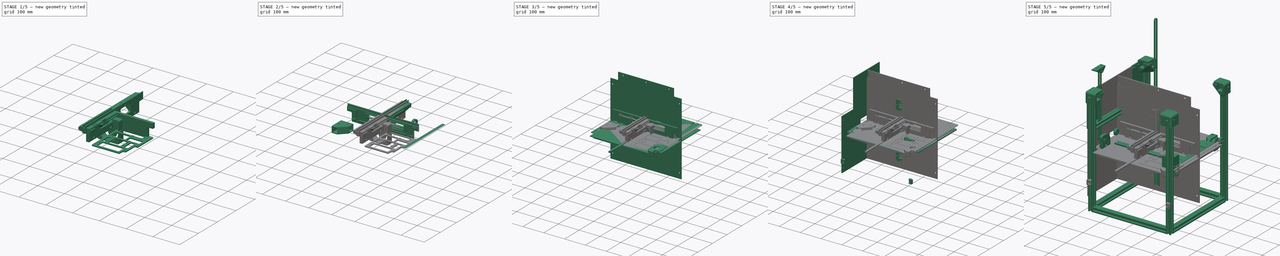
[diagram: build sequence overview — one tinted view per stage of 5, left to right]
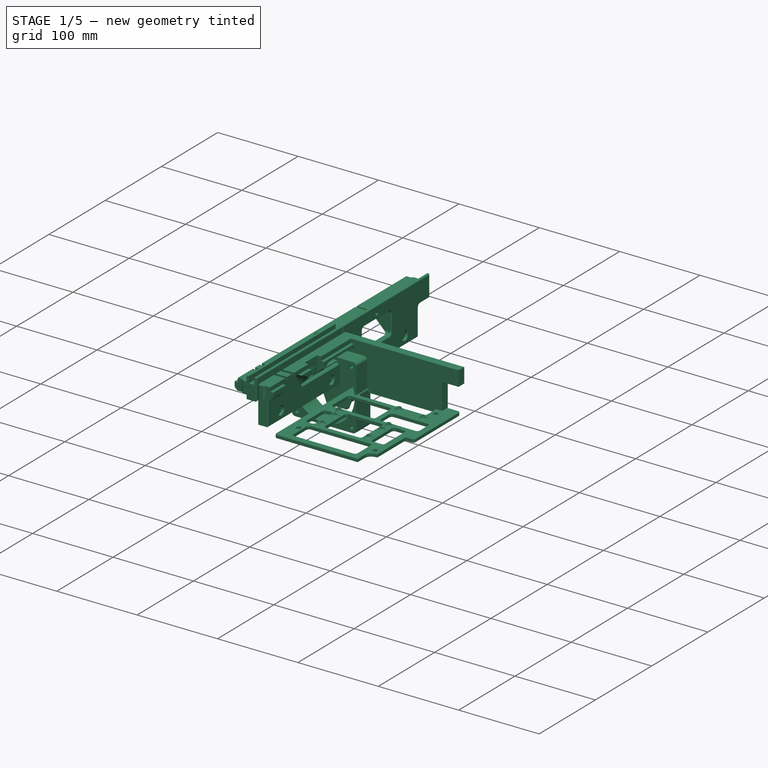
[diagram: stage 1 of 5 — iso view after this stage's code; geometry added in this stage tinted green]
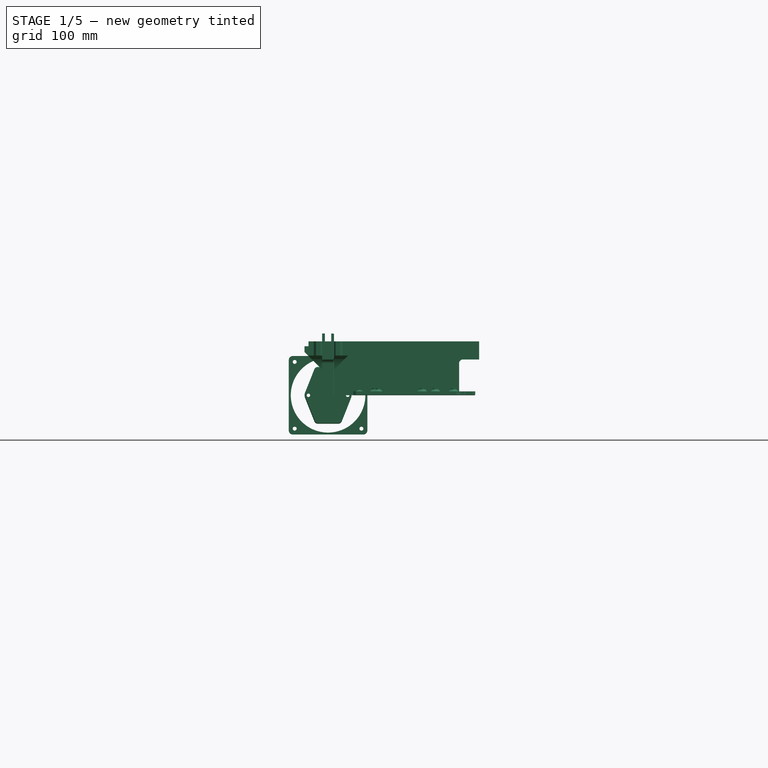
[diagram: stage 1 of 5 — front view after this stage's code; geometry added in this stage tinted green]
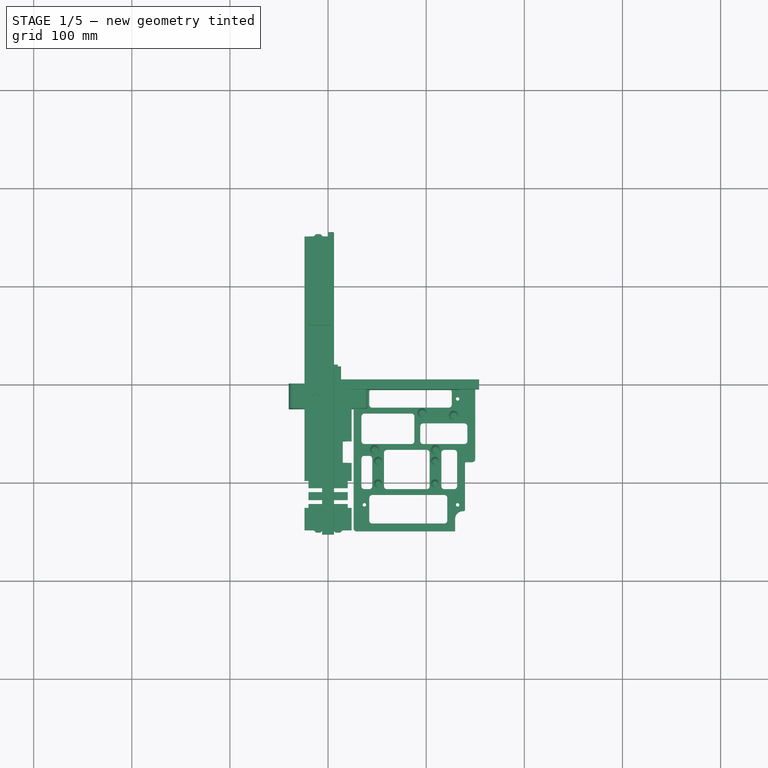
[diagram: stage 1 of 5 — top view after this stage's code; geometry added in this stage tinted green]
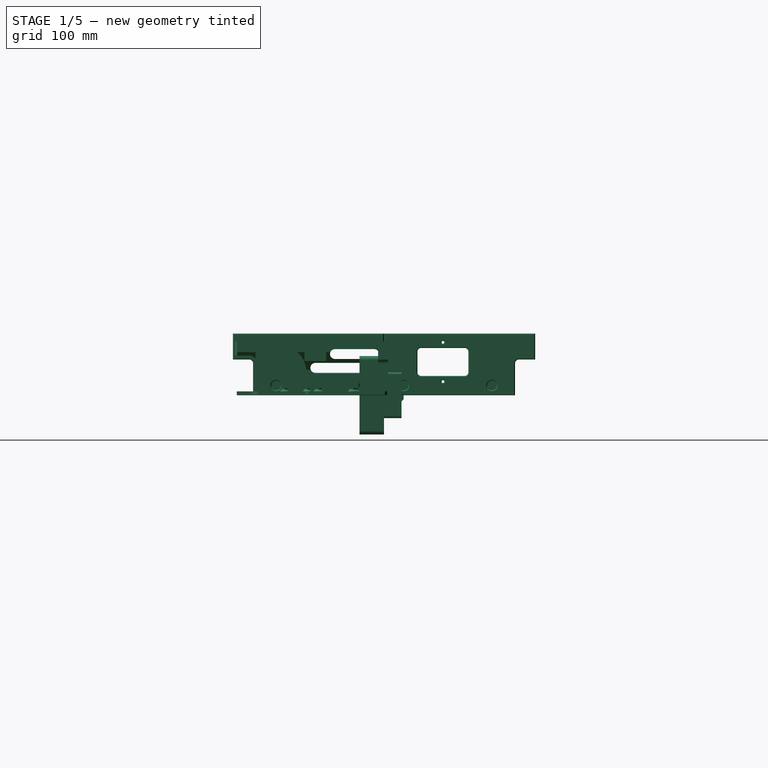
[diagram: stage 1 of 5 — right view after this stage's code; geometry added in this stage tinted green]
FCSTD DOCUMENT  (FreeCAD 1.0R39109 (Git))
Label: assembly
License: do the fuck you want with it, its information you couldn't steel it, even if you wanted to
LicenseURL: http://en.wikipedia.org/wiki/All_rights_reserved
objects: Sketcher::SketchObject×123, PartDesign::Pocket×77, PartDesign::Body×51, Part::Mirroring×46, PartDesign::Pad×45, App::Link×36, App::DocumentObjectGroup×32, PartDesign::Chamfer×20, PartDesign::FeatureBase×14, PartDesign::Mirrored×12, App::Part×11, PartDesign::Fillet×11, Part::FeaturePython×7, PartDesign::PolarPattern×7, PartDesign::MultiTransform×5, PartDesign::Groove×4, Part::Feature×4, PartDesign::ShapeBinder×2, App::LinkElement×2, Spreadsheet::Sheet×1
note: 899 computed .brp shape members not serialized (recipe doc carries the construction recipe); baked Part::Feature solids carry a one-line shape summary decoded from their .brp
EXTERNAL_REF file=toolhead-integrated.FCStd obj=Part002
EXTERNAL_REF file=frame/frame-corner.FCStd obj=Body123
EXTERNAL_REF file=frame/y-extrusion-support.FCStd obj=Body156
EXTERNAL_REF file=xy-gantry/y-carriages.FCStd obj=Part
EXTERNAL_REF file=xy-gantry/y-carriages.FCStd obj=Part001
EXTERNAL_REF file=standard-stuff.FCStd obj=Body033
EXTERNAL_REF file=standard-stuff.FCStd obj=Body084
EXTERNAL_REF file=xy-gantry/motor-mounts.FCStd obj=Body017
EXTERNAL_REF file=standard-stuff.FCStd obj=Body018
EXTERNAL_REF file=xy-gantry/x-carriage.FCStd obj=Part
EXTERNAL_REF file=z-motion/back-idler-mounts.FCStd obj=Part
EXTERNAL_REF file=z-motion/back-idler-mounts.FCStd obj=Part001
EXTERNAL_REF file=z-motion/back-bearing-block-right.FCStd obj=Part
EXTERNAL_REF file=z-motion/back-bearing-block-left.FCStd obj=Part
EXTERNAL_REF file=z-motion/mid-drivetrain.FCStd obj=Part
EXTERNAL_REF file=z-motion/front-bearing-block-right.FCStd obj=Part
EXTERNAL_REF file=z-motion/front-idler-mount-right.FCStd obj=Part
EXTERNAL_REF file=standard-stuff.FCStd obj=Group001
EXTERNAL_REF file=z-carriage/z-carriages.FCStd obj=Part
EXTERNAL_REF file=z-carriage/z-carriages.FCStd obj=Part001
EXTERNAL_REF file=standard-stuff.FCStd obj=Body
EXTERNAL_REF file=chamber-heater.FCStd obj=Part002
EXTERNAL_REF file=xy-gantry/y-carriages.FCStd obj=Part002
EXTERNAL_REF file=xy-gantry/y-carriages.FCStd obj=Part003
EXTERNAL_REF file=xy-gantry/motor-mounts.FCStd obj=Body018
EXTERNAL_REF file=xy-gantry/x-carriage.FCStd obj=Part002
EXTERNAL_REF file=standard-stuff.FCStd obj=Body119
EXTERNAL_REF file=electronics/pi-zero-2-w.FCStd obj=Part
EXTERNAL_REF file=electronics/bigtreetech-mini-e3-v2.0.FCStd obj=Body
EXTERNAL_REF file=electronics/PSU-12V-10A.FCStd obj=Part
EXTERNAL_REF file=frame/intake-vents.FCStd obj=Part
EXTERNAL_REF file=frame/air-exhaust.FCStd obj=Part

FEATURE [Sketcher::SketchObject] Sketch408
  ArcFitTolerance = 1e-06
  AttachmentSupport = -> [YZ_Plane268]
  FullyConstrained = true
  MakeInternals = false
  MapMode = 5
  Placement = pos=(0,0,0) rot=(0.57735,0.57735,0.57735;2.0944rad)
  expr: Constraints[20] = Spreadsheet.side_length / 2
  sketch-geometry (9):
    g0: LineSegment StartX=0 StartY=0 StartZ=0 EndX=133.5 EndY=0 EndZ=0
    g1: LineSegment StartX=133.5 StartY=0 StartZ=0 EndX=133.5 EndY=32.5 EndZ=0
    g2: LineSegment StartX=137.5 StartY=36.5 StartZ=0 EndX=154 EndY=36.5 EndZ=0
    g3: LineSegment StartX=154 StartY=36.5 StartZ=0 EndX=154 EndY=55 EndZ=0
    g4: LineSegment StartX=154 StartY=55 StartZ=0 EndX=0 EndY=55 EndZ=0
    g5: LineSegment StartX=0 StartY=55 StartZ=0 EndX=0 EndY=0 EndZ=0
    g6: ArcOfCircle CenterX=137.5 CenterY=32.5 CenterZ=0 NormalX=0 NormalY=0 NormalZ=1 AngleXU=0 Radius=4 StartAngle=1.5708 EndAngle=3.14159
    g7: GeomPoint [constr] X=133.5 Y=36.5 Z=0
    g8: GeomPoint X=170 Y=0 Z=0
  constraints (23):
    c: Coincident(g-1,g0)
    c: PointOnObject(g0,g-1)
    c: Coincident(g0,g1)
    c: Vertical(g1)
    c: Coincident(g2,g3)
    c: Vertical(g3)
    c: Coincident(g3,g4)
    c: PointOnObject(g4,g-2)
    c: Horizontal(g4)
    c: Coincident(g4,g5)
    c: Coincident(g5,g0)
    c: Horizontal(g2)
    c: PointOnObject(g7,g1)
    c: PointOnObject(g7,g2)
    c: Tangent(g1,g6) = 1.5708
    c: Tangent(g2,g6) = 1.5708
    c: Radius(g6) = 4
    c: DistanceY(g2) = 36.5
    c: DistanceY(g4) = 55
    c: PointOnObject(g8,g-1)
    c: DistanceX(g8) = 170
    c: DistanceX(g2,g8) = 16
    c: DistanceX(g0,g8) = 36.5
FEATURE [PartDesign::Pad] Pad089
  Direction = (1,0,0)
  Length = 6
  Length2 = 24
  Placement = pos=(0,0,0) rot=(1,1,1;2.0944rad)
  Profile = -> Sketch408
  ReferenceAxis = -> Sketch408 [N_Axis]
  Suppressed = false
  Type = 4
FEATURE [Sketcher::SketchObject] Sketch409
  ArcFitTolerance = 1e-06
  AttachmentSupport = -> [XZ_Plane268]
  FullyConstrained = true
  MakeInternals = false
  MapMode = 5
  Placement = pos=(0,0,0) rot=(1,0,0;1.5708rad)
  sketch-geometry (17):
    g0: LineSegment StartX=0 StartY=0 StartZ=0 EndX=0 EndY=5.72426 EndZ=0
    g1: LineSegment StartX=0 StartY=5.72426 StartZ=0 EndX=-2 EndY=7.72426 EndZ=0
    g2: LineSegment StartX=-2 StartY=7.72426 StartZ=0 EndX=-2 EndY=12.2757 EndZ=0
    g3: LineSegment StartX=-2 StartY=12.2757 StartZ=0 EndX=0 EndY=14.2757 EndZ=0
    g4: LineSegment StartX=0 StartY=14.2757 StartZ=0 EndX=0 EndY=20 EndZ=0
    g5: LineSegment [constr] StartX=0 StartY=20 StartZ=0 EndX=-24 EndY=20 EndZ=0
    g6: LineSegment StartX=-24 StartY=20 StartZ=0 EndX=-24 EndY=0 EndZ=0
    g7: LineSegment StartX=-24 StartY=0 StartZ=0 EndX=0 EndY=0 EndZ=0
    g8: GeomPoint X=0 Y=10 Z=0
    g9: GeomPoint X=-2 Y=10 Z=0
    g10: LineSegment [constr] StartX=-2 StartY=12.7 StartZ=0 EndX=-2 EndY=7.3 EndZ=0
    g11: LineSegment StartX=-24 StartY=55 StartZ=0 EndX=-24 EndY=50 EndZ=0
    g12: LineSegment StartX=-24 StartY=50 StartZ=0 EndX=-20 EndY=50 EndZ=0
    g13: LineSegment StartX=-20 StartY=50 StartZ=0 EndX=-20 EndY=55 EndZ=0
    g14: LineSegment StartX=-20 StartY=55 StartZ=0 EndX=-24 EndY=55 EndZ=0
    g15: LineSegment StartX=0 StartY=20 StartZ=0 EndX=-24 EndY=44 EndZ=0
    g16: LineSegment StartX=-24 StartY=44 StartZ=0 EndX=-24 EndY=20 EndZ=0
  constraints (45):
    c: Coincident(g-1,g0)
    c: PointOnObject(g0,g-2)
    c: Coincident(g0,g1)
    c: Coincident(g1,g2)
    c: Vertical(g2)
    c: Coincident(g2,g3)
    c: PointOnObject(g3,g-2)
    c: Coincident(g3,g4)
    c: PointOnObject(g4,g-2)
    c: Coincident(g4,g5)
    c: Horizontal(g5)
    c: Coincident(g5,g6)
    c: PointOnObject(g6,g-1)
    c: Vertical(g6)
    c: Coincident(g6,g7)
    c: Coincident(g7,g0)
    c: DistanceX(g7,g7) = 24
    c: DistanceY(g6,g6) = 20
    c: Symmetric(g4,g0,g8)
    c: Perpendicular(g1,g3)
    c: DistanceX(g1,g1) = 2
    c: Symmetric(g2,g2,g9)
    c: Horizontal(g9,g8)
    c: Angle(g1) = 2.35619
    c: Vertical(g10)
    c: Symmetric(g10,g10,g9)
    c: DistanceY(g10,g10) = 5.4
    c: Distance(g10,g3) = 0.3
    c: Coincident(g11,g12)
    c: Coincident(g12,g13)
    c: Coincident(g13,g14)
    c: Coincident(g14,g11)
    c: Vertical(g11)
    c: Vertical(g13)
    c: Horizontal(g12)
    c: Horizontal(g14)
    c: Vertical(g11,g5)
    c: DistanceX(g12) = -20
    c: DistanceY(g12) = 50
    c: DistanceY(g13) = 55
    c: Coincident(g15,g16)
    c: Coincident(g16,g5)
    c: Vertical(g16)
    c: Angle(g15) = 2.35619
    c: Coincident(g15,g4)
FEATURE [PartDesign::Pocket] Pocket283
  BaseFeature = -> Pad089
  Direction = (0,1,-2e-16)
  Length = 5
  Length2 = 5
  Midplane = true
  Placement = pos=(0,0,0) rot=(1,1,1;2.0944rad)
  Profile = -> Sketch409
  ReferenceAxis = -> Sketch409 [N_Axis]
  Suppressed = false
  Type = 1
FEATURE [Sketcher::SketchObject] Sketch410
  ArcFitTolerance = 1e-06
  AttachmentSupport = -> [XY_Plane268]
  FullyConstrained = true
  MakeInternals = false
  MapMode = 5
  expr: Constraints[10] = Spreadsheet.side_length / 2
  sketch-geometry (15):
    g0: LineSegment StartX=-24 StartY=170 StartZ=0 EndX=-24 EndY=149.7 EndZ=0
    g1: LineSegment StartX=-24 StartY=149.7 StartZ=0 EndX=-14.5757 EndY=149.7 EndZ=0
    g2: LineSegment StartX=0 StartY=149.7 StartZ=0 EndX=0 EndY=170 EndZ=0
    g3: LineSegment StartX=0 StartY=170 StartZ=0 EndX=-24 EndY=170 EndZ=0
    g4: LineSegment [constr] StartX=-20 StartY=170 StartZ=0 EndX=-20 EndY=150 EndZ=0
    g5: LineSegment [constr] StartX=-20 StartY=150 StartZ=0 EndX=0 EndY=150 EndZ=0
    g6: LineSegment [constr] StartX=0 StartY=150 StartZ=0 EndX=0 EndY=170 EndZ=0
    g7: LineSegment [constr] StartX=0 StartY=170 StartZ=0 EndX=-20 EndY=170 EndZ=0
    g8: GeomPoint [constr] X=-10 Y=150 Z=0
    g9: LineSegment StartX=-14.5757 StartY=149.7 StartZ=0 EndX=-12.2757 EndY=152 EndZ=0
    g10: LineSegment StartX=-12.2757 StartY=152 StartZ=0 EndX=-7.72426 EndY=152 EndZ=0
    g11: LineSegment StartX=-7.72426 StartY=152 StartZ=0 EndX=-5.42426 EndY=149.7 EndZ=0
    g12: GeomPoint X=-10 Y=152 Z=0
    g13: LineSegment [constr] StartX=-7.3 StartY=152 StartZ=0 EndX=-12.7 EndY=152 EndZ=0
    g14: LineSegment StartX=-5.42426 StartY=149.7 StartZ=0 EndX=0 EndY=149.7 EndZ=0
  constraints (42):
    c: Coincident(g0,g1)
    c: Coincident(g14,g2)
    c: Coincident(g2,g3)
    c: Coincident(g3,g0)
    c: Vertical(g0)
    c: Vertical(g2)
    c: Horizontal(g1)
    c: Horizontal(g3)
    c: PointOnObject(g14,g-2)
    c: DistanceX(g3,g3) = 24
    c: DistanceY(g2) = 170
    c: DistanceY(g2,g2) = 20.3
    c: Coincident(g4,g5)
    c: Coincident(g5,g6)
    c: Coincident(g6,g7)
    c: Coincident(g7,g4)
    c: Vertical(g4)
    c: Vertical(g6)
    c: Horizontal(g5)
    c: Horizontal(g7)
    c: PointOnObject(g4,g3)
    c: PointOnObject(g5,g2)
    c: Equal(g4,g5)
    c: DistanceY(g4,g4) = 20
    c: Symmetric(g5,g5,g8)
    c: Coincident(g9,g10)
    c: Horizontal(g10)
    c: Coincident(g10,g11)
    c: PointOnObject(g11,g14)
    c: Perpendicular(g11,g9)
    c: Angle(g11) = -0.785398
    c: Symmetric(g10,g10,g12)
    c: Vertical(g12,g8)
    c: DistanceY(g8,g10) = 2
    c: Horizontal(g13)
    c: Symmetric(g13,g13,g12)
    c: DistanceX(g13,g13) = 5.4
    c: Distance(g13,g9) = 0.3
    c: Coincident(g1,g9)
    c: PointOnObject(g14,g11)
    c: Horizontal(g14)
    c: Horizontal(g11,g1)
FEATURE [PartDesign::Pocket] Pocket284
  BaseFeature = -> Pocket283
  Direction = (0,0,-1)
  Length = 5
  Length2 = 5
  Midplane = true
  Placement = pos=(0,0,0) rot=(1,1,1;2.0944rad)
  Profile = -> Sketch410
  ReferenceAxis = -> Sketch410 [N_Axis]
  Suppressed = false
  Type = 1
FEATURE [Sketcher::SketchObject] Sketch411
  ArcFitTolerance = 1e-06
  AttachmentSupport = -> [XZ_Plane270]
  FullyConstrained = true
  MakeInternals = false
  MapMode = 5
  Placement = pos=(0,0,0) rot=(1,0,0;1.5708rad)
  expr: Constraints[20] = Spreadsheet.side_length / 2
  sketch-geometry (9):
    g0: LineSegment StartX=0 StartY=0 StartZ=0 EndX=0 EndY=55 EndZ=0
    g1: LineSegment StartX=0 StartY=55 StartZ=0 EndX=154 EndY=55 EndZ=0
    g2: LineSegment StartX=154 StartY=55 StartZ=0 EndX=154 EndY=36.5 EndZ=0
    g3: LineSegment StartX=154 StartY=36.5 StartZ=0 EndX=137.5 EndY=36.5 EndZ=0
    g4: LineSegment StartX=133.5 StartY=32.5 StartZ=0 EndX=133.5 EndY=0 EndZ=0
    g5: LineSegment StartX=133.5 StartY=0 StartZ=0 EndX=0 EndY=0 EndZ=0
    g6: ArcOfCircle CenterX=137.5 CenterY=32.5 CenterZ=0 NormalX=0 NormalY=0 NormalZ=1 AngleXU=0 Radius=4 StartAngle=1.5708 EndAngle=3.14159
    g7: GeomPoint [constr] X=133.5 Y=36.5 Z=0
    g8: GeomPoint [constr] X=170 Y=0 Z=0
  constraints (23):
    c: Coincident(g-1,g0)
    c: PointOnObject(g0,g-2)
    c: Coincident(g0,g1)
    c: Horizontal(g1)
    c: Coincident(g1,g2)
    c: Vertical(g2)
    c: Coincident(g2,g3)
    c: Horizontal(g3)
    c: Coincident(g4,g5)
    c: Coincident(g5,g0)
    c: Horizontal(g5)
    c: Vertical(g4)
    c: PointOnObject(g7,g3)
    c: PointOnObject(g7,g4)
    c: Tangent(g3,g6) = -1.5708
    c: Tangent(g4,g6) = -1.5708
    c: Radius(g6) = 4
    c: DistanceY(g2) = 36.5
    c: DistanceY(g1) = 55
    c: PointOnObject(g8,g-1)
    c: DistanceX(g8) = 170
    c: DistanceX(g4,g8) = 36.5
    c: DistanceX(g2,g8) = 16
FEATURE [PartDesign::Pad] Pad090
  Direction = (0,-1,2e-16)
  Length = 6
  Length2 = 4
  Placement = pos=(0,0,0) rot=(1,0,0;1.5708rad)
  Profile = -> Sketch411
  ReferenceAxis = -> Sketch411 [N_Axis]
  Suppressed = false
  Type = 4
FEATURE [Sketcher::SketchObject] Sketch414
  ArcFitTolerance = 1e-06
  AttachmentSupport = -> [YZ_Plane272]
  FullyConstrained = true
  MakeInternals = false
  MapMode = 5
  Placement = pos=(0,0,0) rot=(0.57735,0.57735,0.57735;2.0944rad)
  expr: Constraints[7] = -Spreadsheet.side_length / 2
  sketch-geometry (9):
    g0: LineSegment StartX=-131 StartY=43 StartZ=0 EndX=-131 EndY=0 EndZ=0
    g1: LineSegment StartX=-131 StartY=0 StartZ=0 EndX=-79 EndY=0 EndZ=0
    g2: LineSegment StartX=-79 StartY=0 StartZ=0 EndX=-79 EndY=23 EndZ=0
    g3: LineSegment StartX=-107 StartY=51 StartZ=0 EndX=-123 EndY=51 EndZ=0
    g4: GeomPoint X=-170 Y=0 Z=0
    g5: ArcOfCircle CenterX=-107 CenterY=23 CenterZ=0 NormalX=0 NormalY=0 NormalZ=1 AngleXU=0 Radius=28 StartAngle=-9e-16 EndAngle=1.5708
    g6: GeomPoint [constr] X=-79 Y=51 Z=0
    g7: ArcOfCircle CenterX=-123 CenterY=43 CenterZ=0 NormalX=0 NormalY=0 NormalZ=1 AngleXU=0 Radius=8 StartAngle=1.5708 EndAngle=3.14159
    g8: GeomPoint [constr] X=-131 Y=51 Z=0
  constraints (22):
    c: Coincident(g0,g1)
    c: Coincident(g1,g2)
    c: Vertical(g0)
    c: Vertical(g2)
    c: Horizontal(g1)
    c: Horizontal(g3)
    c: PointOnObject(g4,g-1)
    c: DistanceX(g4) = -170
    c: DistanceX(g4,g0) = 39
    c: DistanceX(g4,g1) = 91
    c: DistanceY(g8) = 51
    c: PointOnObject(g1,g-1)
    c: PointOnObject(g6,g2)
    c: PointOnObject(g6,g3)
    c: Tangent(g2,g5) = -1.5708
    c: Tangent(g3,g5) = -1.5708
    c: PointOnObject(g8,g0)
    c: PointOnObject(g8,g3)
    c: Tangent(g0,g7) = -1.5708
    c: Tangent(g3,g7) = -1.5708
    c: Radius(g5) = 28
    c: Radius(g7) = 8
FEATURE [Sketcher::SketchObject] Sketch415
  ArcFitTolerance = 1e-06
  AttachmentSupport = -> [XY_Plane272]
  FullyConstrained = true
  MakeInternals = false
  MapMode = 5
  expr: Constraints[1] = -Spreadsheet.side_length / 2
  sketch-geometry (13):
    g0: GeomPoint X=0 Y=-170 Z=0
    g1: LineSegment StartX=-20 StartY=-107 StartZ=0 EndX=-20 EndY=-111 EndZ=0
    g2: LineSegment StartX=-20 StartY=-111 StartZ=0 EndX=-5 EndY=-111 EndZ=0
    g3: LineSegment StartX=-5 StartY=-111 StartZ=0 EndX=-5 EndY=-107 EndZ=0
    g4: LineSegment StartX=-5 StartY=-107 StartZ=0 EndX=-20 EndY=-107 EndZ=0
    g5: LineSegment StartX=-20 StartY=-119 StartZ=0 EndX=-20 EndY=-123 EndZ=0
    g6: LineSegment StartX=-20 StartY=-123 StartZ=0 EndX=-5 EndY=-123 EndZ=0
    g7: LineSegment StartX=-5 StartY=-123 StartZ=0 EndX=-5 EndY=-119 EndZ=0
    g8: LineSegment StartX=-5 StartY=-119 StartZ=0 EndX=-20 EndY=-119 EndZ=0
    g9: GeomPoint X=-10 Y=-115 Z=0
    g10: GeomPoint X=-5 Y=-121 Z=0
    g11: GeomPoint X=-5 Y=-109 Z=0
    g12: GeomPoint X=-5 Y=-115 Z=0
  constraints (31):
    c: PointOnObject(g0,g-2)
    c: DistanceY(g0) = -170
    c: Coincident(g1,g2)
    c: Coincident(g2,g3)
    c: Coincident(g3,g4)
    c: Coincident(g4,g1)
    c: Vertical(g1)
    c: Vertical(g3)
    c: Horizontal(g2)
    c: Horizontal(g4)
    c: Coincident(g5,g6)
    c: Coincident(g6,g7)
    c: Coincident(g7,g8)
    c: Coincident(g8,g5)
    c: Vertical(g5)
    c: Vertical(g7)
    c: Horizontal(g6)
    c: Horizontal(g8)
    c: Vertical(g7,g2)
    c: Vertical(g5,g1)
    c: Equal(g7,g3)
    c: DistanceX(g9,g0) = 10
    c: DistanceY(g0,g9) = 55
    c: Symmetric(g7,g7,g10)
    c: Symmetric(g3,g3,g11)
    c: DistanceY(g10,g11) = 12
    c: DistanceY(g1,g1) = 4
    c: DistanceX(g9,g7) = 5
    c: Symmetric(g2,g7,g12)
    c: Horizontal(g12,g9)
    c: DistanceX(g5) = -20
FEATURE [Sketcher::SketchObject] Sketch416
  ArcFitTolerance = 1e-06
  AttachmentOffset = pos=(0,0,19) rot=(0,0,1;0rad)
  AttachmentSupport = -> [YZ_Plane274]
  FullyConstrained = true
  MakeInternals = false
  MapMode = 5
  Placement = pos=(19,0,0) rot=(0.57735,0.57735,0.57735;2.0944rad)
  expr: Constraints[9] = Spreadsheet.side_length / 2
  sketch-geometry (13):
    g0: LineSegment StartX=27 StartY=21 StartZ=0 EndX=27 EndY=0 EndZ=0
    g1: LineSegment StartX=27 StartY=0 StartZ=0 EndX=170 EndY=0 EndZ=0
    g2: LineSegment StartX=170 StartY=0 StartZ=0 EndX=170 EndY=21 EndZ=0
    g3: LineSegment [constr] StartX=170 StartY=21 StartZ=0 EndX=27 EndY=21 EndZ=0
    g4: GeomPoint X=170 Y=0 Z=0
    g5: LineSegment StartX=27 StartY=21 StartZ=0 EndX=43 EndY=21 EndZ=0
    g6: LineSegment [constr] StartX=43 StartY=21 StartZ=0 EndX=43 EndY=51 EndZ=0
    g7: LineSegment [constr] StartX=43 StartY=51 StartZ=0 EndX=170 EndY=51 EndZ=0
    g8: LineSegment StartX=170 StartY=51 StartZ=0 EndX=170 EndY=21 EndZ=0
    g9: LineSegment StartX=43 StartY=21 StartZ=0 EndX=43 EndY=45 EndZ=0
    g10: LineSegment StartX=43 StartY=45 StartZ=0 EndX=100 EndY=45 EndZ=0
    g11: LineSegment StartX=100 StartY=45 StartZ=0 EndX=100 EndY=51 EndZ=0
    g12: LineSegment StartX=100 StartY=51 StartZ=0 EndX=170 EndY=51 EndZ=0
  constraints (35):
    c: Coincident(g0,g1)
    c: Coincident(g1,g2)
    c: Coincident(g2,g3)
    c: Coincident(g3,g0)
    c: Vertical(g0)
    c: Vertical(g2)
    c: Horizontal(g1)
    c: Horizontal(g3)
    c: PointOnObject(g1,g-1)
    c: DistanceX(g4) = 170
    c: Coincident(g1,g4)
    c: DistanceY(g0,g0) = 21
    c: DistanceX(g0,g1) = 143
    c: Coincident(g0,g5)
    c: PointOnObject(g5,g3)
    c: Coincident(g5,g6)
    c: Vertical(g6)
    c: Coincident(g6,g7)
    c: Horizontal(g7)
    c: Coincident(g7,g8)
    c: Coincident(g8,g2)
    c: Vertical(g8)
    c: DistanceY(g7) = 51
    c: DistanceX(g5) = 43
    c: Coincident(g5,g9)
    c: PointOnObject(g9,g6)
    c: Coincident(g9,g10)
    c: Coincident(g10,g11)
    c: PointOnObject(g11,g7)
    c: Vertical(g11)
    c: Coincident(g11,g12)
    c: Coincident(g12,g7)
    c: Horizontal(g10)
    c: DistanceY(g9) = 45
    c: DistanceX(g10,g1) = 70
FEATURE [Sketcher::SketchObject] Sketch417
  ArcFitTolerance = 1e-06
  AttachmentOffset = pos=(0,0,3) rot=(0,0,1;0rad)
  AttachmentSupport = -> [YZ_Plane268]
  FullyConstrained = true
  MakeInternals = false
  MapMode = 5
  Placement = pos=(3,0,0) rot=(0.57735,0.57735,0.57735;2.0944rad)
  expr: Constraints[4] = Spreadsheet.side_length / 2
  sketch-geometry (4):
    g0: Circle CenterX=20 CenterY=10 CenterZ=0 NormalX=0 NormalY=0 NormalZ=1 AngleXU=0 Radius=5
    g1: Circle CenterX=110 CenterY=10 CenterZ=0 NormalX=0 NormalY=0 NormalZ=1 AngleXU=0 Radius=5
    g2: GeomPoint X=170 Y=0 Z=0
    g3: GeomPoint X=130 Y=0 Z=0
  constraints (10):
    c: Horizontal(g0,g1)
    c: DistanceY(g0) = 10
    c: DistanceX(g0) = 20
    c: PointOnObject(g2,g-1)
    c: DistanceX(g2) = 170
    c: PointOnObject(g3,g-1)
    c: DistanceX(g3,g2) = 40
    c: DistanceX(g1,g3) = 20
    c: Equal(g0,g1)
    c: Diameter(g1) = 10
FEATURE [PartDesign::Pocket] Pocket290
  BaseFeature = -> Pocket284
  Direction = (-1,0,0)
  Length = 5
  Length2 = 5
  Placement = pos=(0,0,0) rot=(1,1,1;2.0944rad)
  Profile = -> Sketch417
  ReferenceAxis = -> Sketch417 [N_Axis]
  Reversed = true
  Suppressed = false
  Type = 1
FEATURE [Sketcher::SketchObject] Sketch418
  ArcFitTolerance = 1e-06
  AttachmentOffset = pos=(0,0,2.7) rot=(0,0,1;0rad)
  AttachmentSupport = -> [YZ_Plane268]
  FullyConstrained = true
  MakeInternals = false
  MapMode = 5
  Placement = pos=(2.7,0,0) rot=(0.57735,0.57735,0.57735;2.0944rad)
  expr: Constraints[4] = Spreadsheet.side_length / 2
  sketch-geometry (4):
    g0: Circle CenterX=20 CenterY=10 CenterZ=0 NormalX=0 NormalY=0 NormalZ=1 AngleXU=0 Radius=2.75
    g1: Circle CenterX=110 CenterY=10 CenterZ=0 NormalX=0 NormalY=0 NormalZ=1 AngleXU=0 Radius=2.75
    g2: GeomPoint X=170 Y=0 Z=0
    g3: GeomPoint X=130 Y=0 Z=0
  constraints (10):
    c: Horizontal(g0,g1)
    c: DistanceY(g0) = 10
    c: DistanceX(g0) = 20
    c: PointOnObject(g2,g-1)
    c: DistanceX(g2) = 170
    c: PointOnObject(g3,g-1)
    c: DistanceX(g3,g2) = 40
    c: DistanceX(g1,g3) = 20
    c: Equal(g0,g1)
    c: Diameter(g1) = 5.5
FEATURE [PartDesign::Pocket] Pocket291
  BaseFeature = -> Pocket290
  Direction = (-1,0,0)
  Length = 5
  Length2 = 5
  Placement = pos=(0,0,0) rot=(1,1,1;2.0944rad)
  Profile = -> Sketch418
  ReferenceAxis = -> Sketch418 [N_Axis]
  Suppressed = false
  Type = 1
FEATURE [Sketcher::SketchObject] Sketch419
  ArcFitTolerance = 1e-06
  AttachmentSupport = -> [YZ_Plane268]
  FullyConstrained = true
  MakeInternals = false
  MapMode = 5
  Placement = pos=(0,0,0) rot=(0.57735,0.57735,0.57735;2.0944rad)
  expr: Constraints[4] = Spreadsheet.side_length / 2
  sketch-geometry (12):
    g0: Circle [constr] CenterX=20 CenterY=10 CenterZ=0 NormalX=0 NormalY=0 NormalZ=1 AngleXU=0 Radius=5
    g1: Circle [constr] CenterX=110 CenterY=10 CenterZ=0 NormalX=0 NormalY=0 NormalZ=1 AngleXU=0 Radius=5
    g2: GeomPoint X=170 Y=0 Z=0
    g3: GeomPoint X=130 Y=0 Z=0
    g4: LineSegment StartX=12 StartY=18 StartZ=0 EndX=12 EndY=2 EndZ=0
    g5: LineSegment StartX=12 StartY=2 StartZ=0 EndX=28 EndY=2 EndZ=0
    g6: LineSegment StartX=28 StartY=2 StartZ=0 EndX=28 EndY=18 EndZ=0
    g7: LineSegment StartX=28 StartY=18 StartZ=0 EndX=12 EndY=18 EndZ=0
    g8: LineSegment StartX=102 StartY=18 StartZ=0 EndX=102 EndY=2 EndZ=0
    g9: LineSegment StartX=102 StartY=2 StartZ=0 EndX=118 EndY=2 EndZ=0
    g10: LineSegment StartX=118 StartY=2 StartZ=0 EndX=118 EndY=18 EndZ=0
    g11: LineSegment StartX=118 StartY=18 StartZ=0 EndX=102 EndY=18 EndZ=0
  constraints (32):
    c: Horizontal(g0,g1)
    c: DistanceY(g0) = 10
    c: DistanceX(g0) = 20
    c: PointOnObject(g2,g-1)
    c: DistanceX(g2) = 170
    c: PointOnObject(g3,g-1)
    c: DistanceX(g3,g2) = 40
    c: DistanceX(g1,g3) = 20
    c: Equal(g0,g1)
    c: Diameter(g1) = 10
    c: Coincident(g4,g5)
    c: Coincident(g5,g6)
    c: Coincident(g6,g7)
    c: Coincident(g7,g4)
    c: Vertical(g4)
    c: Vertical(g6)
    c: Horizontal(g5)
    c: Horizontal(g7)
    c: Coincident(g8,g9)
    c: Coincident(g9,g10)
    c: Coincident(g10,g11)
    c: Coincident(g11,g8)
    c: Vertical(g8)
    c: Vertical(g10)
    c: Horizontal(g9)
    c: Horizontal(g11)
    c: Equal(g10,g11)
    c: Equal(g11,g6)
    c: Equal(g6,g7)
    c: DistanceY(g6,g6) = 16
    c: Symmetric(g5,g4,g0)
    c: Symmetric(g10,g8,g1)
FEATURE [PartDesign::Pocket] Pocket292
  BaseFeature = -> Pocket291
  Direction = (-1,0,0)
  Length = 5
  Length2 = 5
  Placement = pos=(0,0,0) rot=(1,1,1;2.0944rad)
  Profile = -> Sketch419
  ReferenceAxis = -> Sketch419 [N_Axis]
  Refine = true
  Suppressed = false
  Type = 1
FEATURE [PartDesign::Body] Body150  label="door-plate-left"
  AllowCompound = false
  Group = -> [Sketch443,Pad098]
  Origin = -> Origin289
  Placement = pos=(-3,1,0) rot=(0,0,1;0rad)
  Tip = -> Pad098
FEATURE [App::Part] Part008  label="door-left"
  Group = -> [Body150,Body149,Part__Mirroring080]
  Origin = -> Origin287
  Placement = pos=(-167,-174,0) rot=(-1,0,0;0rad)
  expr: .Placement.Base.x = -Spreadsheet.side_length / 2 + 3
  expr: .Placement.Base.y = -Spreadsheet.side_length / 2 - 4
  expr: .Placement.Rotation.Angle = -Spreadsheet.door_angle
FEATURE [Sketcher::SketchObject] Sketch444
  ArcFitTolerance = 1e-06
  AttachmentSupport = -> [XZ_Plane276]
  FullyConstrained = true
  MakeInternals = false
  MapMode = 5
  Placement = pos=(0,0,0) rot=(1,0,0;1.5708rad)
  sketch-geometry (4):
    g0: LineSegment StartX=-10.5 StartY=55 StartZ=0 EndX=-10.5 EndY=34.5 EndZ=0
    g1: LineSegment StartX=-10.5 StartY=34.5 StartZ=0 EndX=10.5 EndY=34.5 EndZ=0
    g2: LineSegment StartX=10.5 StartY=34.5 StartZ=0 EndX=10.5 EndY=55 EndZ=0
    g3: LineSegment StartX=10.5 StartY=55 StartZ=0 EndX=-10.5 EndY=55 EndZ=0
  constraints (11):
    c: Coincident(g0,g1)
    c: Coincident(g1,g2)
    c: Coincident(g2,g3)
    c: Coincident(g3,g0)
    c: Vertical(g0)
    c: Vertical(g2)
    c: Horizontal(g1)
    c: Symmetric(g2,g0,g-2)
    c: DistanceX(g3,g3) = 21
    c: DistanceY(g2) = 55
    c: DistanceY(g2,g2) = 20.5
FEATURE [Sketcher::SketchObject] Sketch445
  ArcFitTolerance = 1e-06
  AttachmentSupport = -> [XZ_Plane275]
  FullyConstrained = true
  MakeInternals = false
  MapMode = 5
  Placement = pos=(0,0,0) rot=(1,0,0;1.5708rad)
  sketch-geometry (4):
    g0: LineSegment StartX=-10.5 StartY=55 StartZ=0 EndX=-10.5 EndY=34.5 EndZ=0
    g1: LineSegment StartX=-10.5 StartY=34.5 StartZ=0 EndX=10.5 EndY=34.5 EndZ=0
    g2: LineSegment StartX=10.5 StartY=34.5 StartZ=0 EndX=10.5 EndY=55 EndZ=0
    g3: LineSegment StartX=10.5 StartY=55 StartZ=0 EndX=-10.5 EndY=55 EndZ=0
  constraints (11):
    c: Coincident(g0,g1)
    c: Coincident(g1,g2)
    c: Coincident(g2,g3)
    c: Coincident(g3,g0)
    c: Vertical(g0)
    c: Vertical(g2)
    c: Horizontal(g1)
    c: Symmetric(g2,g0,g-2)
    c: DistanceX(g3,g3) = 21
    c: DistanceY(g2) = 55
    c: DistanceY(g2,g2) = 20.5
FEATURE [Sketcher::SketchObject] Sketch446
  ArcFitTolerance = 1e-06
  AttachmentOffset = pos=(0,0,1.7) rot=(0,0,1;0rad)
  AttachmentSupport = -> [XZ_Plane276]
  FullyConstrained = true
  MakeInternals = false
  MapMode = 5
  Placement = pos=(0,-1.7,4e-16) rot=(1,0,0;1.5708rad)
  sketch-geometry (2):
    g0: Circle CenterX=-5 CenterY=42 CenterZ=0 NormalX=0 NormalY=0 NormalZ=1 AngleXU=0 Radius=1.75
    g1: Circle CenterX=5 CenterY=42 CenterZ=0 NormalX=0 NormalY=0 NormalZ=1 AngleXU=0 Radius=1.75
  constraints (5):
    c: Symmetric(g1,g0,g-2)
    c: Equal(g1,g0)
    c: Diameter(g0) = 3.5
    c: DistanceX(g0,g1) = 10
    c: DistanceY(g1) = 42
FEATURE [Sketcher::SketchObject] Sketch447
  ArcFitTolerance = 1e-06
  AttachmentOffset = pos=(0,0,2) rot=(0,0,1;0rad)
  AttachmentSupport = -> [XZ_Plane276]
  FullyConstrained = true
  MakeInternals = false
  MapMode = 5
  Placement = pos=(0,-2,4e-16) rot=(1,0,0;1.5708rad)
  sketch-geometry (2):
    g0: Circle CenterX=5 CenterY=42 CenterZ=0 NormalX=0 NormalY=0 NormalZ=1 AngleXU=0 Radius=3
    g1: Circle CenterX=-5 CenterY=42 CenterZ=0 NormalX=0 NormalY=0 NormalZ=1 AngleXU=0 Radius=3
  constraints (5):
    c: Equal(g0,g1)
    c: Symmetric(g1,g0,g-2)
    c: DistanceX(g1,g0) = 10
    c: DistanceY(g0) = 42
    c: Diameter(g0) = 6
FEATURE [Sketcher::SketchObject] Sketch448
  ArcFitTolerance = 1e-06
  AttachmentOffset = pos=(0,0,1.7) rot=(0,0,1;0rad)
  AttachmentSupport = -> [XZ_Plane275]
  FullyConstrained = true
  MakeInternals = false
  MapMode = 5
  Placement = pos=(0,-1.7,4e-16) rot=(1,0,0;1.5708rad)
  sketch-geometry (2):
    g0: Circle CenterX=-5 CenterY=42 CenterZ=0 NormalX=0 NormalY=0 NormalZ=1 AngleXU=0 Radius=1.75
    g1: Circle CenterX=5 CenterY=42 CenterZ=0 NormalX=0 NormalY=0 NormalZ=1 AngleXU=0 Radius=1.75
  constraints (5):
    c: Symmetric(g1,g0,g-2)
    c: Equal(g1,g0)
    c: Diameter(g0) = 3.5
    c: DistanceX(g0,g1) = 10
    c: DistanceY(g1) = 42
FEATURE [Sketcher::SketchObject] Sketch449
  ArcFitTolerance = 1e-06
  AttachmentOffset = pos=(0,0,2) rot=(0,0,1;0rad)
  AttachmentSupport = -> [XZ_Plane275]
  FullyConstrained = true
  MakeInternals = false
  MapMode = 5
  Placement = pos=(0,-2,4e-16) rot=(1,0,0;1.5708rad)
  sketch-geometry (2):
    g0: Circle CenterX=5 CenterY=42 CenterZ=0 NormalX=0 NormalY=0 NormalZ=1 AngleXU=0 Radius=3
    g1: Circle CenterX=-5 CenterY=42 CenterZ=0 NormalX=0 NormalY=0 NormalZ=1 AngleXU=0 Radius=3
  constraints (5):
    c: Equal(g0,g1)
    c: Symmetric(g1,g0,g-2)
    c: DistanceX(g1,g0) = 10
    c: DistanceY(g0) = 42
    c: Diameter(g0) = 6
FEATURE [Sketcher::SketchObject] Sketch450
  ArcFitTolerance = 1e-06
  AttachmentSupport = -> [XZ_Plane289]
  FullyConstrained = true
  MakeInternals = false
  MapMode = 5
  Placement = pos=(0,0,0) rot=(1,0,0;1.5708rad)
  sketch-geometry (12):
    g0: LineSegment StartX=-10 StartY=8 StartZ=0 EndX=-10 EndY=-18 EndZ=0
    g1: LineSegment StartX=-8 StartY=-20 StartZ=0 EndX=8 EndY=-20 EndZ=0
    g2: LineSegment StartX=10 StartY=-18 StartZ=0 EndX=10 EndY=8 EndZ=0
    g3: LineSegment StartX=8 StartY=10 StartZ=0 EndX=-8 EndY=10 EndZ=0
    g4: ArcOfCircle CenterX=-8 CenterY=8 CenterZ=0 NormalX=0 NormalY=0 NormalZ=1 AngleXU=0 Radius=2 StartAngle=1.5708 EndAngle=3.14159
    g5: GeomPoint [constr] X=-10 Y=10 Z=0
    g6: ArcOfCircle CenterX=8 CenterY=8 CenterZ=0 NormalX=0 NormalY=0 NormalZ=1 AngleXU=0 Radius=2 StartAngle=1e-16 EndAngle=1.5708
    g7: GeomPoint [constr] X=10 Y=10 Z=0
    g8: ArcOfCircle CenterX=8 CenterY=-18 CenterZ=0 NormalX=0 NormalY=0 NormalZ=1 AngleXU=0 Radius=2 StartAngle=4.71239 EndAngle=6.28319
    g9: GeomPoint [constr] X=10 Y=-20 Z=0
    g10: ArcOfCircle CenterX=-8 CenterY=-18 CenterZ=0 NormalX=0 NormalY=0 NormalZ=1 AngleXU=0 Radius=2 StartAngle=3.14159 EndAngle=4.71239
    g11: GeomPoint [constr] X=-10 Y=-20 Z=0
  constraints (27):
    c: Vertical(g0)
    c: Vertical(g2)
    c: Horizontal(g1)
    c: DistanceY(g7) = 10
    c: Symmetric(g7,g5,g-2)
    c: DistanceX(g5,g7) = 20
    c: DistanceY(g9) = -20
    c: PointOnObject(g5,g0)
    c: PointOnObject(g5,g3)
    c: Tangent(g0,g4) = -1.5708
    c: Tangent(g3,g4) = -1.5708
    c: PointOnObject(g7,g2)
    c: PointOnObject(g7,g3)
    c: Tangent(g2,g6) = -1.5708
    c: Tangent(g3,g6) = -1.5708
    c: PointOnObject(g9,g1)
    c: PointOnObject(g9,g2)
    c: Tangent(g1,g8) = -1.5708
    c: Tangent(g2,g8) = -1.5708
    c: PointOnObject(g11,g0)
    c: PointOnObject(g11,g1)
    c: Tangent(g0,g10) = -1.5708
    c: Tangent(g1,g10) = -1.5708
    c: Equal(g10,g8)
    c: Equal(g10,g6)
    c: Equal(g10,g4)
    c: Radius(g10) = 2
FEATURE [PartDesign::Pad] Pad099
  Direction = (0,-1,2e-16)
  Length = 4
  Length2 = 10
  Placement = pos=(0,0,0) rot=(1,0,0;1.5708rad)
  Profile = -> Sketch450
  ReferenceAxis = -> Sketch450 [N_Axis]
  Reversed = true
  Suppressed = false
  Type = 0
FEATURE [Sketcher::SketchObject] Sketch451
  ArcFitTolerance = 1e-06
  AttachmentOffset = pos=(0,0,-1) rot=(0,0,1;0rad)
  AttachmentSupport = -> [XZ_Plane289]
  FullyConstrained = true
  MakeInternals = false
  MapMode = 5
  Placement = pos=(0,1,-2e-16) rot=(1,0,0;1.5708rad)
  sketch-geometry (14):
    g0: LineSegment StartX=-2.25 StartY=-14.5877 StartZ=0 EndX=-2.25 EndY=-11.4123 EndZ=0
    g1: LineSegment StartX=-2.25 StartY=-11.4123 StartZ=0 EndX=-5 EndY=-9.82457 EndZ=0
    g2: LineSegment StartX=-5 StartY=-9.82457 StartZ=0 EndX=-7.75 EndY=-11.4123 EndZ=0
    g3: LineSegment StartX=-7.75 StartY=-11.4123 StartZ=0 EndX=-7.75 EndY=-14.5877 EndZ=0
    g4: LineSegment StartX=-7.75 StartY=-14.5877 StartZ=0 EndX=-5 EndY=-16.1754 EndZ=0
    g5: LineSegment StartX=-5 StartY=-16.1754 StartZ=0 EndX=-2.25 EndY=-14.5877 EndZ=0
    g6: Circle [constr] CenterX=-5 CenterY=-13 CenterZ=0 NormalX=0 NormalY=0 NormalZ=1 AngleXU=0 Radius=3.17543
    g7: LineSegment StartX=7.75 StartY=-14.5877 StartZ=0 EndX=7.75 EndY=-11.4123 EndZ=0
    g8: LineSegment StartX=7.75 StartY=-11.4123 StartZ=0 EndX=5 EndY=-9.82457 EndZ=0
    g9: LineSegment StartX=5 StartY=-9.82457 StartZ=0 EndX=2.25 EndY=-11.4123 EndZ=0
    g10: LineSegment StartX=2.25 StartY=-11.4123 StartZ=0 EndX=2.25 EndY=-14.5877 EndZ=0
    g11: LineSegment StartX=2.25 StartY=-14.5877 StartZ=0 EndX=5 EndY=-16.1754 EndZ=0
    g12: LineSegment StartX=5 StartY=-16.1754 StartZ=0 EndX=7.75 EndY=-14.5877 EndZ=0
    g13: Circle [constr] CenterX=5 CenterY=-13 CenterZ=0 NormalX=0 NormalY=0 NormalZ=1 AngleXU=0 Radius=3.17543
  constraints (33):
    c: Coincident(g0,g1)
    c: Coincident(g1,g2)
    c: Coincident(g2,g3)
    c: Coincident(g3,g4)
    c: Coincident(g4,g5)
    c: Coincident(g5,g0)
    c: Equal(g0, g1-g5) x5
    c: PointOnObject(g0,g6)
    c: PointOnObject(g1,g6)
    c: PointOnObject(g2,g6)
    c: PointOnObject(g3,g6)
    c: PointOnObject(g4,g6)
    c: PointOnObject(g5,g6)
    c: Coincident(g7,g8)
    c: Coincident(g8,g9)
    c: Coincident(g9,g10)
    c: Coincident(g10,g11)
    c: Coincident(g11,g12)
    c: Coincident(g12,g7)
    c: Equal(g7, g8-g12) x5
    c: PointOnObject(g7,g13)
    c: PointOnObject(g8,g13)
    c: PointOnObject(g9,g13)
    c: PointOnObject(g10,g13)
    c: PointOnObject(g11,g13)
    c: PointOnObject(g12,g13)
    c: Vertical(g7)
    c: Vertical(g0)
    c: Symmetric(g13,g6,g-2)
    c: Equal(g13,g6)
    c: DistanceX(g6,g13) = 10
    c: DistanceX(g9,g7) = 5.5
    c: DistanceY(g13) = -13
FEATURE [PartDesign::Pocket] Pocket317
  BaseFeature = -> Pad099
  Direction = (0,1,-2e-16)
  Length = 5
  Length2 = 5
  Placement = pos=(0,0,0) rot=(1,0,0;1.5708rad)
  Profile = -> Sketch451
  ReferenceAxis = -> Sketch451 [N_Axis]
  Suppressed = false
  Type = 1
FEATURE [Sketcher::SketchObject] Sketch452
  ArcFitTolerance = 1e-06
  AttachmentSupport = -> [XZ_Plane289]
  FullyConstrained = true
  MakeInternals = false
  MapMode = 5
  Placement = pos=(0,0,0) rot=(1,0,0;1.5708rad)
  sketch-geometry (2):
    g0: Circle CenterX=-5 CenterY=-13 CenterZ=0 NormalX=0 NormalY=0 NormalZ=1 AngleXU=0 Radius=1.75
    g1: Circle CenterX=5 CenterY=-13 CenterZ=0 NormalX=0 NormalY=0 NormalZ=1 AngleXU=0 Radius=1.75
  constraints (5):
    c: Symmetric(g1,g0,g-2)
    c: Equal(g0,g1)
    c: Diameter(g1) = 3.5
    c: DistanceY(g1) = -13
    c: DistanceX(g0,g1) = 10
FEATURE [PartDesign::Pocket] Pocket318
  BaseFeature = -> Pocket317
  Direction = (0,1,-2e-16)
  Length = 5
  Length2 = 5
  Midplane = true
  Placement = pos=(0,0,0) rot=(1,0,0;1.5708rad)
  Profile = -> Sketch452
  ReferenceAxis = -> Sketch452 [N_Axis]
  Suppressed = false
  Type = 1
FEATURE [Sketcher::SketchObject] Sketch454
  ArcFitTolerance = 1e-06
  AttachmentSupport = -> [YZ_Plane290]
  FullyConstrained = true
  MakeInternals = false
  MapMode = 5
  Placement = pos=(0,0,0) rot=(0.57735,0.57735,0.57735;2.0944rad)
  sketch-geometry (12):
    g0: LineSegment StartX=0 StartY=0 StartZ=0 EndX=5.72426 EndY=0 EndZ=0
    g1: LineSegment StartX=20 StartY=0 StartZ=0 EndX=20 EndY=-4 EndZ=0
    g2: LineSegment StartX=20 StartY=-4 StartZ=0 EndX=14 EndY=-10 EndZ=0
    g3: LineSegment StartX=14 StartY=-10 StartZ=0 EndX=0 EndY=-10 EndZ=0
    g4: LineSegment StartX=0 StartY=-10 StartZ=0 EndX=0 EndY=0 EndZ=0
    g5: LineSegment StartX=5.72426 StartY=0 StartZ=0 EndX=7.72426 EndY=2 EndZ=0
    g6: LineSegment StartX=7.72426 StartY=2 StartZ=0 EndX=12.2757 EndY=2 EndZ=0
    g7: LineSegment StartX=12.2757 StartY=2 StartZ=0 EndX=14.2757 EndY=0 EndZ=0
    g8: LineSegment StartX=14.2757 StartY=0 StartZ=0 EndX=20 EndY=0 EndZ=0
    g9: GeomPoint X=10 Y=2 Z=0
    g10: GeomPoint X=10 Y=0 Z=0
    g11: LineSegment [constr] StartX=7.3 StartY=2 StartZ=0 EndX=12.7 EndY=2 EndZ=0
  constraints (33):
    c: Coincident(g-1,g0)
    c: PointOnObject(g8,g-1)
    c: Coincident(g8,g1)
    c: Vertical(g1)
    c: Coincident(g1,g2)
    c: Coincident(g2,g3)
    c: PointOnObject(g3,g-2)
    c: Horizontal(g3)
    c: Coincident(g3,g4)
    c: Coincident(g4,g0)
    c: Angle(g2) = -2.35619
    c: DistanceX(g0,g8) = 20
    c: DistanceY(g1,g1) = 4
    c: DistanceY(g4,g4) = 10
    c: Coincident(g5,g6)
    c: Horizontal(g6)
    c: Coincident(g6,g7)
    c: PointOnObject(g7,g8)
    c: Coincident(g0,g5)
    c: PointOnObject(g8,g7)
    c: Horizontal(g8)
    c: Symmetric(g6,g6,g9)
    c: PointOnObject(g10,g-1)
    c: DistanceX(g10) = 10
    c: Vertical(g10,g9)
    c: Perpendicular(g5,g7)
    c: Angle(g5) = 0.785398
    c: DistanceY(g7,g7) = 2
    c: Horizontal(g11)
    c: Symmetric(g11,g11,g9)
    c: Distance(g11,g7) = 0.3
    c: DistanceX(g11,g11) = 5.4
    c: Horizontal(g0)
FEATURE [PartDesign::Pad] Pad100
  Direction = (1,0,0)
  Length = 20
  Length2 = 10
  Midplane = true
  Placement = pos=(0,0,0) rot=(1,1,1;2.0944rad)
  Profile = -> Sketch454
  ReferenceAxis = -> Sketch454 [N_Axis]
  Suppressed = false
  Type = 0
FEATURE [Sketcher::SketchObject] Sketch455
  ArcFitTolerance = 1e-06
  AttachmentSupport = -> [XZ_Plane290]
  FullyConstrained = true
  MakeInternals = false
  MapMode = 5
  Placement = pos=(0,0,0) rot=(1,0,0;1.5708rad)
  sketch-geometry (4):
    g0: LineSegment StartX=-6 StartY=2 StartZ=0 EndX=-6 EndY=0 EndZ=0
    g1: LineSegment StartX=-6 StartY=0 StartZ=0 EndX=6 EndY=0 EndZ=0
    g2: LineSegment StartX=6 StartY=0 StartZ=0 EndX=6 EndY=2 EndZ=0
    g3: LineSegment StartX=6 StartY=2 StartZ=0 EndX=-6 EndY=2 EndZ=0
  constraints (11):
    c: Coincident(g0,g1)
    c: Coincident(g1,g2)
    c: Coincident(g2,g3)
    c: Coincident(g3,g0)
    c: Vertical(g0)
    c: Vertical(g2)
    c: Horizontal(g3)
    c: Symmetric(g1,g0,g-2)
    c: PointOnObject(g1,g-1)
    c: DistanceY(g2,g2) = 2
    c: DistanceX(g3,g3) = 12
FEATURE [PartDesign::Pocket] Pocket320
  BaseFeature = -> Pad100
  Direction = (0,1,-2e-16)
  Length = 5
  Length2 = 5
  Midplane = true
  Placement = pos=(0,0,0) rot=(1,1,1;2.0944rad)
  Profile = -> Sketch455
  ReferenceAxis = -> Sketch455 [N_Axis]
  Refine = true
  Suppressed = false
  Type = 1
FEATURE [Sketcher::SketchObject] Sketch456
  ArcFitTolerance = 1e-06
  AttachmentOffset = pos=(0,0,-10) rot=(0,0,1;0rad)
  AttachmentSupport = -> [XZ_Plane290]
  FullyConstrained = true
  MakeInternals = false
  MapMode = 5
  Placement = pos=(0,10,-2.2e-15) rot=(1,0,0;1.5708rad)
  sketch-geometry (6):
    g0: LineSegment StartX=0 StartY=0 StartZ=0 EndX=2.75 EndY=0 EndZ=0
    g1: LineSegment StartX=2.75 StartY=0 StartZ=0 EndX=2.75 EndY=-4 EndZ=0
    g2: LineSegment StartX=2.75 StartY=-4 StartZ=0 EndX=5 EndY=-4 EndZ=0
    g3: LineSegment StartX=5 StartY=-4 StartZ=0 EndX=5 EndY=-10 EndZ=0
    g4: LineSegment StartX=5 StartY=-10 StartZ=0 EndX=0 EndY=-10 EndZ=0
    g5: LineSegment StartX=0 StartY=-10 StartZ=0 EndX=0 EndY=0 EndZ=0
  constraints (17):
    c: Coincident(g-1,g0)
    c: Horizontal(g0)
    c: Coincident(g0,g1)
    c: Vertical(g1)
    c: Coincident(g1,g2)
    c: Horizontal(g2)
    c: Coincident(g2,g3)
    c: Vertical(g3)
    c: Coincident(g3,g4)
    c: PointOnObject(g4,g-2)
    c: Horizontal(g4)
    c: Coincident(g4,g5)
    c: Coincident(g5,g0)
    c: DistanceY(g5,g5) = 10
    c: DistanceX(g4,g4) = 5
    c: DistanceX(g0,g0) = 2.75
    c: DistanceY(g1,g1) = 4
FEATURE [PartDesign::Groove] Groove017
  Angle = 360
  Angle2 = 60
  Axis = (0,2e-16,1)
  Base = (0,10,-2.2e-15)
  BaseFeature = -> Pocket320
  Placement = pos=(0,0,0) rot=(1,1,1;2.0944rad)
  Profile = -> Sketch456
  ReferenceAxis = -> Sketch456 [V_Axis]
  Suppressed = false
  Type = 0
FEATURE [App::Part] Part009  label="door-right"
  Group = -> [Part__Mirroring081,Clone011,Part__Mirroring082,Clone012,Part__Mirroring083,Clone013]
  Origin = -> Origin292
  Placement = pos=(167,-174,0) rot=(-1,0,0;0rad)
  expr: .Placement.Base.x = Spreadsheet.side_length / 2 - 3
  expr: .Placement.Base.y = -Spreadsheet.side_length / 2 - 4
  expr: .Placement.Rotation.Angle = Spreadsheet.door_angle
FEATURE [Sketcher::SketchObject] Sketch457
  ArcFitTolerance = 1e-06
  AttachmentSupport = -> [YZ_Plane272]
  FullyConstrained = true
  MakeInternals = false
  MapMode = 5
  Placement = pos=(0,0,0) rot=(0.57735,0.57735,0.57735;2.0944rad)
  expr: Constraints[25] = Spreadsheet.side_length
  sketch-geometry (12):
    g0: ArcOfCircle CenterX=-76 CenterY=42 CenterZ=0 NormalX=0 NormalY=0 NormalZ=1 AngleXU=0 Radius=5 StartAngle=1.5708 EndAngle=4.71239
    g1: ArcOfCircle CenterX=-10 CenterY=42 CenterZ=0 NormalX=0 NormalY=0 NormalZ=1 AngleXU=0 Radius=5 StartAngle=4.71239 EndAngle=7.85398
    g2: LineSegment StartX=-76 StartY=47 StartZ=0 EndX=-10 EndY=47 EndZ=0
    g3: LineSegment StartX=-76 StartY=37 StartZ=0 EndX=-10 EndY=37 EndZ=0
    g4: ArcOfCircle CenterX=-70 CenterY=28 CenterZ=0 NormalX=0 NormalY=0 NormalZ=1 AngleXU=0 Radius=5 StartAngle=1.5708 EndAngle=4.71239
    g5: ArcOfCircle CenterX=-10 CenterY=28 CenterZ=0 NormalX=0 NormalY=0 NormalZ=1 AngleXU=0 Radius=5 StartAngle=4.71239 EndAngle=7.85398
    g6: LineSegment StartX=-70 StartY=33 StartZ=0 EndX=-10 EndY=33 EndZ=0
    g7: LineSegment StartX=-70 StartY=23 StartZ=0 EndX=-10 EndY=23 EndZ=0
    g8: GeomPoint X=0 Y=50 Z=0
    g9: GeomPoint X=0 Y=20 Z=0
    g10: GeomPoint X=-170 Y=0 Z=0
    g11: GeomPoint X=170 Y=0 Z=0
  constraints (27):
    c: Tangent(g0,g2) = 1.5708
    c: Tangent(g0,g3) = -1.5708
    c: Tangent(g1,g2) = 1.5708
    c: Tangent(g1,g3) = -1.5708
    c: Equal(g0,g1)
    c: Horizontal(g3)
    c: Tangent(g4,g6) = 1.5708
    c: Tangent(g4,g7) = -1.5708
    c: Tangent(g5,g6) = 1.5708
    c: Tangent(g5,g7) = -1.5708
    c: Equal(g4,g5)
    c: Horizontal(g7)
    c: Equal(g5,g1)
    c: Vertical(g1,g5)
    c: PointOnObject(g8,g-2)
    c: PointOnObject(g9,g-2)
    c: DistanceY(g9) = 20
    c: DistanceY(g8) = 50
    c: Diameter(g5) = 10
    c: DistanceY(g9,g5) = 8
    c: DistanceY(g1,g8) = 8
    c: DistanceX(g10,g4) = 100
    c: PointOnObject(g10,g-1)
    c: DistanceX(g0,g4) = 6
    c: Symmetric(g11,g10,g-2)
    c: DistanceX(g10,g11) = 340
    c: DistanceX(g1) = -10
FEATURE [Sketcher::SketchObject] Sketch459
  ArcFitTolerance = 1e-06
  AttachmentSupport = -> [YZ_Plane274]
  FullyConstrained = true
  MakeInternals = false
  MapMode = 5
  Placement = pos=(0,0,0) rot=(0.57735,0.57735,0.57735;2.0944rad)
  expr: Constraints[17] = Spreadsheet.side_length / 2
  sketch-geometry (11):
    g0: ArcOfCircle CenterX=10 CenterY=42 CenterZ=0 NormalX=0 NormalY=0 NormalZ=1 AngleXU=0 Radius=5 StartAngle=1.5708 EndAngle=4.71239
    g1: ArcOfCircle CenterX=34 CenterY=42 CenterZ=0 NormalX=0 NormalY=0 NormalZ=1 AngleXU=0 Radius=5 StartAngle=4.71239 EndAngle=7.85398
    g2: LineSegment StartX=10 StartY=47 StartZ=0 EndX=34 EndY=47 EndZ=0
    g3: LineSegment StartX=10 StartY=37 StartZ=0 EndX=34 EndY=37 EndZ=0
    g4: ArcOfCircle CenterX=10 CenterY=28 CenterZ=0 NormalX=0 NormalY=0 NormalZ=1 AngleXU=0 Radius=5 StartAngle=1.5708 EndAngle=4.71239
    g5: ArcOfCircle CenterX=34 CenterY=28 CenterZ=0 NormalX=0 NormalY=0 NormalZ=1 AngleXU=0 Radius=5 StartAngle=4.71239 EndAngle=7.85398
    g6: LineSegment StartX=10 StartY=33 StartZ=0 EndX=34 EndY=33 EndZ=0
    g7: LineSegment StartX=10 StartY=23 StartZ=0 EndX=34 EndY=23 EndZ=0
    g8: GeomPoint X=170 Y=0 Z=0
    g9: GeomPoint X=0 Y=20 Z=0
    g10: GeomPoint X=0 Y=50 Z=0
  constraints (26):
    c: Tangent(g0,g2) = 1.5708
    c: Tangent(g0,g3) = -1.5708
    c: Tangent(g1,g2) = 1.5708
    c: Tangent(g1,g3) = -1.5708
    c: Equal(g0,g1)
    c: Horizontal(g2)
    c: Tangent(g4,g6) = 1.5708
    c: Tangent(g4,g7) = -1.5708
    c: Tangent(g5,g6) = 1.5708
    c: Tangent(g5,g7) = -1.5708
    c: Equal(g4,g5)
    c: Horizontal(g6)
    c: Vertical(g0,g4)
    c: Vertical(g1,g5)
    c: Equal(g1,g5)
    c: DistanceX(g4) = 10
    c: PointOnObject(g8,g-1)
    c: DistanceX(g8) = 170
    c: DistanceX(g5,g8) = 136
    c: PointOnObject(g9,g-2)
    c: DistanceY(g9) = 20
    c: PointOnObject(g10,g-2)
    c: DistanceY(g10) = 50
    c: DistanceY(g0,g10) = 8
    c: DistanceY(g9,g4) = 8
    c: Diameter(g4) = 10
FEATURE [Sketcher::SketchObject] Sketch460
  ArcFitTolerance = 1e-06
  AttachmentSupport = -> [XZ_Plane275]
  FullyConstrained = true
  MakeInternals = false
  MapMode = 5
  Placement = pos=(0,0,0) rot=(1,0,0;1.5708rad)
  expr: Constraints[23] = Spreadsheet.side_length / 2
  sketch-geometry (11):
    g0: ArcOfCircle CenterX=20 CenterY=42 CenterZ=0 NormalX=0 NormalY=0 NormalZ=1 AngleXU=0 Radius=5 StartAngle=1.5708 EndAngle=4.71239
    g1: ArcOfCircle CenterX=90 CenterY=42 CenterZ=0 NormalX=0 NormalY=0 NormalZ=1 AngleXU=0 Radius=5 StartAngle=4.71239 EndAngle=7.85398
    g2: LineSegment StartX=20 StartY=47 StartZ=0 EndX=90 EndY=47 EndZ=0
    g3: LineSegment StartX=20 StartY=37 StartZ=0 EndX=90 EndY=37 EndZ=0
    g4: ArcOfCircle CenterX=10 CenterY=28 CenterZ=0 NormalX=0 NormalY=0 NormalZ=1 AngleXU=0 Radius=5 StartAngle=1.5708 EndAngle=4.71239
    g5: ArcOfCircle CenterX=90 CenterY=28 CenterZ=0 NormalX=0 NormalY=0 NormalZ=1 AngleXU=0 Radius=5 StartAngle=4.71239 EndAngle=7.85398
    g6: LineSegment StartX=10 StartY=33 StartZ=0 EndX=90 EndY=33 EndZ=0
    g7: LineSegment StartX=10 StartY=23 StartZ=0 EndX=90 EndY=23 EndZ=0
    g8: GeomPoint X=0 Y=50 Z=0
    g9: GeomPoint X=0 Y=20 Z=0
    g10: GeomPoint X=170 Y=0 Z=0
  constraints (26):
    c: Tangent(g0,g2) = 1.5708
    c: Tangent(g0,g3) = -1.5708
    c: Tangent(g1,g2) = 1.5708
    c: Tangent(g1,g3) = -1.5708
    c: Equal(g0,g1)
    c: Horizontal(g2)
    c: Tangent(g4,g6) = 1.5708
    c: Tangent(g4,g7) = -1.5708
    c: Tangent(g5,g6) = 1.5708
    c: Tangent(g5,g7) = -1.5708
    c: Equal(g4,g5)
    c: Horizontal(g6)
    c: PointOnObject(g8,g-2)
    c: PointOnObject(g9,g-2)
    c: DistanceY(g9) = 20
    c: DistanceY(g8) = 50
    c: DistanceY(g0,g8) = 8
    c: DistanceY(g9,g4) = 8
    c: Equal(g4,g0)
    c: Diameter(g0) = 10
    c: Vertical(g1,g5)
    c: PointOnObject(g10,g-1)
    c: DistanceX(g5,g10) = 80
    c: DistanceX(g10) = 170
    c: DistanceX(g0) = 20
    c: DistanceX(g4) = 10
FEATURE [Sketcher::SketchObject] Sketch461
  ArcFitTolerance = 1e-06
  AttachmentSupport = -> [XZ_Plane276]
  FullyConstrained = true
  MakeInternals = false
  MapMode = 5
  Placement = pos=(0,0,0) rot=(1,0,0;1.5708rad)
  expr: Constraints[19] = -Spreadsheet.side_length / 2
  sketch-geometry (9):
    g0: ArcOfCircle CenterX=-120 CenterY=42 CenterZ=0 NormalX=0 NormalY=0 NormalZ=1 AngleXU=0 Radius=5 StartAngle=1.5708 EndAngle=4.71239
    g1: ArcOfCircle CenterX=-20 CenterY=42 CenterZ=0 NormalX=0 NormalY=0 NormalZ=1 AngleXU=0 Radius=5 StartAngle=4.71239 EndAngle=7.85398
    g2: LineSegment StartX=-120 StartY=47 StartZ=0 EndX=-20 EndY=47 EndZ=0
    g3: LineSegment StartX=-120 StartY=37 StartZ=0 EndX=-20 EndY=37 EndZ=0
    g4: ArcOfCircle CenterX=-56 CenterY=28 CenterZ=0 NormalX=0 NormalY=0 NormalZ=1 AngleXU=0 Radius=5 StartAngle=1.5708 EndAngle=4.71239
    g5: ArcOfCircle CenterX=-10 CenterY=28 CenterZ=0 NormalX=0 NormalY=0 NormalZ=1 AngleXU=0 Radius=5 StartAngle=4.71239 EndAngle=7.85398
    g6: LineSegment StartX=-56 StartY=33 StartZ=0 EndX=-10 EndY=33 EndZ=0
    g7: LineSegment StartX=-56 StartY=23 StartZ=0 EndX=-10 EndY=23 EndZ=0
    g8: GeomPoint X=-170 Y=0 Z=0
  constraints (22):
    c: Tangent(g0,g2) = 1.5708
    c: Tangent(g0,g3) = -1.5708
    c: Tangent(g1,g2) = 1.5708
    c: Tangent(g1,g3) = -1.5708
    c: Equal(g0,g1)
    c: Tangent(g4,g6) = 1.5708
    c: Tangent(g4,g7) = -1.5708
    c: Tangent(g5,g6) = 1.5708
    c: Tangent(g5,g7) = -1.5708
    c: Equal(g4,g5)
    c: Horizontal(g7)
    c: Horizontal(g3)
    c: Equal(g1,g5)
    c: Diameter(g5) = 10
    c: DistanceX(g5) = -10
    c: DistanceY(g5) = 28
    c: DistanceY(g1) = 42
    c: DistanceX(g1) = -20
    c: PointOnObject(g8,g-1)
    c: DistanceX(g8) = -170
    c: DistanceX(g8,g4) = 114
    c: DistanceX(g8,g0) = 50
FEATURE [Sketcher::SketchObject] Sketch462
  ArcFitTolerance = 1e-06
  AttachmentSupport = -> [XZ_Plane278]
  FullyConstrained = true
  MakeInternals = false
  MapMode = 5
  Placement = pos=(0,0,0) rot=(1,0,0;1.5708rad)
  expr: Constraints[20] = -Spreadsheet.side_length / 2
  sketch-geometry (9):
    g0: ArcOfCircle CenterX=-56 CenterY=42 CenterZ=0 NormalX=0 NormalY=0 NormalZ=1 AngleXU=0 Radius=5 StartAngle=1.5708 EndAngle=4.71239
    g1: ArcOfCircle CenterX=-10 CenterY=42 CenterZ=0 NormalX=0 NormalY=0 NormalZ=1 AngleXU=0 Radius=5 StartAngle=4.71239 EndAngle=7.85398
    g2: LineSegment StartX=-56 StartY=47 StartZ=0 EndX=-10 EndY=47 EndZ=0
    g3: LineSegment StartX=-56 StartY=37 StartZ=0 EndX=-10 EndY=37 EndZ=0
    g4: ArcOfCircle CenterX=-56 CenterY=28 CenterZ=0 NormalX=0 NormalY=0 NormalZ=1 AngleXU=0 Radius=5 StartAngle=1.5708 EndAngle=4.71239
    g5: ArcOfCircle CenterX=-10 CenterY=28 CenterZ=0 NormalX=0 NormalY=0 NormalZ=1 AngleXU=0 Radius=5 StartAngle=4.71239 EndAngle=7.85398
    g6: LineSegment StartX=-56 StartY=33 StartZ=0 EndX=-10 EndY=33 EndZ=0
    g7: LineSegment StartX=-56 StartY=23 StartZ=0 EndX=-10 EndY=23 EndZ=0
    g8: GeomPoint X=-170 Y=0 Z=0
  constraints (22):
    c: Tangent(g0,g2) = 1.5708
    c: Tangent(g0,g3) = -1.5708
    c: Tangent(g1,g2) = 1.5708
    c: Tangent(g1,g3) = -1.5708
    c: Equal(g0,g1)
    c: Horizontal(g2)
    c: Tangent(g4,g6) = 1.5708
    c: Tangent(g4,g7) = -1.5708
    c: Tangent(g5,g6) = 1.5708
    c: Tangent(g5,g7) = -1.5708
    c: Equal(g4,g5)
    c: Horizontal(g7)
    c: DistanceX(g5) = -10
    c: Vertical(g4,g0)
    c: Equal(g4,g0)
    c: Diameter(g5) = 10
    c: DistanceY(g5) = 28
    c: DistanceY(g1) = 42
    c: Vertical(g1,g5)
    c: PointOnObject(g8,g-1)
    c: DistanceX(g8) = -170
    c: DistanceX(g8,g4) = 114
FEATURE [Sketcher::SketchObject] Sketch463
  ArcFitTolerance = 1e-06
  AttachmentSupport = -> [XZ_Plane277]
  FullyConstrained = true
  MakeInternals = false
  MapMode = 5
  Placement = pos=(0,0,0) rot=(1,0,0;1.5708rad)
  expr: Constraints[20] = Spreadsheet.side_length / 2
  sketch-geometry (9):
    g0: ArcOfCircle CenterX=10 CenterY=42 CenterZ=0 NormalX=0 NormalY=0 NormalZ=1 AngleXU=0 Radius=5 StartAngle=1.5708 EndAngle=4.71239
    g1: ArcOfCircle CenterX=90 CenterY=42 CenterZ=0 NormalX=0 NormalY=0 NormalZ=1 AngleXU=0 Radius=5 StartAngle=4.71239 EndAngle=7.85398
    g2: LineSegment StartX=10 StartY=47 StartZ=0 EndX=90 EndY=47 EndZ=0
    g3: LineSegment StartX=10 StartY=37 StartZ=0 EndX=90 EndY=37 EndZ=0
    g4: ArcOfCircle CenterX=10 CenterY=28 CenterZ=0 NormalX=0 NormalY=0 NormalZ=1 AngleXU=0 Radius=5 StartAngle=1.5708 EndAngle=4.71239
    g5: ArcOfCircle CenterX=90 CenterY=28 CenterZ=0 NormalX=0 NormalY=0 NormalZ=1 AngleXU=0 Radius=5 StartAngle=4.71239 EndAngle=7.85398
    g6: LineSegment StartX=10 StartY=33 StartZ=0 EndX=90 EndY=33 EndZ=0
    g7: LineSegment StartX=10 StartY=23 StartZ=0 EndX=90 EndY=23 EndZ=0
    g8: GeomPoint X=170 Y=0 Z=0
  constraints (22):
    c: Tangent(g0,g2) = 1.5708
    c: Tangent(g0,g3) = -1.5708
    c: Tangent(g1,g2) = 1.5708
    c: Tangent(g1,g3) = -1.5708
    c: Equal(g0,g1)
    c: Horizontal(g2)
    c: Tangent(g4,g6) = 1.5708
    c: Tangent(g4,g7) = -1.5708
    c: Tangent(g5,g6) = 1.5708
    c: Tangent(g5,g7) = -1.5708
    c: Equal(g4,g5)
    c: Horizontal(g6)
    c: Equal(g4,g0)
    c: Diameter(g4) = 10
    c: DistanceX(g4) = 10
    c: Vertical(g4,g0)
    c: DistanceY(g4) = 28
    c: DistanceY(g0) = 42
    c: Vertical(g1,g5)
    c: PointOnObject(g8,g-1)
    c: DistanceX(g8) = 170
    c: DistanceX(g5,g8) = 80
FEATURE [Sketcher::SketchObject] Sketch464
  ArcFitTolerance = 1e-06
  AttachmentSupport = -> [YZ_Plane268]
  FullyConstrained = true
  MakeInternals = false
  MapMode = 5
  Placement = pos=(0,0,0) rot=(0.57735,0.57735,0.57735;2.0944rad)
  expr: Constraints[1] = Spreadsheet.side_length / 2
  sketch-geometry (8):
    g0: GeomPoint X=170 Y=0 Z=0
    g1: LineSegment StartX=170 StartY=0 StartZ=0 EndX=170 EndY=40.5 EndZ=0
    g2: LineSegment [constr] StartX=170 StartY=40.5 StartZ=0 EndX=129.5 EndY=40.5 EndZ=0
    g3: LineSegment [constr] StartX=129.5 StartY=40.5 StartZ=0 EndX=129.5 EndY=0 EndZ=0
    g4: LineSegment StartX=129.5 StartY=0 StartZ=0 EndX=170 EndY=0 EndZ=0
    g5: LineSegment StartX=170 StartY=40.5 StartZ=0 EndX=137.5 EndY=40.5 EndZ=0
    g6: LineSegment StartX=129.5 StartY=0 StartZ=0 EndX=129.5 EndY=32.5 EndZ=0
    g7: ArcOfCircle CenterX=137.5 CenterY=32.5 CenterZ=0 NormalX=0 NormalY=0 NormalZ=1 AngleXU=0 Radius=8 StartAngle=1.5708 EndAngle=3.14159
  constraints (20):
    c: PointOnObject(g0,g-1)
    c: DistanceX(g0) = 170
    c: Coincident(g1,g2)
    c: Coincident(g2,g3)
    c: Coincident(g3,g4)
    c: Coincident(g4,g1)
    c: Vertical(g1)
    c: Vertical(g3)
    c: Horizontal(g2)
    c: Horizontal(g4)
    c: Coincident(g1,g0)
    c: Equal(g2,g3)
    c: DistanceX(g2,g2) = 40.5
    c: Coincident(g1,g5)
    c: PointOnObject(g5,g2)
    c: Coincident(g3,g6)
    c: PointOnObject(g6,g3)
    c: Tangent(g7,g5) = -1.5708
    c: Tangent(g7,g6) = 1.5708
    c: Radius(g7) = 8
FEATURE [PartDesign::Pocket] Pocket328
  BaseFeature = -> Pocket292
  Direction = (-1,0,0)
  Length = 5
  Length2 = 5
  Placement = pos=(0,0,0) rot=(1,1,1;2.0944rad)
  Profile = -> Sketch464
  ReferenceAxis = -> Sketch464 [N_Axis]
  Refine = true
  Suppressed = false
  Type = 1
FEATURE [App::DocumentObjectGroup] Group017  label="bed-extrusion-connections"
  Group = -> [Body128,Part__Mirroring062,Body129,Part__Mirroring063]
FEATURE [App::Part] Part001  label="z-carriage"
  Group = -> [Part005,Body126,Part__Mirroring058,Link022,Part__Mirroring060,Link023,Part__Mirroring061,Group017,Body128,Part__Mirroring062,Body129,Part__Mirroring063]
  Origin = -> Origin001
  Placement = pos=(0,0,258) rot=(0,0,1;0rad)
  expr: .Placement.Base.z = Spreadsheet.z_position + 75
FEATURE [Sketcher::SketchObject] Sketch479
  ArcFitTolerance = 1e-06
  AttachmentSupport = -> [YZ_Plane268]
  FullyConstrained = true
  MakeInternals = false
  MapMode = 5
  Placement = pos=(0,0,0) rot=(0.57735,0.57735,0.57735;2.0944rad)
  sketch-geometry (4):
    g0: LineSegment StartX=0 StartY=55 StartZ=0 EndX=154 EndY=55 EndZ=0
    g1: LineSegment StartX=154 StartY=55 StartZ=0 EndX=154 EndY=63 EndZ=0
    g2: LineSegment StartX=154 StartY=63 StartZ=0 EndX=0 EndY=63 EndZ=0
    g3: LineSegment StartX=0 StartY=63 StartZ=0 EndX=0 EndY=55 EndZ=0
  constraints (12):
    c: Coincident(g0,g1)
    c: Coincident(g1,g2)
    c: Coincident(g2,g3)
    c: Coincident(g3,g0)
    c: Horizontal(g0)
    c: Horizontal(g2)
    c: Vertical(g1)
    c: Vertical(g3)
    c: PointOnObject(g0,g-2)
    c: DistanceX(g0) = 154
    c: DistanceY(g0) = 55
    c: DistanceY(g1,g1) = 8
FEATURE [PartDesign::Pad] Pad106
  BaseFeature = -> Pocket328
  Direction = (1,0,0)
  Length = 6
  Length2 = -3.2
  Placement = pos=(0,0,0) rot=(1,1,1;2.0944rad)
  Profile = -> Sketch479
  ReferenceAxis = -> Sketch479 [N_Axis]
  Refine = true
  Suppressed = false
  Type = 4
FEATURE [PartDesign::Body] Body133  label="skirt-right-back-drv"
  AllowCompound = false
  Group = -> [Sketch408,Pad089,Sketch409,Pocket283,Sketch410,Pocket284,Sketch417,Pocket290,Sketch418,Pocket291,Sketch419,Pocket292,Sketch464,Pocket328,Sketch479,Pad106]
  Origin = -> Origin269
  Tip = -> Pad106
FEATURE [Part::Mirroring] Part__Mirroring069  label="skirt-right-front-drv"
  Base = (0,0,0)
  Normal = (0,1,0)
  Source = -> Body133
FEATURE [PartDesign::FeatureBase] Clone002
  BaseFeature = -> Part__Mirroring069
  Suppressed = false
FEATURE [PartDesign::FeatureBase] Clone003
  BaseFeature = -> Body133
  Suppressed = false
FEATURE [PartDesign::Pocket] Pocket287
  BaseFeature = -> Clone002
  Direction = (-1,0,0)
  Length = 24
  Length2 = -2
  Profile = -> Sketch414
  ReferenceAxis = -> Sketch414 [N_Axis]
  Suppressed = false
  Type = 4
FEATURE [PartDesign::Pocket] Pocket288
  BaseFeature = -> Pocket287
  Direction = (0,0,-1)
  Length = 5
  Length2 = 5
  Midplane = true
  Profile = -> Sketch415
  ReferenceAxis = -> Sketch415 [N_Axis]
  Suppressed = false
  Type = 1
FEATURE [Part::Mirroring] Part__Mirroring072  label="skirt-left-front-drv"
  Base = (0,0,0)
  Normal = (1,0,0)
  Source = -> Part__Mirroring069
FEATURE [PartDesign::Pocket] Pocket321
  BaseFeature = -> Pocket288
  Direction = (-1,0,0)
  Length = 5
  Length2 = 5
  Midplane = true
  Profile = -> Sketch457
  ReferenceAxis = -> Sketch457 [N_Axis]
  Suppressed = false
  Type = 1
FEATURE [PartDesign::FeatureBase] Clone020
  BaseFeature = -> Part__Mirroring072
  Suppressed = false
FEATURE [PartDesign::Pocket] Pocket332
  BaseFeature = -> Clone020
  Direction = (-1,0,0)
  Length = 5
  Length2 = 5
  Profile = -> Sketch470
  ReferenceAxis = -> Sketch470 [N_Axis]
  Reversed = true
  Suppressed = false
  Type = 1
FEATURE [PartDesign::Pocket] Pocket333
  BaseFeature = -> Pocket332
  Direction = (0,0,-1)
  Length = 5
  Length2 = 5
  Profile = -> Sketch471
  ReferenceAxis = -> Sketch471 [N_Axis]
  Refine = true
  Reversed = true
  Suppressed = false
  Type = 1
FEATURE [PartDesign::Pocket] Pocket334
  BaseFeature = -> Pocket333
  Direction = (-1,0,0)
  Length = 8
  Length2 = 5
  Profile = -> Sketch472
  ReferenceAxis = -> Sketch472 [N_Axis]
  Suppressed = false
  Type = 0
FEATURE [PartDesign::Pocket] Pocket336
  BaseFeature = -> Pocket334
  Direction = (-1,0,0)
  Length = 5
  Length2 = 5
  Midplane = true
  Profile = -> Sketch474
  ReferenceAxis = -> Sketch474 [N_Axis]
  Suppressed = false
  Type = 1
FEATURE [PartDesign::Body] Body138  label="skirt-left-back"
  AllowCompound = false
  Group = -> [Clone004,Sketch416,Pocket289,Sketch459,Pocket323,Chamfer011]
  Origin = -> Origin275
  Placement = pos=(-170,0,0) rot=(0,0,1;0rad)
  Tip = -> Chamfer011
  expr: .Placement.Base.x = -Spreadsheet.side_length / 2
FEATURE [PartDesign::Chamfer] Chamfer009
  Angle = 45
  Base = -> Pocket321 [Face42]
  BaseFeature = -> Pocket321
  ChamferType = 0
  FlipDirection = false
  Size = 0.75
  Size2 = 1
  SupportTransform = false
  Suppressed = false
  UseAllEdges = false
FEATURE [PartDesign::Body] Body142  label="skirt-back-left"
  AllowCompound = false
  Group = -> [Clone008,Sketch425,Pocket298,Sketch462,Pocket326,Sketch481,Pad108,Chamfer020]
  Origin = -> Origin279
  Placement = pos=(0,170,0) rot=(0,0,1;0rad)
  Tip = -> Chamfer020
  expr: .Placement.Base.y = Spreadsheet.side_length / 2
FEATURE [Sketcher::SketchObject] Sketch482
  ArcFitTolerance = 1e-06
  AttachmentOffset = pos=(0,0,11) rot=(0,0,1;0rad)
  AttachmentSupport = -> [YZ_Plane312]
  FullyConstrained = true
  MakeInternals = false
  MapMode = 5
  Placement = pos=(11,0,0) rot=(0.57735,0.57735,0.57735;2.0944rad)
  sketch-geometry (8):
    g0: LineSegment StartX=-74.5 StartY=47 StartZ=0 EndX=-74.5 EndY=35 EndZ=0
    g1: LineSegment StartX=-74.5 StartY=35 StartZ=0 EndX=-65.5 EndY=35 EndZ=0
    g2: LineSegment StartX=-65.5 StartY=35 StartZ=0 EndX=-65.5 EndY=47 EndZ=0
    g3: LineSegment StartX=-65.5 StartY=47 StartZ=0 EndX=-74.5 EndY=47 EndZ=0
    g4: GeomPoint X=-70 Y=43 Z=0
    g5: Circle [constr] CenterX=-62.5 CenterY=43 CenterZ=0 NormalX=0 NormalY=0 NormalZ=1 AngleXU=0 Radius=1
    g6: Circle [constr] CenterX=-77.5 CenterY=43 CenterZ=0 NormalX=0 NormalY=0 NormalZ=1 AngleXU=0 Radius=1
    g7: GeomPoint X=-70 Y=47 Z=0
  constraints (20):
    c: Coincident(g0,g1)
    c: Coincident(g1,g2)
    c: Coincident(g2,g3)
    c: Coincident(g3,g0)
    c: Vertical(g0)
    c: Vertical(g2)
    c: Horizontal(g1)
    c: Horizontal(g3)
    c: Diameter(g5) = 2
    c: Equal(g6,g5)
    c: Symmetric(g5,g6,g4)
    c: Horizontal(g5,g6)
    c: DistanceY(g4) = 43
    c: DistanceX(g4) = -70
    c: DistanceX(g6,g5) = 15
    c: Symmetric(g3,g3,g7)
    c: Vertical(g7,g4)
    c: DistanceX(g3,g3) = 9
    c: DistanceY(g5,g2) = 4
    c: DistanceY(g1,g5) = 8
FEATURE [PartDesign::Pocket] Pocket338
  BaseFeature = -> Pocket336
  Direction = (-1,0,0)
  Length = 5
  Length2 = 5
  Profile = -> Sketch482
  ReferenceAxis = -> Sketch482 [N_Axis]
  Reversed = true
  Suppressed = false
  Type = 1
FEATURE [PartDesign::Body] Body161  label="skirt-left-front"
  AllowCompound = false
  Group = -> [Clone020,Sketch470,Pocket332,Sketch471,Pocket333,Sketch472,Pocket334,Sketch474,Pocket336,Sketch482,Pocket338]
  Origin = -> Origin313
  Placement = pos=(-170,0,0) rot=(0,0,1;0rad)
  Tip = -> Pocket338
  expr: .Placement.Base.x = -Spreadsheet.side_length / 2
FEATURE [Sketcher::SketchObject] Sketch483
  ArcFitTolerance = 1e-06
  AttachmentSupport = -> [XZ_Plane289]
  FullyConstrained = true
  MakeInternals = false
  MapMode = 5
  Placement = pos=(0,0,0) rot=(1,0,0;1.5708rad)
  sketch-geometry (2):
    g0: Circle CenterX=5 CenterY=5 CenterZ=0 NormalX=0 NormalY=0 NormalZ=1 AngleXU=0 Radius=3
    g1: Circle CenterX=-5 CenterY=5 CenterZ=0 NormalX=0 NormalY=0 NormalZ=1 AngleXU=0 Radius=3
  constraints (5):
    c: Equal(g0,g1)
    c: Symmetric(g1,g0,g-2)
    c: DistanceX(g1,g0) = 10
    c: DistanceY(g0) = 5
    c: Diameter(g0) = 6
FEATURE [PartDesign::Pocket] Pocket339
  BaseFeature = -> Pocket318
  Direction = (0,1,-2e-16)
  Length = 4
  Length2 = 5
  Placement = pos=(0,0,0) rot=(1,0,0;1.5708rad)
  Profile = -> Sketch483
  ReferenceAxis = -> Sketch483 [N_Axis]
  Suppressed = false
  Type = 0
FEATURE [PartDesign::Body] Body151  label="lower-door-stopper"
  AllowCompound = false
  Group = -> [Sketch450,Pad099,Sketch451,Pocket317,Sketch452,Pocket318,Sketch483,Pocket339]
  Origin = -> Origin290
  Placement = pos=(0,-170,-165) rot=(0,0,1;0rad)
  Tip = -> Pocket339
  expr: .Placement.Base.y = -Spreadsheet.side_length / 2
  expr: .Placement.Base.z = -Spreadsheet.height / 2 + 55
FEATURE [Sketcher::SketchObject] Sketch484
  ArcFitTolerance = 1e-06
  AttachmentSupport = -> [XZ_Plane290]
  FullyConstrained = true
  MakeInternals = false
  MapMode = 5
  Placement = pos=(0,0,0) rot=(1,0,0;1.5708rad)
  sketch-geometry (2):
    g0: Circle CenterX=-5 CenterY=-5 CenterZ=0 NormalX=0 NormalY=0 NormalZ=1 AngleXU=0 Radius=3
    g1: Circle CenterX=5 CenterY=-5 CenterZ=0 NormalX=0 NormalY=0 NormalZ=1 AngleXU=0 Radius=3
  constraints (5):
    c: Symmetric(g1,g0,g-2)
    c: Equal(g1,g0)
    c: DistanceX(g1) = 5
    c: DistanceY(g1) = -5
    c: Diameter(g1) = 6
FEATURE [PartDesign::Pocket] Pocket340
  BaseFeature = -> Groove017
  Direction = (0,1,-2e-16)
  Length = 4
  Length2 = 5
  Placement = pos=(0,0,0) rot=(1,1,1;2.0944rad)
  Profile = -> Sketch484
  ReferenceAxis = -> Sketch484 [N_Axis]
  Suppressed = false
  Type = 0
FEATURE [PartDesign::Body] Body152  label="upper-door-stopper"
  AllowCompound = false
  Group = -> [Sketch454,Pad100,Sketch455,Pocket320,Sketch456,Groove017,Sketch484,Pocket340]
  Origin = -> Origin291
  Placement = pos=(0,-170,200) rot=(0,0,1;0rad)
  Tip = -> Pocket340
  expr: .Placement.Base.y = -Spreadsheet.side_length / 2
  expr: .Placement.Base.z = Spreadsheet.height / 2 - 20
FEATURE [App::DocumentObjectGroup] Group027  label="doors"
  Group = -> [Group028,Part008,Body151,Body152,Part009]
FEATURE [App::DocumentObjectGroup] Group020  label="panels"
  Group = -> [Body132,Body143,Body144,Part__Mirroring076,Body145,Group027,Body162]
FEATURE [App::Link] Link032  label="pi"
  LinkPlacement = pos=(80,-90,7) rot=(0,0,1;0rad)
  LinkedObject = -> <external electronics/pi-zero-2-w.FCStd>#Part
  Placement = pos=(80,-90,7) rot=(0,0,1;0rad)
FEATURE [App::Link] Link033  label="mainboard"
  LinkPlacement = pos=(80,-35,7) rot=(0,0,1;3.14159rad)
  LinkedObject = -> <external electronics/bigtreetech-mini-e3-v2.0.FCStd>#Body
  Placement = pos=(80,-35,7) rot=(0,0,1;3.14159rad)
FEATURE [App::Link] Link034  label="PSU"
  LinkPlacement = pos=(35,74,0) rot=(0,0,1;0rad)
  LinkedObject = -> <external electronics/PSU-12V-10A.FCStd>#Part
  Placement = pos=(35,74,0) rot=(0,0,1;0rad)
FEATURE [Sketcher::SketchObject] Sketch485
  ArcFitTolerance = 1e-06
  AttachmentSupport = -> [XY_Plane316]
  FullyConstrained = true
  MakeInternals = false
  MapMode = 5
  expr: Constraints[10] = Spreadsheet.side_length / 2 - 20
  expr: Constraints[9] = -Spreadsheet.side_length / 2 + 20
  sketch-geometry (108):
    g0: LineSegment StartX=29 StartY=3 StartZ=0 EndX=147 EndY=3 EndZ=0
    g1: LineSegment StartX=150 StartY=-1e-16 StartZ=0 EndX=150 EndY=-76.5 EndZ=0
    g2: LineSegment StartX=147 StartY=-79.5 StartZ=0 EndX=140.5 EndY=-79.5 EndZ=0
    g3: LineSegment StartX=139.5 StartY=-80.5 StartZ=0 EndX=139.5 EndY=-128 EndZ=0
    g4: LineSegment StartX=138 StartY=-129.5 StartZ=0 EndX=137.5 EndY=-129.5 EndZ=0
    g5: LineSegment StartX=129.5 StartY=-137.5 StartZ=0 EndX=129.5 EndY=-150 EndZ=0
    g6: LineSegment StartX=129.5 StartY=-150 StartZ=0 EndX=29 EndY=-150 EndZ=0
    g7: LineSegment StartX=26 StartY=-147 StartZ=0 EndX=26 EndY=0 EndZ=0
    g8: ArcOfCircle CenterX=29 CenterY=1e-16 CenterZ=0 NormalX=0 NormalY=0 NormalZ=1 AngleXU=0 Radius=3 StartAngle=1.5708 EndAngle=3.14159
    g9: GeomPoint [constr] X=26 Y=3 Z=0
    g10: ArcOfCircle CenterX=147 CenterY=-1e-16 CenterZ=0 NormalX=0 NormalY=0 NormalZ=1 AngleXU=0 Radius=3 StartAngle=0 EndAngle=1.5708
    g11: GeomPoint [constr] X=150 Y=3 Z=0
    g12: ArcOfCircle CenterX=29 CenterY=-147 CenterZ=0 NormalX=0 NormalY=0 NormalZ=1 AngleXU=0 Radius=3 StartAngle=3.14159 EndAngle=4.71239
    g13: GeomPoint [constr] X=26 Y=-150 Z=0
    g14: ArcOfCircle CenterX=137.5 CenterY=-137.5 CenterZ=0 NormalX=0 NormalY=0 NormalZ=1 AngleXU=0 Radius=8 StartAngle=1.5708 EndAngle=3.14159
    g15: GeomPoint [constr] X=129.5 Y=-129.5 Z=0
    g16: ArcOfCircle CenterX=138 CenterY=-128 CenterZ=0 NormalX=0 NormalY=0 NormalZ=1 AngleXU=0 Radius=1.5 StartAngle=4.71239 EndAngle=6.28319
    g17: GeomPoint [constr] X=139.5 Y=-129.5 Z=0
    g18: ArcOfCircle CenterX=147 CenterY=-76.5 CenterZ=0 NormalX=0 NormalY=0 NormalZ=1 AngleXU=0 Radius=3 StartAngle=4.71239 EndAngle=6.28319
    g19: GeomPoint [constr] X=150 Y=-79.5 Z=0
    g20: ArcOfCircle CenterX=140.5 CenterY=-80.5 CenterZ=0 NormalX=0 NormalY=0 NormalZ=1 AngleXU=0 Radius=1 StartAngle=1.5708 EndAngle=3.14159
    g21: GeomPoint [constr] X=139.5 Y=-79.5 Z=0
    g22: LineSegment StartX=42 StartY=-116 StartZ=0 EndX=42 EndY=-139 EndZ=0
    g23: LineSegment StartX=45 StartY=-142 StartZ=0 EndX=118.5 EndY=-142 EndZ=0
    g24: LineSegment StartX=121.5 StartY=-139 StartZ=0 EndX=121.5 EndY=-116 EndZ=0
    g25: LineSegment StartX=118.5 StartY=-113 StartZ=0 EndX=45 EndY=-113 EndZ=0
    g26: LineSegment StartX=34 StartY=-33 StartZ=0 EndX=34 EndY=-58 EndZ=0
    g27: LineSegment StartX=37 StartY=-61 StartZ=0 EndX=85 EndY=-61 EndZ=0
    g28: LineSegment StartX=88 StartY=-58 StartZ=0 EndX=88 EndY=-33 EndZ=0
    g29: LineSegment StartX=85 StartY=-30 StartZ=0 EndX=37 EndY=-30 EndZ=0
    g30: LineSegment StartX=42 StartY=-8 StartZ=0 EndX=42 EndY=-21 EndZ=0
    g31: LineSegment StartX=45 StartY=-24 StartZ=0 EndX=123 EndY=-24 EndZ=0
    g32: LineSegment StartX=126 StartY=-21 StartZ=0 EndX=126 EndY=-8 EndZ=0
    g33: LineSegment StartX=123 StartY=-5 StartZ=0 EndX=45 EndY=-5 EndZ=0
    g34: LineSegment StartX=57 StartY=-70 StartZ=0 EndX=57 EndY=-104 EndZ=0
    g35: LineSegment StartX=60 StartY=-107 StartZ=0 EndX=100.5 EndY=-107 EndZ=0
    g36: LineSegment StartX=103.5 StartY=-104 StartZ=0 EndX=103.5 EndY=-70 EndZ=0
    g37: LineSegment StartX=100.5 StartY=-67 StartZ=0 EndX=60 EndY=-67 EndZ=0
    g38: LineSegment StartX=34 StartY=-76 StartZ=0 EndX=34 EndY=-104 EndZ=0
    g39: LineSegment StartX=37 StartY=-107 StartZ=0 EndX=42 EndY=-107 EndZ=0
    g40: LineSegment StartX=45 StartY=-104 StartZ=0 EndX=45 EndY=-76 EndZ=0
    g41: LineSegment StartX=42 StartY=-73 StartZ=0 EndX=37 EndY=-73 EndZ=0
    g42: LineSegment StartX=115.5 StartY=-70 StartZ=0 EndX=115.5 EndY=-104 EndZ=0
    g43: LineSegment StartX=118.5 StartY=-107 StartZ=0 EndX=128.5 EndY=-107 EndZ=0
    g44: LineSegment StartX=131.5 StartY=-104 StartZ=0 EndX=131.5 EndY=-70 EndZ=0
    g45: LineSegment StartX=128.5 StartY=-67 StartZ=0 EndX=118.5 EndY=-67 EndZ=0
    g46: LineSegment StartX=94 StartY=-43 StartZ=0 EndX=94 EndY=-58 EndZ=0
    g47: LineSegment StartX=97 StartY=-61 StartZ=0 EndX=139 EndY=-61 EndZ=0
    g48: LineSegment StartX=142 StartY=-58 StartZ=0 EndX=142 EndY=-43 EndZ=0
    g49: LineSegment StartX=139 StartY=-40 StartZ=0 EndX=97 EndY=-40 EndZ=0
    g50: GeomPoint X=109.5 Y=-67 Z=0
    g51: GeomPoint X=51 Y=-107 Z=0
    g52: ArcOfCircle CenterX=45 CenterY=-8 CenterZ=0 NormalX=0 NormalY=0 NormalZ=1 AngleXU=0 Radius=3 StartAngle=1.5708 EndAngle=3.14159
    g53: GeomPoint [constr] X=42 Y=-5 Z=0
    g54: ArcOfCircle CenterX=45 CenterY=-21 CenterZ=0 NormalX=0 NormalY=0 NormalZ=1 AngleXU=0 Radius=3 StartAngle=3.14159 EndAngle=4.71239
    g55: GeomPoint [constr] X=42 Y=-24 Z=0
    g56: ArcOfCircle CenterX=123 CenterY=-21 CenterZ=0 NormalX=0 NormalY=0 NormalZ=1 AngleXU=0 Radius=3 StartAngle=4.71239 EndAngle=6.28319
    g57: GeomPoint [constr] X=126 Y=-24 Z=0
    g58: ArcOfCircle CenterX=123 CenterY=-8 CenterZ=0 NormalX=0 NormalY=0 NormalZ=1 AngleXU=0 Radius=3 StartAngle=0 EndAngle=1.5708
    g59: GeomPoint [constr] X=126 Y=-5 Z=0
    g60: ArcOfCircle CenterX=37 CenterY=-33 CenterZ=0 NormalX=0 NormalY=0 NormalZ=1 AngleXU=0 Radius=3 StartAngle=1.5708 EndAngle=3.14159
    g61: GeomPoint [constr] X=34 Y=-30 Z=0
    g62: ArcOfCircle CenterX=85 CenterY=-33 CenterZ=0 NormalX=0 NormalY=0 NormalZ=1 AngleXU=0 Radius=3 StartAngle=2e-16 EndAngle=1.5708
    g63: GeomPoint [constr] X=88 Y=-30 Z=0
    g64: ArcOfCircle CenterX=85 CenterY=-58 CenterZ=0 NormalX=0 NormalY=0 NormalZ=1 AngleXU=0 Radius=3 StartAngle=4.71239 EndAngle=6.28319
    g65: GeomPoint [constr] X=88 Y=-61 Z=0
    g66: ArcOfCircle CenterX=37 CenterY=-58 CenterZ=0 NormalX=0 NormalY=0 NormalZ=1 AngleXU=0 Radius=3 StartAngle=3.14159 EndAngle=4.71239
    g67: GeomPoint [constr] X=34 Y=-61 Z=0
    g68: ArcOfCircle CenterX=97 CenterY=-58 CenterZ=0 NormalX=0 NormalY=0 NormalZ=1 AngleXU=0 Radius=3 StartAngle=3.14159 EndAngle=4.71239
    g69: GeomPoint [constr] X=94 Y=-61 Z=0
    g70: ArcOfCircle CenterX=97 CenterY=-43 CenterZ=0 NormalX=0 NormalY=0 NormalZ=1 AngleXU=0 Radius=3 StartAngle=1.5708 EndAngle=3.14159
    g71: GeomPoint [constr] X=94 Y=-40 Z=0
    g72: ArcOfCircle CenterX=139 CenterY=-43 CenterZ=0 NormalX=0 NormalY=0 NormalZ=1 AngleXU=0 Radius=3 StartAngle=0 EndAngle=1.5708
    g73: GeomPoint [constr] X=142 Y=-40 Z=0
    g74: ArcOfCircle CenterX=139 CenterY=-58 CenterZ=0 NormalX=0 NormalY=0 NormalZ=1 AngleXU=0 Radius=3 StartAngle=4.71239 EndAngle=6.28319
    g75: GeomPoint [constr] X=142 Y=-61 Z=0
    g76: ArcOfCircle CenterX=42 CenterY=-104 CenterZ=0 NormalX=0 NormalY=0 NormalZ=1 AngleXU=0 Radius=3 StartAngle=4.71239 EndAngle=6.28319
    g77: GeomPoint [constr] X=45 Y=-107 Z=0
    g78: ArcOfCircle CenterX=37 CenterY=-104 CenterZ=0 NormalX=0 NormalY=0 NormalZ=1 AngleXU=0 Radius=3 StartAngle=3.14159 EndAngle=4.71239
    g79: GeomPoint [constr] X=34 Y=-107 Z=0
    g80: ArcOfCircle CenterX=37 CenterY=-76 CenterZ=0 NormalX=0 NormalY=0 NormalZ=1 AngleXU=0 Radius=3 StartAngle=1.5708 EndAngle=3.14159
    g81: GeomPoint [constr] X=34 Y=-73 Z=0
    g82: ArcOfCircle CenterX=42 CenterY=-76 CenterZ=0 NormalX=0 NormalY=0 NormalZ=1 AngleXU=0 Radius=3 StartAngle=1.6e-15 EndAngle=1.5708
    g83: GeomPoint [constr] X=45 Y=-73 Z=0
    g84: ArcOfCircle CenterX=60 CenterY=-70 CenterZ=0 NormalX=0 NormalY=0 NormalZ=1 AngleXU=0 Radius=3 StartAngle=1.5708 EndAngle=3.14159
    g85: GeomPoint [constr] X=57 Y=-67 Z=0
    g86: ArcOfCircle CenterX=100.5 CenterY=-70 CenterZ=0 NormalX=0 NormalY=0 NormalZ=1 AngleXU=0 Radius=3 StartAngle=1.6e-15 EndAngle=1.5708
    g87: GeomPoint [constr] X=103.5 Y=-67 Z=0
    g88: ArcOfCircle CenterX=100.5 CenterY=-104 CenterZ=0 NormalX=0 NormalY=0 NormalZ=1 AngleXU=0 Radius=3 StartAngle=4.71239 EndAngle=6.28319
    g89: GeomPoint [constr] X=103.5 Y=-107 Z=0
    g90: ArcOfCircle CenterX=60 CenterY=-104 CenterZ=0 NormalX=0 NormalY=0 NormalZ=1 AngleXU=0 Radius=3 StartAngle=3.14159 EndAngle=4.71239
    g91: GeomPoint [constr] X=57 Y=-107 Z=0
    g92: ArcOfCircle CenterX=118.5 CenterY=-70 CenterZ=0 NormalX=0 NormalY=0 NormalZ=1 AngleXU=0 Radius=3 StartAngle=1.5708 EndAngle=3.14159
    g93: GeomPoint [constr] X=115.5 Y=-67 Z=0
    g94: ArcOfCircle CenterX=128.5 CenterY=-70 CenterZ=0 NormalX=0 NormalY=0 NormalZ=1 AngleXU=0 Radius=3 StartAngle=4e-16 EndAngle=1.5708
    g95: GeomPoint [constr] X=131.5 Y=-67 Z=0
    g96: ArcOfCircle CenterX=128.5 CenterY=-104 CenterZ=0 NormalX=0 NormalY=0 NormalZ=1 AngleXU=0 Radius=3 StartAngle=4.71239 EndAngle=6.28319
    g97: GeomPoint [constr] X=131.5 Y=-107 Z=0
    g98: ArcOfCircle CenterX=118.5 CenterY=-104 CenterZ=0 NormalX=0 NormalY=0 NormalZ=1 AngleXU=0 Radius=3 StartAngle=3.14159 EndAngle=4.71239
    g99: GeomPoint [constr] X=115.5 Y=-107 Z=0
    g100: ArcOfCircle CenterX=45 CenterY=-116 CenterZ=0 NormalX=0 NormalY=0 NormalZ=1 AngleXU=0 Radius=3 StartAngle=1.5708 EndAngle=3.14159
    g101: GeomPoint [constr] X=42 Y=-113 Z=0
    g102: ArcOfCircle CenterX=45 CenterY=-139 CenterZ=0 NormalX=0 NormalY=0 NormalZ=1 AngleXU=0 Radius=3 StartAngle=3.14159 EndAngle=4.71239
    g103: GeomPoint [constr] X=42 Y=-142 Z=0
    g104: ArcOfCircle CenterX=118.5 CenterY=-139 CenterZ=0 NormalX=0 NormalY=0 NormalZ=1 AngleXU=0 Radius=3 StartAngle=4.71239 EndAngle=6.28319
    g105: GeomPoint [constr] X=121.5 Y=-142 Z=0
    g106: ArcOfCircle CenterX=118.5 CenterY=-116 CenterZ=0 NormalX=0 NormalY=0 NormalZ=1 AngleXU=0 Radius=3 StartAngle=1.7e-15 EndAngle=1.5708
    g107: GeomPoint [constr] X=121.5 Y=-113 Z=0
  constraints (250):
    c: Horizontal(g0)
    c: Vertical(g1)
    c: Horizontal(g2)
    c: Vertical(g3)
    c: Horizontal(g4)
    c: Vertical(g5)
    c: Coincident(g5,g6)
    c: Horizontal(g6)
    c: Vertical(g7)
    c: DistanceY(g13) = -150
    c: DistanceX(g11) = 150
    c: DistanceX(g9) = 26
    c: DistanceY(g9) = 3
    c: PointOnObject(g9,g0)
    c: PointOnObject(g9,g7)
    c: Tangent(g0,g8) = 1.5708
    c: Tangent(g7,g8) = 1.5708
    c: Radius(g8) = 3
    c: PointOnObject(g11,g0)
    c: PointOnObject(g11,g1)
    c: Tangent(g0,g10) = 1.5708
    c: Tangent(g1,g10) = 1.5708
    c: PointOnObject(g13,g6)
    c: PointOnObject(g13,g7)
    c: Tangent(g6,g12) = 1.5708
    c: Tangent(g7,g12) = 1.5708
    c: Equal(g12,g10)
    c: Equal(g10,g8)
    c: DistanceX(g21,g19) = 10.5
    c: DistanceY(g5,g19) = 70.5
    c: PointOnObject(g15,g4)
    c: PointOnObject(g15,g5)
    c: Tangent(g4,g14) = -1.5708
    c: Tangent(g5,g14) = -1.5708
    c: Radius(g14) = 8
    c: DistanceX(g5,g19) = 20.5
    c: DistanceY(g5,g17) = 20.5
    c: PointOnObject(g17,g3)
    c: PointOnObject(g17,g4)
    c: Tangent(g3,g16) = 1.5708
    c: Tangent(g4,g16) = 1.5708
    c: PointOnObject(g19,g2)
    c: Tangent(g1,g18) = 1.5708
    c: Tangent(g2,g18) = 1.5708
    c: Equal(g18,g10)
    c: Radius(g16) = 1.5
    c: PointOnObject(g19,g1)
    c: PointOnObject(g21,g2)
    c: PointOnObject(g21,g3)
    c: Tangent(g2,g20) = -1.5708
    c: Tangent(g3,g20) = -1.5708
    c: Radius(g20) = 1
    c: Vertical(g22)
    c: Vertical(g24)
    c: Horizontal(g23)
    c: Horizontal(g25)
    c: Vertical(g26)
    c: Vertical(g28)
    c: Horizontal(g27)
    c: Horizontal(g29)
    c: Vertical(g30)
    c: Vertical(g32)
    c: Horizontal(g31)
    c: Horizontal(g33)
    c: Vertical(g34)
    c: Vertical(g36)
    c: Horizontal(g35)
    c: Horizontal(g37)
    c: Vertical(g38)
    c: Vertical(g40)
    c: Horizontal(g39)
    c: Horizontal(g41)
    c: Vertical(g42)
    c: Vertical(g44)
    c: Horizontal(g43)
    c: Horizontal(g45)
    c: Vertical(g46)
    c: Vertical(g48)
    c: Horizontal(g47)
    c: Horizontal(g49)
    c: Horizontal(g65,g69)
    c: DistanceY(g53,g0) = 8
    c: DistanceY(g61,g55) = 6
    c: DistanceX(g65,g69) = 6
    c: DistanceY(g87,g69) = 6
    c: Horizontal(g93,g87)
    c: Horizontal(g91,g77)
    c: DistanceY(g101,g91) = 6
    c: DistanceX(g87,g93) = 12
    c: DistanceX(g77,g91) = 12
    c: Horizontal(g89,g99)
    c: DistanceX(g105,g5) = 8
    c: DistanceY(g6,g103) = 8
    c: DistanceX(g13,g103) = 16
    c: DistanceY(g83,g67) = 12
    c: DistanceX(g9,g53) = 16
    c: DistanceX(g9,g61) = 8
    c: Vertical(g81,g67)
    c: DistanceX(g59,g11) = 24
    c: DistanceY(g71,g57) = 16
    c: DistanceX(g97,g17) = 8
    c: Symmetric(g93,g87,g50)
    c: DistanceX(g50) = 109.5
    c: DistanceY(g67) = -61
    c: Symmetric(g91,g77,g51)
    c: DistanceX(g51) = 51
    c: DistanceX(g73,g19) = 8
    c: DistanceY(g63) = -30
    c: DistanceY(g77) = -107
    c: DistanceX(g63) = 88
    c: PointOnObject(g53,g30)
    c: PointOnObject(g53,g33)
    c: Tangent(g30,g52) = -1.5708
    c: Tangent(g33,g52) = -1.5708
    c: PointOnObject(g55,g30)
    c: PointOnObject(g55,g31)
    c: Tangent(g30,g54) = -1.5708
    c: Tangent(g31,g54) = -1.5708
    c: PointOnObject(g57,g31)
    c: PointOnObject(g57,g32)
    c: Tangent(g31,g56) = -1.5708
    c: Tangent(g32,g56) = -1.5708
    c: PointOnObject(g59,g32)
    c: PointOnObject(g59,g33)
    c: Tangent(g32,g58) = -1.5708
    c: Tangent(g33,g58) = -1.5708
    c: Equal(g52,g54)
    c: Equal(g54,g56)
    c: Equal(g56,g58)
    c: Radius(g58) = 3
    c: PointOnObject(g61,g26)
    c: PointOnObject(g61,g29)
    c: Tangent(g26,g60) = -1.5708
    c: Tangent(g29,g60) = -1.5708
    c: PointOnObject(g63,g28)
    c: PointOnObject(g63,g29)
    c: Tangent(g28,g62) = -1.5708
    c: Tangent(g29,g62) = -1.5708
    c: PointOnObject(g65,g27)
    c: PointOnObject(g65,g28)
    c: Tangent(g27,g64) = -1.5708
    c: Tangent(g28,g64) = -1.5708
    c: PointOnObject(g67,g26)
    c: PointOnObject(g67,g27)
    c: Tangent(g26,g66) = -1.5708
    c: Tangent(g27,g66) = -1.5708
    c: Equal(g66,g60)
    c: Equal(g60,g62)
    c: Equal(g62,g64)
    c: Equal(g64,g54)
    c: PointOnObject(g69,g46)
    c: PointOnObject(g69,g47)
    c: Tangent(g46,g68) = -1.5708
    c: Tangent(g47,g68) = -1.5708
    c: PointOnObject(g71,g46)
    c: PointOnObject(g71,g49)
    c: Tangent(g46,g70) = -1.5708
    c: Tangent(g49,g70) = -1.5708
    c: PointOnObject(g73,g48)
    c: PointOnObject(g73,g49)
    c: Tangent(g48,g72) = -1.5708
    c: Tangent(g49,g72) = -1.5708
    c: PointOnObject(g75,g47)
    c: PointOnObject(g75,g48)
    c: Tangent(g47,g74) = -1.5708
    c: Tangent(g48,g74) = -1.5708
    c: Equal(g74,g72)
    c: Equal(g72,g70)
    c: Equal(g70,g68)
    c: Equal(g68,g64)
    c: PointOnObject(g77,g39)
    c: PointOnObject(g77,g40)
    c: Tangent(g39,g76) = -1.5708
    c: Tangent(g40,g76) = -1.5708
    c: PointOnObject(g79,g38)
    c: PointOnObject(g79,g39)
    c: Tangent(g38,g78) = -1.5708
    c: Tangent(g39,g78) = -1.5708
    c: PointOnObject(g81,g38)
    c: PointOnObject(g81,g41)
    c: Tangent(g38,g80) = -1.5708
    c: Tangent(g41,g80) = -1.5708
    c: PointOnObject(g83,g40)
    c: PointOnObject(g83,g41)
    c: Tangent(g40,g82) = -1.5708
    c: Tangent(g41,g82) = -1.5708
    c: Equal(g80,g82)
    c: Equal(g82,g76)
    c: Equal(g76,g78)
    c: Equal(g78,g66)
    c: PointOnObject(g85,g34)
    c: PointOnObject(g85,g37)
    c: Tangent(g34,g84) = -1.5708
    c: Tangent(g37,g84) = -1.5708
    c: PointOnObject(g87,g36)
    c: PointOnObject(g87,g37)
    c: Tangent(g36,g86) = -1.5708
    c: Tangent(g37,g86) = -1.5708
    c: PointOnObject(g89,g35)
    c: PointOnObject(g89,g36)
    c: Tangent(g35,g88) = -1.5708
    c: Tangent(g36,g88) = -1.5708
    c: PointOnObject(g91,g34)
    c: PointOnObject(g91,g35)
    c: Tangent(g34,g90) = -1.5708
    c: Tangent(g35,g90) = -1.5708
    c: Equal(g90,g84)
    c: Equal(g84,g86)
    c: Equal(g86,g88)
    c: Equal(g88,g82)
    c: PointOnObject(g93,g42)
    c: PointOnObject(g93,g45)
    c: Tangent(g42,g92) = -1.5708
    c: Tangent(g45,g92) = -1.5708
    c: PointOnObject(g95,g44)
    c: PointOnObject(g95,g45)
    c: Tangent(g44,g94) = -1.5708
    c: Tangent(g45,g94) = -1.5708
    c: PointOnObject(g97,g43)
    c: PointOnObject(g97,g44)
    c: Tangent(g43,g96) = -1.5708
    c: Tangent(g44,g96) = -1.5708
    c: PointOnObject(g99,g42)
    c: PointOnObject(g99,g43)
    c: Tangent(g42,g98) = -1.5708
    c: Tangent(g43,g98) = -1.5708
    c: Equal(g98,g96)
    c: Equal(g96,g94)
    c: Equal(g94,g92)
    c: Equal(g92,g86)
    c: PointOnObject(g101,g22)
    c: PointOnObject(g101,g25)
    c: Tangent(g22,g100) = -1.5708
    c: Tangent(g25,g100) = -1.5708
    c: PointOnObject(g103,g22)
    c: PointOnObject(g103,g23)
    c: Tangent(g22,g102) = -1.5708
    c: Tangent(g23,g102) = -1.5708
    c: PointOnObject(g105,g23)
    c: PointOnObject(g105,g24)
    c: Tangent(g23,g104) = -1.5708
    c: Tangent(g24,g104) = -1.5708
    c: PointOnObject(g107,g24)
    c: PointOnObject(g107,g25)
    c: Tangent(g24,g106) = -1.5708
    c: Tangent(g25,g106) = -1.5708
    c: Equal(g106,g104)
    c: Equal(g104,g100)
    c: Equal(g100,g102)
    c: Equal(g100,g78)
FEATURE [PartDesign::Pad] Pad109
  Direction = (0,0,1)
  Length = 4
  Length2 = 10
  Profile = -> Sketch485
  ReferenceAxis = -> Sketch485 [N_Axis]
  Suppressed = false
  Type = 0
FEATURE [Sketcher::SketchObject] Sketch486
  ArcFitTolerance = 1e-06
  AttachmentOffset = pos=(0,0,4) rot=(0,0,1;0rad)
  AttachmentSupport = -> [XY_Plane316]
  FullyConstrained = true
  MakeInternals = false
  MapMode = 5
  Placement = pos=(0,0,4) rot=(0,0,1;0rad)
  sketch-geometry (10):
    g0: Circle CenterX=32 CenterY=-2.5 CenterZ=0 NormalX=0 NormalY=0 NormalZ=1 AngleXU=0 Radius=3
    g1: Circle CenterX=96 CenterY=-29.5 CenterZ=0 NormalX=0 NormalY=0 NormalZ=1 AngleXU=0 Radius=3
    g2: Circle CenterX=128 CenterY=-32 CenterZ=0 NormalX=0 NormalY=0 NormalZ=1 AngleXU=0 Radius=3
    g3: Circle CenterX=47.5 CenterY=-67 CenterZ=0 NormalX=0 NormalY=0 NormalZ=1 AngleXU=0 Radius=3
    g4: Circle CenterX=109.5 CenterY=-67 CenterZ=0 NormalX=0 NormalY=0 NormalZ=1 AngleXU=0 Radius=3
    g5: Circle CenterX=51 CenterY=-78.5 CenterZ=0 NormalX=0 NormalY=0 NormalZ=1 AngleXU=0 Radius=2.5
    g6: Circle CenterX=109 CenterY=-78.5 CenterZ=0 NormalX=0 NormalY=0 NormalZ=1 AngleXU=0 Radius=2.5
    g7: Circle CenterX=109 CenterY=-101.5 CenterZ=0 NormalX=0 NormalY=0 NormalZ=1 AngleXU=0 Radius=2.5
    g8: Circle CenterX=51 CenterY=-101.5 CenterZ=0 NormalX=0 NormalY=0 NormalZ=1 AngleXU=0 Radius=2.5
    g9: GeomPoint X=80 Y=-90 Z=0
  constraints (28):
    c: Equal(g0,g3)
    c: Equal(g3,g1)
    c: Equal(g1,g4)
    c: Equal(g4,g2)
    c: Diameter(g0) = 6
    c: DistanceX(g0) = 32
    c: DistanceY(g0) = -2.5
    c: Horizontal(g3,g4)
    c: DistanceY(g3) = -67
    c: DistanceX(g3) = 47.5
    c: DistanceX(g4) = 109.5
    c: DistanceX(g1) = 96
    c: DistanceY(g2,g1) = 2.5
    c: DistanceY(g1) = -29.5
    c: DistanceX(g2) = 128
    c: Equal(g5,g6)
    c: Equal(g6,g7)
    c: Equal(g7,g8)
    c: Diameter(g8) = 5
    c: Vertical(g8,g5)
    c: Vertical(g6,g7)
    c: Horizontal(g6,g5)
    c: Horizontal(g8,g7)
    c: Symmetric(g6,g8,g9)
    c: DistanceX(g9) = 80
    c: DistanceY(g9) = -90
    c: DistanceY(g8,g5) = 23
    c: DistanceX(g5,g6) = 58
FEATURE [PartDesign::Pad] Pad110
  BaseFeature = -> Pad109
  Direction = (0,0,1)
  Length = 3
  Length2 = 10
  Profile = -> Sketch486
  ReferenceAxis = -> Sketch486 [N_Axis]
  Suppressed = false
  Type = 0
FEATURE [Sketcher::SketchObject] Sketch487
  ArcFitTolerance = 1e-06
  AttachmentOffset = pos=(0,0,4.3) rot=(0,0,1;0rad)
  AttachmentSupport = -> [XY_Plane316]
  FullyConstrained = true
  MakeInternals = false
  MapMode = 5
  Placement = pos=(0,0,4.3) rot=(0,0,1;0rad)
  sketch-geometry (10):
    g0: Circle CenterX=32 CenterY=-2.5 CenterZ=0 NormalX=0 NormalY=0 NormalZ=1 AngleXU=0 Radius=1.75
    g1: Circle CenterX=96 CenterY=-29.5 CenterZ=0 NormalX=0 NormalY=0 NormalZ=1 AngleXU=0 Radius=1.75
    g2: Circle CenterX=128 CenterY=-32 CenterZ=0 NormalX=0 NormalY=0 NormalZ=1 AngleXU=0 Radius=1.75
    g3: Circle CenterX=47.5 CenterY=-67 CenterZ=0 NormalX=0 NormalY=0 NormalZ=1 AngleXU=0 Radius=1.75
    g4: Circle CenterX=109.5 CenterY=-67 CenterZ=0 NormalX=0 NormalY=0 NormalZ=1 AngleXU=0 Radius=1.75
    g5: Circle CenterX=51 CenterY=-78.5 CenterZ=0 NormalX=0 NormalY=0 NormalZ=1 AngleXU=0 Radius=1.5
    g6: Circle CenterX=109 CenterY=-78.5 CenterZ=0 NormalX=0 NormalY=0 NormalZ=1 AngleXU=0 Radius=1.5
    g7: Circle CenterX=109 CenterY=-101.5 CenterZ=0 NormalX=0 NormalY=0 NormalZ=1 AngleXU=0 Radius=1.5
    g8: Circle CenterX=51 CenterY=-101.5 CenterZ=0 NormalX=0 NormalY=0 NormalZ=1 AngleXU=0 Radius=1.5
    g9: GeomPoint X=80 Y=-90 Z=0
  constraints (28):
    c: Equal(g0,g3)
    c: Equal(g3,g1)
    c: Equal(g1,g4)
    c: Equal(g4,g2)
    c: Diameter(g0) = 3.5
    c: DistanceX(g0) = 32
    c: DistanceY(g0) = -2.5
    c: Horizontal(g3,g4)
    c: DistanceY(g3) = -67
    c: DistanceX(g3) = 47.5
    c: DistanceX(g4) = 109.5
    c: DistanceX(g1) = 96
    c: DistanceY(g2,g1) = 2.5
    c: DistanceY(g1) = -29.5
    c: DistanceX(g2) = 128
    c: Equal(g5,g6)
    c: Equal(g6,g7)
    c: Equal(g7,g8)
    c: Diameter(g8) = 3
    c: Vertical(g8,g5)
    c: Vertical(g6,g7)
    c: Horizontal(g6,g5)
    c: Horizontal(g8,g7)
    c: Symmetric(g6,g8,g9)
    c: DistanceX(g9) = 80
    c: DistanceY(g9) = -90
    c: DistanceY(g8,g5) = 23
    c: DistanceX(g5,g6) = 58
FEATURE [Sketcher::SketchObject] Sketch488
  ArcFitTolerance = 1e-06
  AttachmentOffset = pos=(0,0,4) rot=(0,0,1;0rad)
  AttachmentSupport = -> [XY_Plane316]
  FullyConstrained = true
  MakeInternals = false
  MapMode = 5
  Placement = pos=(0,0,4) rot=(0,0,1;0rad)
  sketch-geometry (73):
    g0: Circle [constr] CenterX=32 CenterY=-2.5 CenterZ=0 NormalX=0 NormalY=0 NormalZ=1 AngleXU=0 Radius=3.17543
    g1: Circle [constr] CenterX=96 CenterY=-29.5 CenterZ=0 NormalX=0 NormalY=0 NormalZ=1 AngleXU=0 Radius=3.17543
    g2: Circle [constr] CenterX=128 CenterY=-32 CenterZ=0 NormalX=0 NormalY=0 NormalZ=1 AngleXU=0 Radius=3.17543
    g3: Circle [constr] CenterX=47.5 CenterY=-67 CenterZ=0 NormalX=0 NormalY=0 NormalZ=1 AngleXU=0 Radius=3.17543
    g4: Circle [constr] CenterX=109.5 CenterY=-67 CenterZ=0 NormalX=0 NormalY=0 NormalZ=1 AngleXU=0 Radius=3.17543
    g5: Circle [constr] CenterX=51 CenterY=-78.5 CenterZ=0 NormalX=0 NormalY=0 NormalZ=1 AngleXU=0 Radius=2.82902
    g6: Circle [constr] CenterX=109 CenterY=-78.5 CenterZ=0 NormalX=0 NormalY=0 NormalZ=1 AngleXU=0 Radius=2.82902
    g7: Circle [constr] CenterX=109 CenterY=-101.5 CenterZ=0 NormalX=0 NormalY=0 NormalZ=1 AngleXU=0 Radius=2.82902
    g8: Circle [constr] CenterX=51 CenterY=-101.5 CenterZ=0 NormalX=0 NormalY=0 NormalZ=1 AngleXU=0 Radius=2.82902
    g9: GeomPoint X=80 Y=-90 Z=0
    g10: LineSegment StartX=35.1754 StartY=-2.5 StartZ=0 EndX=33.5877 EndY=0.25 EndZ=0
    g11: LineSegment StartX=33.5877 StartY=0.25 StartZ=0 EndX=30.4123 EndY=0.25 EndZ=0
    g12: LineSegment StartX=30.4123 StartY=0.25 StartZ=0 EndX=28.8246 EndY=-2.5 EndZ=0
    g13: LineSegment StartX=28.8246 StartY=-2.5 StartZ=0 EndX=30.4123 EndY=-5.25 EndZ=0
    g14: LineSegment StartX=30.4123 StartY=-5.25 StartZ=0 EndX=33.5877 EndY=-5.25 EndZ=0
    g15: LineSegment StartX=33.5877 StartY=-5.25 StartZ=0 EndX=35.1754 EndY=-2.5 EndZ=0
    g16: Circle [constr] CenterX=32 CenterY=-2.5 CenterZ=0 NormalX=0 NormalY=0 NormalZ=1 AngleXU=0 Radius=3.17543
    g17: LineSegment StartX=99.1754 StartY=-29.5 StartZ=0 EndX=97.5877 EndY=-26.75 EndZ=0
    g18: LineSegment StartX=97.5877 StartY=-26.75 StartZ=0 EndX=94.4123 EndY=-26.75 EndZ=0
    g19: LineSegment StartX=94.4123 StartY=-26.75 StartZ=0 EndX=92.8246 EndY=-29.5 EndZ=0
    g20: LineSegment StartX=92.8246 StartY=-29.5 StartZ=0 EndX=94.4123 EndY=-32.25 EndZ=0
    g21: LineSegment StartX=94.4123 StartY=-32.25 StartZ=0 EndX=97.5877 EndY=-32.25 EndZ=0
    g22: LineSegment StartX=97.5877 StartY=-32.25 StartZ=0 EndX=99.1754 EndY=-29.5 EndZ=0
    g23: Circle [constr] CenterX=96 CenterY=-29.5 CenterZ=0 NormalX=0 NormalY=0 NormalZ=1 AngleXU=0 Radius=3.17543
    g24: LineSegment StartX=131.175 StartY=-32 StartZ=0 EndX=129.588 EndY=-29.25 EndZ=0
    g25: LineSegment StartX=129.588 StartY=-29.25 StartZ=0 EndX=126.412 EndY=-29.25 EndZ=0
    g26: LineSegment StartX=126.412 StartY=-29.25 StartZ=0 EndX=124.825 EndY=-32 EndZ=0
    g27: LineSegment StartX=124.825 StartY=-32 StartZ=0 EndX=126.412 EndY=-34.75 EndZ=0
    g28: LineSegment StartX=126.412 StartY=-34.75 StartZ=0 EndX=129.588 EndY=-34.75 EndZ=0
    g29: LineSegment StartX=129.588 StartY=-34.75 StartZ=0 EndX=131.175 EndY=-32 EndZ=0
    g30: Circle [constr] CenterX=128 CenterY=-32 CenterZ=0 NormalX=0 NormalY=0 NormalZ=1 AngleXU=0 Radius=3.17543
    g31: LineSegment StartX=50.6754 StartY=-67 StartZ=0 EndX=49.0877 EndY=-64.25 EndZ=0
    g32: LineSegment StartX=49.0877 StartY=-64.25 StartZ=0 EndX=45.9123 EndY=-64.25 EndZ=0
    g33: LineSegment StartX=45.9123 StartY=-64.25 StartZ=0 EndX=44.3246 EndY=-67 EndZ=0
    g34: LineSegment StartX=44.3246 StartY=-67 StartZ=0 EndX=45.9123 EndY=-69.75 EndZ=0
    g35: LineSegment StartX=45.9123 StartY=-69.75 StartZ=0 EndX=49.0877 EndY=-69.75 EndZ=0
    g36: LineSegment StartX=49.0877 StartY=-69.75 StartZ=0 EndX=50.6754 EndY=-67 EndZ=0
    g37: Circle [constr] CenterX=47.5 CenterY=-67 CenterZ=0 NormalX=0 NormalY=0 NormalZ=1 AngleXU=0 Radius=3.17543
    g38: LineSegment StartX=112.675 StartY=-67 StartZ=0 EndX=111.088 EndY=-64.25 EndZ=0
    g39: LineSegment StartX=111.088 StartY=-64.25 StartZ=0 EndX=107.912 EndY=-64.25 EndZ=0
    g40: LineSegment StartX=107.912 StartY=-64.25 StartZ=0 EndX=106.325 EndY=-67 EndZ=0
    g41: LineSegment StartX=106.325 StartY=-67 StartZ=0 EndX=107.912 EndY=-69.75 EndZ=0
    g42: LineSegment StartX=107.912 StartY=-69.75 StartZ=0 EndX=111.088 EndY=-69.75 EndZ=0
    g43: LineSegment StartX=111.088 StartY=-69.75 StartZ=0 EndX=112.675 EndY=-67 EndZ=0
    g44: Circle [constr] CenterX=109.5 CenterY=-67 CenterZ=0 NormalX=0 NormalY=0 NormalZ=1 AngleXU=0 Radius=3.17543
    g45: LineSegment StartX=53.829 StartY=-78.5 StartZ=0 EndX=52.4145 EndY=-76.05 EndZ=0
    g46: LineSegment StartX=52.4145 StartY=-76.05 StartZ=0 EndX=49.5855 EndY=-76.05 EndZ=0
    g47: LineSegment StartX=49.5855 StartY=-76.05 StartZ=0 EndX=48.171 EndY=-78.5 EndZ=0
    g48: LineSegment StartX=48.171 StartY=-78.5 StartZ=0 EndX=49.5855 EndY=-80.95 EndZ=0
    g49: LineSegment StartX=49.5855 StartY=-80.95 StartZ=0 EndX=52.4145 EndY=-80.95 EndZ=0
    g50: LineSegment StartX=52.4145 StartY=-80.95 StartZ=0 EndX=53.829 EndY=-78.5 EndZ=0
    g51: Circle [constr] CenterX=51 CenterY=-78.5 CenterZ=0 NormalX=0 NormalY=0 NormalZ=1 AngleXU=0 Radius=2.82902
    g52: LineSegment StartX=111.829 StartY=-78.5 StartZ=0 EndX=110.415 EndY=-76.05 EndZ=0
    g53: LineSegment StartX=110.415 StartY=-76.05 StartZ=0 EndX=107.585 EndY=-76.05 EndZ=0
    g54: LineSegment StartX=107.585 StartY=-76.05 StartZ=0 EndX=106.171 EndY=-78.5 EndZ=0
    g55: LineSegment StartX=106.171 StartY=-78.5 StartZ=0 EndX=107.585 EndY=-80.95 EndZ=0
    g56: LineSegment StartX=107.585 StartY=-80.95 StartZ=0 EndX=110.415 EndY=-80.95 EndZ=0
    g57: LineSegment StartX=110.415 StartY=-80.95 StartZ=0 EndX=111.829 EndY=-78.5 EndZ=0
    g58: Circle [constr] CenterX=109 CenterY=-78.5 CenterZ=0 NormalX=0 NormalY=0 NormalZ=1 AngleXU=0 Radius=2.82902
    g59: LineSegment StartX=111.829 StartY=-101.5 StartZ=0 EndX=110.415 EndY=-99.05 EndZ=0
    g60: LineSegment StartX=110.415 StartY=-99.05 StartZ=0 EndX=107.585 EndY=-99.05 EndZ=0
    g61: LineSegment StartX=107.585 StartY=-99.05 StartZ=0 EndX=106.171 EndY=-101.5 EndZ=0
    g62: LineSegment StartX=106.171 StartY=-101.5 StartZ=0 EndX=107.585 EndY=-103.95 EndZ=0
    g63: LineSegment StartX=107.585 StartY=-103.95 StartZ=0 EndX=110.415 EndY=-103.95 EndZ=0
    g64: LineSegment StartX=110.415 StartY=-103.95 StartZ=0 EndX=111.829 EndY=-101.5 EndZ=0
    g65: Circle [constr] CenterX=109 CenterY=-101.5 CenterZ=0 NormalX=0 NormalY=0 NormalZ=1 AngleXU=0 Radius=2.82902
    g66: LineSegment StartX=53.829 StartY=-101.5 StartZ=0 EndX=52.4145 EndY=-99.05 EndZ=0
    g67: LineSegment StartX=52.4145 StartY=-99.05 StartZ=0 EndX=49.5855 EndY=-99.05 EndZ=0
    g68: LineSegment StartX=49.5855 StartY=-99.05 StartZ=0 EndX=48.171 EndY=-101.5 EndZ=0
    g69: LineSegment StartX=48.171 StartY=-101.5 StartZ=0 EndX=49.5855 EndY=-103.95 EndZ=0
    g70: LineSegment StartX=49.5855 StartY=-103.95 StartZ=0 EndX=52.4145 EndY=-103.95 EndZ=0
    g71: LineSegment StartX=52.4145 StartY=-103.95 StartZ=0 EndX=53.829 EndY=-101.5 EndZ=0
    g72: Circle [constr] CenterX=51 CenterY=-101.5 CenterZ=0 NormalX=0 NormalY=0 NormalZ=1 AngleXU=0 Radius=2.82902
  constraints (172):
    c: Equal(g0,g3)
    c: Equal(g3,g1)
    c: Equal(g1,g4)
    c: Equal(g4,g2)
    c: DistanceX(g0) = 32
    c: DistanceY(g0) = -2.5
    c: Horizontal(g3,g4)
    c: DistanceY(g3) = -67
    c: DistanceX(g3) = 47.5
    c: DistanceX(g4) = 109.5
    c: DistanceX(g1) = 96
    c: DistanceY(g2,g1) = 2.5
    c: DistanceY(g1) = -29.5
    c: DistanceX(g2) = 128
    c: Equal(g5,g6)
    c: Equal(g6,g7)
    c: Equal(g7,g8)
    c: Vertical(g8,g5)
    c: Vertical(g6,g7)
    c: Horizontal(g6,g5)
    c: Horizontal(g8,g7)
    c: Symmetric(g6,g8,g9)
    c: DistanceX(g9) = 80
    c: DistanceY(g9) = -90
    c: DistanceY(g8,g5) = 23
    c: DistanceX(g5,g6) = 58
    c: Coincident(g10,g11)
    c: Coincident(g11,g12)
    c: Coincident(g12,g13)
    c: Coincident(g13,g14)
    c: Coincident(g14,g15)
    c: Coincident(g15,g10)
    c: Equal(g10, g11-g15) x5
    c: PointOnObject(g10,g16)
    c: PointOnObject(g11,g16)
    c: PointOnObject(g12,g16)
    c: PointOnObject(g13,g16)
    c: PointOnObject(g14,g16)
    c: PointOnObject(g15,g16)
    c: Coincident(g16,g0)
    c: PointOnObject(g15,g0)
    c: Horizontal(g11)
    c: DistanceY(g14,g10) = 5.5
    c: Coincident(g17,g18)
    c: Coincident(g18,g19)
    c: Coincident(g19,g20)
    c: Coincident(g20,g21)
    c: Coincident(g21,g22)
    c: Coincident(g22,g17)
    c: Equal(g17, g18-g22) x5
    c: PointOnObject(g17,g23)
    c: PointOnObject(g18,g23)
    c: PointOnObject(g19,g23)
    c: PointOnObject(g20,g23)
    c: PointOnObject(g21,g23)
    c: PointOnObject(g22,g23)
    c: Coincident(g23,g1)
    c: PointOnObject(g22,g1)
    c: Horizontal(g18)
    c: Coincident(g24,g25)
    c: Coincident(g25,g26)
    c: Coincident(g26,g27)
    c: Coincident(g27,g28)
    c: Coincident(g28,g29)
    c: Coincident(g29,g24)
    c: Equal(g24, g25-g29) x5
    c: PointOnObject(g24,g30)
    c: PointOnObject(g25,g30)
    c: PointOnObject(g26,g30)
    c: PointOnObject(g27,g30)
    c: PointOnObject(g28,g30)
    c: PointOnObject(g29,g30)
    c: Coincident(g30,g2)
    c: PointOnObject(g29,g2)
    c: Horizontal(g25)
    c: Coincident(g31,g32)
    c: Coincident(g32,g33)
    c: Coincident(g33,g34)
    c: Coincident(g34,g35)
    c: Coincident(g35,g36)
    c: Coincident(g36,g31)
    c: Equal(g31, g32-g36) x5
    c: PointOnObject(g31,g37)
    c: PointOnObject(g32,g37)
    c: PointOnObject(g33,g37)
    c: PointOnObject(g34,g37)
    c: PointOnObject(g35,g37)
    c: PointOnObject(g36,g37)
    c: Coincident(g37,g3)
    c: PointOnObject(g36,g3)
    c: Horizontal(g32)
    c: Coincident(g38,g39)
    c: Coincident(g39,g40)
    c: Coincident(g40,g41)
    c: Coincident(g41,g42)
    c: Coincident(g42,g43)
    c: Coincident(g43,g38)
    c: Equal(g38, g39-g43) x5
    c: PointOnObject(g38,g44)
    c: PointOnObject(g39,g44)
    c: PointOnObject(g40,g44)
    c: PointOnObject(g41,g44)
    c: PointOnObject(g42,g44)
    c: PointOnObject(g43,g44)
    c: Coincident(g44,g4)
    c: PointOnObject(g43,g4)
    c: Horizontal(g39)
    c: Coincident(g45,g46)
    c: Coincident(g46,g47)
    c: Coincident(g47,g48)
    c: Coincident(g48,g49)
    c: Coincident(g49,g50)
    c: Coincident(g50,g45)
    c: Equal(g45, g46-g50) x5
    c: PointOnObject(g45,g51)
    c: PointOnObject(g46,g51)
    c: PointOnObject(g47,g51)
    c: PointOnObject(g48,g51)
    c: PointOnObject(g49,g51)
    c: PointOnObject(g50,g51)
    c: Coincident(g51,g5)
    c: PointOnObject(g50,g5)
    c: Horizontal(g46)
    c: Coincident(g52,g53)
    c: Coincident(g53,g54)
    c: Coincident(g54,g55)
    c: Coincident(g55,g56)
    c: Coincident(g56,g57)
    c: Coincident(g57,g52)
    c: Equal(g52, g53-g57) x5
    c: PointOnObject(g52,g58)
    c: PointOnObject(g53,g58)
    c: PointOnObject(g54,g58)
    c: PointOnObject(g55,g58)
    c: PointOnObject(g56,g58)
    c: PointOnObject(g57,g58)
    c: Coincident(g58,g6)
    c: PointOnObject(g57,g6)
    c: Coincident(g59,g60)
    c: Coincident(g60,g61)
    c: Coincident(g61,g62)
    c: Coincident(g62,g63)
    c: Coincident(g63,g64)
    c: Coincident(g64,g59)
    c: Equal(g59, g60-g64) x5
    c: PointOnObject(g59,g65)
    c: PointOnObject(g60,g65)
    c: PointOnObject(g61,g65)
    c: PointOnObject(g62,g65)
    c: PointOnObject(g63,g65)
    c: PointOnObject(g64,g65)
    c: Coincident(g65,g7)
    c: PointOnObject(g64,g7)
    c: Coincident(g66,g67)
    c: Coincident(g67,g68)
    c: Coincident(g68,g69)
    c: Coincident(g69,g70)
    c: Coincident(g70,g71)
    c: Coincident(g71,g66)
    c: Equal(g66, g67-g71) x5
    c: PointOnObject(g66,g72)
    c: PointOnObject(g67,g72)
    c: PointOnObject(g68,g72)
    c: PointOnObject(g69,g72)
    c: PointOnObject(g70,g72)
    c: PointOnObject(g71,g72)
    c: Coincident(g72,g8)
    c: PointOnObject(g71,g8)
    c: Horizontal(g67)
    c: Horizontal(g60)
    c: Horizontal(g53)
    c: DistanceY(g70,g66) = 4.9
FEATURE [PartDesign::Chamfer] Chamfer021
  Angle = 45
  Base = -> Pad110 [Edge136,Edge127,Edge145,Edge154,Edge155,Edge108,Edge107,Edge118,Edge117]
  BaseFeature = -> Pad110
  ChamferType = 0
  FlipDirection = false
  Size = 2
  Size2 = 1
  SupportTransform = false
  Suppressed = false
  UseAllEdges = false
FEATURE [PartDesign::Pocket] Pocket341
  BaseFeature = -> Chamfer021
  Direction = (0,0,-1)
  Length = 5
  Length2 = 5
  Profile = -> Sketch487
  ReferenceAxis = -> Sketch487 [N_Axis]
  Reversed = true
  Suppressed = false
  Type = 1
FEATURE [PartDesign::Pocket] Pocket342
  BaseFeature = -> Pocket341
  Direction = (0,0,-1)
  Length = 5
  Length2 = 5
  Profile = -> Sketch488
  ReferenceAxis = -> Sketch488 [N_Axis]
  Suppressed = false
  Type = 1
FEATURE [Sketcher::SketchObject] Sketch489
  ArcFitTolerance = 1e-06
  AttachmentOffset = pos=(0,0,0.7) rot=(0,0,1;0rad)
  AttachmentSupport = -> [XY_Plane316]
  FullyConstrained = true
  MakeInternals = false
  MapMode = 5
  Placement = pos=(0,0,0.7) rot=(0,0,1;0rad)
  sketch-geometry (4):
    g0: Circle CenterX=37 CenterY=-15 CenterZ=0 NormalX=0 NormalY=0 NormalZ=1 AngleXU=0 Radius=1.75
    g1: Circle CenterX=132 CenterY=-15 CenterZ=0 NormalX=0 NormalY=0 NormalZ=1 AngleXU=0 Radius=1.75
    g2: Circle CenterX=37 CenterY=-123 CenterZ=0 NormalX=0 NormalY=0 NormalZ=1 AngleXU=0 Radius=1.75
    g3: Circle CenterX=132 CenterY=-123 CenterZ=0 NormalX=0 NormalY=0 NormalZ=1 AngleXU=0 Radius=1.75
  constraints (12):
    c: Horizontal(g2,g3)
    c: Equal(g2,g3)
    c: Diameter(g2) = 3.5
    c: Equal(g0,g1)
    c: Equal(g1,g3)
    c: Horizontal(g0,g1)
    c: Vertical(g1,g3)
    c: Vertical(g0,g2)
    c: DistanceX(g0) = 37
    c: DistanceY(g0) = -15
    c: DistanceX(g1) = 132
    c: DistanceY(g2) = -123
FEATURE [PartDesign::Pocket] Pocket343
  BaseFeature = -> Pocket342
  Direction = (0,0,-1)
  Length = 5
  Length2 = 5
  Midplane = true
  Profile = -> Sketch489
  ReferenceAxis = -> Sketch489 [N_Axis]
  Suppressed = false
  Type = 1
FEATURE [Sketcher::SketchObject] Sketch490
  ArcFitTolerance = 1e-06
  AttachmentOffset = pos=(0,0,1) rot=(0,0,1;0rad)
  AttachmentSupport = -> [XY_Plane316]
  FullyConstrained = true
  MakeInternals = false
  MapMode = 5
  Placement = pos=(0,0,1) rot=(0,0,1;0rad)
  sketch-geometry (28):
    g0: LineSegment StartX=38.5877 StartY=-17.75 StartZ=0 EndX=40.1754 EndY=-15 EndZ=0
    g1: LineSegment StartX=40.1754 StartY=-15 StartZ=0 EndX=38.5877 EndY=-12.25 EndZ=0
    g2: LineSegment StartX=38.5877 StartY=-12.25 StartZ=0 EndX=35.4123 EndY=-12.25 EndZ=0
    g3: LineSegment StartX=35.4123 StartY=-12.25 StartZ=0 EndX=33.8246 EndY=-15 EndZ=0
    g4: LineSegment StartX=33.8246 StartY=-15 StartZ=0 EndX=35.4123 EndY=-17.75 EndZ=0
    g5: LineSegment StartX=35.4123 StartY=-17.75 StartZ=0 EndX=38.5877 EndY=-17.75 EndZ=0
    g6: Circle [constr] CenterX=37 CenterY=-15 CenterZ=0 NormalX=0 NormalY=0 NormalZ=1 AngleXU=0 Radius=3.17543
    g7: LineSegment StartX=133.588 StartY=-17.75 StartZ=0 EndX=135.175 EndY=-15 EndZ=0
    g8: LineSegment StartX=135.175 StartY=-15 StartZ=0 EndX=133.588 EndY=-12.25 EndZ=0
    g9: LineSegment StartX=133.588 StartY=-12.25 StartZ=0 EndX=130.412 EndY=-12.25 EndZ=0
    g10: LineSegment StartX=130.412 StartY=-12.25 StartZ=0 EndX=128.825 EndY=-15 EndZ=0
    g11: LineSegment StartX=128.825 StartY=-15 StartZ=0 EndX=130.412 EndY=-17.75 EndZ=0
    g12: LineSegment StartX=130.412 StartY=-17.75 StartZ=0 EndX=133.588 EndY=-17.75 EndZ=0
    g13: Circle [constr] CenterX=132 CenterY=-15 CenterZ=0 NormalX=0 NormalY=0 NormalZ=1 AngleXU=0 Radius=3.17543
    g14: LineSegment StartX=133.588 StartY=-125.75 StartZ=0 EndX=135.175 EndY=-123 EndZ=0
    g15: LineSegment StartX=135.175 StartY=-123 StartZ=0 EndX=133.588 EndY=-120.25 EndZ=0
    g16: LineSegment StartX=133.588 StartY=-120.25 StartZ=0 EndX=130.412 EndY=-120.25 EndZ=0
    g17: LineSegment StartX=130.412 StartY=-120.25 StartZ=0 EndX=128.825 EndY=-123 EndZ=0
    g18: LineSegment StartX=128.825 StartY=-123 StartZ=0 EndX=130.412 EndY=-125.75 EndZ=0
    g19: LineSegment StartX=130.412 StartY=-125.75 StartZ=0 EndX=133.588 EndY=-125.75 EndZ=0
    g20: Circle [constr] CenterX=132 CenterY=-123 CenterZ=0 NormalX=0 NormalY=0 NormalZ=1 AngleXU=0 Radius=3.17543
    g21: LineSegment StartX=40.1754 StartY=-123 StartZ=0 EndX=38.5877 EndY=-120.25 EndZ=0
    g22: LineSegment StartX=38.5877 StartY=-120.25 StartZ=0 EndX=35.4123 EndY=-120.25 EndZ=0
    g23: LineSegment StartX=35.4123 StartY=-120.25 StartZ=0 EndX=33.8246 EndY=-123 EndZ=0
    g24: LineSegment StartX=33.8246 StartY=-123 StartZ=0 EndX=35.4123 EndY=-125.75 EndZ=0
    g25: LineSegment StartX=35.4123 StartY=-125.75 StartZ=0 EndX=38.5877 EndY=-125.75 EndZ=0
    g26: LineSegment StartX=38.5877 StartY=-125.75 StartZ=0 EndX=40.1754 EndY=-123 EndZ=0
    g27: Circle [constr] CenterX=37 CenterY=-123 CenterZ=0 NormalX=0 NormalY=0 NormalZ=1 AngleXU=0 Radius=3.17543
  constraints (68):
    c: Coincident(g0,g1)
    c: Coincident(g1,g2)
    c: Coincident(g2,g3)
    c: Coincident(g3,g4)
    c: Coincident(g4,g5)
    c: Coincident(g5,g0)
    c: Equal(g0, g1-g5) x5
    c: PointOnObject(g0,g6)
    c: PointOnObject(g1,g6)
    c: PointOnObject(g2,g6)
    c: PointOnObject(g3,g6)
    c: PointOnObject(g4,g6)
    c: PointOnObject(g5,g6)
    c: Coincident(g7,g8)
    c: Coincident(g8,g9)
    c: Coincident(g9,g10)
    c: Coincident(g10,g11)
    c: Coincident(g11,g12)
    c: Coincident(g12,g7)
    c: Equal(g7, g8-g12) x5
    c: PointOnObject(g7,g13)
    c: PointOnObject(g8,g13)
    c: PointOnObject(g9,g13)
    c: PointOnObject(g10,g13)
    c: PointOnObject(g11,g13)
    c: PointOnObject(g12,g13)
    c: Coincident(g14,g15)
    c: Coincident(g15,g16)
    c: Coincident(g16,g17)
    c: Coincident(g17,g18)
    c: Coincident(g18,g19)
    c: Coincident(g19,g14)
    c: Equal(g14, g15-g19) x5
    c: PointOnObject(g14,g20)
    c: PointOnObject(g15,g20)
    c: PointOnObject(g16,g20)
    c: PointOnObject(g17,g20)
    c: PointOnObject(g18,g20)
    c: PointOnObject(g19,g20)
    c: Coincident(g21,g22)
    c: Coincident(g22,g23)
    c: Coincident(g23,g24)
    c: Coincident(g24,g25)
    c: Coincident(g25,g26)
    c: Coincident(g26,g21)
    c: Equal(g21, g22-g26) x5
    c: PointOnObject(g21,g27)
    c: PointOnObject(g22,g27)
    c: PointOnObject(g23,g27)
    c: PointOnObject(g24,g27)
    c: PointOnObject(g25,g27)
    c: PointOnObject(g26,g27)
    c: Horizontal(g9)
    c: Horizontal(g16)
    c: Horizontal(g22)
    c: Horizontal(g2)
    c: Horizontal(g6,g13)
    c: Equal(g13,g6)
    c: Vertical(g6,g27)
    c: Equal(g27,g6)
    c: Horizontal(g27,g20)
    c: Equal(g20,g27)
    c: Vertical(g20,g13)
    c: DistanceY(g0,g1) = 5.5
    c: DistanceX(g6) = 37
    c: DistanceY(g6) = -15
    c: DistanceX(g13) = 132
    c: DistanceY(g27) = -123
FEATURE [PartDesign::Pocket] Pocket344
  BaseFeature = -> Pocket343
  Direction = (0,0,-1)
  Length = 5
  Length2 = 5
  Profile = -> Sketch490
  ReferenceAxis = -> Sketch490 [N_Axis]
  Reversed = true
  Suppressed = false
  Type = 1
FEATURE [PartDesign::Chamfer] Chamfer022
  Angle = 45
  Base = -> Pocket344 [Face106]
  BaseFeature = -> Pocket344
  ChamferType = 0
  FlipDirection = false
  Size = 0.5
  Size2 = 1
  SupportTransform = false
  Suppressed = false
  UseAllEdges = false
FEATURE [PartDesign::Body] Body165  label="electronics-mounting-plate"
  AllowCompound = false
  Group = -> [Sketch485,Pad109,Sketch486,Pad110,Sketch487,Sketch488,Chamfer021,Pocket341,Pocket342,Sketch489,Pocket343,Sketch490,Pocket344,Chamfer022]
  Origin = -> Origin317
  Tip = -> Chamfer022
FEATURE [Sketcher::SketchObject] Sketch495
  ArcFitTolerance = 1e-06
  AttachmentSupport = -> [YZ_Plane273]
  FullyConstrained = true
  MakeInternals = false
  MapMode = 5
  Placement = pos=(0,0,0) rot=(0.57735,0.57735,0.57735;2.0944rad)
  sketch-geometry (15):
    g0: LineSegment StartX=34 StartY=44.25 StartZ=0 EndX=34 EndY=23.75 EndZ=0
    g1: LineSegment StartX=38 StartY=19.75 StartZ=0 EndX=82 EndY=19.75 EndZ=0
    g2: LineSegment StartX=86 StartY=23.75 StartZ=0 EndX=86 EndY=44.25 EndZ=0
    g3: LineSegment StartX=82 StartY=48.25 StartZ=0 EndX=38 EndY=48.25 EndZ=0
    g4: GeomPoint X=60 Y=34 Z=0
    g5: ArcOfCircle CenterX=82 CenterY=44.25 CenterZ=0 NormalX=0 NormalY=0 NormalZ=1 AngleXU=0 Radius=4 StartAngle=5e-16 EndAngle=1.5708
    g6: GeomPoint [constr] X=86 Y=48.25 Z=0
    g7: ArcOfCircle CenterX=82 CenterY=23.75 CenterZ=0 NormalX=0 NormalY=0 NormalZ=1 AngleXU=0 Radius=4 StartAngle=4.71239 EndAngle=6.28319
    g8: GeomPoint [constr] X=86 Y=19.75 Z=0
    g9: ArcOfCircle CenterX=38 CenterY=23.75 CenterZ=0 NormalX=0 NormalY=0 NormalZ=1 AngleXU=0 Radius=4 StartAngle=3.14159 EndAngle=4.71239
    g10: GeomPoint [constr] X=34 Y=19.75 Z=0
    g11: ArcOfCircle CenterX=38 CenterY=44.25 CenterZ=0 NormalX=0 NormalY=0 NormalZ=1 AngleXU=0 Radius=4 StartAngle=1.5708 EndAngle=3.14159
    g12: GeomPoint [constr] X=34 Y=48.25 Z=0
    g13: Circle CenterX=60 CenterY=54 CenterZ=0 NormalX=0 NormalY=0 NormalZ=1 AngleXU=0 Radius=1.4
    g14: Circle CenterX=60 CenterY=14 CenterZ=0 NormalX=0 NormalY=0 NormalZ=1 AngleXU=0 Radius=1.4
  constraints (34):
    c: Vertical(g0)
    c: Vertical(g2)
    c: Horizontal(g1)
    c: Horizontal(g3)
    c: DistanceY(g8,g6) = 28.5
    c: DistanceX(g12,g6) = 52
    c: Symmetric(g10,g6,g4)
    c: DistanceX(g4) = 60
    c: DistanceY(g4) = 34
    c: PointOnObject(g6,g2)
    c: PointOnObject(g6,g3)
    c: Tangent(g2,g5) = -1.5708
    c: Tangent(g3,g5) = -1.5708
    c: PointOnObject(g8,g1)
    c: PointOnObject(g8,g2)
    c: Tangent(g1,g7) = -1.5708
    c: Tangent(g2,g7) = -1.5708
    c: PointOnObject(g10,g0)
    c: PointOnObject(g10,g1)
    c: Tangent(g0,g9) = -1.5708
    c: Tangent(g1,g9) = -1.5708
    c: PointOnObject(g12,g0)
    c: PointOnObject(g12,g3)
    c: Tangent(g0,g11) = -1.5708
    c: Tangent(g3,g11) = -1.5708
    c: Equal(g11,g5)
    c: Equal(g11,g7)
    c: Equal(g11,g9)
    c: Radius(g11) = 4
    c: Symmetric(g14,g13,g4)
    c: Equal(g13,g14)
    c: Vertical(g14,g13)
    c: Diameter(g13) = 2.8
    c: DistanceY(g14,g13) = 40
FEATURE [PartDesign::Pocket] Pocket347
  BaseFeature = -> Clone003
  Direction = (-1,0,0)
  Length = 5
  Length2 = 5
  Midplane = true
  Profile = -> Sketch495
  ReferenceAxis = -> Sketch495 [N_Axis]
  Suppressed = false
  Type = 1
FEATURE [PartDesign::Chamfer] Chamfer023
  Angle = 45
  Base = -> Pocket347 [Face44]
  BaseFeature = -> Pocket347
  ChamferType = 0
  FlipDirection = false
  Size = 0.75
  Size2 = 1
  SupportTransform = false
  Suppressed = false
  UseAllEdges = false
FEATURE [PartDesign::Body] Body137  label="skirt-right-back"
  AllowCompound = false
  Group = -> [Clone003,Sketch495,Pocket347,Chamfer023]
  Origin = -> Origin274
  Placement = pos=(170,0,0) rot=(0,0,1;0rad)
  Tip = -> Chamfer023
  expr: .Placement.Base.x = Spreadsheet.side_length / 2
FEATURE [Sketcher::SketchObject] Sketch062
  ArcFitTolerance = 1e-06
  AttachmentSupport = -> [XZ_Plane023]
  FullyConstrained = true
  MakeInternals = false
  MapMode = 5
  Placement = pos=(0,0,0) rot=(1,0,0;1.5708rad)
  sketch-geometry (12):
    g0: LineSegment StartX=-13.225 StartY=21.3 StartZ=0 EndX=-13.225 EndY=-21.3 EndZ=0
    g1: LineSegment StartX=-11.225 StartY=-23.3 StartZ=0 EndX=11.225 EndY=-23.3 EndZ=0
    g2: LineSegment StartX=13.225 StartY=-21.3 StartZ=0 EndX=13.225 EndY=21.3 EndZ=0
    g3: LineSegment StartX=11.225 StartY=23.3 StartZ=0 EndX=-11.225 EndY=23.3 EndZ=0
    g4: ArcOfCircle CenterX=11.225 CenterY=21.3 CenterZ=0 NormalX=0 NormalY=0 NormalZ=1 AngleXU=0 Radius=2 StartAngle=1.41e-14 EndAngle=1.5708
    g5: GeomPoint [constr] X=13.225 Y=23.3 Z=0
    g6: ArcOfCircle CenterX=-11.225 CenterY=21.3 CenterZ=0 NormalX=0 NormalY=0 NormalZ=1 AngleXU=0 Radius=2 StartAngle=1.5708 EndAngle=3.14159
    g7: GeomPoint [constr] X=-13.225 Y=23.3 Z=0
    g8: ArcOfCircle CenterX=-11.225 CenterY=-21.3 CenterZ=0 NormalX=0 NormalY=0 NormalZ=1 AngleXU=0 Radius=2 StartAngle=3.14159 EndAngle=4.71239
    g9: GeomPoint [constr] X=-13.225 Y=-23.3 Z=0
    g10: ArcOfCircle CenterX=11.225 CenterY=-21.3 CenterZ=0 NormalX=0 NormalY=0 NormalZ=1 AngleXU=0 Radius=2 StartAngle=4.71239 EndAngle=6.28319
    g11: GeomPoint [constr] X=13.225 Y=-23.3 Z=0
  constraints (27):
    c: Vertical(g0)
    c: Vertical(g2)
    c: Horizontal(g1)
    c: Horizontal(g3)
    c: Symmetric(g11,g7,g-1)
    c: DistanceX(g7,g5) = 26.45
    c: DistanceY(g11,g5) = 46.6
    c: PointOnObject(g5,g2)
    c: PointOnObject(g5,g3)
    c: Tangent(g2,g4) = -1.5708
    c: Tangent(g3,g4) = -1.5708
    c: PointOnObject(g7,g0)
    c: PointOnObject(g7,g3)
    c: Tangent(g0,g6) = -1.5708
    c: Tangent(g3,g6) = -1.5708
    c: PointOnObject(g9,g0)
    c: PointOnObject(g9,g1)
    c: Tangent(g0,g8) = -1.5708
    c: Tangent(g1,g8) = -1.5708
    c: PointOnObject(g11,g1)
    c: PointOnObject(g11,g2)
    c: Tangent(g1,g10) = -1.5708
    c: Tangent(g2,g10) = -1.5708
    c: Equal(g10,g8)
    c: Equal(g8,g6)
    c: Equal(g6,g4)
    c: Radius(g4) = 2
FEATURE [PartDesign::Pad] Pad027
  Direction = (0,-1,2e-16)
  Length = 17.8
  Length2 = 10
  Placement = pos=(0,0,0) rot=(1,0,0;1.5708rad)
  Profile = -> Sketch062
  ReferenceAxis = -> Sketch062 [N_Axis]
  Reversed = true
  Suppressed = false
  Type = 0
FEATURE [Sketcher::SketchObject] Sketch063
  ArcFitTolerance = 1e-06
  AttachmentSupport = -> [XZ_Plane023]
  FullyConstrained = true
  MakeInternals = false
  MapMode = 5
  Placement = pos=(0,0,0) rot=(1,0,0;1.5708rad)
  sketch-geometry (20):
    g0: LineSegment StartX=-10.2832 StartY=29 StartZ=0 EndX=10.2832 EndY=29 EndZ=0
    g1: LineSegment StartX=14.0015 StartY=26.4745 StartZ=0 EndX=23.3306 EndY=2.94901 EndZ=0
    g2: LineSegment StartX=23.3306 StartY=-2.94901 StartZ=0 EndX=14.0015 EndY=-26.4745 EndZ=0
    g3: LineSegment StartX=10.2832 StartY=-29 StartZ=0 EndX=-10.2832 EndY=-29 EndZ=0
    g4: LineSegment StartX=-14.0015 StartY=-26.4745 StartZ=0 EndX=-23.3306 EndY=-2.94901 EndZ=0
    g5: LineSegment StartX=-23.3306 StartY=2.94901 StartZ=0 EndX=-14.0015 EndY=26.4745 EndZ=0
    g6: ArcOfCircle CenterX=-15.8939 CenterY=-3.7e-15 CenterZ=0 NormalX=0 NormalY=0 NormalZ=1 AngleXU=0 Radius=8 StartAngle=2.76406 EndAngle=3.51912
    g7: GeomPoint [constr] X=-24.5 Y=0 Z=0
    g8: ArcOfCircle CenterX=-10.2832 CenterY=25 CenterZ=0 NormalX=0 NormalY=0 NormalZ=1 AngleXU=0 Radius=4 StartAngle=1.5708 EndAngle=2.76406
    g9: GeomPoint [constr] X=-13 Y=29 Z=0
    g10: ArcOfCircle CenterX=10.2832 CenterY=25 CenterZ=0 NormalX=0 NormalY=0 NormalZ=1 AngleXU=0 Radius=4 StartAngle=0.37753 EndAngle=1.5708
    g11: GeomPoint [constr] X=13 Y=29 Z=0
    g12: ArcOfCircle CenterX=15.8939 CenterY=-2.2e-15 CenterZ=0 NormalX=0 NormalY=0 NormalZ=1 AngleXU=0 Radius=8 StartAngle=5.90566 EndAngle=6.66072
    g13: GeomPoint [constr] X=24.5 Y=0 Z=0
    g14: ArcOfCircle CenterX=10.2832 CenterY=-25 CenterZ=0 NormalX=0 NormalY=0 NormalZ=1 AngleXU=0 Radius=4 StartAngle=4.71239 EndAngle=5.90566
    g15: GeomPoint [constr] X=13 Y=-29 Z=0
    g16: ArcOfCircle CenterX=-10.2832 CenterY=-25 CenterZ=0 NormalX=0 NormalY=0 NormalZ=1 AngleXU=0 Radius=4 StartAngle=3.51912 EndAngle=4.71239
    g17: GeomPoint [constr] X=-13 Y=-29 Z=0
    g18: Circle CenterX=20 CenterY=0 CenterZ=0 NormalX=0 NormalY=0 NormalZ=1 AngleXU=0 Radius=1.75
    g19: Circle CenterX=-20 CenterY=0 CenterZ=0 NormalX=0 NormalY=0 NormalZ=1 AngleXU=0 Radius=1.75
  constraints (44):
    c: PointOnObject(g13,g-1)
    c: Horizontal(g3)
    c: Symmetric(g9,g11,g-2)
    c: Symmetric(g7,g13,g-2)
    c: Vertical(g11,g15)
    c: Symmetric(g17,g9,g-1)
    c: PointOnObject(g7,g4)
    c: PointOnObject(g7,g5)
    c: Tangent(g4,g6) = 1.5708
    c: Tangent(g5,g6) = 1.5708
    c: PointOnObject(g9,g0)
    c: PointOnObject(g9,g5)
    c: Tangent(g0,g8) = 1.5708
    c: Tangent(g5,g8) = 1.5708
    c: PointOnObject(g11,g0)
    c: PointOnObject(g11,g1)
    c: Tangent(g0,g10) = 1.5708
    c: Tangent(g1,g10) = 1.5708
    c: PointOnObject(g13,g1)
    c: PointOnObject(g13,g2)
    c: Tangent(g1,g12) = 1.5708
    c: Tangent(g2,g12) = 1.5708
    c: PointOnObject(g15,g2)
    c: PointOnObject(g15,g3)
    c: Tangent(g2,g14) = 1.5708
    c: Tangent(g3,g14) = 1.5708
    c: PointOnObject(g17,g3)
    c: PointOnObject(g17,g4)
    c: Tangent(g3,g16) = 1.5708
    c: Tangent(g4,g16) = 1.5708
    c: Equal(g16,g14)
    c: Equal(g14,g10)
    c: Equal(g10,g8)
    c: Radius(g8) = 4
    c: Equal(g6,g12)
    c: Radius(g12) = 8
    c: DistanceY(g15,g11) = 58
    c: DistanceX(g9,g11) = 26
    c: PointOnObject(g18,g-1)
    c: Symmetric(g19,g18,g-2)
    c: Equal(g18,g19)
    c: Diameter(g18) = 3.5
    c: DistanceX(g7,g13) = 49
    c: DistanceX(g19,g18) = 40
FEATURE [PartDesign::Pad] Pad112
  BaseFeature = -> Pad027
  Direction = (0,-1,2e-16)
  Length = 2
  Length2 = 10
  Placement = pos=(0,0,0) rot=(1,0,0;1.5708rad)
  Profile = -> Sketch063
  ReferenceAxis = -> Sketch063 [N_Axis]
  Suppressed = false
  Type = 0
FEATURE [PartDesign::Fillet] Fillet010
  Base = -> Pad112 [Edge60]
  BaseFeature = -> Pad112
  Placement = pos=(0,0,0) rot=(1,0,0;1.5708rad)
  Radius = 1
  SupportTransform = false
  Suppressed = false
  UseAllEdges = false
FEATURE [PartDesign::Body] Body019  label="power-connector"
  AllowCompound = false
  Group = -> [Sketch062,Pad027,Sketch063,Pad112,Fillet010]
  Origin = -> Origin023
  Placement = pos=(176,60,34) rot=(-0.58,0.58,0.58;2.0944rad)
  Tip = -> Fillet010
  expr: .Placement.Base.x = Spreadsheet.side_length / 2 + 6
FEATURE [App::DocumentObjectGroup] Group032  label="electronics"
  Group = -> [Link032,Link033,Link034,Body165,Body019]
FEATURE [Sketcher::SketchObject] Sketch498
  ArcFitTolerance = 1e-06
  AttachmentSupport = -> [XZ_Plane318]
  FullyConstrained = true
  MakeInternals = false
  MapMode = 5
  Placement = pos=(0,0,0) rot=(1,0,0;1.5708rad)
  sketch-geometry (17):
    g0: LineSegment StartX=-40 StartY=36 StartZ=0 EndX=-40 EndY=-36 EndZ=0
    g1: LineSegment StartX=-36 StartY=-40 StartZ=0 EndX=36 EndY=-40 EndZ=0
    g2: LineSegment StartX=40 StartY=-36 StartZ=0 EndX=40 EndY=36 EndZ=0
    g3: LineSegment StartX=36 StartY=40 StartZ=0 EndX=-36 EndY=40 EndZ=0
    g4: ArcOfCircle CenterX=36 CenterY=36 CenterZ=0 NormalX=0 NormalY=0 NormalZ=1 AngleXU=0 Radius=4 StartAngle=0 EndAngle=1.5708
    g5: GeomPoint [constr] X=40 Y=40 Z=0
    g6: ArcOfCircle CenterX=-36 CenterY=36 CenterZ=0 NormalX=0 NormalY=0 NormalZ=1 AngleXU=0 Radius=4 StartAngle=1.5708 EndAngle=3.14159
    g7: GeomPoint [constr] X=-40 Y=40 Z=0
    g8: ArcOfCircle CenterX=-36 CenterY=-36 CenterZ=0 NormalX=0 NormalY=0 NormalZ=1 AngleXU=0 Radius=4 StartAngle=3.14159 EndAngle=4.71239
    g9: GeomPoint [constr] X=-40 Y=-40 Z=0
    g10: ArcOfCircle CenterX=36 CenterY=-36 CenterZ=0 NormalX=0 NormalY=0 NormalZ=1 AngleXU=0 Radius=4 StartAngle=4.71239 EndAngle=6.28319
    g11: GeomPoint [constr] X=40 Y=-40 Z=0
    g12: Circle CenterX=-34 CenterY=34 CenterZ=0 NormalX=0 NormalY=0 NormalZ=1 AngleXU=0 Radius=2
    g13: Circle CenterX=34 CenterY=34 CenterZ=0 NormalX=0 NormalY=0 NormalZ=1 AngleXU=0 Radius=2
    g14: Circle CenterX=34 CenterY=-34 CenterZ=0 NormalX=0 NormalY=0 NormalZ=1 AngleXU=0 Radius=2
    g15: Circle CenterX=-34 CenterY=-34 CenterZ=0 NormalX=0 NormalY=0 NormalZ=1 AngleXU=0 Radius=2
    g16: Circle CenterX=0 CenterY=0 CenterZ=0 NormalX=0 NormalY=0 NormalZ=1 AngleXU=0 Radius=38
  constraints (40):
    c: Vertical(g0)
    c: Vertical(g2)
    c: Horizontal(g1)
    c: Horizontal(g3)
    c: Symmetric(g5,g9,g-1)
    c: PointOnObject(g5,g2)
    c: PointOnObject(g5,g3)
    c: Tangent(g2,g4) = -1.5708
    c: Tangent(g3,g4) = -1.5708
    c: PointOnObject(g7,g0)
    c: PointOnObject(g7,g3)
    c: Tangent(g0,g6) = -1.5708
    c: Tangent(g3,g6) = -1.5708
    c: PointOnObject(g9,g0)
    c: PointOnObject(g9,g1)
    c: Tangent(g0,g8) = -1.5708
    c: Tangent(g1,g8) = -1.5708
    c: PointOnObject(g11,g1)
    c: PointOnObject(g11,g2)
    c: Tangent(g1,g10) = -1.5708
    c: Tangent(g2,g10) = -1.5708
    c: Equal(g10,g4)
    c: Equal(g4,g6)
    c: Equal(g6,g8)
    c: Equal(g2,g3)
    c: DistanceX(g5) = 40
    c: Diameter(g4) = 8
    c: Equal(g14,g13)
    c: Equal(g14,g12)
    c: Equal(g14,g15)
    c: Diameter(g14) = 4
    c: Horizontal(g15,g14)
    c: Horizontal(g13,g12)
    c: Vertical(g12,g15)
    c: Vertical(g14,g13)
    c: Symmetric(g13,g15,g-1)
    c: DistanceX(g13,g5) = 6
    c: DistanceY(g13,g5) = 6
    c: Coincident(g16,g-1)
    c: Diameter(g16) = 76
FEATURE [PartDesign::Pad] Pad113
  Direction = (0,-1,2e-16)
  Length = 25
  Length2 = 10
  Placement = pos=(0,0,0) rot=(1,0,0;1.5708rad)
  Profile = -> Sketch498
  ReferenceAxis = -> Sketch498 [N_Axis]
  Suppressed = false
  Type = 0
FEATURE [PartDesign::Body] Body167  label="exhaust-fan"
  AllowCompound = false
  Group = -> [Sketch498,Pad113]
  Origin = -> Origin319
  Placement = pos=(60,166,0) rot=(0,0,1;0rad)
  Tip = -> Pad113
  expr: .Placement.Base.y = Spreadsheet.side_length / 2 - 4
FEATURE [Sketcher::SketchObject] Sketch501
  ArcFitTolerance = 1e-06
  AttachmentSupport = -> [XY_Plane272]
  FullyConstrained = true
  MakeInternals = false
  MapMode = 5
  sketch-geometry (4):
    g0: ArcOfCircle CenterX=-12 CenterY=-16 CenterZ=0 NormalX=0 NormalY=0 NormalZ=1 AngleXU=0 Radius=5 StartAngle=4.71239 EndAngle=7.85398
    g1: LineSegment StartX=-12 StartY=-21 StartZ=0 EndX=-17 EndY=-21 EndZ=0
    g2: LineSegment StartX=-17 StartY=-21 StartZ=0 EndX=-17 EndY=-11 EndZ=0
    g3: LineSegment StartX=-17 StartY=-11 StartZ=0 EndX=-12 EndY=-11 EndZ=0
  constraints (11):
    c: Tangent(g0,g1) = 1.5708
    c: Coincident(g1,g2)
    c: Coincident(g2,g3)
    c: Tangent(g3,g0) = 1.5708
    c: Tangent(g0,g2)
    c: DistanceX(g0) = -12
    c: DistanceY(g0) = -16
    c: Diameter(g0) = 10
    c: Parallel(g3,g1)
    c: Perpendicular(g2,g1)
    c: Horizontal(g3)
FEATURE [PartDesign::Pocket] Pocket351
  BaseFeature = -> Chamfer009
  Direction = (0,0,-1)
  Length = 5
  Length2 = 5
  Profile = -> Sketch501
  ReferenceAxis = -> Sketch501 [N_Axis]
  Reversed = true
  Suppressed = false
  Type = 1
FEATURE [PartDesign::Chamfer] Chamfer024
  Angle = 45
  Base = -> Pocket351 [Edge179,Edge181]
  BaseFeature = -> Pocket351
  ChamferType = 0
  FlipDirection = false
  Size = 3
  Size2 = 1
  SupportTransform = false
  Suppressed = false
  UseAllEdges = false
FEATURE [PartDesign::Body] Body136  label="skirt-right-front"
  AllowCompound = false
  Group = -> [Clone002,Sketch414,Pocket287,Sketch415,Pocket288,Sketch457,Pocket321,Chamfer009,Sketch501,Pocket351,Chamfer024]
  Origin = -> Origin273
  Placement = pos=(170,0,0) rot=(0,0,1;0rad)
  Tip = -> Chamfer024
  expr: .Placement.Base.x = Spreadsheet.side_length / 2
FEATURE [App::Part] Part007  label="skirts"
  Group = -> [Body136,Body137,Body138,Body139,Body140,Body141,Body142,Body161]
  Origin = -> Origin280
  Placement = pos=(0,0,-220) rot=(0,0,1;0rad)
  expr: .Placement.Base.z = -Spreadsheet.height / 2
FEATURE [App::LinkElement] Link036_i0
  LinkedObject = -> <external frame/intake-vents.FCStd>#Part
  _LinkOwner = 2540
FEATURE [App::LinkElement] Link036_i1
  LinkPlacement = pos=(0,-340,0) rot=(0,0,1;3.14159rad)
  LinkedObject = -> <external frame/intake-vents.FCStd>#Part
  Placement = pos=(0,-340,0) rot=(0,0,1;3.14159rad)
  _LinkOwner = 2540
  expr: .Placement.Base.y = -Spreadsheet.side_length
FEATURE [App::Link] Link036  label="intake-vents"
  ElementCount = 2
  ElementList = -> [Link036_i0,Link036_i1]
  LinkPlacement = pos=(-170,0,0) rot=(0,0,1;1.5708rad)
  LinkedObject = -> <external frame/intake-vents.FCStd>#Part
  Placement = pos=(-170,0,0) rot=(0,0,1;1.5708rad)
  expr: .Placement.Base.x = -Spreadsheet.side_length / 2
FEATURE [App::Link] Link037  label="air-exhaust"
  LinkPlacement = pos=(60,170,0) rot=(0,0,1;3.14159rad)
  LinkedObject = -> <external frame/air-exhaust.FCStd>#Part
  Placement = pos=(60,170,0) rot=(0,0,1;3.14159rad)
  expr: .Placement.Base.y = Spreadsheet.side_length / 2
FEATURE [App::DocumentObjectGroup] Group033  label="air-stuff"
  Group = -> [Body167,Link036,Link037]
FEATURE [App::Part] Part004  label="frame"
  Group = -> [Body001,Array001,Link002,Part__Mirroring003,Part__Mirroring002,Part__Mirroring004,Group001,Group002,Array002,Body,Part__Mirroring001,Group003,Array,Link001,Part__Mirroring,Group004,Link003,Part__Mirroring005,Group020,Body132,Part007,Body143,Body144,Part__Mirroring076,Body145,Body148,Part__Mirroring077,Group027,Part__Mirroring079,Part__Mirroring078,Group028,Part008,Body151,Body152,Part009,Link025,+5 more]
  Origin = -> Origin004
  Placement = pos=(0,0,220) rot=(0,0,1;0rad)
  expr: .Placement.Base.z = Spreadsheet.height / 2
FEATURE [App::DocumentObjectGroup] Group026  label="main"
  Group = -> [Group,Part,Part001,Part004,Group032]

RESOLVED EXTERNAL PARTS (link-assembly join: the EXTERNAL_REF files above that resolve inside this repo's crawl, each included once):
---- part electronics/PSU-12V-10A.FCStd = doc fcstd_a4f324e32b62 ----
FCSTD DOCUMENT  (FreeCAD 1.0R39109 (Git))
Label: PSU-12V-10A
License: All rights reserved
LicenseURL: http://en.wikipedia.org/wiki/All_rights_reserved
objects: Sketcher::SketchObject×7, PartDesign::Pocket×5, PartDesign::Pad×2, PartDesign::Body×2, App::Part×1
note: 37 computed .brp shape members not serialized (recipe doc carries the construction recipe); baked Part::Feature solids carry a one-line shape summary decoded from their .brp

FEATURE [Sketcher::SketchObject] Sketch
  ArcFitTolerance = 1e-06
  AttachmentSupport = -> [XY_Plane001]
  FullyConstrained = true
  MakeInternals = false
  MapMode = 5
  sketch-geometry (5):
    g0: LineSegment StartX=-100 StartY=55 StartZ=0 EndX=-100 EndY=-55 EndZ=0
    g1: LineSegment StartX=-100 StartY=-55 StartZ=0 EndX=100 EndY=-55 EndZ=0
    g2: LineSegment StartX=100 StartY=-55 StartZ=0 EndX=100 EndY=55 EndZ=0
    g3: LineSegment StartX=100 StartY=55 StartZ=0 EndX=-100 EndY=55 EndZ=0
    g4: Circle CenterX=95 CenterY=50 CenterZ=0 NormalX=0 NormalY=0 NormalZ=1 AngleXU=0 Radius=2
  constraints (14):
    c: Coincident(g0,g1)
    c: Coincident(g1,g2)
    c: Coincident(g2,g3)
    c: Coincident(g3,g0)
    c: Vertical(g0)
    c: Vertical(g2)
    c: Horizontal(g1)
    c: Horizontal(g3)
    c: Symmetric(g0,g1,g-1)
    c: DistanceX(g3,g3) = 200
    c: DistanceY(g2,g2) = 110
    c: DistanceX(g4,g2) = 5
    c: DistanceY(g4,g2) = 5
    c: Diameter(g4) = 4
FEATURE [PartDesign::Pad] Pad
  Direction = (0,0,1)
  Length = 50
  Length2 = 10
  Profile = -> Sketch
  ReferenceAxis = -> Sketch [N_Axis]
  Suppressed = false
  Type = 0
FEATURE [Sketcher::SketchObject] Sketch001
  ArcFitTolerance = 1e-06
  AttachmentOffset = pos=(0,0,1) rot=(0,0,1;0rad)
  AttachmentSupport = -> [XY_Plane001]
  FullyConstrained = true
  MakeInternals = false
  MapMode = 5
  Placement = pos=(0,0,1) rot=(0,0,1;0rad)
  sketch-geometry (4):
    g0: LineSegment StartX=-100 StartY=-42 StartZ=0 EndX=-100 EndY=-55 EndZ=0
    g1: LineSegment StartX=-100 StartY=-55 StartZ=0 EndX=-92 EndY=-55 EndZ=0
    g2: LineSegment StartX=-92 StartY=-55 StartZ=0 EndX=-92 EndY=-42 EndZ=0
    g3: LineSegment StartX=-92 StartY=-42 StartZ=0 EndX=-100 EndY=-42 EndZ=0
  constraints (12):
    c: Coincident(g0,g1)
    c: Coincident(g1,g2)
    c: Coincident(g2,g3)
    c: Coincident(g3,g0)
    c: Vertical(g0)
    c: Vertical(g2)
    c: Horizontal(g1)
    c: Horizontal(g3)
    c: DistanceX(g0) = -100
    c: DistanceY(g0) = -55
    c: DistanceX(g1,g1) = 8
    c: DistanceY(g2,g2) = 13
FEATURE [PartDesign::Pocket] Pocket
  BaseFeature = -> Pad
  Direction = (0,0,-1)
  Length = 8
  Length2 = 5
  Profile = -> Sketch001
  ReferenceAxis = -> Sketch001 [N_Axis]
  Reversed = true
  Suppressed = false
  Type = 0
FEATURE [Sketcher::SketchObject] Sketch002
  ArcFitTolerance = 1e-06
  AttachmentOffset = pos=(0,0,-54) rot=(0,0,1;0rad)
  AttachmentSupport = -> [XZ_Plane001]
  FullyConstrained = true
  MakeInternals = false
  MapMode = 5
  Placement = pos=(0,54,-1.2e-14) rot=(1,0,0;1.5708rad)
  sketch-geometry (5):
    g0: GeomPoint X=-100 Y=0 Z=0
    g1: LineSegment StartX=-100 StartY=6 StartZ=0 EndX=-94 EndY=12 EndZ=0
    g2: LineSegment StartX=-94 StartY=12 StartZ=0 EndX=-94 EndY=50 EndZ=0
    g3: LineSegment StartX=-94 StartY=50 StartZ=0 EndX=-100 EndY=50 EndZ=0
    g4: LineSegment StartX=-100 StartY=50 StartZ=0 EndX=-100 EndY=6 EndZ=0
  constraints (14):
    c: PointOnObject(g0,g-1)
    c: DistanceX(g0) = -100
    c: Coincident(g1,g2)
    c: Vertical(g2)
    c: Coincident(g2,g3)
    c: Coincident(g3,g4)
    c: Coincident(g4,g1)
    c: Vertical(g4)
    c: Horizontal(g3)
    c: DistanceY(g3) = 50
    c: Vertical(g1,g0)
    c: Angle(g1) = 0.785398
    c: DistanceX(g1,g1) = 6
    c: DistanceY(g1) = 6
FEATURE [PartDesign::Pocket] Pocket001
  BaseFeature = -> Pocket
  Direction = (0,1,-2e-16)
  Length = 5
  Length2 = 5
  Profile = -> Sketch002
  ReferenceAxis = -> Sketch002 [N_Axis]
  Reversed = true
  Suppressed = false
  Type = 1
FEATURE [Sketcher::SketchObject] Sketch003
  ArcFitTolerance = 1e-06
  AttachmentOffset = pos=(0,0,1) rot=(0,0,1;0rad)
  AttachmentSupport = -> [XY_Plane001]
  FullyConstrained = true
  MakeInternals = false
  MapMode = 5
  Placement = pos=(0,0,1) rot=(0,0,1;0rad)
  sketch-geometry (4):
    g0: LineSegment StartX=-100 StartY=-42 StartZ=0 EndX=-100 EndY=-55 EndZ=0
    g1: LineSegment StartX=-100 StartY=-55 StartZ=0 EndX=-94 EndY=-55 EndZ=0
    g2: LineSegment StartX=-94 StartY=-55 StartZ=0 EndX=-94 EndY=-42 EndZ=0
    g3: LineSegment StartX=-94 StartY=-42 StartZ=0 EndX=-100 EndY=-42 EndZ=0
  constraints (12):
    c: Coincident(g0,g1)
    c: Coincident(g1,g2)
    c: Coincident(g2,g3)
    c: Coincident(g3,g0)
    c: Vertical(g0)
    c: Vertical(g2)
    c: Horizontal(g1)
    c: Horizontal(g3)
    c: DistanceX(g0) = -100
    c: DistanceY(g0) = -55
    c: DistanceY(g2,g2) = 13
    c: DistanceX(g3,g3) = 6
FEATURE [PartDesign::Pocket] Pocket002
  BaseFeature = -> Pocket001
  Direction = (0,0,-1)
  Length = 5
  Length2 = 5
  Profile = -> Sketch003
  ReferenceAxis = -> Sketch003 [N_Axis]
  Refine = true
  Reversed = true
  Suppressed = false
  Type = 1
FEATURE [Sketcher::SketchObject] Sketch004
  ArcFitTolerance = 1e-06
  AttachmentOffset = pos=(0,0,1) rot=(0,0,1;0rad)
  AttachmentSupport = -> [XY_Plane001]
  FullyConstrained = true
  MakeInternals = false
  MapMode = 5
  Placement = pos=(0,0,1) rot=(0,0,1;0rad)
  sketch-geometry (5):
    g0: LineSegment StartX=88 StartY=54 StartZ=0 EndX=88 EndY=-55 EndZ=0
    g1: LineSegment StartX=88 StartY=-55 StartZ=0 EndX=100 EndY=-55 EndZ=0
    g2: LineSegment StartX=100 StartY=-55 StartZ=0 EndX=100 EndY=54 EndZ=0
    g3: LineSegment StartX=100 StartY=54 StartZ=0 EndX=88 EndY=54 EndZ=0
    g4: GeomPoint X=100 Y=55 Z=0
  constraints (13):
    c: Coincident(g0,g1)
    c: Coincident(g1,g2)
    c: Coincident(g2,g3)
    c: Coincident(g3,g0)
    c: Vertical(g0)
    c: Vertical(g2)
    c: Horizontal(g1)
    c: Horizontal(g3)
    c: DistanceY(g1) = -55
    c: DistanceX(g1) = 100
    c: DistanceX(g1,g1) = 12
    c: Symmetric(g4,g1,g-1)
    c: DistanceY(g2,g4) = 1
FEATURE [PartDesign::Pocket] Pocket003
  BaseFeature = -> Pocket002
  Direction = (0,0,-1)
  Length = 5
  Length2 = 5
  Profile = -> Sketch004
  ReferenceAxis = -> Sketch004 [N_Axis]
  Reversed = true
  Suppressed = false
  Type = 1
FEATURE [Sketcher::SketchObject] Sketch005
  ArcFitTolerance = 1e-06
  AttachmentSupport = -> [XY_Plane001]
  FullyConstrained = true
  MakeInternals = false
  MapMode = 5
  sketch-geometry (5):
    g0: GeomPoint X=-100 Y=-55 Z=0
    g1: ArcOfCircle CenterX=-97 CenterY=-48.5 CenterZ=0 NormalX=0 NormalY=0 NormalZ=1 AngleXU=0 Radius=1.75 StartAngle=4.71239 EndAngle=7.85398
    g2: LineSegment StartX=-97 StartY=-50.25 StartZ=0 EndX=-100 EndY=-50.25 EndZ=0
    g3: LineSegment StartX=-100 StartY=-50.25 StartZ=0 EndX=-100 EndY=-46.75 EndZ=0
    g4: LineSegment StartX=-100 StartY=-46.75 StartZ=0 EndX=-97 EndY=-46.75 EndZ=0
  constraints (13):
    c: DistanceX(g0) = -100
    c: DistanceY(g0) = -55
    c: Tangent(g1,g2) = 1.5708
    c: Coincident(g2,g3)
    c: Vertical(g3)
    c: Coincident(g3,g4)
    c: Tangent(g4,g1) = 1.5708
    c: Horizontal(g4)
    c: Horizontal(g2)
    c: DistanceY(g0,g1) = 6.5
    c: DistanceX(g2,g2) = 3
    c: Vertical(g2,g0)
    c: Diameter(g1) = 3.5
FEATURE [PartDesign::Pocket] Pocket004
  BaseFeature = -> Pocket003
  Direction = (0,0,-1)
  Length = 1
  Length2 = 5
  Profile = -> Sketch005
  ReferenceAxis = -> Sketch005 [N_Axis]
  Reversed = true
  Suppressed = false
  Type = 0
FEATURE [PartDesign::Body] Body  label="body"
  AllowCompound = false
  Group = -> [Sketch,Pad,Sketch001,Pocket,Sketch002,Pocket001,Sketch003,Pocket002,Sketch004,Pocket003,Sketch005,Pocket004]
  Origin = -> Origin001
  Tip = -> Pocket004
FEATURE [Sketcher::SketchObject] Sketch006
  ArcFitTolerance = 1e-06
  AttachmentOffset = pos=(0,0,7) rot=(0,0,1;0rad)
  AttachmentSupport = -> [XY_Plane002]
  FullyConstrained = true
  MakeInternals = false
  MapMode = 5
  Placement = pos=(0,0,7) rot=(0,0,1;0rad)
  sketch-geometry (5):
    g0: LineSegment StartX=84 StartY=43.5 StartZ=0 EndX=84 EndY=-43.5 EndZ=0
    g1: LineSegment StartX=84 StartY=-43.5 StartZ=0 EndX=99 EndY=-43.5 EndZ=0
    g2: LineSegment StartX=99 StartY=-43.5 StartZ=0 EndX=99 EndY=43.5 EndZ=0
    g3: LineSegment StartX=99 StartY=43.5 StartZ=0 EndX=84 EndY=43.5 EndZ=0
    g4: GeomPoint X=100 Y=-55 Z=0
  constraints (13):
    c: Coincident(g0,g1)
    c: Coincident(g1,g2)
    c: Coincident(g2,g3)
    c: Coincident(g3,g0)
    c: Vertical(g0)
    c: Horizontal(g1)
    c: Horizontal(g3)
    c: DistanceX(g4) = 100
    c: DistanceY(g4) = -55
    c: DistanceX(g1,g4) = 1
    c: DistanceY(g2,g2) = 87
    c: DistanceX(g3,g3) = 15
    c: Symmetric(g2,g1,g-1)
FEATURE [PartDesign::Pad] Pad001
  Direction = (0,0,1)
  Length = 15
  Length2 = 10
  Profile = -> Sketch006
  ReferenceAxis = -> Sketch006 [N_Axis]
  Suppressed = false
  Type = 0
FEATURE [PartDesign::Body] Body001  label="terminal-block"
  AllowCompound = false
  Group = -> [Sketch006,Pad001]
  Origin = -> Origin002
  Tip = -> Pad001
FEATURE [App::Part] Part  label="main"
  Group = -> [Body,Body001]
  Origin = -> Origin
---- part electronics/bigtreetech-mini-e3-v2.0.FCStd = doc fcstd_5ccf4781a8c1 ----
FCSTD DOCUMENT  (FreeCAD 1.0R39109 (Git))
Label: bigtreetech-mini-e3-v2.0
License: All rights reserved
LicenseURL: http://en.wikipedia.org/wiki/All_rights_reserved
objects: Sketcher::SketchObject×1, PartDesign::Pad×1, PartDesign::Body×1
note: 6 computed .brp shape members not serialized (recipe doc carries the construction recipe); baked Part::Feature solids carry a one-line shape summary decoded from their .brp

FEATURE [Sketcher::SketchObject] Sketch
  ArcFitTolerance = 1e-06
  AttachmentSupport = -> [XY_Plane572]
  FullyConstrained = true
  MakeInternals = false
  MapMode = 5
  sketch-geometry (9):
    g0: LineSegment StartX=-50.5 StartY=35 StartZ=0 EndX=-50.5 EndY=-35 EndZ=0
    g1: LineSegment StartX=-50.5 StartY=-35 StartZ=0 EndX=50.5 EndY=-35 EndZ=0
    g2: LineSegment StartX=50.5 StartY=-35 StartZ=0 EndX=50.5 EndY=35 EndZ=0
    g3: LineSegment StartX=50.5 StartY=35 StartZ=0 EndX=-50.5 EndY=35 EndZ=0
    g4: Circle CenterX=-48 CenterY=-3 CenterZ=0 NormalX=0 NormalY=0 NormalZ=1 AngleXU=0 Radius=1.6
    g5: Circle CenterX=-16 CenterY=-5.5 CenterZ=0 NormalX=0 NormalY=0 NormalZ=1 AngleXU=0 Radius=1.6
    g6: Circle CenterX=48 CenterY=-32.5 CenterZ=0 NormalX=0 NormalY=0 NormalZ=1 AngleXU=0 Radius=1.6
    g7: Circle CenterX=32.5 CenterY=32 CenterZ=0 NormalX=0 NormalY=0 NormalZ=1 AngleXU=0 Radius=1.6
    g8: Circle CenterX=-29.5 CenterY=32 CenterZ=0 NormalX=0 NormalY=0 NormalZ=1 AngleXU=0 Radius=1.6
  constraints (28):
    c: Coincident(g0,g1)
    c: Coincident(g1,g2)
    c: Coincident(g2,g3)
    c: Coincident(g3,g0)
    c: Vertical(g0)
    c: Vertical(g2)
    c: Horizontal(g1)
    c: Horizontal(g3)
    c: Symmetric(g1,g0,g-1)
    c: DistanceX(g3,g3) = 101
    c: DistanceY(g0,g0) = 70
    c: Equal(g8,g4)
    c: Equal(g4,g5)
    c: Equal(g5,g6)
    c: Equal(g6,g7)
    c: Diameter(g8) = 3.2
    c: DistanceY(g7,g2) = 3
    c: Horizontal(g7,g8)
    c: DistanceX(g8,g7) = 62
    c: DistanceX(g7,g2) = 18
    c: DistanceX(g0,g8) = 21
    c: DistanceY(g4,g8) = 35
    c: DistanceY(g5,g4) = 2.5
    c: DistanceX(g4,g5) = 32
    c: DistanceX(g0,g4) = 2.5
    c: DistanceX(g6,g1) = 2.5
    c: DistanceY(g1,g6) = 2.5
    c: DistanceY(g0,g4) = 32
FEATURE [PartDesign::Pad] Pad
  Direction = (0,0,1)
  Length = 1.4
  Length2 = 10
  Profile = -> Sketch
  ReferenceAxis = -> Sketch [N_Axis]
  Suppressed = false
  Type = 0
FEATURE [PartDesign::Body] Body  label="PCB-simple"
  AllowCompound = false
  Group = -> [Sketch,Pad]
  Origin = -> Origin572
  Tip = -> Pad
---- part electronics/pi-zero-2-w.FCStd = doc fcstd_17525fe52fb4 ----
FCSTD DOCUMENT  (FreeCAD 1.0R39109 (Git))
Label: pi-zero-2-w
License: All rights reserved
LicenseURL: http://en.wikipedia.org/wiki/All_rights_reserved
objects: Sketcher::SketchObject×7, PartDesign::Pad×6, PartDesign::Body×6, App::Part×2, PartDesign::Pocket×1, PartDesign::LinearPattern×1
note: 43 computed .brp shape members not serialized (recipe doc carries the construction recipe); baked Part::Feature solids carry a one-line shape summary decoded from their .brp

FEATURE [Sketcher::SketchObject] Sketch
  ArcFitTolerance = 1e-06
  AttachmentSupport = -> [XY_Plane]
  FullyConstrained = true
  MakeInternals = false
  MapMode = 5
  sketch-geometry (16):
    g0: LineSegment StartX=-32.5 StartY=12 StartZ=0 EndX=-32.5 EndY=-12 EndZ=0
    g1: LineSegment StartX=-29.5 StartY=-15 StartZ=0 EndX=29.5 EndY=-15 EndZ=0
    g2: LineSegment StartX=32.5 StartY=-12 StartZ=0 EndX=32.5 EndY=12 EndZ=0
    g3: LineSegment StartX=29.5 StartY=15 StartZ=0 EndX=-29.5 EndY=15 EndZ=0
    g4: Circle CenterX=29 CenterY=11.5 CenterZ=0 NormalX=0 NormalY=0 NormalZ=1 AngleXU=0 Radius=1.35
    g5: Circle CenterX=-29 CenterY=11.5 CenterZ=0 NormalX=0 NormalY=0 NormalZ=1 AngleXU=0 Radius=1.35
    g6: Circle CenterX=-29 CenterY=-11.5 CenterZ=0 NormalX=0 NormalY=0 NormalZ=1 AngleXU=0 Radius=1.35
    g7: Circle CenterX=29 CenterY=-11.5 CenterZ=0 NormalX=0 NormalY=0 NormalZ=1 AngleXU=0 Radius=1.35
    g8: ArcOfCircle CenterX=29.5 CenterY=12 CenterZ=0 NormalX=0 NormalY=0 NormalZ=1 AngleXU=0 Radius=3 StartAngle=1e-16 EndAngle=1.5708
    g9: GeomPoint [constr] X=32.5 Y=15 Z=0
    g10: ArcOfCircle CenterX=29.5 CenterY=-12 CenterZ=0 NormalX=0 NormalY=0 NormalZ=1 AngleXU=0 Radius=3 StartAngle=4.71239 EndAngle=6.28319
    g11: GeomPoint [constr] X=32.5 Y=-15 Z=0
    g12: ArcOfCircle CenterX=-29.5 CenterY=-12 CenterZ=0 NormalX=0 NormalY=0 NormalZ=1 AngleXU=0 Radius=3 StartAngle=3.14159 EndAngle=4.71239
    g13: GeomPoint [constr] X=-32.5 Y=-15 Z=0
    g14: ArcOfCircle CenterX=-29.5 CenterY=12 CenterZ=0 NormalX=0 NormalY=0 NormalZ=1 AngleXU=0 Radius=3 StartAngle=1.5708 EndAngle=3.14159
    g15: GeomPoint [constr] X=-32.5 Y=15 Z=0
  constraints (38):
    c: Vertical(g0)
    c: Vertical(g2)
    c: Horizontal(g1)
    c: Horizontal(g3)
    c: Symmetric(g9,g13,g-1)
    c: Equal(g7,g4)
    c: Equal(g4,g5)
    c: Equal(g5,g6)
    c: Diameter(g6) = 2.7
    c: Symmetric(g4,g6,g-1)
    c: Vertical(g4,g7)
    c: Horizontal(g4,g5)
    c: Vertical(g5,g6)
    c: Horizontal(g6,g7)
    c: DistanceX(g5,g4) = 58
    c: DistanceY(g7,g4) = 23
    c: PointOnObject(g9,g2)
    c: PointOnObject(g9,g3)
    c: Tangent(g2,g8) = -1.5708
    c: Tangent(g3,g8) = -1.5708
    c: PointOnObject(g11,g1)
    c: PointOnObject(g11,g2)
    c: Tangent(g1,g10) = -1.5708
    c: Tangent(g2,g10) = -1.5708
    c: PointOnObject(g13,g0)
    c: PointOnObject(g13,g1)
    c: Tangent(g0,g12) = -1.5708
    c: Tangent(g1,g12) = -1.5708
    c: PointOnObject(g15,g0)
    c: PointOnObject(g15,g3)
    c: Tangent(g0,g14) = -1.5708
    c: Tangent(g3,g14) = -1.5708
    c: Equal(g14,g8)
    c: Equal(g8,g10)
    c: Equal(g10,g12)
    c: Radius(g12) = 3
    c: DistanceX(g13,g6) = 3.5
    c: DistanceY(g13,g6) = 3.5
FEATURE [PartDesign::Pad] Pad
  Direction = (0,0,1)
  Length = 1.2
  Length2 = 10
  Profile = -> Sketch
  ReferenceAxis = -> Sketch [N_Axis]
  Suppressed = false
  Type = 0
FEATURE [Sketcher::SketchObject] Sketch001
  ArcFitTolerance = 1e-06
  AttachmentSupport = -> [XY_Plane]
  FullyConstrained = true
  MakeInternals = false
  MapMode = 5
  sketch-geometry (4):
    g0: Circle CenterX=-22.5 CenterY=12.75 CenterZ=0 NormalX=0 NormalY=0 NormalZ=1 AngleXU=0 Radius=0.4
    g1: GeomPoint X=-29 Y=11.5 Z=0
    g2: GeomPoint X=-22.5 Y=11.5 Z=0
    g3: Circle CenterX=-22.5 CenterY=10.25 CenterZ=0 NormalX=0 NormalY=0 NormalZ=1 AngleXU=0 Radius=0.4
  constraints (9):
    c: DistanceX(g1) = -29
    c: DistanceY(g1) = 11.5
    c: Symmetric(g3,g0,g2)
    c: Horizontal(g2,g1)
    c: Equal(g3,g0)
    c: DistanceY(g3,g0) = 2.5
    c: Diameter(g0) = 0.8
    c: Vertical(g3,g0)
    c: DistanceX(g2) = -22.5
FEATURE [PartDesign::Pocket] Pocket
  BaseFeature = -> Pad
  Direction = (0,0,-1)
  Length = 5
  Length2 = 5
  Profile = -> Sketch001
  ReferenceAxis = -> Sketch001 [N_Axis]
  Suppressed = false
  Type = 1
FEATURE [PartDesign::LinearPattern] LinearPattern
  BaseFeature = -> Pocket
  Direction = -> Sketch001 [H_Axis]
  Length = 45
  Mode = 0
  Occurrences = 20
  Offset = 2.36842
  Originals = -> [Pocket]
  Suppressed = false
  TransformMode = 0
FEATURE [PartDesign::Body] Body  label="PCB"
  AllowCompound = false
  Group = -> [Sketch,Pad,Sketch001,Pocket,LinearPattern]
  Origin = -> Origin
  Tip = -> LinearPattern
FEATURE [Sketcher::SketchObject] Sketch002
  ArcFitTolerance = 1e-06
  AttachmentSupport = -> [XY_Plane002]
  FullyConstrained = true
  MakeInternals = false
  MapMode = 5
  sketch-geometry (6):
    g0: LineSegment StartX=-23.5 StartY=-8 StartZ=0 EndX=-23.5 EndY=-16 EndZ=0
    g1: LineSegment StartX=-23.5 StartY=-16 StartZ=0 EndX=-12.5 EndY=-16 EndZ=0
    g2: LineSegment StartX=-12.5 StartY=-16 StartZ=0 EndX=-12.5 EndY=-8 EndZ=0
    g3: LineSegment StartX=-12.5 StartY=-8 StartZ=0 EndX=-23.5 EndY=-8 EndZ=0
    g4: GeomPoint X=0 Y=-15 Z=0
    g5: GeomPoint X=-18 Y=-16 Z=0
  constraints (15):
    c: Coincident(g0,g1)
    c: Coincident(g1,g2)
    c: Coincident(g2,g3)
    c: Coincident(g3,g0)
    c: Vertical(g0)
    c: Vertical(g2)
    c: Horizontal(g1)
    c: Horizontal(g3)
    c: DistanceY(g0,g0) = 8
    c: DistanceX(g3,g3) = 11
    c: PointOnObject(g4,g-2)
    c: DistanceY(g4) = -15
    c: DistanceY(g1,g4) = 1
    c: Symmetric(g1,g1,g5)
    c: DistanceX(g5) = -18
FEATURE [PartDesign::Pad] Pad001
  Direction = (0,0,1)
  Length = 4
  Length2 = 10
  Profile = -> Sketch002
  ReferenceAxis = -> Sketch002 [N_Axis]
  Suppressed = false
  Type = 0
FEATURE [PartDesign::Body] Body001  label="mini-hdmi"
  AllowCompound = false
  Group = -> [Sketch002,Pad001]
  Origin = -> Origin002
  Tip = -> Pad001
FEATURE [Sketcher::SketchObject] Sketch003
  ArcFitTolerance = 1e-06
  AttachmentSupport = -> [XY_Plane003]
  FullyConstrained = true
  MakeInternals = false
  MapMode = 5
  sketch-geometry (6):
    g0: LineSegment StartX=6.25 StartY=-10.5 StartZ=0 EndX=6.25 EndY=-16 EndZ=0
    g1: LineSegment StartX=6.25 StartY=-16 StartZ=0 EndX=13.75 EndY=-16 EndZ=0
    g2: LineSegment StartX=13.75 StartY=-16 StartZ=0 EndX=13.75 EndY=-10.5 EndZ=0
    g3: LineSegment StartX=13.75 StartY=-10.5 StartZ=0 EndX=6.25 EndY=-10.5 EndZ=0
    g4: GeomPoint X=0 Y=-15 Z=0
    g5: GeomPoint X=10 Y=-16 Z=0
  constraints (15):
    c: Coincident(g0,g1)
    c: Coincident(g1,g2)
    c: Coincident(g2,g3)
    c: Coincident(g3,g0)
    c: Vertical(g0)
    c: Vertical(g2)
    c: Horizontal(g1)
    c: Horizontal(g3)
    c: PointOnObject(g4,g-2)
    c: DistanceY(g4) = -15
    c: DistanceY(g0,g4) = 1
    c: Symmetric(g1,g1,g5)
    c: DistanceX(g5) = 10
    c: DistanceX(g1,g1) = 7.5
    c: DistanceY(g2,g2) = 5.5
FEATURE [PartDesign::Pad] Pad002
  Direction = (0,0,1)
  Length = 3
  Length2 = 10
  Profile = -> Sketch003
  ReferenceAxis = -> Sketch003 [N_Axis]
  Suppressed = false
  Type = 0
FEATURE [PartDesign::Body] Body002  label="usb-power"
  AllowCompound = false
  Group = -> [Sketch003,Pad002]
  Origin = -> Origin003
  Tip = -> Pad002
FEATURE [Sketcher::SketchObject] Sketch004
  ArcFitTolerance = 1e-06
  AttachmentSupport = -> [XY_Plane004]
  FullyConstrained = true
  MakeInternals = false
  MapMode = 5
  sketch-geometry (6):
    g0: LineSegment StartX=17.75 StartY=-10.5 StartZ=0 EndX=17.75 EndY=-16 EndZ=0
    g1: LineSegment StartX=17.75 StartY=-16 StartZ=0 EndX=25.25 EndY=-16 EndZ=0
    g2: LineSegment StartX=25.25 StartY=-16 StartZ=0 EndX=25.25 EndY=-10.5 EndZ=0
    g3: LineSegment StartX=25.25 StartY=-10.5 StartZ=0 EndX=17.75 EndY=-10.5 EndZ=0
    g4: GeomPoint X=21.5 Y=-16 Z=0
    g5: GeomPoint X=0 Y=-15 Z=0
  constraints (15):
    c: Coincident(g0,g1)
    c: Coincident(g1,g2)
    c: Coincident(g2,g3)
    c: Coincident(g3,g0)
    c: Vertical(g0)
    c: Vertical(g2)
    c: Horizontal(g1)
    c: Horizontal(g3)
    c: Symmetric(g1,g1,g4)
    c: DistanceX(g4) = 21.5
    c: DistanceX(g1,g1) = 7.5
    c: DistanceY(g0,g0) = 5.5
    c: PointOnObject(g5,g-2)
    c: DistanceY(g5) = -15
    c: DistanceY(g0,g5) = 1
FEATURE [PartDesign::Pad] Pad003
  Direction = (0,0,1)
  Length = 3
  Length2 = 10
  Profile = -> Sketch004
  ReferenceAxis = -> Sketch004 [N_Axis]
  Suppressed = false
  Type = 0
FEATURE [PartDesign::Body] Body003  label="usb-data"
  AllowCompound = false
  Group = -> [Sketch004,Pad003]
  Origin = -> Origin004
  Tip = -> Pad003
FEATURE [Sketcher::SketchObject] Sketch005
  ArcFitTolerance = 1e-06
  AttachmentSupport = -> [XY_Plane005]
  FullyConstrained = true
  MakeInternals = false
  MapMode = 5
  sketch-geometry (6):
    g0: LineSegment StartX=-35 StartY=8 StartZ=0 EndX=-35 EndY=-4 EndZ=0
    g1: LineSegment StartX=-35 StartY=-4 StartZ=0 EndX=-20 EndY=-4 EndZ=0
    g2: LineSegment StartX=-20 StartY=-4 StartZ=0 EndX=-20 EndY=8 EndZ=0
    g3: LineSegment StartX=-20 StartY=8 StartZ=0 EndX=-35 EndY=8 EndZ=0
    g4: GeomPoint X=-20 Y=2 Z=0
    g5: GeomPoint X=-32.5 Y=0 Z=0
  constraints (15):
    c: Coincident(g0,g1)
    c: Coincident(g1,g2)
    c: Coincident(g2,g3)
    c: Coincident(g3,g0)
    c: Vertical(g0)
    c: Vertical(g2)
    c: Horizontal(g1)
    c: Horizontal(g3)
    c: Symmetric(g2,g2,g4)
    c: DistanceY(g4) = 2
    c: DistanceY(g2,g2) = 12
    c: DistanceX(g1,g1) = 15
    c: PointOnObject(g5,g-1)
    c: DistanceX(g5) = -32.5
    c: DistanceX(g0,g5) = 2.5
FEATURE [PartDesign::Pad] Pad004
  Direction = (0,0,1)
  Length = 1
  Length2 = 10
  Profile = -> Sketch005
  ReferenceAxis = -> Sketch005 [N_Axis]
  Suppressed = false
  Type = 0
FEATURE [PartDesign::Body] Body004  label="sd-card-slot"
  AllowCompound = false
  Group = -> [Sketch005,Pad004]
  Origin = -> Origin005
  Tip = -> Pad004
FEATURE [Sketcher::SketchObject] Sketch006
  ArcFitTolerance = 1e-06
  AttachmentSupport = -> [XY_Plane006]
  FullyConstrained = true
  MakeInternals = false
  MapMode = 5
  sketch-geometry (6):
    g0: LineSegment StartX=-10.7 StartY=5.8 StartZ=0 EndX=-10.7 EndY=-9.2 EndZ=0
    g1: LineSegment StartX=-10.7 StartY=-9.2 StartZ=0 EndX=4.3 EndY=-9.2 EndZ=0
    g2: LineSegment StartX=4.3 StartY=-9.2 StartZ=0 EndX=4.3 EndY=5.8 EndZ=0
    g3: LineSegment StartX=4.3 StartY=5.8 StartZ=0 EndX=-10.7 EndY=5.8 EndZ=0
    g4: GeomPoint X=4.3 Y=-1.7 Z=0
    g5: GeomPoint X=-3.2 Y=-9.2 Z=0
  constraints (14):
    c: Coincident(g0,g1)
    c: Coincident(g1,g2)
    c: Coincident(g2,g3)
    c: Coincident(g3,g0)
    c: Vertical(g0)
    c: Vertical(g2)
    c: Horizontal(g1)
    c: Horizontal(g3)
    c: Equal(g3,g2)
    c: DistanceX(g3,g3) = 15
    c: Symmetric(g2,g2,g4)
    c: Symmetric(g1,g1,g5)
    c: DistanceX(g5) = -3.2
    c: DistanceY(g4) = -1.7
FEATURE [PartDesign::Pad] Pad005
  Direction = (0,0,1)
  Length = 1
  Length2 = 10
  Profile = -> Sketch006
  ReferenceAxis = -> Sketch006 [N_Axis]
  Suppressed = false
  Type = 0
FEATURE [PartDesign::Body] Body005  label="cpu"
  AllowCompound = false
  Group = -> [Sketch006,Pad005]
  Origin = -> Origin006
  Tip = -> Pad005
FEATURE [App::Part] Part001  label="components"
  Group = -> [Body001,Body002,Body003,Body004,Body005]
  Origin = -> Origin007
  Placement = pos=(0,0,1.2) rot=(0,0,1;0rad)
FEATURE [App::Part] Part  label="main"
  Group = -> [Body,Part001]
  Origin = -> Origin001
---- part frame/air-exhaust.FCStd = doc fcstd_23557f91d8db ----
FCSTD DOCUMENT  (FreeCAD 1.0R39109 (Git))
Label: air-exhaust
License: All rights reserved
LicenseURL: http://en.wikipedia.org/wiki/All_rights_reserved
objects: Sketcher::SketchObject×10, PartDesign::Pocket×6, PartDesign::Body×3, PartDesign::Revolution×2, PartDesign::PolarPattern×2, PartDesign::Chamfer×2, PartDesign::Pad×2, App::Part×1
note: 63 computed .brp shape members not serialized (recipe doc carries the construction recipe); baked Part::Feature solids carry a one-line shape summary decoded from their .brp

FEATURE [Sketcher::SketchObject] Sketch
  ArcFitTolerance = 1e-06
  AttachmentSupport = -> [XZ_Plane]
  FullyConstrained = true
  MakeInternals = false
  MapMode = 5
  Placement = pos=(0,0,0) rot=(1,0,0;1.5708rad)
  sketch-geometry (9):
    g0: LineSegment StartX=56 StartY=0 StartZ=0 EndX=56 EndY=6 EndZ=0
    g1: LineSegment StartX=56 StartY=6 StartZ=0 EndX=50 EndY=6 EndZ=0
    g2: LineSegment StartX=50 StartY=6 StartZ=0 EndX=50 EndY=20 EndZ=0
    g3: LineSegment StartX=48 StartY=22 StartZ=0 EndX=43 EndY=22 EndZ=0
    g4: LineSegment StartX=46 StartY=0 StartZ=0 EndX=56 EndY=0 EndZ=0
    g5: ArcOfCircle CenterX=48 CenterY=20 CenterZ=0 NormalX=0 NormalY=0 NormalZ=1 AngleXU=0 Radius=2 StartAngle=4e-16 EndAngle=1.5708
    g6: GeomPoint [constr] X=50 Y=22 Z=0
    g7: LineSegment StartX=46 StartY=0 StartZ=0 EndX=43 EndY=6 EndZ=0
    g8: LineSegment StartX=43 StartY=6 StartZ=0 EndX=43 EndY=22 EndZ=0
  constraints (25):
    c: PointOnObject(g0,g-1)
    c: Vertical(g0)
    c: Coincident(g0,g1)
    c: Horizontal(g1)
    c: Coincident(g1,g2)
    c: Vertical(g2)
    c: Horizontal(g3)
    c: PointOnObject(g4,g-1)
    c: Coincident(g4,g0)
    c: DistanceX(g0) = 56
    c: DistanceX(g6) = 50
    c: PointOnObject(g6,g2)
    c: PointOnObject(g6,g3)
    c: Tangent(g2,g5) = -1.5708
    c: Tangent(g3,g5) = -1.5708
    c: Radius(g5) = 2
    c: DistanceY(g0,g0) = 6
    c: DistanceY(g1,g6) = 16
    c: Coincident(g4,g7)
    c: Coincident(g7,g8)
    c: Coincident(g8,g3)
    c: Vertical(g8)
    c: DistanceX(g7) = 43
    c: DistanceY(g7,g7) = 6
    c: DistanceX(g7,g7) = 3
FEATURE [PartDesign::Revolution] Revolution
  Angle = 360
  Angle2 = 60
  Axis = (0,2e-16,1)
  Base = (0,0,0)
  Placement = pos=(0,0,0) rot=(1,0,0;1.5708rad)
  Profile = -> Sketch
  ReferenceAxis = -> Sketch [V_Axis]
  Reversed = true
  Suppressed = false
  Type = 0
FEATURE [Sketcher::SketchObject] Sketch001
  ArcFitTolerance = 1e-06
  AttachmentSupport = -> [XY_Plane]
  FullyConstrained = true
  MakeInternals = false
  MapMode = 5
  sketch-geometry (3):
    g0: GeomPoint X=46 Y=0 Z=0
    g1: GeomPoint X=56 Y=0 Z=0
    g2: Circle CenterX=51 CenterY=0 CenterZ=0 NormalX=0 NormalY=0 NormalZ=1 AngleXU=0 Radius=3
  constraints (6):
    c: PointOnObject(g0,g-1)
    c: DistanceX(g0) = 46
    c: PointOnObject(g1,g-1)
    c: DistanceX(g1) = 56
    c: Symmetric(g1,g0,g2)
    c: Diameter(g2) = 6
FEATURE [PartDesign::Pocket] Pocket
  BaseFeature = -> Revolution
  Direction = (0,0,-1)
  Length = 4
  Length2 = 5
  Placement = pos=(0,0,0) rot=(1,0,0;1.5708rad)
  Profile = -> Sketch001
  ReferenceAxis = -> Sketch001 [N_Axis]
  Reversed = true
  Suppressed = false
  Type = 0
FEATURE [PartDesign::PolarPattern] PolarPattern
  Angle = 360
  Axis = -> Z_Axis
  BaseFeature = -> Pocket
  Mode = 0
  Occurrences = 6
  Offset = 120
  Originals = -> [Pocket]
  Placement = pos=(0,0,0) rot=(1,0,0;1.5708rad)
  Suppressed = false
  TransformMode = 0
FEATURE [PartDesign::Chamfer] Chamfer
  Angle = 45
  Base = -> PolarPattern [Face1]
  BaseFeature = -> PolarPattern
  ChamferType = 0
  FlipDirection = false
  Placement = pos=(0,0,0) rot=(1,0,0;1.5708rad)
  Size = 0.75
  Size2 = 1
  SupportTransform = false
  Suppressed = false
  UseAllEdges = false
FEATURE [PartDesign::Body] Body  label="air-connector-hose"
  AllowCompound = false
  Group = -> [Sketch,Revolution,Sketch001,Pocket,PolarPattern,Chamfer]
  Origin = -> Origin
  Placement = pos=(0,0,0) rot=(1,0,0;1.5708rad)
  Tip = -> Chamfer
FEATURE [Sketcher::SketchObject] Sketch492
  ArcFitTolerance = 1e-06
  AttachmentSupport = -> [XZ_Plane317]
  FullyConstrained = true
  MakeInternals = false
  MapMode = 5
  Placement = pos=(0,0,0) rot=(1,0,0;1.5708rad)
  sketch-geometry (13):
    g0: LineSegment StartX=-60 StartY=48 StartZ=0 EndX=-60 EndY=-48 EndZ=0
    g1: LineSegment StartX=-48 StartY=-60 StartZ=0 EndX=48 EndY=-60 EndZ=0
    g2: LineSegment StartX=60 StartY=-48 StartZ=0 EndX=60 EndY=48 EndZ=0
    g3: LineSegment StartX=48 StartY=60 StartZ=0 EndX=-48 EndY=60 EndZ=0
    g4: ArcOfCircle CenterX=-48 CenterY=48 CenterZ=0 NormalX=0 NormalY=0 NormalZ=1 AngleXU=0 Radius=12 StartAngle=1.5708 EndAngle=3.14159
    g5: GeomPoint [constr] X=-60 Y=60 Z=0
    g6: ArcOfCircle CenterX=48 CenterY=48 CenterZ=0 NormalX=0 NormalY=0 NormalZ=1 AngleXU=0 Radius=12 StartAngle=0 EndAngle=1.5708
    g7: GeomPoint [constr] X=60 Y=60 Z=0
    g8: ArcOfCircle CenterX=48 CenterY=-48 CenterZ=0 NormalX=0 NormalY=0 NormalZ=1 AngleXU=0 Radius=12 StartAngle=4.71239 EndAngle=6.28319
    g9: GeomPoint [constr] X=60 Y=-60 Z=0
    g10: ArcOfCircle CenterX=-48 CenterY=-48 CenterZ=0 NormalX=0 NormalY=0 NormalZ=1 AngleXU=0 Radius=12 StartAngle=3.14159 EndAngle=4.71239
    g11: GeomPoint [constr] X=-60 Y=-60 Z=0
    g12: Circle CenterX=0 CenterY=0 CenterZ=0 NormalX=0 NormalY=0 NormalZ=1 AngleXU=0 Radius=40
  constraints (29):
    c: Vertical(g0)
    c: Vertical(g2)
    c: Horizontal(g1)
    c: Horizontal(g3)
    c: PointOnObject(g5,g0)
    c: PointOnObject(g5,g3)
    c: Tangent(g0,g4) = -1.5708
    c: Tangent(g3,g4) = -1.5708
    c: PointOnObject(g7,g2)
    c: PointOnObject(g7,g3)
    c: Tangent(g2,g6) = -1.5708
    c: Tangent(g3,g6) = -1.5708
    c: PointOnObject(g9,g1)
    c: PointOnObject(g9,g2)
    c: Tangent(g1,g8) = -1.5708
    c: Tangent(g2,g8) = -1.5708
    c: PointOnObject(g11,g0)
    c: PointOnObject(g11,g1)
    c: Tangent(g0,g10) = -1.5708
    c: Tangent(g1,g10) = -1.5708
    c: Symmetric(g4,g8,g-1)
    c: Equal(g2,g3)
    c: Equal(g4,g6)
    c: Equal(g6,g8)
    c: Equal(g8,g10)
    c: DistanceX(g6) = 48
    c: Coincident(g12,g-1)
    c: Diameter(g12) = 80
    c: Radius(g6) = 12
FEATURE [PartDesign::Pad] Pad111
  Direction = (0,-1,2e-16)
  Length = 5
  Length2 = 0
  Placement = pos=(0,0,0) rot=(1,0,0;1.5708rad)
  Profile = -> Sketch492
  ReferenceAxis = -> Sketch492 [N_Axis]
  Suppressed = false
  Type = 0
FEATURE [Sketcher::SketchObject] Sketch498
  ArcFitTolerance = 1e-06
  AttachmentSupport = -> [XZ_Plane318]
  FullyConstrained = true
  MakeInternals = false
  MapMode = 5
  Placement = pos=(0,0,0) rot=(1,0,0;1.5708rad)
  sketch-geometry (17):
    g0: LineSegment StartX=-40 StartY=38 StartZ=0 EndX=-40 EndY=-38 EndZ=0
    g1: LineSegment StartX=-38 StartY=-40 StartZ=0 EndX=38 EndY=-40 EndZ=0
    g2: LineSegment StartX=40 StartY=-38 StartZ=0 EndX=40 EndY=38 EndZ=0
    g3: LineSegment StartX=38 StartY=40 StartZ=0 EndX=-38 EndY=40 EndZ=0
    g4: ArcOfCircle CenterX=38 CenterY=38 CenterZ=0 NormalX=0 NormalY=0 NormalZ=1 AngleXU=0 Radius=2 StartAngle=3e-16 EndAngle=1.5708
    g5: GeomPoint [constr] X=40 Y=40 Z=0
    g6: ArcOfCircle CenterX=-38 CenterY=38 CenterZ=0 NormalX=0 NormalY=0 NormalZ=1 AngleXU=0 Radius=2 StartAngle=1.5708 EndAngle=3.14159
    g7: GeomPoint [constr] X=-40 Y=40 Z=0
    g8: ArcOfCircle CenterX=-38 CenterY=-38 CenterZ=0 NormalX=0 NormalY=0 NormalZ=1 AngleXU=0 Radius=2 StartAngle=3.14159 EndAngle=4.71239
    g9: GeomPoint [constr] X=-40 Y=-40 Z=0
    g10: ArcOfCircle CenterX=38 CenterY=-38 CenterZ=0 NormalX=0 NormalY=0 NormalZ=1 AngleXU=0 Radius=2 StartAngle=4.71239 EndAngle=6.28319
    g11: GeomPoint [constr] X=40 Y=-40 Z=0
    g12: Circle CenterX=-36 CenterY=36 CenterZ=0 NormalX=0 NormalY=0 NormalZ=1 AngleXU=0 Radius=2
    g13: Circle CenterX=36 CenterY=36 CenterZ=0 NormalX=0 NormalY=0 NormalZ=1 AngleXU=0 Radius=2
    g14: Circle CenterX=36 CenterY=-36 CenterZ=0 NormalX=0 NormalY=0 NormalZ=1 AngleXU=0 Radius=2
    g15: Circle CenterX=-36 CenterY=-36 CenterZ=0 NormalX=0 NormalY=0 NormalZ=1 AngleXU=0 Radius=2
    g16: Circle CenterX=0 CenterY=0 CenterZ=0 NormalX=0 NormalY=0 NormalZ=1 AngleXU=0 Radius=38
  constraints (40):
    c: Vertical(g0)
    c: Vertical(g2)
    c: Horizontal(g1)
    c: Horizontal(g3)
    c: Symmetric(g5,g9,g-1)
    c: PointOnObject(g5,g2)
    c: PointOnObject(g5,g3)
    c: Tangent(g2,g4) = -1.5708
    c: Tangent(g3,g4) = -1.5708
    c: PointOnObject(g7,g0)
    c: PointOnObject(g7,g3)
    c: Tangent(g0,g6) = -1.5708
    c: Tangent(g3,g6) = -1.5708
    c: PointOnObject(g9,g0)
    c: PointOnObject(g9,g1)
    c: Tangent(g0,g8) = -1.5708
    c: Tangent(g1,g8) = -1.5708
    c: PointOnObject(g11,g1)
    c: PointOnObject(g11,g2)
    c: Tangent(g1,g10) = -1.5708
    c: Tangent(g2,g10) = -1.5708
    c: Equal(g10,g4)
    c: Equal(g4,g6)
    c: Equal(g6,g8)
    c: Equal(g2,g3)
    c: DistanceX(g5) = 40
    c: Equal(g14,g13)
    c: Equal(g14,g12)
    c: Equal(g14,g15)
    c: Diameter(g14) = 4
    c: Horizontal(g15,g14)
    c: Horizontal(g13,g12)
    c: Vertical(g12,g15)
    c: Vertical(g14,g13)
    c: Symmetric(g13,g15,g-1)
    c: DistanceX(g13,g5) = 4
    c: DistanceY(g13,g5) = 4
    c: Coincident(g16,g-1)
    c: Diameter(g16) = 76
    c: Radius(g4) = 2
FEATURE [PartDesign::Pad] Pad113
  Direction = (0,-1,2e-16)
  Length = 25
  Length2 = 10
  Placement = pos=(0,0,0) rot=(1,0,0;1.5708rad)
  Profile = -> Sketch498
  ReferenceAxis = -> Sketch498 [N_Axis]
  Suppressed = false
  Type = 0
FEATURE [Sketcher::SketchObject] Sketch358
  ArcFitTolerance = 0
  AttachmentSupport = -> [XY_Plane018]
  FullyConstrained = true
  MakeInternals = false
  MapMode = 5
  sketch-geometry (10):
    g0: LineSegment [constr] StartX=0 StartY=-5.3 StartZ=0 EndX=0 EndY=-14.7 EndZ=0
    g1: LineSegment [constr] StartX=0 StartY=-14.7 StartZ=0 EndX=-2 EndY=-12.7 EndZ=0
    g2: LineSegment [constr] StartX=-2 StartY=-12.7 StartZ=0 EndX=-2 EndY=-7.3 EndZ=0
    g3: LineSegment [constr] StartX=-2 StartY=-7.3 StartZ=0 EndX=0 EndY=-5.3 EndZ=0
    g4: LineSegment StartX=1.13e-14 StartY=-5.72426 StartZ=0 EndX=-2 EndY=-7.72426 EndZ=0
    g5: LineSegment StartX=-2 StartY=-7.72426 StartZ=0 EndX=-2 EndY=-12.2757 EndZ=0
    g6: LineSegment StartX=-2 StartY=-12.2757 StartZ=0 EndX=-1.15e-14 EndY=-14.2757 EndZ=0
    g7: LineSegment StartX=-1.15e-14 StartY=-14.2757 StartZ=0 EndX=1.13e-14 EndY=-5.72426 EndZ=0
    g8: GeomPoint [constr] X=0 Y=-10 Z=0
    g9: LineSegment [constr] StartX=-1 StartY=-6.3 StartZ=0 EndX=-0.787868 EndY=-6.51213 EndZ=0
  constraints (27):
    c: PointOnObject(g0,g-2)
    c: PointOnObject(g0,g-2)
    c: Coincident(g0,g1)
    c: Coincident(g1,g2)
    c: Vertical(g2)
    c: Coincident(g2,g3)
    c: Coincident(g3,g0)
    c: PointOnObject(g4,g0)
    c: Coincident(g4,g5)
    c: PointOnObject(g5,g2)
    c: Coincident(g5,g6)
    c: Coincident(g6,g7)
    c: Coincident(g7,g4)
    c: Symmetric(g0,g0,g8)
    c: Perpendicular(g3,g1)
    c: Vertical(g5)
    c: Parallel(g4,g3)
    c: Parallel(g1,g6)
    c: Symmetric(g6,g4,g8)
    c: Angle(g3) = 0.785398
    c: DistanceX(g3,g3) = 2
    c: DistanceY(g2,g2) = 5.4
    c: DistanceY(g8) = -10
    c: PointOnObject(g9,g4)
    c: Symmetric(g0,g2,g9)
    c: Distance(g9) = 0.3
    c: Perpendicular(g3,g9)
FEATURE [PartDesign::Pad] Pad089
  BaseFeature = -> Pad088
  Direction = (0,0,1)
  Length = 8
  Length2 = 10
  Midplane = true
  Profile = -> Sketch358
  ReferenceAxis = -> Sketch358 [N_Axis]
  Suppressed = false
  Type = 0
FEATURE [PartDesign::Body] Body075  label="z-motion-front-bearing-block-right"
  AllowCompound = false
  Group = -> [Sketch101,Pad031,Sketch102,Pocket048,Sketch103,Pocket049,Sketch112,Pocket056,Sketch365,Pad091,Sketch366,Pocket231,Fillet013,Chamfer016]
  Origin = -> Origin209
  Tip = -> Chamfer016
FEATURE [App::Link] Link  label="bearing"
  LinkPlacement = pos=(-5,0,35) rot=(0,1,0;1.5708rad)
  LinkedObject = -> <external ../standard-stuff.FCStd>#Body
  Placement = pos=(-5,0,35) rot=(0,1,0;1.5708rad)
FEATURE [App::Link] Link001  label="pulley"
  LinkPlacement = pos=(10,0,35) rot=(0,-1,0;1.5708rad)
  LinkTransform = true
  LinkedObject = -> <external ../standard-stuff.FCStd>#Group001 [Body071.]
  Placement = pos=(10,0,35) rot=(0,-1,0;1.5708rad)
FEATURE [App::Part] Part  label="main"
  Group = -> [Body075,Link,Link001]
  Origin = -> Origin
---- part z-motion/front-idler-mount-right.FCStd = doc fcstd_cbfed98b241f ----
FCSTD DOCUMENT  (FreeCAD 1.0R39109 (Git))
Label: front-idler-mount-right
License: All rights reserved
LicenseURL: http://en.wikipedia.org/wiki/All_rights_reserved
objects: Sketcher::SketchObject×11, PartDesign::Pocket×7, PartDesign::Pad×2, App::Link×1, PartDesign::Groove×1, PartDesign::Revolution×1, PartDesign::Mirrored×1, PartDesign::Fillet×1, PartDesign::Body×1, App::Part×1
note: 61 computed .brp shape members not serialized (recipe doc carries the construction recipe); baked Part::Feature solids carry a one-line shape summary decoded from their .brp
EXTERNAL_REF file=../standard-stuff.FCStd obj=Body084

FEATURE [Sketcher::SketchObject] Sketch104
  ArcFitTolerance = 0
  AttachmentSupport = -> [YZ_Plane210]
  FullyConstrained = true
  MakeInternals = false
  MapMode = 5
  Placement = pos=(0,0,0) rot=(0.57735,0.57735,0.57735;2.0944rad)
  sketch-geometry (9):
    g0: LineSegment StartX=-35 StartY=0 StartZ=0 EndX=17.8756 EndY=0 EndZ=0
    g1: LineSegment StartX=19.872 StartY=-1.87945 StartZ=0 EndX=20 EndY=-4 EndZ=0
    g2: LineSegment StartX=20 StartY=-4 StartZ=0 EndX=4.2636 EndY=-21.7589 EndZ=0
    g3: LineSegment StartX=-4.3415 StartY=-20.8836 StartZ=0 EndX=-35 EndY=-4 EndZ=0
    g4: LineSegment StartX=-35 StartY=-4 StartZ=0 EndX=-35 EndY=0 EndZ=0
    g5: ArcOfCircle CenterX=0 CenterY=-13 CenterZ=0 NormalX=0 NormalY=0 NormalZ=1 AngleXU=0 Radius=9 StartAngle=4.20901 EndAngle=4.7727
    g6: ArcOfCircle CenterX=17.8756 CenterY=-2 CenterZ=0 NormalX=0 NormalY=0 NormalZ=1 AngleXU=0 Radius=2 StartAngle=0.0603097 EndAngle=1.5708
    g7: GeomPoint [constr] X=19.7585 Y=0 Z=0
    g8: LineSegment StartX=0.542458 StartY=-21.9836 StartZ=0 EndX=4.2636 EndY=-21.7589 EndZ=0
  constraints (24):
    c: PointOnObject(g0,g-1)
    c: PointOnObject(g7,g-1)
    c: Coincident(g1,g2)
    c: Coincident(g4,g0)
    c: Vertical(g4)
    c: PointOnObject(g5,g-2)
    c: Tangent(g5,g3) = 1.5708
    c: DistanceY(g5) = -13
    c: DistanceY(g1,g7) = 4
    c: DistanceX(g0,g-1) = 35
    c: Radius(g5) = 9
    c: Angle(g1,g2) = 2.35619
    c: DistanceX(g1) = 20
    c: PointOnObject(g7,g0)
    c: PointOnObject(g7,g1)
    c: Tangent(g0,g6) = 1.5708
    c: Tangent(g1,g6) = 1.5708
    c: Radius(g6) = 2
    c: Coincident(g8,g2)
    c: Angle(g2,g8) = 2.35619
    c: Tangent(g5,g2)
    c: Tangent(g8,g5) = -1.5708
    c: Coincident(g3,g4)
    c: Horizontal(g3,g1)
FEATURE [PartDesign::Pad] Pad100
  Direction = (1,0,0)
  Length = 20
  Length2 = 10
  Midplane = true
  Placement = pos=(0,0,0) rot=(1,1,1;2.0944rad)
  Profile = -> Sketch104
  ReferenceAxis = -> Sketch104 [N_Axis]
  Suppressed = false
  Type = 0
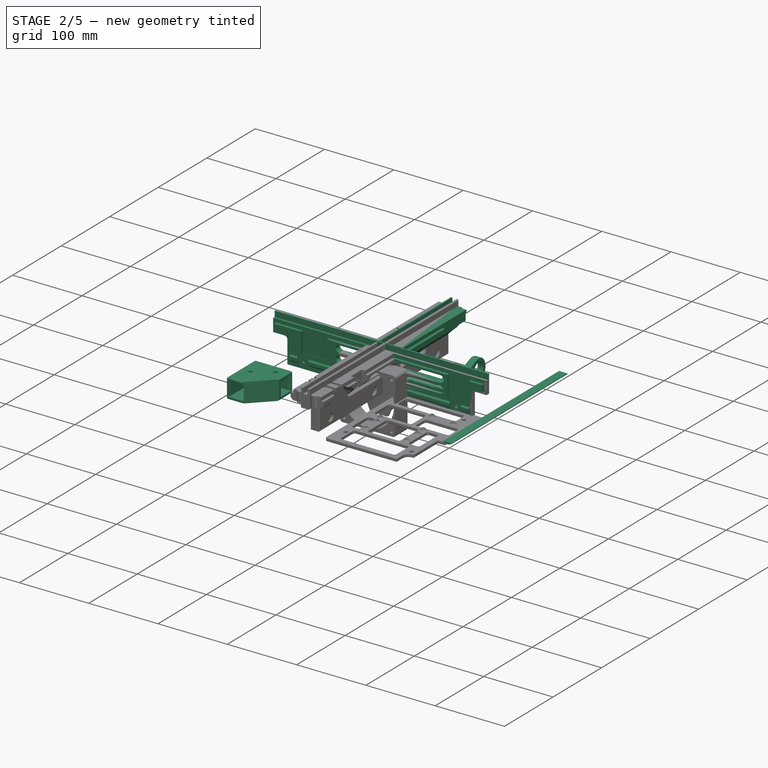
[diagram: stage 2 of 5 — iso view after this stage's code; geometry added in this stage tinted green]
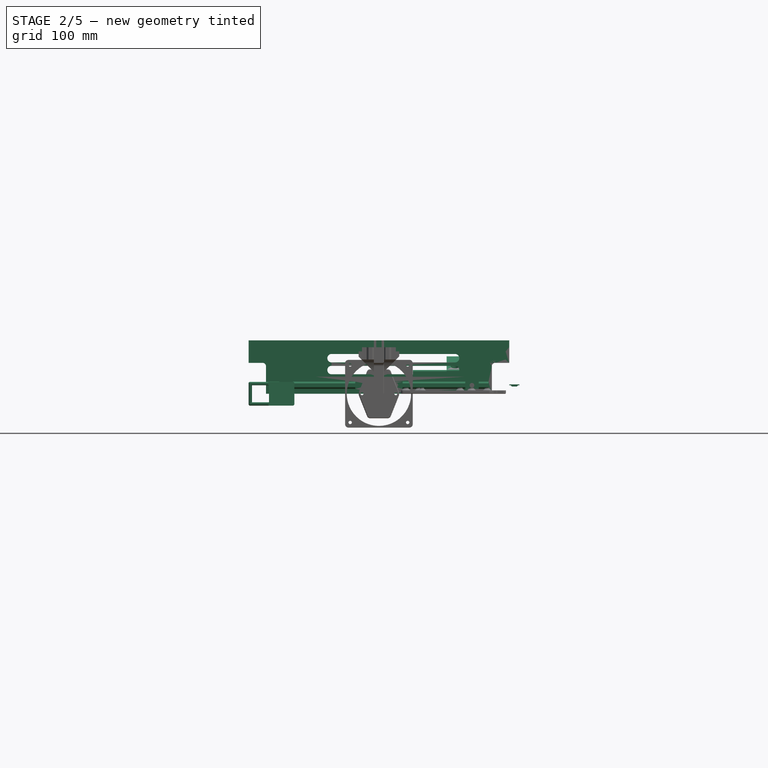
[diagram: stage 2 of 5 — front view after this stage's code; geometry added in this stage tinted green]
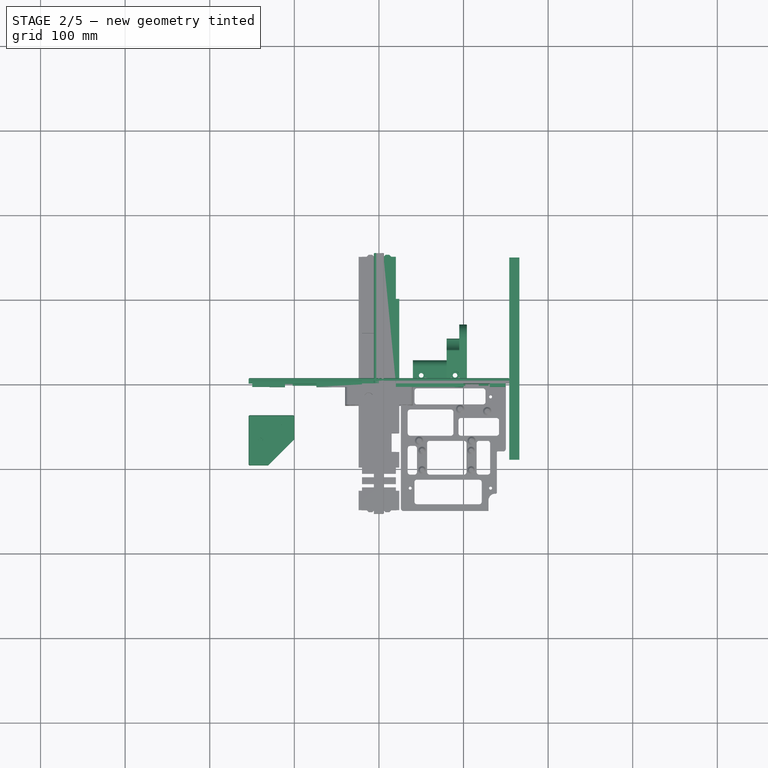
[diagram: stage 2 of 5 — top view after this stage's code; geometry added in this stage tinted green]
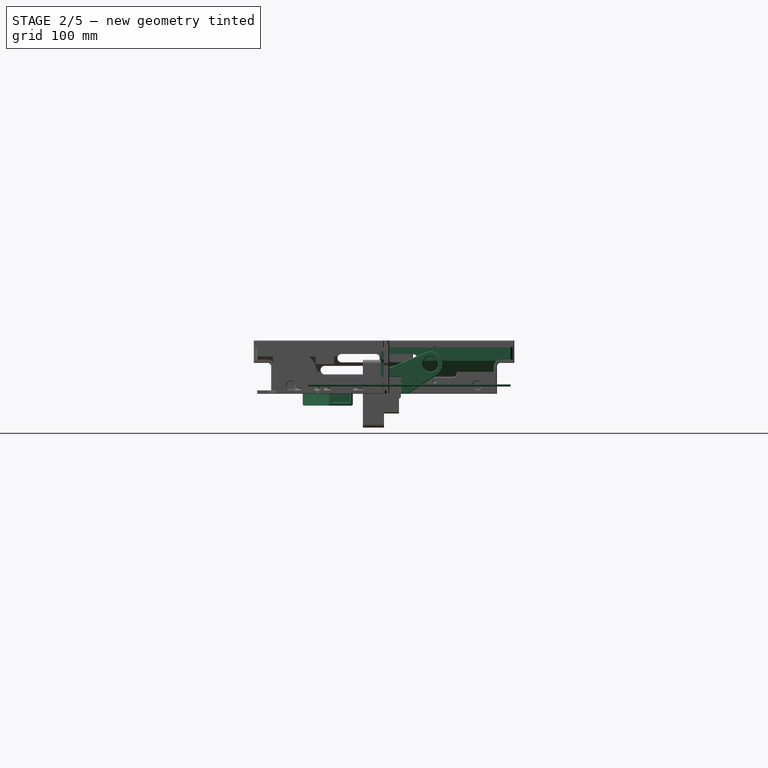
[diagram: stage 2 of 5 — right view after this stage's code; geometry added in this stage tinted green]
FEATURE [Sketcher::SketchObject] Sketch259
  ArcFitTolerance = 1e-06
  AttachmentSupport = -> [XY_Plane263]
  FullyConstrained = true
  MakeInternals = false
  MapMode = 5
  expr: Constraints[11] = -Spreadsheet.side_length / 2 + 74
  expr: Constraints[6] = -Spreadsheet.side_length / 2 + 30
  expr: Constraints[9] = -Spreadsheet.bed_hole_distance / 2 + 14
  sketch-geometry (15):
    g0: LineSegment StartX=-152.5 StartY=-37 StartZ=0 EndX=-101.5 EndY=-37 EndZ=0
    g1: LineSegment StartX=-100 StartY=-38.5 StartZ=0 EndX=-100 EndY=-65 EndZ=0
    g2: LineSegment StartX=-100 StartY=-65 StartZ=0 EndX=-131 EndY=-96 EndZ=0
    g3: LineSegment StartX=-131 StartY=-96 StartZ=0 EndX=-152.5 EndY=-96 EndZ=0
    g4: LineSegment StartX=-154 StartY=-94.5 StartZ=0 EndX=-154 EndY=-38.5 EndZ=0
    g5: GeomPoint X=-140 Y=-51 Z=0
    g6: GeomPoint X=-140 Y=-96 Z=0
    g7: GeomPoint X=-100 Y=-51 Z=0
    g8: GeomPoint X=-130 Y=-51 Z=0
    g9: ArcOfCircle CenterX=-152.5 CenterY=-38.5 CenterZ=0 NormalX=0 NormalY=0 NormalZ=1 AngleXU=0 Radius=1.5 StartAngle=1.5708 EndAngle=3.14159
    g10: GeomPoint [constr] X=-154 Y=-37 Z=0
    g11: ArcOfCircle CenterX=-101.5 CenterY=-38.5 CenterZ=0 NormalX=0 NormalY=0 NormalZ=1 AngleXU=0 Radius=1.5 StartAngle=1.5e-15 EndAngle=1.5708
    g12: GeomPoint [constr] X=-100 Y=-37 Z=0
    g13: ArcOfCircle CenterX=-152.5 CenterY=-94.5 CenterZ=0 NormalX=0 NormalY=0 NormalZ=1 AngleXU=0 Radius=1.5 StartAngle=3.14159 EndAngle=4.71239
    g14: GeomPoint [constr] X=-154 Y=-96 Z=0
  constraints (34):
    c: Horizontal(g0)
    c: Vertical(g1)
    c: Coincident(g1,g2)
    c: Coincident(g2,g3)
    c: Horizontal(g3)
    c: Vertical(g4)
    c: DistanceX(g5) = -140
    c: Vertical(g6,g5)
    c: Symmetric(g12,g1,g7)
    c: DistanceY(g5) = -51
    c: Horizontal(g7,g5)
    c: DistanceY(g2) = -96
    c: DistanceX(g14,g6) = 14
    c: Angle(g2) = -2.35619
    c: DistanceY(g1,g12) = 28
    c: Horizontal(g8,g5)
    c: DistanceX(g5,g8) = 10
    c: DistanceX(g8,g7) = 30
    c: PointOnObject(g6,g3)
    c: PointOnObject(g10,g0)
    c: PointOnObject(g10,g4)
    c: Tangent(g0,g9) = 1.5708
    c: Tangent(g4,g9) = 1.5708
    c: PointOnObject(g12,g1)
    c: PointOnObject(g12,g0)
    c: Tangent(g1,g11) = 1.5708
    c: Tangent(g0,g11) = 1.5708
    c: PointOnObject(g14,g3)
    c: PointOnObject(g14,g4)
    c: Tangent(g3,g13) = 1.5708
    c: Tangent(g4,g13) = 1.5708
    c: Equal(g13,g9)
    c: Equal(g9,g11)
    c: Radius(g11) = 1.5
FEATURE [PartDesign::Pad] Pad063
  Direction = (0,0,1)
  Length = 28
  Length2 = 10
  Midplane = true
  Profile = -> Sketch259
  ReferenceAxis = -> Sketch259 [N_Axis]
  Suppressed = false
  Type = 0
FEATURE [Sketcher::SketchObject] Sketch260
  ArcFitTolerance = 1e-06
  AttachmentSupport = -> [XY_Plane263]
  FullyConstrained = true
  MakeInternals = false
  MapMode = 5
  expr: Constraints[0] = -Spreadsheet.side_length / 2 + 30
  expr: Constraints[1] = -Spreadsheet.bed_hole_distance / 2 + 14
  expr: Constraints[26] = -Spreadsheet.side_length / 2 + 74
  sketch-geometry (11):
    g0: GeomPoint X=-140 Y=-51 Z=0
    g1: LineSegment StartX=-150.05 StartY=-37 StartZ=0 EndX=-129.95 EndY=-37 EndZ=0
    g2: LineSegment StartX=-129.95 StartY=-37 StartZ=0 EndX=-129.95 EndY=-40.95 EndZ=0
    g3: LineSegment StartX=-129.95 StartY=-40.95 StartZ=0 EndX=-100 EndY=-40.95 EndZ=0
    g4: LineSegment StartX=-100 StartY=-40.95 StartZ=0 EndX=-100 EndY=-61.05 EndZ=0
    g5: LineSegment StartX=-100 StartY=-61.05 StartZ=0 EndX=-129.95 EndY=-61.05 EndZ=0
    g6: LineSegment StartX=-129.95 StartY=-61.05 StartZ=0 EndX=-129.95 EndY=-96 EndZ=0
    g7: LineSegment StartX=-129.95 StartY=-96 StartZ=0 EndX=-150.05 EndY=-96 EndZ=0
    g8: LineSegment StartX=-150.05 StartY=-96 StartZ=0 EndX=-150.05 EndY=-37 EndZ=0
    g9: GeomPoint X=-140 Y=-37 Z=0
    g10: GeomPoint X=-100 Y=-51 Z=0
  constraints (28):
    c: DistanceX(g0) = -140
    c: DistanceY(g0) = -51
    c: Horizontal(g1)
    c: Coincident(g1,g2)
    c: Vertical(g2)
    c: Coincident(g2,g3)
    c: Horizontal(g3)
    c: Coincident(g3,g4)
    c: Vertical(g4)
    c: Coincident(g4,g5)
    c: Horizontal(g5)
    c: Coincident(g5,g6)
    c: Vertical(g6)
    c: Coincident(g6,g7)
    c: Horizontal(g7)
    c: Coincident(g7,g8)
    c: Coincident(g8,g1)
    c: Vertical(g8)
    c: Symmetric(g1,g1,g9)
    c: Vertical(g9,g0)
    c: DistanceX(g1,g1) = 20.1
    c: Equal(g1,g4)
    c: Vertical(g5,g2)
    c: Symmetric(g4,g4,g10)
    c: Horizontal(g10,g0)
    c: DistanceX(g0,g3) = 40
    c: DistanceY(g6) = -96
    c: DistanceY(g0,g1) = 14
FEATURE [PartDesign::Pocket] Pocket
  BaseFeature = -> Pad063
  Direction = (0,0,-1)
  Length = 20.1
  Length2 = 5
  Midplane = true
  Profile = -> Sketch260
  ReferenceAxis = -> Sketch260 [N_Axis]
  Suppressed = false
  Type = 0
FEATURE [Sketcher::SketchObject] Sketch261
  ArcFitTolerance = 1e-06
  AttachmentSupport = -> [XY_Plane263]
  FullyConstrained = true
  MakeInternals = false
  MapMode = 5
  expr: Constraints[0] = -Spreadsheet.bed_hole_distance / 2 + 14
  expr: Constraints[1] = -Spreadsheet.side_length / 2 + 30
  expr: Constraints[9] = -Spreadsheet.side_length / 2 + 74
  sketch-geometry (5):
    g0: GeomPoint X=-140 Y=-51 Z=0
    g1: Circle CenterX=-115 CenterY=-51 CenterZ=0 NormalX=0 NormalY=0 NormalZ=1 AngleXU=0 Radius=2.75
    g2: Circle CenterX=-140 CenterY=-66.5 CenterZ=0 NormalX=0 NormalY=0 NormalZ=1 AngleXU=0 Radius=2.75
    g3: GeomPoint X=-140 Y=-37 Z=0
    g4: GeomPoint X=-140 Y=-96 Z=0
  constraints (11):
    c: DistanceY(g0) = -51
    c: DistanceX(g0) = -140
    c: Horizontal(g1,g0)
    c: Vertical(g0,g2)
    c: Equal(g1,g2)
    c: Diameter(g1) = 5.5
    c: DistanceX(g0,g1) = 25
    c: Vertical(g3,g0)
    c: DistanceY(g0,g3) = 14
    c: DistanceY(g4) = -96
    c: Symmetric(g3,g4,g2)
FEATURE [PartDesign::Pocket] Pocket001
  BaseFeature = -> Pocket
  Direction = (0,0,-1)
  Length = 5
  Length2 = 5
  Profile = -> Sketch261
  ReferenceAxis = -> Sketch261 [N_Axis]
  Reversed = true
  Suppressed = false
  Type = 1
FEATURE [PartDesign::Chamfer] Chamfer
  Angle = 45
  Base = -> Pocket001 [Edge25]
  BaseFeature = -> Pocket001
  ChamferType = 1
  FlipDirection = true
  Size = 4
  Size2 = 1
  SupportTransform = false
  Suppressed = false
  UseAllEdges = false
FEATURE [PartDesign::Chamfer] Chamfer001
  Angle = 45
  Base = -> Chamfer [Edge51]
  BaseFeature = -> Chamfer
  ChamferType = 1
  FlipDirection = false
  Size = 4
  Size2 = 1
  SupportTransform = false
  Suppressed = false
  UseAllEdges = false
FEATURE [PartDesign::Chamfer] Chamfer002
  Angle = 45
  Base = -> Chamfer001 [Edge44]
  BaseFeature = -> Chamfer001
  ChamferType = 1
  FlipDirection = false
  Size = 4
  Size2 = 1
  SupportTransform = false
  Suppressed = false
  UseAllEdges = false
FEATURE [App::DocumentObjectGroup] Group019  label="bed-standoffs"
  Group = -> [Body094,Part__Mirroring066,Part__Mirroring067,Part__Mirroring068]
FEATURE [Sketcher::SketchObject] Sketch395
  ArcFitTolerance = 1e-06
  AttachmentOffset = pos=(0,0,80) rot=(0,0,1;0rad)
  AttachmentSupport = -> [YZ_Plane266]
  FullyConstrained = true
  MakeInternals = false
  MapMode = 5
  Placement = pos=(80,0,0) rot=(0.57735,0.57735,0.57735;2.0944rad)
  sketch-geometry (17):
    g0: LineSegment StartX=20 StartY=2 StartZ=0 EndX=20 EndY=20 EndZ=0
    g1: LineSegment StartX=20 StartY=20 StartZ=0 EndX=2 EndY=20 EndZ=0
    g2: LineSegment StartX=0 StartY=22 StartZ=0 EndX=0 EndY=26.675 EndZ=0
    g3: LineSegment StartX=1.22015 StartY=28.5167 StartZ=0 EndX=49.1511 EndY=48.8127 EndZ=0
    g4: ArcOfCircle CenterX=55 CenterY=35 CenterZ=0 NormalX=0 NormalY=0 NormalZ=1 AngleXU=0 Radius=15 StartAngle=5.2799 EndAngle=8.25453
    g5: LineSegment StartX=63.063 StartY=22.3514 StartZ=0 EndX=28.4918 EndY=0.313517 EndZ=0
    g6: LineSegment StartX=22 StartY=4e-16 StartZ=0 EndX=27.4168 EndY=0 EndZ=0
    g7: Circle CenterX=55 CenterY=35 CenterZ=0 NormalX=0 NormalY=0 NormalZ=1 AngleXU=0 Radius=9
    g8: ArcOfCircle CenterX=2 CenterY=26.675 CenterZ=0 NormalX=0 NormalY=0 NormalZ=1 AngleXU=0 Radius=2 StartAngle=1.97135 EndAngle=3.14159
    g9: GeomPoint [constr] X=0 Y=28 Z=0
    g10: ArcOfCircle CenterX=2 CenterY=22 CenterZ=0 NormalX=0 NormalY=0 NormalZ=1 AngleXU=0 Radius=2 StartAngle=3.14159 EndAngle=4.71239
    g11: GeomPoint [constr] X=0 Y=20 Z=0
    g12: ArcOfCircle CenterX=22 CenterY=2 CenterZ=0 NormalX=0 NormalY=0 NormalZ=1 AngleXU=0 Radius=2 StartAngle=3.14159 EndAngle=4.71239
    g13: GeomPoint [constr] X=20 Y=0 Z=0
    g14: ArcOfCircle CenterX=27.4168 CenterY=2 CenterZ=0 NormalX=0 NormalY=0 NormalZ=1 AngleXU=0 Radius=2 StartAngle=4.71239 EndAngle=5.2799
    g15: GeomPoint [constr] X=28 Y=0 Z=0
    g16: GeomPoint X=55 Y=50 Z=0
  constraints (40):
    c: PointOnObject(g13,g-1)
    c: Vertical(g0)
    c: Coincident(g0,g1)
    c: PointOnObject(g11,g-2)
    c: Horizontal(g1)
    c: PointOnObject(g9,g-2)
    c: PointOnObject(g15,g-1)
    c: DistanceY(g13,g0) = 20
    c: Tangent(g4,g3) = 1.5708
    c: Tangent(g5,g4) = 1.5708
    c: DistanceX(g4) = 55
    c: DistanceY(g4) = 35
    c: DistanceY(g9) = 28
    c: DistanceX(g15) = 28
    c: Coincident(g7,g4)
    c: Diameter(g7) = 18
    c: PointOnObject(g9,g2)
    c: PointOnObject(g9,g3)
    c: Tangent(g2,g8) = 1.5708
    c: Tangent(g3,g8) = 1.5708
    c: PointOnObject(g11,g1)
    c: PointOnObject(g11,g2)
    c: Tangent(g1,g10) = 1.5708
    c: Tangent(g2,g10) = 1.5708
    c: PointOnObject(g13,g0)
    c: PointOnObject(g13,g6)
    c: Tangent(g0,g12) = 1.5708
    c: Tangent(g6,g12) = -1.5708
    c: PointOnObject(g15,g5)
    c: PointOnObject(g15,g6)
    c: Tangent(g5,g14) = 1.5708
    c: Tangent(g6,g14) = -1.5708
    c: Equal(g14,g12)
    c: Equal(g14,g10)
    c: Equal(g14,g8)
    c: Radius(g14) = 2
    c: DistanceX(g0) = 20
    c: PointOnObject(g16,g4)
    c: Vertical(g16,g4)
    c: DistanceY(g16) = 50
FEATURE [PartDesign::Pad] Pad084
  Direction = (1,0,0)
  Length = 24
  Length2 = 10
  Placement = pos=(0,0,0) rot=(1,1,1;2.0944rad)
  Profile = -> Sketch395
  ReferenceAxis = -> Sketch395 [N_Axis]
  Suppressed = false
  Type = 0
FEATURE [Sketcher::SketchObject] Sketch396
  ArcFitTolerance = 1e-06
  AttachmentOffset = pos=(0,0,95) rot=(0,0,1;0rad)
  AttachmentSupport = -> [YZ_Plane266]
  FullyConstrained = true
  MakeInternals = false
  MapMode = 5
  Placement = pos=(95,0,0) rot=(0.57735,0.57735,0.57735;2.0944rad)
  sketch-geometry (1):
    g0: Circle CenterX=55 CenterY=35 CenterZ=0 NormalX=0 NormalY=0 NormalZ=1 AngleXU=0 Radius=16
  constraints (3):
    c: DistanceX(g0) = 55
    c: DistanceY(g0) = 35
    c: Diameter(g0) = 32
FEATURE [PartDesign::Pocket] Pocket275
  BaseFeature = -> Pad084
  Direction = (-1,0,0)
  Length = 5
  Length2 = 5
  Placement = pos=(0,0,0) rot=(1,1,1;2.0944rad)
  Profile = -> Sketch396
  ReferenceAxis = -> Sketch396 [N_Axis]
  Suppressed = false
  Type = 1
FEATURE [Sketcher::SketchObject] Sketch397
  ArcFitTolerance = 1e-06
  AttachmentSupport = -> [YZ_Plane266]
  FullyConstrained = true
  MakeInternals = false
  MapMode = 5
  Placement = pos=(0,0,0) rot=(0.57735,0.57735,0.57735;2.0944rad)
  sketch-geometry (15):
    g0: LineSegment StartX=2 StartY=20 StartZ=0 EndX=20 EndY=20 EndZ=0
    g1: LineSegment StartX=20 StartY=20 StartZ=0 EndX=20 EndY=2 EndZ=0
    g2: LineSegment StartX=22 StartY=0 StartZ=0 EndX=26 EndY=0 EndZ=0
    g3: LineSegment StartX=28 StartY=2 StartZ=0 EndX=28 EndY=20 EndZ=0
    g4: ArcOfCircle CenterX=20 CenterY=20 CenterZ=0 NormalX=0 NormalY=0 NormalZ=1 AngleXU=0 Radius=8 StartAngle=2e-16 EndAngle=1.5708
    g5: LineSegment StartX=20 StartY=28 StartZ=0 EndX=2 EndY=28 EndZ=0
    g6: LineSegment StartX=0 StartY=26 StartZ=0 EndX=0 EndY=22 EndZ=0
    g7: ArcOfCircle CenterX=2 CenterY=22 CenterZ=0 NormalX=0 NormalY=0 NormalZ=1 AngleXU=0 Radius=2 StartAngle=3.14159 EndAngle=4.71239
    g8: GeomPoint [constr] X=0 Y=20 Z=0
    g9: ArcOfCircle CenterX=2 CenterY=26 CenterZ=0 NormalX=0 NormalY=0 NormalZ=1 AngleXU=0 Radius=2 StartAngle=1.5708 EndAngle=3.14159
    g10: GeomPoint [constr] X=0 Y=28 Z=0
    g11: ArcOfCircle CenterX=26 CenterY=2 CenterZ=0 NormalX=0 NormalY=0 NormalZ=1 AngleXU=0 Radius=2 StartAngle=4.71239 EndAngle=6.28319
    g12: GeomPoint [constr] X=28 Y=0 Z=0
    g13: ArcOfCircle CenterX=22 CenterY=2 CenterZ=0 NormalX=0 NormalY=0 NormalZ=1 AngleXU=0 Radius=2 StartAngle=3.14159 EndAngle=4.71239
    g14: GeomPoint [constr] X=20 Y=0 Z=0
  constraints (35):
    c: PointOnObject(g8,g-2)
    c: Horizontal(g0)
    c: Coincident(g0,g1)
    c: PointOnObject(g14,g-1)
    c: Vertical(g1)
    c: PointOnObject(g12,g-1)
    c: Vertical(g3)
    c: Coincident(g4,g0)
    c: Tangent(g4,g5) = -1.5708
    c: Vertical(g6)
    c: Horizontal(g5)
    c: Tangent(g4,g3) = -1.5708
    c: DistanceX(g8,g0) = 20
    c: DistanceY(g10) = 28
    c: PointOnObject(g8,g6)
    c: PointOnObject(g8,g0)
    c: Tangent(g6,g7) = -1.5708
    c: Tangent(g0,g7) = -1.5708
    c: PointOnObject(g10,g6)
    c: PointOnObject(g10,g5)
    c: Tangent(g6,g9) = -1.5708
    c: Tangent(g5,g9) = -1.5708
    c: PointOnObject(g12,g3)
    c: PointOnObject(g12,g2)
    c: Tangent(g3,g11) = -1.5708
    c: Tangent(g2,g11) = -1.5708
    c: PointOnObject(g14,g2)
    c: PointOnObject(g14,g1)
    c: Tangent(g2,g13) = -1.5708
    c: Tangent(g1,g13) = -1.5708
    c: Equal(g7,g9)
    c: Equal(g7,g11)
    c: Equal(g7,g13)
    c: Radius(g7) = 2
    c: DistanceY(g0) = 20
FEATURE [PartDesign::Pad] Pad085
  BaseFeature = -> Pocket275
  Direction = (1,0,0)
  Length = 80
  Length2 = -40.2
  Placement = pos=(0,0,0) rot=(1,1,1;2.0944rad)
  Profile = -> Sketch397
  ReferenceAxis = -> Sketch397 [N_Axis]
  Refine = true
  Suppressed = false
  Type = 4
FEATURE [Sketcher::SketchObject] Sketch398
  ArcFitTolerance = 1e-06
  AttachmentOffset = pos=(0,0,103) rot=(0,0,1;0rad)
  AttachmentSupport = -> [YZ_Plane266]
  FullyConstrained = true
  MakeInternals = false
  MapMode = 5
  Placement = pos=(103,0,0) rot=(0.57735,0.57735,0.57735;2.0944rad)
  sketch-geometry (1):
    g0: Circle CenterX=55 CenterY=35 CenterZ=0 NormalX=0 NormalY=0 NormalZ=1 AngleXU=0 Radius=11
  constraints (3):
    c: DistanceX(g0) = 55
    c: DistanceY(g0) = 35
    c: Diameter(g0) = 22
FEATURE [PartDesign::Pocket] Pocket276
  BaseFeature = -> Pad085
  Direction = (-1,0,0)
  Length = 5
  Length2 = 5
  Placement = pos=(0,0,0) rot=(1,1,1;2.0944rad)
  Profile = -> Sketch398
  ReferenceAxis = -> Sketch398 [N_Axis]
  Suppressed = false
  Type = 1
FEATURE [Sketcher::SketchObject] Sketch401
  ArcFitTolerance = 1e-06
  AttachmentOffset = pos=(0,0,24) rot=(0,0,1;0rad)
  AttachmentSupport = -> [XY_Plane266]
  FullyConstrained = true
  MakeInternals = false
  MapMode = 5
  Placement = pos=(0,0,24) rot=(0,0,1;0rad)
  sketch-geometry (2):
    g0: Circle CenterX=90 CenterY=10 CenterZ=0 NormalX=0 NormalY=0 NormalZ=1 AngleXU=0 Radius=5
    g1: Circle CenterX=50 CenterY=10 CenterZ=0 NormalX=0 NormalY=0 NormalZ=1 AngleXU=0 Radius=5
  constraints (6):
    c: DistanceX(g0) = 90
    c: DistanceY(g0) = 10
    c: Diameter(g0) = 10
    c: Horizontal(g1,g0)
    c: DistanceX(g1) = 50
    c: Equal(g1,g0)
FEATURE [PartDesign::Pocket] Pocket277
  BaseFeature = -> Pocket276
  Direction = (0,0,-1)
  Length = 5
  Length2 = 5
  Placement = pos=(0,0,0) rot=(1,1,1;2.0944rad)
  Profile = -> Sketch401
  ReferenceAxis = -> Sketch401 [N_Axis]
  Reversed = true
  Suppressed = false
  Type = 1
FEATURE [Sketcher::SketchObject] Sketch402
  ArcFitTolerance = 1e-06
  AttachmentSupport = -> [XY_Plane266]
  FullyConstrained = true
  MakeInternals = false
  MapMode = 5
  sketch-geometry (2):
    g0: Circle CenterX=90 CenterY=10 CenterZ=0 NormalX=0 NormalY=0 NormalZ=1 AngleXU=0 Radius=2.75
    g1: Circle CenterX=50 CenterY=10 CenterZ=0 NormalX=0 NormalY=0 NormalZ=1 AngleXU=0 Radius=2.75
  constraints (6):
    c: DistanceY(g0) = 10
    c: DistanceX(g0) = 90
    c: Diameter(g0) = 5.5
    c: Horizontal(g1,g0)
    c: Equal(g1,g0)
    c: DistanceX(g1) = 50
FEATURE [PartDesign::Pocket] Pocket278
  BaseFeature = -> Pocket277
  Direction = (0,0,-1)
  Length = 5
  Length2 = 5
  Midplane = true
  Placement = pos=(0,0,0) rot=(1,1,1;2.0944rad)
  Profile = -> Sketch402
  ReferenceAxis = -> Sketch402 [N_Axis]
  Suppressed = false
  Type = 1
FEATURE [Sketcher::SketchObject] Sketch403
  ArcFitTolerance = 1e-06
  AttachmentOffset = pos=(0,0,-24) rot=(0,0,1;0rad)
  AttachmentSupport = -> [XZ_Plane266]
  FullyConstrained = true
  MakeInternals = false
  MapMode = 5
  Placement = pos=(0,24,-5.3e-15) rot=(1,0,0;1.5708rad)
  sketch-geometry (1):
    g0: Circle CenterX=70 CenterY=10 CenterZ=0 NormalX=0 NormalY=0 NormalZ=1 AngleXU=0 Radius=5
  constraints (3):
    c: DistanceX(g0) = 70
    c: DistanceY(g0) = 10
    c: Diameter(g0) = 10
FEATURE [PartDesign::Pocket] Pocket279
  BaseFeature = -> Pocket278
  Direction = (0,1,-2e-16)
  Length = 5
  Length2 = 5
  Placement = pos=(0,0,0) rot=(1,1,1;2.0944rad)
  Profile = -> Sketch403
  ReferenceAxis = -> Sketch403 [N_Axis]
  Suppressed = false
  Type = 1
FEATURE [Sketcher::SketchObject] Sketch404
  ArcFitTolerance = 1e-06
  AttachmentSupport = -> [XZ_Plane266]
  FullyConstrained = true
  MakeInternals = false
  MapMode = 5
  Placement = pos=(0,0,0) rot=(1,0,0;1.5708rad)
  sketch-geometry (1):
    g0: Circle CenterX=70 CenterY=10 CenterZ=0 NormalX=0 NormalY=0 NormalZ=1 AngleXU=0 Radius=2.75
  constraints (3):
    c: DistanceY(g0) = 10
    c: DistanceX(g0) = 70
    c: Diameter(g0) = 5.5
FEATURE [PartDesign::Pocket] Pocket280
  BaseFeature = -> Pocket279
  Direction = (0,1,-2e-16)
  Length = 5
  Length2 = 5
  Midplane = true
  Placement = pos=(0,0,0) rot=(1,1,1;2.0944rad)
  Profile = -> Sketch404
  ReferenceAxis = -> Sketch404 [N_Axis]
  Suppressed = false
  Type = 1
FEATURE [Sketcher::SketchObject] Sketch412
  ArcFitTolerance = 1e-06
  AttachmentSupport = -> [YZ_Plane270]
  FullyConstrained = true
  MakeInternals = false
  MapMode = 5
  Placement = pos=(0,0,0) rot=(0.57735,0.57735,0.57735;2.0944rad)
  sketch-geometry (16):
    g0: LineSegment [constr] StartX=0 StartY=20 StartZ=0 EndX=0 EndY=0 EndZ=0
    g1: LineSegment StartX=0 StartY=0 StartZ=0 EndX=20 EndY=0 EndZ=0
    g2: LineSegment StartX=20 StartY=0 StartZ=0 EndX=20 EndY=20 EndZ=0
    g3: LineSegment StartX=20 StartY=20 StartZ=0 EndX=0 EndY=20 EndZ=0
    g4: LineSegment StartX=0 StartY=20 StartZ=0 EndX=0 EndY=14.2757 EndZ=0
    g5: LineSegment StartX=0 StartY=14.2757 StartZ=0 EndX=2 EndY=12.2757 EndZ=0
    g6: LineSegment StartX=2 StartY=12.2757 StartZ=0 EndX=2 EndY=7.72426 EndZ=0
    g7: LineSegment StartX=2 StartY=7.72426 StartZ=0 EndX=0 EndY=5.72426 EndZ=0
    g8: LineSegment StartX=0 StartY=5.72426 StartZ=0 EndX=0 EndY=0 EndZ=0
    g9: GeomPoint X=0 Y=10 Z=0
    g10: GeomPoint X=2 Y=10 Z=0
    g11: LineSegment [constr] StartX=2 StartY=12.7 StartZ=0 EndX=2 EndY=7.3 EndZ=0
    g12: LineSegment StartX=0 StartY=55 StartZ=0 EndX=0 EndY=50 EndZ=0
    g13: LineSegment StartX=0 StartY=50 StartZ=0 EndX=4 EndY=50 EndZ=0
    g14: LineSegment StartX=4 StartY=50 StartZ=0 EndX=4 EndY=55 EndZ=0
    g15: LineSegment StartX=4 StartY=55 StartZ=0 EndX=0 EndY=55 EndZ=0
  constraints (43):
    c: Coincident(g0,g1)
    c: Coincident(g1,g2)
    c: Coincident(g2,g3)
    c: Coincident(g3,g0)
    c: Vertical(g0)
    c: Vertical(g2)
    c: Horizontal(g1)
    c: Horizontal(g3)
    c: PointOnObject(g0,g-2)
    c: PointOnObject(g1,g-1)
    c: Equal(g2,g3)
    c: DistanceX(g3,g3) = 20
    c: Coincident(g0,g4)
    c: PointOnObject(g4,g0)
    c: Coincident(g4,g5)
    c: Coincident(g5,g6)
    c: Vertical(g6)
    c: Coincident(g6,g7)
    c: PointOnObject(g7,g0)
    c: Coincident(g7,g8)
    c: Coincident(g8,g0)
    c: Perpendicular(g5,g7)
    c: Symmetric(g0,g0,g9)
    c: Symmetric(g6,g6,g10)
    c: Horizontal(g10,g9)
    c: Angle(g5) = -0.785398
    c: DistanceX(g5,g5) = 2
    c: Vertical(g11)
    c: Symmetric(g11,g11,g10)
    c: DistanceY(g11,g11) = 5.4
    c: Distance(g11,g7) = 0.3
    c: Coincident(g12,g13)
    c: Coincident(g13,g14)
    c: Coincident(g14,g15)
    c: Coincident(g15,g12)
    c: Vertical(g12)
    c: Vertical(g14)
    c: Horizontal(g13)
    c: Horizontal(g15)
    c: PointOnObject(g12,g-2)
    c: DistanceY(g12) = 55
    c: DistanceY(g12) = 50
    c: DistanceX(g13,g13) = 4
FEATURE [PartDesign::Pocket] Pocket285
  BaseFeature = -> Pad090
  Direction = (-1,0,0)
  Length = 5
  Length2 = 5
  Midplane = true
  Placement = pos=(0,0,0) rot=(1,0,0;1.5708rad)
  Profile = -> Sketch412
  ReferenceAxis = -> Sketch412 [N_Axis]
  Suppressed = false
  Type = 1
FEATURE [Sketcher::SketchObject] Sketch413
  ArcFitTolerance = 1e-06
  AttachmentSupport = -> [XY_Plane270]
  FullyConstrained = true
  MakeInternals = false
  MapMode = 5
  expr: Constraints[9] = Spreadsheet.side_length / 2
  sketch-geometry (4):
    g0: LineSegment StartX=149.7 StartY=20 StartZ=0 EndX=149.7 EndY=0 EndZ=0
    g1: LineSegment StartX=149.7 StartY=0 StartZ=0 EndX=170 EndY=0 EndZ=0
    g2: LineSegment StartX=170 StartY=0 StartZ=0 EndX=170 EndY=20 EndZ=0
    g3: LineSegment StartX=170 StartY=20 StartZ=0 EndX=149.7 EndY=20 EndZ=0
  constraints (12):
    c: Coincident(g0,g1)
    c: Coincident(g1,g2)
    c: Coincident(g2,g3)
    c: Coincident(g3,g0)
    c: Vertical(g0)
    c: Vertical(g2)
    c: Horizontal(g1)
    c: Horizontal(g3)
    c: PointOnObject(g1,g-1)
    c: DistanceX(g1) = 170
    c: DistanceX(g3,g3) = 20.3
    c: DistanceY(g2,g2) = 20
FEATURE [PartDesign::Pocket] Pocket286
  BaseFeature = -> Pocket285
  Direction = (0,0,-1)
  Length = 5
  Length2 = 5
  Midplane = true
  Placement = pos=(0,0,0) rot=(1,0,0;1.5708rad)
  Profile = -> Sketch413
  ReferenceAxis = -> Sketch413 [N_Axis]
  Suppressed = false
  Type = 1
FEATURE [Sketcher::SketchObject] Sketch420
  ArcFitTolerance = 1e-06
  AttachmentSupport = -> [XZ_Plane276]
  FullyConstrained = true
  MakeInternals = false
  MapMode = 5
  Placement = pos=(0,0,0) rot=(1,0,0;1.5708rad)
  expr: Constraints[11] = -Spreadsheet.side_length / 2
  sketch-geometry (5):
    g0: LineSegment StartX=-131 StartY=34 StartZ=0 EndX=-131 EndY=20 EndZ=0
    g1: LineSegment StartX=-131 StartY=20 StartZ=0 EndX=-65 EndY=20 EndZ=0
    g2: LineSegment StartX=-65 StartY=20 StartZ=0 EndX=-65 EndY=34 EndZ=0
    g3: LineSegment StartX=-65 StartY=34 StartZ=0 EndX=-131 EndY=34 EndZ=0
    g4: GeomPoint X=-170 Y=0 Z=0
  constraints (14):
    c: Coincident(g0,g1)
    c: Coincident(g1,g2)
    c: Coincident(g2,g3)
    c: Coincident(g3,g0)
    c: Vertical(g0)
    c: Vertical(g2)
    c: Horizontal(g1)
    c: Horizontal(g3)
    c: DistanceY(g1) = 20
    c: DistanceY(g2,g2) = 14
    c: PointOnObject(g4,g-1)
    c: DistanceX(g4) = -170
    c: DistanceX(g4,g2) = 105
    c: DistanceX(g4,g0) = 39
FEATURE [Sketcher::SketchObject] Sketch421
  ArcFitTolerance = 1e-06
  AttachmentOffset = pos=(0,0,2.7) rot=(0,0,1;0rad)
  AttachmentSupport = -> [XZ_Plane270]
  FullyConstrained = true
  MakeInternals = false
  MapMode = 5
  Placement = pos=(0,-2.7,6e-16) rot=(1,0,0;1.5708rad)
  expr: Constraints[1] = Spreadsheet.side_length / 2
  sketch-geometry (3):
    g0: Circle CenterX=20 CenterY=10 CenterZ=0 NormalX=0 NormalY=0 NormalZ=1 AngleXU=0 Radius=2.75
    g1: Circle CenterX=110 CenterY=10 CenterZ=0 NormalX=0 NormalY=0 NormalZ=1 AngleXU=0 Radius=2.75
    g2: GeomPoint X=170 Y=0 Z=0
  constraints (8):
    c: PointOnObject(g2,g-1)
    c: DistanceX(g2) = 170
    c: DistanceX(g1,g2) = 60
    c: DistanceX(g0) = 20
    c: Equal(g0,g1)
    c: Horizontal(g1,g0)
    c: Diameter(g0) = 5.5
    c: DistanceY(g0) = 10
FEATURE [PartDesign::Pocket] Pocket294
  BaseFeature = -> Pocket286
  Direction = (0,1,-2e-16)
  Length = 5
  Length2 = 5
  Placement = pos=(0,0,0) rot=(1,0,0;1.5708rad)
  Profile = -> Sketch421
  ReferenceAxis = -> Sketch421 [N_Axis]
  Suppressed = false
  Type = 1
FEATURE [Sketcher::SketchObject] Sketch422
  ArcFitTolerance = 1e-06
  AttachmentOffset = pos=(0,0,3) rot=(0,0,1;0rad)
  AttachmentSupport = -> [XZ_Plane270]
  FullyConstrained = true
  MakeInternals = false
  MapMode = 5
  Placement = pos=(0,-3,7e-16) rot=(1,0,0;1.5708rad)
  expr: Constraints[1] = Spreadsheet.side_length / 2
  sketch-geometry (3):
    g0: Circle CenterX=20 CenterY=10 CenterZ=0 NormalX=0 NormalY=0 NormalZ=1 AngleXU=0 Radius=5
    g1: Circle CenterX=110 CenterY=10 CenterZ=0 NormalX=0 NormalY=0 NormalZ=1 AngleXU=0 Radius=5
    g2: GeomPoint X=170 Y=0 Z=0
  constraints (8):
    c: PointOnObject(g2,g-1)
    c: DistanceX(g2) = 170
    c: DistanceX(g1,g2) = 60
    c: DistanceX(g0) = 20
    c: Equal(g0,g1)
    c: Horizontal(g1,g0)
    c: Diameter(g0) = 10
    c: DistanceY(g0) = 10
FEATURE [PartDesign::Pocket] Pocket295
  BaseFeature = -> Pocket294
  Direction = (0,1,-2e-16)
  Length = 5
  Length2 = 5
  Placement = pos=(0,0,0) rot=(1,0,0;1.5708rad)
  Profile = -> Sketch422
  ReferenceAxis = -> Sketch422 [N_Axis]
  Reversed = true
  Suppressed = false
  Type = 1
FEATURE [Sketcher::SketchObject] Sketch423
  ArcFitTolerance = 1e-06
  AttachmentSupport = -> [XZ_Plane270]
  FullyConstrained = true
  MakeInternals = false
  MapMode = 5
  Placement = pos=(0,0,0) rot=(1,0,0;1.5708rad)
  expr: Constraints[1] = Spreadsheet.side_length / 2
  sketch-geometry (11):
    g0: Circle [constr] CenterX=20 CenterY=10 CenterZ=0 NormalX=0 NormalY=0 NormalZ=1 AngleXU=0 Radius=2.75
    g1: Circle [constr] CenterX=110 CenterY=10 CenterZ=0 NormalX=0 NormalY=0 NormalZ=1 AngleXU=0 Radius=2.75
    g2: GeomPoint X=170 Y=0 Z=0
    g3: LineSegment StartX=12 StartY=18 StartZ=0 EndX=12 EndY=2 EndZ=0
    g4: LineSegment StartX=12 StartY=2 StartZ=0 EndX=28 EndY=2 EndZ=0
    g5: LineSegment StartX=28 StartY=2 StartZ=0 EndX=28 EndY=18 EndZ=0
    g6: LineSegment StartX=28 StartY=18 StartZ=0 EndX=12 EndY=18 EndZ=0
    g7: LineSegment StartX=102 StartY=18 StartZ=0 EndX=102 EndY=2 EndZ=0
    g8: LineSegment StartX=102 StartY=2 StartZ=0 EndX=118 EndY=2 EndZ=0
    g9: LineSegment StartX=118 StartY=2 StartZ=0 EndX=118 EndY=18 EndZ=0
    g10: LineSegment StartX=118 StartY=18 StartZ=0 EndX=102 EndY=18 EndZ=0
  constraints (30):
    c: PointOnObject(g2,g-1)
    c: DistanceX(g2) = 170
    c: DistanceX(g1,g2) = 60
    c: DistanceX(g0) = 20
    c: Equal(g0,g1)
    c: Horizontal(g1,g0)
    c: Diameter(g0) = 5.5
    c: DistanceY(g0) = 10
    c: Coincident(g3,g4)
    c: Coincident(g4,g5)
    c: Coincident(g5,g6)
    c: Coincident(g6,g3)
    c: Vertical(g3)
    c: Vertical(g5)
    c: Horizontal(g4)
    c: Horizontal(g6)
    c: Coincident(g7,g8)
    c: Coincident(g8,g9)
    c: Coincident(g9,g10)
    c: Coincident(g10,g7)
    c: Vertical(g7)
    c: Vertical(g9)
    c: Horizontal(g8)
    c: Horizontal(g10)
    c: Equal(g9,g10)
    c: Equal(g10,g6)
    c: Equal(g6,g3)
    c: DistanceX(g6,g6) = 16
    c: Symmetric(g5,g3,g0)
    c: Symmetric(g9,g7,g1)
FEATURE [PartDesign::Pocket] Pocket296
  BaseFeature = -> Pocket295
  Direction = (0,1,-2e-16)
  Length = 5
  Length2 = 5
  Placement = pos=(0,0,0) rot=(1,0,0;1.5708rad)
  Profile = -> Sketch423
  ReferenceAxis = -> Sketch423 [N_Axis]
  Refine = true
  Suppressed = false
  Type = 1
FEATURE [Sketcher::SketchObject] Sketch465
  ArcFitTolerance = 1e-06
  AttachmentSupport = -> [XZ_Plane270]
  FullyConstrained = true
  MakeInternals = false
  MapMode = 5
  Placement = pos=(0,0,0) rot=(1,0,0;1.5708rad)
  expr: Constraints[1] = Spreadsheet.side_length / 2
  sketch-geometry (6):
    g0: GeomPoint X=170 Y=0 Z=0
    g1: LineSegment StartX=170 StartY=0 StartZ=0 EndX=170 EndY=40.5 EndZ=0
    g2: LineSegment StartX=129.5 StartY=0 StartZ=0 EndX=170 EndY=0 EndZ=0
    g3: LineSegment StartX=170 StartY=40.5 StartZ=0 EndX=137.5 EndY=40.5 EndZ=0
    g4: LineSegment StartX=129.5 StartY=0 StartZ=0 EndX=129.5 EndY=32.5 EndZ=0
    g5: ArcOfCircle CenterX=137.5 CenterY=32.5 CenterZ=0 NormalX=0 NormalY=0 NormalZ=1 AngleXU=0 Radius=8 StartAngle=1.5708 EndAngle=3.14159
  constraints (15):
    c: PointOnObject(g0,g-1)
    c: DistanceX(g0) = 170
    c: Coincident(g2,g1)
    c: Vertical(g1)
    c: Horizontal(g2)
    c: Coincident(g1,g0)
    c: DistanceY(g1,g1) = 40.5
    c: Coincident(g1,g3)
    c: Radius(g5) = 8
    c: Tangent(g5,g4) = 1.5708
    c: Tangent(g5,g3) = -1.5708
    c: Horizontal(g3)
    c: Vertical(g4)
    c: Equal(g2,g1)
    c: Coincident(g2,g4)
FEATURE [PartDesign::Pocket] Pocket329
  BaseFeature = -> Pocket296
  Direction = (0,1,-2e-16)
  Length = 5
  Length2 = 5
  Placement = pos=(0,0,0) rot=(1,0,0;1.5708rad)
  Profile = -> Sketch465
  ReferenceAxis = -> Sketch465 [N_Axis]
  Refine = true
  Suppressed = false
  Type = 1
FEATURE [PartDesign::Body] Body134  label="skirt-front-right-drv"
  AllowCompound = false
  Group = -> [Sketch411,Pad090,Sketch412,Pocket285,Sketch413,Pocket286,Sketch421,Pocket294,Sketch422,Pocket295,Sketch423,Pocket296,Sketch465,Pocket329]
  Origin = -> Origin271
  Tip = -> Pocket329
FEATURE [Part::Mirroring] Part__Mirroring070  label="skirt-front-left-drv"
  Base = (0,0,0)
  Normal = (1,0,0)
  Source = -> Body134
FEATURE [Part::Mirroring] Part__Mirroring074  label="skirt-back-right-drv"
  Base = (0,0,0)
  Normal = (0,1,0)
  Source = -> Body134
FEATURE [Part::Mirroring] Part__Mirroring075  label="skirt-back-left-drv"
  Base = (0,0,0)
  Normal = (0,1,0)
  Source = -> Part__Mirroring070
FEATURE [App::DocumentObjectGroup] Group025  label="skirts-front-back-drv"
  Group = -> [Part__Mirroring070,Part__Mirroring074,Part__Mirroring075]
FEATURE [PartDesign::FeatureBase] Clone007
  BaseFeature = -> Part__Mirroring074
  Suppressed = false
FEATURE [PartDesign::FeatureBase] Clone008
  BaseFeature = -> Part__Mirroring075
  Suppressed = false
FEATURE [PartDesign::Pocket] Pocket297
  BaseFeature = -> Clone007
  Direction = (0,1,-2e-16)
  Length = 5
  Length2 = 5
  Profile = -> Sketch424
  ReferenceAxis = -> Sketch424 [N_Axis]
  Reversed = true
  Suppressed = false
  Type = 1
FEATURE [PartDesign::Pocket] Pocket298
  BaseFeature = -> Clone008
  Direction = (0,1,-2e-16)
  Length = 5
  Length2 = 5
  Profile = -> Sketch425
  ReferenceAxis = -> Sketch425 [N_Axis]
  Reversed = true
  Suppressed = false
  Type = 1
FEATURE [PartDesign::Chamfer] Chamfer013
  Angle = 45
  Base = -> Pocket325 [Face10]
  BaseFeature = -> Pocket325
  ChamferType = 0
  FlipDirection = false
  Size = 0.75
  Size2 = 1
  SupportTransform = false
  Suppressed = false
  UseAllEdges = false
FEATURE [PartDesign::Body] Body140  label="skirt-front-left"
  AllowCompound = false
  Group = -> [Clone006,Sketch420,Pocket293,Sketch444,Pocket311,Sketch446,Pocket313,Sketch447,Pocket314,Sketch461,Pocket325,Chamfer013]
  Origin = -> Origin277
  Placement = pos=(0,-170,0) rot=(0,0,1;0rad)
  Tip = -> Chamfer013
  expr: .Placement.Base.y = -Spreadsheet.side_length / 2
FEATURE [PartDesign::Pocket] Pocket326
  BaseFeature = -> Pocket298
  Direction = (0,1,-2e-16)
  Length = 5
  Length2 = 5
  Midplane = true
  Profile = -> Sketch462
  ReferenceAxis = -> Sketch462 [N_Axis]
  Suppressed = false
  Type = 1
FEATURE [PartDesign::Pocket] Pocket327
  BaseFeature = -> Pocket297
  Direction = (0,1,-2e-16)
  Length = 5
  Length2 = 5
  Midplane = true
  Profile = -> Sketch463
  ReferenceAxis = -> Sketch463 [N_Axis]
  Suppressed = false
  Type = 1
FEATURE [App::Link] Link029  label="x-carriage-rail"
  LinkedObject = -> <external xy-gantry/x-carriage.FCStd>#Part002
FEATURE [App::Part] Part003  label="x-assembly"
  Group = -> [Link,Link012,Link029]
  Origin = -> Origin003
  expr: .Placement.Base.x = Spreadsheet.x_position
FEATURE [App::Part] Part002  label="y-assembly"
  Group = -> [Part003,Body002,Group006,Link004,Link005,Group005,Link006,Part__Mirroring006,Link007,Array003,Part__Mirroring007,Group029,Link026,Link027,Body157]
  Origin = -> Origin002
  Placement = pos=(0,30,0) rot=(0,0,1;0rad)
  expr: .Placement.Base.y = Spreadsheet.y_position + 30
FEATURE [Sketcher::SketchObject] Sketch477
  ArcFitTolerance = 1e-06
  AttachmentSupport = -> [XZ_Plane314]
  FullyConstrained = true
  MakeInternals = false
  MapMode = 5
  Placement = pos=(0,0,0) rot=(1,0,0;1.5708rad)
  sketch-geometry (9):
    g0: LineSegment StartX=-6 StartY=1 StartZ=0 EndX=-6 EndY=0 EndZ=0
    g1: LineSegment StartX=-6 StartY=0 StartZ=0 EndX=-4.41716 EndY=0 EndZ=0
    g2: LineSegment StartX=-4.41716 StartY=0 StartZ=0 EndX=-2.91716 EndY=-1.5 EndZ=0
    g3: LineSegment StartX=-2.91716 StartY=-1.5 StartZ=0 EndX=2.91716 EndY=-1.5 EndZ=0
    g4: LineSegment StartX=2.91716 StartY=-1.5 StartZ=0 EndX=4.41716 EndY=0 EndZ=0
    g5: LineSegment StartX=4.41716 StartY=0 StartZ=0 EndX=6 EndY=0 EndZ=0
    g6: LineSegment StartX=6 StartY=0 StartZ=0 EndX=6 EndY=1 EndZ=0
    g7: LineSegment StartX=6 StartY=1 StartZ=0 EndX=-6 EndY=1 EndZ=0
    g8: LineSegment [constr] StartX=-4.7 StartY=0 StartZ=0 EndX=-2.7 EndY=-2 EndZ=0
  constraints (26):
    c: Vertical(g0)
    c: Coincident(g0,g1)
    c: Horizontal(g1)
    c: Coincident(g1,g2)
    c: Coincident(g2,g3)
    c: Horizontal(g3)
    c: Coincident(g3,g4)
    c: PointOnObject(g4,g-1)
    c: Coincident(g4,g5)
    c: PointOnObject(g5,g-1)
    c: Coincident(g5,g6)
    c: Vertical(g6)
    c: Coincident(g6,g7)
    c: Coincident(g7,g0)
    c: Perpendicular(g2,g4)
    c: Angle(g4) = 0.785398
    c: Symmetric(g4,g1,g-1)
    c: Symmetric(g0,g6,g-2)
    c: DistanceY(g6,g6) = 1
    c: DistanceY(g2,g2) = 1.5
    c: PointOnObject(g8,g1)
    c: Parallel(g8,g2)
    c: DistanceY(g8,g8) = 2
    c: DistanceX(g8) = -2.7
    c: Distance(g1,g8) = 0.2
    c: DistanceX(g7,g7) = 12
FEATURE [PartDesign::Pad] Pad104
  Direction = (0,-1,2e-16)
  Length = 89.5
  Length2 = 30
  Placement = pos=(0,0,0) rot=(1,0,0;1.5708rad)
  Profile = -> Sketch477
  ReferenceAxis = -> Sketch477 [N_Axis]
  Suppressed = false
  Type = 4
FEATURE [PartDesign::Body] Body163  label="rail-spacer-y-left-front"
  AllowCompound = false
  Group = -> [Sketch477,Pad104]
  Origin = -> Origin315
  Placement = pos=(-160,0,10) rot=(0,0,1;0rad)
  Tip = -> Pad104
  expr: .Placement.Base.x = -Spreadsheet.side_length / 2 + 10
FEATURE [Sketcher::SketchObject] Sketch478
  ArcFitTolerance = 1e-06
  AttachmentSupport = -> [XZ_Plane315]
  FullyConstrained = true
  MakeInternals = false
  MapMode = 5
  Placement = pos=(0,0,0) rot=(1,0,0;1.5708rad)
  sketch-geometry (9):
    g0: LineSegment StartX=-6 StartY=1 StartZ=0 EndX=-6 EndY=0 EndZ=0
    g1: LineSegment StartX=-6 StartY=0 StartZ=0 EndX=-4.41716 EndY=0 EndZ=0
    g2: LineSegment StartX=-4.41716 StartY=0 StartZ=0 EndX=-2.91716 EndY=-1.5 EndZ=0
    g3: LineSegment StartX=-2.91716 StartY=-1.5 StartZ=0 EndX=2.91716 EndY=-1.5 EndZ=0
    g4: LineSegment StartX=2.91716 StartY=-1.5 StartZ=0 EndX=4.41716 EndY=0 EndZ=0
    g5: LineSegment StartX=4.41716 StartY=0 StartZ=0 EndX=6 EndY=0 EndZ=0
    g6: LineSegment StartX=6 StartY=0 StartZ=0 EndX=6 EndY=1 EndZ=0
    g7: LineSegment StartX=6 StartY=1 StartZ=0 EndX=-6 EndY=1 EndZ=0
    g8: LineSegment [constr] StartX=-4.7 StartY=0 StartZ=0 EndX=-2.7 EndY=-2 EndZ=0
  constraints (26):
    c: Vertical(g0)
    c: Coincident(g0,g1)
    c: Horizontal(g1)
    c: Coincident(g1,g2)
    c: Coincident(g2,g3)
    c: Horizontal(g3)
    c: Coincident(g3,g4)
    c: PointOnObject(g4,g-1)
    c: Coincident(g4,g5)
    c: PointOnObject(g5,g-1)
    c: Coincident(g5,g6)
    c: Vertical(g6)
    c: Coincident(g6,g7)
    c: Coincident(g7,g0)
    c: Perpendicular(g2,g4)
    c: Angle(g4) = 0.785398
    c: Symmetric(g4,g1,g-1)
    c: Symmetric(g0,g6,g-2)
    c: DistanceY(g6,g6) = 1
    c: DistanceY(g2,g2) = 1.5
    c: PointOnObject(g8,g1)
    c: Parallel(g8,g2)
    c: DistanceY(g8,g8) = 2
    c: DistanceX(g8) = -2.7
    c: Distance(g1,g8) = 0.2
    c: DistanceX(g7,g7) = 12
FEATURE [PartDesign::Pad] Pad105
  Direction = (0,-1,2e-16)
  Length = 149.5
  Length2 = -30
  Placement = pos=(0,0,0) rot=(1,0,0;1.5708rad)
  Profile = -> Sketch478
  ReferenceAxis = -> Sketch478 [N_Axis]
  Reversed = true
  Suppressed = false
  Type = 4
FEATURE [PartDesign::Body] Body164  label="rail-spacer-y-left-back"
  AllowCompound = false
  Group = -> [Sketch478,Pad105]
  Origin = -> Origin316
  Placement = pos=(-160,0,10) rot=(0,0,1;0rad)
  Tip = -> Pad105
  expr: .Placement.Base.x = -Spreadsheet.side_length / 2 + 10
FEATURE [Part::Mirroring] Part__Mirroring085  label="rail-spacer-y-left-front (Mirror #45)"
  Base = (0,0,0)
  Normal = (1,0,0)
  Source = -> Body163
FEATURE [Part::Mirroring] Part__Mirroring086  label="rail-spacer-y-left-back (Mirror #46)"
  Base = (0,0,0)
  Normal = (1,0,0)
  Source = -> Body164
FEATURE [App::DocumentObjectGroup] Group030  label="rail-stuff"
  Group = -> [Body155,Body156,Link028,Part__Mirroring084,Body163,Body164,Part__Mirroring085,Part__Mirroring086]
FEATURE [App::Link] Link030  label="xy-pulley-left"
  LinkPlacement = pos=(-141,-128,5) rot=(1,0,0;3.14159rad)
  LinkedObject = -> <external standard-stuff.FCStd>#Body119
  Placement = pos=(-141,-128,5) rot=(1,0,0;3.14159rad)
  expr: .Placement.Base.x = -Spreadsheet.side_length / 2 + 29
  expr: .Placement.Base.y = -Spreadsheet.side_length / 2 + 42
FEATURE [App::Link] Link031  label="xy-pulley-right"
  LinkPlacement = pos=(141,-128,-5) rot=(0,0,1;0rad)
  LinkedObject = -> <external standard-stuff.FCStd>#Body119
  Placement = pos=(141,-128,-5) rot=(0,0,1;0rad)
  expr: .Placement.Base.x = Spreadsheet.side_length / 2 - 29
  expr: .Placement.Base.y = -Spreadsheet.side_length / 2 + 42
FEATURE [App::DocumentObjectGroup] Group009  label="xy-motors"
  Group = -> [Link011,Part__Mirroring012,Link030,Link031]
FEATURE [App::DocumentObjectGroup] Group007  label="xy-idlers"
  Group = -> [Part__Mirroring008,Link008,Part__Mirroring009,Part__Mirroring010,Group009]
FEATURE [App::Part] Part  label="xy-gantry"
  Group = -> [Part002,Group007,Link008,Part__Mirroring008,Part__Mirroring010,Part__Mirroring009,Link010,Part__Mirroring011,Body021,Body122,Part__Mirroring057,Group030,Body155,Body156,Group031,Link028,Part__Mirroring084,Body163,Body164,Part__Mirroring085,Part__Mirroring086,Link011,Part__Mirroring012,Link030,Link031,Group009]
  Origin = -> Origin
  Placement = pos=(0,0,310) rot=(0,0,1;0rad)
  expr: .Placement.Base.z = Spreadsheet.xy_gantry_height
FEATURE [PartDesign::Fillet] Fillet008
  Base = -> Pocket280 [Edge66,Edge73]
  BaseFeature = -> Pocket280
  Placement = pos=(0,0,0) rot=(1,1,1;2.0944rad)
  Radius = 2
  SupportTransform = false
  Suppressed = false
  UseAllEdges = false
FEATURE [PartDesign::Chamfer] Chamfer018
  Angle = 45
  Base = -> Fillet008 [Face17]
  BaseFeature = -> Fillet008
  ChamferType = 0
  FlipDirection = false
  Placement = pos=(0,0,0) rot=(1,1,1;2.0944rad)
  Size = 0.75
  Size2 = 1
  SupportTransform = false
  Suppressed = false
  UseAllEdges = false
FEATURE [Part::Mirroring] Part__Mirroring071  label="skirt-left-back-drv"
  Base = (0,0,0)
  Normal = (1,0,0)
  Source = -> Body133
FEATURE [App::DocumentObjectGroup] Group024  label="skirts-right-left-drv"
  Group = -> [Part__Mirroring069,Part__Mirroring071,Part__Mirroring072]
FEATURE [App::DocumentObjectGroup] Group023  label="skirts-drv"
  Group = -> [Group024,Group025]
FEATURE [App::DocumentObjectGroup] Group022  label="drv"
  Group = -> [Group023,Body146,Body147,Body153,Body154]
FEATURE [PartDesign::FeatureBase] Clone004
  BaseFeature = -> Part__Mirroring071
  Suppressed = false
FEATURE [PartDesign::Pocket] Pocket289
  BaseFeature = -> Clone004
  Direction = (-1,0,0)
  Length = 5
  Length2 = 5
  Profile = -> Sketch416
  ReferenceAxis = -> Sketch416 [N_Axis]
  Reversed = true
  Suppressed = false
  Type = 1
FEATURE [PartDesign::Pocket] Pocket323
  BaseFeature = -> Pocket289
  Direction = (-1,0,0)
  Length = 5
  Length2 = 5
  Midplane = true
  Profile = -> Sketch459
  ReferenceAxis = -> Sketch459 [N_Axis]
  Suppressed = false
  Type = 1
FEATURE [PartDesign::Chamfer] Chamfer011
  Angle = 45
  Base = -> Pocket323 [Face41]
  BaseFeature = -> Pocket323
  ChamferType = 0
  FlipDirection = false
  Size = 0.75
  Size2 = 1
  SupportTransform = false
  Suppressed = false
  UseAllEdges = false
FEATURE [Sketcher::SketchObject] Sketch480
  ArcFitTolerance = 1e-06
  AttachmentSupport = -> [XZ_Plane277]
  FullyConstrained = true
  MakeInternals = false
  MapMode = 5
  Placement = pos=(0,0,0) rot=(1,0,0;1.5708rad)
  expr: Constraints[11] = Spreadsheet.side_length / 2 - 16
  sketch-geometry (4):
    g0: LineSegment StartX=0 StartY=63 StartZ=0 EndX=0 EndY=55 EndZ=0
    g1: LineSegment StartX=0 StartY=55 StartZ=0 EndX=154 EndY=55 EndZ=0
    g2: LineSegment StartX=154 StartY=55 StartZ=0 EndX=154 EndY=63 EndZ=0
    g3: LineSegment StartX=154 StartY=63 StartZ=0 EndX=0 EndY=63 EndZ=0
  constraints (12):
    c: Coincident(g0,g1)
    c: Coincident(g1,g2)
    c: Coincident(g2,g3)
    c: Coincident(g3,g0)
    c: Vertical(g0)
    c: Vertical(g2)
    c: Horizontal(g1)
    c: Horizontal(g3)
    c: PointOnObject(g0,g-2)
    c: DistanceY(g0) = 55
    c: DistanceY(g0,g0) = 8
    c: DistanceX(g1) = 154
FEATURE [PartDesign::Pad] Pad107
  BaseFeature = -> Pocket327
  Direction = (0,-1,2e-16)
  Length = 6
  Length2 = -3.2
  Profile = -> Sketch480
  ReferenceAxis = -> Sketch480 [N_Axis]
  Refine = true
  Reversed = true
  Suppressed = false
  Type = 4
FEATURE [PartDesign::Chamfer] Chamfer019
  Angle = 45
  Base = -> Pad107 [Face46]
  BaseFeature = -> Pad107
  ChamferType = 0
  FlipDirection = false
  Size = 0.75
  Size2 = 1
  SupportTransform = false
  Suppressed = false
  UseAllEdges = false
FEATURE [PartDesign::Body] Body141  label="skirt-back-right"
  AllowCompound = false
  Group = -> [Clone007,Sketch424,Pocket297,Sketch463,Pocket327,Sketch480,Pad107,Chamfer019]
  Origin = -> Origin278
  Placement = pos=(0,170,0) rot=(0,0,1;0rad)
  Tip = -> Chamfer019
  expr: .Placement.Base.y = Spreadsheet.side_length / 2
FEATURE [Sketcher::SketchObject] Sketch481
  ArcFitTolerance = 1e-06
  AttachmentSupport = -> [XZ_Plane278]
  FullyConstrained = true
  MakeInternals = false
  MapMode = 5
  Placement = pos=(0,0,0) rot=(1,0,0;1.5708rad)
  expr: Constraints[11] = -Spreadsheet.side_length / 2 + 16
  sketch-geometry (4):
    g0: LineSegment StartX=-154 StartY=63 StartZ=0 EndX=-154 EndY=55 EndZ=0
    g1: LineSegment StartX=-154 StartY=55 StartZ=0 EndX=0 EndY=55 EndZ=0
    g2: LineSegment StartX=0 StartY=55 StartZ=0 EndX=0 EndY=63 EndZ=0
    g3: LineSegment StartX=0 StartY=63 StartZ=0 EndX=-154 EndY=63 EndZ=0
  constraints (12):
    c: Coincident(g0,g1)
    c: Coincident(g1,g2)
    c: Coincident(g2,g3)
    c: Coincident(g3,g0)
    c: Vertical(g0)
    c: Vertical(g2)
    c: Horizontal(g1)
    c: Horizontal(g3)
    c: PointOnObject(g1,g-2)
    c: DistanceY(g1) = 55
    c: DistanceY(g2,g2) = 8
    c: DistanceX(g0) = -154
FEATURE [PartDesign::Pad] Pad108
  BaseFeature = -> Pocket326
  Direction = (0,-1,2e-16)
  Length = 6
  Length2 = -3.2
  Profile = -> Sketch481
  ReferenceAxis = -> Sketch481 [N_Axis]
  Refine = true
  Reversed = true
  Suppressed = false
  Type = 4
FEATURE [PartDesign::Chamfer] Chamfer020
  Angle = 45
  Base = -> Pad108 [Face51]
  BaseFeature = -> Pad108
  ChamferType = 0
  FlipDirection = false
  Size = 0.75
  Size2 = 1
  SupportTransform = false
  Suppressed = false
  UseAllEdges = false
FEATURE [App::LinkElement] Link_i0
  LinkPlacement = pos=(0,0,-1.5) rot=(-1,0,0;0.785398rad)
  LinkedObject = -> Body001
  Placement = pos=(0,0,-1.5) rot=(-1,0,0;0.785398rad)
  _LinkOwner = 2589
  expr: .Placement.Rotation.Roll = -Spreadsheet.opening_angle
FEATURE [App::LinkElement] Link_i1
  LinkPlacement = pos=(0,0,18.5) rot=(-1,0,0;0.785398rad)
  LinkedObject = -> Body001
  Placement = pos=(0,0,18.5) rot=(-1,0,0;0.785398rad)
  _LinkOwner = 2589
  expr: .Placement.Rotation.Roll = -Spreadsheet.opening_angle
FEATURE [App::Link] Link  label="lamella"
  ElementCount = 2
  ElementList = -> [Link_i0,Link_i1]
  LinkPlacement = pos=(0,-2.5,0) rot=(0,0,1;0rad)
  LinkedObject = -> Body001
  Placement = pos=(0,-2.5,0) rot=(0,0,1;0rad)
FEATURE [Sketcher::SketchObject] Sketch004
  ArcFitTolerance = 1e-06
  AttachmentSupport = -> [YZ_Plane001]
  FullyConstrained = true
  MakeInternals = false
  MapMode = 5
  Placement = pos=(0,0,0) rot=(0.57735,0.57735,0.57735;2.0944rad)
  sketch-geometry (15):
    g0: LineSegment StartX=-3 StartY=2.8 StartZ=0 EndX=3 EndY=2.8 EndZ=0
    g1: LineSegment StartX=3 StartY=2.8 StartZ=0 EndX=3 EndY=0 EndZ=0
    g2: ArcOfCircle CenterX=-2.5 CenterY=-1.5 CenterZ=0 NormalX=0 NormalY=0 NormalZ=1 AngleXU=0 Radius=1.75 StartAngle=1.0297 EndAngle=2.35619
    g3: LineSegment StartX=-4 StartY=1.8 StartZ=0 EndX=-4 EndY=-0.262563 EndZ=0
    g4: LineSegment StartX=-4 StartY=-0.262563 StartZ=0 EndX=-3.73744 EndY=-0.262563 EndZ=0
    g5: LineSegment [constr] StartX=-3.73744 StartY=-0.262563 StartZ=0 EndX=-4 EndY=-0.525126 EndZ=0
    g6: GeomPoint [constr] X=-2.5 Y=0 Z=0
    g7: GeomPoint [constr] X=-2.5 Y=0.25 Z=0
    g8: LineSegment StartX=-1.59861 StartY=0 StartZ=0 EndX=3 EndY=0 EndZ=0
    g9: LineSegment StartX=-3 StartY=-17.2 StartZ=0 EndX=3 EndY=-17.2 EndZ=0
    g10: LineSegment StartX=3 StartY=-17.2 StartZ=0 EndX=3 EndY=-20 EndZ=0
    g11: LineSegment StartX=3 StartY=-20 StartZ=0 EndX=-4 EndY=-20 EndZ=0
    g12: LineSegment StartX=-4 StartY=1.8 StartZ=0 EndX=-3 EndY=2.8 EndZ=0
    g13: LineSegment StartX=-3 StartY=-17.2 StartZ=0 EndX=-4 EndY=-18.2 EndZ=0
    g14: LineSegment StartX=-4 StartY=-18.2 StartZ=0 EndX=-4 EndY=-20 EndZ=0
  constraints (43):
    c: Horizontal(g0)
    c: Coincident(g0,g1)
    c: PointOnObject(g1,g-1)
    c: Vertical(g1)
    c: DistanceX(g1) = 3
    c: DistanceX(g3) = -4
    c: PointOnObject(g2,g-1)
    c: Vertical(g3)
    c: Coincident(g3,g4)
    c: Horizontal(g4)
    c: Coincident(g2,g4)
    c: Tangent(g5,g2) = -1.5708
    c: Vertical(g5,g3)
    c: DistanceX(g2) = -2.5
    c: DistanceY(g2) = -1.5
    c: PointOnObject(g6,g-1)
    c: PointOnObject(g7,g2)
    c: Vertical(g7,g6)
    c: Vertical(g6,g2)
    c: DistanceY(g6,g7) = 0.25
    c: Coincident(g8,g2)
    c: Coincident(g8,g1)
    c: Horizontal(g9)
    c: Coincident(g9,g10)
    c: Vertical(g10)
    c: Coincident(g10,g11)
    c: Horizontal(g11)
    c: DistanceY(g11) = -20
    c: DistanceX(g11) = -4
    c: DistanceY(g11,g9) = 2.8
    c: DistanceX(g10) = 3
    c: Coincident(g12,g0)
    c: Angle(g12) = 0.785398
    c: Parallel(g5,g12)
    c: Coincident(g9,g13)
    c: Coincident(g14,g11)
    c: Vertical(g14)
    c: DistanceX(g13,g13) = 1
    c: Angle(g13) = -2.35619
    c: Coincident(g12,g3)
    c: DistanceY(g3) = 1.8
    c: DistanceX(g12,g12) = 1
    c: Coincident(g13,g14)
FEATURE [PartDesign::Pad] Pad003
  BaseFeature = -> Pocket
  Direction = (1,0,0)
  Length = 80
  Length2 = 10
  Midplane = true
  Placement = pos=(0,0,0) rot=(1,0,0;1.5708rad)
  Profile = -> Sketch004
  ReferenceAxis = -> Sketch004 [N_Axis]
  Refine = true
  Suppressed = false
  Type = 0
FEATURE [Sketcher::SketchObject] Sketch005
  ArcFitTolerance = 1e-06
  AttachmentSupport = -> [YZ_Plane001]
  FullyConstrained = true
  MakeInternals = false
  MapMode = 5
  Placement = pos=(0,0,0) rot=(0.57735,0.57735,0.57735;2.0944rad)
  sketch-geometry (1):
    g0: Circle CenterX=-2.5 CenterY=18.5 CenterZ=0 NormalX=0 NormalY=0 NormalZ=1 AngleXU=0 Radius=1.75
  constraints (3):
    c: DistanceY(g0) = 18.5
    c: DistanceX(g0) = -2.5
    c: Diameter(g0) = 3.5
FEATURE [PartDesign::Pocket] Pocket001
  BaseFeature = -> Pad003
  Direction = (-1,0,0)
  Length = 80
  Length2 = 5
  Midplane = true
  Placement = pos=(0,0,0) rot=(1,0,0;1.5708rad)
  Profile = -> Sketch005
  ReferenceAxis = -> Sketch005 [N_Axis]
  Refine = true
  Suppressed = false
  Type = 0
  expr: Length = 80
FEATURE [Spreadsheet::Sheet] Spreadsheet
  cells = A1='opening_angle; B1(opening_angle)=45
FEATURE [Sketcher::SketchObject] Sketch006
  ArcFitTolerance = 1e-06
  AttachmentOffset = pos=(0,3,1) rot=(0,0,1;0rad)
  AttachmentSupport = -> [XZ_Plane001]
  FullyConstrained = true
  MakeInternals = false
  MapMode = 5
  Placement = pos=(0,-1,3) rot=(1,0,0;1.5708rad)
  sketch-geometry (16):
    g0: LineSegment StartX=-44 StartY=-3.17543 StartZ=0 EndX=-41.25 EndY=-1.58771 EndZ=0
    g1: LineSegment StartX=-41.25 StartY=-1.58771 StartZ=0 EndX=-41.25 EndY=1.58771 EndZ=0
    g2: LineSegment StartX=-41.25 StartY=1.58771 StartZ=0 EndX=-44 EndY=3.17543 EndZ=0
    g3: LineSegment StartX=-44 StartY=3.17543 StartZ=0 EndX=-46.75 EndY=1.58771 EndZ=0
    g4: LineSegment StartX=-46.75 StartY=1.58771 StartZ=0 EndX=-46.75 EndY=-1.58771 EndZ=0
    g5: LineSegment StartX=-46.75 StartY=-1.58771 StartZ=0 EndX=-44 EndY=-3.17543 EndZ=0
    g6: Circle [constr] CenterX=-44 CenterY=0 CenterZ=0 NormalX=0 NormalY=0 NormalZ=1 AngleXU=0 Radius=3.17543
    g7: LineSegment StartX=46.75 StartY=-1.58771 StartZ=0 EndX=46.75 EndY=1.58771 EndZ=0
    g8: LineSegment StartX=46.75 StartY=1.58771 StartZ=0 EndX=44 EndY=3.17543 EndZ=0
    g9: LineSegment StartX=44 StartY=3.17543 StartZ=0 EndX=41.25 EndY=1.58771 EndZ=0
    g10: LineSegment StartX=41.25 StartY=1.58771 StartZ=0 EndX=41.25 EndY=-1.58771 EndZ=0
    g11: LineSegment StartX=41.25 StartY=-1.58771 StartZ=0 EndX=44 EndY=-3.17543 EndZ=0
    g12: LineSegment StartX=44 StartY=-3.17543 StartZ=0 EndX=46.75 EndY=-1.58771 EndZ=0
    g13: Circle [constr] CenterX=44 CenterY=0 CenterZ=0 NormalX=0 NormalY=0 NormalZ=1 AngleXU=0 Radius=3.17543
    g14: GeomPoint X=-48 Y=0 Z=0
    g15: GeomPoint X=-40 Y=0 Z=0
  constraints (36):
    c: Coincident(g0,g1)
    c: Coincident(g1,g2)
    c: Coincident(g2,g3)
    c: Coincident(g3,g4)
    c: Coincident(g4,g5)
    c: Coincident(g5,g0)
    c: Equal(g0, g1-g5) x5
    c: PointOnObject(g0,g6)
    c: PointOnObject(g1,g6)
    c: PointOnObject(g2,g6)
    c: PointOnObject(g3,g6)
    c: PointOnObject(g4,g6)
    c: PointOnObject(g5,g6)
    c: PointOnObject(g6,g-1)
    c: Coincident(g7,g8)
    c: Coincident(g8,g9)
    c: Coincident(g9,g10)
    c: Coincident(g10,g11)
    c: Coincident(g11,g12)
    c: Coincident(g12,g7)
    c: Equal(g7, g8-g12) x5
    c: PointOnObject(g7,g13)
    c: PointOnObject(g8,g13)
    c: PointOnObject(g9,g13)
    c: PointOnObject(g10,g13)
    c: PointOnObject(g11,g13)
    c: PointOnObject(g12,g13)
    c: Symmetric(g13,g6,g-2)
    c: Equal(g13,g6)
    c: PointOnObject(g14,g-1)
    c: DistanceX(g15) = -40
    c: DistanceX(g14) = -48
    c: Symmetric(g15,g14,g6)
    c: Vertical(g1)
    c: DistanceX(g3,g1) = 5.5
    c: Vertical(g10)
FEATURE [PartDesign::Pocket] Pocket002
  BaseFeature = -> Pocket001
  Direction = (0,1,-2e-16)
  Length = 5
  Length2 = 5
  Placement = pos=(0,0,0) rot=(1,0,0;1.5708rad)
  Profile = -> Sketch006
  ReferenceAxis = -> Sketch006 [N_Axis]
  Reversed = true
  Suppressed = false
  Type = 1
FEATURE [Sketcher::SketchObject] Sketch007
  ArcFitTolerance = 1e-06
  AttachmentOffset = pos=(0,3,0) rot=(0,0,1;0rad)
  AttachmentSupport = -> [XZ_Plane001]
  FullyConstrained = true
  MakeInternals = false
  MapMode = 5
  Placement = pos=(0,7e-16,3) rot=(1,0,0;1.5708rad)
  sketch-geometry (2):
    g0: Circle CenterX=-44 CenterY=0 CenterZ=0 NormalX=0 NormalY=0 NormalZ=1 AngleXU=0 Radius=1.75
    g1: Circle CenterX=44 CenterY=0 CenterZ=0 NormalX=0 NormalY=0 NormalZ=1 AngleXU=0 Radius=1.75
  constraints (5):
    c: PointOnObject(g1,g-1)
    c: Symmetric(g1,g0,g-2)
    c: Equal(g1,g0)
    c: DistanceX(g0) = -44
    c: Diameter(g0) = 3.5
FEATURE [PartDesign::Pocket] Pocket003
  BaseFeature = -> Pocket002
  Direction = (0,1,-2e-16)
  Length = 0.7
  Length2 = 5
  Placement = pos=(0,0,0) rot=(1,0,0;1.5708rad)
  Profile = -> Sketch007
  ReferenceAxis = -> Sketch007 [N_Axis]
  Reversed = true
  Suppressed = false
  Type = 0
FEATURE [PartDesign::Chamfer] Chamfer
  Angle = 45
  Base = -> Pocket003 [Edge45,Edge46,Edge47,Edge48,Edge50,Edge35,Edge36,Edge31,Edge32,Edge33,Edge34,Edge49]
  BaseFeature = -> Pocket003
  ChamferType = 0
  FlipDirection = false
  Placement = pos=(0,0,0) rot=(1,0,0;1.5708rad)
  Size = 0.5
  Size2 = 1
  SupportTransform = false
  Suppressed = false
  UseAllEdges = false
FEATURE [Sketcher::SketchObject] Sketch008
  ArcFitTolerance = 1e-06
  AttachmentSupport = -> [YZ_Plane002]
  FullyConstrained = true
  MakeInternals = false
  MapMode = 5
  Placement = pos=(0,0,0) rot=(0.57735,0.57735,0.57735;2.0944rad)
  sketch-geometry (1):
    g0: Circle CenterX=0 CenterY=0 CenterZ=0 NormalX=0 NormalY=0 NormalZ=1 AngleXU=0 Radius=0.8
  constraints (2):
    c: Coincident(g0,g-1)
    c: Diameter(g0) = 1.6
FEATURE [PartDesign::Pad] Pad004
  BaseFeature = -> Pad002
  Direction = (1,0,0)
  Length = 83.5
  Length2 = 10
  Midplane = true
  Placement = pos=(0,0,0) rot=(1,1,1;2.0944rad)
  Profile = -> Sketch008
  ReferenceAxis = -> Sketch008 [N_Axis]
  Suppressed = false
  Type = 0
FEATURE [PartDesign::Fillet] Fillet
  Base = -> Pad004 [Edge21,Edge16,Edge13,Edge18]
  BaseFeature = -> Pad004
  Placement = pos=(0,0,0) rot=(1,1,1;2.0944rad)
  Radius = 0.3
  SupportTransform = false
  Suppressed = false
  UseAllEdges = false
FEATURE [PartDesign::Body] Body001  label="lamella-drv"
  AllowCompound = false
  Group = -> [Sketch003,Pad002,Sketch008,Pad004,Fillet]
  Origin = -> Origin002
  Tip = -> Fillet
FEATURE [App::DocumentObjectGroup] Group  label="drv"
  Group = -> [Body001]
FEATURE [Sketcher::SketchObject] Sketch009
  ArcFitTolerance = 1e-06
  AttachmentSupport = -> [YZ_Plane001]
  FullyConstrained = true
  MakeInternals = false
  MapMode = 5
  Placement = pos=(0,0,0) rot=(0.57735,0.57735,0.57735;2.0944rad)
  sketch-geometry (2):
    g0: Circle CenterX=-2.5 CenterY=18.5 CenterZ=0 NormalX=0 NormalY=0 NormalZ=1 AngleXU=0 Radius=1
    g1: Circle CenterX=-2.5 CenterY=-1.5 CenterZ=0 NormalX=0 NormalY=0 NormalZ=1 AngleXU=0 Radius=1
  constraints (6):
    c: Equal(g1,g0)
    c: Vertical(g0,g1)
    c: DistanceX(g1) = -2.5
    c: DistanceY(g1) = -1.5
    c: DistanceY(g0) = 18.5
    c: Diameter(g0) = 2
FEATURE [PartDesign::Pocket] Pocket004
  BaseFeature = -> Chamfer
  Direction = (-1,0,0)
  Length = 84
  Length2 = 5
  Midplane = true
  Placement = pos=(0,0,0) rot=(1,0,0;1.5708rad)
  Profile = -> Sketch009
  ReferenceAxis = -> Sketch009 [N_Axis]
  Suppressed = false
  Type = 0
FEATURE [PartDesign::Fillet] Fillet001
  Base = -> Pocket004 [Edge79,Edge142,Edge137,Edge63,Edge143,Edge88,Edge138,Edge72]
  BaseFeature = -> Pocket004
  Placement = pos=(0,0,0) rot=(1,0,0;1.5708rad)
  Radius = 0.3
  SupportTransform = false
  Suppressed = false
  UseAllEdges = false
FEATURE [PartDesign::Body] Body  label="frame"
  AllowCompound = false
  Group = -> [Sketch,Pad,Sketch001,Pad001,Sketch002,Pocket,Sketch004,Pad003,Sketch005,Pocket001,Sketch006,Pocket002,Sketch007,Pocket003,Chamfer,Sketch009,Pocket004,Fillet001]
  Origin = -> Origin001
  Tip = -> Fillet001
FEATURE [App::Part] Part  label="main"
  Group = -> [Body,Link]
  Origin = -> Origin
---- part frame/y-extrusion-support.FCStd = doc fcstd_ec33c1cf741c ----
FCSTD DOCUMENT  (FreeCAD 1.0R39109 (Git))
Label: y-extrusion-support
License: All rights reserved
LicenseURL: http://en.wikipedia.org/wiki/All_rights_reserved
objects: Sketcher::SketchObject×8, PartDesign::Pad×4, PartDesign::Pocket×4, PartDesign::Chamfer×1, PartDesign::LinearPattern×1, PartDesign::Body×1
note: 46 computed .brp shape members not serialized (recipe doc carries the construction recipe); baked Part::Feature solids carry a one-line shape summary decoded from their .brp

FEATURE [Sketcher::SketchObject] Sketch334
  ArcFitTolerance = 0
  AttachmentSupport = -> [YZ_Plane300]
  FullyConstrained = true
  MakeInternals = false
  MapMode = 5
  Placement = pos=(0,0,0) rot=(0.57735,0.57735,0.57735;2.0944rad)
  sketch-geometry (21):
    g0: LineSegment StartX=-76 StartY=0 StartZ=0 EndX=-40.5 EndY=0 EndZ=0
    g1: LineSegment StartX=-36.5 StartY=-4 StartZ=0 EndX=-36.5 EndY=-32 EndZ=0
    g2: LineSegment StartX=-32 StartY=-36.5 StartZ=0 EndX=-4 EndY=-36.5 EndZ=0
    g3: LineSegment StartX=0 StartY=-40.5 StartZ=0 EndX=0 EndY=-133 EndZ=0
    g4: LineSegment StartX=-4 StartY=-137 StartZ=0 EndX=-76 EndY=-137 EndZ=0
    g5: LineSegment StartX=-80 StartY=-133 StartZ=0 EndX=-80 EndY=-4 EndZ=0
    g6: LineSegment [constr] StartX=0 StartY=-36 StartZ=0 EndX=-32 EndY=-36 EndZ=0
    g7: LineSegment [constr] StartX=-36 StartY=-32 StartZ=0 EndX=-36 EndY=0 EndZ=0
    g8: LineSegment [constr] StartX=-16 StartY=-36 StartZ=0 EndX=-16 EndY=-36.5 EndZ=0
    g9: ArcOfCircle CenterX=-32 CenterY=-32 CenterZ=0 NormalX=0 NormalY=0 NormalZ=1 AngleXU=0 Radius=4.5 StartAngle=3.14159 EndAngle=4.71239
    g10: ArcOfCircle [constr] CenterX=-32 CenterY=-32 CenterZ=0 NormalX=0 NormalY=0 NormalZ=1 AngleXU=0 Radius=4 StartAngle=3.14159 EndAngle=4.71239
    g11: ArcOfCircle CenterX=-76 CenterY=-4 CenterZ=0 NormalX=0 NormalY=0 NormalZ=1 AngleXU=0 Radius=4 StartAngle=1.5708 EndAngle=3.14159
    g12: GeomPoint [constr] X=-80 Y=0 Z=0
    g13: ArcOfCircle CenterX=-40.5 CenterY=-4 CenterZ=0 NormalX=0 NormalY=0 NormalZ=1 AngleXU=0 Radius=4 StartAngle=0 EndAngle=1.5708
    g14: GeomPoint [constr] X=-36.5 Y=0 Z=0
    g15: ArcOfCircle CenterX=-4 CenterY=-40.5 CenterZ=0 NormalX=0 NormalY=0 NormalZ=1 AngleXU=0 Radius=4 StartAngle=-9e-16 EndAngle=1.5708
    g16: GeomPoint [constr] X=0 Y=-36.5 Z=0
    g17: ArcOfCircle CenterX=-4 CenterY=-133 CenterZ=0 NormalX=0 NormalY=0 NormalZ=1 AngleXU=0 Radius=4 StartAngle=4.71239 EndAngle=6.28319
    g18: GeomPoint [constr] X=0 Y=-137 Z=0
    g19: ArcOfCircle CenterX=-76 CenterY=-133 CenterZ=0 NormalX=0 NormalY=0 NormalZ=1 AngleXU=0 Radius=4 StartAngle=3.14159 EndAngle=4.71239
    g20: GeomPoint [constr] X=-80 Y=-137 Z=0
  constraints (51):
    c: PointOnObject(g12,g-1)
    c: PointOnObject(g14,g-1)
    c: Vertical(g1)
    c: PointOnObject(g16,g-2)
    c: Horizontal(g2)
    c: PointOnObject(g18,g-2)
    c: Horizontal(g4)
    c: Vertical(g5)
    c: PointOnObject(g6,g-2)
    c: Horizontal(g6)
    c: PointOnObject(g7,g-1)
    c: Vertical(g7)
    c: Equal(g7,g6)
    c: DistanceY(g6) = -36
    c: DistanceY(g16,g6) = 0.5
    c: PointOnObject(g8,g2)
    c: Vertical(g8)
    c: Symmetric(g6,g6,g8)
    c: DistanceY(g18) = -137
    c: DistanceX(g12) = -80
    c: Coincident(g10,g9)
    c: Tangent(g10,g7) = 1.5708
    c: Tangent(g10,g6) = 1.5708
    c: Tangent(g9,g2) = -1.5708
    c: Radius(g10) = 4
    c: PointOnObject(g12,g0)
    c: PointOnObject(g12,g5)
    c: Tangent(g0,g11) = 1.5708
    c: Tangent(g5,g11) = 1.5708
    c: PointOnObject(g14,g0)
    c: PointOnObject(g14,g1)
    c: Tangent(g0,g13) = 1.5708
    c: Tangent(g1,g13) = 1.5708
    c: PointOnObject(g16,g2)
    c: PointOnObject(g16,g3)
    c: Tangent(g2,g15) = 1.5708
    c: Tangent(g3,g15) = 1.5708
    c: PointOnObject(g18,g3)
    c: PointOnObject(g18,g4)
    c: Tangent(g3,g17) = 1.5708
    c: Tangent(g4,g17) = 1.5708
    c: PointOnObject(g20,g4)
    c: PointOnObject(g20,g5)
    c: Tangent(g4,g19) = 1.5708
    c: Tangent(g5,g19) = 1.5708
    c: Equal(g11,g13)
    c: Equal(g13,g15)
    c: Equal(g15,g17)
    c: Equal(g17,g19)
    c: Radius(g19) = 4
    c: Tangent(g9,g1) = -1.5708
FEATURE [PartDesign::Pad] Pad078
  Direction = (1,0,0)
  Length = 6
  Length2 = 10
  Placement = pos=(0,0,0) rot=(1,1,1;2.0944rad)
  Profile = -> Sketch334
  ReferenceAxis = -> Sketch334 [N_Axis]
  Suppressed = false
  Type = 0
FEATURE [Sketcher::SketchObject] Sketch335
  ArcFitTolerance = 0
  AttachmentSupport = -> [XY_Plane300]
  FullyConstrained = true
  MakeInternals = false
  MapMode = 5
  sketch-geometry (10):
    g0: LineSegment [constr] StartX=0 StartY=-5.3 StartZ=0 EndX=-2 EndY=-7.3 EndZ=0
    g1: LineSegment [constr] StartX=-2 StartY=-7.3 StartZ=0 EndX=-2 EndY=-12.7 EndZ=0
    g2: LineSegment [constr] StartX=-2 StartY=-12.7 StartZ=0 EndX=0 EndY=-14.7 EndZ=0
    g3: LineSegment [constr] StartX=0 StartY=-14.7 StartZ=0 EndX=0 EndY=-5.3 EndZ=0
    g4: GeomPoint [constr] X=0 Y=-10 Z=0
    g5: LineSegment StartX=0 StartY=-5.72426 StartZ=0 EndX=-2 EndY=-7.72426 EndZ=0
    g6: LineSegment StartX=-2 StartY=-7.72426 StartZ=0 EndX=-2 EndY=-12.2757 EndZ=0
    g7: LineSegment StartX=-2 StartY=-12.2757 StartZ=0 EndX=0 EndY=-14.2757 EndZ=0
    g8: LineSegment StartX=0 StartY=-14.2757 StartZ=0 EndX=0 EndY=-5.72426 EndZ=0
    g9: LineSegment [constr] StartX=-1 StartY=-6.3 StartZ=0 EndX=-0.787868 EndY=-6.51213 EndZ=0
  constraints (27):
    c: PointOnObject(g0,g-2)
    c: Coincident(g0,g1)
    c: Vertical(g1)
    c: Coincident(g1,g2)
    c: PointOnObject(g2,g-2)
    c: Coincident(g2,g3)
    c: Coincident(g3,g0)
    c: Perpendicular(g2,g0)
    c: DistanceX(g0,g0) = 2
    c: DistanceY(g1,g1) = 5.4
    c: Symmetric(g2,g0,g4)
    c: DistanceY(g4) = -10
    c: Angle(g0) = -2.35619
    c: PointOnObject(g5,g3)
    c: PointOnObject(g5,g1)
    c: Coincident(g5,g6)
    c: PointOnObject(g6,g1)
    c: Coincident(g6,g7)
    c: Coincident(g7,g8)
    c: Coincident(g8,g5)
    c: Parallel(g7,g2)
    c: Parallel(g5,g0)
    c: Symmetric(g5,g7,g4)
    c: PointOnObject(g9,g5)
    c: Perpendicular(g5,g9)
    c: Symmetric(g0,g0,g9)
    c: Distance(g9) = 0.3
FEATURE [PartDesign::Pad] Pad079
  BaseFeature = -> Pad078
  Direction = (0,0,1)
  Length = 137
  Length2 = -36.5
  Placement = pos=(0,0,0) rot=(1,1,1;2.0944rad)
  Profile = -> Sketch335
  ReferenceAxis = -> Sketch335 [N_Axis]
  Reversed = true
  Suppressed = false
  Type = 4
FEATURE [Sketcher::SketchObject] Sketch337
  ArcFitTolerance = 0
  AttachmentSupport = -> [YZ_Plane300]
  FullyConstrained = true
  MakeInternals = false
  MapMode = 5
  Placement = pos=(0,0,0) rot=(0.57735,0.57735,0.57735;2.0944rad)
  sketch-geometry (20):
    g0: LineSegment StartX=-20 StartY=-47 StartZ=0 EndX=0 EndY=-47 EndZ=0
    g1: LineSegment StartX=0 StartY=-47 StartZ=0 EndX=0 EndY=-63 EndZ=0
    g2: LineSegment StartX=0 StartY=-63 StartZ=0 EndX=-20 EndY=-63 EndZ=0
    g3: LineSegment StartX=-20 StartY=-63 StartZ=0 EndX=-20 EndY=-47 EndZ=0
    g4: GeomPoint [constr] X=-10 Y=-55 Z=0
    g5: LineSegment StartX=-68 StartY=0 StartZ=0 EndX=-52 EndY=0 EndZ=0
    g6: LineSegment StartX=-52 StartY=0 StartZ=0 EndX=-52 EndY=-20 EndZ=0
    g7: LineSegment StartX=-52 StartY=-20 StartZ=0 EndX=-68 EndY=-20 EndZ=0
    g8: LineSegment StartX=-68 StartY=-20 StartZ=0 EndX=-68 EndY=0 EndZ=0
    g9: LineSegment StartX=-58 StartY=-120 StartZ=0 EndX=-42 EndY=-120 EndZ=0
    g10: LineSegment StartX=-42 StartY=-120 StartZ=0 EndX=-42 EndY=-140 EndZ=0
    g11: LineSegment StartX=-42 StartY=-140 StartZ=0 EndX=-58 EndY=-140 EndZ=0
    g12: LineSegment StartX=-58 StartY=-140 StartZ=0 EndX=-58 EndY=-120 EndZ=0
    g13: GeomPoint [constr] X=-60 Y=-10 Z=0
    g14: GeomPoint [constr] X=-50 Y=-130 Z=0
    g15: LineSegment StartX=-20 StartY=-117 StartZ=0 EndX=0 EndY=-117 EndZ=0
    g16: LineSegment StartX=0 StartY=-117 StartZ=0 EndX=0 EndY=-133 EndZ=0
    g17: LineSegment StartX=0 StartY=-133 StartZ=0 EndX=-20 EndY=-133 EndZ=0
    g18: LineSegment StartX=-20 StartY=-133 StartZ=0 EndX=-20 EndY=-117 EndZ=0
    g19: GeomPoint [constr] X=-10 Y=-125 Z=0
  constraints (52):
    c: Coincident(g0,g1)
    c: Coincident(g1,g2)
    c: Coincident(g2,g3)
    c: Coincident(g3,g0)
    c: Horizontal(g0)
    c: Horizontal(g2)
    c: Vertical(g1)
    c: Vertical(g3)
    c: PointOnObject(g1,g-2)
    c: DistanceX(g2,g2) = 20
    c: Symmetric(g2,g0,g4)
    c: DistanceY(g4) = -55
    c: Coincident(g5,g6)
    c: Coincident(g6,g7)
    c: Coincident(g7,g8)
    c: Coincident(g8,g5)
    c: Horizontal(g5)
    c: Horizontal(g7)
    c: Vertical(g6)
    c: Vertical(g8)
    c: PointOnObject(g5,g-1)
    c: Coincident(g9,g10)
    c: Coincident(g10,g11)
    c: Coincident(g11,g12)
    c: Coincident(g12,g9)
    c: Horizontal(g9)
    c: Horizontal(g11)
    c: Vertical(g10)
    c: Vertical(g12)
    c: Symmetric(g7,g5,g13)
    c: DistanceX(g13) = -60
    c: Symmetric(g11,g9,g14)
    c: DistanceX(g14) = -50
    c: DistanceY(g14) = -130
    c: Coincident(g15,g16)
    c: Coincident(g16,g17)
    c: Coincident(g17,g18)
    c: Coincident(g18,g15)
    c: Horizontal(g15)
    c: Horizontal(g17)
    c: Vertical(g16)
    c: Vertical(g18)
    c: PointOnObject(g16,g-2)
    c: Symmetric(g15,g17,g19)
    c: DistanceY(g19) = -125
    c: DistanceY(g3,g3) = 16
    c: Equal(g18,g3)
    c: Equal(g15,g2)
    c: Equal(g7,g3)
    c: Equal(g9,g5)
    c: Equal(g6,g10)
    c: Equal(g10,g17)
FEATURE [Sketcher::SketchObject] Sketch338
  ArcFitTolerance = 0
  AttachmentSupport = -> [XZ_Plane300]
  FullyConstrained = true
  MakeInternals = false
  MapMode = 5
  Placement = pos=(0,0,0) rot=(1,0,0;1.5708rad)
  sketch-geometry (10):
    g0: GeomPoint [constr] X=0 Y=-10 Z=0
    g1: LineSegment [constr] StartX=0 StartY=-5.3 StartZ=0 EndX=0 EndY=-14.7 EndZ=0
    g2: LineSegment [constr] StartX=0 StartY=-14.7 StartZ=0 EndX=-2 EndY=-12.7 EndZ=0
    g3: LineSegment [constr] StartX=-2 StartY=-12.7 StartZ=0 EndX=-2 EndY=-7.3 EndZ=0
    g4: LineSegment [constr] StartX=-2 StartY=-7.3 StartZ=0 EndX=0 EndY=-5.3 EndZ=0
    g5: LineSegment StartX=-2 StartY=-7.58284 StartZ=0 EndX=0 EndY=-5.58284 EndZ=0
    g6: LineSegment StartX=0 StartY=-5.58284 StartZ=0 EndX=0 EndY=-14.4172 EndZ=0
    g7: LineSegment StartX=0 StartY=-14.4172 StartZ=0 EndX=-2 EndY=-12.4172 EndZ=0
    g8: LineSegment StartX=-2 StartY=-12.4172 StartZ=0 EndX=-2 EndY=-7.58284 EndZ=0
    g9: LineSegment [constr] StartX=-0.858579 StartY=-6.44142 StartZ=0 EndX=-1 EndY=-6.3 EndZ=0
  constraints (27):
    c: PointOnObject(g0,g-2)
    c: PointOnObject(g1,g-2)
    c: Coincident(g1,g2)
    c: Coincident(g2,g3)
    c: Vertical(g3)
    c: Coincident(g3,g4)
    c: Coincident(g4,g1)
    c: Symmetric(g1,g1,g0)
    c: Angle(g4) = 0.785398
    c: Perpendicular(g2,g4)
    c: DistanceX(g4,g4) = 2
    c: DistanceY(g3,g3) = 5.4
    c: PointOnObject(g5,g3)
    c: PointOnObject(g5,g1)
    c: Coincident(g5,g6)
    c: Coincident(g6,g7)
    c: PointOnObject(g7,g3)
    c: Coincident(g7,g8)
    c: Coincident(g8,g5)
    c: Parallel(g5,g4)
    c: Parallel(g7,g2)
    c: Symmetric(g6,g5,g0)
    c: PointOnObject(g9,g5)
    c: Symmetric(g3,g1,g9)
    c: Perpendicular(g4,g9)
    c: Distance(g9) = 0.2
    c: DistanceY(g0) = -10
FEATURE [PartDesign::Pad] Pad080
  BaseFeature = -> Pad079
  Direction = (0,-1,2e-16)
  Length = 80
  Length2 = -36.5
  Placement = pos=(0,0,0) rot=(1,1,1;2.0944rad)
  Profile = -> Sketch338
  ReferenceAxis = -> Sketch338 [N_Axis]
  Suppressed = false
  Type = 4
FEATURE [Sketcher::SketchObject] Sketch339
  ArcFitTolerance = 0
  AttachmentSupport = -> [XZ_Plane300]
  FullyConstrained = true
  MakeInternals = false
  MapMode = 5
  Placement = pos=(0,0,0) rot=(1,0,0;1.5708rad)
  sketch-geometry (10):
    g0: LineSegment [constr] StartX=0 StartY=-134.7 StartZ=0 EndX=0 EndY=-125.3 EndZ=0
    g1: LineSegment [constr] StartX=0 StartY=-125.3 StartZ=0 EndX=-2 EndY=-127.3 EndZ=0
    g2: LineSegment [constr] StartX=-2 StartY=-127.3 StartZ=0 EndX=-2 EndY=-132.7 EndZ=0
    g3: LineSegment [constr] StartX=-2 StartY=-132.7 StartZ=0 EndX=0 EndY=-134.7 EndZ=0
    g4: GeomPoint [constr] X=0 Y=-130 Z=0
    g5: LineSegment StartX=0 StartY=-125.583 StartZ=0 EndX=-2 EndY=-127.583 EndZ=0
    g6: LineSegment StartX=-2 StartY=-127.583 StartZ=0 EndX=-2 EndY=-132.417 EndZ=0
    g7: LineSegment StartX=-2 StartY=-132.417 StartZ=0 EndX=-2e-16 EndY=-134.417 EndZ=0
    g8: LineSegment StartX=-2e-16 StartY=-134.417 StartZ=0 EndX=0 EndY=-125.583 EndZ=0
    g9: LineSegment [constr] StartX=-1 StartY=-126.3 StartZ=0 EndX=-0.858579 EndY=-126.441 EndZ=0
  constraints (27):
    c: PointOnObject(g0,g-2)
    c: PointOnObject(g0,g-2)
    c: Coincident(g0,g1)
    c: Coincident(g1,g2)
    c: Vertical(g2)
    c: Coincident(g2,g3)
    c: Coincident(g3,g0)
    c: Symmetric(g0,g0,g4)
    c: Perpendicular(g1,g3)
    c: Angle(g1) = -2.35619
    c: DistanceX(g1,g1) = 2
    c: DistanceY(g2,g2) = 5.4
    c: DistanceY(g4) = -130
    c: PointOnObject(g5,g0)
    c: PointOnObject(g5,g2)
    c: Coincident(g5,g6)
    c: PointOnObject(g6,g2)
    c: Coincident(g6,g7)
    c: Coincident(g7,g8)
    c: Coincident(g8,g5)
    c: Parallel(g5,g1)
    c: Parallel(g3,g7)
    c: Symmetric(g7,g5,g4)
    c: PointOnObject(g9,g5)
    c: Symmetric(g0,g1,g9)
    c: Perpendicular(g1,g9)
    c: Distance(g9) = 0.2
FEATURE [PartDesign::Pad] Pad081
  BaseFeature = -> Pad080
  Direction = (0,-1,2e-16)
  Length = 79
  Length2 = -20.3
  Placement = pos=(0,0,0) rot=(1,1,1;2.0944rad)
  Profile = -> Sketch339
  ReferenceAxis = -> Sketch339 [N_Axis]
  Suppressed = false
  Type = 4
FEATURE [PartDesign::Pocket] Pocket214
  BaseFeature = -> Pad081
  Direction = (-1,0,0)
  Length = 5
  Length2 = 5
  Placement = pos=(0,0,0) rot=(1,1,1;2.0944rad)
  Profile = -> Sketch337
  ReferenceAxis = -> Sketch337 [N_Axis]
  Refine = true
  Suppressed = false
  Type = 1
FEATURE [Sketcher::SketchObject] Sketch396
  ArcFitTolerance = 0
  AttachmentOffset = pos=(0,0,3) rot=(0,0,1;0rad)
  AttachmentSupport = -> [YZ_Plane300]
  FullyConstrained = true
  MakeInternals = false
  MapMode = 5
  Placement = pos=(3,0,0) rot=(0.57735,0.57735,0.57735;2.0944rad)
  sketch-geometry (4):
    g0: Circle CenterX=-60 CenterY=-10 CenterZ=0 NormalX=0 NormalY=0 NormalZ=1 AngleXU=0 Radius=5
    g1: Circle CenterX=-10 CenterY=-55 CenterZ=0 NormalX=0 NormalY=0 NormalZ=1 AngleXU=0 Radius=5
    g2: Circle CenterX=-10 CenterY=-125 CenterZ=0 NormalX=0 NormalY=0 NormalZ=1 AngleXU=0 Radius=5
    g3: Circle CenterX=-50 CenterY=-130 CenterZ=0 NormalX=0 NormalY=0 NormalZ=1 AngleXU=0 Radius=5
  constraints (12):
    c: DistanceY(g3) = -130
    c: Equal(g3,g2)
    c: Equal(g2,g1)
    c: Equal(g1,g0)
    c: Diameter(g0) = 10
    c: DistanceX(g3) = -50
    c: DistanceX(g0) = -60
    c: DistanceY(g0) = -10
    c: DistanceX(g1) = -10
    c: Vertical(g2,g1)
    c: DistanceY(g1) = -55
    c: DistanceY(g2) = -125
FEATURE [PartDesign::Pocket] Pocket278
  BaseFeature = -> Pocket214
  Direction = (-1,0,0)
  Length = 5
  Length2 = 5
  Placement = pos=(0,0,0) rot=(1,1,1;2.0944rad)
  Profile = -> Sketch396
  ReferenceAxis = -> Sketch396 [N_Axis]
  Reversed = true
  Suppressed = false
  Type = 1
FEATURE [Sketcher::SketchObject] Sketch397
  ArcFitTolerance = 0
  AttachmentOffset = pos=(0,0,2.7) rot=(0,0,1;0rad)
  AttachmentSupport = -> [YZ_Plane300]
  FullyConstrained = true
  MakeInternals = false
  MapMode = 5
  Placement = pos=(2.7,0,0) rot=(0.57735,0.57735,0.57735;2.0944rad)
  sketch-geometry (4):
    g0: Circle CenterX=-60 CenterY=-10 CenterZ=0 NormalX=0 NormalY=0 NormalZ=1 AngleXU=0 Radius=2.75
    g1: Circle CenterX=-10 CenterY=-55 CenterZ=0 NormalX=0 NormalY=0 NormalZ=1 AngleXU=0 Radius=2.75
    g2: Circle CenterX=-10 CenterY=-125 CenterZ=0 NormalX=0 NormalY=0 NormalZ=1 AngleXU=0 Radius=2.75
    g3: Circle CenterX=-50 CenterY=-130 CenterZ=0 NormalX=0 NormalY=0 NormalZ=1 AngleXU=0 Radius=2.75
  constraints (12):
    c: DistanceY(g3) = -130
    c: Equal(g3,g2)
    c: Equal(g2,g1)
    c: Equal(g1,g0)
    c: Diameter(g0) = 5.5
    c: DistanceX(g3) = -50
    c: DistanceX(g0) = -60
    c: DistanceY(g0) = -10
    c: DistanceX(g1) = -10
    c: Vertical(g2,g1)
    c: DistanceY(g1) = -55
    c: DistanceY(g2) = -125
FEATURE [PartDesign::Pocket] Pocket279
  BaseFeature = -> Pocket278
  Direction = (-1,0,0)
  Length = 5
  Length2 = 5
  Placement = pos=(0,0,0) rot=(1,1,1;2.0944rad)
  Profile = -> Sketch397
  ReferenceAxis = -> Sketch397 [N_Axis]
  Suppressed = false
  Type = 1
FEATURE [PartDesign::Chamfer] Chamfer
  Angle = 45
  Base = -> Pocket279 [Face5]
  BaseFeature = -> Pocket279
  ChamferType = 0
  FlipDirection = false
  Placement = pos=(0,0,0) rot=(1,1,1;2.0944rad)
  Size = 0.75
  Size2 = 1
  SupportTransform = false
  Suppressed = false
  UseAllEdges = false
FEATURE [Sketcher::SketchObject] Sketch
  ArcFitTolerance = 1e-06
  AttachmentSupport = -> [XZ_Plane300]
  FullyConstrained = true
  MakeInternals = false
  MapMode = 5
  Placement = pos=(0,0,0) rot=(1,0,0;1.5708rad)
  sketch-geometry (8):
    g0: LineSegment StartX=1 StartY=-30 StartZ=0 EndX=1 EndY=-30.2 EndZ=0
    g1: LineSegment StartX=1 StartY=-30.2 StartZ=0 EndX=3 EndY=-30.2 EndZ=0
    g2: LineSegment StartX=3 StartY=-30.2 StartZ=0 EndX=3 EndY=-30 EndZ=0
    g3: LineSegment StartX=3 StartY=-30 StartZ=0 EndX=1 EndY=-30 EndZ=0
    g4: LineSegment StartX=3 StartY=-38.2 StartZ=0 EndX=3 EndY=-38.4 EndZ=0
    g5: LineSegment StartX=3 StartY=-38.4 StartZ=0 EndX=5 EndY=-38.4 EndZ=0
    g6: LineSegment StartX=5 StartY=-38.4 StartZ=0 EndX=5 EndY=-38.2 EndZ=0
    g7: LineSegment StartX=5 StartY=-38.2 StartZ=0 EndX=3 EndY=-38.2 EndZ=0
  constraints (24):
    c: Coincident(g0,g1)
    c: Coincident(g1,g2)
    c: Coincident(g2,g3)
    c: Coincident(g3,g0)
    c: Vertical(g0)
    c: Vertical(g2)
    c: Horizontal(g1)
    c: Horizontal(g3)
    c: DistanceY(g2,g2) = 0.2
    c: DistanceX(g3,g3) = 2
    c: DistanceX(g0) = 1
    c: Coincident(g4,g5)
    c: Coincident(g5,g6)
    c: Coincident(g6,g7)
    c: Coincident(g7,g4)
    c: Vertical(g4)
    c: Vertical(g6)
    c: Horizontal(g5)
    c: Horizontal(g7)
    c: Equal(g7,g3)
    c: Equal(g2,g4)
    c: DistanceY(g4,g1) = 8
    c: DistanceY(g2) = -30
    c: Vertical(g4,g1)
FEATURE [PartDesign::Pocket] Pocket
  BaseFeature = -> Chamfer
  Direction = (0,1,-2e-16)
  Length = 5
  Length2 = 5
  Midplane = true
  Placement = pos=(0,0,0) rot=(1,1,1;2.0944rad)
  Profile = -> Sketch
  ReferenceAxis = -> Sketch [N_Axis]
  Suppressed = false
  Type = 1
FEATURE [PartDesign::LinearPattern] LinearPattern
  BaseFeature = -> Pocket
  Direction = -> Z_Axis300
  Length = 75
  Mode = 0
  Occurrences = 3
  Offset = 37.5
  Originals = -> [Pocket]
  Placement = pos=(0,0,0) rot=(1,1,1;2.0944rad)
  Reversed = true
  Suppressed = false
  TransformMode = 0
FEATURE [PartDesign::Body] Body156  label="support-plate"
  AllowCompound = false
  Group = -> [Sketch334,Pad078,Sketch335,Pad079,Sketch337,Sketch338,Pad080,Sketch339,Pad081,Pocket214,Sketch396,Pocket278,Sketch397,Pocket279,Chamfer,Sketch,Pocket,LinearPattern]
  Origin = -> Origin301
  Tip = -> LinearPattern
---- part xy-gantry/motor-mounts.FCStd = doc fcstd_3afefe1886f0 ----
FCSTD DOCUMENT  (FreeCAD 1.0R39109 (Git))
Label: motor-mounts
License: All rights reserved
LicenseURL: http://en.wikipedia.org/wiki/All_rights_reserved
objects: Sketcher::SketchObject×18, PartDesign::Pocket×9, PartDesign::Pad×8, PartDesign::LinearPattern×4, PartDesign::Groove×2, PartDesign::MultiTransform×2, PartDesign::Chamfer×2, PartDesign::Body×2, PartDesign::SubShapeBinder×1
note: 114 computed .brp shape members not serialized (recipe doc carries the construction recipe); baked Part::Feature solids carry a one-line shape summary decoded from their .brp

FEATURE [Sketcher::SketchObject] Sketch001
  ArcFitTolerance = 0
  AttachmentSupport = -> [XY_Plane017]
  FullyConstrained = true
  MakeInternals = false
  MapMode = 5
  sketch-geometry (32):
    g0: LineSegment StartX=0 StartY=-16 StartZ=0 EndX=0 EndY=0 EndZ=0
    g1: LineSegment StartX=-16 StartY=0 StartZ=0 EndX=0 EndY=0 EndZ=0
    g2: LineSegment StartX=-20 StartY=4 StartZ=0 EndX=-20 EndY=56 EndZ=0
    g3: LineSegment StartX=30 StartY=41.9631 StartZ=0 EndX=30 EndY=-6 EndZ=0
    g4: LineSegment StartX=16 StartY=-20 StartZ=0 EndX=4 EndY=-20 EndZ=0
    g5: GeomPoint [constr] X=9 Y=22 Z=0
    g6: Circle CenterX=9 CenterY=22 CenterZ=0 NormalX=0 NormalY=0 NormalZ=1 AngleXU=0 Radius=12
    g7: LineSegment StartX=28.3527 StartY=45.198 StartZ=0 EndX=9.05195 EndY=59.2349 EndZ=0
    g8: LineSegment StartX=-16 StartY=60 StartZ=0 EndX=6.69926 EndY=60 EndZ=0
    g9: LineSegment StartX=18.8284 StartY=-18.8284 StartZ=0 EndX=28.8284 EndY=-8.82843 EndZ=0
    g10: ArcOfCircle CenterX=-16 CenterY=56 CenterZ=0 NormalX=0 NormalY=0 NormalZ=1 AngleXU=0 Radius=4 StartAngle=1.5708 EndAngle=3.14159
    g11: GeomPoint [constr] X=-20 Y=60 Z=0
    g12: ArcOfCircle CenterX=6.69926 CenterY=56 CenterZ=0 NormalX=0 NormalY=0 NormalZ=1 AngleXU=0 Radius=4 StartAngle=0.942 EndAngle=1.5708
    g13: GeomPoint [constr] X=8 Y=60 Z=0
    g14: GeomPoint [constr] X=8 Y=44 Z=0
    g15: ArcOfCircle CenterX=26 CenterY=41.9631 CenterZ=0 NormalX=0 NormalY=0 NormalZ=1 AngleXU=0 Radius=4 StartAngle=5e-16 EndAngle=0.942
    g16: GeomPoint [constr] X=30 Y=44 Z=0
    g17: ArcOfCircle CenterX=26 CenterY=-6 CenterZ=0 NormalX=0 NormalY=0 NormalZ=1 AngleXU=0 Radius=4 StartAngle=5.49779 EndAngle=6.28319
    g18: GeomPoint [constr] X=30 Y=-7.65685 Z=0
    g19: ArcOfCircle CenterX=16 CenterY=-16 CenterZ=0 NormalX=0 NormalY=0 NormalZ=1 AngleXU=0 Radius=4 StartAngle=4.71239 EndAngle=5.49779
    g20: GeomPoint [constr] X=17.6569 Y=-20 Z=0
    g21: ArcOfCircle CenterX=4 CenterY=-16 CenterZ=0 NormalX=0 NormalY=0 NormalZ=1 AngleXU=0 Radius=4 StartAngle=3.14159 EndAngle=4.71239
    g22: GeomPoint [constr] X=0 Y=-20 Z=0
    g23: ArcOfCircle CenterX=-16 CenterY=4 CenterZ=0 NormalX=0 NormalY=0 NormalZ=1 AngleXU=0 Radius=4 StartAngle=3.14159 EndAngle=4.71239
    g24: GeomPoint [constr] X=-20 Y=0 Z=0
    g25: Circle CenterX=-6 CenterY=52 CenterZ=0 NormalX=0 NormalY=0 NormalZ=1 AngleXU=0 Radius=2.75
    g26: Circle [constr] CenterX=24.5 CenterY=37.5 CenterZ=0 NormalX=0 NormalY=0 NormalZ=1 AngleXU=0 Radius=1.75
    g27: Circle [constr] CenterX=24.5 CenterY=6.5 CenterZ=0 NormalX=0 NormalY=0 NormalZ=1 AngleXU=0 Radius=1.75
    g28: Circle [constr] CenterX=-6.5 CenterY=6.5 CenterZ=0 NormalX=0 NormalY=0 NormalZ=1 AngleXU=0 Radius=1.75
    g29: Circle [constr] CenterX=-6.5 CenterY=37.5 CenterZ=0 NormalX=0 NormalY=0 NormalZ=1 AngleXU=0 Radius=1.75
    g30: LineSegment [constr] StartX=24.5 StartY=37.5 StartZ=0 EndX=24.5 EndY=6.5 EndZ=0
    g31: LineSegment [constr] StartX=24.5 StartY=37.5 StartZ=0 EndX=-6.5 EndY=37.5 EndZ=0
  constraints (75):
    c: Vertical(g0)
    c: Horizontal(g1)
    c: Vertical(g2)
    c: Vertical(g3)
    c: Horizontal(g4)
    c: Coincident(g0,g1)
    c: Coincident(g0,g-1)
    c: DistanceX(g24,g0) = 20
    c: DistanceY(g22,g0) = 20
    c: DistanceY(g0,g5) = 22
    c: DistanceX(g0,g5) = 9
    c: Coincident(g6,g5)
    c: Diameter(g6) = 24
    c: DistanceY(g6,g16) = 22
    c: Horizontal(g8)
    c: DistanceY(g14,g13) = 16
    c: Angle(g9) = 0.785398
    c: PointOnObject(g11,g2)
    c: PointOnObject(g11,g8)
    c: Tangent(g2,g10) = 1.5708
    c: Tangent(g8,g10) = 1.5708
    c: Tangent(g7,g12) = -1.5708
    c: Tangent(g8,g12) = 1.5708
    c: PointOnObject(g16,g3)
    c: Tangent(g3,g15) = 1.5708
    c: PointOnObject(g18,g3)
    c: PointOnObject(g18,g9)
    c: Tangent(g3,g17) = 1.5708
    c: Tangent(g9,g17) = -1.5708
    c: PointOnObject(g20,g4)
    c: PointOnObject(g20,g9)
    c: Tangent(g4,g19) = 1.5708
    c: Tangent(g9,g19) = -1.5708
    c: PointOnObject(g22,g0)
    c: PointOnObject(g22,g4)
    c: Tangent(g0,g21) = 1.5708
    c: Tangent(g4,g21) = 1.5708
    c: PointOnObject(g24,g1)
    c: PointOnObject(g24,g2)
    c: Tangent(g1,g23) = -1.5708
    c: Tangent(g2,g23) = 1.5708
    c: Equal(g10,g12)
    c: Equal(g15,g17)
    c: Equal(g17,g19)
    c: Equal(g19,g21)
    c: Equal(g21,g23)
    c: Radius(g23) = 4
    c: Symmetric(g14,g11,g25)
    c: Diameter(g25) = 5.5
    c: Horizontal(g14,g16)
    c: Vertical(g14,g13)
    c: Tangent(g7,g15) = -1.5708
    c: PointOnObject(g16,g7)
    c: Equal(g10,g15)
    c: DistanceX(g4) = 16
    c: DistanceY(g0,g11) = 60
    c: Vertical(g29,g28)
    c: Vertical(g27,g26)
    c: Horizontal(g26,g29)
    c: Horizontal(g28,g27)
    c: Symmetric(g27,g29,g6)
    c: Equal(g26,g29)
    c: Equal(g29,g28)
    c: Equal(g28,g27)
    c: Diameter(g27) = 3.5
    c: Coincident(g30,g26)
    c: Coincident(g30,g27)
    c: Coincident(g31,g26)
    c: Coincident(g31,g29)
    c: Equal(g31,g30)
    c: DistanceX(g31,g31) = 31
    c: DistanceX(g16) = 30
    c: PointOnObject(g13,g7)
    c: PointOnObject(g13,g8)
    c: DistanceX(g13) = 8
FEATURE [PartDesign::Pad] Pad003
  Direction = (0,0,1)
  Length = 8
  Length2 = 10
  Midplane = true
  Profile = -> Sketch001
  ReferenceAxis = -> Sketch001 [N_Axis]
  Suppressed = false
  Type = 0
FEATURE [Sketcher::SketchObject] Sketch002
  ArcFitTolerance = 0
  AttachmentSupport = -> [XY_Plane017]
  FullyConstrained = true
  MakeInternals = false
  MapMode = 5
  sketch-geometry (8):
    g0: LineSegment StartX=0 StartY=0 StartZ=0 EndX=0 EndY=22 EndZ=0
    g1: LineSegment StartX=18 StartY=22 StartZ=0 EndX=18 EndY=64 EndZ=0
    g2: LineSegment StartX=18 StartY=64 StartZ=0 EndX=-20 EndY=64 EndZ=0
    g3: LineSegment StartX=-20 StartY=64 StartZ=0 EndX=-20 EndY=0 EndZ=0
    g4: LineSegment StartX=-20 StartY=0 StartZ=0 EndX=0 EndY=0 EndZ=0
    g5: LineSegment StartX=0 StartY=22 StartZ=0 EndX=18 EndY=22 EndZ=0
    g6: GeomPoint [constr] X=9 Y=22 Z=0
    g7: GeomPoint [constr] X=24.5 Y=22 Z=0
  constraints (20):
    c: Coincident(g0,g-1)
    c: PointOnObject(g0,g-2)
    c: Vertical(g1)
    c: Coincident(g2,g1)
    c: Horizontal(g2)
    c: Coincident(g3,g2)
    c: PointOnObject(g3,g-1)
    c: Vertical(g3)
    c: Coincident(g4,g3)
    c: Coincident(g4,g0)
    c: DistanceX(g4,g4) = 20
    c: Coincident(g5,g0)
    c: Coincident(g5,g1)
    c: Horizontal(g5)
    c: DistanceY(g0) = 22
    c: DistanceY(g3,g3) = 64
    c: Symmetric(g1,g0,g6)
    c: Horizontal(g7,g1)
    c: DistanceX(g6,g7) = 15.5
    c: DistanceX(g0,g6) = 9
FEATURE [PartDesign::Pocket] Pocket
  BaseFeature = -> Pad003
  Direction = (0,0,-1)
  Length = 5
  Length2 = 5
  Profile = -> Sketch002
  ReferenceAxis = -> Sketch002 [N_Axis]
  Suppressed = false
  Type = 1
FEATURE [Sketcher::SketchObject] Sketch003
  ArcFitTolerance = 0
  AttachmentOffset = pos=(0,0,-4) rot=(0,0,1;0rad)
  AttachmentSupport = -> [XY_Plane017]
  FullyConstrained = true
  MakeInternals = false
  MapMode = 5
  Placement = pos=(0,0,-4) rot=(0,0,1;0rad)
  sketch-geometry (12):
    g0: LineSegment StartX=4 StartY=0 StartZ=0 EndX=16 EndY=0 EndZ=0
    g1: LineSegment StartX=20 StartY=-4 StartZ=0 EndX=20 EndY=-16 EndZ=0
    g2: LineSegment StartX=16 StartY=-20 StartZ=0 EndX=4 EndY=-20 EndZ=0
    g3: LineSegment StartX=0 StartY=-16 StartZ=0 EndX=0 EndY=-4 EndZ=0
    g4: ArcOfCircle CenterX=16 CenterY=-16 CenterZ=0 NormalX=0 NormalY=0 NormalZ=1 AngleXU=0 Radius=4 StartAngle=4.71239 EndAngle=6.28319
    g5: GeomPoint [constr] X=20 Y=-20 Z=0
    g6: ArcOfCircle CenterX=16 CenterY=-4 CenterZ=0 NormalX=0 NormalY=0 NormalZ=1 AngleXU=0 Radius=4 StartAngle=0 EndAngle=1.5708
    g7: GeomPoint [constr] X=20 Y=0 Z=0
    g8: ArcOfCircle CenterX=4 CenterY=-4 CenterZ=0 NormalX=0 NormalY=0 NormalZ=1 AngleXU=0 Radius=4 StartAngle=1.5708 EndAngle=3.14159
    g9: GeomPoint [constr] X=0 Y=0 Z=0
    g10: ArcOfCircle CenterX=4 CenterY=-16 CenterZ=0 NormalX=0 NormalY=0 NormalZ=1 AngleXU=0 Radius=4 StartAngle=3.14159 EndAngle=4.71239
    g11: GeomPoint [constr] X=0 Y=-20 Z=0
  constraints (27):
    c: Horizontal(g0)
    c: Horizontal(g2)
    c: Vertical(g1)
    c: Vertical(g3)
    c: Coincident(g9,g-1)
    c: DistanceY(g11,g9) = 20
    c: PointOnObject(g5,g1)
    c: PointOnObject(g5,g2)
    c: Tangent(g1,g4) = 1.5708
    c: Tangent(g2,g4) = 1.5708
    c: PointOnObject(g7,g0)
    c: PointOnObject(g7,g1)
    c: Tangent(g0,g6) = 1.5708
    c: Tangent(g1,g6) = 1.5708
    c: PointOnObject(g9,g0)
    c: PointOnObject(g9,g3)
    c: Tangent(g0,g8) = 1.5708
    c: Tangent(g3,g8) = 1.5708
    c: PointOnObject(g11,g2)
    c: PointOnObject(g11,g3)
    c: Tangent(g2,g10) = 1.5708
    c: Tangent(g3,g10) = 1.5708
    c: Equal(g10,g8)
    c: Equal(g8,g6)
    c: Equal(g6,g4)
    c: Radius(g10) = 4
    c: DistanceX(g2) = 16
FEATURE [PartDesign::Pad] Pad004
  BaseFeature = -> Pocket
  Direction = (0,0,1)
  Length = 16
  Length2 = 10
  Profile = -> Sketch003
  ReferenceAxis = -> Sketch003 [N_Axis]
  Reversed = true
  Suppressed = false
  Type = 0
FEATURE [Sketcher::SketchObject] Sketch004
  ArcFitTolerance = 0
  AttachmentSupport = -> [XZ_Plane017]
  FullyConstrained = true
  MakeInternals = false
  MapMode = 5
  Placement = pos=(0,0,0) rot=(1,0,0;1.5708rad)
  sketch-geometry (6):
    g0: ArcOfCircle CenterX=4 CenterY=-16 CenterZ=0 NormalX=0 NormalY=0 NormalZ=1 AngleXU=0 Radius=4 StartAngle=3.1416 EndAngle=4.71239
    g1: ArcOfCircle CenterX=8 CenterY=-8 CenterZ=0 NormalX=0 NormalY=0 NormalZ=1 AngleXU=0 Radius=12 StartAngle=4.71239 EndAngle=6.28319
    g2: LineSegment StartX=8 StartY=-20 StartZ=0 EndX=20 EndY=-20 EndZ=0
    g3: LineSegment StartX=20 StartY=-8 StartZ=0 EndX=20 EndY=-20 EndZ=0
    g4: LineSegment StartX=4 StartY=-20 StartZ=0 EndX=2.68137e-11 EndY=-20 EndZ=0
    g5: LineSegment StartX=2.68137e-11 StartY=-20 StartZ=0 EndX=2.68137e-11 EndY=-16 EndZ=0
  constraints (18):
    c: PointOnObject(g0,g-2)
    c: Coincident(g3,g2)
    c: Vertical(g3)
    c: Coincident(g4,g0)
    c: Horizontal(g4)
    c: Tangent(g4,g0)
    c: Coincident(g5,g4)
    c: Coincident(g5,g0)
    c: Vertical(g5)
    c: Tangent(g5,g0)
    c: Tangent(g2,g1) = -1.5708
    c: Horizontal(g2)
    c: Horizontal(g2,g4)
    c: Radius(g0) = 4
    c: Radius(g1) = 12
    c: DistanceX(g4,g2) = 20
    c: DistanceY(g4) = -20
    c: Tangent(g3,g1) = 1.5708
FEATURE [PartDesign::Pocket] Pocket001
  BaseFeature = -> Pad004
  Direction = (0,1,-2e-16)
  Length = 5
  Length2 = 5
  Midplane = true
  Profile = -> Sketch004
  ReferenceAxis = -> Sketch004 [N_Axis]
  Suppressed = false
  Type = 1
FEATURE [Sketcher::SketchObject] Sketch348
  ArcFitTolerance = 0
  AttachmentSupport = -> [XZ_Plane017]
  FullyConstrained = true
  MakeInternals = false
  MapMode = 5
  Placement = pos=(0,0,0) rot=(1,0,0;1.5708rad)
  sketch-geometry (10):
    g0: LineSegment [constr] StartX=-14.7 StartY=0 StartZ=0 EndX=-5.3 EndY=0 EndZ=0
    g1: LineSegment [constr] StartX=-5.3 StartY=0 StartZ=0 EndX=-7.3 EndY=-2 EndZ=0
    g2: LineSegment [constr] StartX=-7.3 StartY=-2 StartZ=0 EndX=-12.7 EndY=-2 EndZ=0
    g3: LineSegment [constr] StartX=-12.7 StartY=-2 StartZ=0 EndX=-14.7 EndY=0 EndZ=0
    g4: GeomPoint [constr] X=-10 Y=-2 Z=0
    g5: LineSegment StartX=-5.72426 StartY=0 StartZ=0 EndX=-7.72426 EndY=-2 EndZ=0
    g6: LineSegment StartX=-7.72426 StartY=-2 StartZ=0 EndX=-12.2757 EndY=-2 EndZ=0
    g7: LineSegment StartX=-12.2757 StartY=-2 StartZ=0 EndX=-14.2757 EndY=0 EndZ=0
    g8: LineSegment StartX=-14.2757 StartY=0 StartZ=0 EndX=-5.72426 EndY=0 EndZ=0
    g9: LineSegment [constr] StartX=-6.3 StartY=-1 StartZ=0 EndX=-6.51213 EndY=-0.787868 EndZ=0
  constraints (27):
    c: PointOnObject(g0,g-1)
    c: PointOnObject(g0,g-1)
    c: Coincident(g0,g1)
    c: Coincident(g1,g2)
    c: Horizontal(g2)
    c: Coincident(g2,g3)
    c: Coincident(g3,g0)
    c: Perpendicular(g1,g3)
    c: Angle(g1) = -2.35619
    c: DistanceY(g1,g1) = 2
    c: Symmetric(g2,g1,g4)
    c: DistanceX(g4) = -10
    c: DistanceX(g2,g2) = 5.4
    c: PointOnObject(g5,g0)
    c: PointOnObject(g5,g2)
    c: Coincident(g5,g6)
    c: Coincident(g6,g7)
    c: PointOnObject(g7,g0)
    c: Coincident(g7,g8)
    c: Coincident(g8,g5)
    c: Symmetric(g5,g6,g4)
    c: Parallel(g5,g1)
    c: Parallel(g7,g3)
    c: PointOnObject(g9,g5)
    c: Perpendicular(g1,g9)
    c: Symmetric(g1,g0,g9)
    c: Distance(g9) = 0.3
FEATURE [PartDesign::Pad] Pad084
  BaseFeature = -> Pocket003
  Direction = (0,-1,2e-16)
  Length = 42
  Length2 = 10
  Profile = -> Sketch348
  ReferenceAxis = -> Sketch348 [N_Axis]
  Reversed = true
  Suppressed = false
  Type = 0
FEATURE [Sketcher::SketchObject] Sketch349
  ArcFitTolerance = 0
  AttachmentSupport = -> [XY_Plane017]
  FullyConstrained = true
  MakeInternals = false
  MapMode = 5
  sketch-geometry (10):
    g0: LineSegment [constr] StartX=0 StartY=-5.3 StartZ=0 EndX=0 EndY=-14.7 EndZ=0
    g1: LineSegment [constr] StartX=0 StartY=-14.7 StartZ=0 EndX=-2 EndY=-12.7 EndZ=0
    g2: LineSegment [constr] StartX=-2 StartY=-12.7 StartZ=0 EndX=-2 EndY=-7.3 EndZ=0
    g3: LineSegment [constr] StartX=-2 StartY=-7.3 StartZ=0 EndX=0 EndY=-5.3 EndZ=0
    g4: LineSegment StartX=1.13e-14 StartY=-5.72426 StartZ=0 EndX=-2 EndY=-7.72426 EndZ=0
    g5: LineSegment StartX=-2 StartY=-7.72426 StartZ=0 EndX=-2 EndY=-12.2757 EndZ=0
    g6: LineSegment StartX=-2 StartY=-12.2757 StartZ=0 EndX=-1.15e-14 EndY=-14.2757 EndZ=0
    g7: LineSegment StartX=-1.15e-14 StartY=-14.2757 StartZ=0 EndX=1.13e-14 EndY=-5.72426 EndZ=0
    g8: GeomPoint [constr] X=0 Y=-10 Z=0
    g9: LineSegment [constr] StartX=-1 StartY=-6.3 StartZ=0 EndX=-0.787868 EndY=-6.51213 EndZ=0
  constraints (27):
    c: PointOnObject(g0,g-2)
    c: PointOnObject(g0,g-2)
    c: Coincident(g0,g1)
    c: Coincident(g1,g2)
    c: Vertical(g2)
    c: Coincident(g2,g3)
    c: Coincident(g3,g0)
    c: PointOnObject(g4,g0)
    c: Coincident(g4,g5)
    c: PointOnObject(g5,g2)
    c: Coincident(g5,g6)
    c: Coincident(g6,g7)
    c: Coincident(g7,g4)
    c: Symmetric(g0,g0,g8)
    c: Perpendicular(g3,g1)
    c: Vertical(g5)
    c: Parallel(g4,g3)
    c: Parallel(g1,g6)
    c: Symmetric(g6,g4,g8)
    c: Angle(g3) = 0.785398
    c: DistanceX(g3,g3) = 2
    c: DistanceY(g2,g2) = 5.4
    c: DistanceY(g8) = -10
    c: PointOnObject(g9,g4)
    c: Symmetric(g0,g2,g9)
    c: Distance(g9) = 0.3
    c: Perpendicular(g3,g9)
FEATURE [PartDesign::Pad] Pad085
  BaseFeature = -> Pad084
  Direction = (0,0,1)
  Length = 8
  Length2 = 10
  Midplane = true
  Profile = -> Sketch349
  ReferenceAxis = -> Sketch349 [N_Axis]
  Suppressed = false
  Type = 0
FEATURE [PartDesign::Chamfer] Chamfer001
  Angle = 45
  Base = -> MultiTransform001 [Face6]
  BaseFeature = -> MultiTransform001
  ChamferType = 0
  FlipDirection = false
  Size = 0.75
  Size2 = 1
  SupportTransform = false
  Suppressed = false
  UseAllEdges = false
FEATURE [Sketcher::SketchObject] Sketch373
  ArcFitTolerance = 0
  AttachmentOffset = pos=(0,0,10) rot=(0,0,1;0rad)
  AttachmentSupport = -> [XY_Plane216]
  FullyConstrained = true
  MakeInternals = false
  MapMode = 5
  Placement = pos=(0,0,10) rot=(0,0,1;0rad)
  sketch-geometry (5):
    g0: LineSegment StartX=-22 StartY=-18 StartZ=0 EndX=-6 EndY=-18 EndZ=0
    g1: LineSegment StartX=-6 StartY=-18 StartZ=0 EndX=-6 EndY=-20 EndZ=0
    g2: LineSegment StartX=-6 StartY=-20 StartZ=0 EndX=-22 EndY=-20 EndZ=0
    g3: LineSegment StartX=-22 StartY=-20 StartZ=0 EndX=-22 EndY=-18 EndZ=0
    g4: GeomPoint [constr] X=-14 Y=-20 Z=0
  constraints (13):
    c: Coincident(g0,g1)
    c: Coincident(g1,g2)
    c: Coincident(g2,g3)
    c: Coincident(g3,g0)
    c: Horizontal(g0)
    c: Horizontal(g2)
    c: Vertical(g1)
    c: Vertical(g3)
    c: DistanceY(g4) = -20
    c: DistanceX(g4) = -14
    c: DistanceY(g1,g1) = 2
    c: Symmetric(g2,g1,g4)
    c: DistanceX(g0,g0) = 16
FEATURE [PartDesign::Pocket] Pocket234
  BaseFeature = -> Pad095
  Direction = (0,0,-1)
  Length = 20
  Length2 = 5
  Midplane = true
  Placement = pos=(0,0,0) rot=(1,1,1;2.0944rad)
  Profile = -> Sketch373
  ReferenceAxis = -> Sketch373 [N_Axis]
  Refine = true
  Suppressed = false
  Type = 0
FEATURE [PartDesign::Chamfer] Chamfer
  Angle = 45
  Base = -> Pocket234 [Face33]
  BaseFeature = -> Pocket234
  ChamferType = 0
  FlipDirection = false
  Placement = pos=(0,0,0) rot=(1,1,1;2.0944rad)
  Size = 0.75
  Size2 = 1
  SupportTransform = false
  Suppressed = false
  UseAllEdges = false
FEATURE [PartDesign::Body] Body082  label="z-motion-back-bearing-block-right"
  AllowCompound = false
  Group = -> [Sketch114,Pad034,Sketch115,Pocket057,Sketch315,Pocket199,Sketch316,Pocket200,Sketch317,Pocket201,Sketch318,Pocket202,Sketch319,Pocket203,Sketch372,Pad095,Sketch373,Pocket234,Chamfer]
  Origin = -> Origin216
  Tip = -> Chamfer
FEATURE [App::Link] Link  label="bearing"
  LinkPlacement = pos=(-25,-13,35) rot=(0,1,0;1.5708rad)
  LinkedObject = -> <external ../standard-stuff.FCStd>#Body
  Placement = pos=(-25,-13,35) rot=(0,1,0;1.5708rad)
FEATURE [App::Link] Link001  label="pulley"
  LinkPlacement = pos=(-10,-13,35) rot=(0,-1,0;1.5708rad)
  LinkedObject = -> <external ../standard-stuff.FCStd>#Group001 [Body119.]
  Placement = pos=(-10,-13,35) rot=(0,-1,0;1.5708rad)
FEATURE [App::Part] Part  label="main"
  Group = -> [Body082,Link,Link001]
  Origin = -> Origin
---- part z-motion/back-idler-mounts.FCStd = doc fcstd_f009a657f7d8 ----
FCSTD DOCUMENT  (FreeCAD 1.0R39109 (Git))
Label: back-idler-mounts
License: All rights reserved
LicenseURL: http://en.wikipedia.org/wiki/All_rights_reserved
objects: Sketcher::SketchObject×15, PartDesign::Pocket×8, PartDesign::Pad×3, PartDesign::Revolution×2, PartDesign::Groove×2, PartDesign::Body×2, App::Link×2, App::Part×2, PartDesign::Fillet×1, PartDesign::Chamfer×1, PartDesign::FeatureBase×1, Part::Mirroring×1
note: 86 computed .brp shape members not serialized (recipe doc carries the construction recipe); baked Part::Feature solids carry a one-line shape summary decoded from their .brp
EXTERNAL_REF file=../standard-stuff.FCStd obj=Body084

FEATURE [Sketcher::SketchObject] Sketch307
  ArcFitTolerance = 0
  AttachmentSupport = -> [XZ_Plane295]
  FullyConstrained = true
  MakeInternals = false
  MapMode = 5
  Placement = pos=(0,0,0) rot=(1,0,0;1.5708rad)
  sketch-geometry (47):
    g0: LineSegment [constr] StartX=-20 StartY=0 StartZ=0 EndX=-20 EndY=-12 EndZ=0
    g1: LineSegment [constr] StartX=-12 StartY=-20 StartZ=0 EndX=0 EndY=-20 EndZ=0
    g2: LineSegment StartX=-20.5 StartY=0 StartZ=0 EndX=-20.5 EndY=-12 EndZ=0
    g3: LineSegment StartX=-12 StartY=-20.5 StartZ=0 EndX=0 EndY=-20.5 EndZ=0
    g4: LineSegment [constr] StartX=0 StartY=-20.5 StartZ=0 EndX=0 EndY=-20 EndZ=0
    g5: LineSegment StartX=-20.5 StartY=0 StartZ=0 EndX=-52 EndY=0 EndZ=0
    g6: LineSegment StartX=-54 StartY=-2 StartZ=0 EndX=-54 EndY=-3.17157 EndZ=0
    g7: LineSegment StartX=-53.4142 StartY=-4.58579 StartZ=0 EndX=-42.5858 EndY=-15.4142 EndZ=0
    g8: LineSegment StartX=-42 StartY=-16.8284 StartZ=0 EndX=-42 EndY=-48 EndZ=0
    g9: LineSegment StartX=-40 StartY=-50 StartZ=0 EndX=-37.25 EndY=-50 EndZ=0
    g10: LineSegment StartX=-35.25 StartY=-48 StartZ=0 EndX=-35.25 EndY=-31 EndZ=0
    g11: LineSegment StartX=-33.25 StartY=-29 StartZ=0 EndX=-26.75 EndY=-29 EndZ=0
    g12: LineSegment StartX=-24.75 StartY=-31 StartZ=0 EndX=-24.75 EndY=-49.1716 EndZ=0
    g13: LineSegment StartX=-24.1642 StartY=-50.5858 StartZ=0 EndX=-20.5858 EndY=-54.1642 EndZ=0
    g14: LineSegment StartX=-20 StartY=-55.5784 StartZ=0 EndX=-20 EndY=-127.172 EndZ=0
    g15: LineSegment StartX=-19.4142 StartY=-128.586 StartZ=0 EndX=-4.58579 EndY=-143.414 EndZ=0
    g16: LineSegment StartX=-3.17157 StartY=-144 StartZ=0 EndX=-2 EndY=-144 EndZ=0
    g17: LineSegment StartX=0 StartY=-142 StartZ=0 EndX=0 EndY=-20.5 EndZ=0
    g18: GeomPoint [constr] X=-30 Y=-50 Z=0
    g19: ArcOfCircle CenterX=-33.25 CenterY=-31 CenterZ=0 NormalX=0 NormalY=0 NormalZ=1 AngleXU=0 Radius=2 StartAngle=1.5708 EndAngle=3.14159
    g20: GeomPoint [constr] X=-35.25 Y=-29 Z=0
    g21: ArcOfCircle CenterX=-26.75 CenterY=-31 CenterZ=0 NormalX=0 NormalY=0 NormalZ=1 AngleXU=0 Radius=2 StartAngle=0 EndAngle=1.5708
    g22: GeomPoint [constr] X=-24.75 Y=-29 Z=0
    g23: ArcOfCircle CenterX=-12 CenterY=-12 CenterZ=0 NormalX=0 NormalY=0 NormalZ=1 AngleXU=0 Radius=8.5 StartAngle=3.14159 EndAngle=4.71239
    g24: ArcOfCircle [constr] CenterX=-12 CenterY=-12 CenterZ=0 NormalX=0 NormalY=0 NormalZ=1 AngleXU=0 Radius=8 StartAngle=3.14159 EndAngle=4.71239
    g25: GeomPoint [constr] X=-20.5 Y=0 Z=0
    g26: ArcOfCircle CenterX=-52 CenterY=-2 CenterZ=0 NormalX=0 NormalY=0 NormalZ=1 AngleXU=0 Radius=2 StartAngle=1.5708 EndAngle=3.14159
    g27: GeomPoint [constr] X=-54 Y=0 Z=0
    g28: ArcOfCircle CenterX=-52 CenterY=-3.17157 CenterZ=0 NormalX=0 NormalY=0 NormalZ=1 AngleXU=0 Radius=2 StartAngle=3.14159 EndAngle=3.92699
    g29: GeomPoint [constr] X=-54 Y=-4 Z=0
    g30: ArcOfCircle CenterX=-44 CenterY=-16.8284 CenterZ=0 NormalX=0 NormalY=0 NormalZ=1 AngleXU=0 Radius=2 StartAngle=7e-16 EndAngle=0.785398
    g31: GeomPoint [constr] X=-42 Y=-16 Z=0
    g32: ArcOfCircle CenterX=-40 CenterY=-48 CenterZ=0 NormalX=0 NormalY=0 NormalZ=1 AngleXU=0 Radius=2 StartAngle=3.14159 EndAngle=4.71239
    g33: GeomPoint [constr] X=-42 Y=-50 Z=0
    g34: ArcOfCircle CenterX=-37.25 CenterY=-48 CenterZ=0 NormalX=0 NormalY=0 NormalZ=1 AngleXU=0 Radius=2 StartAngle=4.71239 EndAngle=6.28319
    g35: GeomPoint [constr] X=-35.25 Y=-50 Z=0
    g36: ArcOfCircle CenterX=-22.75 CenterY=-49.1716 CenterZ=0 NormalX=0 NormalY=0 NormalZ=1 AngleXU=0 Radius=2 StartAngle=3.14159 EndAngle=3.92699
    g37: GeomPoint [constr] X=-24.75 Y=-50 Z=0
    g38: ArcOfCircle CenterX=-22 CenterY=-55.5784 CenterZ=0 NormalX=0 NormalY=0 NormalZ=1 AngleXU=0 Radius=2 StartAngle=0 EndAngle=0.785398
    g39: GeomPoint [constr] X=-20 Y=-54.75 Z=0
    g40: ArcOfCircle CenterX=-18 CenterY=-127.172 CenterZ=0 NormalX=0 NormalY=0 NormalZ=1 AngleXU=0 Radius=2 StartAngle=3.14159 EndAngle=3.92699
    g41: GeomPoint [constr] X=-20 Y=-128 Z=0
    g42: ArcOfCircle CenterX=-3.17157 CenterY=-142 CenterZ=0 NormalX=0 NormalY=0 NormalZ=1 AngleXU=0 Radius=2 StartAngle=3.92699 EndAngle=4.71239
    g43: GeomPoint [constr] X=-4 Y=-144 Z=0
    g44: ArcOfCircle CenterX=-2 CenterY=-142 CenterZ=0 NormalX=0 NormalY=0 NormalZ=1 AngleXU=0 Radius=2 StartAngle=4.71239 EndAngle=6.28319
    g45: GeomPoint [constr] X=0 Y=-144 Z=0
    g46: GeomPoint [constr] X=0 Y=-20.5 Z=0
  constraints (108):
    c: PointOnObject(g0,g-1)
    c: Vertical(g0)
    c: Horizontal(g1)
    c: Equal(g1,g0)
    c: PointOnObject(g1,g-2)
    c: DistanceY(g1) = -20
    c: PointOnObject(g25,g-1)
    c: Vertical(g2)
    c: PointOnObject(g46,g-2)
    c: Horizontal(g3)
    c: Coincident(g4,g46)
    c: Coincident(g4,g1)
    c: PointOnObject(g27,g-1)
    c: Vertical(g6)
    c: Vertical(g8)
    c: Horizontal(g9)
    c: Vertical(g10)
    c: Horizontal(g11)
    c: Vertical(g12)
    c: Vertical(g14)
    c: Horizontal(g16)
    c: Vertical(g17)
    c: DistanceX(g43,g45) = 4
    c: DistanceY(g29,g27) = 4
    c: Angle(g7) = -0.785398
    c: DistanceX(g29,g31) = 12
    c: Horizontal(g35,g37)
    c: DistanceY(g33) = -50
    c: Angle(g15) = -0.785398
    c: DistanceX(g41,g45) = 20
    c: DistanceY(g45) = -144
    c: Symmetric(g35,g37,g18)
    c: DistanceX(g18) = -30
    c: DistanceX(g20,g22) = 10.5
    c: DistanceY(g37,g22) = 21
    c: PointOnObject(g20,g10)
    c: PointOnObject(g20,g11)
    c: Tangent(g10,g19) = 1.5708
    c: Tangent(g11,g19) = 1.5708
    c: PointOnObject(g22,g11)
    c: PointOnObject(g22,g12)
    c: Tangent(g11,g21) = 1.5708
    c: Tangent(g12,g21) = 1.5708
    c: Equal(g21,g19)
    c: Radius(g19) = 2
    c: Angle(g13) = -0.785398
    c: DistanceX(g31) = -42
    c: Tangent(g23,g2) = -1.5708
    c: Tangent(g23,g3) = -1.5708
    c: Coincident(g24,g23)
    c: Tangent(g24,g1) = -1.5708
    c: Tangent(g0,g24) = -1.5708
    c: DistanceY(g0,g0) = 12
    c: DistanceX(g2,g0) = 0.5
    c: PointOnObject(g27,g6)
    c: PointOnObject(g27,g5)
    c: Tangent(g6,g26) = -1.5708
    c: Tangent(g5,g26) = -1.5708
    c: PointOnObject(g29,g6)
    c: PointOnObject(g29,g7)
    c: Tangent(g6,g28) = -1.5708
    c: Tangent(g7,g28) = -1.5708
    c: PointOnObject(g31,g7)
    c: PointOnObject(g31,g8)
    c: Tangent(g7,g30) = 1.5708
    c: Tangent(g8,g30) = 1.5708
    c: PointOnObject(g33,g8)
    c: PointOnObject(g33,g9)
    c: Tangent(g8,g32) = -1.5708
    c: Tangent(g9,g32) = -1.5708
    c: PointOnObject(g35,g9)
    c: PointOnObject(g35,g10)
    c: Tangent(g9,g34) = -1.5708
    c: Tangent(g10,g34) = -1.5708
    c: PointOnObject(g37,g12)
    c: PointOnObject(g37,g13)
    c: Tangent(g12,g36) = -1.5708
    c: Tangent(g13,g36) = -1.5708
    c: PointOnObject(g39,g13)
    c: PointOnObject(g39,g14)
    c: Tangent(g13,g38) = 1.5708
    c: Tangent(g14,g38) = 1.5708
    c: PointOnObject(g41,g14)
    c: PointOnObject(g41,g15)
    c: Tangent(g14,g40) = -1.5708
    c: Tangent(g15,g40) = -1.5708
    c: PointOnObject(g43,g15)
    c: PointOnObject(g43,g16)
    c: Tangent(g15,g42) = -1.5708
    c: Tangent(g16,g42) = -1.5708
    c: PointOnObject(g45,g16)
    c: PointOnObject(g45,g17)
    c: Tangent(g16,g44) = -1.5708
    c: Tangent(g17,g44) = -1.5708
    c: Equal(g26,g28)
    c: Equal(g28,g30)
    c: Equal(g32,g34)
    c: Equal(g34,g36)
    c: Equal(g36,g38)
    c: Equal(g32,g30)
    c: Equal(g44,g42)
    c: Equal(g42,g40)
    c: Equal(g40,g38)
    c: Coincident(g3,g17)
    c: Coincident(g3,g4)
    c: Coincident(g5,g2)
    c: Coincident(g5,g25)
    c: Radius(g26) = 2
FEATURE [PartDesign::Pad] Pad075
  Direction = (0,-1,2e-16)
  Length = 20
  Length2 = 10
  Midplane = true
  Placement = pos=(0,0,0) rot=(1,0,0;1.5708rad)
  Profile = -> Sketch307
  ReferenceAxis = -> Sketch307 [N_Axis]
  Suppressed = false
  Type = 0
FEATURE [Sketcher::SketchObject] Sketch308
  ArcFitTolerance = 0
  AttachmentSupport = -> [XY_Plane295]
  FullyConstrained = true
  MakeInternals = false
  MapMode = 5
  sketch-geometry (9):
    g0: LineSegment [constr] StartX=0 StartY=4.7 StartZ=0 EndX=2 EndY=2.7 EndZ=0
    g1: LineSegment [constr] StartX=2 StartY=2.7 StartZ=0 EndX=2 EndY=-2.7 EndZ=0
    g2: LineSegment [constr] StartX=2 StartY=-2.7 StartZ=0 EndX=0 EndY=-4.7 EndZ=0
    g3: LineSegment [constr] StartX=0 StartY=-4.7 StartZ=0 EndX=0 EndY=4.7 EndZ=0
    g4: LineSegment StartX=0 StartY=4.27574 StartZ=0 EndX=0 EndY=-4.27574 EndZ=0
    g5: LineSegment StartX=0 StartY=-4.27574 StartZ=0 EndX=2 EndY=-2.27574 EndZ=0
    g6: LineSegment StartX=2 StartY=-2.27574 StartZ=0 EndX=2 EndY=2.27574 EndZ=0
    g7: LineSegment StartX=2 StartY=2.27574 StartZ=0 EndX=0 EndY=4.27574 EndZ=0
    g8: LineSegment [constr] StartX=0.787868 StartY=3.48787 StartZ=0 EndX=1 EndY=3.7 EndZ=0
  constraints (23):
    c: PointOnObject(g0,g-2)
    c: Coincident(g0,g1)
    c: Coincident(g1,g2)
    c: Coincident(g2,g3)
    c: Coincident(g3,g0)
    c: Symmetric(g0,g2,g-1)
    c: Symmetric(g0,g1,g-1)
    c: Angle(g2) = -2.35619
    c: DistanceX(g2,g2) = 2
    c: DistanceY(g1,g1) = 5.4
    c: PointOnObject(g4,g3)
    c: Coincident(g4,g5)
    c: PointOnObject(g5,g1)
    c: Coincident(g5,g6)
    c: Coincident(g6,g7)
    c: Coincident(g7,g4)
    c: Symmetric(g6,g5,g-1)
    c: Symmetric(g4,g4,g-1)
    c: Parallel(g5,g2)
    c: PointOnObject(g8,g7)
    c: Symmetric(g0,g0,g8)
    c: Perpendicular(g0,g8)
    c: Distance(g8) = 0.3
FEATURE [PartDesign::Pad] Pad076
  BaseFeature = -> Pad075
  Direction = (0,0,1)
  Length = 127
  Length2 = -20.5
  Placement = pos=(0,0,0) rot=(1,0,0;1.5708rad)
  Profile = -> Sketch308
  ReferenceAxis = -> Sketch308 [N_Axis]
  Refine = true
  Reversed = true
  Suppressed = false
  Type = 4
FEATURE [Sketcher::SketchObject] Sketch309
  ArcFitTolerance = 0
  AttachmentSupport = -> [YZ_Plane295]
  FullyConstrained = true
  MakeInternals = false
  MapMode = 5
  Placement = pos=(0,0,0) rot=(0.57735,0.57735,0.57735;2.0944rad)
  sketch-geometry (9):
    g0: LineSegment [constr] StartX=-4.7 StartY=0 StartZ=0 EndX=-2.7 EndY=2 EndZ=0
    g1: LineSegment [constr] StartX=-2.7 StartY=2 StartZ=0 EndX=2.7 EndY=2 EndZ=0
    g2: LineSegment [constr] StartX=2.7 StartY=2 StartZ=0 EndX=4.7 EndY=0 EndZ=0
    g3: LineSegment [constr] StartX=4.7 StartY=0 StartZ=0 EndX=-4.7 EndY=0 EndZ=0
    g4: LineSegment StartX=-4.27574 StartY=0 StartZ=0 EndX=-2.27574 EndY=2 EndZ=0
    g5: LineSegment StartX=-2.27574 StartY=2 StartZ=0 EndX=2.27574 EndY=2 EndZ=0
    g6: LineSegment StartX=2.27574 StartY=2 StartZ=0 EndX=4.27574 EndY=0 EndZ=0
    g7: LineSegment StartX=4.27574 StartY=0 StartZ=0 EndX=-4.27574 EndY=0 EndZ=0
    g8: LineSegment [constr] StartX=3.7 StartY=1 StartZ=0 EndX=3.48787 EndY=0.787868 EndZ=0
  constraints (23):
    c: PointOnObject(g0,g-1)
    c: Coincident(g0,g1)
    c: Coincident(g1,g2)
    c: Coincident(g2,g3)
    c: Coincident(g3,g0)
    c: Symmetric(g0,g2,g-2)
    c: Symmetric(g1,g0,g-2)
    c: Angle(g2) = -0.785398
    c: DistanceX(g1,g1) = 5.4
    c: DistanceY(g2,g2) = 2
    c: PointOnObject(g4,g3)
    c: PointOnObject(g4,g1)
    c: Coincident(g4,g5)
    c: Coincident(g5,g6)
    c: Coincident(g6,g7)
    c: Coincident(g7,g4)
    c: Symmetric(g4,g6,g-2)
    c: Symmetric(g5,g4,g-2)
    c: Parallel(g6,g2)
    c: PointOnObject(g8,g6)
    c: Symmetric(g2,g1,g8)
    c: Perpendicular(g2,g8)
    c: Distance(g8) = 0.3
FEATURE [PartDesign::Pad] Pad077
  BaseFeature = -> Pad076
  Direction = (1,0,0)
  Length = 41
  Length2 = -20.5
  Placement = pos=(0,0,0) rot=(1,0,0;1.5708rad)
  Profile = -> Sketch309
  ReferenceAxis = -> Sketch309 [N_Axis]
  Refine = true
  Reversed = true
  Suppressed = false
  Type = 4
FEATURE [Sketcher::SketchObject] Sketch310
  ArcFitTolerance = 0
  AttachmentSupport = -> [XZ_Plane295]
  FullyConstrained = true
  MakeInternals = false
  MapMode = 5
  Placement = pos=(0,0,0) rot=(1,0,0;1.5708rad)
  sketch-geometry (4):
    g0: LineSegment StartX=0 StartY=-56 StartZ=0 EndX=2 EndY=-56 EndZ=0
    g1: LineSegment StartX=2 StartY=-56 StartZ=0 EndX=2 EndY=-72 EndZ=0
    g2: LineSegment StartX=2 StartY=-72 StartZ=0 EndX=0 EndY=-72 EndZ=0
    g3: LineSegment StartX=0 StartY=-72 StartZ=0 EndX=0 EndY=-56 EndZ=0
  constraints (12):
    c: PointOnObject(g0,g-2)
    c: Horizontal(g0)
    c: Coincident(g0,g1)
    c: Vertical(g1)
    c: Coincident(g1,g2)
    c: Horizontal(g2)
    c: Coincident(g2,g3)
    c: Coincident(g3,g0)
    c: Vertical(g3)
    c: DistanceX(g2,g2) = 2
    c: DistanceY(g1,g1) = 16
    c: DistanceY(g0) = -56
FEATURE [PartDesign::Pocket] Pocket194
  BaseFeature = -> Pad077
  Direction = (0,1,-2e-16)
  Length = 5
  Length2 = 5
  Midplane = true
  Placement = pos=(0,0,0) rot=(1,0,0;1.5708rad)
  Profile = -> Sketch310
  ReferenceAxis = -> Sketch310 [N_Axis]
  Refine = true
  Suppressed = false
  Type = 1
FEATURE [Sketcher::SketchObject] Sketch311
  ArcFitTolerance = 0
  AttachmentSupport = -> [YZ_Plane295]
  FullyConstrained = true
  MakeInternals = false
  MapMode = 5
  Placement = pos=(0,0,0) rot=(0.57735,0.57735,0.57735;2.0944rad)
  sketch-geometry (2):
    g0: Circle CenterX=0 CenterY=-64 CenterZ=0 NormalX=0 NormalY=0 NormalZ=1 AngleXU=0 Radius=2.75
    g1: Circle CenterX=0 CenterY=-136 CenterZ=0 NormalX=0 NormalY=0 NormalZ=1 AngleXU=0 Radius=2.75
  constraints (6):
    c: PointOnObject(g0,g-2)
    c: PointOnObject(g1,g-2)
    c: DistanceY(g0) = -64
    c: DistanceY(g1) = -136
    c: Equal(g1,g0)
    c: Diameter(g0) = 5.5
FEATURE [PartDesign::Pocket] Pocket195
  BaseFeature = -> Pocket194
  Direction = (-1,0,0)
  Length = 5
  Length2 = 5
  Midplane = true
  Placement = pos=(0,0,0) rot=(1,0,0;1.5708rad)
  Profile = -> Sketch311
  ReferenceAxis = -> Sketch311 [N_Axis]
  Suppressed = false
  Type = 1
FEATURE [Sketcher::SketchObject] Sketch312
  ArcFitTolerance = 0
  AttachmentSupport = -> [XY_Plane295]
  FullyConstrained = true
  MakeInternals = false
  MapMode = 5
  sketch-geometry (1):
    g0: Circle CenterX=-48 CenterY=0 CenterZ=0 NormalX=0 NormalY=0 NormalZ=1 AngleXU=0 Radius=2.75
  constraints (3):
    c: PointOnObject(g0,g-1)
    c: Diameter(g0) = 5.5
    c: DistanceX(g0) = -48
FEATURE [PartDesign::Pocket] Pocket196
  BaseFeature = -> Pocket195
  Direction = (0,0,-1)
  Length = 5
  Length2 = 5
  Midplane = true
  Placement = pos=(0,0,0) rot=(1,0,0;1.5708rad)
  Profile = -> Sketch312
  ReferenceAxis = -> Sketch312 [N_Axis]
  Suppressed = false
  Type = 1
FEATURE [Sketcher::SketchObject] Sketch313
  ArcFitTolerance = 0
  AttachmentOffset = pos=(0,0,-4) rot=(0,0,1;0rad)
  AttachmentSupport = -> [YZ_Plane295]
  FullyConstrained = true
  MakeInternals = false
  MapMode = 5
  Placement = pos=(-4,0,0) rot=(0.57735,0.57735,0.57735;2.0944rad)
  sketch-geometry (2):
    g0: Circle CenterX=0 CenterY=-136 CenterZ=0 NormalX=0 NormalY=0 NormalZ=1 AngleXU=0 Radius=5
    g1: Circle CenterX=0 CenterY=-64 CenterZ=0 NormalX=0 NormalY=0 NormalZ=1 AngleXU=0 Radius=5
  constraints (6):
    c: PointOnObject(g0,g-2)
    c: PointOnObject(g1,g-2)
    c: Equal(g1,g0)
    c: DistanceY(g0) = -136
    c: DistanceY(g1) = -64
    c: Diameter(g0) = 10
FEATURE [PartDesign::Pocket] Pocket197
  BaseFeature = -> Pocket196
  Direction = (-1,0,0)
  Length = 5
  Length2 = 5
  Placement = pos=(0,0,0) rot=(1,0,0;1.5708rad)
  Profile = -> Sketch313
  ReferenceAxis = -> Sketch313 [N_Axis]
  Suppressed = false
  Type = 1
FEATURE [Sketcher::SketchObject] Sketch314
  ArcFitTolerance = 0
  AttachmentOffset = pos=(0,0,-4) rot=(0,0,1;0rad)
  AttachmentSupport = -> [XY_Plane295]
  FullyConstrained = true
  MakeInternals = false
  MapMode = 5
  Placement = pos=(0,0,-4) rot=(0,0,1;0rad)
  sketch-geometry (1):
    g0: Circle CenterX=-48 CenterY=0 CenterZ=0 NormalX=0 NormalY=0 NormalZ=1 AngleXU=0 Radius=5
  constraints (3):
    c: PointOnObject(g0,g-1)
    c: Diameter(g0) = 10
    c: DistanceX(g0) = -48
FEATURE [PartDesign::Pocket] Pocket198
  BaseFeature = -> Pocket197
  Direction = (0,0,-1)
  Length = 5
  Length2 = 5
  Placement = pos=(0,0,0) rot=(1,0,0;1.5708rad)
  Profile = -> Sketch314
  ReferenceAxis = -> Sketch314 [N_Axis]
  Suppressed = false
  Type = 1
FEATURE [Sketcher::SketchObject] Sketch327
  ArcFitTolerance = 0
  AttachmentOffset = pos=(0,0,3) rot=(0,0,1;0rad)
  AttachmentSupport = -> [XZ_Plane295]
  FullyConstrained = true
  MakeInternals = false
  MapMode = 5
  Placement = pos=(0,-3,7e-16) rot=(1,0,0;1.5708rad)
  sketch-geometry (10):
    g0: GeomPoint [constr] X=-24.75 Y=-40 Z=0
    g1: LineSegment StartX=-24.75 StartY=-40 StartZ=0 EndX=-24.75 EndY=-35 EndZ=0
    g2: LineSegment StartX=-24.75 StartY=-35 StartZ=0 EndX=-25.75 EndY=-36 EndZ=0
    g3: LineSegment StartX=-25.75 StartY=-36 StartZ=0 EndX=-25.75 EndY=-40 EndZ=0
    g4: LineSegment StartX=-25.75 StartY=-40 StartZ=0 EndX=-24.75 EndY=-40 EndZ=0
    g5: GeomPoint [constr] X=-30 Y=-40 Z=0
    g6: LineSegment StartX=-34.25 StartY=-40 StartZ=0 EndX=-34.25 EndY=-36 EndZ=0
    g7: LineSegment StartX=-34.25 StartY=-36 StartZ=0 EndX=-35.25 EndY=-35 EndZ=0
    g8: LineSegment StartX=-35.25 StartY=-35 StartZ=0 EndX=-35.25 EndY=-40 EndZ=0
    g9: LineSegment StartX=-35.25 StartY=-40 StartZ=0 EndX=-34.25 EndY=-40 EndZ=0
  constraints (26):
    c: Coincident(g1,g0)
    c: Vertical(g1)
    c: Coincident(g1,g2)
    c: Coincident(g2,g3)
    c: Vertical(g3)
    c: Coincident(g3,g4)
    c: Coincident(g4,g1)
    c: Horizontal(g4)
    c: DistanceX(g4,g4) = 1
    c: DistanceY(g3,g3) = 4
    c: Angle(g2) = -2.35619
    c: DistanceY(g5) = -40
    c: DistanceX(g5) = -30
    c: Vertical(g6)
    c: Coincident(g6,g7)
    c: Coincident(g7,g8)
    c: Vertical(g8)
    c: Coincident(g8,g9)
    c: Coincident(g9,g6)
    c: Horizontal(g9)
    c: Symmetric(g6,g3,g5)
    c: Horizontal(g3,g5)
    c: Equal(g9,g4)
    c: Perpendicular(g2,g7)
    c: DistanceX(g6,g3) = 8.5
    c: Horizontal(g6,g2)
FEATURE [PartDesign::Revolution] Revolution021
  Angle = 360
  Angle2 = 60
  Axis = (1,0,0)
  Base = (-25.75,-3,-40)
  BaseFeature = -> Pocket198
  Placement = pos=(0,0,0) rot=(1,0,0;1.5708rad)
  Profile = -> Sketch327
  ReferenceAxis = -> Sketch327 [Edge4]
  Suppressed = false
  Type = 0
FEATURE [Sketcher::SketchObject] Sketch328
  ArcFitTolerance = 0
  AttachmentOffset = pos=(0,0,3) rot=(0,0,1;0rad)
  AttachmentSupport = -> [XZ_Plane295]
  FullyConstrained = true
  MakeInternals = false
  MapMode = 5
  Placement = pos=(0,-3,7e-16) rot=(1,0,0;1.5708rad)
  sketch-geometry (7):
    g0: GeomPoint [constr] X=-42 Y=-40 Z=0
    g1: LineSegment StartX=-42 StartY=-40 StartZ=0 EndX=-17 EndY=-40 EndZ=0
    g2: LineSegment StartX=-17 StartY=-40 StartZ=0 EndX=-17 EndY=-37.55 EndZ=0
    g3: LineSegment StartX=-17 StartY=-37.55 StartZ=0 EndX=-39 EndY=-37.55 EndZ=0
    g4: LineSegment StartX=-39 StartY=-37.55 StartZ=0 EndX=-39 EndY=-35 EndZ=0
    g5: LineSegment StartX=-39 StartY=-35 StartZ=0 EndX=-42 EndY=-35 EndZ=0
    g6: LineSegment StartX=-42 StartY=-35 StartZ=0 EndX=-42 EndY=-40 EndZ=0
  constraints (19):
    c: DistanceX(g0) = -42
    c: DistanceY(g0) = -40
    c: Coincident(g1,g0)
    c: Horizontal(g1)
    c: Coincident(g1,g2)
    c: Vertical(g2)
    c: Coincident(g2,g3)
    c: Horizontal(g3)
    c: Coincident(g3,g4)
    c: Vertical(g4)
    c: Coincident(g4,g5)
    c: Horizontal(g5)
    c: Coincident(g5,g6)
    c: Coincident(g6,g1)
    c: Vertical(g6)
    c: DistanceX(g3,g3) = 22
    c: DistanceY(g2,g2) = 2.45
    c: DistanceY(g6,g6) = 5
    c: DistanceX(g5,g5) = 3
FEATURE [PartDesign::Groove] Groove013
  Angle = 360
  Angle2 = 60
  Axis = (1,0,0)
  Base = (-42,-3,-40)
  BaseFeature = -> Revolution021
  Placement = pos=(0,0,0) rot=(1,0,0;1.5708rad)
  Profile = -> Sketch328
  ReferenceAxis = -> Sketch328 [Edge1]
  Reversed = true
  Suppressed = false
  Type = 0
FEATURE [Sketcher::SketchObject] Sketch329
  ArcFitTolerance = 0
  AttachmentOffset = pos=(0,0,-110) rot=(0,0,1;0rad)
  AttachmentSupport = -> [XY_Plane295]
  FullyConstrained = true
  MakeInternals = false
  MapMode = 5
  Placement = pos=(0,0,-110) rot=(0,0,1;0rad)
  sketch-geometry (6):
    g0: GeomPoint [constr] X=-9 Y=0 Z=0
    g1: Circle [constr] CenterX=-9 CenterY=0 CenterZ=0 NormalX=0 NormalY=0 NormalZ=1 AngleXU=0 Radius=8
    g2: LineSegment StartX=-18 StartY=3.3e-15 StartZ=0 EndX=-18 EndY=-10 EndZ=0
    g3: LineSegment StartX=-18 StartY=-10 StartZ=0 EndX=-1 EndY=-10 EndZ=0
    g4: ArcOfCircle CenterX=-9 CenterY=0 CenterZ=0 NormalX=0 NormalY=0 NormalZ=1 AngleXU=0 Radius=9 StartAngle=5.8073 EndAngle=9.42478
    g5: LineSegment StartX=-1 StartY=-4.12311 StartZ=0 EndX=-1 EndY=-10 EndZ=0
  constraints (16):
    c: PointOnObject(g0,g-1)
    c: DistanceX(g0) = -9
    c: Coincident(g1,g0)
    c: Diameter(g1) = 16
    c: PointOnObject(g2,g-1)
    c: Vertical(g2)
    c: Coincident(g3,g2)
    c: Horizontal(g3)
    c: DistanceY(g3,g-1) = 10
    c: Coincident(g4,g0)
    c: Coincident(g4,g2)
    c: Coincident(g5,g4)
    c: Coincident(g5,g3)
    c: Vertical(g5)
    c: DistanceX(g3) = -1
    c: PointOnObject(g-1,g4)
FEATURE [PartDesign::Pocket] Pocket211
  BaseFeature = -> Groove013
  Direction = (0,0,-1)
  Length = 20.5
  Length2 = 5
  Midplane = true
  Placement = pos=(0,0,0) rot=(1,0,0;1.5708rad)
  Profile = -> Sketch329
  ReferenceAxis = -> Sketch329 [N_Axis]
  Suppressed = false
  Type = 0
FEATURE [Sketcher::SketchObject] Sketch330
  ArcFitTolerance = 0
  AttachmentSupport = -> [XZ_Plane295]
  FullyConstrained = true
  MakeInternals = false
  MapMode = 5
  Placement = pos=(0,0,0) rot=(1,0,0;1.5708rad)
  sketch-geometry (10):
    g0: GeomPoint [constr] X=-9 Y=-110 Z=0
    g1: GeomPoint [constr] X=-9 Y=-99.75 Z=0
    g2: LineSegment StartX=-9 StartY=-99.75 StartZ=0 EndX=-9 EndY=-100.75 EndZ=0
    g3: LineSegment StartX=-9 StartY=-100.75 StartZ=0 EndX=-5.5 EndY=-100.75 EndZ=0
    g4: LineSegment StartX=-5.5 StartY=-100.75 StartZ=0 EndX=-4.5 EndY=-99.75 EndZ=0
    g5: LineSegment StartX=-4.5 StartY=-99.75 StartZ=0 EndX=-9 EndY=-99.75 EndZ=0
    g6: LineSegment StartX=-9 StartY=-120.25 StartZ=0 EndX=-9 EndY=-119.25 EndZ=0
    g7: LineSegment StartX=-9 StartY=-119.25 StartZ=0 EndX=-5.5 EndY=-119.25 EndZ=0
    g8: LineSegment StartX=-5.5 StartY=-119.25 StartZ=0 EndX=-4.5 EndY=-120.25 EndZ=0
    g9: LineSegment StartX=-4.5 StartY=-120.25 StartZ=0 EndX=-9 EndY=-120.25 EndZ=0
  constraints (25):
    c: DistanceY(g0) = -110
    c: DistanceX(g0) = -9
    c: Vertical(g1,g0)
    c: DistanceY(g0,g1) = 10.25
    c: Coincident(g2,g1)
    c: Vertical(g2)
    c: Coincident(g2,g3)
    c: Horizontal(g3)
    c: Coincident(g3,g4)
    c: Coincident(g4,g5)
    c: Coincident(g5,g2)
    c: Horizontal(g5)
    c: DistanceX(g3,g3) = 3.5
    c: Angle(g4) = 0.785398
    c: DistanceY(g2,g2) = 1
    c: Coincident(g6,g7)
    c: Horizontal(g7)
    c: Coincident(g7,g8)
    c: Coincident(g8,g9)
    c: Coincident(g9,g6)
    c: Horizontal(g9)
    c: Symmetric(g6,g2,g0)
    c: Perpendicular(g4,g8)
    c: Vertical(g7,g3)
    c: Symmetric(g6,g2,g0)
FEATURE [PartDesign::Revolution] Revolution022
  Angle = 360
  Angle2 = 60
  Axis = (0,-2e-16,-1)
  Base = (-9,-2.21e-14,-99.75)
  BaseFeature = -> Pocket211
  Placement = pos=(0,0,0) rot=(1,0,0;1.5708rad)
  Profile = -> Sketch330
  ReferenceAxis = -> Sketch330 [Edge1]
  Suppressed = false
  Type = 0
FEATURE [Sketcher::SketchObject] Sketch331
  ArcFitTolerance = 0
  AttachmentOffset = pos=(0,0,-9) rot=(0,0,1;0rad)
  AttachmentSupport = -> [YZ_Plane295]
  FullyConstrained = true
  MakeInternals = false
  MapMode = 5
  Placement = pos=(-9,0,0) rot=(0.57735,0.57735,0.57735;2.0944rad)
  sketch-geometry (11):
    g0: LineSegment StartX=3.7 StartY=-101 StartZ=0 EndX=8.5 EndY=-101 EndZ=0
    g1: LineSegment StartX=8.5 StartY=-101 StartZ=0 EndX=8.5 EndY=-109 EndZ=0
    g2: LineSegment StartX=8.5 StartY=-109 StartZ=0 EndX=3.7 EndY=-109 EndZ=0
    g3: LineSegment StartX=3.7 StartY=-109 StartZ=0 EndX=3.7 EndY=-101 EndZ=0
    g4: LineSegment StartX=3.7 StartY=-111 StartZ=0 EndX=8.5 EndY=-111 EndZ=0
    g5: LineSegment StartX=8.5 StartY=-111 StartZ=0 EndX=8.5 EndY=-119 EndZ=0
    g6: LineSegment StartX=8.5 StartY=-119 StartZ=0 EndX=3.7 EndY=-119 EndZ=0
    g7: LineSegment StartX=3.7 StartY=-119 StartZ=0 EndX=3.7 EndY=-111 EndZ=0
    g8: GeomPoint [constr] X=6.1 Y=-105 Z=0
    g9: GeomPoint [constr] X=6.1 Y=-115 Z=0
    g10: GeomPoint [constr] X=6.1 Y=-110 Z=0
  constraints (27):
    c: Coincident(g0,g1)
    c: Coincident(g1,g2)
    c: Coincident(g2,g3)
    c: Coincident(g3,g0)
    c: Horizontal(g0)
    c: Horizontal(g2)
    c: Vertical(g1)
    c: Vertical(g3)
    c: Coincident(g4,g5)
    c: Coincident(g5,g6)
    c: Coincident(g6,g7)
    c: Coincident(g7,g4)
    c: Horizontal(g4)
    c: Horizontal(g6)
    c: Vertical(g5)
    c: Vertical(g7)
    c: Vertical(g4,g2)
    c: Vertical(g1,g4)
    c: Symmetric(g9,g8,g10)
    c: Symmetric(g0,g2,g8)
    c: Symmetric(g4,g6,g9)
    c: Equal(g5,g1)
    c: DistanceY(g9,g8) = 10
    c: DistanceY(g10) = -110
    c: DistanceY(g1,g1) = 8
    c: DistanceX(g0) = 8.5
    c: DistanceX(g10) = 6.1
FEATURE [PartDesign::Pocket] Pocket212
  BaseFeature = -> Revolution022
  Direction = (-1,0,0)
  Length = 5
  Length2 = 5
  Placement = pos=(0,0,0) rot=(1,0,0;1.5708rad)
  Profile = -> Sketch331
  ReferenceAxis = -> Sketch331 [N_Axis]
  Suppressed = false
  Type = 1
FEATURE [Sketcher::SketchObject] Sketch332
  ArcFitTolerance = 0
  AttachmentSupport = -> [XZ_Plane295]
  FullyConstrained = true
  MakeInternals = false
  MapMode = 5
  Placement = pos=(0,0,0) rot=(1,0,0;1.5708rad)
  sketch-geometry (7):
    g0: LineSegment StartX=-9 StartY=-144 StartZ=0 EndX=-9 EndY=-96 EndZ=0
    g1: LineSegment StartX=-9 StartY=-96 StartZ=0 EndX=-6.55 EndY=-96 EndZ=0
    g2: LineSegment StartX=-6.55 StartY=-96 StartZ=0 EndX=-6.55 EndY=-123 EndZ=0
    g3: LineSegment StartX=-6.55 StartY=-123 StartZ=0 EndX=-4 EndY=-123 EndZ=0
    g4: LineSegment StartX=-4 StartY=-123 StartZ=0 EndX=-4 EndY=-144 EndZ=0
    g5: LineSegment StartX=-4 StartY=-144 StartZ=0 EndX=-9 EndY=-144 EndZ=0
    g6: GeomPoint [constr] X=-9 Y=-110 Z=0
  constraints (20):
    c: Vertical(g0)
    c: Coincident(g0,g1)
    c: Horizontal(g1)
    c: Coincident(g1,g2)
    c: Vertical(g2)
    c: Coincident(g2,g3)
    c: Horizontal(g3)
    c: Coincident(g3,g4)
    c: Vertical(g4)
    c: Coincident(g4,g5)
    c: Coincident(g5,g0)
    c: Horizontal(g5)
    c: DistanceX(g0) = -9
    c: DistanceX(g1,g1) = 2.45
    c: DistanceY(g2,g2) = 27
    c: DistanceX(g5,g5) = 5
    c: DistanceY(g4) = -144
    c: PointOnObject(g6,g0)
    c: DistanceY(g6) = -110
    c: DistanceY(g2,g6) = 13
FEATURE [PartDesign::Groove] Groove014
  Angle = 360
  Angle2 = 60
  Axis = (0,2e-16,1)
  Base = (-9,-3.2e-14,-144)
  BaseFeature = -> Pocket212
  Placement = pos=(0,0,0) rot=(1,0,0;1.5708rad)
  Profile = -> Sketch332
  ReferenceAxis = -> Sketch332 [Edge1]
  Reversed = true
  Suppressed = false
  Type = 0
FEATURE [Sketcher::SketchObject] Sketch333
  ArcFitTolerance = 0
  AttachmentSupport = -> [XZ_Plane295]
  FullyConstrained = true
  MakeInternals = false
  MapMode = 5
  Placement = pos=(0,0,0) rot=(1,0,0;1.5708rad)
  sketch-geometry (4):
    g0: LineSegment StartX=-20 StartY=-131 StartZ=0 EndX=-5 EndY=-131 EndZ=0
    g1: LineSegment StartX=-5 StartY=-131 StartZ=0 EndX=-5 EndY=-144 EndZ=0
    g2: LineSegment StartX=-5 StartY=-144 StartZ=0 EndX=-20 EndY=-144 EndZ=0
    g3: LineSegment StartX=-20 StartY=-144 StartZ=0 EndX=-20 EndY=-131 EndZ=0
  constraints (12):
    c: Coincident(g0,g1)
    c: Coincident(g1,g2)
    c: Coincident(g2,g3)
    c: Coincident(g3,g0)
    c: Horizontal(g0)
    c: Horizontal(g2)
    c: Vertical(g1)
    c: Vertical(g3)
    c: DistanceY(g1,g1) = 13
    c: DistanceX(g1) = -5
    c: DistanceY(g1) = -144
    c: DistanceX(g2) = -20
FEATURE [PartDesign::Pocket] Pocket213
  BaseFeature = -> Groove014
  Direction = (0,1,-2e-16)
  Length = 0
  Length2 = 5
  Placement = pos=(0,0,0) rot=(1,0,0;1.5708rad)
  Profile = -> Sketch333
  ReferenceAxis = -> Sketch333 [N_Axis]
  Refine = true
  Reversed = true
  Suppressed = false
  Type = 1
FEATURE [PartDesign::Fillet] Fillet009
  Base = -> Pocket213 [Edge2,Edge37,Edge38,Edge39,Edge7,Edge88,Edge87,Edge86,Edge85,Edge84,Edge6,Edge91,Edge96,Edge95]
  BaseFeature = -> Pocket213
  Placement = pos=(0,0,0) rot=(1,0,0;1.5708rad)
  Radius = 1
  SupportTransform = false
  Suppressed = false
  UseAllEdges = false
FEATURE [PartDesign::Pocket] Pocket
  BaseFeature = -> Groove
  Direction = (0,0,-1)
  Length = 5
  Length2 = 5
  Placement = pos=(0,0,0) rot=(1,1,1;2.0944rad)
  Profile = -> Sketch107
  ReferenceAxis = -> Sketch107 [N_Axis]
  Suppressed = false
  Type = 0
FEATURE [PartDesign::Pocket] Pocket269
  BaseFeature = -> Pad
  Direction = (-1,0,0)
  Length = 5
  Length2 = 5
  Midplane = true
  Placement = pos=(0,0,0) rot=(1,1,1;2.0944rad)
  Profile = -> Sketch371
  ReferenceAxis = -> Sketch371 [N_Axis]
  Refine = true
  Suppressed = false
  Type = 1
FEATURE [PartDesign::Pocket] Pocket270
  BaseFeature = -> Pocket269
  Direction = (-1,0,0)
  Length = 5
  Length2 = 5
  Placement = pos=(0,0,0) rot=(1,1,1;2.0944rad)
  Profile = -> Sketch111
  ReferenceAxis = -> Sketch111 [N_Axis]
  Suppressed = false
  Type = 0
FEATURE [PartDesign::Pocket] Pocket271
  BaseFeature = -> Pocket270
  Direction = (-1,0,0)
  Length = 5
  Length2 = 5
  Placement = pos=(0,0,0) rot=(1,1,1;2.0944rad)
  Profile = -> Sketch109
  ReferenceAxis = -> Sketch109 [N_Axis]
  Suppressed = false
  Type = 1
FEATURE [PartDesign::Pocket] Pocket272
  BaseFeature = -> Pocket271
  Direction = (-1,0,0)
  Length = 5
  Length2 = 5
  Placement = pos=(0,0,0) rot=(1,1,1;2.0944rad)
  Profile = -> Sketch110
  ReferenceAxis = -> Sketch110 [N_Axis]
  Reversed = true
  Suppressed = false
  Type = 1
FEATURE [PartDesign::Fillet] Fillet
  Base = -> Pocket272 [Edge85,Edge5,Edge87,Edge17,Edge73,Edge42]
  BaseFeature = -> Pocket272
  Placement = pos=(0,0,0) rot=(1,1,1;2.0944rad)
  Radius = 1.5
  SupportTransform = false
  Suppressed = false
  UseAllEdges = false
FEATURE [PartDesign::Body] Body076  label="z-motion-front-idler-mount-right"
  AllowCompound = false
  Group = -> [Sketch104,Sketch105,Sketch106,Sketch107,Sketch108,Sketch109,Sketch110,Sketch111,Sketch370,Sketch371,Pad100,Pocket267,Sketch,Groove,Pocket,Pocket268,Revolution,Mirrored,Pad,Pocket269,Pocket270,Pocket271,Pocket272,Fillet]
  Origin = -> Origin210
  Tip = -> Fillet
FEATURE [App::Part] Part  label="main"
  Group = -> [Body076,Link]
  Origin = -> Origin
---- part z-motion/mid-drivetrain.FCStd = doc fcstd_47da5e46f163 (63799 chars; too large to inline — full recipe in that document) ----
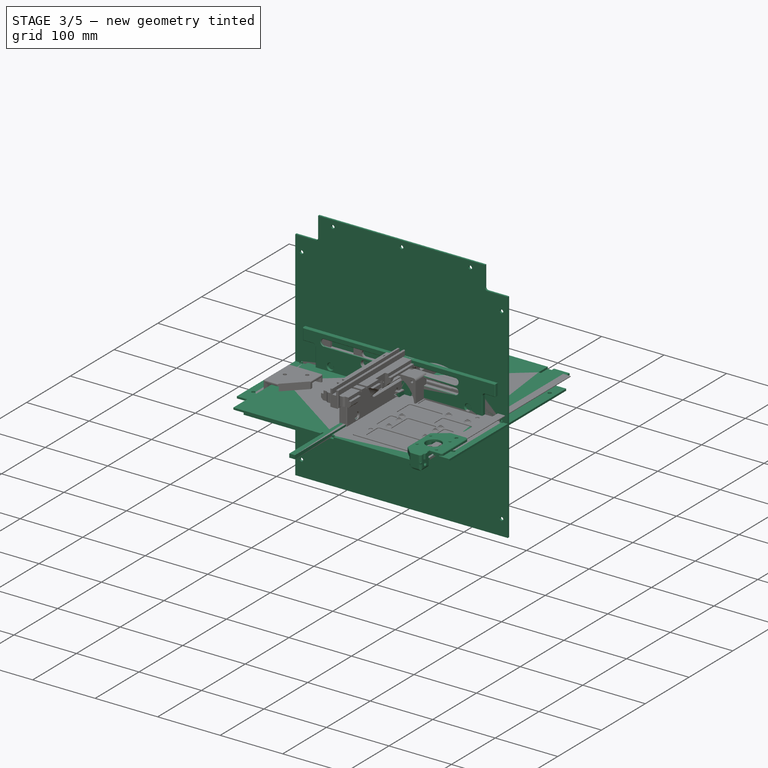
[diagram: stage 3 of 5 — iso view after this stage's code; geometry added in this stage tinted green]
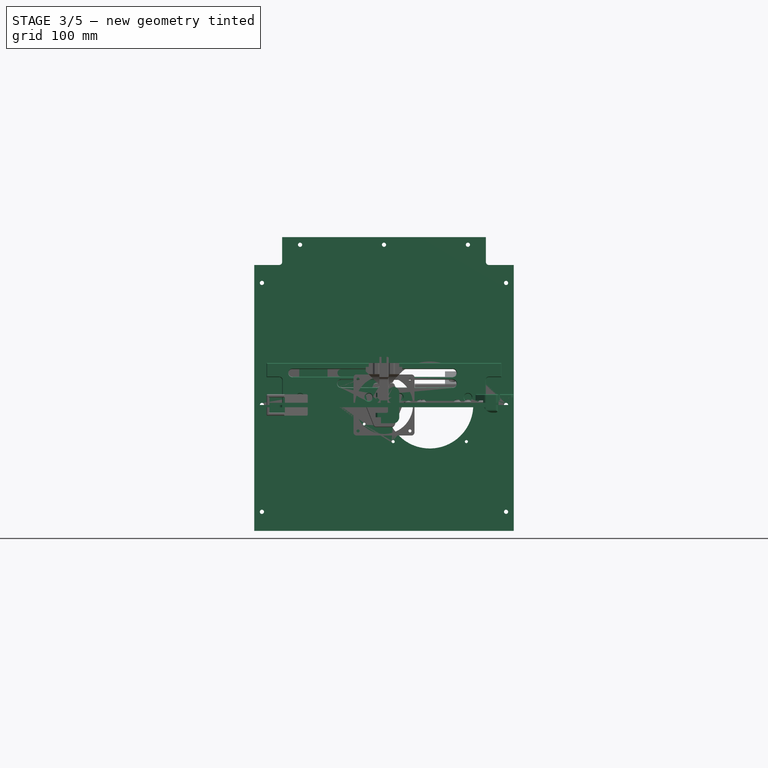
[diagram: stage 3 of 5 — front view after this stage's code; geometry added in this stage tinted green]
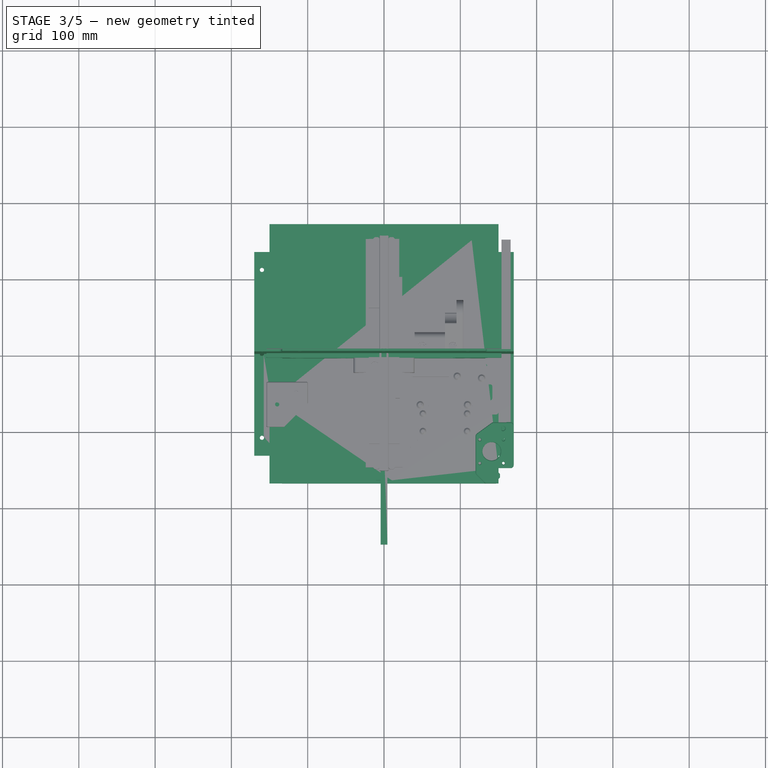
[diagram: stage 3 of 5 — top view after this stage's code; geometry added in this stage tinted green]
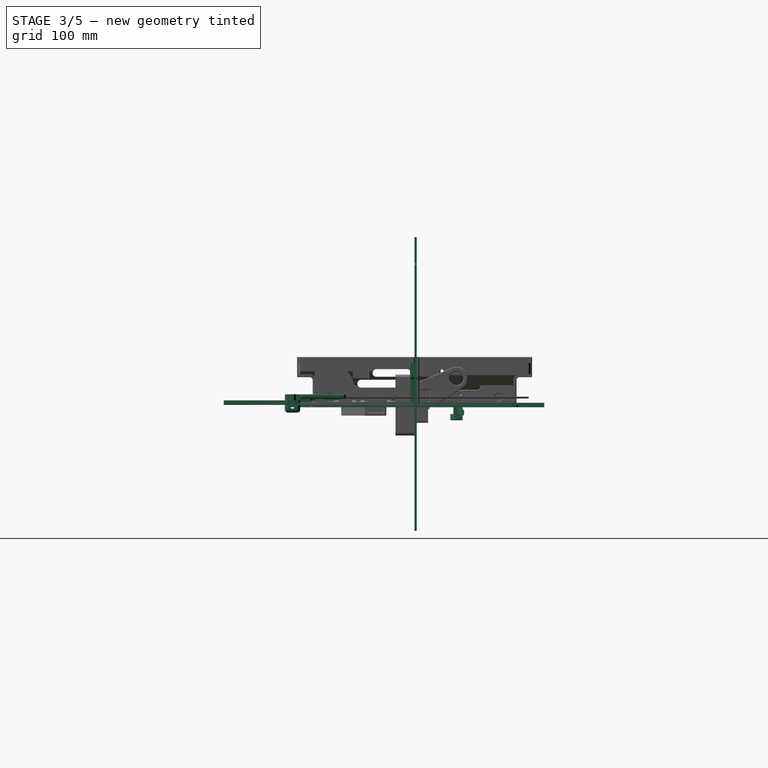
[diagram: stage 3 of 5 — right view after this stage's code; geometry added in this stage tinted green]
FEATURE [App::Link] Link010  label="xy-motor-mount-vslot-left"
  LinkPlacement = pos=(-150,-150,10) rot=(0,0,1;0rad)
  LinkedObject = -> <external xy-gantry/motor-mounts.FCStd>#Body017
  Placement = pos=(-150,-150,10) rot=(0,0,1;0rad)
  expr: .Placement.Base.x = -(Spreadsheet.side_length / 2 - 20)
  expr: .Placement.Base.y = -(Spreadsheet.side_length / 2 - 20)
FEATURE [Part::Mirroring] Part__Mirroring011  label="xy-motor-mount-vslot-right"
  Base = (0,0,0)
  Normal = (1,0,0)
  Source = -> Link010
FEATURE [Sketcher::SketchObject] Sketch343
  ArcFitTolerance = 0
  AttachmentSupport = -> [YZ_Plane225]
  FullyConstrained = true
  MakeInternals = false
  MapMode = 5
  Placement = pos=(0,0,0) rot=(0.57735,0.57735,0.57735;2.0944rad)
  expr: Constraints[37] = Spreadsheet.bed_hole_distance / 2 - 2
  sketch-geometry (14):
    g0: LineSegment StartX=63 StartY=0 StartZ=0 EndX=63 EndY=-5.58284 EndZ=0
    g1: LineSegment StartX=63 StartY=-20 StartZ=0 EndX=47 EndY=-20 EndZ=0
    g2: LineSegment StartX=47 StartY=-20 StartZ=0 EndX=47 EndY=0 EndZ=0
    g3: LineSegment [constr] StartX=63 StartY=-5.3 StartZ=0 EndX=65 EndY=-7.3 EndZ=0
    g4: LineSegment [constr] StartX=65 StartY=-7.3 StartZ=0 EndX=65 EndY=-12.7 EndZ=0
    g5: LineSegment [constr] StartX=65 StartY=-12.7 StartZ=0 EndX=63 EndY=-14.7 EndZ=0
    g6: GeomPoint [constr] X=65 Y=-10 Z=0
    g7: LineSegment StartX=63 StartY=-5.58284 StartZ=0 EndX=65 EndY=-7.58284 EndZ=0
    g8: LineSegment StartX=65 StartY=-7.58284 StartZ=0 EndX=65 EndY=-12.4172 EndZ=0
    g9: LineSegment StartX=65 StartY=-12.4172 StartZ=0 EndX=63 EndY=-14.4172 EndZ=0
    g10: LineSegment [constr] StartX=64 StartY=-6.3 StartZ=0 EndX=63.8586 EndY=-6.44142 EndZ=0
    g11: LineSegment StartX=63 StartY=-14.4172 StartZ=0 EndX=63 EndY=-20 EndZ=0
    g12: LineSegment StartX=63 StartY=0 StartZ=0 EndX=47 EndY=0 EndZ=0
    g13: GeomPoint [constr] X=55 Y=0 Z=0
  constraints (39):
    c: PointOnObject(g0,g-1)
    c: Vertical(g0)
    c: Coincident(g11,g1)
    c: Horizontal(g1)
    c: Vertical(g2)
    c: DistanceY(g11,g0) = 20
    c: PointOnObject(g3,g0)
    c: Coincident(g3,g4)
    c: Vertical(g4)
    c: Coincident(g4,g5)
    c: PointOnObject(g5,g0)
    c: DistanceY(g4,g4) = 5.4
    c: DistanceY(g6) = -10
    c: Symmetric(g4,g3,g6)
    c: DistanceX(g5,g5) = 2
    c: Angle(g5) = -2.35619
    c: Perpendicular(g3,g5)
    c: Coincident(g7,g8)
    c: PointOnObject(g8,g4)
    c: Coincident(g8,g9)
    c: Parallel(g7,g3)
    c: Parallel(g5,g9)
    c: Symmetric(g7,g8,g6)
    c: PointOnObject(g10,g7)
    c: Perpendicular(g3,g10)
    c: Symmetric(g3,g3,g10)
    c: Distance(g10) = 0.2
    c: Coincident(g0,g7)
    c: Coincident(g11,g9)
    c: Vertical(g9,g0)
    c: Vertical(g11)
    c: Horizontal(g12)
    c: Coincident(g2,g12)
    c: Coincident(g12,g0)
    c: PointOnObject(g13,g12)
    c: DistanceX(g2,g13) = 8
    c: DistanceX(g13,g0) = 8
    c: DistanceX(g0) = 63
    c: Coincident(g1,g2)
FEATURE [PartDesign::Pad] Pad083
  Direction = (1,0,0)
  Length = 100
  Length2 = -57
  Placement = pos=(0,0,0) rot=(1,1,1;2.0944rad)
  Profile = -> Sketch343
  ReferenceAxis = -> Sketch343 [N_Axis]
  Reversed = true
  Suppressed = false
  Type = 4
  expr: Length = Spreadsheet.side_length / 2 - 70
  expr: Length2 = -Spreadsheet.bed_hole_distance / 2 + 8
FEATURE [Sketcher::SketchObject] Sketch344
  ArcFitTolerance = 0
  AttachmentSupport = -> [XY_Plane225]
  FullyConstrained = true
  MakeInternals = false
  MapMode = 5
  expr: Constraints[11] = Spreadsheet.bed_hole_distance / 2 + 14
  expr: Constraints[8] = Spreadsheet.bed_hole_distance / 2 - 2
  sketch-geometry (5):
    g0: LineSegment StartX=-72 StartY=63 StartZ=0 EndX=-86 EndY=63 EndZ=0
    g1: LineSegment StartX=-86 StartY=63 StartZ=0 EndX=-86 EndY=65 EndZ=0
    g2: LineSegment StartX=-86 StartY=65 StartZ=0 EndX=-72 EndY=65 EndZ=0
    g3: LineSegment StartX=-72 StartY=65 StartZ=0 EndX=-72 EndY=63 EndZ=0
    g4: GeomPoint [constr] X=-79 Y=63 Z=0
  constraints (13):
    c: Coincident(g0,g1)
    c: Coincident(g1,g2)
    c: Coincident(g2,g3)
    c: Coincident(g3,g0)
    c: Horizontal(g0)
    c: Horizontal(g2)
    c: Vertical(g1)
    c: Vertical(g3)
    c: DistanceY(g0) = 63
    c: DistanceY(g3,g3) = 2
    c: DistanceX(g2,g2) = 14
    c: DistanceX(g4,g-1) = 79
    c: Symmetric(g0,g0,g4)
FEATURE [PartDesign::Pocket] Pocket218
  BaseFeature = -> Pad083
  Direction = (0,0,-1)
  Length = 20
  Length2 = 5
  Placement = pos=(0,0,0) rot=(1,1,1;2.0944rad)
  Profile = -> Sketch344
  ReferenceAxis = -> Sketch344 [N_Axis]
  Refine = true
  Suppressed = false
  Type = 0
FEATURE [Sketcher::SketchObject] Sketch345
  ArcFitTolerance = 0
  AttachmentOffset = pos=(0,0,-10) rot=(0,0,1;0rad)
  AttachmentSupport = -> [XY_Plane225]
  FullyConstrained = true
  MakeInternals = false
  MapMode = 5
  Placement = pos=(0,0,-10) rot=(0,0,1;0rad)
  expr: Constraints[0] = -Spreadsheet.bed_hole_distance / 2 - 14
  expr: Constraints[18] = Spreadsheet.bed_hole_distance / 2 - 2
  sketch-geometry (8):
    g0: GeomPoint [constr] X=-79 Y=63 Z=0
    g1: LineSegment StartX=-79 StartY=63 StartZ=0 EndX=-79 EndY=0 EndZ=0
    g2: LineSegment StartX=-79 StartY=0 StartZ=0 EndX=-74 EndY=0 EndZ=0
    g3: LineSegment StartX=-74 StartY=0 StartZ=0 EndX=-74 EndY=59 EndZ=0
    g4: LineSegment StartX=-74 StartY=59 StartZ=0 EndX=-76.25 EndY=59 EndZ=0
    g5: LineSegment StartX=-76.25 StartY=59 StartZ=0 EndX=-76.25 EndY=63 EndZ=0
    g6: LineSegment StartX=-76.25 StartY=63 StartZ=0 EndX=-79 EndY=63 EndZ=0
    g7: GeomPoint [constr] X=0 Y=63 Z=0
  constraints (21):
    c: DistanceX(g0) = -79
    c: Coincident(g1,g0)
    c: Vertical(g1)
    c: Coincident(g1,g2)
    c: Horizontal(g2)
    c: Coincident(g2,g3)
    c: Vertical(g3)
    c: Coincident(g3,g4)
    c: Horizontal(g4)
    c: Coincident(g4,g5)
    c: Vertical(g5)
    c: Coincident(g5,g6)
    c: Coincident(g6,g1)
    c: Horizontal(g6)
    c: DistanceX(g2,g2) = 5
    c: DistanceX(g6,g6) = 2.75
    c: DistanceY(g5,g5) = 4
    c: PointOnObject(g7,g-2)
    c: DistanceY(g7) = 63
    c: Horizontal(g5,g7)
    c: PointOnObject(g2,g-1)
FEATURE [PartDesign::Groove] Groove015
  Angle = 360
  Angle2 = 60
  Axis = (0,-1,0)
  Base = (-79,63,-10)
  BaseFeature = -> Pocket218
  Placement = pos=(0,0,0) rot=(1,1,1;2.0944rad)
  Profile = -> Sketch345
  ReferenceAxis = -> Sketch345 [Edge1]
  Reversed = true
  Suppressed = false
  Type = 0
FEATURE [Sketcher::SketchObject] Sketch346
  ArcFitTolerance = 0
  AttachmentOffset = pos=(0,0,-17) rot=(0,0,1;0rad)
  AttachmentSupport = -> [XY_Plane225]
  FullyConstrained = true
  MakeInternals = false
  MapMode = 5
  Placement = pos=(0,0,-17) rot=(0,0,1;0rad)
  expr: Constraints[18] = Spreadsheet.bed_hole_distance / 2 - 10
  expr: Constraints[19] = Spreadsheet.bed_hole_distance / 2
  sketch-geometry (7):
    g0: LineSegment StartX=-62.25 StartY=53.4123 StartZ=0 EndX=-62.25 EndY=56.5877 EndZ=0
    g1: LineSegment StartX=-62.25 StartY=56.5877 StartZ=0 EndX=-65 EndY=58.1754 EndZ=0
    g2: LineSegment StartX=-65 StartY=58.1754 StartZ=0 EndX=-67.75 EndY=56.5877 EndZ=0
    g3: LineSegment StartX=-67.75 StartY=56.5877 StartZ=0 EndX=-67.75 EndY=53.4123 EndZ=0
    g4: LineSegment StartX=-67.75 StartY=53.4123 StartZ=0 EndX=-65 EndY=51.8246 EndZ=0
    g5: LineSegment StartX=-65 StartY=51.8246 StartZ=0 EndX=-62.25 EndY=53.4123 EndZ=0
    g6: Circle [constr] CenterX=-65 CenterY=55 CenterZ=0 NormalX=0 NormalY=0 NormalZ=1 AngleXU=0 Radius=3.17543
  constraints (17):
    c: Coincident(g0,g1)
    c: Coincident(g1,g2)
    c: Coincident(g2,g3)
    c: Coincident(g3,g4)
    c: Coincident(g4,g5)
    c: Coincident(g5,g0)
    c: Equal(g0, g1-g5) x5
    c: PointOnObject(g0,g6)
    c: PointOnObject(g1,g6)
    c: PointOnObject(g2,g6)
    c: PointOnObject(g3,g6)
    c: PointOnObject(g4,g6)
    c: PointOnObject(g5,g6)
    c: Vertical(g0)
    c: DistanceY(g6) = 55
    c: DistanceX(g6,g-1) = 65
    c: DistanceX(g2,g0) = 5.5
FEATURE [PartDesign::Pocket] Pocket219
  BaseFeature = -> Groove015
  Direction = (0,0,-1)
  Length = 5
  Length2 = -2
  Placement = pos=(0,0,0) rot=(1,1,1;2.0944rad)
  Profile = -> Sketch346
  ReferenceAxis = -> Sketch346 [N_Axis]
  Suppressed = false
  Type = 1
FEATURE [Sketcher::SketchObject] Sketch347
  ArcFitTolerance = 0
  AttachmentSupport = -> [XY_Plane225]
  FullyConstrained = true
  MakeInternals = false
  MapMode = 5
  expr: Constraints[0] = Spreadsheet.bed_hole_distance / 2 - 10
  expr: Constraints[2] = -Spreadsheet.bed_hole_distance / 2
  sketch-geometry (1):
    g0: Circle CenterX=-65 CenterY=55 CenterZ=0 NormalX=0 NormalY=0 NormalZ=1 AngleXU=0 Radius=1.75
  constraints (3):
    c: DistanceY(g0) = 55
    c: Diameter(g0) = 3.5
    c: DistanceX(g0) = -65
FEATURE [PartDesign::Pocket] Pocket220
  BaseFeature = -> Pocket219
  Direction = (0,0,-1)
  Length = 16.7
  Length2 = 5
  Placement = pos=(0,0,0) rot=(1,1,1;2.0944rad)
  Profile = -> Sketch347
  ReferenceAxis = -> Sketch347 [N_Axis]
  Suppressed = false
  Type = 0
FEATURE [Sketcher::SketchObject] Sketch394
  ArcFitTolerance = 0
  AttachmentSupport = -> [XY_Plane225]
  FullyConstrained = true
  MakeInternals = false
  MapMode = 5
  expr: Constraints[11] = Spreadsheet.bed_hole_distance / 2 - 10
  expr: Constraints[7] = -(Spreadsheet.side_length / 2 - 70)
  expr: Constraints[8] = -Spreadsheet.bed_hole_distance / 2
  sketch-geometry (6):
    g0: LineSegment StartX=-100 StartY=59 StartZ=0 EndX=-100 EndY=47 EndZ=0
    g1: LineSegment StartX=-100 StartY=47 StartZ=0 EndX=-73 EndY=47 EndZ=0
    g2: LineSegment StartX=-73 StartY=47 StartZ=0 EndX=-100 EndY=59 EndZ=0
    g3: GeomPoint [constr] X=-65 Y=55 Z=0
    g4: GeomPoint [constr] X=-100 Y=63 Z=0
    g5: GeomPoint [constr] X=-65 Y=63 Z=0
  constraints (15):
    c: Vertical(g0)
    c: Coincident(g0,g1)
    c: Horizontal(g1)
    c: Coincident(g1,g2)
    c: Coincident(g2,g0)
    c: Vertical(g4,g0)
    c: DistanceY(g0,g4) = 4
    c: DistanceX(g4) = -100
    c: DistanceX(g3) = -65
    c: DistanceY(g1,g3) = 8
    c: DistanceX(g1,g5) = 8
    c: DistanceY(g3) = 55
    c: Vertical(g3,g5)
    c: DistanceY(g3,g4) = 8
    c: Horizontal(g5,g4)
FEATURE [PartDesign::Pocket] Pocket274
  BaseFeature = -> Pocket220
  Direction = (0,0,-1)
  Length = 5
  Length2 = 5
  Midplane = true
  Placement = pos=(0,0,0) rot=(1,1,1;2.0944rad)
  Profile = -> Sketch394
  ReferenceAxis = -> Sketch394 [N_Axis]
  Suppressed = false
  Type = 1
FEATURE [App::Link] Link024  label="z-motion-front-bearing-mid"
  LinkPlacement = pos=(-71,-115,35) rot=(0,1,0;1.5708rad)
  LinkedObject = -> <external standard-stuff.FCStd>#Body
  Placement = pos=(-71,-115,35) rot=(0,1,0;1.5708rad)
  expr: .Placement.Base.x = -Spreadsheet.side_length / 2 + 99
  expr: .Placement.Base.y = -Spreadsheet.side_length / 2 + 55
FEATURE [Sketcher::SketchObject] Sketch405
  ArcFitTolerance = 1e-06
  AttachmentSupport = -> [XY_Plane267]
  FullyConstrained = true
  MakeInternals = false
  MapMode = 5
  expr: Constraints[18] = Spreadsheet.side_length
  expr: Constraints[9] = Spreadsheet.side_length - 40
  sketch-geometry (8):
    g0: LineSegment [constr] StartX=-150 StartY=170 StartZ=0 EndX=-150 EndY=-170 EndZ=0
    g1: LineSegment [constr] StartX=-150 StartY=-170 StartZ=0 EndX=150 EndY=-170 EndZ=0
    g2: LineSegment [constr] StartX=150 StartY=-170 StartZ=0 EndX=150 EndY=170 EndZ=0
    g3: LineSegment [constr] StartX=150 StartY=170 StartZ=0 EndX=-150 EndY=170 EndZ=0
    g4: LineSegment StartX=-150 StartY=170 StartZ=0 EndX=150 EndY=170 EndZ=0
    g5: LineSegment StartX=150 StartY=170 StartZ=0 EndX=150 EndY=-170 EndZ=0
    g6: LineSegment StartX=150 StartY=-170 StartZ=0 EndX=-150 EndY=-170 EndZ=0
    g7: LineSegment StartX=-150 StartY=-170 StartZ=0 EndX=-150 EndY=170 EndZ=0
  constraints (19):
    c: Coincident(g0,g1)
    c: Coincident(g1,g2)
    c: Coincident(g2,g3)
    c: Coincident(g3,g0)
    c: Vertical(g0)
    c: Vertical(g2)
    c: Horizontal(g1)
    c: Horizontal(g3)
    c: Symmetric(g1,g0,g-1)
    c: DistanceX(g3,g3) = 300
    c: Coincident(g7,g0)
    c: Coincident(g7,g4)
    c: Coincident(g5,g2)
    c: Coincident(g5,g4)
    c: Coincident(g7,g0)
    c: Coincident(g7,g6)
    c: Coincident(g6,g1)
    c: Coincident(g6,g5)
    c: DistanceY(g5,g5) = 340
FEATURE [PartDesign::Pad] Pad088
  Direction = (0,0,1)
  Length = 3
  Length2 = 10
  Profile = -> Sketch405
  ReferenceAxis = -> Sketch405 [N_Axis]
  Suppressed = false
  Type = 0
FEATURE [Sketcher::SketchObject] Sketch406
  ArcFitTolerance = 1e-06
  AttachmentSupport = -> [XY_Plane267]
  FullyConstrained = true
  MakeInternals = false
  MapMode = 5
  expr: Constraints[0] = Spreadsheet.side_length / 2
  sketch-geometry (7):
    g0: GeomPoint X=170 Y=170 Z=0
    g1: LineSegment [constr] StartX=170 StartY=0 StartZ=0 EndX=170 EndY=170 EndZ=0
    g2: LineSegment [constr] StartX=170 StartY=170 StartZ=0 EndX=0 EndY=170 EndZ=0
    g3: LineSegment StartX=170 StartY=170 StartZ=0 EndX=150 EndY=170 EndZ=0
    g4: LineSegment StartX=150 StartY=170 StartZ=0 EndX=150 EndY=150 EndZ=0
    g5: LineSegment StartX=150 StartY=150 StartZ=0 EndX=170 EndY=150 EndZ=0
    g6: LineSegment StartX=170 StartY=150 StartZ=0 EndX=170 EndY=170 EndZ=0
  constraints (19):
    c: DistanceX(g0) = 170
    c: PointOnObject(g1,g-1)
    c: Coincident(g1,g0)
    c: Vertical(g1)
    c: Coincident(g1,g2)
    c: PointOnObject(g2,g-2)
    c: Horizontal(g2)
    c: Equal(g2,g1)
    c: Coincident(g3,g0)
    c: PointOnObject(g3,g2)
    c: Coincident(g3,g4)
    c: Vertical(g4)
    c: PointOnObject(g5,g1)
    c: Horizontal(g5)
    c: Coincident(g5,g6)
    c: Coincident(g6,g3)
    c: Equal(g5,g4)
    c: DistanceY(g4,g4) = 20
    c: Coincident(g5,g4)
FEATURE [PartDesign::Pocket] Pocket281
  BaseFeature = -> Pad088
  Direction = (0,0,-1)
  Length = 5
  Length2 = 5
  Midplane = true
  Profile = -> Sketch406
  ReferenceAxis = -> Sketch406 [N_Axis]
  Suppressed = false
  Type = 1
FEATURE [PartDesign::PolarPattern] PolarPattern004
  Angle = 360
  Axis = -> Z_Axis267
  BaseFeature = -> Pocket281
  Mode = 0
  Occurrences = 4
  Offset = 120
  Originals = -> [Pocket281]
  Suppressed = false
  TransformMode = 0
FEATURE [Sketcher::SketchObject] Sketch407
  ArcFitTolerance = 1e-06
  AttachmentSupport = -> [XY_Plane267]
  FullyConstrained = true
  MakeInternals = false
  MapMode = 5
  expr: Constraints[22] = Spreadsheet.side_length / 2
  sketch-geometry (14):
    g0: LineSegment StartX=115 StartY=170 StartZ=0 EndX=115 EndY=149 EndZ=0
    g1: LineSegment StartX=115 StartY=149 StartZ=0 EndX=125 EndY=149 EndZ=0
    g2: LineSegment StartX=125 StartY=149 StartZ=0 EndX=125 EndY=170 EndZ=0
    g3: LineSegment StartX=125 StartY=170 StartZ=0 EndX=115 EndY=170 EndZ=0
    g4: LineSegment StartX=154 StartY=-105 StartZ=0 EndX=154 EndY=-125 EndZ=0
    g5: LineSegment StartX=154 StartY=-125 StartZ=0 EndX=170 EndY=-125 EndZ=0
    g6: LineSegment StartX=170 StartY=-125 StartZ=0 EndX=170 EndY=-105 EndZ=0
    g7: LineSegment StartX=170 StartY=-105 StartZ=0 EndX=154 EndY=-105 EndZ=0
    g8: GeomPoint X=170 Y=-170 Z=0
    g9: GeomPoint X=170 Y=170 Z=0
    g10: LineSegment [constr] StartX=0 StartY=-170 StartZ=0 EndX=170 EndY=-170 EndZ=0
    g11: LineSegment [constr] StartX=170 StartY=-170 StartZ=0 EndX=170 EndY=0 EndZ=0
    g12: GeomPoint [constr] X=120 Y=170 Z=0
    g13: GeomPoint [constr] X=170 Y=-115 Z=0
  constraints (35):
    c: Coincident(g0,g1)
    c: Coincident(g1,g2)
    c: Coincident(g2,g3)
    c: Coincident(g3,g0)
    c: Vertical(g0)
    c: Vertical(g2)
    c: Horizontal(g1)
    c: Horizontal(g3)
    c: Coincident(g4,g5)
    c: Coincident(g5,g6)
    c: Coincident(g6,g7)
    c: Coincident(g7,g4)
    c: Vertical(g4)
    c: Vertical(g6)
    c: Horizontal(g5)
    c: Horizontal(g7)
    c: PointOnObject(g10,g-2)
    c: Coincident(g10,g8)
    c: Coincident(g10,g11)
    c: PointOnObject(g11,g-1)
    c: Vertical(g11)
    c: Horizontal(g10)
    c: DistanceX(g8) = 170
    c: Equal(g11,g10)
    c: Symmetric(g9,g8,g-1)
    c: PointOnObject(g5,g11)
    c: DistanceX(g5,g5) = 16
    c: DistanceX(g3,g3) = 10
    c: Horizontal(g2,g9)
    c: Symmetric(g3,g3,g12)
    c: DistanceX(g12,g9) = 50
    c: DistanceY(g2,g2) = 21
    c: Symmetric(g6,g6,g13)
    c: DistanceY(g8,g13) = 55
    c: DistanceY(g4,g4) = 20
FEATURE [PartDesign::Pocket] Pocket282
  BaseFeature = -> PolarPattern004
  Direction = (0,0,-1)
  Length = 5
  Length2 = 5
  Midplane = true
  Profile = -> Sketch407
  ReferenceAxis = -> Sketch407 [N_Axis]
  Suppressed = false
  Type = 1
FEATURE [PartDesign::Mirrored] Mirrored009
  BaseFeature = -> Pocket282
  MirrorPlane = -> YZ_Plane267
  Originals = -> [Pocket282]
  Suppressed = false
  TransformMode = 0
FEATURE [Sketcher::SketchObject] Sketch424
  ArcFitTolerance = 1e-06
  AttachmentSupport = -> [XZ_Plane277]
  FullyConstrained = true
  MakeInternals = false
  MapMode = 5
  Placement = pos=(0,0,0) rot=(1,0,0;1.5708rad)
  expr: Constraints[11] = Spreadsheet.side_length / 2
  sketch-geometry (5):
    g0: LineSegment StartX=100 StartY=51 StartZ=0 EndX=100 EndY=20 EndZ=0
    g1: LineSegment StartX=100 StartY=20 StartZ=0 EndX=131 EndY=20 EndZ=0
    g2: LineSegment StartX=131 StartY=20 StartZ=0 EndX=131 EndY=51 EndZ=0
    g3: LineSegment StartX=131 StartY=51 StartZ=0 EndX=100 EndY=51 EndZ=0
    g4: GeomPoint X=170 Y=0 Z=0
  constraints (14):
    c: Coincident(g0,g1)
    c: Coincident(g1,g2)
    c: Coincident(g2,g3)
    c: Coincident(g3,g0)
    c: Vertical(g0)
    c: Vertical(g2)
    c: Horizontal(g1)
    c: Horizontal(g3)
    c: DistanceY(g0) = 20
    c: DistanceY(g0) = 51
    c: PointOnObject(g4,g-1)
    c: DistanceX(g4) = 170
    c: DistanceX(g1,g4) = 39
    c: DistanceX(g0,g4) = 70
FEATURE [Sketcher::SketchObject] Sketch425
  ArcFitTolerance = 1e-06
  AttachmentOffset = pos=(0,0,-0.5) rot=(0,0,1;0rad)
  AttachmentSupport = -> [XZ_Plane278]
  FullyConstrained = true
  MakeInternals = false
  MapMode = 5
  Placement = pos=(0,0.5,-1e-16) rot=(1,0,0;1.5708rad)
  expr: Constraints[9] = -Spreadsheet.side_length / 2
  sketch-geometry (5):
    g0: LineSegment StartX=-111 StartY=51 StartZ=0 EndX=-111 EndY=20 EndZ=0
    g1: LineSegment StartX=-111 StartY=20 StartZ=0 EndX=-74 EndY=20 EndZ=0
    g2: LineSegment StartX=-74 StartY=20 StartZ=0 EndX=-74 EndY=51 EndZ=0
    g3: LineSegment StartX=-74 StartY=51 StartZ=0 EndX=-111 EndY=51 EndZ=0
    g4: GeomPoint X=-170 Y=0 Z=0
  constraints (14):
    c: Coincident(g0,g1)
    c: Coincident(g1,g2)
    c: Coincident(g2,g3)
    c: Coincident(g3,g0)
    c: Vertical(g0)
    c: Vertical(g2)
    c: Horizontal(g1)
    c: Horizontal(g3)
    c: PointOnObject(g4,g-1)
    c: DistanceX(g4) = -170
    c: DistanceX(g4,g0) = 59
    c: DistanceX(g4,g1) = 96
    c: DistanceY(g1) = 20
    c: DistanceY(g2) = 51
FEATURE [Sketcher::SketchObject] Sketch426
  ArcFitTolerance = 1e-06
  AttachmentSupport = -> [XZ_Plane280]
  FullyConstrained = true
  MakeInternals = false
  MapMode = 5
  Placement = pos=(0,0,0) rot=(1,0,0;1.5708rad)
  expr: Constraints[10] = Spreadsheet.height
  expr: Constraints[7] = Spreadsheet.side_length
  sketch-geometry (5):
    g0: LineSegment StartX=-170 StartY=220 StartZ=0 EndX=-170 EndY=-165 EndZ=0
    g1: LineSegment StartX=-170 StartY=-165 StartZ=0 EndX=170 EndY=-165 EndZ=0
    g2: LineSegment StartX=170 StartY=-165 StartZ=0 EndX=170 EndY=220 EndZ=0
    g3: LineSegment StartX=170 StartY=220 StartZ=0 EndX=-170 EndY=220 EndZ=0
    g4: GeomPoint X=170 Y=-220 Z=0
  constraints (12):
    c: Coincident(g0,g1)
    c: Coincident(g1,g2)
    c: Coincident(g2,g3)
    c: Coincident(g3,g0)
    c: Vertical(g0)
    c: Vertical(g2)
    c: Horizontal(g1)
    c: DistanceX(g3,g3) = 340
    c: Symmetric(g2,g0,g-2)
    c: Symmetric(g4,g2,g-1)
    c: DistanceY(g4,g2) = 440
    c: DistanceY(g4,g1) = 55
FEATURE [PartDesign::Pad] Pad091
  Direction = (0,-1,2e-16)
  Length = 3
  Length2 = 10
  Placement = pos=(0,0,0) rot=(1,0,0;1.5708rad)
  Profile = -> Sketch426
  ReferenceAxis = -> Sketch426 [N_Axis]
  Reversed = true
  Suppressed = false
  Type = 0
FEATURE [Sketcher::SketchObject] Sketch427
  ArcFitTolerance = 1e-06
  AttachmentSupport = -> [XZ_Plane280]
  FullyConstrained = true
  MakeInternals = false
  MapMode = 5
  Placement = pos=(0,0,0) rot=(1,0,0;1.5708rad)
  expr: Constraints[0] = Spreadsheet.height / 2
  expr: Constraints[1] = Spreadsheet.side_length / 2
  sketch-geometry (11):
    g0: GeomPoint X=170 Y=220 Z=0
    g1: LineSegment StartX=133.5 StartY=187.5 StartZ=0 EndX=133.5 EndY=220 EndZ=0
    g2: LineSegment StartX=133.5 StartY=220 StartZ=0 EndX=170 EndY=220 EndZ=0
    g3: LineSegment StartX=170 StartY=220 StartZ=0 EndX=170 EndY=183.5 EndZ=0
    g4: LineSegment StartX=170 StartY=183.5 StartZ=0 EndX=137.5 EndY=183.5 EndZ=0
    g5: ArcOfCircle CenterX=137.5 CenterY=187.5 CenterZ=0 NormalX=0 NormalY=0 NormalZ=1 AngleXU=0 Radius=4 StartAngle=3.14159 EndAngle=4.71239
    g6: Circle CenterX=0 CenterY=210 CenterZ=0 NormalX=0 NormalY=0 NormalZ=1 AngleXU=0 Radius=2.75
    g7: Circle CenterX=110 CenterY=210 CenterZ=0 NormalX=0 NormalY=0 NormalZ=1 AngleXU=0 Radius=2.75
    g8: Circle CenterX=160 CenterY=160 CenterZ=0 NormalX=0 NormalY=0 NormalZ=1 AngleXU=0 Radius=2.75
    g9: Circle CenterX=160 CenterY=0 CenterZ=0 NormalX=0 NormalY=0 NormalZ=1 AngleXU=0 Radius=2.75
    g10: Circle CenterX=160 CenterY=-140 CenterZ=0 NormalX=0 NormalY=0 NormalZ=1 AngleXU=0 Radius=2.75
  constraints (30):
    c: DistanceY(g0) = 220
    c: DistanceX(g0) = 170
    c: Vertical(g1)
    c: Coincident(g1,g2)
    c: Coincident(g2,g0)
    c: Horizontal(g2)
    c: Coincident(g2,g3)
    c: Vertical(g3)
    c: Coincident(g3,g4)
    c: Tangent(g5,g1) = 1.5708
    c: Tangent(g5,g4) = 1.5708
    c: Horizontal(g4)
    c: DistanceY(g3,g3) = 36.5
    c: Equal(g2,g3)
    c: Radius(g5) = 4
    c: PointOnObject(g6,g-2)
    c: PointOnObject(g9,g-1)
    c: Equal(g7,g8)
    c: Equal(g8,g9)
    c: Equal(g9,g6)
    c: Diameter(g6) = 5.5
    c: Horizontal(g6,g7)
    c: DistanceY(g7,g0) = 10
    c: DistanceX(g7,g0) = 60
    c: DistanceX(g8,g0) = 10
    c: DistanceY(g8,g0) = 60
    c: DistanceY(g10) = -140
    c: Vertical(g10,g9)
    c: Equal(g9,g10)
    c: Vertical(g9,g8)
FEATURE [PartDesign::Pocket] Pocket299
  BaseFeature = -> Pad091
  Direction = (0,1,-2e-16)
  Length = 5
  Length2 = 5
  Placement = pos=(0,0,0) rot=(1,0,0;1.5708rad)
  Profile = -> Sketch427
  ReferenceAxis = -> Sketch427 [N_Axis]
  Suppressed = false
  Type = 1
FEATURE [PartDesign::Mirrored] Mirrored010
  BaseFeature = -> Pocket299
  MirrorPlane = -> YZ_Plane280
  Originals = -> [Pocket299]
  Placement = pos=(0,0,0) rot=(1,0,0;1.5708rad)
  Suppressed = false
  TransformMode = 0
FEATURE [PartDesign::Pad] Pad096
  Direction = (0,-1,2e-16)
  Length = 8
  Length2 = 10
  Placement = pos=(0,0,0) rot=(1,0,0;1.5708rad)
  Profile = -> Sketch438
  ReferenceAxis = -> Sketch438 [N_Axis]
  Suppressed = false
  Type = 0
FEATURE [Sketcher::SketchObject] Sketch439
  ArcFitTolerance = 1e-06
  AttachmentOffset = pos=(0,0,8) rot=(0,0,1;0rad)
  AttachmentSupport = -> [XZ_Plane284]
  FullyConstrained = true
  MakeInternals = false
  MapMode = 5
  Placement = pos=(0,-8,1.8e-15) rot=(1,0,0;1.5708rad)
  sketch-geometry (12):
    g0: LineSegment StartX=-4 StartY=16 StartZ=0 EndX=-4 EndY=24 EndZ=0
    g1: LineSegment StartX=-4 StartY=24 StartZ=0 EndX=12 EndY=24 EndZ=0
    g2: LineSegment StartX=20 StartY=16 StartZ=0 EndX=20 EndY=-16 EndZ=0
    g3: LineSegment StartX=12 StartY=-24 StartZ=0 EndX=-4 EndY=-24 EndZ=0
    g4: LineSegment StartX=-4 StartY=-24 StartZ=0 EndX=-4 EndY=-16 EndZ=0
    g5: LineSegment StartX=-4 StartY=-16 StartZ=0 EndX=10 EndY=-16 EndZ=0
    g6: LineSegment StartX=10 StartY=-16 StartZ=0 EndX=10 EndY=16 EndZ=0
    g7: LineSegment StartX=10 StartY=16 StartZ=0 EndX=-4 EndY=16 EndZ=0
    g8: ArcOfCircle CenterX=12 CenterY=16 CenterZ=0 NormalX=0 NormalY=0 NormalZ=1 AngleXU=0 Radius=8 StartAngle=0 EndAngle=1.5708
    g9: GeomPoint [constr] X=20 Y=24 Z=0
    g10: ArcOfCircle CenterX=12 CenterY=-16 CenterZ=0 NormalX=0 NormalY=0 NormalZ=1 AngleXU=0 Radius=8 StartAngle=4.71239 EndAngle=6.28319
    g11: GeomPoint [constr] X=20 Y=-24 Z=0
  constraints (30):
    c: Vertical(g0)
    c: Coincident(g0,g1)
    c: Horizontal(g1)
    c: Vertical(g2)
    c: Horizontal(g3)
    c: Coincident(g3,g4)
    c: Coincident(g4,g5)
    c: Horizontal(g5)
    c: Coincident(g5,g6)
    c: Vertical(g6)
    c: Coincident(g6,g7)
    c: Coincident(g7,g0)
    c: Symmetric(g4,g0,g-1)
    c: Symmetric(g0,g3,g-1)
    c: DistanceY(g6,g9) = 8
    c: DistanceY(g6,g6) = 32
    c: PointOnObject(g9,g1)
    c: PointOnObject(g9,g2)
    c: Tangent(g1,g8) = 1.5708
    c: Tangent(g2,g8) = 1.5708
    c: PointOnObject(g11,g2)
    c: PointOnObject(g11,g3)
    c: Tangent(g2,g10) = 1.5708
    c: Tangent(g3,g10) = 1.5708
    c: Radius(g8) = 8
    c: Equal(g10,g8)
    c: DistanceX(g0) = -4
    c: DistanceX(g8) = 12
    c: Horizontal(g7)
    c: DistanceX(g6) = 10
FEATURE [PartDesign::Pad] Pad097
  BaseFeature = -> Pad096
  Direction = (0,-1,2e-16)
  Length = 5
  Length2 = 10
  Placement = pos=(0,0,0) rot=(1,0,0;1.5708rad)
  Profile = -> Sketch439
  ReferenceAxis = -> Sketch439 [N_Axis]
  Refine = true
  Reversed = true
  Suppressed = false
  Type = 0
FEATURE [Sketcher::SketchObject] Sketch440
  ArcFitTolerance = 1e-06
  AttachmentSupport = -> [XY_Plane284]
  FullyConstrained = true
  MakeInternals = false
  MapMode = 5
  sketch-geometry (6):
    g0: ArcOfCircle CenterX=-7 CenterY=-4 CenterZ=0 NormalX=0 NormalY=0 NormalZ=1 AngleXU=0 Radius=4 StartAngle=1.57079 EndAngle=3.92699
    g1: LineSegment StartX=-8.65685 StartY=-8 StartZ=0 EndX=-12 EndY=-8 EndZ=0
    g2: LineSegment StartX=-12 StartY=-8 StartZ=0 EndX=-12 EndY=0 EndZ=0
    g3: LineSegment StartX=-12 StartY=0 StartZ=0 EndX=-6.99998 EndY=-3.95386e-11 EndZ=0
    g4: LineSegment StartX=-9.82843 StartY=-6.82843 StartZ=0 EndX=-8.65685 EndY=-8 EndZ=0
    g5: Circle CenterX=-7 CenterY=-4 CenterZ=0 NormalX=0 NormalY=0 NormalZ=1 AngleXU=0 Radius=1.6
  constraints (17):
    c: PointOnObject(g0,g-1)
    c: Coincident(g1,g2)
    c: PointOnObject(g2,g-1)
    c: Vertical(g2)
    c: Coincident(g2,g3)
    c: Coincident(g3,g0)
    c: Tangent(g3,g0)
    c: Diameter(g0) = 8
    c: Horizontal(g1)
    c: DistanceX(g0) = -7
    c: DistanceX(g3,g3) = 5
    c: Coincident(g4,g1)
    c: Tangent(g4,g0) = -1.5708
    c: Tangent(g1,g0)
    c: Angle(g4) = -0.785398
    c: Coincident(g5,g0)
    c: Diameter(g5) = 3.2
FEATURE [PartDesign::Pocket] Pocket308
  BaseFeature = -> Pad097
  Direction = (0,0,-1)
  Length = 5
  Length2 = 5
  Midplane = true
  Placement = pos=(0,0,0) rot=(1,0,0;1.5708rad)
  Profile = -> Sketch440
  ReferenceAxis = -> Sketch440 [N_Axis]
  Suppressed = false
  Type = 1
FEATURE [Sketcher::SketchObject] Sketch453
  ArcFitTolerance = 1e-06
  AttachmentSupport = -> [XY_Plane267]
  FullyConstrained = true
  MakeInternals = false
  MapMode = 5
  expr: Constraints[9] = -Spreadsheet.side_length / 2
  sketch-geometry (4):
    g0: LineSegment StartX=-10.2 StartY=-165.8 StartZ=0 EndX=-10.2 EndY=-170 EndZ=0
    g1: LineSegment StartX=-10.2 StartY=-170 StartZ=0 EndX=10.2 EndY=-170 EndZ=0
    g2: LineSegment StartX=10.2 StartY=-170 StartZ=0 EndX=10.2 EndY=-165.8 EndZ=0
    g3: LineSegment StartX=10.2 StartY=-165.8 StartZ=0 EndX=-10.2 EndY=-165.8 EndZ=0
  constraints (11):
    c: Coincident(g0,g1)
    c: Coincident(g1,g2)
    c: Coincident(g2,g3)
    c: Coincident(g3,g0)
    c: Vertical(g0)
    c: Vertical(g2)
    c: Horizontal(g1)
    c: Symmetric(g2,g0,g-2)
    c: DistanceX(g3,g3) = 20.4
    c: DistanceY(g1) = -170
    c: DistanceY(g2,g2) = 4.2
FEATURE [PartDesign::Pocket] Pocket319
  BaseFeature = -> Mirrored009
  Direction = (0,0,-1)
  Length = 5
  Length2 = 5
  Midplane = true
  Profile = -> Sketch453
  ReferenceAxis = -> Sketch453 [N_Axis]
  Suppressed = false
  Type = 1
FEATURE [PartDesign::FeatureBase] Clone005
  BaseFeature = -> Body134
  Suppressed = false
FEATURE [PartDesign::FeatureBase] Clone006
  BaseFeature = -> Part__Mirroring070
  Suppressed = false
FEATURE [PartDesign::Pocket] Pocket293
  BaseFeature = -> Clone006
  Direction = (0,1,-2e-16)
  Length = 5
  Length2 = 5
  Profile = -> Sketch420
  ReferenceAxis = -> Sketch420 [N_Axis]
  Suppressed = false
  Type = 1
FEATURE [PartDesign::Pocket] Pocket311
  BaseFeature = -> Pocket293
  Direction = (0,1,-2e-16)
  Length = 5
  Length2 = 5
  Profile = -> Sketch444
  ReferenceAxis = -> Sketch444 [N_Axis]
  Refine = true
  Suppressed = false
  Type = 1
FEATURE [PartDesign::Pocket] Pocket312
  BaseFeature = -> Clone005
  Direction = (0,1,-2e-16)
  Length = 5
  Length2 = 5
  Profile = -> Sketch445
  ReferenceAxis = -> Sketch445 [N_Axis]
  Refine = true
  Suppressed = false
  Type = 1
FEATURE [PartDesign::Pocket] Pocket313
  BaseFeature = -> Pocket311
  Direction = (0,1,-2e-16)
  Length = 5
  Length2 = 5
  Profile = -> Sketch446
  ReferenceAxis = -> Sketch446 [N_Axis]
  Suppressed = false
  Type = 1
FEATURE [PartDesign::Pocket] Pocket314
  BaseFeature = -> Pocket313
  Direction = (0,1,-2e-16)
  Length = 5
  Length2 = 5
  Profile = -> Sketch447
  ReferenceAxis = -> Sketch447 [N_Axis]
  Reversed = true
  Suppressed = false
  Type = 1
FEATURE [PartDesign::Pocket] Pocket315
  BaseFeature = -> Pocket312
  Direction = (0,1,-2e-16)
  Length = 5
  Length2 = 5
  Profile = -> Sketch448
  ReferenceAxis = -> Sketch448 [N_Axis]
  Suppressed = false
  Type = 1
FEATURE [PartDesign::Pocket] Pocket316
  BaseFeature = -> Pocket315
  Direction = (0,1,-2e-16)
  Length = 5
  Length2 = 5
  Profile = -> Sketch449
  ReferenceAxis = -> Sketch449 [N_Axis]
  Reversed = true
  Suppressed = false
  Type = 1
FEATURE [PartDesign::Pocket] Pocket324
  BaseFeature = -> Pocket316
  Direction = (0,1,-2e-16)
  Length = 5
  Length2 = 5
  Midplane = true
  Profile = -> Sketch460
  ReferenceAxis = -> Sketch460 [N_Axis]
  Suppressed = false
  Type = 1
FEATURE [PartDesign::Chamfer] Chamfer012
  Angle = 45
  Base = -> Pocket324 [Face10]
  BaseFeature = -> Pocket324
  ChamferType = 0
  FlipDirection = false
  Size = 0.75
  Size2 = 1
  SupportTransform = false
  Suppressed = false
  UseAllEdges = false
FEATURE [PartDesign::Body] Body139  label="skirt-front-right"
  AllowCompound = false
  Group = -> [Clone005,Sketch445,Pocket312,Sketch448,Sketch449,Pocket315,Pocket316,Sketch460,Pocket324,Chamfer012]
  Origin = -> Origin276
  Placement = pos=(0,-170,0) rot=(0,0,1;0rad)
  Tip = -> Chamfer012
  expr: .Placement.Base.y = -Spreadsheet.side_length / 2
FEATURE [PartDesign::Pocket] Pocket325
  BaseFeature = -> Pocket314
  Direction = (0,1,-2e-16)
  Length = 5
  Length2 = 5
  Midplane = true
  Profile = -> Sketch461
  ReferenceAxis = -> Sketch461 [N_Axis]
  Suppressed = false
  Type = 1
FEATURE [App::Link] Link025  label="chamber-heater"
  LinkPlacement = pos=(-50,170,0) rot=(0,-0.707107,0.707107;3.14159rad)
  LinkedObject = -> <external chamber-heater.FCStd>#Part002
  Placement = pos=(-50,170,0) rot=(0,-0.707107,0.707107;3.14159rad)
  expr: .Placement.Base.y = Spreadsheet.side_length / 2
FEATURE [Sketcher::SketchObject] Sketch466
  ArcFitTolerance = 1e-06
  AttachmentSupport = -> [XZ_Plane280]
  FullyConstrained = true
  MakeInternals = false
  MapMode = 5
  Placement = pos=(0,0,0) rot=(1,0,0;1.5708rad)
  sketch-geometry (10):
    g0: GeomPoint X=-50 Y=0 Z=0
    g1: Circle CenterX=-26 CenterY=-25 CenterZ=0 NormalX=0 NormalY=0 NormalZ=1 AngleXU=0 Radius=1.75
    g2: Circle CenterX=-80 CenterY=15 CenterZ=0 NormalX=0 NormalY=0 NormalZ=1 AngleXU=0 Radius=1.75
    g3: Circle CenterX=60 CenterY=0 CenterZ=0 NormalX=0 NormalY=0 NormalZ=1 AngleXU=0 Radius=57
    g4: Circle CenterX=12 CenterY=48 CenterZ=0 NormalX=0 NormalY=0 NormalZ=1 AngleXU=0 Radius=2
    g5: Circle CenterX=108 CenterY=48 CenterZ=0 NormalX=0 NormalY=0 NormalZ=1 AngleXU=0 Radius=2
    g6: Circle CenterX=108 CenterY=-48 CenterZ=0 NormalX=0 NormalY=0 NormalZ=1 AngleXU=0 Radius=2
    g7: Circle CenterX=12 CenterY=-48 CenterZ=0 NormalX=0 NormalY=0 NormalZ=1 AngleXU=0 Radius=2
    g8: LineSegment [constr] StartX=12 StartY=48 StartZ=0 EndX=12 EndY=-48 EndZ=0
    g9: LineSegment [constr] StartX=12 StartY=48 StartZ=0 EndX=108 EndY=48 EndZ=0
  constraints (25):
    c: PointOnObject(g0,g-1)
    c: DistanceX(g0) = -50
    c: Equal(g1,g2)
    c: DistanceX(g0,g1) = 24
    c: Diameter(g2) = 3.5
    c: DistanceY(g1) = -25
    c: DistanceY(g2) = 15
    c: DistanceX(g2) = -80
    c: Symmetric(g7,g5,g3)
    c: Symmetric(g4,g6,g3)
    c: Horizontal(g4,g5)
    c: Vertical(g7,g4)
    c: Coincident(g8,g4)
    c: Coincident(g8,g7)
    c: Coincident(g9,g4)
    c: Coincident(g9,g5)
    c: Equal(g9,g8)
    c: Equal(g4,g5)
    c: Equal(g4,g6)
    c: Equal(g4,g7)
    c: Diameter(g4) = 4
    c: Diameter(g3) = 114
    c: DistanceX(g9,g9) = 96
    c: PointOnObject(g3,g-1)
    c: DistanceX(g3) = 60
FEATURE [PartDesign::Pocket] Pocket330
  BaseFeature = -> Mirrored010
  Direction = (0,1,-2e-16)
  Length = 5
  Length2 = 5
  Midplane = true
  Placement = pos=(0,0,0) rot=(1,0,0;1.5708rad)
  Profile = -> Sketch466
  ReferenceAxis = -> Sketch466 [N_Axis]
  Suppressed = false
  Type = 1
FEATURE [PartDesign::Body] Body143  label="panel-back"
  AllowCompound = false
  Group = -> [Sketch426,Pad091,Sketch427,Pocket299,Mirrored010,Sketch466,Pocket330]
  Origin = -> Origin281
  Placement = pos=(0,170,0) rot=(0,0,1;0rad)
  Tip = -> Pocket330
  expr: .Placement.Base.y = Spreadsheet.side_length / 2
FEATURE [Sketcher::SketchObject] Sketch467
  ArcFitTolerance = 1e-06
  AttachmentSupport = -> [XZ_Plane292]
  FullyConstrained = true
  MakeInternals = false
  MapMode = 5
  Placement = pos=(0,0,0) rot=(1,0,0;1.5708rad)
  sketch-geometry (4):
    g0: LineSegment StartX=-4.5 StartY=0 StartZ=0 EndX=4.5 EndY=0 EndZ=0
    g1: LineSegment StartX=4.5 StartY=0 StartZ=0 EndX=4.5 EndY=6 EndZ=0
    g2: LineSegment StartX=4.5 StartY=6 StartZ=0 EndX=-4.5 EndY=6 EndZ=0
    g3: LineSegment StartX=-4.5 StartY=6 StartZ=0 EndX=-4.5 EndY=0 EndZ=0
  constraints (11):
    c: Coincident(g0,g1)
    c: Coincident(g1,g2)
    c: Coincident(g2,g3)
    c: Coincident(g3,g0)
    c: Horizontal(g0)
    c: Vertical(g1)
    c: Vertical(g3)
    c: PointOnObject(g0,g-1)
    c: DistanceY(g1,g1) = 6
    c: Symmetric(g1,g2,g-2)
    c: DistanceX(g2,g2) = 9
FEATURE [PartDesign::Pad] Pad101
  Direction = (0,-1,2e-16)
  Length = 250
  Length2 = 10
  Placement = pos=(0,0,0) rot=(1,0,0;1.5708rad)
  Profile = -> Sketch467
  ReferenceAxis = -> Sketch467 [N_Axis]
  Suppressed = false
  Type = 0
FEATURE [PartDesign::Body] Body153  label="rail-mgn9-250-drv"
  AllowCompound = false
  Group = -> [Sketch467,Pad101]
  Origin = -> Origin293
  Tip = -> Pad101
FEATURE [Sketcher::SketchObject] Sketch468
  ArcFitTolerance = 1e-06
  AttachmentSupport = -> [XZ_Plane293]
  FullyConstrained = true
  MakeInternals = false
  MapMode = 5
  Placement = pos=(0,0,0) rot=(1,0,0;1.5708rad)
  sketch-geometry (8):
    g0: LineSegment StartX=-10 StartY=10 StartZ=0 EndX=-10 EndY=2 EndZ=0
    g1: LineSegment StartX=-10 StartY=2 StartZ=0 EndX=-5 EndY=2 EndZ=0
    g2: LineSegment StartX=10 StartY=2 StartZ=0 EndX=10 EndY=10 EndZ=0
    g3: LineSegment StartX=10 StartY=10 StartZ=0 EndX=-10 EndY=10 EndZ=0
    g4: LineSegment StartX=-5 StartY=2 StartZ=0 EndX=-5 EndY=6.5 EndZ=0
    g5: LineSegment StartX=-5 StartY=6.5 StartZ=0 EndX=5 EndY=6.5 EndZ=0
    g6: LineSegment StartX=5 StartY=6.5 StartZ=0 EndX=5 EndY=2 EndZ=0
    g7: LineSegment StartX=5 StartY=2 StartZ=0 EndX=10 EndY=2 EndZ=0
  constraints (23):
    c: Coincident(g0,g1)
    c: Coincident(g7,g2)
    c: Coincident(g2,g3)
    c: Coincident(g3,g0)
    c: Vertical(g0)
    c: Vertical(g2)
    c: Horizontal(g1)
    c: Symmetric(g2,g0,g-2)
    c: DistanceX(g3,g3) = 20
    c: DistanceY(g2) = 10
    c: DistanceY(g7) = 2
    c: Vertical(g4)
    c: Coincident(g4,g5)
    c: Coincident(g5,g6)
    c: PointOnObject(g6,g7)
    c: Vertical(g6)
    c: Coincident(g1,g4)
    c: PointOnObject(g7,g6)
    c: Symmetric(g5,g4,g-2)
    c: DistanceX(g5,g5) = 10
    c: DistanceY(g5) = 6.5
    c: Horizontal(g7)
    c: Horizontal(g1,g6)
FEATURE [PartDesign::Pad] Pad102
  Direction = (0,-1,2e-16)
  Length = 39
  Length2 = 10
  Midplane = true
  Placement = pos=(0,0,0) rot=(1,0,0;1.5708rad)
  Profile = -> Sketch468
  ReferenceAxis = -> Sketch468 [N_Axis]
  Suppressed = false
  Type = 0
FEATURE [PartDesign::Body] Body154  label="carriage-mgn9h-drv"
  AllowCompound = false
  Group = -> [Sketch468,Pad102]
  Origin = -> Origin294
  Tip = -> Pad102
FEATURE [PartDesign::FeatureBase] Clone014
  BaseFeature = -> Body153
  Suppressed = false
FEATURE [PartDesign::Body] Body155  label="rail-y-left"
  AllowCompound = false
  Group = -> [Clone014]
  Origin = -> Origin295
  Placement = pos=(-159.5,150,11) rot=(0,0,1;0rad)
  Tip = -> Clone014
  expr: .Placement.Base.x = -Spreadsheet.side_length / 2 + 10.5
  expr: .Placement.Base.y = Spreadsheet.side_length / 2 - 20
FEATURE [PartDesign::FeatureBase] Clone015
  BaseFeature = -> Body153
  Suppressed = false
FEATURE [PartDesign::Body] Body156  label="rail-y-right"
  AllowCompound = false
  Group = -> [Clone015]
  Origin = -> Origin296
  Placement = pos=(159.5,150,11) rot=(0,0,1;0rad)
  Tip = -> Clone015
  expr: .Placement.Base.x = Spreadsheet.side_length / 2 - 10.5
  expr: .Placement.Base.y = Spreadsheet.side_length / 2 - 20
FEATURE [PartDesign::FeatureBase] Clone016
  BaseFeature = -> Body153
  Suppressed = false
FEATURE [PartDesign::Body] Body157  label="rail-x"
  AllowCompound = false
  Group = -> [Clone016]
  Origin = -> Origin297
  Placement = pos=(-125,0,11) rot=(0,0,1;1.5708rad)
  Tip = -> Clone016
FEATURE [Sketcher::SketchObject] Sketch469
  ArcFitTolerance = 1e-06
  AttachmentOffset = pos=(0,0,-12) rot=(0,0,1;0rad)
  AttachmentSupport = -> [XY_Plane225]
  FullyConstrained = true
  MakeInternals = false
  MapMode = 5
  Placement = pos=(0,0,-12) rot=(0,0,1;0rad)
  expr: Constraints[11] = -Spreadsheet.bed_hole_distance / 2
  expr: Constraints[12] = Spreadsheet.bed_hole_distance / 2 - 10
  sketch-geometry (11):
    g0: ArcOfCircle [constr] CenterX=-65 CenterY=55 CenterZ=0 NormalX=0 NormalY=0 NormalZ=1 AngleXU=0 Radius=8.5 StartAngle=1.5708 EndAngle=3.14159
    g1: LineSegment [constr] StartX=-65 StartY=63.5 StartZ=0 EndX=-57 EndY=63.5 EndZ=0
    g2: LineSegment StartX=-57 StartY=63.5 StartZ=0 EndX=-57 EndY=47 EndZ=0
    g3: LineSegment StartX=-57 StartY=47 StartZ=0 EndX=-95 EndY=47 EndZ=0
    g4: LineSegment StartX=-95 StartY=47 StartZ=0 EndX=-95 EndY=51 EndZ=0
    g5: LineSegment StartX=-95 StartY=51 StartZ=0 EndX=-73.5 EndY=51 EndZ=0
    g6: LineSegment StartX=-73.5 StartY=51 StartZ=0 EndX=-73.5 EndY=55 EndZ=0
    g7: LineSegment StartX=-69 StartY=65.5 StartZ=0 EndX=-57 EndY=65.5 EndZ=0
    g8: LineSegment StartX=-57 StartY=65.5 StartZ=0 EndX=-57 EndY=63.5 EndZ=0
    g9: ArcOfCircle CenterX=-65 CenterY=55 CenterZ=0 NormalX=0 NormalY=0 NormalZ=1 AngleXU=0 Radius=8.5 StartAngle=2.06075 EndAngle=3.14159
    g10: LineSegment StartX=-69 StartY=62.5 StartZ=0 EndX=-69 EndY=65.5 EndZ=0
  constraints (31):
    c: Tangent(g0,g1) = 1.5708
    c: Coincident(g1,g2)
    c: Vertical(g2)
    c: Coincident(g2,g3)
    c: Horizontal(g3)
    c: Coincident(g3,g4)
    c: Vertical(g4)
    c: Coincident(g4,g5)
    c: Horizontal(g5)
    c: Coincident(g5,g6)
    c: Vertical(g6)
    c: DistanceX(g0) = -65
    c: DistanceY(g0) = 55
    c: Tangent(g6,g0) = 1.5708
    c: Horizontal(g1)
    c: DistanceY(g0,g0) = 8.5
    c: DistanceX(g4,g0) = 30
    c: DistanceY(g4,g4) = 4
    c: DistanceX(g0,g1) = 8
    c: DistanceY(g2,g0) = 8
    c: Horizontal(g7)
    c: Coincident(g7,g8)
    c: Coincident(g8,g1)
    c: Vertical(g8)
    c: DistanceY(g0,g7) = 2
    c: Coincident(g9,g0)
    c: Coincident(g9,g0)
    c: Coincident(g10,g9)
    c: Coincident(g10,g7)
    c: Vertical(g10)
    c: DistanceX(g9,g0) = 4
FEATURE [PartDesign::Pocket] Pocket331
  BaseFeature = -> Pocket274
  Direction = (0,0,-1)
  Length = 5
  Length2 = 5
  Placement = pos=(0,0,0) rot=(1,1,1;2.0944rad)
  Profile = -> Sketch469
  ReferenceAxis = -> Sketch469 [N_Axis]
  Reversed = true
  Suppressed = false
  Type = 1
FEATURE [PartDesign::Fillet] Fillet007
  Base = -> Pocket331 [Edge49,Edge64]
  BaseFeature = -> Pocket331
  Placement = pos=(0,0,0) rot=(1,1,1;2.0944rad)
  Radius = 8
  SupportTransform = false
  Suppressed = false
  UseAllEdges = false
FEATURE [App::DocumentObjectGroup] Group018  label="bed-mounts"
  Group = -> [Body130,Part__Mirroring064,Part__Mirroring065]
FEATURE [App::Part] Part005  label="bed-assembly"
  Group = -> [Part006,Body127,Group019,Body094,Part__Mirroring066,Part__Mirroring068,Part__Mirroring067,Body091,Part__Mirroring064,Body130,Part__Mirroring065,Group018]
  Origin = -> Origin260
  Placement = pos=(0,-4,0) rot=(0,0,1;0rad)
FEATURE [Part::Feature] Part__Feature553  label="endstop-pcb002"
  shape: bbox 20 x 20 x 2 mm, 12 faces (baked)
FEATURE [Part::Feature] Part__Feature554  label="endstop-switch-body002"
  Placement = pos=(0,0,2) rot=(0,0,1;0rad)
  shape: bbox 14 x 6 x 6 mm, 6 faces (baked)
FEATURE [Part::Feature] Part__Feature555  label="endstop-connector002"
  Placement = pos=(0,0,2) rot=(0,0,1;0rad)
  shape: bbox 10 x 5 x 4 mm, 14 faces (baked)
FEATURE [Part::Feature] Part__Feature556  label="switch-arm002"
  Placement = pos=(0,0,2) rot=(0,0,1;0rad)
  shape: bbox 12 x 3.727 x 3 mm, 6 faces (baked)
FEATURE [App::Part] endstop002  label="endstop-z"
  Group = -> [Part__Feature553,Part__Feature554,Part__Feature555,Part__Feature556]
  Origin = -> Origin312
  Placement = pos=(-155,-70,43) rot=(0.57735,0.57735,0.57735;2.0944rad)
  expr: .Placement.Base.x = -(Spreadsheet.side_length / 2 - 15)
  expr: .Placement.Base.y = -70
FEATURE [Sketcher::SketchObject] Sketch470
  ArcFitTolerance = 1e-06
  AttachmentOffset = pos=(0,0,2) rot=(0,0,1;0rad)
  AttachmentSupport = -> [YZ_Plane312]
  FullyConstrained = true
  MakeInternals = false
  MapMode = 5
  Placement = pos=(2,0,0) rot=(0.57735,0.57735,0.57735;2.0944rad)
  expr: Constraints[7] = -Spreadsheet.side_length / 2
  sketch-geometry (9):
    g0: LineSegment StartX=-131 StartY=43 StartZ=0 EndX=-131 EndY=0 EndZ=0
    g1: LineSegment StartX=-131 StartY=0 StartZ=0 EndX=-79 EndY=0 EndZ=0
    g2: LineSegment StartX=-79 StartY=0 StartZ=0 EndX=-79 EndY=23 EndZ=0
    g3: LineSegment StartX=-107 StartY=51 StartZ=0 EndX=-123 EndY=51 EndZ=0
    g4: GeomPoint X=-170 Y=0 Z=0
    g5: ArcOfCircle CenterX=-107 CenterY=23 CenterZ=0 NormalX=0 NormalY=0 NormalZ=1 AngleXU=0 Radius=28 StartAngle=-9e-16 EndAngle=1.5708
    g6: GeomPoint [constr] X=-79 Y=51 Z=0
    g7: ArcOfCircle CenterX=-123 CenterY=43 CenterZ=0 NormalX=0 NormalY=0 NormalZ=1 AngleXU=0 Radius=8 StartAngle=1.5708 EndAngle=3.14159
    g8: GeomPoint [constr] X=-131 Y=51 Z=0
  constraints (22):
    c: Coincident(g0,g1)
    c: Coincident(g1,g2)
    c: Vertical(g0)
    c: Vertical(g2)
    c: Horizontal(g1)
    c: Horizontal(g3)
    c: PointOnObject(g4,g-1)
    c: DistanceX(g4) = -170
    c: DistanceX(g4,g0) = 39
    c: DistanceX(g4,g1) = 91
    c: DistanceY(g8) = 51
    c: PointOnObject(g1,g-1)
    c: PointOnObject(g6,g2)
    c: PointOnObject(g6,g3)
    c: Tangent(g2,g5) = -1.5708
    c: Tangent(g3,g5) = -1.5708
    c: PointOnObject(g8,g0)
    c: PointOnObject(g8,g3)
    c: Tangent(g0,g7) = -1.5708
    c: Tangent(g3,g7) = -1.5708
    c: Radius(g5) = 28
    c: Radius(g7) = 8
FEATURE [Sketcher::SketchObject] Sketch471
  ArcFitTolerance = 1e-06
  AttachmentSupport = -> [XY_Plane312]
  FullyConstrained = true
  MakeInternals = false
  MapMode = 5
  expr: Constraints[1] = -Spreadsheet.side_length / 2
  sketch-geometry (18):
    g0: GeomPoint X=0 Y=-170 Z=0
    g1: LineSegment StartX=5 StartY=-107 StartZ=0 EndX=5 EndY=-111 EndZ=0
    g2: LineSegment StartX=5 StartY=-111 StartZ=0 EndX=20 EndY=-111 EndZ=0
    g3: LineSegment StartX=20 StartY=-111 StartZ=0 EndX=20 EndY=-107 EndZ=0
    g4: LineSegment StartX=20 StartY=-107 StartZ=0 EndX=5 EndY=-107 EndZ=0
    g5: LineSegment StartX=5 StartY=-119 StartZ=0 EndX=5 EndY=-123 EndZ=0
    g6: LineSegment StartX=5 StartY=-123 StartZ=0 EndX=20 EndY=-123 EndZ=0
    g7: LineSegment StartX=20 StartY=-123 StartZ=0 EndX=20 EndY=-119 EndZ=0
    g8: LineSegment StartX=20 StartY=-119 StartZ=0 EndX=5 EndY=-119 EndZ=0
    g9: GeomPoint X=10 Y=-115 Z=0
    g10: GeomPoint X=20 Y=-121 Z=0
    g11: GeomPoint X=20 Y=-109 Z=0
    g12: GeomPoint X=20 Y=-115 Z=0
    g13: LineSegment StartX=15 StartY=-59 StartZ=0 EndX=15 EndY=-81 EndZ=0
    g14: LineSegment StartX=15 StartY=-81 StartZ=0 EndX=27 EndY=-81 EndZ=0
    g15: LineSegment StartX=27 StartY=-81 StartZ=0 EndX=27 EndY=-59 EndZ=0
    g16: LineSegment StartX=27 StartY=-59 StartZ=0 EndX=15 EndY=-59 EndZ=0
    g17: GeomPoint X=15 Y=-70 Z=0
  constraints (44):
    c: PointOnObject(g0,g-2)
    c: DistanceY(g0) = -170
    c: Coincident(g1,g2)
    c: Coincident(g2,g3)
    c: Coincident(g3,g4)
    c: Coincident(g4,g1)
    c: Vertical(g1)
    c: Vertical(g3)
    c: Horizontal(g2)
    c: Horizontal(g4)
    c: Coincident(g5,g6)
    c: Coincident(g6,g7)
    c: Coincident(g7,g8)
    c: Coincident(g8,g5)
    c: Vertical(g5)
    c: Vertical(g7)
    c: Horizontal(g6)
    c: Horizontal(g8)
    c: Vertical(g7,g2)
    c: Vertical(g5,g1)
    c: Equal(g7,g3)
    c: DistanceX(g9,g0) = -10
    c: DistanceY(g0,g9) = 55
    c: Symmetric(g7,g7,g10)
    c: Symmetric(g3,g3,g11)
    c: DistanceY(g10,g11) = 12
    c: DistanceY(g1,g1) = 4
    c: Symmetric(g2,g7,g12)
    c: Horizontal(g12,g9)
    c: DistanceX(g6) = 20
    c: DistanceX(g5,g9) = 5
    c: Coincident(g13,g14)
    c: Coincident(g14,g15)
    c: Coincident(g15,g16)
    c: Coincident(g16,g13)
    c: Vertical(g13)
    c: Vertical(g15)
    c: Horizontal(g14)
    c: Horizontal(g16)
    c: Symmetric(g13,g13,g17)
    c: DistanceX(g17) = 15
    c: DistanceY(g17) = -70
    c: DistanceY(g13,g13) = 22
    c: DistanceX(g16,g16) = 12
FEATURE [Sketcher::SketchObject] Sketch472
  ArcFitTolerance = 1e-06
  AttachmentOffset = pos=(0,0,15) rot=(0,0,1;0rad)
  AttachmentSupport = -> [YZ_Plane312]
  FullyConstrained = true
  MakeInternals = false
  MapMode = 5
  Placement = pos=(15,0,0) rot=(0.57735,0.57735,0.57735;2.0944rad)
  sketch-geometry (11):
    g0: Circle CenterX=-77.5 CenterY=43 CenterZ=0 NormalX=0 NormalY=0 NormalZ=1 AngleXU=0 Radius=1
    g1: Circle CenterX=-62.5 CenterY=43 CenterZ=0 NormalX=0 NormalY=0 NormalZ=1 AngleXU=0 Radius=1
    g2: GeomPoint X=-70 Y=43 Z=0
    g3: ArcOfCircle [constr] CenterX=-77.5 CenterY=44 CenterZ=0 NormalX=0 NormalY=0 NormalZ=1 AngleXU=0 Radius=1 StartAngle=-3.6e-15 EndAngle=3.14159
    g4: ArcOfCircle [constr] CenterX=-77.5 CenterY=42 CenterZ=0 NormalX=0 NormalY=0 NormalZ=1 AngleXU=0 Radius=1 StartAngle=3.14159 EndAngle=6.28319
    g5: LineSegment [constr] StartX=-76.5 StartY=44 StartZ=0 EndX=-76.5 EndY=42 EndZ=0
    g6: LineSegment [constr] StartX=-78.5 StartY=44 StartZ=0 EndX=-78.5 EndY=42 EndZ=0
    g7: ArcOfCircle [constr] CenterX=-62.5 CenterY=44 CenterZ=0 NormalX=0 NormalY=0 NormalZ=1 AngleXU=0 Radius=1 StartAngle=-9e-16 EndAngle=3.14159
    g8: ArcOfCircle [constr] CenterX=-62.5 CenterY=42 CenterZ=0 NormalX=0 NormalY=0 NormalZ=1 AngleXU=0 Radius=1 StartAngle=3.14159 EndAngle=6.28319
    g9: LineSegment [constr] StartX=-61.5 StartY=44 StartZ=0 EndX=-61.5 EndY=42 EndZ=0
    g10: LineSegment [constr] StartX=-63.5 StartY=44 StartZ=0 EndX=-63.5 EndY=42 EndZ=0
  constraints (25):
    c: Symmetric(g1,g0,g2)
    c: Equal(g0,g1)
    c: Diameter(g0) = 2
    c: Horizontal(g0,g1)
    c: DistanceY(g2) = 43
    c: DistanceX(g2) = -70
    c: DistanceX(g0,g1) = 15
    c: Tangent(g3,g5) = 1.5708
    c: Tangent(g3,g6) = -1.5708
    c: Tangent(g4,g5) = 1.5708
    c: Tangent(g4,g6) = -1.5708
    c: Equal(g3,g4)
    c: Tangent(g7,g9) = 1.5708
    c: Tangent(g7,g10) = -1.5708
    c: Tangent(g8,g9) = 1.5708
    c: Tangent(g8,g10) = -1.5708
    c: Equal(g7,g8)
    c: Vertical(g9)
    c: Vertical(g5)
    c: Equal(g3,g7)
    c: Equal(g7,g1)
    c: Symmetric(g7,g8,g1)
    c: Symmetric(g3,g4,g0)
    c: Equal(g5,g10)
    c: DistanceY(g10,g10) = 2
FEATURE [Sketcher::SketchObject] Sketch473
  ArcFitTolerance = 1e-06
  AttachmentSupport = -> [XY_Plane267]
  FullyConstrained = true
  MakeInternals = false
  MapMode = 5
  expr: Constraints[12] = -Spreadsheet.side_length / 2
  sketch-geometry (6):
    g0: LineSegment StartX=-150 StartY=-60 StartZ=0 EndX=-150 EndY=-80 EndZ=0
    g1: LineSegment StartX=-150 StartY=-80 StartZ=0 EndX=-145 EndY=-80 EndZ=0
    g2: LineSegment StartX=-145 StartY=-80 StartZ=0 EndX=-145 EndY=-60 EndZ=0
    g3: LineSegment StartX=-145 StartY=-60 StartZ=0 EndX=-150 EndY=-60 EndZ=0
    g4: GeomPoint X=-150 Y=-70 Z=0
    g5: GeomPoint X=-170 Y=0 Z=0
  constraints (15):
    c: Coincident(g0,g1)
    c: Coincident(g1,g2)
    c: Coincident(g2,g3)
    c: Coincident(g3,g0)
    c: Vertical(g0)
    c: Vertical(g2)
    c: Horizontal(g1)
    c: Horizontal(g3)
    c: Symmetric(g0,g0,g4)
    c: DistanceY(g4) = -70
    c: DistanceY(g2,g2) = 20
    c: PointOnObject(g5,g-1)
    c: DistanceX(g5) = -170
    c: DistanceX(g5,g0) = 20
    c: DistanceX(g3,g3) = 5
FEATURE [PartDesign::Pocket] Pocket335
  BaseFeature = -> Pocket319
  Direction = (0,0,-1)
  Length = 5
  Length2 = 5
  Midplane = true
  Profile = -> Sketch473
  ReferenceAxis = -> Sketch473 [N_Axis]
  Suppressed = false
  Type = 1
FEATURE [PartDesign::Body] Body132  label="panel-bottom-lid"
  AllowCompound = false
  Group = -> [Sketch405,Pad088,Sketch406,Pocket281,PolarPattern004,Sketch407,Pocket282,Mirrored009,Sketch453,Pocket319,Sketch473,Pocket335]
  Origin = -> Origin268
  Placement = pos=(0,0,-170) rot=(0,0,1;0rad)
  Tip = -> Pocket335
  expr: .Placement.Base.z = -Spreadsheet.height / 2 + 50
FEATURE [Sketcher::SketchObject] Sketch474
  ArcFitTolerance = 1e-06
  AttachmentSupport = -> [YZ_Plane312]
  FullyConstrained = true
  MakeInternals = false
  MapMode = 5
  Placement = pos=(0,0,0) rot=(0.57735,0.57735,0.57735;2.0944rad)
  sketch-geometry (8):
    g0: ArcOfCircle CenterX=-50 CenterY=42 CenterZ=0 NormalX=0 NormalY=0 NormalZ=1 AngleXU=0 Radius=5 StartAngle=1.5708 EndAngle=4.71239
    g1: ArcOfCircle CenterX=-10 CenterY=42 CenterZ=0 NormalX=0 NormalY=0 NormalZ=1 AngleXU=0 Radius=5 StartAngle=4.71239 EndAngle=7.85398
    g2: LineSegment StartX=-50 StartY=47 StartZ=0 EndX=-10 EndY=47 EndZ=0
    g3: LineSegment StartX=-50 StartY=37 StartZ=0 EndX=-10 EndY=37 EndZ=0
    g4: ArcOfCircle CenterX=-70 CenterY=28 CenterZ=0 NormalX=0 NormalY=0 NormalZ=1 AngleXU=0 Radius=5 StartAngle=1.5708 EndAngle=4.71239
    g5: ArcOfCircle CenterX=-10 CenterY=28 CenterZ=0 NormalX=0 NormalY=0 NormalZ=1 AngleXU=0 Radius=5 StartAngle=4.71239 EndAngle=7.85398
    g6: LineSegment StartX=-70 StartY=33 StartZ=0 EndX=-10 EndY=33 EndZ=0
    g7: LineSegment StartX=-70 StartY=23 StartZ=0 EndX=-10 EndY=23 EndZ=0
  constraints (20):
    c: Tangent(g0,g2) = 1.5708
    c: Tangent(g0,g3) = -1.5708
    c: Tangent(g1,g2) = 1.5708
    c: Tangent(g1,g3) = -1.5708
    c: Equal(g0,g1)
    c: Tangent(g4,g6) = 1.5708
    c: Tangent(g4,g7) = -1.5708
    c: Tangent(g5,g6) = 1.5708
    c: Tangent(g5,g7) = -1.5708
    c: Equal(g4,g5)
    c: Horizontal(g6)
    c: Horizontal(g3)
    c: Equal(g5,g1)
    c: Vertical(g1,g5)
    c: DistanceX(g5) = -10
    c: Diameter(g5) = 10
    c: DistanceY(g5) = 28
    c: DistanceY(g1) = 42
    c: DistanceX(g0) = -50
    c: DistanceX(g4) = -70
FEATURE [Sketcher::SketchObject] Sketch475
  ArcFitTolerance = 1e-06
  AttachmentSupport = -> [XY_Plane313]
  FullyConstrained = true
  MakeInternals = false
  MapMode = 5
  expr: Constraints[10] = Spreadsheet.side_length
  sketch-geometry (8):
    g0: LineSegment StartX=-170 StartY=170 StartZ=0 EndX=-170 EndY=-170 EndZ=0
    g1: LineSegment StartX=-170 StartY=-170 StartZ=0 EndX=170 EndY=-170 EndZ=0
    g2: LineSegment StartX=170 StartY=-170 StartZ=0 EndX=170 EndY=170 EndZ=0
    g3: LineSegment StartX=170 StartY=170 StartZ=0 EndX=-170 EndY=170 EndZ=0
    g4: Circle CenterX=37 CenterY=-15 CenterZ=0 NormalX=0 NormalY=0 NormalZ=1 AngleXU=0 Radius=1.6
    g5: Circle CenterX=132 CenterY=-15 CenterZ=0 NormalX=0 NormalY=0 NormalZ=1 AngleXU=0 Radius=1.6
    g6: Circle CenterX=132 CenterY=-123 CenterZ=0 NormalX=0 NormalY=0 NormalZ=1 AngleXU=0 Radius=1.6
    g7: Circle CenterX=37 CenterY=-123 CenterZ=0 NormalX=0 NormalY=0 NormalZ=1 AngleXU=0 Radius=1.6
  constraints (23):
    c: Coincident(g0,g1)
    c: Coincident(g1,g2)
    c: Coincident(g2,g3)
    c: Coincident(g3,g0)
    c: Vertical(g0)
    c: Vertical(g2)
    c: Horizontal(g1)
    c: Horizontal(g3)
    c: Symmetric(g1,g0,g-1)
    c: Equal(g3,g0)
    c: DistanceX(g3,g3) = 340
    c: Vertical(g7,g4)
    c: Horizontal(g4,g5)
    c: Vertical(g5,g6)
    c: Horizontal(g6,g7)
    c: DistanceX(g4) = 37
    c: DistanceY(g7) = -123
    c: DistanceX(g6) = 132
    c: DistanceY(g4) = -15
    c: Equal(g4,g5)
    c: Equal(g5,g6)
    c: Equal(g6,g7)
    c: Diameter(g4) = 3.2
FEATURE [PartDesign::Pad] Pad103
  Direction = (0,0,1)
  Length = 3
  Length2 = 10
  Profile = -> Sketch475
  ReferenceAxis = -> Sketch475 [N_Axis]
  Reversed = true
  Suppressed = false
  Type = 0
FEATURE [Sketcher::SketchObject] Sketch476
  ArcFitTolerance = 1e-06
  AttachmentSupport = -> [XY_Plane313]
  FullyConstrained = true
  MakeInternals = false
  MapMode = 5
  expr: Constraints[8] = Spreadsheet.side_length / 2
  expr: Constraints[9] = Spreadsheet.side_length / 2
  sketch-geometry (9):
    g0: LineSegment StartX=170 StartY=170 StartZ=0 EndX=133.5 EndY=170 EndZ=0
    g1: LineSegment StartX=133.5 StartY=170 StartZ=0 EndX=133.5 EndY=137.5 EndZ=0
    g2: LineSegment StartX=137.5 StartY=133.5 StartZ=0 EndX=170 EndY=133.5 EndZ=0
    g3: LineSegment StartX=170 StartY=133.5 StartZ=0 EndX=170 EndY=170 EndZ=0
    g4: ArcOfCircle CenterX=137.5 CenterY=137.5 CenterZ=0 NormalX=0 NormalY=0 NormalZ=1 AngleXU=0 Radius=4 StartAngle=3.14159 EndAngle=4.71239
    g5: GeomPoint [constr] X=133.5 Y=133.5 Z=0
    g6: Circle CenterX=160 CenterY=110 CenterZ=0 NormalX=0 NormalY=0 NormalZ=1 AngleXU=0 Radius=2.75
    g7: Circle CenterX=110 CenterY=160 CenterZ=0 NormalX=0 NormalY=0 NormalZ=1 AngleXU=0 Radius=2.75
    g8: Circle CenterX=160 CenterY=0 CenterZ=0 NormalX=0 NormalY=0 NormalZ=1 AngleXU=0 Radius=2.75
  constraints (25):
    c: Coincident(g0,g1)
    c: Coincident(g2,g3)
    c: Coincident(g3,g0)
    c: Horizontal(g0)
    c: Horizontal(g2)
    c: Vertical(g1)
    c: Vertical(g3)
    c: Equal(g0,g3)
    c: DistanceX(g0) = 170
    c: DistanceY(g0) = 170
    c: PointOnObject(g5,g1)
    c: PointOnObject(g5,g2)
    c: Tangent(g1,g4) = -1.5708
    c: Tangent(g2,g4) = -1.5708
    c: Diameter(g4) = 8
    c: DistanceY(g2,g0) = 36.5
    c: Equal(g7,g6)
    c: DistanceY(g7,g0) = 10
    c: DistanceX(g6,g0) = 10
    c: Diameter(g6) = 5.5
    c: DistanceY(g6,g0) = 60
    c: DistanceX(g7,g0) = 60
    c: PointOnObject(g8,g-1)
    c: Equal(g8,g6)
    c: Vertical(g8,g6)
FEATURE [PartDesign::Pocket] Pocket337
  BaseFeature = -> Pad103
  Direction = (0,0,-1)
  Length = 5
  Length2 = 5
  Profile = -> Sketch476
  ReferenceAxis = -> Sketch476 [N_Axis]
  Suppressed = false
  Type = 1
FEATURE [PartDesign::PolarPattern] PolarPattern006
  Angle = 360
  Axis = -> Z_Axis313
  BaseFeature = -> Pocket337
  Mode = 0
  Occurrences = 4
  Offset = 120
  Originals = -> [Pocket337]
  Suppressed = false
  TransformMode = 0
FEATURE [PartDesign::Body] Body162  label="panel-bottom-floor"
  AllowCompound = false
  Group = -> [Sketch475,Pad103,Sketch476,Pocket337,PolarPattern006]
  Origin = -> Origin314
  Placement = pos=(0,0,-220) rot=(0,0,1;0rad)
  Tip = -> PolarPattern006
  expr: .Placement.Base.z = -Spreadsheet.height / 2
FEATURE [App::Link] Link026  label="y-carriage-rail-left"
  LinkPlacement = pos=(-160,0,0) rot=(0,0,1;0rad)
  LinkedObject = -> <external xy-gantry/y-carriages.FCStd>#Part002
  Placement = pos=(-160,0,0) rot=(0,0,1;0rad)
  expr: .Placement.Base.x = -Spreadsheet.side_length / 2 + 10
FEATURE [App::Link] Link027  label="y-carriage-rail-right"
  LinkPlacement = pos=(160,0,0) rot=(0,0,1;0rad)
  LinkedObject = -> <external xy-gantry/y-carriages.FCStd>#Part003
  Placement = pos=(160,0,0) rot=(0,0,1;0rad)
  expr: .Placement.Base.x = Spreadsheet.side_length / 2 - 10
FEATURE [App::DocumentObjectGroup] Group029  label="y-stuff-rail"
  Group = -> [Link026,Link027,Body157]
FEATURE [App::DocumentObjectGroup] Group031  label="vslot-stuff"
  Group = -> [Part__Mirroring011]
FEATURE [App::Link] Link028  label="xy-motor-mount-rail-left"
  LinkPlacement = pos=(-150,-150,10) rot=(0,0,1;0rad)
  LinkedObject = -> <external xy-gantry/motor-mounts.FCStd>#Body018
  Placement = pos=(-150,-150,10) rot=(0,0,1;0rad)
  expr: .Placement.Base.x = -Spreadsheet.side_length / 2 + 20
  expr: .Placement.Base.y = -Spreadsheet.side_length / 2 + 20
FEATURE [Part::Mirroring] Part__Mirroring084  label="xy-motor-mount-rail-right"
  Base = (0,0,0)
  Normal = (1,0,0)
  Source = -> Link028
FEATURE [Sketcher::SketchObject] Sketch256
  ArcFitTolerance = 0
  AttachmentOffset = pos=(0,0,14) rot=(0,0,1;0rad)
  AttachmentSupport = -> [XY_Plane256]
  FullyConstrained = true
  MakeInternals = false
  MapMode = 5
  Placement = pos=(0,0,14) rot=(0,0,1;0rad)
  sketch-geometry (3):
    g0: ArcOfCircle CenterX=22 CenterY=-22 CenterZ=0 NormalX=0 NormalY=0 NormalZ=1 AngleXU=0 Radius=8 StartAngle=4.71239 EndAngle=6.28319
    g1: LineSegment StartX=22 StartY=-30 StartZ=0 EndX=30 EndY=-30 EndZ=0
    g2: LineSegment StartX=30 StartY=-30 StartZ=0 EndX=30 EndY=-22 EndZ=0
  constraints (8):
    c: Coincident(g1,g2)
    c: Vertical(g2)
    c: Horizontal(g1)
    c: Tangent(g2,g0) = -1.5708
    c: Tangent(g0,g1) = -1.5708
    c: DistanceX(g1) = 30
    c: DistanceY(g1) = -30
    c: Radius(g0) = 8
FEATURE [PartDesign::Pocket] Pocket152
  BaseFeature = -> Pad060
  Direction = (0,0,-1)
  Length = 5
  Length2 = 5
  Midplane = true
  Profile = -> Sketch256
  ReferenceAxis = -> Sketch256 [N_Axis]
  Suppressed = false
  Type = 1
FEATURE [Sketcher::SketchObject] Sketch257
  ArcFitTolerance = 0
  AttachmentOffset = pos=(0,0,0) rot=(0,-1,0;0.785398rad)
  AttachmentSupport = -> [XZ_Plane256]
  FullyConstrained = true
  MakeInternals = false
  MapMode = 5
  Placement = pos=(0,0,0) rot=(0.862856,-0.357407,-0.357407;1.71777rad)
  sketch-geometry (7):
    g0: LineSegment [constr] StartX=-7.07107 StartY=5 StartZ=0 EndX=7.07107 EndY=5 EndZ=0
    g1: LineSegment [constr] StartX=7.07107 StartY=5 StartZ=0 EndX=7.07107 EndY=-5 EndZ=0
    g2: LineSegment [constr] StartX=7.07107 StartY=-5 StartZ=0 EndX=-7.07107 EndY=-5 EndZ=0
    g3: LineSegment [constr] StartX=-7.07107 StartY=-5 StartZ=0 EndX=-7.07107 EndY=5 EndZ=0
    g4: LineSegment [constr] StartX=-7.07107 StartY=5 StartZ=0 EndX=0 EndY=12.0711 EndZ=0
    g5: LineSegment [constr] StartX=0 StartY=12.0711 StartZ=0 EndX=7.07107 EndY=5 EndZ=0
    g6: LineSegment StartX=-7.07107 StartY=-5 StartZ=0 EndX=7.07107 EndY=5 EndZ=0
  constraints (18):
    c: Coincident(g0,g1)
    c: Coincident(g1,g2)
    c: Coincident(g2,g3)
    c: Coincident(g3,g0)
    c: Horizontal(g0)
    c: Horizontal(g2)
    c: Vertical(g1)
    c: Vertical(g3)
    c: Symmetric(g1,g0,g-1)
    c: Coincident(g4,g0)
    c: PointOnObject(g4,g-2)
    c: Coincident(g5,g4)
    c: Coincident(g5,g0)
    c: Perpendicular(g5,g4)
    c: Distance(g4) = 10
    c: DistanceY(g1,g1) = 10
    c: Coincident(g6,g2)
    c: Coincident(g6,g0)
FEATURE [PartDesign::Line] DatumLine
  AttacherType = Attacher::AttachEngineLine
  AttachmentSupport = -> [Sketch257]
  Length = 20
  MapMode = 29
  Placement = pos=(0,0,0) rot=(-0.345235,0.833472,0.431437;3.49527rad)
  ResizeMode = 0
FEATURE [PartDesign::PolarPattern] PolarPattern006
  Angle = 360
  Axis = -> DatumLine
  BaseFeature = -> Pocket152
  Mode = 0
  Occurrences = 3
  Offset = 120
  Originals = -> [Pocket152]
  Suppressed = false
  TransformMode = 0
FEATURE [Sketcher::SketchObject] Sketch351
  ArcFitTolerance = 0
  AttachmentSupport = -> [XY_Plane018]
  FullyConstrained = true
  MakeInternals = false
  MapMode = 5
  sketch-geometry (31):
    g0: LineSegment StartX=0 StartY=-16 StartZ=0 EndX=0 EndY=0 EndZ=0
    g1: LineSegment StartX=-16 StartY=0 StartZ=0 EndX=0 EndY=0 EndZ=0
    g2: LineSegment StartX=-20 StartY=4 StartZ=0 EndX=-20 EndY=56 EndZ=0
    g3: LineSegment StartX=30 StartY=41.6 StartZ=0 EndX=30 EndY=-6 EndZ=0
    g4: LineSegment StartX=16 StartY=-20 StartZ=0 EndX=4 EndY=-20 EndZ=0
    g5: GeomPoint [constr] X=9 Y=22 Z=0
    g6: Circle CenterX=9 CenterY=22 CenterZ=0 NormalX=0 NormalY=0 NormalZ=1 AngleXU=0 Radius=12
    g7: LineSegment StartX=27.8824 StartY=45.1294 StartZ=0 EndX=0.882353 EndY=59.5294 EndZ=0
    g8: LineSegment StartX=-16 StartY=60 StartZ=0 EndX=-1 EndY=60 EndZ=0
    g9: LineSegment StartX=18.8284 StartY=-18.8284 StartZ=0 EndX=28.8284 EndY=-8.82843 EndZ=0
    g10: ArcOfCircle CenterX=-16 CenterY=56 CenterZ=0 NormalX=0 NormalY=0 NormalZ=1 AngleXU=0 Radius=4 StartAngle=1.5708 EndAngle=3.14159
    g11: GeomPoint [constr] X=-20 Y=60 Z=0
    g12: ArcOfCircle CenterX=-1 CenterY=56 CenterZ=0 NormalX=0 NormalY=0 NormalZ=1 AngleXU=0 Radius=4 StartAngle=1.08084 EndAngle=1.5708
    g13: GeomPoint [constr] X=0 Y=60 Z=0
    g14: GeomPoint [constr] X=0 Y=44 Z=0
    g15: ArcOfCircle CenterX=26 CenterY=41.6 CenterZ=0 NormalX=0 NormalY=0 NormalZ=1 AngleXU=0 Radius=4 StartAngle=-9e-16 EndAngle=1.08084
    g16: GeomPoint [constr] X=30 Y=44 Z=0
    g17: ArcOfCircle CenterX=26 CenterY=-6 CenterZ=0 NormalX=0 NormalY=0 NormalZ=1 AngleXU=0 Radius=4 StartAngle=5.49779 EndAngle=6.28319
    g18: GeomPoint [constr] X=30 Y=-7.65685 Z=0
    g19: ArcOfCircle CenterX=16 CenterY=-16 CenterZ=0 NormalX=0 NormalY=0 NormalZ=1 AngleXU=0 Radius=4 StartAngle=4.71239 EndAngle=5.49779
    g20: GeomPoint [constr] X=17.6569 Y=-20 Z=0
    g21: ArcOfCircle CenterX=4 CenterY=-16 CenterZ=0 NormalX=0 NormalY=0 NormalZ=1 AngleXU=0 Radius=4 StartAngle=3.14159 EndAngle=4.71239
    g22: GeomPoint [constr] X=0 Y=-20 Z=0
    g23: ArcOfCircle CenterX=-16 CenterY=4 CenterZ=0 NormalX=0 NormalY=0 NormalZ=1 AngleXU=0 Radius=4 StartAngle=3.14159 EndAngle=4.71239
    g24: GeomPoint [constr] X=-20 Y=0 Z=0
    g25: Circle [constr] CenterX=24.5 CenterY=37.5 CenterZ=0 NormalX=0 NormalY=0 NormalZ=1 AngleXU=0 Radius=1.75
    g26: Circle [constr] CenterX=24.5 CenterY=6.5 CenterZ=0 NormalX=0 NormalY=0 NormalZ=1 AngleXU=0 Radius=1.75
    g27: Circle [constr] CenterX=-6.5 CenterY=6.5 CenterZ=0 NormalX=0 NormalY=0 NormalZ=1 AngleXU=0 Radius=1.75
    g28: Circle [constr] CenterX=-6.5 CenterY=37.5 CenterZ=0 NormalX=0 NormalY=0 NormalZ=1 AngleXU=0 Radius=1.75
    g29: LineSegment [constr] StartX=24.5 StartY=37.5 StartZ=0 EndX=24.5 EndY=6.5 EndZ=0
    g30: LineSegment [constr] StartX=24.5 StartY=37.5 StartZ=0 EndX=-6.5 EndY=37.5 EndZ=0
  constraints (73):
    c: Vertical(g0)
    c: Horizontal(g1)
    c: Vertical(g2)
    c: Vertical(g3)
    c: Horizontal(g4)
    c: Coincident(g0,g1)
    c: Coincident(g0,g-1)
    c: DistanceX(g24,g0) = 20
    c: DistanceY(g22,g0) = 20
    c: DistanceY(g0,g5) = 22
    c: DistanceX(g0,g5) = 9
    c: Coincident(g6,g5)
    c: Diameter(g6) = 24
    c: PointOnObject(g13,g-2)
    c: DistanceY(g6,g16) = 22
    c: Horizontal(g8)
    c: DistanceY(g14,g13) = 16
    c: Angle(g9) = 0.785398
    c: PointOnObject(g11,g2)
    c: PointOnObject(g11,g8)
    c: Tangent(g2,g10) = 1.5708
    c: Tangent(g8,g10) = 1.5708
    c: PointOnObject(g13,g7)
    c: PointOnObject(g13,g8)
    c: Tangent(g7,g12) = -1.5708
    c: Tangent(g8,g12) = 1.5708
    c: PointOnObject(g16,g3)
    c: Tangent(g3,g15) = 1.5708
    c: PointOnObject(g18,g3)
    c: PointOnObject(g18,g9)
    c: Tangent(g3,g17) = 1.5708
    c: Tangent(g9,g17) = -1.5708
    c: PointOnObject(g20,g4)
    c: PointOnObject(g20,g9)
    c: Tangent(g4,g19) = 1.5708
    c: Tangent(g9,g19) = -1.5708
    c: PointOnObject(g22,g0)
    c: PointOnObject(g22,g4)
    c: Tangent(g0,g21) = 1.5708
    c: Tangent(g4,g21) = 1.5708
    c: PointOnObject(g24,g1)
    c: PointOnObject(g24,g2)
    c: Tangent(g1,g23) = -1.5708
    c: Tangent(g2,g23) = 1.5708
    c: Equal(g10,g12)
    c: Equal(g15,g17)
    c: Equal(g17,g19)
    c: Equal(g19,g21)
    c: Equal(g21,g23)
    c: Radius(g23) = 4
    c: Horizontal(g14,g16)
    c: Vertical(g14,g13)
    c: Tangent(g7,g15) = -1.5708
    c: PointOnObject(g16,g7)
    c: Equal(g10,g15)
    c: DistanceX(g4) = 16
    c: DistanceY(g0,g11) = 60
    c: Vertical(g28,g27)
    c: Vertical(g26,g25)
    c: Horizontal(g25,g28)
    c: Horizontal(g27,g26)
    c: Symmetric(g26,g28,g6)
    c: Equal(g25,g28)
    c: Equal(g28,g27)
    c: Equal(g27,g26)
    c: Diameter(g26) = 3.5
    c: Coincident(g29,g25)
    c: Coincident(g29,g26)
    c: Coincident(g30,g25)
    c: Coincident(g30,g28)
    c: Equal(g30,g29)
    c: DistanceX(g30,g30) = 31
    c: DistanceX(g16) = 30
FEATURE [PartDesign::Pad] Pad086
  Direction = (0,0,1)
  Length = 8
  Length2 = 10
  Midplane = true
  Profile = -> Sketch351
  ReferenceAxis = -> Sketch351 [N_Axis]
  Suppressed = false
  Type = 0
FEATURE [Sketcher::SketchObject] Sketch352
  ArcFitTolerance = 0
  AttachmentSupport = -> [XY_Plane018]
  FullyConstrained = true
  MakeInternals = false
  MapMode = 5
  sketch-geometry (8):
    g0: LineSegment StartX=0 StartY=0 StartZ=0 EndX=0 EndY=22 EndZ=0
    g1: LineSegment StartX=18 StartY=22 StartZ=0 EndX=18 EndY=64 EndZ=0
    g2: LineSegment StartX=18 StartY=64 StartZ=0 EndX=-20 EndY=64 EndZ=0
    g3: LineSegment StartX=-20 StartY=64 StartZ=0 EndX=-20 EndY=0 EndZ=0
    g4: LineSegment StartX=-20 StartY=0 StartZ=0 EndX=0 EndY=0 EndZ=0
    g5: LineSegment StartX=0 StartY=22 StartZ=0 EndX=18 EndY=22 EndZ=0
    g6: GeomPoint [constr] X=9 Y=22 Z=0
    g7: GeomPoint [constr] X=24.5 Y=22 Z=0
  constraints (20):
    c: Coincident(g0,g-1)
    c: PointOnObject(g0,g-2)
    c: Vertical(g1)
    c: Coincident(g2,g1)
    c: Horizontal(g2)
    c: Coincident(g3,g2)
    c: PointOnObject(g3,g-1)
    c: Vertical(g3)
    c: Coincident(g4,g3)
    c: Coincident(g4,g0)
    c: DistanceX(g4,g4) = 20
    c: Coincident(g5,g0)
    c: Coincident(g5,g1)
    c: Horizontal(g5)
    c: DistanceY(g0) = 22
    c: DistanceY(g3,g3) = 64
    c: Symmetric(g1,g0,g6)
    c: Horizontal(g7,g1)
    c: DistanceX(g6,g7) = 15.5
    c: DistanceX(g0,g6) = 9
FEATURE [PartDesign::Pocket] Pocket222
  BaseFeature = -> Pad086
  Direction = (0,0,-1)
  Length = 5
  Length2 = 5
  Profile = -> Sketch352
  ReferenceAxis = -> Sketch352 [N_Axis]
  Suppressed = false
  Type = 1
FEATURE [Sketcher::SketchObject] Sketch353
  ArcFitTolerance = 0
  AttachmentOffset = pos=(0,0,-4) rot=(0,0,1;0rad)
  AttachmentSupport = -> [XY_Plane018]
  FullyConstrained = true
  MakeInternals = false
  MapMode = 5
  Placement = pos=(0,0,-4) rot=(0,0,1;0rad)
  sketch-geometry (12):
    g0: LineSegment StartX=4 StartY=0 StartZ=0 EndX=16 EndY=0 EndZ=0
    g1: LineSegment StartX=20 StartY=-4 StartZ=0 EndX=20 EndY=-16 EndZ=0
    g2: LineSegment StartX=16 StartY=-20 StartZ=0 EndX=4 EndY=-20 EndZ=0
    g3: LineSegment StartX=0 StartY=-16 StartZ=0 EndX=0 EndY=-4 EndZ=0
    g4: ArcOfCircle CenterX=16 CenterY=-16 CenterZ=0 NormalX=0 NormalY=0 NormalZ=1 AngleXU=0 Radius=4 StartAngle=4.71239 EndAngle=6.28319
    g5: GeomPoint [constr] X=20 Y=-20 Z=0
    g6: ArcOfCircle CenterX=16 CenterY=-4 CenterZ=0 NormalX=0 NormalY=0 NormalZ=1 AngleXU=0 Radius=4 StartAngle=0 EndAngle=1.5708
    g7: GeomPoint [constr] X=20 Y=0 Z=0
    g8: ArcOfCircle CenterX=4 CenterY=-4 CenterZ=0 NormalX=0 NormalY=0 NormalZ=1 AngleXU=0 Radius=4 StartAngle=1.5708 EndAngle=3.14159
    g9: GeomPoint [constr] X=0 Y=0 Z=0
    g10: ArcOfCircle CenterX=4 CenterY=-16 CenterZ=0 NormalX=0 NormalY=0 NormalZ=1 AngleXU=0 Radius=4 StartAngle=3.14159 EndAngle=4.71239
    g11: GeomPoint [constr] X=0 Y=-20 Z=0
  constraints (27):
    c: Horizontal(g0)
    c: Horizontal(g2)
    c: Vertical(g1)
    c: Vertical(g3)
    c: Coincident(g9,g-1)
    c: DistanceY(g11,g9) = 20
    c: PointOnObject(g5,g1)
    c: PointOnObject(g5,g2)
    c: Tangent(g1,g4) = 1.5708
    c: Tangent(g2,g4) = 1.5708
    c: PointOnObject(g7,g0)
    c: PointOnObject(g7,g1)
    c: Tangent(g0,g6) = 1.5708
    c: Tangent(g1,g6) = 1.5708
    c: PointOnObject(g9,g0)
    c: PointOnObject(g9,g3)
    c: Tangent(g0,g8) = 1.5708
    c: Tangent(g3,g8) = 1.5708
    c: PointOnObject(g11,g2)
    c: PointOnObject(g11,g3)
    c: Tangent(g2,g10) = 1.5708
    c: Tangent(g3,g10) = 1.5708
    c: Equal(g10,g8)
    c: Equal(g8,g6)
    c: Equal(g6,g4)
    c: Radius(g10) = 4
    c: DistanceX(g2) = 16
FEATURE [PartDesign::Pad] Pad087
  BaseFeature = -> Pocket222
  Direction = (0,0,1)
  Length = 16
  Length2 = 10
  Profile = -> Sketch353
  ReferenceAxis = -> Sketch353 [N_Axis]
  Reversed = true
  Suppressed = false
  Type = 0
FEATURE [Sketcher::SketchObject] Sketch354
  ArcFitTolerance = 0
  AttachmentSupport = -> [XZ_Plane018]
  FullyConstrained = true
  MakeInternals = false
  MapMode = 5
  Placement = pos=(0,0,0) rot=(1,0,0;1.5708rad)
  sketch-geometry (6):
    g0: ArcOfCircle CenterX=4 CenterY=-16 CenterZ=0 NormalX=0 NormalY=0 NormalZ=1 AngleXU=0 Radius=4 StartAngle=3.1416 EndAngle=4.71239
    g1: ArcOfCircle CenterX=8 CenterY=-8 CenterZ=0 NormalX=0 NormalY=0 NormalZ=1 AngleXU=0 Radius=12 StartAngle=4.71239 EndAngle=6.28319
    g2: LineSegment StartX=8 StartY=-20 StartZ=0 EndX=20 EndY=-20 EndZ=0
    g3: LineSegment StartX=20 StartY=-8 StartZ=0 EndX=20 EndY=-20 EndZ=0
    g4: LineSegment StartX=4 StartY=-20 StartZ=0 EndX=2.68137e-11 EndY=-20 EndZ=0
    g5: LineSegment StartX=2.68137e-11 StartY=-20 StartZ=0 EndX=2.68137e-11 EndY=-16 EndZ=0
  constraints (18):
    c: PointOnObject(g0,g-2)
    c: Coincident(g3,g2)
    c: Vertical(g3)
    c: Coincident(g4,g0)
    c: Horizontal(g4)
    c: Tangent(g4,g0)
    c: Coincident(g5,g4)
    c: Coincident(g5,g0)
    c: Vertical(g5)
    c: Tangent(g5,g0)
    c: Tangent(g2,g1) = -1.5708
    c: Horizontal(g2)
    c: Horizontal(g2,g4)
    c: Radius(g0) = 4
    c: Radius(g1) = 12
    c: DistanceX(g4,g2) = 20
    c: DistanceY(g4) = -20
    c: Tangent(g3,g1) = 1.5708
FEATURE [PartDesign::Pocket] Pocket223
  BaseFeature = -> Pad087
  Direction = (0,1,-2e-16)
  Length = 5
  Length2 = 5
  Midplane = true
  Profile = -> Sketch354
  ReferenceAxis = -> Sketch354 [N_Axis]
  Suppressed = false
  Type = 1
FEATURE [Sketcher::SketchObject] Sketch355
  ArcFitTolerance = 0
  AttachmentSupport = -> [YZ_Plane018]
  FullyConstrained = true
  MakeInternals = false
  MapMode = 5
  Placement = pos=(0,0,0) rot=(0.57735,0.57735,0.57735;2.0944rad)
  sketch-geometry (7):
    g0: ArcOfCircle CenterX=-4 CenterY=-16 CenterZ=0 NormalX=0 NormalY=0 NormalZ=1 AngleXU=0 Radius=4 StartAngle=4.71239 EndAngle=6.28318
    g1: ArcOfCircle CenterX=-16 CenterY=-16 CenterZ=0 NormalX=0 NormalY=0 NormalZ=1 AngleXU=0 Radius=4 StartAngle=3.1416 EndAngle=4.71239
    g2: LineSegment StartX=-16 StartY=-20 StartZ=0 EndX=-20 EndY=-20 EndZ=0
    g3: LineSegment StartX=-20 StartY=-20 StartZ=0 EndX=-20 EndY=-16 EndZ=0
    g4: LineSegment StartX=-8.28391e-11 StartY=-16 StartZ=0 EndX=0 EndY=-20 EndZ=0
    g5: LineSegment StartX=0 StartY=-20 StartZ=0 EndX=-4 EndY=-20 EndZ=0
    g6: Circle CenterX=-10 CenterY=-12 CenterZ=0 NormalX=0 NormalY=0 NormalZ=1 AngleXU=0 Radius=2.75
  constraints (21):
    c: PointOnObject(g0,g-2)
    c: Coincident(g3,g2)
    c: Coincident(g3,g1)
    c: Tangent(g3,g1)
    c: Coincident(g4,g0)
    c: PointOnObject(g4,g-2)
    c: Tangent(g4,g0)
    c: Coincident(g5,g4)
    c: Tangent(g2,g1) = 1.5708
    c: Horizontal(g2)
    c: Vertical(g3)
    c: Radius(g1) = 4
    c: Horizontal(g2,g4)
    c: Horizontal(g5)
    c: Tangent(g5,g0) = 1.5708
    c: Equal(g0,g1)
    c: DistanceX(g2,g4) = 20
    c: DistanceY(g2) = -20
    c: DistanceY(g6) = -12
    c: DistanceX(g6) = -10
    c: Diameter(g6) = 5.5
FEATURE [PartDesign::Pocket] Pocket224
  BaseFeature = -> Pocket223
  Direction = (-1,0,0)
  Length = 5
  Length2 = 5
  Midplane = true
  Profile = -> Sketch355
  ReferenceAxis = -> Sketch355 [N_Axis]
  Suppressed = false
  Type = 1
FEATURE [Sketcher::SketchObject] Sketch356
  ArcFitTolerance = 0
  AttachmentOffset = pos=(0,0,8) rot=(0,0,1;0rad)
  AttachmentSupport = -> [YZ_Plane018]
  FullyConstrained = true
  MakeInternals = false
  MapMode = 5
  Placement = pos=(8,0,0) rot=(0.57735,0.57735,0.57735;2.0944rad)
  sketch-geometry (1):
    g0: Circle CenterX=-10 CenterY=-12 CenterZ=0 NormalX=0 NormalY=0 NormalZ=1 AngleXU=0 Radius=5
  constraints (3):
    c: Diameter(g0) = 10
    c: DistanceX(g0) = -10
    c: DistanceY(g0) = -12
FEATURE [PartDesign::Pocket] Pocket225
  BaseFeature = -> Pocket224
  Direction = (-1,0,0)
  Length = 5
  Length2 = 5
  Profile = -> Sketch356
  ReferenceAxis = -> Sketch356 [N_Axis]
  Reversed = true
  Suppressed = false
  Type = 1
FEATURE [Sketcher::SketchObject] Sketch357
  ArcFitTolerance = 0
  AttachmentSupport = -> [XZ_Plane018]
  FullyConstrained = true
  MakeInternals = false
  MapMode = 5
  Placement = pos=(0,0,0) rot=(1,0,0;1.5708rad)
  sketch-geometry (10):
    g0: LineSegment [constr] StartX=-14.7 StartY=0 StartZ=0 EndX=-5.3 EndY=0 EndZ=0
    g1: LineSegment [constr] StartX=-5.3 StartY=0 StartZ=0 EndX=-7.3 EndY=-2 EndZ=0
    g2: LineSegment [constr] StartX=-7.3 StartY=-2 StartZ=0 EndX=-12.7 EndY=-2 EndZ=0
    g3: LineSegment [constr] StartX=-12.7 StartY=-2 StartZ=0 EndX=-14.7 EndY=0 EndZ=0
    g4: GeomPoint [constr] X=-10 Y=-2 Z=0
    g5: LineSegment StartX=-5.72426 StartY=0 StartZ=0 EndX=-7.72426 EndY=-2 EndZ=0
    g6: LineSegment StartX=-7.72426 StartY=-2 StartZ=0 EndX=-12.2757 EndY=-2 EndZ=0
    g7: LineSegment StartX=-12.2757 StartY=-2 StartZ=0 EndX=-14.2757 EndY=0 EndZ=0
    g8: LineSegment StartX=-14.2757 StartY=0 StartZ=0 EndX=-5.72426 EndY=0 EndZ=0
    g9: LineSegment [constr] StartX=-6.3 StartY=-1 StartZ=0 EndX=-6.51213 EndY=-0.787868 EndZ=0
  constraints (27):
    c: PointOnObject(g0,g-1)
    c: PointOnObject(g0,g-1)
    c: Coincident(g0,g1)
    c: Coincident(g1,g2)
    c: Horizontal(g2)
    c: Coincident(g2,g3)
    c: Coincident(g3,g0)
    c: Perpendicular(g1,g3)
    c: Angle(g1) = -2.35619
    c: DistanceY(g1,g1) = 2
    c: Symmetric(g2,g1,g4)
    c: DistanceX(g4) = -10
    c: DistanceX(g2,g2) = 5.4
    c: PointOnObject(g5,g0)
    c: PointOnObject(g5,g2)
    c: Coincident(g5,g6)
    c: Coincident(g6,g7)
    c: PointOnObject(g7,g0)
    c: Coincident(g7,g8)
    c: Coincident(g8,g5)
    c: Symmetric(g5,g6,g4)
    c: Parallel(g5,g1)
    c: Parallel(g7,g3)
    c: PointOnObject(g9,g5)
    c: Perpendicular(g1,g9)
    c: Symmetric(g1,g0,g9)
    c: Distance(g9) = 0.3
FEATURE [PartDesign::Pad] Pad088
  BaseFeature = -> Pocket225
  Direction = (0,-1,2e-16)
  Length = 60
  Length2 = 10
  Profile = -> Sketch357
  ReferenceAxis = -> Sketch357 [N_Axis]
  Reversed = true
  Suppressed = false
  Type = 0
FEATURE [PartDesign::Chamfer] Chamfer013
  Angle = 45
  Base = -> Fillet009 [Edge14]
  BaseFeature = -> Fillet009
  ChamferType = 0
  FlipDirection = false
  Placement = pos=(0,0,0) rot=(1,0,0;1.5708rad)
  Size = 0.5
  Size2 = 1
  SupportTransform = false
  Suppressed = false
  UseAllEdges = false
FEATURE [App::Link] Link  label="idler-right"
  LinkPlacement = pos=(-30,-3,-40) rot=(0,1,0;1.5708rad)
  LinkedObject = -> <external ../standard-stuff.FCStd>#Body084
  Placement = pos=(-30,-3,-40) rot=(0,1,0;1.5708rad)
FEATURE [App::Part] Part  label="main-right"
  Group = -> [Body155,Link]
  Origin = -> Origin297
FEATURE [App::Link] Link001  label="idler-left"
  LinkPlacement = pos=(30,-3,-40) rot=(0,1,0;1.5708rad)
  LinkedObject = -> <external ../standard-stuff.FCStd>#Body084
  Placement = pos=(30,-3,-40) rot=(0,1,0;1.5708rad)
FEATURE [App::Part] Part001  label="main-left"
  Group = -> [Body,Part__Mirroring,Link001]
  Origin = -> Origin298
---- part z-motion/front-bearing-block-right.FCStd = doc fcstd_1bceb1bb0827 ----
FCSTD DOCUMENT  (FreeCAD 1.0R39109 (Git))
Label: front-bearing-block-right
License: All rights reserved
LicenseURL: http://en.wikipedia.org/wiki/All_rights_reserved
objects: Sketcher::SketchObject×6, PartDesign::Pocket×4, PartDesign::Pad×2, App::Link×2, PartDesign::Fillet×1, PartDesign::Chamfer×1, PartDesign::Body×1, App::Part×1
note: 37 computed .brp shape members not serialized (recipe doc carries the construction recipe); baked Part::Feature solids carry a one-line shape summary decoded from their .brp
EXTERNAL_REF file=../standard-stuff.FCStd obj=Body
EXTERNAL_REF file=../standard-stuff.FCStd obj=Group001

FEATURE [Sketcher::SketchObject] Sketch101
  ArcFitTolerance = 0
  AttachmentSupport = -> [YZ_Plane209]
  FullyConstrained = true
  MakeInternals = false
  MapMode = 5
  Placement = pos=(0,0,0) rot=(0.57735,0.57735,0.57735;2.0944rad)
  expr: Constraints[4] = 35 - 20.2
  sketch-geometry (14):
    g0: LineSegment StartX=-10.8 StartY=0 StartZ=0 EndX=31 EndY=0 EndZ=0
    g1: LineSegment StartX=35 StartY=4 StartZ=0 EndX=35 EndY=21.8 EndZ=0
    g2: LineSegment StartX=-14.8 StartY=42 StartZ=0 EndX=-14.8 EndY=4 EndZ=0
    g3: Circle [constr] CenterX=0 CenterY=35 CenterZ=0 NormalX=0 NormalY=0 NormalZ=1 AngleXU=0 Radius=11
    g4: Circle CenterX=0 CenterY=35 CenterZ=0 NormalX=0 NormalY=0 NormalZ=1 AngleXU=0 Radius=9
    g5: GeomPoint [constr] X=0 Y=46 Z=0
    g6: GeomPoint [constr] X=0 Y=50 Z=0
    g7: ArcOfCircle CenterX=-10.8 CenterY=4 CenterZ=0 NormalX=0 NormalY=0 NormalZ=1 AngleXU=0 Radius=4 StartAngle=3.14159 EndAngle=4.71239
    g8: GeomPoint [constr] X=-14.8 Y=0 Z=0
    g9: ArcOfCircle CenterX=31 CenterY=4 CenterZ=0 NormalX=0 NormalY=0 NormalZ=1 AngleXU=0 Radius=4 StartAngle=4.71239 EndAngle=6.28319
    g10: GeomPoint [constr] X=35 Y=0 Z=0
    g11: ArcOfCircle CenterX=-6.8 CenterY=42 CenterZ=0 NormalX=0 NormalY=0 NormalZ=1 AngleXU=0 Radius=8 StartAngle=1.5708 EndAngle=3.14159
    g12: ArcOfCircle CenterX=6.8 CenterY=21.8 CenterZ=0 NormalX=0 NormalY=0 NormalZ=1 AngleXU=0 Radius=28.2 StartAngle=-2.7e-15 EndAngle=1.5708
    g13: LineSegment StartX=-6.8 StartY=50 StartZ=0 EndX=6.8 EndY=50 EndZ=0
  constraints (32):
    c: PointOnObject(g10,g-1)
    c: Horizontal(g0)
    c: Vertical(g1)
    c: Vertical(g2)
    c: DistanceX(g8,g-1) = 14.8
    c: Diameter(g3) = 22
    c: Diameter(g4) = 18
    c: PointOnObject(g5,g3)
    c: PointOnObject(g5,g-2)
    c: PointOnObject(g6,g-2)
    c: PointOnObject(g8,g0)
    c: PointOnObject(g8,g2)
    c: Tangent(g0,g7) = -1.5708
    c: Tangent(g2,g7) = -1.5708
    c: PointOnObject(g10,g0)
    c: PointOnObject(g10,g1)
    c: Tangent(g0,g9) = -1.5708
    c: Tangent(g1,g9) = -1.5708
    c: Equal(g9,g7)
    c: DistanceY(g6) = 50
    c: DistanceX(g10) = 35
    c: Horizontal(g13)
    c: Tangent(g12,g13) = 1.5708
    c: Tangent(g13,g11) = 1.5708
    c: Tangent(g1,g12) = -1.5708
    c: Tangent(g2,g11) = -1.5708
    c: Symmetric(g12,g11,g6)
    c: Radius(g11) = 8
    c: Radius(g7) = 4
    c: Coincident(g4,g3)
    c: PointOnObject(g4,g-2)
    c: DistanceY(g4) = 35
FEATURE [PartDesign::Pad] Pad031
  Direction = (1,0,0)
  Length = 10
  Length2 = 10
  Placement = pos=(0,0,0) rot=(1,1,1;2.0944rad)
  Profile = -> Sketch101
  ReferenceAxis = -> Sketch101 [N_Axis]
  Reversed = true
  Suppressed = false
  Type = 0
FEATURE [Sketcher::SketchObject] Sketch102
  ArcFitTolerance = 0
  AttachmentOffset = pos=(0,0,-9) rot=(0,0,1;0rad)
  AttachmentSupport = -> [YZ_Plane209]
  FullyConstrained = true
  MakeInternals = false
  MapMode = 5
  Placement = pos=(-9,0,0) rot=(0.57735,0.57735,0.57735;2.0944rad)
  sketch-geometry (1):
    g0: Circle CenterX=0 CenterY=35 CenterZ=0 NormalX=0 NormalY=0 NormalZ=1 AngleXU=0 Radius=11.1
  constraints (3):
    c: PointOnObject(g0,g-2)
    c: Diameter(g0) = 22.2
    c: DistanceY(g0) = 35
FEATURE [PartDesign::Pocket] Pocket048
  BaseFeature = -> Pad031
  Direction = (-1,0,0)
  Length = 5
  Length2 = 5
  Placement = pos=(0,0,0) rot=(1,1,1;2.0944rad)
  Profile = -> Sketch102
  ReferenceAxis = -> Sketch102 [N_Axis]
  Reversed = true
  Suppressed = false
  Type = 1
FEATURE [Sketcher::SketchObject] Sketch103
  ArcFitTolerance = 0
  AttachmentOffset = pos=(0,0,-4) rot=(0,0,1;0rad)
  AttachmentSupport = -> [YZ_Plane209]
  FullyConstrained = true
  MakeInternals = false
  MapMode = 5
  Placement = pos=(-4,0,0) rot=(0.57735,0.57735,0.57735;2.0944rad)
  sketch-geometry (4):
    g0: Circle CenterX=10 CenterY=10 CenterZ=0 NormalX=0 NormalY=0 NormalZ=1 AngleXU=0 Radius=4.5
    g1: GeomPoint [constr] X=-15 Y=0 Z=0
    g2: GeomPoint [constr] X=35 Y=0 Z=0
    g3: GeomPoint [constr] X=10 Y=0 Z=0
  constraints (8):
    c: DistanceY(g0) = 10
    c: Diameter(g0) = 9
    c: PointOnObject(g1,g-1)
    c: PointOnObject(g2,g-1)
    c: DistanceX(g1) = -15
    c: Symmetric(g2,g1,g3)
    c: Vertical(g0,g3)
    c: DistanceX(g1,g2) = 50
FEATURE [PartDesign::Pocket] Pocket049
  BaseFeature = -> Pocket048
  Direction = (-1,0,0)
  Length = 5
  Length2 = 5
  Placement = pos=(0,0,0) rot=(1,1,1;2.0944rad)
  Profile = -> Sketch103
  ReferenceAxis = -> Sketch103 [N_Axis]
  Suppressed = false
  Type = 1
FEATURE [Sketcher::SketchObject] Sketch112
  ArcFitTolerance = 0
  AttachmentSupport = -> [YZ_Plane209]
  FullyConstrained = true
  MakeInternals = false
  MapMode = 5
  Placement = pos=(0,0,0) rot=(0.57735,0.57735,0.57735;2.0944rad)
  sketch-geometry (1):
    g0: Circle CenterX=10 CenterY=10 CenterZ=0 NormalX=0 NormalY=0 NormalZ=1 AngleXU=0 Radius=2.75
  constraints (3):
    c: Diameter(g0) = 5.5
    c: DistanceY(g0) = 10
    c: DistanceX(g0) = 10
FEATURE [PartDesign::Pocket] Pocket056
  BaseFeature = -> Pocket049
  Direction = (-1,0,0)
  Length = 3.7
  Length2 = 5
  Placement = pos=(0,0,0) rot=(1,1,1;2.0944rad)
  Profile = -> Sketch112
  ReferenceAxis = -> Sketch112 [N_Axis]
  Suppressed = false
  Type = 0
  expr: Length = 4 - 0.3
FEATURE [Sketcher::SketchObject] Sketch365
  ArcFitTolerance = 0
  AttachmentOffset = pos=(0,0,15) rot=(0,0,1;0rad)
  AttachmentSupport = -> [XZ_Plane209]
  FullyConstrained = true
  MakeInternals = false
  MapMode = 5
  Placement = pos=(0,-15,3.3e-15) rot=(1,0,0;1.5708rad)
  sketch-geometry (8):
    g0: LineSegment StartX=0 StartY=5.72426 StartZ=0 EndX=0 EndY=14.2757 EndZ=0
    g1: LineSegment StartX=0 StartY=14.2757 StartZ=0 EndX=2 EndY=12.2757 EndZ=0
    g2: LineSegment StartX=2 StartY=12.2757 StartZ=0 EndX=2 EndY=7.72426 EndZ=0
    g3: LineSegment StartX=2 StartY=7.72426 StartZ=0 EndX=0 EndY=5.72426 EndZ=0
    g4: GeomPoint [constr] X=0 Y=10 Z=0
    g5: GeomPoint [constr] X=2 Y=10 Z=0
    g6: GeomPoint [constr] X=2 Y=12.7 Z=0
    g7: GeomPoint [constr] X=2 Y=7.3 Z=0
  constraints (17):
    c: PointOnObject(g0,g-2)
    c: PointOnObject(g0,g-2)
    c: Coincident(g0,g1)
    c: Coincident(g1,g2)
    c: Coincident(g2,g3)
    c: Coincident(g3,g0)
    c: Symmetric(g2,g1,g5)
    c: Vertical(g2)
    c: Horizontal(g4,g5)
    c: Symmetric(g0,g0,g4)
    c: DistanceY(g4) = 10
    c: Angle(g1) = -0.785398
    c: DistanceX(g1,g1) = 2
    c: Symmetric(g7,g6,g5)
    c: Vertical(g6,g1)
    c: DistanceY(g7,g6) = 5.4
    c: Distance(g6,g1) = 0.3
FEATURE [PartDesign::Pad] Pad091
  BaseFeature = -> Pocket056
  Direction = (0,-1,2e-16)
  Length = 50
  Length2 = -0.2
  Placement = pos=(0,0,0) rot=(1,1,1;2.0944rad)
  Profile = -> Sketch365
  ReferenceAxis = -> Sketch365 [N_Axis]
  Reversed = true
  Suppressed = false
  Type = 4
FEATURE [Sketcher::SketchObject] Sketch366
  ArcFitTolerance = 0
  AttachmentSupport = -> [XY_Plane209]
  FullyConstrained = true
  MakeInternals = false
  MapMode = 5
  sketch-geometry (5):
    g0: GeomPoint [constr] X=0 Y=10 Z=0
    g1: LineSegment StartX=0 StartY=18 StartZ=0 EndX=2 EndY=18 EndZ=0
    g2: LineSegment StartX=2 StartY=18 StartZ=0 EndX=2 EndY=2 EndZ=0
    g3: LineSegment StartX=2 StartY=2 StartZ=0 EndX=0 EndY=2 EndZ=0
    g4: LineSegment StartX=0 StartY=2 StartZ=0 EndX=0 EndY=18 EndZ=0
  constraints (13):
    c: PointOnObject(g0,g-2)
    c: DistanceY(g0) = 10
    c: Coincident(g1,g2)
    c: Coincident(g2,g3)
    c: Coincident(g3,g4)
    c: Coincident(g4,g1)
    c: Horizontal(g1)
    c: Horizontal(g3)
    c: Vertical(g2)
    c: Vertical(g4)
    c: Symmetric(g3,g1,g0)
    c: DistanceY(g4,g4) = 16
    c: DistanceX(g1,g1) = 2
FEATURE [PartDesign::Pocket] Pocket231
  BaseFeature = -> Pad091
  Direction = (0,0,-1)
  Length = 5
  Length2 = 5
  Midplane = true
  Placement = pos=(0,0,0) rot=(1,1,1;2.0944rad)
  Profile = -> Sketch366
  ReferenceAxis = -> Sketch366 [N_Axis]
  Refine = true
  Suppressed = false
  Type = 1
FEATURE [PartDesign::Fillet] Fillet013
  Base = -> Pocket231 [Edge56,Edge58,Edge59,Edge54,Edge45,Edge40,Edge36,Edge38]
  BaseFeature = -> Pocket231
  Placement = pos=(0,0,0) rot=(1,1,1;2.0944rad)
  Radius = 1
  SupportTransform = false
  Suppressed = false
  UseAllEdges = false
FEATURE [PartDesign::Chamfer] Chamfer016
  Angle = 45
  Base = -> Fillet013 [Edge10,Edge58,Edge59]
  BaseFeature = -> Fillet013
  ChamferType = 0
  FlipDirection = false
  Placement = pos=(0,0,0) rot=(1,1,1;2.0944rad)
  Size = 0.75
  Size2 = 1
  SupportTransform = false
  Suppressed = false
  UseAllEdges = false
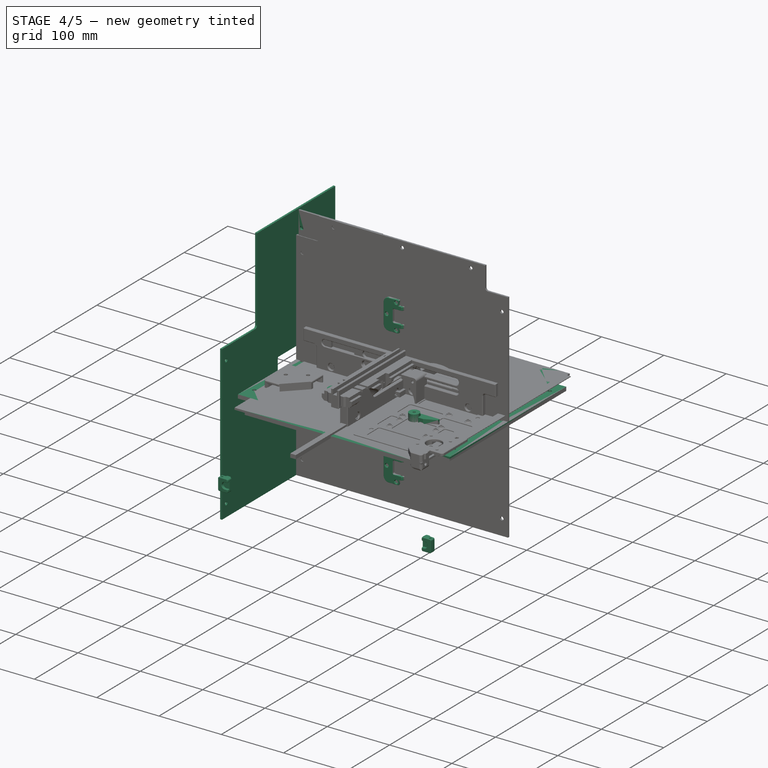
[diagram: stage 4 of 5 — iso view after this stage's code; geometry added in this stage tinted green]
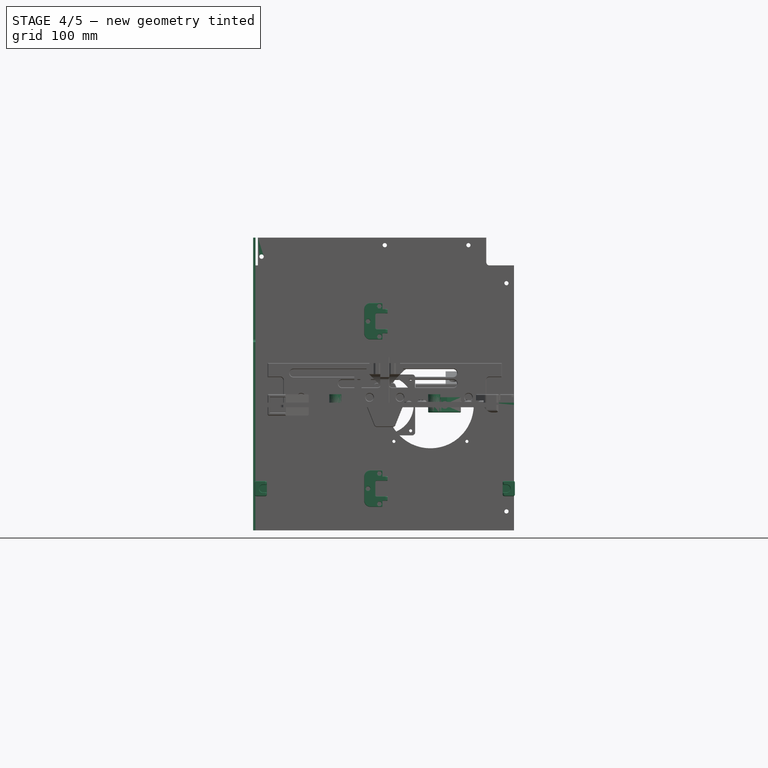
[diagram: stage 4 of 5 — front view after this stage's code; geometry added in this stage tinted green]
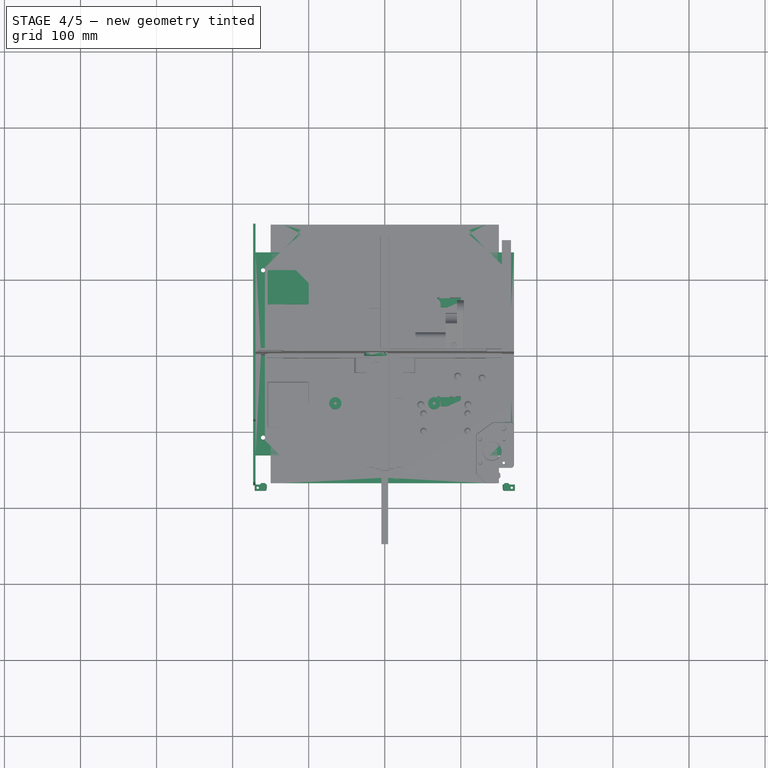
[diagram: stage 4 of 5 — top view after this stage's code; geometry added in this stage tinted green]
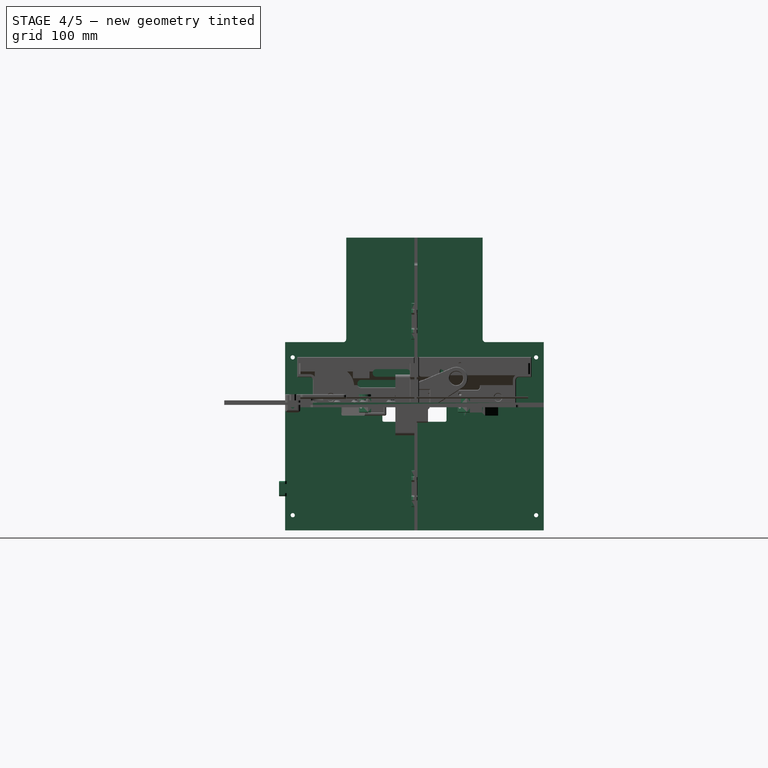
[diagram: stage 4 of 5 — right view after this stage's code; geometry added in this stage tinted green]
FEATURE [PartDesign::Fillet] Fillet
  Base = -> Chamfer002 [Edge41,Edge18,Edge45]
  BaseFeature = -> Chamfer002
  Radius = 8
  SupportTransform = false
  Suppressed = false
  UseAllEdges = false
FEATURE [PartDesign::Fillet] Fillet001
  Base = -> Fillet [Edge42,Edge41]
  BaseFeature = -> Fillet
  Radius = 1.5
  SupportTransform = false
  Suppressed = false
  UseAllEdges = false
FEATURE [Sketcher::SketchObject] Sketch262
  ArcFitTolerance = 1e-06
  AttachmentSupport = -> [XY_Plane264]
  FullyConstrained = true
  MakeInternals = false
  MapMode = 5
  expr: Constraints[0] = Spreadsheet.bed_hole_distance / 2 + 14
  expr: Constraints[16] = Spreadsheet.side_length / 2 - 60
  expr: Constraints[1] = -Spreadsheet.side_length / 2 + 30
  sketch-geometry (14):
    g0: GeomPoint X=-140 Y=79 Z=0
    g1: LineSegment StartX=-152.5 StartY=110 StartZ=0 EndX=-117 EndY=110 EndZ=0
    g2: LineSegment StartX=-117 StartY=110 StartZ=0 EndX=-100 EndY=93 EndZ=0
    g3: LineSegment StartX=-100 StartY=93 StartZ=0 EndX=-100 EndY=66.5 EndZ=0
    g4: LineSegment StartX=-101.5 StartY=65 StartZ=0 EndX=-152.5 EndY=65 EndZ=0
    g5: LineSegment StartX=-154 StartY=66.5 StartZ=0 EndX=-154 EndY=108.5 EndZ=0
    g6: GeomPoint X=-100 Y=79 Z=0
    g7: GeomPoint X=-140 Y=110 Z=0
    g8: ArcOfCircle CenterX=-152.5 CenterY=108.5 CenterZ=0 NormalX=0 NormalY=0 NormalZ=1 AngleXU=0 Radius=1.5 StartAngle=1.5708 EndAngle=3.14159
    g9: GeomPoint [constr] X=-154 Y=110 Z=0
    g10: ArcOfCircle CenterX=-152.5 CenterY=66.5 CenterZ=0 NormalX=0 NormalY=0 NormalZ=1 AngleXU=0 Radius=1.5 StartAngle=3.14159 EndAngle=4.71239
    g11: GeomPoint [constr] X=-154 Y=65 Z=0
    g12: ArcOfCircle CenterX=-101.5 CenterY=66.5 CenterZ=0 NormalX=0 NormalY=0 NormalZ=1 AngleXU=0 Radius=1.5 StartAngle=4.71239 EndAngle=6.28319
    g13: GeomPoint [constr] X=-100 Y=65 Z=0
  constraints (32):
    c: DistanceY(g0) = 79
    c: DistanceX(g0) = -140
    c: Horizontal(g1)
    c: Coincident(g1,g2)
    c: Coincident(g2,g3)
    c: Vertical(g3)
    c: Horizontal(g4)
    c: Vertical(g5)
    c: Symmetric(g3,g13,g6)
    c: PointOnObject(g7,g1)
    c: DistanceX(g9,g7) = 14
    c: Vertical(g7,g0)
    c: Horizontal(g0,g6)
    c: Angle(g2) = -0.785398
    c: DistanceY(g13,g3) = 28
    c: DistanceX(g0,g6) = 40
    c: DistanceY(g7) = 110
    c: PointOnObject(g9,g1)
    c: PointOnObject(g9,g5)
    c: Tangent(g1,g8) = 1.5708
    c: Tangent(g5,g8) = 1.5708
    c: PointOnObject(g11,g4)
    c: PointOnObject(g11,g5)
    c: Tangent(g4,g10) = 1.5708
    c: Tangent(g5,g10) = 1.5708
    c: PointOnObject(g13,g3)
    c: PointOnObject(g13,g4)
    c: Tangent(g3,g12) = 1.5708
    c: Tangent(g4,g12) = 1.5708
    c: Equal(g8,g10)
    c: Equal(g10,g12)
    c: Radius(g10) = 1.5
FEATURE [PartDesign::Pad] Pad064
  Direction = (0,0,1)
  Length = 28
  Length2 = 10
  Midplane = true
  Profile = -> Sketch262
  ReferenceAxis = -> Sketch262 [N_Axis]
  Suppressed = false
  Type = 0
FEATURE [Sketcher::SketchObject] Sketch263
  ArcFitTolerance = 1e-06
  AttachmentSupport = -> [XY_Plane264]
  FullyConstrained = true
  MakeInternals = false
  MapMode = 5
  expr: Constraints[0] = -Spreadsheet.side_length / 2 + 30
  expr: Constraints[1] = Spreadsheet.bed_hole_distance / 2 + 14
  expr: Constraints[22] = Spreadsheet.side_length / 2 - 60
  sketch-geometry (11):
    g0: GeomPoint X=-140 Y=79 Z=0
    g1: LineSegment StartX=-150.05 StartY=110 StartZ=0 EndX=-150.05 EndY=65 EndZ=0
    g2: LineSegment StartX=-150.05 StartY=65 StartZ=0 EndX=-129.95 EndY=65 EndZ=0
    g3: LineSegment StartX=-129.95 StartY=65 StartZ=0 EndX=-129.95 EndY=68.95 EndZ=0
    g4: LineSegment StartX=-129.95 StartY=68.95 StartZ=0 EndX=-100 EndY=68.95 EndZ=0
    g5: LineSegment StartX=-100 StartY=68.95 StartZ=0 EndX=-100 EndY=89.05 EndZ=0
    g6: LineSegment StartX=-100 StartY=89.05 StartZ=0 EndX=-129.95 EndY=89.05 EndZ=0
    g7: LineSegment StartX=-129.95 StartY=89.05 StartZ=0 EndX=-129.95 EndY=110 EndZ=0
    g8: LineSegment StartX=-129.95 StartY=110 StartZ=0 EndX=-150.05 EndY=110 EndZ=0
    g9: GeomPoint X=-140 Y=65 Z=0
    g10: GeomPoint X=-100 Y=79 Z=0
  constraints (28):
    c: DistanceX(g0) = -140
    c: DistanceY(g0) = 79
    c: Vertical(g1)
    c: Coincident(g1,g2)
    c: Horizontal(g2)
    c: Coincident(g2,g3)
    c: Vertical(g3)
    c: Coincident(g3,g4)
    c: Horizontal(g4)
    c: Coincident(g4,g5)
    c: Vertical(g5)
    c: Coincident(g5,g6)
    c: Horizontal(g6)
    c: Coincident(g6,g7)
    c: Vertical(g7)
    c: Coincident(g7,g8)
    c: Coincident(g8,g1)
    c: Horizontal(g8)
    c: Vertical(g6,g3)
    c: Symmetric(g2,g2,g9)
    c: Vertical(g9,g0)
    c: DistanceY(g9,g0) = 14
    c: DistanceY(g7) = 110
    c: DistanceX(g2,g2) = 20.1
    c: Equal(g8,g5)
    c: DistanceX(g0,g4) = 40
    c: Symmetric(g5,g5,g10)
    c: Horizontal(g0,g10)
FEATURE [PartDesign::Pocket] Pocket002
  BaseFeature = -> Pad064
  Direction = (0,0,-1)
  Length = 20.1
  Length2 = 5
  Midplane = true
  Profile = -> Sketch263
  ReferenceAxis = -> Sketch263 [N_Axis]
  Suppressed = false
  Type = 0
FEATURE [PartDesign::Chamfer] Chamfer003
  Angle = 45
  Base = -> Pocket002 [Edge33]
  BaseFeature = -> Pocket002
  ChamferType = 1
  FlipDirection = false
  Size = 1
  Size2 = 4
  SupportTransform = false
  Suppressed = false
  UseAllEdges = false
FEATURE [PartDesign::Chamfer] Chamfer004
  Angle = 45
  Base = -> Chamfer003 [Edge48]
  BaseFeature = -> Chamfer003
  ChamferType = 1
  FlipDirection = false
  Size = 1
  Size2 = 4
  SupportTransform = false
  Suppressed = false
  UseAllEdges = false
FEATURE [PartDesign::Chamfer] Chamfer005
  Angle = 45
  Base = -> Chamfer004 [Edge14]
  BaseFeature = -> Chamfer004
  ChamferType = 1
  FlipDirection = false
  Size = 4
  Size2 = 1
  SupportTransform = false
  Suppressed = false
  UseAllEdges = false
FEATURE [Sketcher::SketchObject] Sketch136
  ArcFitTolerance = 0
  AttachmentSupport = -> [XY_Plane228]
  FullyConstrained = true
  MakeInternals = false
  MapMode = 5
  sketch-geometry (2):
    g0: Circle CenterX=0 CenterY=0 CenterZ=0 NormalX=0 NormalY=0 NormalZ=1 AngleXU=0 Radius=8
    g1: Circle CenterX=0 CenterY=0 CenterZ=0 NormalX=0 NormalY=0 NormalZ=1 AngleXU=0 Radius=2
  constraints (4):
    c: Coincident(g0,g-1)
    c: Coincident(g1,g0)
    c: Diameter(g0) = 16
    c: Diameter(g1) = 4
FEATURE [PartDesign::Pad] Pad039
  Direction = (0,0,1)
  Length = 16
  Length2 = 10
  Profile = -> Sketch136
  ReferenceAxis = -> Sketch136 [N_Axis]
  Suppressed = false
  Type = 0
FEATURE [PartDesign::Body] Body094  label="bed-standoff-1"
  AllowCompound = false
  Group = -> [Sketch136,Pad039]
  Origin = -> Origin228
  Placement = pos=(65,65,-2) rot=(0,0,1;0rad)
  Tip = -> Pad039
  expr: .Placement.Base.x = Spreadsheet.bed_hole_distance / 2
  expr: .Placement.Base.y = Spreadsheet.bed_hole_distance / 2
FEATURE [Part::Mirroring] Part__Mirroring066  label="bed-standoff-2"
  Base = (0,0,0)
  Normal = (1,0,0)
  Source = -> Body094
FEATURE [Part::Mirroring] Part__Mirroring067  label="bed-standoff-3"
  Base = (0,0,0)
  Normal = (0,1,0)
  Source = -> Body094
FEATURE [Part::Mirroring] Part__Mirroring068  label="bed-standoff-4"
  Base = (0,0,0)
  Normal = (0,1,0)
  Source = -> Part__Mirroring066
FEATURE [Sketcher::SketchObject] Sketch428
  ArcFitTolerance = 1e-06
  AttachmentSupport = -> [YZ_Plane281]
  FullyConstrained = true
  MakeInternals = false
  MapMode = 5
  Placement = pos=(0,0,0) rot=(0.57735,0.57735,0.57735;2.0944rad)
  expr: Constraints[10] = Spreadsheet.height
  expr: Constraints[28] = Spreadsheet.xy_gantry_height
  expr: Constraints[9] = Spreadsheet.side_length
  sketch-geometry (33):
    g0: GeomPoint X=170 Y=-220 Z=0
    g1: LineSegment [constr] StartX=-170 StartY=220 StartZ=0 EndX=-170 EndY=-165 EndZ=0
    g2: LineSegment StartX=-170 StartY=-165 StartZ=0 EndX=170 EndY=-165 EndZ=0
    g3: LineSegment [constr] StartX=170 StartY=-165 StartZ=0 EndX=170 EndY=220 EndZ=0
    g4: LineSegment [constr] StartX=170 StartY=220 StartZ=0 EndX=-170 EndY=220 EndZ=0
    g5: LineSegment StartX=-170 StartY=-165 StartZ=0 EndX=-170 EndY=82.5 EndZ=0
    g6: LineSegment StartX=-170 StartY=82.5 StartZ=0 EndX=-93.7 EndY=82.5 EndZ=0
    g7: LineSegment StartX=-89.7 StartY=86.5 StartZ=0 EndX=-89.7 EndY=220 EndZ=0
    g8: LineSegment StartX=-89.7 StartY=220 StartZ=0 EndX=89.7 EndY=220 EndZ=0
    g9: LineSegment StartX=89.7 StartY=220 StartZ=0 EndX=89.7 EndY=86.5 EndZ=0
    g10: LineSegment StartX=93.7 StartY=82.5 StartZ=0 EndX=170 EndY=82.5 EndZ=0
    g11: LineSegment StartX=170 StartY=82.5 StartZ=0 EndX=170 EndY=-165 EndZ=0
    g12: GeomPoint X=170 Y=90 Z=0
    g13: ArcOfCircle CenterX=-93.7 CenterY=86.5 CenterZ=0 NormalX=0 NormalY=0 NormalZ=1 AngleXU=0 Radius=4 StartAngle=4.71239 EndAngle=6.28319
    g14: GeomPoint [constr] X=-89.7 Y=82.5 Z=0
    g15: ArcOfCircle CenterX=93.7 CenterY=86.5 CenterZ=0 NormalX=0 NormalY=0 NormalZ=1 AngleXU=0 Radius=4 StartAngle=3.14159 EndAngle=4.71239
    g16: GeomPoint [constr] X=89.7 Y=82.5 Z=0
    g17: Circle CenterX=-160 CenterY=62.5 CenterZ=0 NormalX=0 NormalY=0 NormalZ=1 AngleXU=0 Radius=2.75
    g18: Circle CenterX=-160 CenterY=-145 CenterZ=0 NormalX=0 NormalY=0 NormalZ=1 AngleXU=0 Radius=2.75
    g19: Circle CenterX=160 CenterY=-145 CenterZ=0 NormalX=0 NormalY=0 NormalZ=1 AngleXU=0 Radius=2.75
    g20: Circle CenterX=160 CenterY=62.5 CenterZ=0 NormalX=0 NormalY=0 NormalZ=1 AngleXU=0 Radius=2.75
    g21: LineSegment StartX=-42.1 StartY=20.1 StartZ=0 EndX=-42.1 EndY=-20.1 EndZ=0
    g22: LineSegment StartX=-40.1 StartY=-22.1 StartZ=0 EndX=40.1 EndY=-22.1 EndZ=0
    g23: LineSegment StartX=42.1 StartY=-20.1 StartZ=0 EndX=42.1 EndY=20.1 EndZ=0
    g24: LineSegment StartX=40.1 StartY=22.1 StartZ=0 EndX=-40.1 EndY=22.1 EndZ=0
    g25: ArcOfCircle CenterX=40.1 CenterY=20.1 CenterZ=0 NormalX=0 NormalY=0 NormalZ=1 AngleXU=0 Radius=2 StartAngle=5e-16 EndAngle=1.5708
    g26: GeomPoint [constr] X=42.1 Y=22.1 Z=0
    g27: ArcOfCircle CenterX=40.1 CenterY=-20.1 CenterZ=0 NormalX=0 NormalY=0 NormalZ=1 AngleXU=0 Radius=2 StartAngle=4.71239 EndAngle=6.28319
    g28: GeomPoint [constr] X=42.1 Y=-22.1 Z=0
    g29: ArcOfCircle CenterX=-40.1 CenterY=-20.1 CenterZ=0 NormalX=0 NormalY=0 NormalZ=1 AngleXU=0 Radius=2 StartAngle=3.14159 EndAngle=4.71239
    g30: GeomPoint [constr] X=-42.1 Y=-22.1 Z=0
    g31: ArcOfCircle CenterX=-40.1 CenterY=20.1 CenterZ=0 NormalX=0 NormalY=0 NormalZ=1 AngleXU=0 Radius=2 StartAngle=1.5708 EndAngle=3.14159
    g32: GeomPoint [constr] X=-42.1 Y=22.1 Z=0
  constraints (78):
    c: Coincident(g1,g2)
    c: Coincident(g2,g3)
    c: Coincident(g3,g4)
    c: Coincident(g4,g1)
    c: Vertical(g1)
    c: Vertical(g3)
    c: Horizontal(g2)
    c: Symmetric(g3,g0,g-1)
    c: Symmetric(g3,g1,g-2)
    c: DistanceX(g4,g4) = 340
    c: DistanceY(g0,g3) = 440
    c: DistanceY(g0,g2) = 55
    c: Coincident(g1,g5)
    c: PointOnObject(g5,g1)
    c: Coincident(g5,g6)
    c: Horizontal(g6)
    c: PointOnObject(g7,g4)
    c: Vertical(g7)
    c: Coincident(g7,g8)
    c: PointOnObject(g8,g4)
    c: Coincident(g8,g9)
    c: Vertical(g9)
    c: PointOnObject(g10,g3)
    c: Horizontal(g10)
    c: Coincident(g10,g11)
    c: Coincident(g11,g2)
    c: Symmetric(g16,g14,g-2)
    c: PointOnObject(g12,g3)
    c: DistanceY(g0,g12) = 310
    c: DistanceY(g10,g12) = 7.5
    c: DistanceX(g16,g10) = 80.3
    c: PointOnObject(g14,g6)
    c: PointOnObject(g14,g7)
    c: Tangent(g6,g13) = -1.5708
    c: Tangent(g7,g13) = -1.5708
    c: PointOnObject(g16,g9)
    c: PointOnObject(g16,g10)
    c: Tangent(g9,g15) = -1.5708
    c: Tangent(g10,g15) = -1.5708
    c: Equal(g15,g13)
    c: Radius(g13) = 4
    c: Symmetric(g20,g17,g-2)
    c: Symmetric(g19,g18,g-2)
    c: Equal(g18,g19)
    c: Equal(g19,g20)
    c: Equal(g20,g17)
    c: Diameter(g17) = 5.5
    c: DistanceY(g17,g5) = 20
    c: DistanceX(g5,g17) = 10
    c: DistanceY(g1,g18) = 20
    c: Vertical(g18,g17)
    c: Vertical(g21)
    c: Vertical(g23)
    c: Horizontal(g22)
    c: Horizontal(g24)
    c: Symmetric(g32,g28,g-1)
    c: DistanceY(g28,g26) = 44.2
    c: DistanceX(g32,g26) = 84.2
    c: PointOnObject(g26,g23)
    c: PointOnObject(g26,g24)
    c: Tangent(g23,g25) = -1.5708
    c: Tangent(g24,g25) = -1.5708
    c: PointOnObject(g28,g22)
    c: PointOnObject(g28,g23)
    c: Tangent(g22,g27) = -1.5708
    c: Tangent(g23,g27) = -1.5708
    c: PointOnObject(g30,g21)
    c: PointOnObject(g30,g22)
    c: Tangent(g21,g29) = -1.5708
    c: Tangent(g22,g29) = -1.5708
    c: PointOnObject(g32,g21)
    c: PointOnObject(g32,g24)
    c: Tangent(g21,g31) = -1.5708
    c: Tangent(g24,g31) = -1.5708
    c: Equal(g25,g31)
    c: Equal(g31,g29)
    c: Equal(g29,g27)
    c: Radius(g27) = 2
FEATURE [PartDesign::Pad] Pad092
  Direction = (1,0,0)
  Length = 3
  Length2 = 10
  Placement = pos=(0,0,0) rot=(1,1,1;2.0944rad)
  Profile = -> Sketch428
  ReferenceAxis = -> Sketch428 [N_Axis]
  Suppressed = false
  Type = 0
FEATURE [PartDesign::Body] Body144  label="panel-right"
  AllowCompound = false
  Group = -> [Sketch428,Pad092]
  Origin = -> Origin282
  Placement = pos=(170,0,0) rot=(0,0,1;0rad)
  Tip = -> Pad092
  expr: .Placement.Base.x = Spreadsheet.side_length / 2
FEATURE [Part::Mirroring] Part__Mirroring076  label="panel-left"
  Base = (0,0,0)
  Normal = (1,0,0)
  Source = -> Body144
FEATURE [Sketcher::SketchObject] Sketch429
  ArcFitTolerance = 1e-06
  AttachmentSupport = -> [XY_Plane282]
  FullyConstrained = true
  MakeInternals = false
  MapMode = 5
  expr: Constraints[10] = Spreadsheet.side_length
  sketch-geometry (4):
    g0: LineSegment StartX=-170 StartY=170 StartZ=0 EndX=-170 EndY=-170 EndZ=0
    g1: LineSegment StartX=-170 StartY=-170 StartZ=0 EndX=170 EndY=-170 EndZ=0
    g2: LineSegment StartX=170 StartY=-170 StartZ=0 EndX=170 EndY=170 EndZ=0
    g3: LineSegment StartX=170 StartY=170 StartZ=0 EndX=-170 EndY=170 EndZ=0
  constraints (11):
    c: Coincident(g0,g1)
    c: Coincident(g1,g2)
    c: Coincident(g2,g3)
    c: Coincident(g3,g0)
    c: Vertical(g0)
    c: Vertical(g2)
    c: Horizontal(g1)
    c: Horizontal(g3)
    c: Symmetric(g1,g0,g-1)
    c: Equal(g2,g3)
    c: DistanceX(g3,g3) = 340
FEATURE [PartDesign::Pad] Pad093
  Direction = (0,0,1)
  Length = 3
  Length2 = 10
  Profile = -> Sketch429
  ReferenceAxis = -> Sketch429 [N_Axis]
  Suppressed = false
  Type = 0
FEATURE [Sketcher::SketchObject] Sketch430
  ArcFitTolerance = 1e-06
  AttachmentSupport = -> [XY_Plane282]
  FullyConstrained = true
  MakeInternals = false
  MapMode = 5
  expr: Constraints[0] = Spreadsheet.side_length / 2
  sketch-geometry (12):
    g0: GeomPoint X=170 Y=170 Z=0
    g1: LineSegment [constr] StartX=170 StartY=0 StartZ=0 EndX=170 EndY=170 EndZ=0
    g2: LineSegment [constr] StartX=170 StartY=170 StartZ=0 EndX=0 EndY=170 EndZ=0
    g3: LineSegment StartX=170 StartY=170 StartZ=0 EndX=133.5 EndY=170 EndZ=0
    g4: LineSegment StartX=133.5 StartY=170 StartZ=0 EndX=133.5 EndY=137.5 EndZ=0
    g5: LineSegment StartX=137.5 StartY=133.5 StartZ=0 EndX=170 EndY=133.5 EndZ=0
    g6: LineSegment StartX=170 StartY=133.5 StartZ=0 EndX=170 EndY=170 EndZ=0
    g7: ArcOfCircle CenterX=137.5 CenterY=137.5 CenterZ=0 NormalX=0 NormalY=0 NormalZ=1 AngleXU=0 Radius=4 StartAngle=3.14159 EndAngle=4.71239
    g8: GeomPoint [constr] X=133.5 Y=133.5 Z=0
    g9: Circle CenterX=110 CenterY=160 CenterZ=0 NormalX=0 NormalY=0 NormalZ=1 AngleXU=0 Radius=2.75
    g10: Circle CenterX=160 CenterY=110 CenterZ=0 NormalX=0 NormalY=0 NormalZ=1 AngleXU=0 Radius=2.75
    g11: Circle CenterX=0 CenterY=160 CenterZ=0 NormalX=0 NormalY=0 NormalZ=1 AngleXU=0 Radius=2.75
  constraints (32):
    c: DistanceX(g0) = 170
    c: PointOnObject(g1,g-1)
    c: Coincident(g1,g0)
    c: Coincident(g1,g2)
    c: PointOnObject(g2,g-2)
    c: Horizontal(g2)
    c: Vertical(g1)
    c: Equal(g2,g1)
    c: Coincident(g3,g4)
    c: Coincident(g5,g6)
    c: Coincident(g6,g3)
    c: Horizontal(g3)
    c: Horizontal(g5)
    c: Vertical(g4)
    c: Vertical(g6)
    c: Coincident(g3,g0)
    c: Equal(g6,g3)
    c: DistanceX(g3,g3) = 36.5
    c: PointOnObject(g8,g4)
    c: PointOnObject(g8,g5)
    c: Tangent(g4,g7) = -1.5708
    c: Tangent(g5,g7) = -1.5708
    c: Radius(g7) = 4
    c: PointOnObject(g11,g-2)
    c: Equal(g11,g9)
    c: Equal(g9,g10)
    c: Horizontal(g9,g11)
    c: DistanceX(g10,g0) = 10
    c: DistanceY(g9,g0) = 10
    c: Diameter(g9) = 5.5
    c: DistanceY(g10,g0) = 60
    c: DistanceX(g9,g0) = 60
FEATURE [PartDesign::Pocket] Pocket300
  BaseFeature = -> Pad093
  Direction = (0,0,-1)
  Length = 5
  Length2 = 5
  Midplane = true
  Profile = -> Sketch430
  ReferenceAxis = -> Sketch430 [N_Axis]
  Suppressed = false
  Type = 1
FEATURE [PartDesign::PolarPattern] PolarPattern005
  Angle = 360
  Axis = -> Z_Axis282
  BaseFeature = -> Pocket300
  Mode = 0
  Occurrences = 4
  Offset = 120
  Originals = -> [Pocket300]
  Suppressed = false
  TransformMode = 0
FEATURE [PartDesign::Body] Body145  label="panel-top"
  AllowCompound = false
  Group = -> [Sketch429,Pad093,Sketch430,Pocket300,PolarPattern005]
  Origin = -> Origin283
  Placement = pos=(0,0,220) rot=(0,0,1;0rad)
  Tip = -> PolarPattern005
  expr: .Placement.Base.z = Spreadsheet.height / 2
FEATURE [Sketcher::SketchObject] Sketch431
  ArcFitTolerance = 1e-06
  AttachmentSupport = -> [XZ_Plane283]
  FullyConstrained = true
  MakeInternals = false
  MapMode = 5
  Placement = pos=(0,0,0) rot=(1,0,0;1.5708rad)
  sketch-geometry (10):
    g0: LineSegment StartX=-11 StartY=8 StartZ=0 EndX=-11 EndY=-8 EndZ=0
    g1: LineSegment StartX=-9 StartY=-10 StartZ=0 EndX=5 EndY=-10 EndZ=0
    g2: LineSegment StartX=5 StartY=-10 StartZ=0 EndX=5 EndY=10 EndZ=0
    g3: LineSegment StartX=5 StartY=10 StartZ=0 EndX=-9 EndY=10 EndZ=0
    g4: ArcOfCircle CenterX=-9 CenterY=8 CenterZ=0 NormalX=0 NormalY=0 NormalZ=1 AngleXU=0 Radius=2 StartAngle=1.5708 EndAngle=3.14159
    g5: GeomPoint [constr] X=-11 Y=10 Z=0
    g6: GeomPoint [constr] X=5 Y=10 Z=0
    g7: GeomPoint [constr] X=5 Y=-10 Z=0
    g8: ArcOfCircle CenterX=-9 CenterY=-8 CenterZ=0 NormalX=0 NormalY=0 NormalZ=1 AngleXU=0 Radius=2 StartAngle=3.14159 EndAngle=4.71239
    g9: GeomPoint [constr] X=-11 Y=-10 Z=0
  constraints (21):
    c: Vertical(g2)
    c: Horizontal(g1)
    c: Horizontal(g3)
    c: Symmetric(g5,g9,g-1)
    c: DistanceX(g5) = -11
    c: PointOnObject(g5,g0)
    c: PointOnObject(g5,g3)
    c: Tangent(g0,g4) = -1.5708
    c: Tangent(g3,g4) = -1.5708
    c: PointOnObject(g9,g0)
    c: PointOnObject(g9,g1)
    c: Tangent(g0,g8) = -1.5708
    c: Tangent(g1,g8) = -1.5708
    c: Equal(g8,g4)
    c: Radius(g8) = 2
    c: DistanceX(g6) = 5
    c: DistanceY(g9,g5) = 20
    c: Coincident(g3,g6)
    c: Coincident(g3,g2)
    c: Coincident(g2,g7)
    c: Coincident(g2,g1)
FEATURE [PartDesign::Pad] Pad094
  Direction = (0,-1,2e-16)
  Length = 8
  Length2 = 10
  Placement = pos=(0,0,0) rot=(1,0,0;1.5708rad)
  Profile = -> Sketch431
  ReferenceAxis = -> Sketch431 [N_Axis]
  Suppressed = false
  Type = 0
FEATURE [Sketcher::SketchObject] Sketch432
  ArcFitTolerance = 1e-06
  AttachmentOffset = pos=(0,0,4) rot=(0,0,1;0rad)
  AttachmentSupport = -> [XZ_Plane283]
  FullyConstrained = true
  MakeInternals = false
  MapMode = 5
  Placement = pos=(0,-4,9e-16) rot=(1,0,0;1.5708rad)
  sketch-geometry (5):
    g0: Circle [constr] CenterX=0 CenterY=0 CenterZ=0 NormalX=0 NormalY=0 NormalZ=1 AngleXU=0 Radius=5
    g1: LineSegment StartX=3e-16 StartY=5 StartZ=0 EndX=5 EndY=5 EndZ=0
    g2: LineSegment StartX=-9e-16 StartY=-5 StartZ=0 EndX=5 EndY=-5 EndZ=0
    g3: LineSegment StartX=5 StartY=-5 StartZ=0 EndX=5 EndY=5 EndZ=0
    g4: ArcOfCircle CenterX=0 CenterY=0 CenterZ=0 NormalX=0 NormalY=0 NormalZ=1 AngleXU=0 Radius=5 StartAngle=1.5708 EndAngle=4.71239
  constraints (12):
    c: Coincident(g0,g-1)
    c: Diameter(g0) = 10
    c: Tangent(g1,g0) = 1.5708
    c: Horizontal(g1)
    c: Coincident(g3,g2)
    c: Coincident(g3,g1)
    c: Vertical(g3)
    c: DistanceX(g2) = 5
    c: Tangent(g2,g0) = -1.5708
    c: Coincident(g4,g1)
    c: Horizontal(g2)
    c: Tangent(g4,g2) = -1.5708
FEATURE [PartDesign::Pocket] Pocket301
  BaseFeature = -> Pad094
  Direction = (0,1,-2e-16)
  Length = 5
  Length2 = 5
  Placement = pos=(0,0,0) rot=(1,0,0;1.5708rad)
  Profile = -> Sketch432
  ReferenceAxis = -> Sketch432 [N_Axis]
  Reversed = true
  Suppressed = false
  Type = 1
FEATURE [Sketcher::SketchObject] Sketch433
  ArcFitTolerance = 1e-06
  AttachmentSupport = -> [XY_Plane283]
  FullyConstrained = true
  MakeInternals = false
  MapMode = 5
  sketch-geometry (1):
    g0: Circle CenterX=-7 CenterY=-4 CenterZ=0 NormalX=0 NormalY=0 NormalZ=1 AngleXU=0 Radius=1.7
  constraints (3):
    c: Diameter(g0) = 3.4
    c: DistanceY(g0) = -4
    c: DistanceX(g0) = -7
FEATURE [PartDesign::Pocket] Pocket302
  BaseFeature = -> Pocket301
  Direction = (0,0,-1)
  Length = 5
  Length2 = 5
  Midplane = true
  Placement = pos=(0,0,0) rot=(1,0,0;1.5708rad)
  Profile = -> Sketch433
  ReferenceAxis = -> Sketch433 [N_Axis]
  Suppressed = false
  Type = 1
FEATURE [Sketcher::SketchObject] Sketch434
  ArcFitTolerance = 1e-06
  AttachmentSupport = -> [XY_Plane283]
  FullyConstrained = true
  MakeInternals = false
  MapMode = 5
  sketch-geometry (5):
    g0: LineSegment StartX=-4.27574 StartY=0 StartZ=0 EndX=-2.27574 EndY=2 EndZ=0
    g1: LineSegment StartX=-2.27574 StartY=2 StartZ=0 EndX=2.27574 EndY=2 EndZ=0
    g2: LineSegment StartX=2.27574 StartY=2 StartZ=0 EndX=4.27574 EndY=0 EndZ=0
    g3: LineSegment StartX=4.27574 StartY=0 StartZ=0 EndX=-4.27574 EndY=0 EndZ=0
    g4: LineSegment [constr] StartX=-2.7 StartY=2 StartZ=0 EndX=2.7 EndY=2 EndZ=0
  constraints (14):
    c: PointOnObject(g0,g-1)
    c: Coincident(g0,g1)
    c: Coincident(g1,g2)
    c: PointOnObject(g2,g-1)
    c: Coincident(g2,g3)
    c: Coincident(g3,g0)
    c: Symmetric(g1,g0,g-2)
    c: Perpendicular(g2,g0)
    c: Angle(g2) = -0.785398
    c: DistanceY(g2,g2) = 2
    c: Symmetric(g4,g4,g-2)
    c: PointOnObject(g0,g4)
    c: DistanceX(g4,g4) = 5.4
    c: Distance(g4,g0) = 0.3
FEATURE [PartDesign::Pad] Pad095
  BaseFeature = -> Pocket302
  Direction = (0,0,1)
  Length = 20
  Length2 = 10
  Midplane = true
  Placement = pos=(0,0,0) rot=(1,0,0;1.5708rad)
  Profile = -> Sketch434
  ReferenceAxis = -> Sketch434 [N_Axis]
  Suppressed = false
  Type = 0
FEATURE [Sketcher::SketchObject] Sketch435
  ArcFitTolerance = 1e-06
  AttachmentOffset = pos=(-7,0,3) rot=(0,0,1;0rad)
  AttachmentSupport = -> [XZ_Plane283]
  FullyConstrained = true
  MakeInternals = false
  MapMode = 5
  Placement = pos=(-7,-3,7e-16) rot=(1,0,0;1.5708rad)
  sketch-geometry (7):
    g0: ArcOfCircle CenterX=10 CenterY=8 CenterZ=0 NormalX=0 NormalY=0 NormalZ=1 AngleXU=0 Radius=2 StartAngle=0 EndAngle=1.5708
    g1: LineSegment [constr] StartX=12 StartY=8 StartZ=0 EndX=12 EndY=10 EndZ=0
    g2: LineSegment [constr] StartX=12 StartY=10 StartZ=0 EndX=10 EndY=10 EndZ=0
    g3: LineSegment StartX=10 StartY=10 StartZ=0 EndX=16 EndY=10 EndZ=0
    g4: LineSegment StartX=16 StartY=10 StartZ=0 EndX=16 EndY=0 EndZ=0
    g5: LineSegment StartX=16 StartY=0 StartZ=0 EndX=12 EndY=0 EndZ=0
    g6: LineSegment StartX=12 StartY=0 StartZ=0 EndX=12 EndY=8 EndZ=0
  constraints (19):
    c: Tangent(g1,g0) = -1.5708
    c: Coincident(g2,g1)
    c: Horizontal(g2)
    c: Vertical(g1)
    c: Tangent(g2,g0) = -1.5708
    c: DistanceX(g2,g2) = 2
    c: DistanceX(g1) = 12
    c: DistanceY(g1) = 10
    c: Coincident(g0,g3)
    c: Coincident(g3,g4)
    c: Vertical(g4)
    c: Coincident(g4,g5)
    c: PointOnObject(g5,g-1)
    c: Horizontal(g5)
    c: Coincident(g5,g6)
    c: Coincident(g6,g0)
    c: Vertical(g6)
    c: Horizontal(g3)
    c: DistanceX(g5,g5) = 4
FEATURE [Sketcher::SketchObject] Sketch436
  ArcFitTolerance = 1e-06
  AttachmentSupport = -> [XZ_Plane283]
  FullyConstrained = true
  MakeInternals = false
  MapMode = 5
  Placement = pos=(0,0,0) rot=(1,0,0;1.5708rad)
  sketch-geometry (4):
    g0: LineSegment StartX=-6 StartY=6 StartZ=0 EndX=-6 EndY=-6 EndZ=0
    g1: LineSegment StartX=-6 StartY=-6 StartZ=0 EndX=6 EndY=-6 EndZ=0
    g2: LineSegment StartX=6 StartY=-6 StartZ=0 EndX=6 EndY=6 EndZ=0
    g3: LineSegment StartX=6 StartY=6 StartZ=0 EndX=-6 EndY=6 EndZ=0
  constraints (11):
    c: Coincident(g0,g1)
    c: Coincident(g1,g2)
    c: Coincident(g2,g3)
    c: Coincident(g3,g0)
    c: Vertical(g0)
    c: Vertical(g2)
    c: Horizontal(g1)
    c: Horizontal(g3)
    c: Symmetric(g2,g0,g-1)
    c: Equal(g3,g2)
    c: DistanceX(g3,g3) = 12
FEATURE [Sketcher::SketchObject] Sketch437
  ArcFitTolerance = 1e-06
  AttachmentOffset = pos=(0,0,3.7) rot=(0,0,1;0rad)
  AttachmentSupport = -> [XZ_Plane283]
  FullyConstrained = true
  MakeInternals = false
  MapMode = 5
  Placement = pos=(0,-3.7,8e-16) rot=(1,0,0;1.5708rad)
  sketch-geometry (1):
    g0: Circle CenterX=0 CenterY=0 CenterZ=0 NormalX=0 NormalY=0 NormalZ=1 AngleXU=0 Radius=2.75
  constraints (2):
    c: Coincident(g0,g-1)
    c: Diameter(g0) = 5.5
FEATURE [PartDesign::Pocket] Pocket305
  BaseFeature = -> Pad095
  Direction = (0,1,-2e-16)
  Length = 5
  Length2 = 5
  Placement = pos=(0,0,0) rot=(1,0,0;1.5708rad)
  Profile = -> Sketch437
  ReferenceAxis = -> Sketch437 [N_Axis]
  Suppressed = false
  Type = 1
FEATURE [Sketcher::SketchObject] Sketch438
  ArcFitTolerance = 1e-06
  AttachmentSupport = -> [XZ_Plane284]
  FullyConstrained = true
  MakeInternals = false
  MapMode = 5
  Placement = pos=(0,0,0) rot=(1,0,0;1.5708rad)
  sketch-geometry (16):
    g0: LineSegment [constr] StartX=-11 StartY=16 StartZ=0 EndX=-11 EndY=-16 EndZ=0
    g1: LineSegment [constr] StartX=-11 StartY=-16 StartZ=0 EndX=10 EndY=-16 EndZ=0
    g2: LineSegment [constr] StartX=10 StartY=-16 StartZ=0 EndX=10 EndY=16 EndZ=0
    g3: LineSegment [constr] StartX=10 StartY=16 StartZ=0 EndX=-11 EndY=16 EndZ=0
    g4: LineSegment StartX=3.3 StartY=10.3 StartZ=0 EndX=-11 EndY=10.3 EndZ=0
    g5: LineSegment StartX=-11 StartY=10.3 StartZ=0 EndX=-11 EndY=16 EndZ=0
    g6: LineSegment StartX=-11 StartY=16 StartZ=0 EndX=10 EndY=16 EndZ=0
    g7: LineSegment StartX=10 StartY=16 StartZ=0 EndX=10 EndY=-16 EndZ=0
    g8: LineSegment StartX=10 StartY=-16 StartZ=0 EndX=-11 EndY=-16 EndZ=0
    g9: LineSegment StartX=-11 StartY=-16 StartZ=0 EndX=-11 EndY=-10.3 EndZ=0
    g10: LineSegment StartX=-11 StartY=-10.3 StartZ=0 EndX=3.3 EndY=-10.3 EndZ=0
    g11: LineSegment StartX=5.3 StartY=-8.3 StartZ=0 EndX=5.3 EndY=8.3 EndZ=0
    g12: ArcOfCircle CenterX=3.3 CenterY=8.3 CenterZ=0 NormalX=0 NormalY=0 NormalZ=1 AngleXU=0 Radius=2 StartAngle=0 EndAngle=1.5708
    g13: GeomPoint [constr] X=5.3 Y=10.3 Z=0
    g14: ArcOfCircle CenterX=3.3 CenterY=-8.3 CenterZ=0 NormalX=0 NormalY=0 NormalZ=1 AngleXU=0 Radius=2 StartAngle=4.71239 EndAngle=6.28319
    g15: GeomPoint [constr] X=5.3 Y=-10.3 Z=0
  constraints (38):
    c: Coincident(g0,g1)
    c: Coincident(g1,g2)
    c: Coincident(g2,g3)
    c: Coincident(g3,g0)
    c: Vertical(g0)
    c: Horizontal(g1)
    c: Horizontal(g3)
    c: DistanceX(g3,g3) = 21
    c: DistanceY(g2,g2) = 32
    c: PointOnObject(g4,g0)
    c: Horizontal(g4)
    c: Coincident(g4,g5)
    c: Coincident(g5,g0)
    c: Coincident(g5,g6)
    c: Coincident(g6,g2)
    c: Coincident(g6,g7)
    c: Coincident(g7,g1)
    c: Coincident(g7,g8)
    c: Coincident(g8,g0)
    c: Coincident(g8,g9)
    c: PointOnObject(g9,g0)
    c: Coincident(g9,g10)
    c: Horizontal(g10)
    c: Symmetric(g13,g15,g-1)
    c: DistanceX(g15) = 5.3
    c: DistanceY(g13) = 10.3
    c: DistanceX(g2) = 10
    c: Symmetric(g2,g1,g-1)
    c: PointOnObject(g13,g4)
    c: PointOnObject(g13,g11)
    c: Tangent(g4,g12) = -1.5708
    c: Tangent(g11,g12) = -1.5708
    c: PointOnObject(g15,g10)
    c: PointOnObject(g15,g11)
    c: Tangent(g10,g14) = -1.5708
    c: Tangent(g11,g14) = -1.5708
    c: Equal(g14,g12)
    c: Radius(g12) = 2
FEATURE [PartDesign::Pocket] Pocket306
  BaseFeature = -> Pocket305
  Direction = (0,1,-2e-16)
  Length = 5
  Length2 = 5
  Placement = pos=(0,0,0) rot=(1,0,0;1.5708rad)
  Profile = -> Sketch436
  ReferenceAxis = -> Sketch436 [N_Axis]
  Refine = true
  Suppressed = false
  Type = 1
FEATURE [PartDesign::Groove] Groove016
  Angle = 90
  Angle2 = 60
  Axis = (0,2e-16,1)
  Base = (-7,-3,7e-16)
  BaseFeature = -> Pocket306
  Placement = pos=(0,0,0) rot=(1,0,0;1.5708rad)
  Profile = -> Sketch435
  ReferenceAxis = -> Sketch435 [V_Axis]
  Reversed = true
  Suppressed = false
  Type = 0
FEATURE [PartDesign::Pocket] Pocket307
  BaseFeature = -> Groove016
  Direction = (0,1,-2e-16)
  Length = 5
  Length2 = 5
  Placement = pos=(0,0,0) rot=(1,0,0;1.5708rad)
  Profile = -> Sketch435
  ReferenceAxis = -> Sketch435 [N_Axis]
  Suppressed = false
  Type = 1
FEATURE [PartDesign::Mirrored] Mirrored011
  BaseFeature = -> Pocket307
  MirrorPlane = -> XY_Plane283
  Originals = -> [Pocket307,Groove016]
  Placement = pos=(0,0,0) rot=(1,0,0;1.5708rad)
  Suppressed = false
  TransformMode = 0
FEATURE [PartDesign::Fillet] Fillet004
  Base = -> Mirrored011 [Edge75,Edge67]
  BaseFeature = -> Mirrored011
  Placement = pos=(0,0,0) rot=(1,0,0;1.5708rad)
  Radius = 1
  Refine = true
  SupportTransform = false
  Suppressed = false
  UseAllEdges = false
FEATURE [PartDesign::Chamfer] Chamfer007
  Angle = 45
  Base = -> Fillet004 [Edge5]
  BaseFeature = -> Fillet004
  ChamferType = 0
  FlipDirection = false
  Placement = pos=(0,0,0) rot=(1,0,0;1.5708rad)
  Size = 0.5
  Size2 = 1
  SupportTransform = false
  Suppressed = false
  UseAllEdges = false
FEATURE [PartDesign::Body] Body146  label="hinge-stat-drv"
  AllowCompound = false
  Group = -> [Sketch431,Pad094,Sketch432,Pocket301,Sketch433,Pocket302,Sketch434,Pad095,Sketch435,Sketch436,Sketch437,Pocket305,Pocket306,Groove016,Pocket307,Mirrored011,Fillet004,Chamfer007]
  Origin = -> Origin284
  Tip = -> Chamfer007
FEATURE [PartDesign::Fillet] Fillet005
  Base = -> Pocket308 [Edge55,Edge52]
  BaseFeature = -> Pocket308
  Placement = pos=(0,0,0) rot=(1,0,0;1.5708rad)
  Radius = 2
  SupportTransform = false
  Suppressed = false
  UseAllEdges = false
FEATURE [PartDesign::Fillet] Fillet006
  Base = -> Fillet005 [Edge61,Edge73,Edge54,Edge53,Edge57,Edge4,Edge9]
  BaseFeature = -> Fillet005
  Placement = pos=(0,0,0) rot=(1,0,0;1.5708rad)
  Radius = 1
  SupportTransform = false
  Suppressed = false
  UseAllEdges = false
FEATURE [Sketcher::SketchObject] Sketch441
  ArcFitTolerance = 1e-06
  AttachmentOffset = pos=(0,0,8) rot=(0,0,1;0rad)
  AttachmentSupport = -> [XZ_Plane284]
  FullyConstrained = true
  MakeInternals = false
  MapMode = 5
  Placement = pos=(0,-8,1.8e-15) rot=(1,0,0;1.5708rad)
  sketch-geometry (21):
    g0: LineSegment StartX=3.17543 StartY=20 StartZ=0 EndX=1.58771 EndY=22.75 EndZ=0
    g1: LineSegment StartX=1.58771 StartY=22.75 StartZ=0 EndX=-1.58771 EndY=22.75 EndZ=0
    g2: LineSegment StartX=-1.58771 StartY=22.75 StartZ=0 EndX=-3.17543 EndY=20 EndZ=0
    g3: LineSegment StartX=-3.17543 StartY=20 StartZ=0 EndX=-1.58771 EndY=17.25 EndZ=0
    g4: LineSegment StartX=-1.58771 StartY=17.25 StartZ=0 EndX=1.58771 EndY=17.25 EndZ=0
    g5: LineSegment StartX=1.58771 StartY=17.25 StartZ=0 EndX=3.17543 EndY=20 EndZ=0
    g6: Circle [constr] CenterX=0 CenterY=20 CenterZ=0 NormalX=0 NormalY=0 NormalZ=1 AngleXU=0 Radius=3.17543
    g7: LineSegment StartX=1.58771 StartY=-22.75 StartZ=0 EndX=3.17543 EndY=-20 EndZ=0
    g8: LineSegment StartX=3.17543 StartY=-20 StartZ=0 EndX=1.58771 EndY=-17.25 EndZ=0
    g9: LineSegment StartX=1.58771 StartY=-17.25 StartZ=0 EndX=-1.58771 EndY=-17.25 EndZ=0
    g10: LineSegment StartX=-1.58771 StartY=-17.25 StartZ=0 EndX=-3.17543 EndY=-20 EndZ=0
    g11: LineSegment StartX=-3.17543 StartY=-20 StartZ=0 EndX=-1.58771 EndY=-22.75 EndZ=0
    g12: LineSegment StartX=-1.58771 StartY=-22.75 StartZ=0 EndX=1.58771 EndY=-22.75 EndZ=0
    g13: Circle [constr] CenterX=0 CenterY=-20 CenterZ=0 NormalX=0 NormalY=0 NormalZ=1 AngleXU=0 Radius=3.17543
    g14: LineSegment StartX=13.4123 StartY=-2.75 StartZ=0 EndX=16.5877 EndY=-2.75 EndZ=0
    g15: LineSegment StartX=16.5877 StartY=-2.75 StartZ=0 EndX=18.1754 EndY=0 EndZ=0
    g16: LineSegment StartX=18.1754 StartY=0 StartZ=0 EndX=16.5877 EndY=2.75 EndZ=0
    g17: LineSegment StartX=16.5877 StartY=2.75 StartZ=0 EndX=13.4123 EndY=2.75 EndZ=0
    g18: LineSegment StartX=13.4123 StartY=2.75 StartZ=0 EndX=11.8246 EndY=0 EndZ=0
    g19: LineSegment StartX=11.8246 StartY=-1e-16 StartZ=0 EndX=13.4123 EndY=-2.75 EndZ=0
    g20: Circle [constr] CenterX=15 CenterY=0 CenterZ=0 NormalX=0 NormalY=0 NormalZ=1 AngleXU=0 Radius=3.17543
  constraints (50):
    c: Coincident(g0,g1)
    c: Coincident(g1,g2)
    c: Coincident(g2,g3)
    c: Coincident(g3,g4)
    c: Coincident(g4,g5)
    c: Coincident(g5,g0)
    c: Equal(g0, g1-g5) x5
    c: PointOnObject(g0,g6)
    c: PointOnObject(g1,g6)
    c: PointOnObject(g2,g6)
    c: PointOnObject(g3,g6)
    c: PointOnObject(g4,g6)
    c: PointOnObject(g5,g6)
    c: Coincident(g7,g8)
    c: Coincident(g8,g9)
    c: Coincident(g9,g10)
    c: Coincident(g10,g11)
    c: Coincident(g11,g12)
    c: Coincident(g12,g7)
    c: Equal(g7, g8-g12) x5
    c: PointOnObject(g7,g13)
    c: PointOnObject(g8,g13)
    c: PointOnObject(g9,g13)
    c: PointOnObject(g10,g13)
    c: PointOnObject(g11,g13)
    c: PointOnObject(g12,g13)
    c: Symmetric(g13,g6,g-1)
    c: Horizontal(g1)
    c: Horizontal(g9)
    c: Equal(g13,g6)
    c: DistanceY(g13) = -20
    c: DistanceY(g4,g0) = 5.5
    c: DistanceX(g13) = 0
    c: Coincident(g14,g15)
    c: Coincident(g15,g16)
    c: Coincident(g16,g17)
    c: Coincident(g17,g18)
    c: Coincident(g18,g19)
    c: Coincident(g19,g14)
    c: Equal(g14, g15-g19) x5
    c: PointOnObject(g14,g20)
    c: PointOnObject(g15,g20)
    c: PointOnObject(g16,g20)
    c: PointOnObject(g17,g20)
    c: PointOnObject(g18,g20)
    c: PointOnObject(g19,g20)
    c: PointOnObject(g20,g-1)
    c: Equal(g20,g13)
    c: DistanceX(g20) = 15
    c: Horizontal(g17)
FEATURE [PartDesign::Pocket] Pocket309
  BaseFeature = -> Fillet006
  Direction = (0,1,-2e-16)
  Length = 3
  Length2 = 5
  Placement = pos=(0,0,0) rot=(1,0,0;1.5708rad)
  Profile = -> Sketch441
  ReferenceAxis = -> Sketch441 [N_Axis]
  Suppressed = false
  Type = 0
FEATURE [Sketcher::SketchObject] Sketch442
  ArcFitTolerance = 1e-06
  AttachmentOffset = pos=(0,0,4.7) rot=(0,0,1;0rad)
  AttachmentSupport = -> [XZ_Plane284]
  FullyConstrained = true
  MakeInternals = false
  MapMode = 5
  Placement = pos=(0,-4.7,1e-15) rot=(1,0,0;1.5708rad)
  sketch-geometry (3):
    g0: Circle CenterX=0 CenterY=20 CenterZ=0 NormalX=0 NormalY=0 NormalZ=1 AngleXU=0 Radius=1.75
    g1: Circle CenterX=15 CenterY=0 CenterZ=0 NormalX=0 NormalY=0 NormalZ=1 AngleXU=0 Radius=1.75
    g2: Circle CenterX=0 CenterY=-20 CenterZ=0 NormalX=0 NormalY=0 NormalZ=1 AngleXU=0 Radius=1.75
  constraints (8):
    c: PointOnObject(g1,g-1)
    c: Symmetric(g2,g0,g-1)
    c: Equal(g0,g1)
    c: Equal(g1,g2)
    c: DistanceX(g1) = 15
    c: DistanceX(g0) = 0
    c: DistanceY(g0) = 20
    c: Diameter(g1) = 3.5
FEATURE [PartDesign::Pocket] Pocket310
  BaseFeature = -> Pocket309
  Direction = (0,1,-2e-16)
  Length = 5
  Length2 = 5
  Placement = pos=(0,0,0) rot=(1,0,0;1.5708rad)
  Profile = -> Sketch442
  ReferenceAxis = -> Sketch442 [N_Axis]
  Suppressed = false
  Type = 1
FEATURE [PartDesign::Chamfer] Chamfer008
  Angle = 45
  Base = -> Pocket310 [Face33]
  BaseFeature = -> Pocket310
  ChamferType = 0
  FlipDirection = false
  Placement = pos=(0,0,0) rot=(1,0,0;1.5708rad)
  Size = 0.3
  Size2 = 1
  SupportTransform = false
  Suppressed = false
  UseAllEdges = false
FEATURE [PartDesign::Body] Body147  label="hinge-mov-drv"
  AllowCompound = false
  Group = -> [Sketch438,Pad096,Sketch439,Pad097,Sketch440,Pocket308,Fillet005,Fillet006,Sketch441,Pocket309,Sketch442,Pocket310,Chamfer008]
  Origin = -> Origin285
  Tip = -> Chamfer008
FEATURE [PartDesign::FeatureBase] Clone009
  BaseFeature = -> Body146
  Suppressed = false
FEATURE [PartDesign::Body] Body148
  AllowCompound = false
  Group = -> [Clone009]
  Origin = -> Origin286
  Placement = pos=(-160,-170,110) rot=(0,0,1;0rad)
  Tip = -> Clone009
  expr: .Placement.Base.x = -Spreadsheet.side_length / 2 + 10
  expr: .Placement.Base.y = -Spreadsheet.side_length / 2
FEATURE [Part::Mirroring] Part__Mirroring077  label="Body148 (Mirror #38)"
  Base = (0,0,0)
  Normal = (1,0,0)
  Source = -> Body148
FEATURE [Part::Mirroring] Part__Mirroring078  label="Body148 (Mirror #39)"
  Base = (0,0,0)
  Normal = (0,0,1)
  Source = -> Body148
FEATURE [Part::Mirroring] Part__Mirroring079  label="Body148 (Mirror #40)"
  Base = (0,0,0)
  Normal = (0,0,1)
  Source = -> Part__Mirroring077
FEATURE [App::DocumentObjectGroup] Group028  label="hinges-stat"
  Group = -> [Body148,Part__Mirroring077,Part__Mirroring079,Part__Mirroring078]
FEATURE [PartDesign::FeatureBase] Clone010
  BaseFeature = -> Body147
  Suppressed = false
FEATURE [PartDesign::Body] Body149
  AllowCompound = false
  Group = -> [Clone010]
  Origin = -> Origin288
  Placement = pos=(7,4,110) rot=(0,0,1;0rad)
  Tip = -> Clone010
FEATURE [Part::Mirroring] Part__Mirroring080  label="Body149 (Mirror #41)"
  Base = (0,0,0)
  Normal = (0,0,1)
  Source = -> Body149
FEATURE [Sketcher::SketchObject] Sketch443
  ArcFitTolerance = 1e-06
  AttachmentSupport = -> [XZ_Plane288]
  FullyConstrained = true
  MakeInternals = false
  MapMode = 5
  Placement = pos=(0,0,0) rot=(1,0,0;1.5708rad)
  expr: Constraints[15] = Spreadsheet.height / 2
  expr: Constraints[18] = Spreadsheet.side_length / 2 - 0.2
  sketch-geometry (26):
    g0: LineSegment StartX=6 StartY=-164.7 StartZ=0 EndX=169.8 EndY=-164.7 EndZ=0
    g1: LineSegment StartX=169.8 StartY=-164.7 StartZ=0 EndX=169.8 EndY=220 EndZ=0
    g2: LineSegment StartX=169.8 StartY=220 StartZ=0 EndX=36.5 EndY=220 EndZ=0
    g3: LineSegment StartX=36.5 StartY=220 StartZ=0 EndX=36.5 EndY=187.5 EndZ=0
    g4: LineSegment StartX=32.5 StartY=183.5 StartZ=0 EndX=6 EndY=183.5 EndZ=0
    g5: LineSegment StartX=6 StartY=183.5 StartZ=0 EndX=6 EndY=126 EndZ=0
    g6: ArcOfCircle CenterX=32.5 CenterY=187.5 CenterZ=0 NormalX=0 NormalY=0 NormalZ=1 AngleXU=0 Radius=4 StartAngle=4.71239 EndAngle=6.28319
    g7: GeomPoint [constr] X=36.5 Y=183.5 Z=0
    g8: GeomPoint X=0 Y=220 Z=0
    g9: GeomPoint X=0 Y=-220 Z=0
    g10: LineSegment StartX=6 StartY=126 StartZ=0 EndX=20 EndY=126 EndZ=0
    g11: LineSegment StartX=20 StartY=126 StartZ=0 EndX=20 EndY=94 EndZ=0
    g12: LineSegment StartX=20 StartY=94 StartZ=0 EndX=6 EndY=94 EndZ=0
    g13: LineSegment StartX=6 StartY=-94 StartZ=0 EndX=20 EndY=-94 EndZ=0
    g14: LineSegment StartX=20 StartY=-94 StartZ=0 EndX=20 EndY=-126 EndZ=0
    g15: LineSegment StartX=20 StartY=-126 StartZ=0 EndX=6 EndY=-126 EndZ=0
    g16: GeomPoint X=20 Y=-110 Z=0
    g17: GeomPoint X=20 Y=110 Z=0
    g18: LineSegment StartX=6 StartY=94 StartZ=0 EndX=6 EndY=-94 EndZ=0
    g19: LineSegment StartX=6 StartY=-126 StartZ=0 EndX=6 EndY=-164.7 EndZ=0
    g20: Circle CenterX=10 CenterY=130 CenterZ=0 NormalX=0 NormalY=0 NormalZ=1 AngleXU=0 Radius=1.5
    g21: Circle CenterX=25 CenterY=110 CenterZ=0 NormalX=0 NormalY=0 NormalZ=1 AngleXU=0 Radius=1.5
    g22: Circle CenterX=10 CenterY=90 CenterZ=0 NormalX=0 NormalY=0 NormalZ=1 AngleXU=0 Radius=1.5
    g23: GeomPoint X=10 Y=110 Z=0
    g24: Circle CenterX=165 CenterY=195 CenterZ=0 NormalX=0 NormalY=0 NormalZ=1 AngleXU=0 Radius=2.9
    g25: Circle CenterX=165 CenterY=-160 CenterZ=0 NormalX=0 NormalY=0 NormalZ=1 AngleXU=0 Radius=2.9
  constraints (66):
    c: Horizontal(g0)
    c: Coincident(g0,g1)
    c: Vertical(g1)
    c: Coincident(g1,g2)
    c: Horizontal(g2)
    c: Coincident(g2,g3)
    c: Vertical(g3)
    c: Horizontal(g4)
    c: Coincident(g4,g5)
    c: Coincident(g19,g0)
    c: PointOnObject(g7,g3)
    c: PointOnObject(g7,g4)
    c: Tangent(g3,g6) = 1.5708
    c: Tangent(g4,g6) = 1.5708
    c: PointOnObject(g8,g-2)
    c: DistanceY(g8) = 220
    c: Horizontal(g2,g8)
    c: DistanceY(g7,g2) = 36.5
    c: DistanceX(g0) = 169.8
    c: Symmetric(g9,g8,g-1)
    c: DistanceY(g9,g0) = 55.3
    c: Radius(g6) = 4
    c: Horizontal(g10)
    c: Coincident(g10,g11)
    c: Vertical(g11)
    c: Coincident(g11,g12)
    c: Horizontal(g12)
    c: Horizontal(g13)
    c: Coincident(g13,g14)
    c: Vertical(g14)
    c: Coincident(g14,g15)
    c: Horizontal(g15)
    c: Symmetric(g14,g14,g16)
    c: Symmetric(g11,g11,g17)
    c: Symmetric(g17,g16,g-1)
    c: DistanceY(g17) = 110
    c: DistanceY(g11,g11) = 32
    c: Coincident(g5,g10)
    c: Coincident(g18,g13)
    c: Equal(g13,g12)
    c: Equal(g14,g11)
    c: Vertical(g5)
    c: Vertical(g19)
    c: DistanceX(g8,g7) = 36.5
    c: Coincident(g18,g12)
    c: Vertical(g5,g12)
    c: Coincident(g15,g19)
    c: Vertical(g15,g13)
    c: DistanceX(g13) = 6
    c: DistanceX(g10) = 20
    c: Vertical(g20,g22)
    c: Horizontal(g23,g17)
    c: Horizontal(g17,g21)
    c: Symmetric(g20,g22,g23)
    c: Diameter(g20) = 3
    c: Equal(g22,g20)
    c: Equal(g21,g22)
    c: DistanceX(g21) = 25
    c: DistanceX(g20) = 10
    c: DistanceY(g22,g20) = 40
    c: DistanceX(g24,g1) = 4.8
    c: Diameter(g24) = 5.8
    c: DistanceY(g24,g1) = 25
    c: Vertical(g25,g24)
    c: DistanceY(g25) = -160
    c: Equal(g25,g24)
FEATURE [PartDesign::Pad] Pad098
  Direction = (0,-1,2e-16)
  Length = 3
  Length2 = 10
  Placement = pos=(0,0,0) rot=(1,0,0;1.5708rad)
  Profile = -> Sketch443
  ReferenceAxis = -> Sketch443 [N_Axis]
  Reversed = true
  Suppressed = false
  Type = 0
FEATURE [Part::FeaturePython] Clone011  label="door-plate-left001"  # Draft clone (typed FeaturePython)
  AttacherType = Attacher::AttachEngine3D
  Fuse = false
  Objects = -> [Body150]
  Placement = pos=(-3,1,0) rot=(0,0,1;0rad)
  Scale = (1,1,1)
FEATURE [Part::FeaturePython] Clone012  label="Body150"  # Draft clone (typed FeaturePython)
  AttacherType = Attacher::AttachEngine3D
  Fuse = false
  Objects = -> [Body149]
  Placement = pos=(7,4,110) rot=(0,0,1;0rad)
  Scale = (1,1,1)
FEATURE [Part::FeaturePython] Clone013  label="Body149 (Mirror #41)001"  # Draft clone (typed FeaturePython)
  AttacherType = Attacher::AttachEngine3D
  Fuse = false
  Objects = -> [Part__Mirroring080]
  Scale = (1,1,1)
FEATURE [Part::Mirroring] Part__Mirroring081  label="door-plate-left001 (Mirror #42)"
  Base = (0,0,0)
  Normal = (1,0,0)
  Source = -> Clone011
FEATURE [Part::Mirroring] Part__Mirroring082  label="Body150 (Mirror #43)"
  Base = (0,0,0)
  Normal = (1,0,0)
  Source = -> Clone012
FEATURE [Part::Mirroring] Part__Mirroring083  label="Body149 (Mirror #41)001 (Mirror #44)"
  Base = (0,0,0)
  Normal = (1,0,0)
  Source = -> Clone013
FEATURE [PartDesign::Chamfer] Chamfer016
  Angle = 45
  Base = -> Fillet007 [Face1]
  BaseFeature = -> Fillet007
  ChamferType = 0
  FlipDirection = false
  Placement = pos=(0,0,0) rot=(1,1,1;2.0944rad)
  Size = 0.75
  Size2 = 1
  SupportTransform = false
  Suppressed = false
  UseAllEdges = false
FEATURE [PartDesign::Body] Body091  label="bed-mount-1"
  AllowCompound = false
  Group = -> [Sketch343,Pad083,Sketch344,Pocket218,Sketch345,Groove015,Sketch346,Pocket219,Sketch347,Pocket220,Sketch394,Pocket274,Sketch469,Pocket331,Fillet007,Chamfer016]
  Origin = -> Origin225
  Placement = pos=(0,10,10) rot=(0,0,1;0rad)
  Tip = -> Chamfer016
FEATURE [Part::Mirroring] Part__Mirroring064  label="bed-mount-2"
  Base = (0,0,0)
  Normal = (1,0,0)
  Source = -> Body091
FEATURE [PartDesign::FeatureBase] Clone
  BaseFeature = -> Body091
  Placement = pos=(0,0,10) rot=(0,0,1;0rad)
  Suppressed = false
FEATURE [PartDesign::Body] Body130  label="bed-mount-3"
  AllowCompound = false
  Group = -> [Clone]
  Origin = -> Origin266
  Placement = pos=(0,-120,0) rot=(0,0,1;0rad)
  Tip = -> Clone
  expr: .Placement.Base.y = -Spreadsheet.bed_hole_distance + 10
FEATURE [Part::Mirroring] Part__Mirroring065  label="bed-mount-4"
  Base = (0,0,0)
  Normal = (1,0,0)
  Source = -> Body130
FEATURE [Sketcher::SketchObject] Sketch258
  ArcFitTolerance = 0
  AttachmentOffset = pos=(0,0,-10.2) rot=(0,0,1;0rad)
  AttachmentSupport = -> [XY_Plane256]
  FullyConstrained = true
  MakeInternals = false
  MapMode = 5
  Placement = pos=(0,0,-10.2) rot=(0,0,1;0rad)
  sketch-geometry (4):
    g0: LineSegment StartX=-10.025 StartY=10.025 StartZ=0 EndX=10.025 EndY=10.025 EndZ=0
    g1: LineSegment StartX=10.025 StartY=10.025 StartZ=0 EndX=10.025 EndY=-10.025 EndZ=0
    g2: LineSegment StartX=10.025 StartY=-10.025 StartZ=0 EndX=-10.025 EndY=-10.025 EndZ=0
    g3: LineSegment StartX=-10.025 StartY=-10.025 StartZ=0 EndX=-10.025 EndY=10.025 EndZ=0
  constraints (11):
    c: Coincident(g0,g1)
    c: Coincident(g1,g2)
    c: Coincident(g2,g3)
    c: Coincident(g3,g0)
    c: Horizontal(g0)
    c: Horizontal(g2)
    c: Vertical(g1)
    c: Vertical(g3)
    c: Symmetric(g1,g0,g-1)
    c: Equal(g0,g1)
    c: DistanceX(g0,g0) = 20.05
FEATURE [PartDesign::Pocket] Pocket153
  BaseFeature = -> PolarPattern006
  Direction = (0,0,-1)
  Length = 10
  Length2 = 5
  Profile = -> Sketch258
  ReferenceAxis = -> Sketch258 [N_Axis]
  Reversed = true
  Suppressed = false
  Type = 1
FEATURE [Sketcher::SketchObject] Sketch259
  ArcFitTolerance = 0
  AttachmentOffset = pos=(0,0,10) rot=(0,0,1;0rad)
  AttachmentSupport = -> [XZ_Plane256]
  FullyConstrained = true
  MakeInternals = false
  MapMode = 5
  Placement = pos=(0,-10,2.2e-15) rot=(1,0,0;1.5708rad)
  sketch-geometry (4):
    g0: LineSegment StartX=-10.025 StartY=10.025 StartZ=0 EndX=10.025 EndY=10.025 EndZ=0
    g1: LineSegment StartX=10.025 StartY=10.025 StartZ=0 EndX=10.025 EndY=-10.025 EndZ=0
    g2: LineSegment StartX=10.025 StartY=-10.025 StartZ=0 EndX=-10.025 EndY=-10.025 EndZ=0
    g3: LineSegment StartX=-10.025 StartY=-10.025 StartZ=0 EndX=-10.025 EndY=10.025 EndZ=0
  constraints (11):
    c: Coincident(g0,g1)
    c: Coincident(g1,g2)
    c: Coincident(g2,g3)
    c: Coincident(g3,g0)
    c: Horizontal(g0)
    c: Horizontal(g2)
    c: Vertical(g1)
    c: Vertical(g3)
    c: Symmetric(g1,g0,g-1)
    c: Equal(g0,g1)
    c: DistanceX(g0,g0) = 20.05
FEATURE [PartDesign::Pocket] Pocket154
  BaseFeature = -> Pocket153
  Direction = (0,1,-2e-16)
  Length = 5
  Length2 = 5
  Profile = -> Sketch259
  ReferenceAxis = -> Sketch259 [N_Axis]
  Reversed = true
  Suppressed = false
  Type = 1
FEATURE [Sketcher::SketchObject] Sketch260
  ArcFitTolerance = 0
  AttachmentSupport = -> [XZ_Plane256]
  FullyConstrained = true
  MakeInternals = false
  MapMode = 5
  Placement = pos=(0,0,0) rot=(1,0,0;1.5708rad)
  sketch-geometry (1):
    g0: Circle CenterX=0 CenterY=0 CenterZ=0 NormalX=0 NormalY=0 NormalZ=1 AngleXU=0 Radius=4
  constraints (2):
    c: Coincident(g0,g-1)
    c: Diameter(g0) = 8
FEATURE [PartDesign::Pocket] Pocket155
  BaseFeature = -> Pocket154
  Direction = (0,1,-2e-16)
  Length = 5
  Length2 = 5
  Midplane = true
  Profile = -> Sketch260
  ReferenceAxis = -> Sketch260 [N_Axis]
  Suppressed = false
  Type = 1
FEATURE [PartDesign::PolarPattern] PolarPattern007
  Angle = 90
  Axis = -> Z_Axis256
  BaseFeature = -> Pocket155
  Mode = 0
  Occurrences = 2
  Offset = 120
  Originals = -> [Pocket155,Pocket154]
  Suppressed = false
  TransformMode = 0
FEATURE [PartDesign::Plane] DatumPlane001
  AttachmentSupport = -> [PolarPattern007]
  Length = 94.4981
  MapMode = 13
  Placement = pos=(16.6833,-16.6833,16.6833) rot=(0.742906,0.307722,0.594473;1.21712rad)
  ResizeMode = 0
  Width = 106.531
FEATURE [PartDesign::Pocket] Pocket156
  BaseFeature = -> PolarPattern007
  Direction = (-0.57735,0.57735,-0.57735)
  Length = 5
  Length2 = 5
  Profile = -> DatumPlane001
  Reversed = true
  Suppressed = false
  Type = 1
FEATURE [PartDesign::Fillet] Fillet002
  Base = -> Pocket156 [Edge10,Edge1,Edge2]
  BaseFeature = -> Pocket156
  Radius = 8
  SupportTransform = false
  Suppressed = false
  UseAllEdges = false
FEATURE [Sketcher::SketchObject] Sketch005
  ArcFitTolerance = 0
  AttachmentSupport = -> [YZ_Plane017]
  FullyConstrained = true
  MakeInternals = false
  MapMode = 5
  Placement = pos=(0,0,0) rot=(0.57735,0.57735,0.57735;2.0944rad)
  sketch-geometry (7):
    g0: ArcOfCircle CenterX=-4 CenterY=-16 CenterZ=0 NormalX=0 NormalY=0 NormalZ=1 AngleXU=0 Radius=4 StartAngle=4.71239 EndAngle=6.28318
    g1: ArcOfCircle CenterX=-16 CenterY=-16 CenterZ=0 NormalX=0 NormalY=0 NormalZ=1 AngleXU=0 Radius=4 StartAngle=3.1416 EndAngle=4.71239
    g2: LineSegment StartX=-16 StartY=-20 StartZ=0 EndX=-20 EndY=-20 EndZ=0
    g3: LineSegment StartX=-20 StartY=-20 StartZ=0 EndX=-20 EndY=-16 EndZ=0
    g4: LineSegment StartX=-8.28391e-11 StartY=-16 StartZ=0 EndX=0 EndY=-20 EndZ=0
    g5: LineSegment StartX=0 StartY=-20 StartZ=0 EndX=-4 EndY=-20 EndZ=0
    g6: Circle CenterX=-10 CenterY=-12 CenterZ=0 NormalX=0 NormalY=0 NormalZ=1 AngleXU=0 Radius=2.75
  constraints (21):
    c: PointOnObject(g0,g-2)
    c: Coincident(g3,g2)
    c: Coincident(g3,g1)
    c: Tangent(g3,g1)
    c: Coincident(g4,g0)
    c: PointOnObject(g4,g-2)
    c: Tangent(g4,g0)
    c: Coincident(g5,g4)
    c: Tangent(g2,g1) = 1.5708
    c: Horizontal(g2)
    c: Vertical(g3)
    c: Radius(g1) = 4
    c: Horizontal(g2,g4)
    c: Horizontal(g5)
    c: Tangent(g5,g0) = 1.5708
    c: Equal(g0,g1)
    c: DistanceX(g2,g4) = 20
    c: DistanceY(g2) = -20
    c: DistanceY(g6) = -12
    c: DistanceX(g6) = -10
    c: Diameter(g6) = 5.5
FEATURE [PartDesign::Pocket] Pocket002
  BaseFeature = -> Pocket001
  Direction = (-1,0,0)
  Length = 5
  Length2 = 5
  Midplane = true
  Profile = -> Sketch005
  ReferenceAxis = -> Sketch005 [N_Axis]
  Suppressed = false
  Type = 1
FEATURE [PartDesign::Body] Body018  label="left-xy-motor-mount-rail"
  AllowCompound = false
  Group = -> [Sketch351,Pad086,Sketch352,Pocket222,Sketch353,Pad087,Sketch354,Pocket223,Sketch355,Pocket224,Sketch356,Pocket225,Sketch357,Pad088,Sketch358,Pad089,Sketch,Pocket227,Binder,Groove001,MultiTransform001,LinearPattern002,LinearPattern003,Chamfer001]
  Origin = -> Origin018
  Tip = -> Chamfer001
---- part xy-gantry/x-carriage.FCStd = doc fcstd_73af6cb79aa4 (170177 chars; too large to inline — full recipe in that document) ----
---- part xy-gantry/y-carriages.FCStd = doc fcstd_871683c431e0 (98579 chars; too large to inline — full recipe in that document) ----
---- part z-carriage/z-carriages.FCStd = doc fcstd_f0262746a53a (65295 chars; too large to inline — full recipe in that document) ----
---- part z-motion/back-bearing-block-left.FCStd = doc fcstd_8863b12e7728 ----
FCSTD DOCUMENT  (FreeCAD 1.0R39109 (Git))
Label: back-bearing-block-left
License: All rights reserved
LicenseURL: http://en.wikipedia.org/wiki/All_rights_reserved
objects: Sketcher::SketchObject×6, PartDesign::Pocket×5, App::Link×2, PartDesign::Pad×1, PartDesign::Chamfer×1, PartDesign::Body×1, App::Part×1
note: 34 computed .brp shape members not serialized (recipe doc carries the construction recipe); baked Part::Feature solids carry a one-line shape summary decoded from their .brp
EXTERNAL_REF file=../standard-stuff.FCStd obj=Body
EXTERNAL_REF file=../standard-stuff.FCStd obj=Group001

FEATURE [Sketcher::SketchObject] Sketch180
  ArcFitTolerance = 0
  AttachmentSupport = -> [XY_Plane246]
  FullyConstrained = true
  MakeInternals = false
  MapMode = 5
  sketch-geometry (1):
    g0: Circle CenterX=0 CenterY=-10 CenterZ=0 NormalX=0 NormalY=0 NormalZ=1 AngleXU=0 Radius=2.75
  constraints (3):
    c: PointOnObject(g0,g-2)
    c: DistanceY(g0) = -10
    c: Diameter(g0) = 5.5
FEATURE [Sketcher::SketchObject] Sketch181
  ArcFitTolerance = 0
  AttachmentOffset = pos=(0,0,6) rot=(0,0,1;0rad)
  AttachmentSupport = -> [XY_Plane246]
  FullyConstrained = true
  MakeInternals = false
  MapMode = 5
  Placement = pos=(0,0,6) rot=(0,0,1;0rad)
  sketch-geometry (1):
    g0: Circle CenterX=0 CenterY=-10 CenterZ=0 NormalX=0 NormalY=0 NormalZ=1 AngleXU=0 Radius=4.5
  constraints (3):
    c: PointOnObject(g0,g-2)
    c: Diameter(g0) = 9
    c: DistanceY(g0) = -10
FEATURE [Sketcher::SketchObject] Sketch182
  ArcFitTolerance = 0
  AttachmentSupport = -> [YZ_Plane246]
  FullyConstrained = true
  MakeInternals = false
  MapMode = 5
  Placement = pos=(0,0,0) rot=(0.57735,0.57735,0.57735;2.0944rad)
  sketch-geometry (20):
    g0: LineSegment StartX=18 StartY=0 StartZ=0 EndX=-18 EndY=0 EndZ=0
    g1: LineSegment StartX=-20 StartY=2 StartZ=0 EndX=-20 EndY=18 EndZ=0
    g2: LineSegment StartX=20 StartY=26 StartZ=0 EndX=20 EndY=2 EndZ=0
    g3: GeomPoint [constr] X=20 Y=28 Z=0
    g4: GeomPoint [constr] X=7 Y=15 Z=0
    g5: LineSegment StartX=0.32233 StartY=28.8284 StartZ=0 EndX=-7.33452 EndY=21.1716 EndZ=0
    g6: ArcOfCircle CenterX=-10.163 CenterY=24 CenterZ=0 NormalX=0 NormalY=0 NormalZ=1 AngleXU=0 Radius=4 StartAngle=4.71239 EndAngle=5.49779
    g7: LineSegment StartX=-18 StartY=20 StartZ=0 EndX=-10.163 EndY=20 EndZ=0
    g8: ArcOfCircle CenterX=3.15076 CenterY=26 CenterZ=0 NormalX=0 NormalY=0 NormalZ=1 AngleXU=0 Radius=4 StartAngle=1.5708 EndAngle=2.35619
    g9: ArcOfCircle CenterX=16 CenterY=26 CenterZ=0 NormalX=0 NormalY=0 NormalZ=1 AngleXU=0 Radius=4 StartAngle=1e-16 EndAngle=1.5708
    g10: LineSegment StartX=16 StartY=30 StartZ=0 EndX=3.15076 EndY=30 EndZ=0
    g11: Circle [constr] CenterX=7 CenterY=15 CenterZ=0 NormalX=0 NormalY=0 NormalZ=1 AngleXU=0 Radius=12.5
    g12: LineSegment [constr] StartX=-3.25305 StartY=25.253 StartZ=0 EndX=7 EndY=15 EndZ=0
    g13: GeomPoint [constr] X=-1.83883 Y=23.8388 Z=0
    g14: ArcOfCircle CenterX=-18 CenterY=18 CenterZ=0 NormalX=0 NormalY=0 NormalZ=1 AngleXU=0 Radius=2 StartAngle=1.5708 EndAngle=3.14159
    g15: GeomPoint [constr] X=-20 Y=20 Z=0
    g16: ArcOfCircle CenterX=-18 CenterY=2 CenterZ=0 NormalX=0 NormalY=0 NormalZ=1 AngleXU=0 Radius=2 StartAngle=3.14159 EndAngle=4.71239
    g17: GeomPoint [constr] X=-20 Y=0 Z=0
    g18: ArcOfCircle CenterX=18 CenterY=2 CenterZ=0 NormalX=0 NormalY=0 NormalZ=1 AngleXU=0 Radius=2 StartAngle=4.71239 EndAngle=6.28319
    g19: GeomPoint [constr] X=20 Y=0 Z=0
  constraints (46):
    c: Horizontal(g0)
    c: Vertical(g1)
    c: Vertical(g2)
    c: Symmetric(g19,g17,g-1)
    c: DistanceX(g19) = 20
    c: PointOnObject(g3,g2)
    c: DistanceX(g-1,g4) = 7
    c: DistanceY(g4) = 15
    c: DistanceY(g4,g3) = 13
    c: Tangent(g7,g6) = -1.5708
    c: Tangent(g6,g5) = 1.5708
    c: Horizontal(g7)
    c: Radius(g6) = 4
    c: Angle(g5) = -2.35619
    c: DistanceY(g15) = 20
    c: Tangent(g2,g9) = 1.5708
    c: Radius(g9) = 4
    c: Horizontal(g10)
    c: Tangent(g8,g10) = -1.5708
    c: Tangent(g10,g9) = -1.5708
    c: Tangent(g8,g5) = -1.5708
    c: Equal(g8,g9)
    c: DistanceY(g8) = 30
    c: Coincident(g11,g4)
    c: Diameter(g11) = 25
    c: PointOnObject(g12,g5)
    c: Coincident(g12,g4)
    c: PointOnObject(g13,g12)
    c: PointOnObject(g13,g11)
    c: Distance(g13,g12) = 2
    c: Perpendicular(g5,g12)
    c: PointOnObject(g15,g1)
    c: PointOnObject(g15,g7)
    c: Tangent(g1,g14) = 1.5708
    c: Tangent(g7,g14) = 1.5708
    c: PointOnObject(g17,g0)
    c: PointOnObject(g17,g1)
    c: Tangent(g0,g16) = 1.5708
    c: Tangent(g1,g16) = 1.5708
    c: PointOnObject(g19,g0)
    c: PointOnObject(g19,g2)
    c: Tangent(g0,g18) = 1.5708
    c: Tangent(g2,g18) = 1.5708
    c: Equal(g18,g16)
    c: Equal(g18,g14)
    c: Radius(g18) = 2
FEATURE [PartDesign::Pad] Pad050
  Direction = (1,0,0)
  Length = 20
  Length2 = 10
  Midplane = true
  Placement = pos=(0,0,0) rot=(1,1,1;2.0944rad)
  Profile = -> Sketch182
  ReferenceAxis = -> Sketch182 [N_Axis]
  Suppressed = false
  Type = 0
FEATURE [PartDesign::Pocket] Pocket106
  BaseFeature = -> Pad050
  Direction = (0,0,-1)
  Length = 5
  Length2 = 5
  Midplane = true
  Placement = pos=(0,0,0) rot=(1,1,1;2.0944rad)
  Profile = -> Sketch180
  ReferenceAxis = -> Sketch180 [N_Axis]
  Suppressed = false
  Type = 1
FEATURE [PartDesign::Pocket] Pocket107
  BaseFeature = -> Pocket106
  Direction = (0,0,-1)
  Length = 5
  Length2 = 5
  Placement = pos=(0,0,0) rot=(1,1,1;2.0944rad)
  Profile = -> Sketch181
  ReferenceAxis = -> Sketch181 [N_Axis]
  Reversed = true
  Suppressed = false
  Type = 1
FEATURE [Sketcher::SketchObject] Sketch183
  ArcFitTolerance = 0
  AttachmentOffset = pos=(0,0,-1) rot=(0,0,1;0rad)
  AttachmentSupport = -> [YZ_Plane246]
  FullyConstrained = true
  MakeInternals = false
  MapMode = 5
  Placement = pos=(-1,0,0) rot=(0.57735,0.57735,0.57735;2.0944rad)
  sketch-geometry (1):
    g0: Circle CenterX=7 CenterY=15 CenterZ=0 NormalX=0 NormalY=0 NormalZ=1 AngleXU=0 Radius=11.1
  constraints (3):
    c: Diameter(g0) = 22.2
    c: DistanceY(g0) = 15
    c: DistanceX(g0) = 7
FEATURE [PartDesign::Pocket] Pocket108
  BaseFeature = -> Pocket107
  Direction = (-1,0,0)
  Length = 5
  Length2 = 5
  Placement = pos=(0,0,0) rot=(1,1,1;2.0944rad)
  Profile = -> Sketch183
  ReferenceAxis = -> Sketch183 [N_Axis]
  Suppressed = false
  Type = 1
FEATURE [Sketcher::SketchObject] Sketch184
  ArcFitTolerance = 0
  AttachmentSupport = -> [YZ_Plane246]
  FullyConstrained = true
  MakeInternals = false
  MapMode = 5
  Placement = pos=(0,0,0) rot=(0.57735,0.57735,0.57735;2.0944rad)
  sketch-geometry (1):
    g0: Circle CenterX=7 CenterY=15 CenterZ=0 NormalX=0 NormalY=0 NormalZ=1 AngleXU=0 Radius=9
  constraints (3):
    c: DistanceX(g0) = 7
    c: DistanceY(g0) = 15
    c: Diameter(g0) = 18
FEATURE [PartDesign::Pocket] Pocket109
  BaseFeature = -> Pocket108
  Direction = (-1,0,0)
  Length = 5
  Length2 = 5
  Midplane = true
  Placement = pos=(0,0,0) rot=(1,1,1;2.0944rad)
  Profile = -> Sketch184
  ReferenceAxis = -> Sketch184 [N_Axis]
  Suppressed = false
  Type = 1
FEATURE [PartDesign::Chamfer] Chamfer015
  Angle = 45
  Base = -> Pocket109 [Edge22]
  BaseFeature = -> Pocket109
  ChamferType = 0
  FlipDirection = false
  Placement = pos=(0,0,0) rot=(1,1,1;2.0944rad)
  Size = 0.75
  Size2 = 1
  SupportTransform = false
  Suppressed = false
  UseAllEdges = false
FEATURE [Sketcher::SketchObject] Sketch362
  ArcFitTolerance = 0
  AttachmentSupport = -> [XY_Plane246]
  FullyConstrained = true
  MakeInternals = false
  MapMode = 5
  sketch-geometry (7):
    g0: GeomPoint [constr] X=10 Y=-20 Z=0
    g1: LineSegment StartX=10 StartY=-18 StartZ=0 EndX=10 EndY=-20 EndZ=0
    g2: LineSegment StartX=10 StartY=-20 StartZ=0 EndX=8 EndY=-20 EndZ=0
    g3: LineSegment StartX=8 StartY=-20 StartZ=0 EndX=10 EndY=-18 EndZ=0
    g4: ArcOfCircle CenterX=-8 CenterY=-18 CenterZ=0 NormalX=0 NormalY=0 NormalZ=1 AngleXU=0 Radius=2 StartAngle=3.14159 EndAngle=4.71239
    g5: LineSegment StartX=-8 StartY=-20 StartZ=0 EndX=-10 EndY=-20 EndZ=0
    g6: LineSegment StartX=-10 StartY=-20 StartZ=0 EndX=-10 EndY=-18 EndZ=0
  constraints (17):
    c: DistanceX(g0) = 10
    c: DistanceY(g0) = -20
    c: Coincident(g1,g0)
    c: Vertical(g1)
    c: Coincident(g1,g2)
    c: Horizontal(g2)
    c: Coincident(g2,g3)
    c: Coincident(g3,g1)
    c: Equal(g1,g2)
    c: DistanceY(g1,g1) = 2
    c: Coincident(g5,g6)
    c: Vertical(g6)
    c: Horizontal(g5)
    c: Tangent(g4,g5) = 1.5708
    c: Tangent(g6,g4) = 1.5708
    c: Symmetric(g1,g5,g-2)
    c: Equal(g5,g2)
FEATURE [PartDesign::Pocket] Pocket228
  BaseFeature = -> Chamfer015
  Direction = (0,0,-1)
  Length = 5
  Length2 = 5
  Midplane = true
  Placement = pos=(0,0,0) rot=(1,1,1;2.0944rad)
  Profile = -> Sketch362
  ReferenceAxis = -> Sketch362 [N_Axis]
  Suppressed = false
  Type = 1
FEATURE [PartDesign::Body] Body113  label="z-motion-back-bearing-block-left"
  AllowCompound = false
  Group = -> [Sketch180,Sketch181,Sketch182,Pad050,Pocket106,Pocket107,Sketch183,Pocket108,Sketch184,Pocket109,Sketch362,Chamfer015,Pocket228]
  Origin = -> Origin247
  Tip = -> Pocket228
FEATURE [App::Link] Link  label="bearing"
  LinkPlacement = pos=(-5,7,15) rot=(0,1,0;1.5708rad)
  LinkedObject = -> <external ../standard-stuff.FCStd>#Body
  Placement = pos=(-5,7,15) rot=(0,1,0;1.5708rad)
FEATURE [App::Link] Link001  label="pulley"
  LinkPlacement = pos=(-20,7,15) rot=(0,1,0;1.5708rad)
  LinkedObject = -> <external ../standard-stuff.FCStd>#Group001 [Body071.]
  Placement = pos=(-20,7,15) rot=(0,1,0;1.5708rad)
FEATURE [App::Part] Part  label="main"
  Group = -> [Body113,Link,Link001]
  Origin = -> Origin
---- part z-motion/back-bearing-block-right.FCStd = doc fcstd_b2bd66c67064 ----
FCSTD DOCUMENT  (FreeCAD 1.0R39109 (Git))
Label: back-bearing-block-right
License: All rights reserved
LicenseURL: http://en.wikipedia.org/wiki/All_rights_reserved
objects: Sketcher::SketchObject×9, PartDesign::Pocket×7, PartDesign::Pad×2, App::Link×2, PartDesign::Chamfer×1, PartDesign::Body×1, App::Part×1
note: 49 computed .brp shape members not serialized (recipe doc carries the construction recipe); baked Part::Feature solids carry a one-line shape summary decoded from their .brp
EXTERNAL_REF file=../standard-stuff.FCStd obj=Body
EXTERNAL_REF file=../standard-stuff.FCStd obj=Group001

FEATURE [Sketcher::SketchObject] Sketch114
  ArcFitTolerance = 0
  AttachmentSupport = -> [YZ_Plane216]
  FullyConstrained = true
  MakeInternals = false
  MapMode = 5
  Placement = pos=(0,0,0) rot=(0.57735,0.57735,0.57735;2.0944rad)
  sketch-geometry (10):
    g0: LineSegment StartX=-20 StartY=0 StartZ=0 EndX=-20 EndY=20 EndZ=0
    g1: LineSegment StartX=-20 StartY=20 StartZ=0 EndX=0 EndY=20 EndZ=0
    g2: LineSegment StartX=0 StartY=20 StartZ=0 EndX=-9.8e-15 EndY=46 EndZ=0
    g3: LineSegment StartX=-4 StartY=50 StartZ=0 EndX=-28 EndY=50 EndZ=0
    g4: LineSegment StartX=-36 StartY=42 StartZ=0 EndX=-36 EndY=0 EndZ=0
    g5: LineSegment StartX=-20 StartY=0 StartZ=0 EndX=-36 EndY=0 EndZ=0
    g6: ArcOfCircle CenterX=-28 CenterY=42 CenterZ=0 NormalX=0 NormalY=0 NormalZ=1 AngleXU=0 Radius=8 StartAngle=1.5708 EndAngle=3.14159
    g7: GeomPoint [constr] X=-36 Y=50 Z=0
    g8: ArcOfCircle CenterX=-4 CenterY=46 CenterZ=0 NormalX=0 NormalY=0 NormalZ=1 AngleXU=0 Radius=4 StartAngle=3e-16 EndAngle=1.5708
    g9: GeomPoint [constr] X=0 Y=50 Z=0
  constraints (26):
    c: Vertical(g0)
    c: Coincident(g1,g0)
    c: PointOnObject(g1,g-2)
    c: Horizontal(g1)
    c: PointOnObject(g0,g-1)
    c: Equal(g0,g1)
    c: DistanceX(g1,g1) = 20
    c: Coincident(g2,g1)
    c: PointOnObject(g9,g-2)
    c: Horizontal(g3)
    c: PointOnObject(g4,g-1)
    c: Vertical(g4)
    c: Coincident(g5,g0)
    c: Coincident(g5,g4)
    c: DistanceX(g5,g5) = 16
    c: PointOnObject(g7,g3)
    c: PointOnObject(g7,g4)
    c: Tangent(g3,g6) = -1.5708
    c: Tangent(g4,g6) = -1.5708
    c: Radius(g6) = 8
    c: DistanceY(g9) = 50
    c: PointOnObject(g9,g2)
    c: PointOnObject(g9,g3)
    c: Tangent(g2,g8) = -1.5708
    c: Tangent(g3,g8) = -1.5708
    c: Radius(g8) = 4
FEATURE [PartDesign::Pad] Pad034
  Direction = (1,0,0)
  Length = 28
  Length2 = -0.2
  Placement = pos=(0,0,0) rot=(1,1,1;2.0944rad)
  Profile = -> Sketch114
  ReferenceAxis = -> Sketch114 [N_Axis]
  Reversed = true
  Suppressed = false
  Type = 4
FEATURE [Sketcher::SketchObject] Sketch115
  ArcFitTolerance = 0
  AttachmentOffset = pos=(0,0,-21.5) rot=(0,0,1;0rad)
  AttachmentSupport = -> [YZ_Plane216]
  FullyConstrained = true
  MakeInternals = false
  MapMode = 5
  Placement = pos=(-21.5,0,0) rot=(0.57735,0.57735,0.57735;2.0944rad)
  sketch-geometry (1):
    g0: Circle CenterX=-13 CenterY=35 CenterZ=0 NormalX=0 NormalY=0 NormalZ=1 AngleXU=0 Radius=11.1
  constraints (3):
    c: Diameter(g0) = 22.2
    c: DistanceX(g0) = -13
    c: DistanceY(g0) = 35
FEATURE [PartDesign::Pocket] Pocket057
  BaseFeature = -> Pad034
  Direction = (-1,0,0)
  Length = 5
  Length2 = 5
  Placement = pos=(0,0,0) rot=(1,1,1;2.0944rad)
  Profile = -> Sketch115
  ReferenceAxis = -> Sketch115 [N_Axis]
  Suppressed = false
  Type = 1
FEATURE [Sketcher::SketchObject] Sketch315
  ArcFitTolerance = 0
  AttachmentOffset = pos=(0,0,-21.5) rot=(0,0,1;0rad)
  AttachmentSupport = -> [YZ_Plane216]
  FullyConstrained = true
  MakeInternals = false
  MapMode = 5
  Placement = pos=(-21.5,0,0) rot=(0.57735,0.57735,0.57735;2.0944rad)
  sketch-geometry (1):
    g0: Circle CenterX=-13 CenterY=35 CenterZ=0 NormalX=0 NormalY=0 NormalZ=1 AngleXU=0 Radius=9
  constraints (3):
    c: Diameter(g0) = 18
    c: DistanceY(g0) = 35
    c: DistanceX(g0) = -13
FEATURE [PartDesign::Pocket] Pocket199
  BaseFeature = -> Pocket057
  Direction = (-1,0,0)
  Length = 5
  Length2 = 5
  Placement = pos=(0,0,0) rot=(1,1,1;2.0944rad)
  Profile = -> Sketch315
  ReferenceAxis = -> Sketch315 [N_Axis]
  Reversed = true
  Suppressed = false
  Type = 1
FEATURE [Sketcher::SketchObject] Sketch316
  ArcFitTolerance = 0
  AttachmentOffset = pos=(0,0,-10) rot=(0,0,1;0rad)
  AttachmentSupport = -> [YZ_Plane216]
  FullyConstrained = true
  MakeInternals = false
  MapMode = 5
  Placement = pos=(-10,0,0) rot=(0.57735,0.57735,0.57735;2.0944rad)
  sketch-geometry (9):
    g0: GeomPoint [constr] X=-13 Y=35 Z=0
    g1: LineSegment StartX=-8.5 StartY=50 StartZ=0 EndX=-5.5 EndY=50 EndZ=0
    g2: LineSegment StartX=-5.5 StartY=50 StartZ=0 EndX=-5.5 EndY=35 EndZ=0
    g3: LineSegment StartX=-5.5 StartY=35 StartZ=0 EndX=-8.5 EndY=35 EndZ=0
    g4: LineSegment StartX=-8.5 StartY=35 StartZ=0 EndX=-8.5 EndY=50 EndZ=0
    g5: LineSegment StartX=-20.5 StartY=50 StartZ=0 EndX=-17.5 EndY=50 EndZ=0
    g6: LineSegment StartX=-17.5 StartY=50 StartZ=0 EndX=-17.5 EndY=35 EndZ=0
    g7: LineSegment StartX=-17.5 StartY=35 StartZ=0 EndX=-20.5 EndY=35 EndZ=0
    g8: LineSegment StartX=-20.5 StartY=35 StartZ=0 EndX=-20.5 EndY=50 EndZ=0
  constraints (25):
    c: DistanceY(g0) = 35
    c: DistanceX(g0) = -13
    c: Coincident(g1,g2)
    c: Coincident(g2,g3)
    c: Coincident(g3,g4)
    c: Coincident(g4,g1)
    c: Horizontal(g1)
    c: Horizontal(g3)
    c: Vertical(g2)
    c: Vertical(g4)
    c: Coincident(g5,g6)
    c: Coincident(g6,g7)
    c: Coincident(g7,g8)
    c: Coincident(g8,g5)
    c: Horizontal(g5)
    c: Horizontal(g7)
    c: Vertical(g6)
    c: Vertical(g8)
    c: Equal(g3,g7)
    c: Horizontal(g5,g1)
    c: Symmetric(g6,g3,g0)
    c: Horizontal(g6,g3)
    c: DistanceY(g1) = 50
    c: DistanceX(g1,g1) = 3
    c: DistanceX(g6,g3) = 9
FEATURE [PartDesign::Pocket] Pocket200
  BaseFeature = -> Pocket199
  Direction = (-1,0,0)
  Length = 10
  Length2 = 5
  Midplane = true
  Placement = pos=(0,0,0) rot=(1,1,1;2.0944rad)
  Profile = -> Sketch316
  ReferenceAxis = -> Sketch316 [N_Axis]
  Suppressed = false
  Type = 0
FEATURE [Sketcher::SketchObject] Sketch317
  ArcFitTolerance = 0
  AttachmentOffset = pos=(0,0,12) rot=(0,0,1;0rad)
  AttachmentSupport = -> [XZ_Plane216]
  FullyConstrained = true
  MakeInternals = false
  MapMode = 5
  Placement = pos=(0,-12,2.7e-15) rot=(1,0,0;1.5708rad)
  sketch-geometry (1):
    g0: Circle CenterX=-17.5 CenterY=35 CenterZ=0 NormalX=0 NormalY=0 NormalZ=1 AngleXU=0 Radius=4
  constraints (3):
    c: DistanceX(g0) = -17.5
    c: DistanceY(g0) = 35
    c: Diameter(g0) = 8
FEATURE [PartDesign::Pocket] Pocket201
  BaseFeature = -> Pocket200
  Direction = (0,1,-2e-16)
  Length = 5
  Length2 = 5
  Placement = pos=(0,0,0) rot=(1,1,1;2.0944rad)
  Profile = -> Sketch317
  ReferenceAxis = -> Sketch317 [N_Axis]
  Suppressed = false
  Type = 1
FEATURE [Sketcher::SketchObject] Sketch318
  ArcFitTolerance = 0
  AttachmentSupport = -> [XZ_Plane216]
  FullyConstrained = true
  MakeInternals = false
  MapMode = 5
  Placement = pos=(0,0,0) rot=(1,0,0;1.5708rad)
  sketch-geometry (1):
    g0: Circle CenterX=-14 CenterY=10 CenterZ=0 NormalX=0 NormalY=0 NormalZ=1 AngleXU=0 Radius=2.75
  constraints (3):
    c: DistanceY(g0) = 10
    c: DistanceX(g0) = -14
    c: Diameter(g0) = 5.5
FEATURE [PartDesign::Pocket] Pocket202
  BaseFeature = -> Pocket201
  Direction = (0,1,-2e-16)
  Length = 5
  Length2 = 5
  Midplane = true
  Placement = pos=(0,0,0) rot=(1,1,1;2.0944rad)
  Profile = -> Sketch318
  ReferenceAxis = -> Sketch318 [N_Axis]
  Suppressed = false
  Type = 1
FEATURE [Sketcher::SketchObject] Sketch319
  ArcFitTolerance = 0
  AttachmentOffset = pos=(0,0,24) rot=(0,0,1;0rad)
  AttachmentSupport = -> [XZ_Plane216]
  FullyConstrained = true
  MakeInternals = false
  MapMode = 5
  Placement = pos=(0,-24,5.3e-15) rot=(1,0,0;1.5708rad)
  sketch-geometry (1):
    g0: Circle CenterX=-14 CenterY=10 CenterZ=0 NormalX=0 NormalY=0 NormalZ=1 AngleXU=0 Radius=5
  constraints (3):
    c: Diameter(g0) = 10
    c: DistanceX(g0) = -14
    c: DistanceY(g0) = 10
FEATURE [PartDesign::Pocket] Pocket203
  BaseFeature = -> Pocket202
  Direction = (0,1,-2e-16)
  Length = 5
  Length2 = 5
  Placement = pos=(0,0,0) rot=(1,1,1;2.0944rad)
  Profile = -> Sketch319
  ReferenceAxis = -> Sketch319 [N_Axis]
  Reversed = true
  Suppressed = false
  Type = 1
FEATURE [Sketcher::SketchObject] Sketch372
  ArcFitTolerance = 0
  AttachmentSupport = -> [YZ_Plane216]
  FullyConstrained = true
  MakeInternals = false
  MapMode = 5
  Placement = pos=(0,0,0) rot=(0.57735,0.57735,0.57735;2.0944rad)
  sketch-geometry (8):
    g0: LineSegment StartX=-20 StartY=14.2757 StartZ=0 EndX=-18 EndY=12.2757 EndZ=0
    g1: LineSegment StartX=-18 StartY=12.2757 StartZ=0 EndX=-18 EndY=7.72426 EndZ=0
    g2: LineSegment StartX=-18 StartY=7.72426 StartZ=0 EndX=-20 EndY=5.72426 EndZ=0
    g3: LineSegment StartX=-20 StartY=5.72426 StartZ=0 EndX=-20 EndY=14.2757 EndZ=0
    g4: GeomPoint [constr] X=-20 Y=10 Z=0
    g5: GeomPoint [constr] X=-18 Y=10 Z=0
    g6: GeomPoint [constr] X=-18 Y=12.7 Z=0
    g7: GeomPoint [constr] X=-18 Y=7.3 Z=0
  constraints (18):
    c: Coincident(g0,g1)
    c: Vertical(g1)
    c: Coincident(g1,g2)
    c: Coincident(g2,g3)
    c: Coincident(g3,g0)
    c: Vertical(g3)
    c: Perpendicular(g2,g0)
    c: Angle(g0) = -0.785398
    c: DistanceX(g4) = -20
    c: DistanceY(g4) = 10
    c: Symmetric(g2,g0,g4)
    c: DistanceX(g0,g0) = 2
    c: PointOnObject(g5,g1)
    c: Horizontal(g5,g4)
    c: Symmetric(g6,g7,g5)
    c: Vertical(g7,g5)
    c: Distance(g6,g0) = 0.3
    c: DistanceY(g7,g6) = 5.4
FEATURE [PartDesign::Pad] Pad095
  BaseFeature = -> Pocket203
  Direction = (1,0,0)
  Length = 28
  Length2 = -0.2
  Placement = pos=(0,0,0) rot=(1,1,1;2.0944rad)
  Profile = -> Sketch372
  ReferenceAxis = -> Sketch372 [N_Axis]
  Reversed = true
  Suppressed = false
  Type = 4
FEATURE [PartDesign::Body] Body155  label="z-motion-back-idler-mount-right"
  AllowCompound = false
  Group = -> [Sketch307,Pad075,Sketch308,Pad076,Sketch309,Pad077,Sketch310,Pocket194,Sketch311,Pocket195,Sketch312,Pocket196,Sketch313,Pocket197,Sketch314,Pocket198,Sketch327,Revolution021,Sketch328,Groove013,Sketch329,Pocket211,Sketch330,Revolution022,Sketch331,Pocket212,Sketch332,Groove014,Sketch333,Pocket213,Fillet009,Chamfer013]
  Origin = -> Origin296
  Tip = -> Chamfer013
FEATURE [PartDesign::FeatureBase] Clone
  BaseFeature = -> Body155
  Suppressed = false
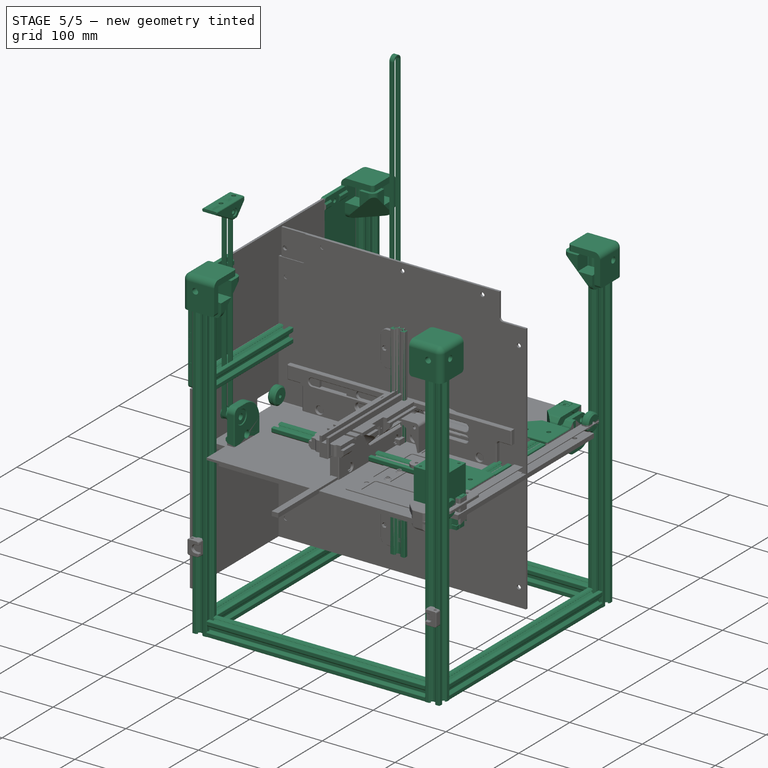
[diagram: stage 5 of 5 — iso view after this stage's code; geometry added in this stage tinted green]
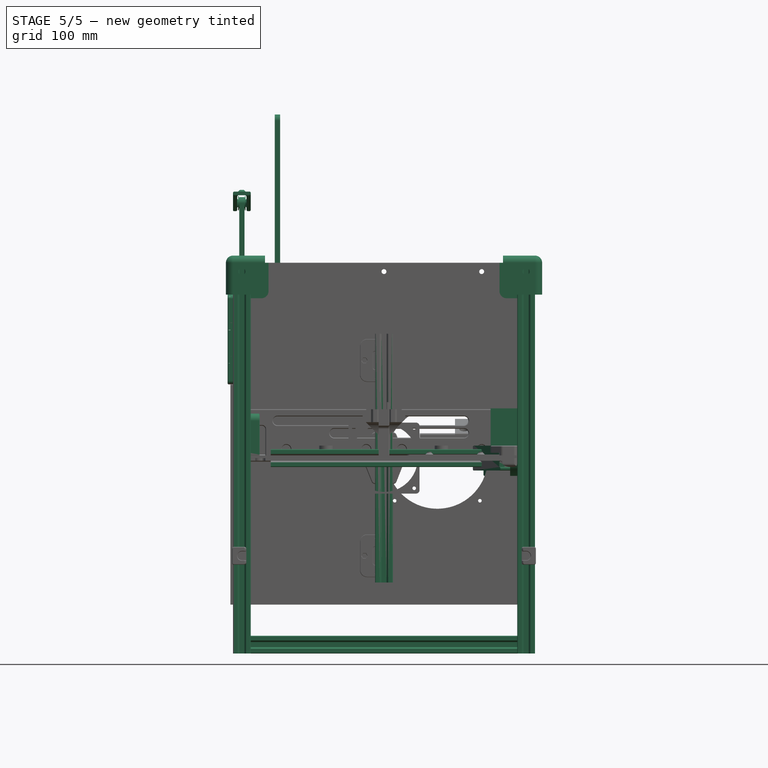
[diagram: stage 5 of 5 — front view after this stage's code; geometry added in this stage tinted green]
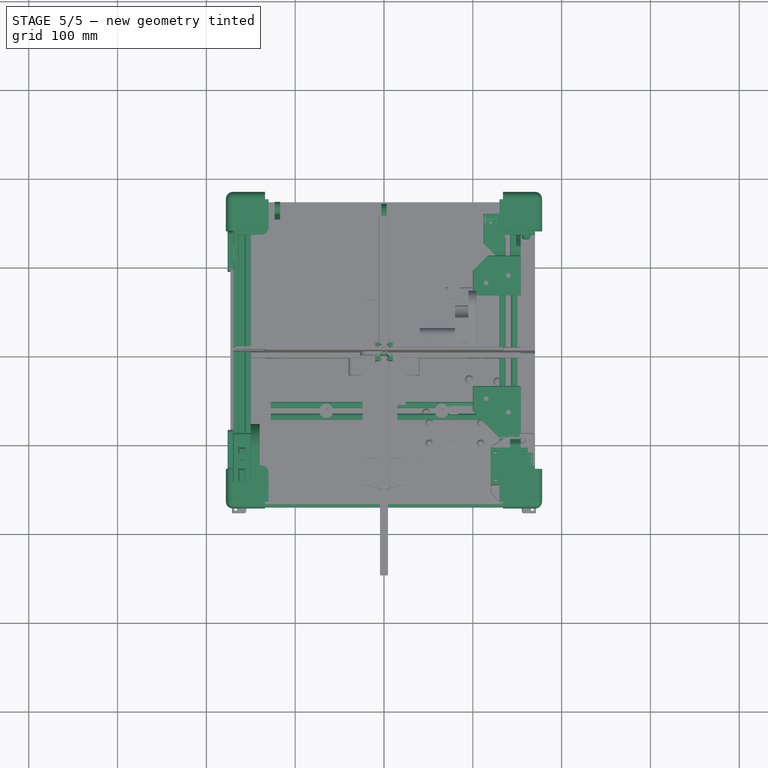
[diagram: stage 5 of 5 — top view after this stage's code; geometry added in this stage tinted green]
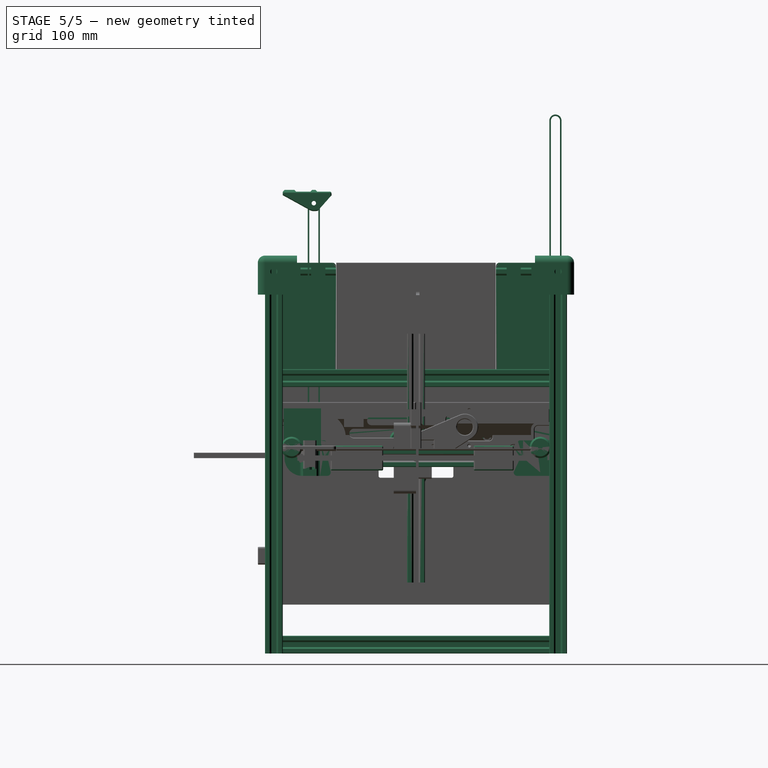
[diagram: stage 5 of 5 — right view after this stage's code; geometry added in this stage tinted green]
FEATURE [App::Link] Link  label="toolhead"
  LinkedObject = -> <external toolhead-integrated.FCStd>#Part002
FEATURE [Spreadsheet::Sheet] Spreadsheet
  cells = A1='x_position; B1(x_position)=0; A2='y_position; B2(y_position)=0; A3='z_position; B3(z_position)=183; A4='build_volume_xy; B4(build_volume_xy)=180; A5='build_volume_z; B5(build_volume_z)=180; A6='bed_hole_distance; B6(bed_hole_distance)=130; A7='xy_gantry_height; B7(xy_gantry_height)==B5 + 130; A8='height; B8(height)==B7 + 130; A9='side_length; B9(side_length)==B4 + 160; A10='xy_idler_distance_2; B10(xy_idler_distance_2)=21.08; A11='v_wheel_width; B11(v_wheel_width)=10.8; A12='m5_nut_width; B12(m5_nut_width)=8; A13='door_angle; B13(door_angle)=0
FEATURE [App::Link] Link001
  LinkPlacement = pos=(-160,160,-210) rot=(0,0,1;0rad)
  LinkedObject = -> <external frame/frame-corner.FCStd>#Body123
  Placement = pos=(-160,160,-210) rot=(0,0,1;0rad)
  expr: .Placement.Base.x = -(Spreadsheet.side_length / 2 - 10)
  expr: .Placement.Base.y = Spreadsheet.side_length / 2 - 10
  expr: .Placement.Base.z = -(Spreadsheet.height / 2 - 10)
FEATURE [Part::FeaturePython] Array  # Draft array (typed FeaturePython)
  AlwaysSyncPlacement = false
  Angle = 360
  ArrayType = 1
  Axis = (0,0,1)
  Base = -> Link001
  Center = (0,0,0)
  Count = 4
  ExpandArray = false
  Fuse = false
  IntervalAxis = (0,0,0)
  IntervalX = (50,0,0)
  IntervalY = (0,50,0)
  IntervalZ = (0,0,50)
  NumberCircles = 3
  NumberPolar = 4
  NumberX = 2
  NumberY = 2
  NumberZ = 1
  PlacementList = 4 placements: [(-160,160,-210),(-160,-160,-210),(160,-160,-210),(160,160,-210)]
  RadialDistance = 50
  ScaleList = (4) [(1,1,1),(1,1,1),(1,1,1),(1,1,1)]
  Symmetry = 1
  TangentialDistance = 25
FEATURE [Part::Mirroring] Part__Mirroring  label="frame-corners-top"
  Base = (0,0,0)
  Normal = (0,0,1)
  Source = -> Array
FEATURE [PartDesign::Mirrored] Mirrored004
  MirrorPlane = -> YZ_Plane006
  Suppressed = false
  TransformMode = 0
FEATURE [PartDesign::Mirrored] Mirrored005
  MirrorPlane = -> XZ_Plane006
  Suppressed = false
  TransformMode = 0
FEATURE [Sketcher::SketchObject] Sketch
  ArcFitTolerance = 0
  AttachmentSupport = -> [XY_Plane005]
  FullyConstrained = true
  MakeInternals = false
  MapMode = 5
  sketch-geometry (22):
    g0: ArcOfCircle CenterX=-9 CenterY=9 CenterZ=0 NormalX=0 NormalY=0 NormalZ=1 AngleXU=0 Radius=1 StartAngle=1.5708 EndAngle=2.35619
    g1: LineSegment StartX=-9 StartY=10 StartZ=0 EndX=-4.90355 EndY=10 EndZ=0
    g2: LineSegment StartX=-4.55 StartY=9.85355 StartZ=0 EndX=-3.12322 EndY=8.42678 EndZ=0
    g3: LineSegment StartX=-3.3 StartY=8 StartZ=0 EndX=-5.75 EndY=8 EndZ=0
    g4: LineSegment StartX=-5.85355 StartY=6.91421 StartZ=0 EndX=-3.08579 EndY=4.14645 EndZ=0
    g5: LineSegment StartX=-2.73223 StartY=4 StartZ=0 EndX=0 EndY=4 EndZ=0
    g6: LineSegment StartX=-6 StartY=7.75 StartZ=0 EndX=-6 EndY=7.26777 EndZ=0
    g7: ArcOfCircle CenterX=-3.3 CenterY=8.25 CenterZ=0 NormalX=0 NormalY=0 NormalZ=1 AngleXU=0 Radius=0.25 StartAngle=4.71239 EndAngle=7.06858
    g8: ArcOfCircle CenterX=-4.90355 CenterY=9.5 CenterZ=0 NormalX=0 NormalY=0 NormalZ=1 AngleXU=0 Radius=0.5 StartAngle=0.785398 EndAngle=1.5708
    g9: GeomPoint [constr] X=-3.05 Y=8.25 Z=0
    g10: ArcOfCircle CenterX=-2.73223 CenterY=4.5 CenterZ=0 NormalX=0 NormalY=0 NormalZ=1 AngleXU=0 Radius=0.5 StartAngle=3.92699 EndAngle=4.71239
    g11: GeomPoint [constr] X=-2.93934 Y=4 Z=0
    g12: ArcOfCircle CenterX=-5.5 CenterY=7.26777 CenterZ=0 NormalX=0 NormalY=0 NormalZ=1 AngleXU=0 Radius=0.5 StartAngle=3.14159 EndAngle=3.92699
    g13: GeomPoint [constr] X=-6 Y=7.06066 Z=0
    g14: ArcOfCircle CenterX=-5.75 CenterY=7.75 CenterZ=0 NormalX=0 NormalY=0 NormalZ=1 AngleXU=0 Radius=0.25 StartAngle=1.5708 EndAngle=3.14159
    g15: GeomPoint [constr] X=-6 Y=8 Z=0
    g16: ArcOfCircle CenterX=0 CenterY=0 CenterZ=0 NormalX=0 NormalY=0 NormalZ=1 AngleXU=0 Radius=2.75 StartAngle=1.5708 EndAngle=2.35619
    g17: GeomPoint [constr] X=0 Y=10 Z=0
    g18: GeomPoint [constr] X=-10 Y=10 Z=0
    g19: LineSegment StartX=-9.70711 StartY=9.70711 StartZ=0 EndX=-1.94454 EndY=1.94454 EndZ=0
    g20: LineSegment StartX=2e-16 StartY=2.75 StartZ=0 EndX=0 EndY=4 EndZ=0
    g21: LineSegment [constr] StartX=-4.46967 StartY=5.53033 StartZ=0 EndX=-5 EndY=5 EndZ=0
  constraints (55):
    c: Radius(g0) = 1
    c: Horizontal(g3)
    c: Parallel(g2,g4)
    c: Vertical(g6)
    c: Tangent(g2,g7) = 1.5708
    c: Tangent(g3,g7) = 1.5708
    c: Tangent(g1,g8) = 1.5708
    c: Tangent(g2,g8) = 1.5708
    c: Radius(g7) = 0.25
    c: Tangent(g1,g0) = 1.5708
    c: PointOnObject(g9,g7)
    c: Horizontal(g9,g7)
    c: PointOnObject(g11,g4)
    c: PointOnObject(g11,g5)
    c: Tangent(g4,g10) = -1.5708
    c: Tangent(g5,g10) = -1.5708
    c: PointOnObject(g13,g4)
    c: PointOnObject(g13,g6)
    c: Tangent(g4,g12) = -1.5708
    c: Tangent(g6,g12) = -1.5708
    c: PointOnObject(g15,g3)
    c: PointOnObject(g15,g6)
    c: Tangent(g3,g14) = -1.5708
    c: Tangent(g6,g14) = -1.5708
    c: Equal(g10,g12)
    c: PointOnObject(g5,g-2)
    c: Coincident(g16,g-1)
    c: PointOnObject(g16,g-2)
    c: PointOnObject(g17,g-2)
    c: PointOnObject(g17,g1)
    c: PointOnObject(g18,g1)
    c: Coincident(g19,g0)
    c: Coincident(g16,g19)
    c: PointOnObject(g0,g19)
    c: PointOnObject(g18,g19)
    c: Parallel(g19,g4)
    c: DistanceX(g18) = -10
    c: DistanceY(g18) = 10
    c: PointOnObject(g16,g19)
    c: Horizontal(g5)
    c: Coincident(g20,g16)
    c: Coincident(g20,g5)
    c: Horizontal(g1)
    c: DistanceX(g15) = -6
    c: DistanceX(g9) = -3.05
    c: DistanceY(g3,g1) = 2
    c: Radius(g10) = 0.5
    c: Radius(g16) = 2.75
    c: DistanceY(g5) = 4
    c: PointOnObject(g21,g4)
    c: Perpendicular(g19,g21)
    c: Distance(g21) = 0.75
    c: Symmetric(g16,g18,g21)
    c: Equal(g14,g7)
    c: Equal(g8,g12)
FEATURE [PartDesign::ShapeBinder] ShapeBinder001
  Support = -> [Sketch]
  TraceSupport = false
FEATURE [PartDesign::Pad] Pad001
  Direction = (0,0,1)
  Length = 440
  Length2 = 10
  Midplane = true
  Profile = -> ShapeBinder001
  Suppressed = false
  Type = 0
  expr: Length = Spreadsheet.height
FEATURE [PartDesign::Mirrored] Mirrored003
  MirrorPlane = -> Pad001 [Face4]
  Suppressed = false
  TransformMode = 0
FEATURE [PartDesign::MultiTransform] MultiTransform001
  BaseFeature = -> Pad001
  Originals = -> [Pad001]
  Refine = true
  Suppressed = false
  TransformMode = 0
  Transformations = -> [Mirrored003,Mirrored004,Mirrored005]
FEATURE [PartDesign::Body] Body001  label="vertical-extrusion"
  AllowCompound = false
  Group = -> [ShapeBinder001,Pad001,MultiTransform001,Mirrored003,Mirrored004,Mirrored005]
  Origin = -> Origin006
  Placement = pos=(160,160,0) rot=(0,0,1;0rad)
  Tip = -> MultiTransform001
  expr: .Placement.Base.x = Spreadsheet.side_length / 2 - 10
  expr: .Placement.Base.y = Spreadsheet.side_length / 2 - 10
FEATURE [PartDesign::Pad] Pad
  Direction = (0,0,1)
  Length = 300
  Length2 = 10
  Midplane = true
  Profile = -> Sketch
  ReferenceAxis = -> Sketch [N_Axis]
  Suppressed = false
  Type = 0
  expr: Length = Spreadsheet.side_length - 40
FEATURE [PartDesign::Mirrored] Mirrored
  MirrorPlane = -> Pad [Face4]
  Suppressed = false
  TransformMode = 0
FEATURE [PartDesign::Mirrored] Mirrored001
  MirrorPlane = -> Sketch [V_Axis]
  Suppressed = false
  TransformMode = 0
FEATURE [PartDesign::Mirrored] Mirrored002
  MirrorPlane = -> XZ_Plane005
  Suppressed = false
  TransformMode = 0
FEATURE [PartDesign::MultiTransform] MultiTransform
  BaseFeature = -> Pad
  Originals = -> [Pad]
  Refine = true
  Suppressed = false
  TransformMode = 0
  Transformations = -> [Mirrored,Mirrored001,Mirrored002]
FEATURE [PartDesign::Body] Body  label="horizontal-extrusion"
  AllowCompound = false
  Group = -> [Sketch,Pad,MultiTransform,Mirrored,Mirrored001,Mirrored002]
  Origin = -> Origin005
  Placement = pos=(0,160,210) rot=(0,1,0;1.5708rad)
  Tip = -> MultiTransform
  expr: .Placement.Base.y = Spreadsheet.side_length / 2 - 10
  expr: .Placement.Base.z = Spreadsheet.height / 2 - 10
FEATURE [Part::FeaturePython] Array001  label="vertical-extrusions"  # Draft array (typed FeaturePython)
  AlwaysSyncPlacement = false
  Angle = 360
  ArrayType = 1
  Axis = (0,0,1)
  Base = -> Body001
  Center = (0,0,0)
  Count = 4
  ExpandArray = false
  Fuse = false
  IntervalAxis = (0,0,0)
  IntervalX = (50,0,0)
  IntervalY = (0,50,0)
  IntervalZ = (0,0,50)
  NumberCircles = 3
  NumberPolar = 4
  NumberX = 2
  NumberY = 2
  NumberZ = 1
  PlacementList = 4 placements: [(160,160,0),(-160,160,0),(-160,-160,0),(160,-160,0)]
  RadialDistance = 50
  ScaleList = (4) [(1,1,1),(1,1,1),(1,1,1),(1,1,1)]
  Symmetry = 1
  TangentialDistance = 25
FEATURE [Part::FeaturePython] Array002  # Draft array (typed FeaturePython)
  AlwaysSyncPlacement = false
  Angle = 360
  ArrayType = 1
  Axis = (0,0,1)
  Base = -> Body
  Center = (0,0,0)
  Count = 4
  ExpandArray = false
  Fuse = false
  IntervalAxis = (0,0,0)
  IntervalX = (50,0,0)
  IntervalY = (0,50,0)
  IntervalZ = (0,0,50)
  NumberCircles = 3
  NumberPolar = 4
  NumberX = 2
  NumberY = 2
  NumberZ = 1
  PlacementList = 4 placements: [(0,160,210),(-160,3.55271e-14,210),(-1.95943e-14,-160,210),(160,-3.55271e-14,210)]
  RadialDistance = 50
  ScaleList = (4) [(1,1,1),(1,1,1),(1,1,1),(1,1,1)]
  Symmetry = 1
  TangentialDistance = 25
FEATURE [Part::Mirroring] Part__Mirroring001  label="horizontal-extrusions-top"
  Base = (0,0,0)
  Normal = (0,0,1)
  Source = -> Array002
FEATURE [App::Link] Link002
  LinkPlacement = pos=(170,170,220) rot=(0,0,1;0rad)
  LinkedObject = -> <external frame/y-extrusion-support.FCStd>#Body156
  Placement = pos=(170,170,220) rot=(0,0,1;0rad)
  expr: .Placement.Base.x = Spreadsheet.side_length / 2
  expr: .Placement.Base.y = Spreadsheet.side_length / 2
  expr: .Placement.Base.z = Spreadsheet.height / 2
FEATURE [Part::Mirroring] Part__Mirroring002  label="Link002 (Mirror #3)"
  Base = (0,0,0)
  Normal = (0,1,0)
  Source = -> Link002
FEATURE [Part::Mirroring] Part__Mirroring003  label="Link002 (Mirror #4)"
  Base = (0,0,0)
  Normal = (1,0,0)
  Source = -> Part__Mirroring002
FEATURE [Part::Mirroring] Part__Mirroring004  label="Link002 (Mirror #5)"
  Base = (0,0,0)
  Normal = (1,0,0)
  Source = -> Link002
FEATURE [App::DocumentObjectGroup] Group001  label="y-extrusion-support-plates"
  Group = -> [Part__Mirroring004,Part__Mirroring003,Link002,Part__Mirroring002]
FEATURE [App::DocumentObjectGroup] Group002  label="horizontal-extrusions"
  Group = -> [Part__Mirroring001,Array002]
FEATURE [App::DocumentObjectGroup] Group003  label="frame-corners"
  Group = -> [Part__Mirroring,Array]
FEATURE [App::Link] Link003  label="y-extrusion"
  LinkPlacement = pos=(160,0,90) rot=(1,0,0;1.5708rad)
  LinkedObject = -> Body
  Placement = pos=(160,0,90) rot=(1,0,0;1.5708rad)
  expr: .Placement.Base.x = Spreadsheet.side_length / 2 - 10
  expr: .Placement.Base.z = Spreadsheet.xy_gantry_height - Spreadsheet.height / 2
FEATURE [Part::Mirroring] Part__Mirroring005  label="y-extrusion (Mirror #6)"
  Base = (0,0,0)
  Normal = (1,0,0)
  Source = -> Link003
FEATURE [App::DocumentObjectGroup] Group004  label="y-extrusions"
  Group = -> [Part__Mirroring005,Link003]
FEATURE [PartDesign::ShapeBinder] ShapeBinder
  Support = -> [Sketch]
  TraceSupport = false
FEATURE [PartDesign::Pad] Pad002
  Direction = (0,0,1)
  Length = 280
  Length2 = 10
  Midplane = true
  Profile = -> ShapeBinder
  Suppressed = false
  Type = 0
  expr: Length = Spreadsheet.side_length - 60
FEATURE [PartDesign::Mirrored] Mirrored006
  MirrorPlane = -> YZ_Plane007
  Suppressed = false
  TransformMode = 0
FEATURE [PartDesign::PolarPattern] PolarPattern
  Angle = 360
  Axis = -> Z_Axis007
  Mode = 0
  Occurrences = 4
  Offset = 120
  Suppressed = false
  TransformMode = 0
FEATURE [PartDesign::MultiTransform] MultiTransform002
  BaseFeature = -> Pad002
  Originals = -> [Pad002]
  Refine = true
  Suppressed = false
  TransformMode = 0
  Transformations = -> [Mirrored006,PolarPattern]
FEATURE [PartDesign::Body] Body002  label="x-extrusion"
  AllowCompound = false
  Group = -> [ShapeBinder,Pad002,MultiTransform002,Mirrored006,PolarPattern]
  Origin = -> Origin007
  Placement = pos=(0,0,0) rot=(0,1,0;1.5708rad)
  Tip = -> MultiTransform002
FEATURE [App::Link] Link004  label="y-carriage-vslot-left"
  LinkPlacement = pos=(-160,0,0) rot=(0,0,1;0rad)
  LinkedObject = -> <external xy-gantry/y-carriages.FCStd>#Part
  Placement = pos=(-160,0,0) rot=(0,0,1;0rad)
  expr: .Placement.Base.x = -(Spreadsheet.side_length / 2 - 10)
FEATURE [App::Link] Link005  label="y-carriage-vslot-right"
  LinkPlacement = pos=(160,0,0) rot=(0,0,1;0rad)
  LinkedObject = -> <external xy-gantry/y-carriages.FCStd>#Part001
  Placement = pos=(160,0,0) rot=(0,0,1;0rad)
  expr: .Placement.Base.x = Spreadsheet.side_length / 2 - 10
FEATURE [App::Link] Link006  label="y-carriage-v-wheel-bottom"
  LinkPlacement = pos=(160,0,-20) rot=(0,0,1;0rad)
  LinkedObject = -> <external standard-stuff.FCStd>#Body033
  Placement = pos=(160,0,-20) rot=(0,0,1;0rad)
  expr: .Placement.Base.x = Spreadsheet.side_length / 2 - 10
FEATURE [Part::Mirroring] Part__Mirroring006  label="y-carriage-v-wheel-bottom (Mirror #7)"
  Base = (0,0,0)
  Normal = (1,0,0)
  Source = -> Link006
FEATURE [App::Link] Link007  label="y-carriage-v-wheel-top"
  LinkPlacement = pos=(160,18,20) rot=(0,0,1;0rad)
  LinkedObject = -> <external standard-stuff.FCStd>#Body033
  Placement = pos=(160,18,20) rot=(0,0,1;0rad)
  expr: .Placement.Base.x = Spreadsheet.side_length / 2 - 10
FEATURE [Part::FeaturePython] Array003  # Draft array (typed FeaturePython)
  AlwaysSyncPlacement = false
  Angle = 360
  ArrayType = 0
  Axis = (0,0,1)
  Base = -> Link007
  Center = (0,0,0)
  Count = 2
  ExpandArray = false
  Fuse = false
  IntervalAxis = (0,0,0)
  IntervalX = (100,0,0)
  IntervalY = (0,-36,0)
  IntervalZ = (0,0,100)
  NumberCircles = 3
  NumberPolar = 5
  NumberX = 1
  NumberY = 2
  NumberZ = 1
  PlacementList = 2 placements: [(160,18,20),(160,-18,20)]
  RadialDistance = 50
  ScaleList = (2) [(1,1,1),(1,1,1)]
  Symmetry = 1
  TangentialDistance = 25
FEATURE [Part::Mirroring] Part__Mirroring007  label="Array003 (Mirror #8)"
  Base = (0,0,0)
  Normal = (1,0,0)
  Source = -> Array003
FEATURE [App::DocumentObjectGroup] Group005  label="y-carriage-v-wheels"
  Group = -> [Link006,Part__Mirroring006,Array003,Part__Mirroring007]
FEATURE [App::DocumentObjectGroup] Group006  label="y-stuff-vslot"
  Group = -> [Link004,Link005,Group005]
FEATURE [App::Link] Link008  label="idler-back-right-top"
  LinkPlacement = pos=(141,160,5) rot=(0,0,1;0rad)
  LinkedObject = -> <external standard-stuff.FCStd>#Body084
  Placement = pos=(141,160,5) rot=(0,0,1;0rad)
  expr: .Placement.Base.x = Spreadsheet.side_length / 2 - 29
  expr: .Placement.Base.y = Spreadsheet.side_length / 2 - 10
FEATURE [Part::Mirroring] Part__Mirroring008  label="idler-back-right-top (Mirror #9)"
  Base = (0,0,0)
  Normal = (0,0,1)
  Source = -> Link008
FEATURE [Part::Mirroring] Part__Mirroring009  label="idler-back-right-top (Mirror #10)"
  Base = (0,0,0)
  Normal = (1,0,0)
  Source = -> Part__Mirroring008
FEATURE [Part::Mirroring] Part__Mirroring010  label="idler-back-right-top (Mirror #11)"
  Base = (0,0,0)
  Normal = (1,0,0)
  Source = -> Link008
FEATURE [App::Link] Link011  label="xy-motor-left"
  LinkPlacement = pos=(-141,-128,14) rot=(0,0,1;0rad)
  LinkedObject = -> <external standard-stuff.FCStd>#Body018
  Placement = pos=(-141,-128,14) rot=(0,0,1;0rad)
  expr: .Placement.Base.x = -(Spreadsheet.side_length / 2 - 29)
  expr: .Placement.Base.y = -(Spreadsheet.side_length / 2 - 42)
FEATURE [Part::Mirroring] Part__Mirroring012  label="xy-motor-right"
  Base = (0,0,0)
  Normal = (1,0,0)
  Source = -> Link011
FEATURE [App::Link] Link012  label="x-carriage-vslot"
  LinkedObject = -> <external xy-gantry/x-carriage.FCStd>#Part
FEATURE [App::Link] Link013  label="z-motion-back-idler-mount-right"
  LinkPlacement = pos=(150,160,420) rot=(0,0,1;0rad)
  LinkedObject = -> <external z-motion/back-idler-mounts.FCStd>#Part
  Placement = pos=(150,160,420) rot=(0,0,1;0rad)
  expr: .Placement.Base.x = Spreadsheet.side_length / 2 - 20
  expr: .Placement.Base.y = Spreadsheet.side_length / 2 - 10
  expr: .Placement.Base.z = Spreadsheet.height - 20
FEATURE [App::Link] Link014  label="z-motion-back-idler-mount-left"
  LinkPlacement = pos=(-150,160,420) rot=(0,0,1;0rad)
  LinkedObject = -> <external z-motion/back-idler-mounts.FCStd>#Part001
  Placement = pos=(-150,160,420) rot=(0,0,1;0rad)
  expr: .Placement.Base.x = -Spreadsheet.side_length / 2 + 20
  expr: .Placement.Base.y = Spreadsheet.side_length / 2 - 10
  expr: .Placement.Base.z = Spreadsheet.height - 20
FEATURE [Sketcher::SketchObject] Sketch113
  ArcFitTolerance = 0
  AttachmentSupport = -> [YZ_Plane213]
  FullyConstrained = true
  MakeInternals = false
  MapMode = 5
  Placement = pos=(0,0,0) rot=(0.57735,0.57735,0.57735;2.0944rad)
  sketch-geometry (1):
    g0: Circle CenterX=0 CenterY=0 CenterZ=0 NormalX=0 NormalY=0 NormalZ=1 AngleXU=0 Radius=4
  constraints (2):
    c: Coincident(g0,g-1)
    c: Diameter(g0) = 8
FEATURE [PartDesign::Pad] Pad033
  Direction = (1,0,0)
  Length = 250
  Length2 = 10
  Midplane = true
  Placement = pos=(0,0,0) rot=(1,1,1;2.0944rad)
  Profile = -> Sketch113
  ReferenceAxis = -> Sketch113 [N_Axis]
  Suppressed = false
  Type = 0
  expr: Length = Spreadsheet.side_length - 90
FEATURE [PartDesign::Body] Body079  label="z-motion-back-rod"
  AllowCompound = false
  Group = -> [Sketch113,Pad033]
  Origin = -> Origin213
  Placement = pos=(0,157,35) rot=(0,0,1;0rad)
  Tip = -> Pad033
  expr: .Placement.Base.y = Spreadsheet.side_length / 2 - 13
FEATURE [App::Link] Link015  label="z-motion-back-bearing-block-right"
  LinkPlacement = pos=(130,170,0) rot=(0,0,1;0rad)
  LinkedObject = -> <external z-motion/back-bearing-block-right.FCStd>#Part
  Placement = pos=(130,170,0) rot=(0,0,1;0rad)
  expr: .Placement.Base.x = Spreadsheet.side_length / 2 - 40
  expr: .Placement.Base.y = Spreadsheet.side_length / 2
FEATURE [App::DocumentObjectGroup] Group014  label="z-motion-back-idlers"
  Group = -> [Link013,Link014]
FEATURE [App::Link] Link016  label="z-motion-back-bearing-block-left"
  LinkPlacement = pos=(-100,150,20) rot=(0,0,1;0rad)
  LinkedObject = -> <external z-motion/back-bearing-block-left.FCStd>#Part
  Placement = pos=(-100,150,20) rot=(0,0,1;0rad)
  expr: .Placement.Base.x = -(Spreadsheet.side_length / 2 - 70)
  expr: .Placement.Base.y = Spreadsheet.side_length / 2 - 20
FEATURE [App::DocumentObjectGroup] Group013  label="z-motion-back-bearings"
  Group = -> [Link015,Link016]
FEATURE [App::Link] Link017  label="mid-drivetrain"
  LinkPlacement = pos=(-150,150,0) rot=(0,0,1;0rad)
  LinkedObject = -> <external z-motion/mid-drivetrain.FCStd>#Part
  Placement = pos=(-150,150,0) rot=(0,0,1;0rad)
  expr: .Placement.Base.x = -(Spreadsheet.side_length / 2 - 20)
  expr: .Placement.Base.y = Spreadsheet.side_length / 2 - 20
FEATURE [Sketcher::SketchObject] Sketch097
  ArcFitTolerance = 0
  AttachmentSupport = -> [YZ_Plane204]
  FullyConstrained = true
  MakeInternals = false
  MapMode = 5
  Placement = pos=(0,0,0) rot=(0.57735,0.57735,0.57735;2.0944rad)
  sketch-geometry (1):
    g0: Circle CenterX=0 CenterY=0 CenterZ=0 NormalX=0 NormalY=0 NormalZ=1 AngleXU=0 Radius=4
  constraints (2):
    c: Coincident(g0,g-1)
    c: Diameter(g0) = 8
FEATURE [PartDesign::Pad] Pad028
  Direction = (1,0,0)
  Length = 330
  Length2 = 10
  Midplane = true
  Placement = pos=(0,0,0) rot=(1,1,1;2.0944rad)
  Profile = -> Sketch097
  ReferenceAxis = -> Sketch097 [N_Axis]
  Suppressed = false
  Type = 0
  expr: Length = Spreadsheet.side_length - 10
FEATURE [PartDesign::Body] Body070  label="z-motion-front-rod"
  AllowCompound = false
  Group = -> [Sketch097,Pad028]
  Origin = -> Origin204
  Placement = pos=(0,-115,35) rot=(0,0,1;0rad)
  Tip = -> Pad028
  expr: .Placement.Base.y = -(Spreadsheet.side_length / 2 - 55)
FEATURE [App::Link] Link018  label="z-motion-front-bearing-block-right"
  LinkPlacement = pos=(150,-115,0) rot=(0,0,1;0rad)
  LinkedObject = -> <external z-motion/front-bearing-block-right.FCStd>#Part
  Placement = pos=(150,-115,0) rot=(0,0,1;0rad)
  expr: .Placement.Base.x = Spreadsheet.side_length / 2 - 20
  expr: .Placement.Base.y = -Spreadsheet.side_length / 2 + 55
FEATURE [Part::Mirroring] Part__Mirroring013  label="z-motion-front-bearing-block-left"
  Base = (0,0,0)
  Normal = (1,0,0)
  Source = -> Link018
FEATURE [App::Link] Link019  label="z-motion-front-idler-mount-right"
  LinkPlacement = pos=(160,-115,300) rot=(0,0,1;0rad)
  LinkedObject = -> <external z-motion/front-idler-mount-right.FCStd>#Part
  Placement = pos=(160,-115,300) rot=(0,0,1;0rad)
  expr: .Placement.Base.x = Spreadsheet.side_length / 2 - 10
  expr: .Placement.Base.y = -Spreadsheet.side_length / 2 + 55
  expr: .Placement.Base.z = Spreadsheet.xy_gantry_height - 10
FEATURE [Part::Mirroring] Part__Mirroring014  label="z-motion-front-idler-mount-left"
  Base = (0,0,0)
  Normal = (1,0,0)
  Source = -> Link019
FEATURE [Sketcher::SketchObject] Sketch137
  ArcFitTolerance = 0
  AttachmentSupport = -> [YZ_Plane229]
  FullyConstrained = true
  MakeInternals = false
  MapMode = 5
  Placement = pos=(0,0,0) rot=(0.57735,0.57735,0.57735;2.0944rad)
  expr: Constraints[4] = -(Spreadsheet.side_length / 2 - 55)
  expr: Constraints[5] = Spreadsheet.xy_gantry_height - 10 - 13
  sketch-geometry (11):
    g0: Circle [constr] CenterX=-115 CenterY=35 CenterZ=0 NormalX=0 NormalY=0 NormalZ=1 AngleXU=0 Radius=6.1
    g1: Circle [constr] CenterX=-115 CenterY=287 CenterZ=0 NormalX=0 NormalY=0 NormalZ=1 AngleXU=0 Radius=6.1
    g2: ArcOfCircle CenterX=-115 CenterY=35 CenterZ=0 NormalX=0 NormalY=0 NormalZ=1 AngleXU=0 Radius=5.1 StartAngle=3.14159 EndAngle=6.28319
    g3: GeomPoint [constr] X=-108.9 Y=35 Z=0
    g4: ArcOfCircle CenterX=-115 CenterY=35 CenterZ=0 NormalX=0 NormalY=0 NormalZ=1 AngleXU=0 Radius=6.85 StartAngle=3.14159 EndAngle=6.28319
    g5: LineSegment StartX=-120.1 StartY=35 StartZ=0 EndX=-120.1 EndY=287 EndZ=0
    g6: LineSegment StartX=-121.85 StartY=35 StartZ=0 EndX=-121.85 EndY=287 EndZ=0
    g7: LineSegment StartX=-109.9 StartY=35 StartZ=0 EndX=-109.9 EndY=287 EndZ=0
    g8: LineSegment StartX=-108.15 StartY=287 StartZ=0 EndX=-108.15 EndY=35 EndZ=0
    g9: ArcOfCircle CenterX=-115 CenterY=287 CenterZ=0 NormalX=0 NormalY=0 NormalZ=1 AngleXU=0 Radius=5.1 StartAngle=6.28318 EndAngle=9.42478
    g10: ArcOfCircle CenterX=-115 CenterY=287 CenterZ=0 NormalX=0 NormalY=0 NormalZ=1 AngleXU=0 Radius=6.85 StartAngle=6.28318 EndAngle=9.42478
  constraints (32):
    c: Equal(g1,g0)
    c: Diameter(g0) = 12.2
    c: Vertical(g0,g1)
    c: DistanceY(g0) = 35
    c: DistanceX(g0) = -115
    c: DistanceY(g1) = 287
    c: Coincident(g2,g0)
    c: PointOnObject(g3,g0)
    c: Horizontal(g3,g2)
    c: Horizontal(g3,g2)
    c: DistanceX(g2,g3) = 1
    c: Coincident(g4,g2)
    c: DistanceX(g3,g4) = 0.75
    c: Horizontal(g4,g3)
    c: Horizontal(g2,g4)
    c: Horizontal(g4,g2)
    c: Coincident(g5,g2)
    c: Vertical(g5)
    c: Coincident(g6,g4)
    c: Vertical(g6)
    c: Coincident(g7,g2)
    c: Vertical(g7)
    c: Coincident(g8,g4)
    c: Vertical(g8)
    c: Coincident(g9,g1)
    c: Coincident(g9,g7)
    c: Coincident(g9,g5)
    c: Coincident(g10,g9)
    c: Coincident(g10,g6)
    c: Coincident(g10,g8)
    c: Horizontal(g9,g5)
    c: Horizontal(g5,g6)
FEATURE [PartDesign::Pad] Pad041
  Direction = (1,0,0)
  Length = 6
  Length2 = 10
  Midplane = true
  Placement = pos=(0,0,0) rot=(1,1,1;2.0944rad)
  Profile = -> Sketch137
  ReferenceAxis = -> Sketch137 [N_Axis]
  Suppressed = false
  Type = 0
FEATURE [PartDesign::Body] Body095  label="z-motion-front-belt-right"
  AllowCompound = false
  Group = -> [Sketch137,Pad041]
  Origin = -> Origin229
  Placement = pos=(160,0,0) rot=(0,0,1;0rad)
  Tip = -> Pad041
  expr: .Placement.Base.x = Spreadsheet.side_length / 2 - 10
FEATURE [Part::Mirroring] Part__Mirroring015  label="z-motion-front-belt-left"
  Base = (0,0,0)
  Normal = (1,0,0)
  Source = -> Body095
FEATURE [App::DocumentObjectGroup] Group016  label="z-motion-front-belts"
  Group = -> [Body095,Part__Mirroring015]
FEATURE [Sketcher::SketchObject] Sketch138
  ArcFitTolerance = 0
  AttachmentSupport = -> [YZ_Plane230]
  FullyConstrained = true
  MakeInternals = false
  MapMode = 5
  Placement = pos=(0,0,0) rot=(0.57735,0.57735,0.57735;2.0944rad)
  expr: Constraints[3] = Spreadsheet.side_length / 2 - 13
  expr: Constraints[5] = Spreadsheet.height - 60
  sketch-geometry (11):
    g0: Circle [constr] CenterX=157 CenterY=35 CenterZ=0 NormalX=0 NormalY=0 NormalZ=1 AngleXU=0 Radius=6.1
    g1: Circle [constr] CenterX=157 CenterY=380 CenterZ=0 NormalX=0 NormalY=0 NormalZ=1 AngleXU=0 Radius=6.1
    g2: ArcOfCircle CenterX=157 CenterY=35 CenterZ=0 NormalX=0 NormalY=0 NormalZ=1 AngleXU=0 Radius=5.1 StartAngle=3.14159 EndAngle=6.28319
    g3: ArcOfCircle CenterX=157 CenterY=35 CenterZ=0 NormalX=0 NormalY=0 NormalZ=1 AngleXU=0 Radius=6.85 StartAngle=3.14159 EndAngle=6.28319
    g4: GeomPoint [constr] X=163.1 Y=35 Z=0
    g5: LineSegment StartX=162.1 StartY=35 StartZ=0 EndX=162.1 EndY=380 EndZ=0
    g6: LineSegment StartX=163.85 StartY=35 StartZ=0 EndX=163.85 EndY=380 EndZ=0
    g7: ArcOfCircle CenterX=157 CenterY=380 CenterZ=0 NormalX=0 NormalY=0 NormalZ=1 AngleXU=0 Radius=5.1 StartAngle=-3.6e-15 EndAngle=3.14159
    g8: ArcOfCircle CenterX=157 CenterY=380 CenterZ=0 NormalX=0 NormalY=0 NormalZ=1 AngleXU=0 Radius=6.85 StartAngle=4e-16 EndAngle=3.14159
    g9: LineSegment StartX=151.9 StartY=380 StartZ=0 EndX=151.9 EndY=35 EndZ=0
    g10: LineSegment StartX=150.15 StartY=35 StartZ=0 EndX=150.15 EndY=380 EndZ=0
  constraints (30):
    c: Equal(g1,g0)
    c: Vertical(g0,g1)
    c: Diameter(g0) = 12.2
    c: DistanceX(g0) = 157
    c: DistanceY(g0) = 35
    c: DistanceY(g1) = 380
    c: Coincident(g2,g0)
    c: Horizontal(g2,g2)
    c: Horizontal(g2,g2)
    c: Coincident(g3,g2)
    c: Horizontal(g3,g3)
    c: Horizontal(g3,g2)
    c: PointOnObject(g4,g0)
    c: Horizontal(g4,g2)
    c: DistanceX(g2,g4) = 1
    c: DistanceX(g4,g3) = 0.75
    c: Coincident(g5,g2)
    c: Vertical(g5)
    c: Coincident(g6,g3)
    c: Vertical(g6)
    c: Coincident(g7,g1)
    c: Tangent(g7,g5) = -1.5708
    c: Coincident(g8,g7)
    c: Tangent(g6,g8) = -1.5708
    c: Coincident(g9,g7)
    c: Coincident(g9,g2)
    c: Vertical(g9)
    c: Coincident(g10,g3)
    c: Coincident(g10,g8)
    c: Vertical(g10)
FEATURE [PartDesign::Pad] Pad042
  Direction = (1,0,0)
  Length = 6
  Length2 = 10
  Midplane = true
  Placement = pos=(0,0,0) rot=(1,1,1;2.0944rad)
  Profile = -> Sketch138
  ReferenceAxis = -> Sketch138 [N_Axis]
  Suppressed = false
  Type = 0
FEATURE [PartDesign::Body] Body096  label="z-motion-back-belt-right"
  AllowCompound = false
  Group = -> [Sketch138,Pad042]
  Origin = -> Origin230
  Placement = pos=(120,0,0) rot=(0,0,1;0rad)
  Tip = -> Pad042
  expr: .Placement.Base.x = Spreadsheet.side_length / 2 - 50
FEATURE [Part::Mirroring] Part__Mirroring016  label="z-motion-back-belt-left"
  Base = (0,0,0)
  Normal = (1,0,0)
  Source = -> Body096
FEATURE [App::DocumentObjectGroup] Group015  label="z-motion-back-belts"
  Group = -> [Body096,Part__Mirroring016]
FEATURE [App::Link] Link020  label="z-motion-back-pulley-32t"
  LinkPlacement = pos=(-80,157,35) rot=(0,0,1;1.5708rad)
  LinkedObject = -> <external standard-stuff.FCStd>#Group001 [Body103.]
  Placement = pos=(-80,157,35) rot=(0,0,1;1.5708rad)
  expr: .Placement.Base.x = -Spreadsheet.side_length / 2 + 90
  expr: .Placement.Base.y = Spreadsheet.side_length / 2 - 13
FEATURE [App::DocumentObjectGroup] Group011  label="back"
  Group = -> [Body079,Group013,Group014,Group015,Link020]
FEATURE [App::Link] Link021  label="z-motion-front-pulley-32t"
  LinkPlacement = pos=(-80,-115,35) rot=(0,0,1;1.5708rad)
  LinkedObject = -> <external standard-stuff.FCStd>#Group001 [Body103.]
  Placement = pos=(-80,-115,35) rot=(0,0,1;1.5708rad)
  expr: .Placement.Base.x = -Spreadsheet.side_length / 2 + 90
  expr: .Placement.Base.y = -Spreadsheet.side_length / 2 + 55
FEATURE [Sketcher::SketchObject] Sketch168
  ArcFitTolerance = 0
  AttachmentSupport = -> [YZ_Plane243]
  FullyConstrained = false
  MakeInternals = false
  MapMode = 5
  Placement = pos=(0,0,0) rot=(0.57735,0.57735,0.57735;2.0944rad)
  expr: Constraints[0] = Spreadsheet.side_length / 2 - 90
  expr: Constraints[13] = -(Spreadsheet.side_length / 2 - 55)
  expr: Constraints[14] = Spreadsheet.side_length / 2 - 13
  sketch-geometry (31):
    g0: Circle [constr] CenterX=-115 CenterY=35 CenterZ=0 NormalX=0 NormalY=0 NormalZ=1 AngleXU=0 Radius=9.93
    g1: Circle [constr] CenterX=157 CenterY=35 CenterZ=0 NormalX=0 NormalY=0 NormalZ=1 AngleXU=0 Radius=9.93
    g2: Circle [constr] CenterX=80 CenterY=25 CenterZ=0 NormalX=0 NormalY=0 NormalZ=1 AngleXU=0 Radius=4.75
    g3: Circle [constr] CenterX=97 CenterY=30 CenterZ=0 NormalX=0 NormalY=0 NormalZ=1 AngleXU=0 Radius=6.5
    g4: Circle [constr] CenterX=63 CenterY=30 CenterZ=0 NormalX=0 NormalY=0 NormalZ=1 AngleXU=0 Radius=6.5
    g5: GeomPoint [constr] X=80 Y=30 Z=0
    g6: ArcOfCircle CenterX=-115 CenterY=35 CenterZ=0 NormalX=0 NormalY=0 NormalZ=1 AngleXU=0 Radius=8.93 StartAngle=1.5708 EndAngle=4.78094
    g7: ArcOfCircle CenterX=-115 CenterY=35 CenterZ=0 NormalX=0 NormalY=0 NormalZ=1 AngleXU=0 Radius=10.68 StartAngle=1.5708 EndAngle=4.78094
    g8: GeomPoint [constr] X=-115 Y=44.93 Z=0
    g9: LineSegment StartX=-114.268 StartY=24.3451 StartZ=0 EndX=62.5548 EndY=36.4847 EndZ=0
    g10: LineSegment StartX=-114.388 StartY=26.091 StartZ=0 EndX=62.4349 EndY=38.2306 EndZ=0
    g11: ArcOfCircle CenterX=63 CenterY=30 CenterZ=0 NormalX=0 NormalY=0 NormalZ=1 AngleXU=0 Radius=6.5 StartAngle=0.540795 EndAngle=1.63934
    g12: ArcOfCircle CenterX=63 CenterY=30 CenterZ=0 NormalX=0 NormalY=0 NormalZ=1 AngleXU=0 Radius=8.25 StartAngle=0.540795 EndAngle=1.63934
    g13: LineSegment StartX=70.0727 StartY=34.2472 StartZ=0 EndX=76.7851 EndY=23.0694 EndZ=0
    g14: LineSegment StartX=68.5724 StartY=33.3463 StartZ=0 EndX=75.2849 EndY=22.1685 EndZ=0
    g15: ArcOfCircle CenterX=80 CenterY=25 CenterZ=0 NormalX=0 NormalY=0 NormalZ=1 AngleXU=0 Radius=3.75 StartAngle=3.68239 EndAngle=5.74239
    g16: ArcOfCircle CenterX=80 CenterY=25 CenterZ=0 NormalX=0 NormalY=0 NormalZ=1 AngleXU=0 Radius=5.5 StartAngle=3.68239 EndAngle=5.74239
    g17: GeomPoint [constr] X=80 Y=20.25 Z=0
    g18: GeomPoint [constr] X=80 Y=21.25 Z=0
    g19: LineSegment StartX=84.7151 StartY=22.1685 StartZ=0 EndX=91.4276 EndY=33.3463 EndZ=0
    g20: LineSegment StartX=83.2149 StartY=23.0694 StartZ=0 EndX=89.9273 EndY=34.2472 EndZ=0
    g21: ArcOfCircle CenterX=97 CenterY=30 CenterZ=0 NormalX=0 NormalY=0 NormalZ=1 AngleXU=0 Radius=6.5 StartAngle=1.36457 EndAngle=2.6008
    g22: ArcOfCircle CenterX=97 CenterY=30 CenterZ=0 NormalX=0 NormalY=0 NormalZ=1 AngleXU=0 Radius=8.25 StartAngle=1.36457 EndAngle=2.6008
    g23: LineSegment StartX=98.331 StartY=36.3623 StartZ=0 EndX=154.813 EndY=24.5463 EndZ=0
    g24: LineSegment StartX=98.6893 StartY=38.0752 StartZ=0 EndX=155.171 EndY=26.2592 EndZ=0
    g25: ArcOfCircle CenterX=157 CenterY=35 CenterZ=0 NormalX=0 NormalY=0 NormalZ=1 AngleXU=0 Radius=8.93 StartAngle=4.50616 EndAngle=7.85398
    g26: ArcOfCircle CenterX=157 CenterY=35 CenterZ=0 NormalX=0 NormalY=0 NormalZ=1 AngleXU=0 Radius=10.68 StartAngle=4.50616 EndAngle=7.85398
    g27: LineSegment StartX=157 StartY=43.93 StartZ=0 EndX=-115 EndY=43.93 EndZ=0
    g28: LineSegment StartX=-115 StartY=45.68 StartZ=0 EndX=157 EndY=45.68 EndZ=0
    g29: LineSegment [constr] StartX=-106.078 StartY=46.712 StartZ=0 EndX=149.922 EndY=46.712 EndZ=0
    g30: LineSegment [constr] StartX=62.8347 StartY=47.5455 StartZ=0 EndX=86.8427 EndY=47.5455 EndZ=0
  constraints (71):
    c: DistanceX(g2) = 80
    c: DistanceY(g2) = 25
    c: Diameter(g2) = 9.5
    c: Symmetric(g3,g4,g5)
    c: Horizontal(g4,g3)
    c: Vertical(g5,g2)
    c: Equal(g4,g3)
    c: DistanceX(g4,g3) = 34
    c: DistanceY(g3) = 30
    c: Diameter(g3) = 13
    c: Horizontal(g1,g0)
    c: DistanceY(g0) = 35
    c: Diameter(g0) = 19.86
    c: DistanceX(g0) = -115
    c: DistanceX(g1) = 157
    c: Equal(g1,g0)
    c: Coincident(g6,g0)
    c: Coincident(g7,g6)
    c: PointOnObject(g8,g0)
    c: Vertical(g6,g8)
    c: Vertical(g8,g7)
    c: Vertical(g7,g6)
    c: DistanceY(g6,g8) = 1
    c: DistanceY(g8,g7) = 0.75
    c: PointOnObject(g9,g4)
    c: Tangent(g9,g4)
    c: Coincident(g11,g4)
    c: Coincident(g11,g9)
    c: Coincident(g12,g11)
    c: Coincident(g15,g2)
    c: Coincident(g16,g15)
    c: Tangent(g10,g6) = -1.5708
    c: Tangent(g9,g7) = -1.5708
    c: Parallel(g10,g9)
    c: Tangent(g12,g10) = 1.5708
    c: Tangent(g13,g12) = 1.5708
    c: Tangent(g14,g11) = 1.5708
    c: Parallel(g14,g13)
    c: Tangent(g15,g13) = -1.5708
    c: Tangent(g16,g14) = -1.5708
    c: PointOnObject(g17,g2)
    c: PointOnObject(g18,g15)
    c: Vertical(g17,g18)
    c: Vertical(g18,g15)
    c: DistanceY(g17,g18) = 1
    c: PointOnObject(g19,g3)
    c: Tangent(g19,g3)
    c: Tangent(g19,g16) = -1.5708
    c: Tangent(g20,g15) = -1.5708
    c: Parallel(g19,g20)
    c: Coincident(g21,g3)
    c: Coincident(g21,g19)
    c: Coincident(g22,g21)
    c: Tangent(g22,g20) = 1.5708
    c: Coincident(g23,g21)
    c: Tangent(g23,g3)
    c: Tangent(g24,g22) = 1.5708
    c: Parallel(g23,g24)
    c: Coincident(g25,g1)
    c: Coincident(g26,g25)
    c: Tangent(g26,g23) = -1.5708
    c: Tangent(g25,g24) = -1.5708
    c: Coincident(g27,g6)
    c: Horizontal(g27)
    c: Coincident(g28,g7)
    c: Coincident(g28,g26)
    c: Horizontal(g28)
    c: Tangent(g27,g25) = -1.5708
    c: Horizontal(g29)
    c: DistanceX(g29,g29) = 256
    c: Horizontal(g30)
FEATURE [PartDesign::Pad] Pad048
  Direction = (1,0,0)
  Length = 6
  Length2 = 10
  Midplane = true
  Placement = pos=(0,0,0) rot=(1,1,1;2.0944rad)
  Profile = -> Sketch168
  ReferenceAxis = -> Sketch168 [N_Axis]
  Suppressed = false
  Type = 0
FEATURE [PartDesign::Body] Body110  label="z-motion-mid-belt"
  AllowCompound = false
  Group = -> [Sketch168,Pad048]
  Origin = -> Origin244
  Placement = pos=(-80,0,0) rot=(0,0,1;0rad)
  Tip = -> Pad048
  expr: .Placement.Base.x = -(Spreadsheet.side_length / 2 - 90)
FEATURE [App::DocumentObjectGroup] Group012  label="mid"
  Group = -> [Link017,Body110]
FEATURE [Sketcher::SketchObject] Sketch011  label="belt-sketch"
  ArcFitTolerance = 0
  AttachmentSupport = -> [XY_Plane021]
  FullyConstrained = true
  MakeInternals = false
  MapMode = 5
  expr: Constraints[5] = -(Spreadsheet.side_length / 2 - 20)
  expr: Constraints[6] = Spreadsheet.side_length / 2 - 20
  expr: Constraints[70] = Spreadsheet.x_position
  expr: Constraints[74] = Spreadsheet.y_position + 30
  sketch-geometry (36):
    g0: Circle [constr] CenterX=-141 CenterY=-128 CenterZ=0 NormalX=0 NormalY=0 NormalZ=1 AngleXU=0 Radius=6.1
    g1: Circle [constr] CenterX=-141 CenterY=49 CenterZ=0 NormalX=0 NormalY=0 NormalZ=1 AngleXU=0 Radius=6.1
    g2: Circle [constr] CenterX=-141 CenterY=160 CenterZ=0 NormalX=0 NormalY=0 NormalZ=1 AngleXU=0 Radius=6.1
    g3: Circle [constr] CenterX=141 CenterY=49 CenterZ=0 NormalX=0 NormalY=0 NormalZ=1 AngleXU=0 Radius=6.1
    g4: Circle [constr] CenterX=141 CenterY=160 CenterZ=0 NormalX=0 NormalY=0 NormalZ=1 AngleXU=0 Radius=6.1
    g5: GeomPoint [constr] X=-150 Y=150 Z=0
    g6: GeomPoint [constr] X=-150 Y=-150 Z=0
    g7: GeomPoint [constr] X=-150 Y=30 Z=0
    g8: GeomPoint [constr] X=-128.17 Y=49 Z=0
    g9: LineSegment StartX=-135.65 StartY=-128 StartZ=0 EndX=-135.65 EndY=11 EndZ=0
    g10: LineSegment StartX=-134.27 StartY=11 StartZ=0 EndX=-134.27 EndY=-128 EndZ=0
    g11: GeomPoint [constr] X=-134.9 Y=-128 Z=0
    g12: ArcOfCircle CenterX=-128.17 CenterY=11 CenterZ=0 NormalX=0 NormalY=0 NormalZ=1 AngleXU=0 Radius=6.1 StartAngle=1.5708 EndAngle=3.14159
    g13: ArcOfCircle CenterX=-128.17 CenterY=11 CenterZ=0 NormalX=0 NormalY=0 NormalZ=1 AngleXU=0 Radius=7.48 StartAngle=1.5708 EndAngle=3.14159
    g14: LineSegment StartX=-128.17 StartY=17.1 StartZ=0 EndX=0 EndY=17.1 EndZ=0
    g15: LineSegment StartX=-128.17 StartY=18.48 StartZ=0 EndX=0 EndY=18.48 EndZ=0
    g16: LineSegment StartX=0 StartY=18.48 StartZ=0 EndX=0 EndY=17.1 EndZ=0
    g17: ArcOfCircle CenterX=-141 CenterY=-128 CenterZ=0 NormalX=0 NormalY=0 NormalZ=1 AngleXU=0 Radius=5.35 StartAngle=3.14159 EndAngle=6.28319
    g18: ArcOfCircle CenterX=-141 CenterY=-128 CenterZ=0 NormalX=0 NormalY=0 NormalZ=1 AngleXU=0 Radius=6.73 StartAngle=3.14159 EndAngle=6.28319
    g19: LineSegment StartX=-146.35 StartY=-128 StartZ=0 EndX=-146.35 EndY=160 EndZ=0
    g20: LineSegment StartX=-147.73 StartY=160 StartZ=0 EndX=-147.73 EndY=-128 EndZ=0
    g21: ArcOfCircle CenterX=-141 CenterY=160 CenterZ=0 NormalX=0 NormalY=0 NormalZ=1 AngleXU=0 Radius=5.35 StartAngle=1.5708 EndAngle=3.14159
    g22: ArcOfCircle CenterX=-141 CenterY=160 CenterZ=0 NormalX=0 NormalY=0 NormalZ=1 AngleXU=0 Radius=6.73 StartAngle=1.5708 EndAngle=3.14159
    g23: LineSegment StartX=-141 StartY=165.35 StartZ=0 EndX=141 EndY=165.35 EndZ=0
    g24: LineSegment StartX=141 StartY=166.73 StartZ=0 EndX=-141 EndY=166.73 EndZ=0
    g25: ArcOfCircle CenterX=141 CenterY=160 CenterZ=0 NormalX=0 NormalY=0 NormalZ=1 AngleXU=0 Radius=5.35 StartAngle=-1.8e-15 EndAngle=1.5708
    g26: ArcOfCircle CenterX=141 CenterY=160 CenterZ=0 NormalX=0 NormalY=0 NormalZ=1 AngleXU=0 Radius=6.73 StartAngle=1.9e-15 EndAngle=1.5708
    g27: LineSegment StartX=146.35 StartY=160 StartZ=0 EndX=146.35 EndY=49 EndZ=0
    g28: LineSegment StartX=147.73 StartY=49 StartZ=0 EndX=147.73 EndY=160 EndZ=0
    g29: ArcOfCircle CenterX=141 CenterY=49 CenterZ=0 NormalX=0 NormalY=0 NormalZ=1 AngleXU=0 Radius=5.35 StartAngle=4.71239 EndAngle=6.28319
    g30: ArcOfCircle CenterX=141 CenterY=49 CenterZ=0 NormalX=0 NormalY=0 NormalZ=1 AngleXU=0 Radius=6.73 StartAngle=4.71239 EndAngle=6.28319
    g31: LineSegment StartX=141 StartY=42.27 StartZ=0 EndX=0 EndY=42.27 EndZ=0
    g32: LineSegment StartX=0 StartY=43.65 StartZ=0 EndX=141 EndY=43.65 EndZ=0
    g33: LineSegment StartX=0 StartY=43.65 StartZ=0 EndX=0 EndY=42.27 EndZ=0
    g34: GeomPoint [constr] X=-128.17 Y=30 Z=0
    g35: Circle [constr] CenterX=-128.17 CenterY=11 CenterZ=0 NormalX=0 NormalY=0 NormalZ=1 AngleXU=0 Radius=6.1
  constraints (82):
    c: Equal(g4,g3)
    c: Equal(g3,g1)
    c: Equal(g1,g2)
    c: Diameter(g0) = 12.2
    c: Symmetric(g2,g4,g-2)
    c: DistanceX(g5) = -150
    c: DistanceY(g5) = 150
    c: DistanceY(g5,g2) = 10
    c: Vertical(g2,g1)
    c: Vertical(g1,g0)
    c: Symmetric(g6,g5,g-1)
    c: DistanceY(g6,g0) = 22
    c: DistanceX(g6,g0) = 9
    c: Vertical(g7,g6)
    c: Horizontal(g8,g1)
    c: DistanceY(g7,g8) = 19
    c: Symmetric(g3,g1,g-2)
    c: Vertical(g9)
    c: Vertical(g10)
    c: Horizontal(g10,g9)
    c: Horizontal(g9,g0)
    c: PointOnObject(g11,g0)
    c: Horizontal(g11,g0)
    c: DistanceX(g9,g11) = 0.75
    c: DistanceX(g9,g10) = 1.38
    c: Horizontal(g9,g10)
    c: Coincident(g13,g12)
    c: Coincident(g13,g9)
    c: Horizontal(g14)
    c: Horizontal(g15)
    c: Coincident(g16,g15)
    c: Coincident(g16,g14)
    c: Tangent(g15,g13) = 1.5708
    c: Coincident(g17,g0)
    c: Coincident(g17,g9)
    c: Coincident(g18,g17)
    c: Coincident(g18,g10)
    c: Vertical(g19)
    c: Vertical(g20)
    c: Tangent(g19,g17) = 1.5708
    c: Tangent(g20,g18) = -1.5708
    c: Coincident(g21,g2)
    c: Coincident(g22,g21)
    c: Tangent(g21,g19) = 1.5708
    c: Tangent(g22,g20) = -1.5708
    c: Horizontal(g23)
    c: Horizontal(g24)
    c: Tangent(g23,g21) = 1.5708
    c: Tangent(g24,g22) = -1.5708
    c: Coincident(g25,g4)
    c: Coincident(g26,g25)
    c: Tangent(g25,g23) = 1.5708
    c: Tangent(g26,g24) = -1.5708
    c: Vertical(g27)
    c: Vertical(g28)
    c: Tangent(g28,g26) = -1.5708
    c: Tangent(g27,g25) = 1.5708
    c: Coincident(g29,g3)
    c: Coincident(g30,g29)
    c: Tangent(g29,g27) = 1.5708
    c: Tangent(g30,g28) = -1.5708
    c: Horizontal(g31)
    c: Horizontal(g32)
    c: Tangent(g32,g29) = -1.5708
    c: Tangent(g31,g30) = 1.5708
    c: Coincident(g33,g32)
    c: Coincident(g33,g31)
    c: Vertical(g15,g31)
    c: Vertical(g16)
    c: Vertical(g33)
    c: DistanceX(g31) = 0
    c: Horizontal(g7,g34)
    c: Symmetric(g8,g12,g34)
    c: Vertical(g12,g8)
    c: DistanceY(g7) = 30
    c: Tangent(g14,g12) = 1.5708
    c: Coincident(g35,g12)
    c: Equal(g35,g1)
    c: Equal(g0,g1)
    c: Tangent(g12,g10) = -1.5708
    c: DistanceX(g7,g12) = 21.83
    c: PointOnObject(g12,g35)
FEATURE [PartDesign::Pad] Pad040
  Direction = (0,0,1)
  Length = 6
  Length2 = 10
  Midplane = true
  Profile = -> Sketch011
  ReferenceAxis = -> Sketch011 [N_Axis]
  Suppressed = false
  Type = 0
FEATURE [PartDesign::Body] Body021  label="xy-belt-1"
  AllowCompound = false
  Group = -> [Sketch011,Pad040]
  Origin = -> Origin021
  Placement = pos=(0,0,5) rot=(0,0,1;0rad)
  Tip = -> Pad040
FEATURE [Sketcher::SketchObject] Sketch254  label="belt-sketch001"
  ArcFitTolerance = 0
  AttachmentSupport = -> [XY_Plane255]
  FullyConstrained = true
  MakeInternals = false
  MapMode = 5
  expr: Constraints[76] = -Spreadsheet.x_position
  expr: Constraints[7] = -(Spreadsheet.side_length / 2 - 20)
  expr: Constraints[80] = Spreadsheet.y_position + 30
  expr: Constraints[8] = Spreadsheet.side_length / 2 - 20
  sketch-geometry (36):
    g0: Circle [constr] CenterX=-141 CenterY=-128 CenterZ=0 NormalX=0 NormalY=0 NormalZ=1 AngleXU=0 Radius=6.1
    g1: Circle [constr] CenterX=-128.17 CenterY=11 CenterZ=0 NormalX=0 NormalY=0 NormalZ=1 AngleXU=0 Radius=6.1
    g2: Circle [constr] CenterX=-141 CenterY=49 CenterZ=0 NormalX=0 NormalY=0 NormalZ=1 AngleXU=0 Radius=6.1
    g3: Circle [constr] CenterX=-141 CenterY=160 CenterZ=0 NormalX=0 NormalY=0 NormalZ=1 AngleXU=0 Radius=6.1
    g4: Circle [constr] CenterX=141 CenterY=49 CenterZ=0 NormalX=0 NormalY=0 NormalZ=1 AngleXU=0 Radius=6.1
    g5: Circle [constr] CenterX=141 CenterY=160 CenterZ=0 NormalX=0 NormalY=0 NormalZ=1 AngleXU=0 Radius=6.1
    g6: GeomPoint [constr] X=-150 Y=150 Z=0
    g7: GeomPoint [constr] X=-150 Y=-150 Z=0
    g8: GeomPoint [constr] X=-150 Y=30 Z=0
    g9: GeomPoint [constr] X=-128.17 Y=49 Z=0
    g10: LineSegment StartX=-135.65 StartY=-128 StartZ=0 EndX=-135.65 EndY=11 EndZ=0
    g11: LineSegment StartX=-134.27 StartY=11 StartZ=0 EndX=-134.27 EndY=-128 EndZ=0
    g12: GeomPoint [constr] X=-134.9 Y=-128 Z=0
    g13: ArcOfCircle CenterX=-128.17 CenterY=11 CenterZ=0 NormalX=0 NormalY=0 NormalZ=1 AngleXU=0 Radius=6.1 StartAngle=1.5708 EndAngle=3.14159
    g14: ArcOfCircle CenterX=-128.17 CenterY=11 CenterZ=0 NormalX=0 NormalY=0 NormalZ=1 AngleXU=0 Radius=7.48 StartAngle=1.5708 EndAngle=3.14159
    g15: LineSegment StartX=-128.17 StartY=17.1 StartZ=0 EndX=0 EndY=17.1 EndZ=0
    g16: LineSegment StartX=-128.17 StartY=18.48 StartZ=0 EndX=0 EndY=18.48 EndZ=0
    g17: LineSegment StartX=0 StartY=18.48 StartZ=0 EndX=0 EndY=17.1 EndZ=0
    g18: ArcOfCircle CenterX=-141 CenterY=-128 CenterZ=0 NormalX=0 NormalY=0 NormalZ=1 AngleXU=0 Radius=5.35 StartAngle=3.14159 EndAngle=6.28319
    g19: ArcOfCircle CenterX=-141 CenterY=-128 CenterZ=0 NormalX=0 NormalY=0 NormalZ=1 AngleXU=0 Radius=6.73 StartAngle=3.14159 EndAngle=6.28319
    g20: LineSegment StartX=-146.35 StartY=-128 StartZ=0 EndX=-146.35 EndY=160 EndZ=0
    g21: LineSegment StartX=-147.73 StartY=160 StartZ=0 EndX=-147.73 EndY=-128 EndZ=0
    g22: ArcOfCircle CenterX=-141 CenterY=160 CenterZ=0 NormalX=0 NormalY=0 NormalZ=1 AngleXU=0 Radius=5.35 StartAngle=1.5708 EndAngle=3.14159
    g23: ArcOfCircle CenterX=-141 CenterY=160 CenterZ=0 NormalX=0 NormalY=0 NormalZ=1 AngleXU=0 Radius=6.73 StartAngle=1.5708 EndAngle=3.14159
    g24: LineSegment StartX=-141 StartY=165.35 StartZ=0 EndX=141 EndY=165.35 EndZ=0
    g25: LineSegment StartX=141 StartY=166.73 StartZ=0 EndX=-141 EndY=166.73 EndZ=0
    g26: ArcOfCircle CenterX=141 CenterY=160 CenterZ=0 NormalX=0 NormalY=0 NormalZ=1 AngleXU=0 Radius=5.35 StartAngle=0 EndAngle=1.5708
    g27: ArcOfCircle CenterX=141 CenterY=160 CenterZ=0 NormalX=0 NormalY=0 NormalZ=1 AngleXU=0 Radius=6.73 StartAngle=-9e-16 EndAngle=1.5708
    g28: LineSegment StartX=146.35 StartY=160 StartZ=0 EndX=146.35 EndY=49 EndZ=0
    g29: LineSegment StartX=147.73 StartY=49 StartZ=0 EndX=147.73 EndY=160 EndZ=0
    g30: ArcOfCircle CenterX=141 CenterY=49 CenterZ=0 NormalX=0 NormalY=0 NormalZ=1 AngleXU=0 Radius=5.35 StartAngle=4.71239 EndAngle=6.28319
    g31: ArcOfCircle CenterX=141 CenterY=49 CenterZ=0 NormalX=0 NormalY=0 NormalZ=1 AngleXU=0 Radius=6.73 StartAngle=4.71239 EndAngle=6.28319
    g32: LineSegment StartX=141 StartY=42.27 StartZ=0 EndX=0 EndY=42.27 EndZ=0
    g33: LineSegment StartX=0 StartY=43.65 StartZ=0 EndX=141 EndY=43.65 EndZ=0
    g34: LineSegment StartX=0 StartY=43.65 StartZ=0 EndX=0 EndY=42.27 EndZ=0
    g35: GeomPoint [constr] X=-128.17 Y=30 Z=0
  constraints (83):
    c: Equal(g5,g4)
    c: Equal(g4,g2)
    c: Equal(g2,g3)
    c: Equal(g3,g1)
    c: Equal(g1,g0)
    c: Diameter(g0) = 12.2
    c: Symmetric(g3,g5,g-2)
    c: DistanceX(g6) = -150
    c: DistanceY(g6) = 150
    c: DistanceY(g6,g3) = 10
    c: Vertical(g3,g2)
    c: Vertical(g2,g0)
    c: Symmetric(g7,g6,g-1)
    c: DistanceY(g7,g0) = 22
    c: DistanceX(g7,g0) = 9
    c: Vertical(g8,g7)
    c: DistanceX(g8,g1) = 21.83
    c: Horizontal(g9,g2)
    c: DistanceY(g8,g9) = 19
    c: Symmetric(g4,g2,g-2)
    c: Vertical(g10)
    c: Vertical(g11)
    c: Horizontal(g11,g10)
    c: Horizontal(g10,g0)
    c: PointOnObject(g12,g0)
    c: Horizontal(g12,g0)
    c: DistanceX(g10,g12) = 0.75
    c: DistanceX(g10,g11) = 1.38
    c: Horizontal(g10,g11)
    c: Horizontal(g11,g1)
    c: Coincident(g13,g1)
    c: Coincident(g13,g11)
    c: Coincident(g14,g13)
    c: Coincident(g14,g10)
    c: Horizontal(g15)
    c: Horizontal(g16)
    c: Coincident(g17,g16)
    c: Coincident(g17,g15)
    c: Tangent(g16,g14) = 1.5708
    c: Coincident(g18,g0)
    c: Coincident(g18,g10)
    c: Coincident(g19,g18)
    c: Coincident(g19,g11)
    c: Vertical(g20)
    c: Vertical(g21)
    c: Tangent(g20,g18) = 1.5708
    c: Tangent(g21,g19) = -1.5708
    c: Coincident(g22,g3)
    c: Coincident(g23,g22)
    c: Tangent(g22,g20) = 1.5708
    c: Tangent(g23,g21) = -1.5708
    c: Horizontal(g24)
    c: Horizontal(g25)
    c: Tangent(g24,g22) = 1.5708
    c: Tangent(g25,g23) = -1.5708
    c: Coincident(g26,g5)
    c: Coincident(g27,g26)
    c: Tangent(g26,g24) = 1.5708
    c: Tangent(g27,g25) = -1.5708
    c: Vertical(g28)
    c: Vertical(g29)
    c: Tangent(g29,g27) = -1.5708
    c: Tangent(g28,g26) = 1.5708
    c: Coincident(g30,g4)
    c: Coincident(g31,g30)
    c: Tangent(g30,g28) = 1.5708
    c: Tangent(g31,g29) = -1.5708
    c: Horizontal(g32)
    c: Horizontal(g33)
    c: Tangent(g33,g30) = -1.5708
    c: Tangent(g32,g31) = 1.5708
    c: Coincident(g34,g33)
    c: Coincident(g34,g32)
    c: Vertical(g16,g32)
    c: Vertical(g17)
    c: Vertical(g34)
    c: DistanceX(g32) = 0
    c: Horizontal(g35,g8)
    c: Vertical(g9,g13)
    c: Symmetric(g13,g9,g35)
    c: DistanceY(g35) = 30
    c: Tangent(g15,g13) = 1.5708
    c: PointOnObject(g13,g1)
FEATURE [PartDesign::Pad] Pad059
  Direction = (0,0,1)
  Length = 6
  Length2 = 10
  Midplane = true
  Profile = -> Sketch254
  ReferenceAxis = -> Sketch254 [N_Axis]
  Suppressed = false
  Type = 0
FEATURE [PartDesign::Body] Body122  label="xy-belt-02"
  AllowCompound = false
  Group = -> [Sketch254,Pad059]
  Origin = -> Origin256
  Placement = pos=(0,0,-5) rot=(0,0,1;0rad)
  Tip = -> Pad059
FEATURE [Part::Mirroring] Part__Mirroring057  label="xy-belt-2"
  Base = (3.05176e-05,16.0245,285)
  Normal = (1,0,-1.19209e-07)
  Source = -> Body122
FEATURE [Sketcher::SketchObject] Sketch255
  ArcFitTolerance = 0
  AttachmentSupport = -> [XY_Plane257]
  FullyConstrained = true
  MakeInternals = false
  MapMode = 5
  sketch-geometry (22):
    g0: ArcOfCircle CenterX=-9 CenterY=9 CenterZ=0 NormalX=0 NormalY=0 NormalZ=1 AngleXU=0 Radius=1 StartAngle=1.5708 EndAngle=2.35619
    g1: LineSegment StartX=-9 StartY=10 StartZ=0 EndX=-4.90355 EndY=10 EndZ=0
    g2: LineSegment StartX=-4.55 StartY=9.85355 StartZ=0 EndX=-3.12322 EndY=8.42678 EndZ=0
    g3: LineSegment StartX=-3.3 StartY=8 StartZ=0 EndX=-5.75 EndY=8 EndZ=0
    g4: LineSegment StartX=-5.85355 StartY=6.91421 StartZ=0 EndX=-3.08579 EndY=4.14645 EndZ=0
    g5: LineSegment StartX=-2.73223 StartY=4 StartZ=0 EndX=0 EndY=4 EndZ=0
    g6: LineSegment StartX=-6 StartY=7.75 StartZ=0 EndX=-6 EndY=7.26777 EndZ=0
    g7: ArcOfCircle CenterX=-3.3 CenterY=8.25 CenterZ=0 NormalX=0 NormalY=0 NormalZ=1 AngleXU=0 Radius=0.25 StartAngle=4.71239 EndAngle=7.06858
    g8: ArcOfCircle CenterX=-4.90355 CenterY=9.5 CenterZ=0 NormalX=0 NormalY=0 NormalZ=1 AngleXU=0 Radius=0.5 StartAngle=0.785398 EndAngle=1.5708
    g9: GeomPoint [constr] X=-3.05 Y=8.25 Z=0
    g10: ArcOfCircle CenterX=-2.73223 CenterY=4.5 CenterZ=0 NormalX=0 NormalY=0 NormalZ=1 AngleXU=0 Radius=0.5 StartAngle=3.92699 EndAngle=4.71239
    g11: GeomPoint [constr] X=-2.93934 Y=4 Z=0
    g12: ArcOfCircle CenterX=-5.5 CenterY=7.26777 CenterZ=0 NormalX=0 NormalY=0 NormalZ=1 AngleXU=0 Radius=0.5 StartAngle=3.14159 EndAngle=3.92699
    g13: GeomPoint [constr] X=-6 Y=7.06066 Z=0
    g14: ArcOfCircle CenterX=-5.75 CenterY=7.75 CenterZ=0 NormalX=0 NormalY=0 NormalZ=1 AngleXU=0 Radius=0.25 StartAngle=1.5708 EndAngle=3.14159
    g15: GeomPoint [constr] X=-6 Y=8 Z=0
    g16: ArcOfCircle CenterX=0 CenterY=0 CenterZ=0 NormalX=0 NormalY=0 NormalZ=1 AngleXU=0 Radius=2.75 StartAngle=1.5708 EndAngle=2.35619
    g17: GeomPoint [constr] X=0 Y=10 Z=0
    g18: GeomPoint [constr] X=-10 Y=10 Z=0
    g19: LineSegment StartX=-9.70711 StartY=9.70711 StartZ=0 EndX=-1.94454 EndY=1.94454 EndZ=0
    g20: LineSegment StartX=2e-16 StartY=2.75 StartZ=0 EndX=0 EndY=4 EndZ=0
    g21: LineSegment [constr] StartX=-4.46967 StartY=5.53033 StartZ=0 EndX=-5 EndY=5 EndZ=0
  constraints (55):
    c: Radius(g0) = 1
    c: Horizontal(g3)
    c: Parallel(g2,g4)
    c: Vertical(g6)
    c: Tangent(g2,g7) = 1.5708
    c: Tangent(g3,g7) = 1.5708
    c: Tangent(g1,g8) = 1.5708
    c: Tangent(g2,g8) = 1.5708
    c: Radius(g7) = 0.25
    c: Tangent(g1,g0) = 1.5708
    c: PointOnObject(g9,g7)
    c: Horizontal(g9,g7)
    c: PointOnObject(g11,g4)
    c: PointOnObject(g11,g5)
    c: Tangent(g4,g10) = -1.5708
    c: Tangent(g5,g10) = -1.5708
    c: PointOnObject(g13,g4)
    c: PointOnObject(g13,g6)
    c: Tangent(g4,g12) = -1.5708
    c: Tangent(g6,g12) = -1.5708
    c: PointOnObject(g15,g3)
    c: PointOnObject(g15,g6)
    c: Tangent(g3,g14) = -1.5708
    c: Tangent(g6,g14) = -1.5708
    c: Equal(g10,g12)
    c: PointOnObject(g5,g-2)
    c: Coincident(g16,g-1)
    c: PointOnObject(g16,g-2)
    c: PointOnObject(g17,g-2)
    c: PointOnObject(g17,g1)
    c: PointOnObject(g18,g1)
    c: Coincident(g19,g0)
    c: Coincident(g16,g19)
    c: PointOnObject(g0,g19)
    c: PointOnObject(g18,g19)
    c: Parallel(g19,g4)
    c: DistanceX(g18) = -10
    c: DistanceY(g18) = 10
    c: PointOnObject(g16,g19)
    c: Horizontal(g5)
    c: Coincident(g20,g16)
    c: Coincident(g20,g5)
    c: Horizontal(g1)
    c: DistanceX(g15) = -6
    c: DistanceX(g9) = -3.05
    c: DistanceY(g3,g1) = 2
    c: Radius(g10) = 0.5
    c: Radius(g16) = 2.75
    c: DistanceY(g5) = 4
    c: PointOnObject(g21,g4)
    c: Perpendicular(g19,g21)
    c: Distance(g21) = 0.75
    c: Symmetric(g16,g18,g21)
    c: Equal(g14,g7)
    c: Equal(g8,g12)
FEATURE [PartDesign::Pad] Pad060
  Direction = (0,0,1)
  Length = 255
  Length2 = 10
  Midplane = true
  Profile = -> Sketch255
  ReferenceAxis = -> Sketch255 [N_Axis]
  Suppressed = false
  Type = 0
  expr: Length = Spreadsheet.side_length - 85
FEATURE [PartDesign::Mirrored] Mirrored007
  MirrorPlane = -> Sketch255 [V_Axis]
  Suppressed = false
  TransformMode = 0
FEATURE [PartDesign::PolarPattern] PolarPattern001
  Angle = 360
  Axis = -> Z_Axis257
  Mode = 0
  Occurrences = 4
  Offset = 120
  Suppressed = false
  TransformMode = 0
FEATURE [PartDesign::MultiTransform] MultiTransform003
  BaseFeature = -> Pad060
  Originals = -> [Pad060]
  Refine = true
  Suppressed = false
  TransformMode = 0
  Transformations = -> [Mirrored007,PolarPattern001]
FEATURE [PartDesign::Body] Body124  label="extrusion-back"
  AllowCompound = false
  Group = -> [Sketch255,Pad060,MultiTransform003,Mirrored007,PolarPattern001]
  Origin = -> Origin258
  Placement = pos=(0,65,0) rot=(0,1,0;1.5708rad)
  Tip = -> MultiTransform003
  expr: .Placement.Base.y = Spreadsheet.bed_hole_distance / 2
FEATURE [PartDesign::PolarPattern] PolarPattern002
  Angle = 360
  Axis = -> Z_Axis260
  Mode = 0
  Occurrences = 4
  Offset = 120
  Suppressed = false
  TransformMode = 0
FEATURE [Sketcher::SketchObject] Sketch256
  ArcFitTolerance = 0
  AttachmentSupport = -> [XY_Plane260]
  FullyConstrained = true
  MakeInternals = false
  MapMode = 5
  sketch-geometry (22):
    g0: ArcOfCircle CenterX=-9 CenterY=9 CenterZ=0 NormalX=0 NormalY=0 NormalZ=1 AngleXU=0 Radius=1 StartAngle=1.5708 EndAngle=2.35619
    g1: LineSegment StartX=-9 StartY=10 StartZ=0 EndX=-4.90355 EndY=10 EndZ=0
    g2: LineSegment StartX=-4.55 StartY=9.85355 StartZ=0 EndX=-3.12322 EndY=8.42678 EndZ=0
    g3: LineSegment StartX=-3.3 StartY=8 StartZ=0 EndX=-5.75 EndY=8 EndZ=0
    g4: LineSegment StartX=-5.85355 StartY=6.91421 StartZ=0 EndX=-3.08579 EndY=4.14645 EndZ=0
    g5: LineSegment StartX=-2.73223 StartY=4 StartZ=0 EndX=0 EndY=4 EndZ=0
    g6: LineSegment StartX=-6 StartY=7.75 StartZ=0 EndX=-6 EndY=7.26777 EndZ=0
    g7: ArcOfCircle CenterX=-3.3 CenterY=8.25 CenterZ=0 NormalX=0 NormalY=0 NormalZ=1 AngleXU=0 Radius=0.25 StartAngle=4.71239 EndAngle=7.06858
    g8: ArcOfCircle CenterX=-4.90355 CenterY=9.5 CenterZ=0 NormalX=0 NormalY=0 NormalZ=1 AngleXU=0 Radius=0.5 StartAngle=0.785398 EndAngle=1.5708
    g9: GeomPoint [constr] X=-3.05 Y=8.25 Z=0
    g10: ArcOfCircle CenterX=-2.73223 CenterY=4.5 CenterZ=0 NormalX=0 NormalY=0 NormalZ=1 AngleXU=0 Radius=0.5 StartAngle=3.92699 EndAngle=4.71239
    g11: GeomPoint [constr] X=-2.93934 Y=4 Z=0
    g12: ArcOfCircle CenterX=-5.5 CenterY=7.26777 CenterZ=0 NormalX=0 NormalY=0 NormalZ=1 AngleXU=0 Radius=0.5 StartAngle=3.14159 EndAngle=3.92699
    g13: GeomPoint [constr] X=-6 Y=7.06066 Z=0
    g14: ArcOfCircle CenterX=-5.75 CenterY=7.75 CenterZ=0 NormalX=0 NormalY=0 NormalZ=1 AngleXU=0 Radius=0.25 StartAngle=1.5708 EndAngle=3.14159
    g15: GeomPoint [constr] X=-6 Y=8 Z=0
    g16: ArcOfCircle CenterX=0 CenterY=0 CenterZ=0 NormalX=0 NormalY=0 NormalZ=1 AngleXU=0 Radius=2.75 StartAngle=1.5708 EndAngle=2.35619
    g17: GeomPoint [constr] X=0 Y=10 Z=0
    g18: GeomPoint [constr] X=-10 Y=10 Z=0
    g19: LineSegment StartX=-9.70711 StartY=9.70711 StartZ=0 EndX=-1.94454 EndY=1.94454 EndZ=0
    g20: LineSegment StartX=2e-16 StartY=2.75 StartZ=0 EndX=0 EndY=4 EndZ=0
    g21: LineSegment [constr] StartX=-4.46967 StartY=5.53033 StartZ=0 EndX=-5 EndY=5 EndZ=0
  constraints (55):
    c: Radius(g0) = 1
    c: Horizontal(g3)
    c: Parallel(g2,g4)
    c: Vertical(g6)
    c: Tangent(g2,g7) = 1.5708
    c: Tangent(g3,g7) = 1.5708
    c: Tangent(g1,g8) = 1.5708
    c: Tangent(g2,g8) = 1.5708
    c: Radius(g7) = 0.25
    c: Tangent(g1,g0) = 1.5708
    c: PointOnObject(g9,g7)
    c: Horizontal(g9,g7)
    c: PointOnObject(g11,g4)
    c: PointOnObject(g11,g5)
    c: Tangent(g4,g10) = -1.5708
    c: Tangent(g5,g10) = -1.5708
    c: PointOnObject(g13,g4)
    c: PointOnObject(g13,g6)
    c: Tangent(g4,g12) = -1.5708
    c: Tangent(g6,g12) = -1.5708
    c: PointOnObject(g15,g3)
    c: PointOnObject(g15,g6)
    c: Tangent(g3,g14) = -1.5708
    c: Tangent(g6,g14) = -1.5708
    c: Equal(g10,g12)
    c: PointOnObject(g5,g-2)
    c: Coincident(g16,g-1)
    c: PointOnObject(g16,g-2)
    c: PointOnObject(g17,g-2)
    c: PointOnObject(g17,g1)
    c: PointOnObject(g18,g1)
    c: Coincident(g19,g0)
    c: Coincident(g16,g19)
    c: PointOnObject(g0,g19)
    c: PointOnObject(g18,g19)
    c: Parallel(g19,g4)
    c: DistanceX(g18) = -10
    c: DistanceY(g18) = 10
    c: PointOnObject(g16,g19)
    c: Horizontal(g5)
    c: Coincident(g20,g16)
    c: Coincident(g20,g5)
    c: Horizontal(g1)
    c: DistanceX(g15) = -6
    c: DistanceX(g9) = -3.05
    c: DistanceY(g3,g1) = 2
    c: Radius(g10) = 0.5
    c: Radius(g16) = 2.75
    c: DistanceY(g5) = 4
    c: PointOnObject(g21,g4)
    c: Perpendicular(g19,g21)
    c: Distance(g21) = 0.75
    c: Symmetric(g16,g18,g21)
    c: Equal(g14,g7)
    c: Equal(g8,g12)
FEATURE [PartDesign::Mirrored] Mirrored008
  MirrorPlane = -> Sketch256 [V_Axis]
  Suppressed = false
  TransformMode = 0
FEATURE [PartDesign::Pad] Pad061
  Direction = (0,0,1)
  Length = 265
  Length2 = 10
  Midplane = true
  Profile = -> Sketch256
  ReferenceAxis = -> Sketch256 [N_Axis]
  Suppressed = false
  Type = 0
  expr: Length = Spreadsheet.side_length - 75
FEATURE [PartDesign::MultiTransform] MultiTransform004
  BaseFeature = -> Pad061
  Originals = -> [Pad061]
  Refine = true
  Suppressed = false
  TransformMode = 0
  Transformations = -> [Mirrored008,PolarPattern002]
FEATURE [PartDesign::Body] Body126  label="extrusion-left"
  AllowCompound = false
  Group = -> [Sketch256,Pad061,MultiTransform004,Mirrored008,PolarPattern002]
  Origin = -> Origin261
  Placement = pos=(-140,-2.5,0) rot=(1,0,0;1.5708rad)
  Tip = -> MultiTransform004
  expr: .Placement.Base.x = -Spreadsheet.side_length / 2 + 30
FEATURE [Part::Mirroring] Part__Mirroring058  label="extrusion-right"
  Base = (0,0,0)
  Normal = (1,0,0)
  Source = -> Body126
FEATURE [Part::Mirroring] Part__Mirroring059  label="extrusion-front"
  Base = (0,0,0)
  Normal = (0,1,0)
  Source = -> Body124
FEATURE [App::Part] Part006  label="bed-extrusions"
  Group = -> [Body124,Part__Mirroring059]
  Origin = -> Origin262
  Placement = pos=(0,18,0) rot=(0,0,1;0rad)
FEATURE [Sketcher::SketchObject] Sketch257
  ArcFitTolerance = 1e-06
  AttachmentSupport = -> [XY_Plane262]
  FullyConstrained = true
  MakeInternals = false
  MapMode = 5
  expr: Constraints[26] = Spreadsheet.build_volume_xy
  sketch-geometry (12):
    g0: LineSegment StartX=-90 StartY=87 StartZ=0 EndX=-90 EndY=-87 EndZ=0
    g1: LineSegment StartX=-87 StartY=-90 StartZ=0 EndX=87 EndY=-90 EndZ=0
    g2: LineSegment StartX=90 StartY=-87 StartZ=0 EndX=90 EndY=87 EndZ=0
    g3: LineSegment StartX=87 StartY=90 StartZ=0 EndX=-87 EndY=90 EndZ=0
    g4: ArcOfCircle CenterX=87 CenterY=87 CenterZ=0 NormalX=0 NormalY=0 NormalZ=1 AngleXU=0 Radius=3 StartAngle=1.8e-15 EndAngle=1.5708
    g5: GeomPoint [constr] X=90 Y=90 Z=0
    g6: ArcOfCircle CenterX=87 CenterY=-87 CenterZ=0 NormalX=0 NormalY=0 NormalZ=1 AngleXU=0 Radius=3 StartAngle=4.71239 EndAngle=6.28319
    g7: GeomPoint [constr] X=90 Y=-90 Z=0
    g8: ArcOfCircle CenterX=-87 CenterY=-87 CenterZ=0 NormalX=0 NormalY=0 NormalZ=1 AngleXU=0 Radius=3 StartAngle=3.14159 EndAngle=4.71239
    g9: GeomPoint [constr] X=-90 Y=-90 Z=0
    g10: ArcOfCircle CenterX=-87 CenterY=87 CenterZ=0 NormalX=0 NormalY=0 NormalZ=1 AngleXU=0 Radius=3 StartAngle=1.5708 EndAngle=3.14159
    g11: GeomPoint [constr] X=-90 Y=90 Z=0
  constraints (27):
    c: Vertical(g0)
    c: Vertical(g2)
    c: Horizontal(g1)
    c: Horizontal(g3)
    c: Symmetric(g5,g9,g-1)
    c: PointOnObject(g5,g2)
    c: PointOnObject(g5,g3)
    c: Tangent(g2,g4) = -1.5708
    c: Tangent(g3,g4) = -1.5708
    c: PointOnObject(g7,g1)
    c: PointOnObject(g7,g2)
    c: Tangent(g1,g6) = -1.5708
    c: Tangent(g2,g6) = -1.5708
    c: PointOnObject(g9,g0)
    c: PointOnObject(g9,g1)
    c: Tangent(g0,g8) = -1.5708
    c: Tangent(g1,g8) = -1.5708
    c: PointOnObject(g11,g0)
    c: PointOnObject(g11,g3)
    c: Tangent(g0,g10) = -1.5708
    c: Tangent(g3,g10) = -1.5708
    c: Equal(g10,g4)
    c: Equal(g10,g6)
    c: Equal(g10,g8)
    c: Radius(g10) = 3
    c: Equal(g3,g2)
    c: DistanceX(g11,g5) = 180
FEATURE [PartDesign::Pad] Pad062
  Direction = (0,0,1)
  Length = 3
  Length2 = 10
  Profile = -> Sketch257
  ReferenceAxis = -> Sketch257 [N_Axis]
  Suppressed = false
  Type = 0
FEATURE [Sketcher::SketchObject] Sketch258
  ArcFitTolerance = 1e-06
  AttachmentOffset = pos=(65,0,65) rot=(0,0,1;0rad)
  AttachmentSupport = -> [XZ_Plane262]
  FullyConstrained = true
  MakeInternals = false
  MapMode = 5
  Placement = pos=(65,-65,1.44e-14) rot=(1,0,0;1.5708rad)
  expr: .AttachmentOffset.Base.x = Spreadsheet.bed_hole_distance / 2
  expr: .AttachmentOffset.Base.z = Spreadsheet.bed_hole_distance / 2
  sketch-geometry (6):
    g0: LineSegment StartX=0 StartY=3 StartZ=0 EndX=3 EndY=3 EndZ=0
    g1: LineSegment StartX=3 StartY=3 StartZ=0 EndX=3 EndY=2.5 EndZ=0
    g2: LineSegment StartX=3 StartY=2.5 StartZ=0 EndX=1.6 EndY=1.1 EndZ=0
    g3: LineSegment StartX=1.6 StartY=1.1 StartZ=0 EndX=1.6 EndY=0 EndZ=0
    g4: LineSegment StartX=1.6 StartY=0 StartZ=0 EndX=0 EndY=0 EndZ=0
    g5: LineSegment StartX=0 StartY=0 StartZ=0 EndX=0 EndY=3 EndZ=0
  constraints (17):
    c: PointOnObject(g0,g-2)
    c: Horizontal(g0)
    c: Coincident(g0,g1)
    c: Coincident(g1,g2)
    c: Coincident(g2,g3)
    c: Vertical(g3)
    c: Coincident(g3,g4)
    c: Coincident(g4,g-1)
    c: Horizontal(g4)
    c: Coincident(g4,g5)
    c: Coincident(g5,g0)
    c: Vertical(g1)
    c: Angle(g2) = -2.35619
    c: DistanceX(g4,g4) = 1.6
    c: DistanceX(g0,g0) = 3
    c: DistanceY(g1,g1) = 0.5
    c: DistanceY(g5,g5) = 3
FEATURE [PartDesign::Groove] Groove
  Angle = 360
  Angle2 = 60
  Axis = (0,2e-16,1)
  Base = (65,-65,1.44e-14)
  BaseFeature = -> Pad062
  Profile = -> Sketch258
  ReferenceAxis = -> Sketch258 [V_Axis]
  Suppressed = false
  Type = 0
FEATURE [PartDesign::PolarPattern] PolarPattern003
  Angle = 360
  Axis = -> Z_Axis262
  BaseFeature = -> Groove
  Mode = 0
  Occurrences = 4
  Offset = 120
  Originals = -> [Groove]
  Suppressed = false
  TransformMode = 0
FEATURE [PartDesign::Body] Body127  label="heated-bed"
  AllowCompound = false
  Group = -> [Sketch257,Pad062,Sketch258,Groove,PolarPattern003]
  Origin = -> Origin263
  Placement = pos=(0,0,14) rot=(0,0,1;0rad)
  Tip = -> PolarPattern003
FEATURE [App::Link] Link022  label="z-carriage-front-left"
  LinkPlacement = pos=(-160,-160,0) rot=(0,0,1;0rad)
  LinkedObject = -> <external z-carriage/z-carriages.FCStd>#Part
  Placement = pos=(-160,-160,0) rot=(0,0,1;0rad)
  expr: .Placement.Base.x = -Spreadsheet.side_length / 2 + 10
  expr: .Placement.Base.y = -Spreadsheet.side_length / 2 + 10
FEATURE [App::Link] Link023  label="z-carriage-back-left"
  LinkPlacement = pos=(-160,160,0) rot=(0,0,1;0rad)
  LinkedObject = -> <external z-carriage/z-carriages.FCStd>#Part001
  Placement = pos=(-160,160,0) rot=(0,0,1;0rad)
  expr: .Placement.Base.x = -Spreadsheet.side_length / 2 + 10
  expr: .Placement.Base.y = Spreadsheet.side_length / 2 - 10
FEATURE [Part::Mirroring] Part__Mirroring060  label="z-carriage-front-right"
  Base = (0,0,0)
  Normal = (1,0,0)
  Source = -> Link022
FEATURE [Part::Mirroring] Part__Mirroring061  label="z-carriage-back-right"
  Base = (0,0,0)
  Normal = (1,0,0)
  Source = -> Link023
FEATURE [PartDesign::Fillet] Fillet002
  Base = -> Chamfer005 [Edge42,Edge16,Edge15]
  BaseFeature = -> Chamfer005
  Radius = 8
  SupportTransform = false
  Suppressed = false
  UseAllEdges = false
FEATURE [PartDesign::Fillet] Fillet003
  Base = -> Fillet002 [Edge31,Edge8,Edge38,Edge9,Edge53,Edge14,Edge64,Edge68]
  BaseFeature = -> Fillet002
  Radius = 1.5
  SupportTransform = false
  Suppressed = false
  UseAllEdges = false
FEATURE [Sketcher::SketchObject] Sketch264
  ArcFitTolerance = 1e-06
  AttachmentSupport = -> [XY_Plane264]
  FullyConstrained = true
  MakeInternals = false
  MapMode = 5
  expr: Constraints[0] = -Spreadsheet.side_length / 2 + 30
  expr: Constraints[1] = Spreadsheet.bed_hole_distance / 2 + 14
  expr: Constraints[9] = Spreadsheet.side_length / 2 - 60
  sketch-geometry (5):
    g0: GeomPoint X=-140 Y=79 Z=0
    g1: GeomPoint X=-140 Y=110 Z=0
    g2: GeomPoint X=-140 Y=65 Z=0
    g3: Circle CenterX=-115 CenterY=79 CenterZ=0 NormalX=0 NormalY=0 NormalZ=1 AngleXU=0 Radius=2.75
    g4: Circle CenterX=-140 CenterY=87.5 CenterZ=0 NormalX=0 NormalY=0 NormalZ=1 AngleXU=0 Radius=2.75
  constraints (11):
    c: DistanceX(g0) = -140
    c: DistanceY(g0) = 79
    c: Vertical(g2,g0)
    c: Vertical(g0,g1)
    c: Equal(g4,g3)
    c: Diameter(g4) = 5.5
    c: Symmetric(g2,g1,g4)
    c: Horizontal(g3,g0)
    c: DistanceX(g0,g3) = 25
    c: DistanceY(g1) = 110
    c: DistanceY(g2,g0) = 14
FEATURE [PartDesign::Pocket] Pocket003
  BaseFeature = -> Fillet003
  Direction = (0,0,-1)
  Length = 5
  Length2 = 5
  Profile = -> Sketch264
  ReferenceAxis = -> Sketch264 [N_Axis]
  Refine = true
  Reversed = true
  Suppressed = false
  Type = 1
FEATURE [PartDesign::Body] Body129  label="bed-extrusion-connection-back-left"
  AllowCompound = false
  Group = -> [Sketch262,Pad064,Sketch263,Pocket002,Chamfer003,Chamfer004,Chamfer005,Fillet002,Fillet003,Sketch264,Pocket003]
  Origin = -> Origin265
  Tip = -> Pocket003
FEATURE [Part::Mirroring] Part__Mirroring063  label="bed-extrusion-connection-back-right"
  Base = (0,0,0)
  Normal = (1,0,0)
  Source = -> Body129
FEATURE [PartDesign::Body] Body131  label="z-motion-bearing-block-mid"
  AllowCompound = false
  Group = -> [Sketch395,Pad084,Sketch396,Pocket275,Sketch397,Pad085,Sketch398,Pocket276,Sketch401,Pocket277,Sketch402,Pocket278,Sketch403,Pocket279,Sketch404,Pocket280,Fillet008,Chamfer018]
  Origin = -> Origin267
  Placement = pos=(-170,-170,0) rot=(0,0,1;0rad)
  Tip = -> Chamfer018
  expr: .Placement.Base.x = -Spreadsheet.side_length / 2
  expr: .Placement.Base.y = -Spreadsheet.side_length / 2
FEATURE [App::DocumentObjectGroup] Group010  label="front"
  Group = -> [Body070,Link018,Link019,Part__Mirroring013,Part__Mirroring014,Group016,Link021,Body131,Link024,endstop002]
FEATURE [App::DocumentObjectGroup] Group  label="z-motion"
  Group = -> [Group011,Group010,Group012]
FEATURE [PartDesign::Fillet] Fillet009
  Base = -> Fillet001 [Edge28,Edge49,Edge56,Edge36]
  BaseFeature = -> Fillet001
  Radius = 1
  SupportTransform = false
  Suppressed = false
  UseAllEdges = false
FEATURE [PartDesign::Body] Body128  label="bed-extrusion-connection-front-left"
  AllowCompound = false
  Group = -> [Sketch259,Pad063,Sketch260,Pocket,Sketch261,Pocket001,Chamfer,Chamfer001,Chamfer002,Fillet,Fillet001,Fillet009]
  Origin = -> Origin264
  Tip = -> Fillet009
FEATURE [Part::Mirroring] Part__Mirroring062  label="bed-extrusion-connection-front-right"
  Base = (0,0,0)
  Normal = (1,0,0)
  Source = -> Body128
FEATURE [PartDesign::Body] Body167  label="exhaust-fan"
  AllowCompound = false
  Group = -> [Sketch498,Pad113]
  Origin = -> Origin319
  Placement = pos=(0,5,0) rot=(0,0,1;3.14159rad)
  Tip = -> Pad113
FEATURE [Sketcher::SketchObject] Sketch503
  ArcFitTolerance = 1e-06
  AttachmentSupport = -> [XY_Plane317]
  FullyConstrained = true
  MakeInternals = false
  MapMode = 5
  sketch-geometry (4):
    g0: LineSegment StartX=40 StartY=0 StartZ=0 EndX=40 EndY=6 EndZ=0
    g1: LineSegment StartX=42.75 StartY=6 StartZ=0 EndX=45.75 EndY=0 EndZ=0
    g2: LineSegment StartX=45.75 StartY=0 StartZ=0 EndX=40 EndY=0 EndZ=0
    g3: LineSegment StartX=40 StartY=6 StartZ=0 EndX=42.75 EndY=6 EndZ=0
  constraints (12):
    c: Vertical(g0)
    c: Coincident(g1,g2)
    c: Coincident(g2,g0)
    c: Horizontal(g2)
    c: DistanceX(g0) = 40
    c: DistanceY(g1,g1) = 6
    c: DistanceX(g1,g1) = 3
    c: DistanceY(g0,g0) = 6
    c: PointOnObject(g0,g-1)
    c: DistanceX(g0,g1) = 2.75
    c: Coincident(g3,g0)
    c: Coincident(g3,g1)
FEATURE [Sketcher::SketchObject] Sketch504
  ArcFitTolerance = 1e-06
  AttachmentSupport = -> [XZ_Plane317]
  FullyConstrained = true
  MakeInternals = false
  MapMode = 5
  Placement = pos=(0,0,0) rot=(1,0,0;1.5708rad)
  sketch-geometry (6):
    g0: Circle CenterX=-48 CenterY=48 CenterZ=0 NormalX=0 NormalY=0 NormalZ=1 AngleXU=0 Radius=1.75
    g1: Circle CenterX=48 CenterY=48 CenterZ=0 NormalX=0 NormalY=0 NormalZ=1 AngleXU=0 Radius=1.75
    g2: Circle CenterX=48 CenterY=-48 CenterZ=0 NormalX=0 NormalY=0 NormalZ=1 AngleXU=0 Radius=1.75
    g3: Circle CenterX=-48 CenterY=-48 CenterZ=0 NormalX=0 NormalY=0 NormalZ=1 AngleXU=0 Radius=1.75
    g4: LineSegment [constr] StartX=-48 StartY=48 StartZ=0 EndX=48 EndY=48 EndZ=0
    g5: LineSegment [constr] StartX=-48 StartY=48 StartZ=0 EndX=-48 EndY=-48 EndZ=0
  constraints (15):
    c: Equal(g0,g1)
    c: Equal(g0,g2)
    c: Equal(g0,g3)
    c: Horizontal(g0,g1)
    c: Vertical(g1,g2)
    c: Horizontal(g2,g3)
    c: Vertical(g3,g0)
    c: Symmetric(g0,g2,g-1)
    c: Coincident(g4,g0)
    c: Coincident(g4,g1)
    c: Coincident(g5,g0)
    c: Coincident(g5,g3)
    c: Equal(g5,g4)
    c: DistanceX(g4,g4) = 96
    c: Diameter(g0) = 3.5
FEATURE [Sketcher::SketchObject] Sketch505
  ArcFitTolerance = 1e-06
  AttachmentOffset = pos=(0,0,2) rot=(0,0,1;0rad)
  AttachmentSupport = -> [XZ_Plane317]
  FullyConstrained = true
  MakeInternals = false
  MapMode = 5
  Placement = pos=(0,-2,4e-16) rot=(1,0,0;1.5708rad)
  sketch-geometry (30):
    g0: LineSegment StartX=-46.4123 StartY=45.25 StartZ=0 EndX=-44.8246 EndY=48 EndZ=0
    g1: LineSegment StartX=-44.8246 StartY=48 StartZ=0 EndX=-46.4123 EndY=50.75 EndZ=0
    g2: LineSegment StartX=-46.4123 StartY=50.75 StartZ=0 EndX=-49.5877 EndY=50.75 EndZ=0
    g3: LineSegment StartX=-49.5877 StartY=50.75 StartZ=0 EndX=-51.1754 EndY=48 EndZ=0
    g4: LineSegment StartX=-51.1754 StartY=48 StartZ=0 EndX=-49.5877 EndY=45.25 EndZ=0
    g5: LineSegment StartX=-49.5877 StartY=45.25 StartZ=0 EndX=-46.4123 EndY=45.25 EndZ=0
    g6: Circle [constr] CenterX=-48 CenterY=48 CenterZ=0 NormalX=0 NormalY=0 NormalZ=1 AngleXU=0 Radius=3.17543
    g7: LineSegment StartX=49.5877 StartY=45.25 StartZ=0 EndX=51.1754 EndY=48 EndZ=0
    g8: LineSegment StartX=51.1754 StartY=48 StartZ=0 EndX=49.5877 EndY=50.75 EndZ=0
    g9: LineSegment StartX=49.5877 StartY=50.75 StartZ=0 EndX=46.4123 EndY=50.75 EndZ=0
    g10: LineSegment StartX=46.4123 StartY=50.75 StartZ=0 EndX=44.8246 EndY=48 EndZ=0
    g11: LineSegment StartX=44.8246 StartY=48 StartZ=0 EndX=46.4123 EndY=45.25 EndZ=0
    g12: LineSegment StartX=46.4123 StartY=45.25 StartZ=0 EndX=49.5877 EndY=45.25 EndZ=0
    g13: Circle [constr] CenterX=48 CenterY=48 CenterZ=0 NormalX=0 NormalY=0 NormalZ=1 AngleXU=0 Radius=3.17543
    g14: LineSegment StartX=49.5877 StartY=-50.75 StartZ=0 EndX=51.1754 EndY=-48 EndZ=0
    g15: LineSegment StartX=51.1754 StartY=-48 StartZ=0 EndX=49.5877 EndY=-45.25 EndZ=0
    g16: LineSegment StartX=49.5877 StartY=-45.25 StartZ=0 EndX=46.4123 EndY=-45.25 EndZ=0
    g17: LineSegment StartX=46.4123 StartY=-45.25 StartZ=0 EndX=44.8246 EndY=-48 EndZ=0
    g18: LineSegment StartX=44.8246 StartY=-48 StartZ=0 EndX=46.4123 EndY=-50.75 EndZ=0
    g19: LineSegment StartX=46.4123 StartY=-50.75 StartZ=0 EndX=49.5877 EndY=-50.75 EndZ=0
    g20: Circle [constr] CenterX=48 CenterY=-48 CenterZ=0 NormalX=0 NormalY=0 NormalZ=1 AngleXU=0 Radius=3.17543
    g21: LineSegment StartX=-44.8246 StartY=-48 StartZ=0 EndX=-46.4123 EndY=-45.25 EndZ=0
    g22: LineSegment StartX=-46.4123 StartY=-45.25 StartZ=0 EndX=-49.5877 EndY=-45.25 EndZ=0
    g23: LineSegment StartX=-49.5877 StartY=-45.25 StartZ=0 EndX=-51.1754 EndY=-48 EndZ=0
    g24: LineSegment StartX=-51.1754 StartY=-48 StartZ=0 EndX=-49.5877 EndY=-50.75 EndZ=0
    g25: LineSegment StartX=-49.5877 StartY=-50.75 StartZ=0 EndX=-46.4123 EndY=-50.75 EndZ=0
    g26: LineSegment StartX=-46.4123 StartY=-50.75 StartZ=0 EndX=-44.8246 EndY=-48 EndZ=0
    g27: Circle [constr] CenterX=-48 CenterY=-48 CenterZ=0 NormalX=0 NormalY=0 NormalZ=1 AngleXU=0 Radius=3.17543
    g28: LineSegment [constr] StartX=-48 StartY=48 StartZ=0 EndX=48 EndY=48 EndZ=0
    g29: LineSegment [constr] StartX=-48 StartY=-48 StartZ=0 EndX=-48 EndY=48 EndZ=0
  constraints (71):
    c: Coincident(g0,g1)
    c: Coincident(g1,g2)
    c: Coincident(g2,g3)
    c: Coincident(g3,g4)
    c: Coincident(g4,g5)
    c: Coincident(g5,g0)
    c: Equal(g0, g1-g5) x5
    c: PointOnObject(g0,g6)
    c: PointOnObject(g1,g6)
    c: PointOnObject(g2,g6)
    c: PointOnObject(g3,g6)
    c: PointOnObject(g4,g6)
    c: PointOnObject(g5,g6)
    c: Coincident(g7,g8)
    c: Coincident(g8,g9)
    c: Coincident(g9,g10)
    c: Coincident(g10,g11)
    c: Coincident(g11,g12)
    c: Coincident(g12,g7)
    c: Equal(g7, g8-g12) x5
    c: PointOnObject(g7,g13)
    c: PointOnObject(g8,g13)
    c: PointOnObject(g9,g13)
    c: PointOnObject(g10,g13)
    c: PointOnObject(g11,g13)
    c: PointOnObject(g12,g13)
    c: Coincident(g14,g15)
    c: Coincident(g15,g16)
    c: Coincident(g16,g17)
    c: Coincident(g17,g18)
    c: Coincident(g18,g19)
    c: Coincident(g19,g14)
    c: Equal(g14, g15-g19) x5
    c: PointOnObject(g14,g20)
    c: PointOnObject(g15,g20)
    c: PointOnObject(g16,g20)
    c: PointOnObject(g17,g20)
    c: PointOnObject(g18,g20)
    c: PointOnObject(g19,g20)
    c: Coincident(g21,g22)
    c: Coincident(g22,g23)
    c: Coincident(g23,g24)
    c: Coincident(g24,g25)
    c: Coincident(g25,g26)
    c: Coincident(g26,g21)
    c: Equal(g21, g22-g26) x5
    c: PointOnObject(g21,g27)
    c: PointOnObject(g22,g27)
    c: PointOnObject(g23,g27)
    c: PointOnObject(g24,g27)
    c: PointOnObject(g25,g27)
    c: PointOnObject(g26,g27)
    c: Equal(g6,g13)
    c: Equal(g13,g20)
    c: Equal(g20,g27)
    c: Symmetric(g27,g13,g-1)
    c: Horizontal(g27,g20)
    c: Vertical(g20,g13)
    c: Horizontal(g13,g6)
    c: Vertical(g6,g27)
    c: Horizontal(g22)
    c: Horizontal(g16)
    c: Horizontal(g9)
    c: Horizontal(g2)
    c: Coincident(g28,g6)
    c: Coincident(g28,g13)
    c: Coincident(g29,g27)
    c: Coincident(g29,g6)
    c: Equal(g29,g28)
    c: DistanceX(g28,g28) = 96
    c: DistanceY(g0,g1) = 5.5
FEATURE [Sketcher::SketchObject] Sketch502
  ArcFitTolerance = 1e-06
  AttachmentSupport = -> [XZ_Plane317]
  FullyConstrained = true
  MakeInternals = false
  MapMode = 5
  Placement = pos=(0,0,0) rot=(1,0,0;1.5708rad)
  sketch-geometry (3):
    g0: GeomPoint X=46 Y=0 Z=0
    g1: GeomPoint X=56 Y=0 Z=0
    g2: Circle CenterX=51 CenterY=0 CenterZ=0 NormalX=0 NormalY=0 NormalZ=1 AngleXU=0 Radius=3
  constraints (6):
    c: PointOnObject(g0,g-1)
    c: DistanceX(g0) = 46
    c: PointOnObject(g1,g-1)
    c: DistanceX(g1) = 56
    c: Symmetric(g1,g0,g2)
    c: Diameter(g2) = 6
FEATURE [PartDesign::Pocket] Pocket352
  BaseFeature = -> Pad111
  Direction = (0,1,-2e-16)
  Length = 3.5
  Length2 = 5
  Placement = pos=(0,0,0) rot=(1,0,0;1.5708rad)
  Profile = -> Sketch502
  ReferenceAxis = -> Sketch502 [N_Axis]
  Reversed = true
  Suppressed = false
  Type = 0
FEATURE [PartDesign::PolarPattern] PolarPattern007
  Angle = 360
  Axis = -> Y_Axis318
  BaseFeature = -> Pocket352
  Mode = 0
  Occurrences = 6
  Offset = 120
  Originals = -> [Pocket352]
  Placement = pos=(0,0,0) rot=(1,0,0;1.5708rad)
  Suppressed = false
  TransformMode = 0
FEATURE [PartDesign::Revolution] Revolution001
  Angle = 360
  Angle2 = 60
  Axis = (0,1,0)
  Base = (0,0,0)
  BaseFeature = -> PolarPattern007
  Placement = pos=(0,0,0) rot=(1,0,0;1.5708rad)
  Profile = -> Sketch503
  ReferenceAxis = -> Sketch503 [V_Axis]
  Refine = true
  Reversed = true
  Suppressed = false
  Type = 0
FEATURE [PartDesign::Pocket] Pocket353
  BaseFeature = -> Revolution001
  Direction = (0,1,-2e-16)
  Length = 1.7
  Length2 = 5
  Placement = pos=(0,0,0) rot=(1,0,0;1.5708rad)
  Profile = -> Sketch504
  ReferenceAxis = -> Sketch504 [N_Axis]
  Refine = true
  Reversed = true
  Suppressed = false
  Type = 0
FEATURE [PartDesign::Pocket] Pocket354
  BaseFeature = -> Pocket353
  Direction = (0,1,-2e-16)
  Length = 5
  Length2 = 5
  Placement = pos=(0,0,0) rot=(1,0,0;1.5708rad)
  Profile = -> Sketch505
  ReferenceAxis = -> Sketch505 [N_Axis]
  Refine = true
  Reversed = true
  Suppressed = false
  Type = 1
FEATURE [Sketcher::SketchObject] Sketch506
  ArcFitTolerance = 1e-06
  AttachmentSupport = -> [XZ_Plane317]
  FullyConstrained = true
  MakeInternals = false
  MapMode = 5
  Placement = pos=(0,0,0) rot=(1,0,0;1.5708rad)
  sketch-geometry (6):
    g0: Circle CenterX=-36 CenterY=36 CenterZ=0 NormalX=0 NormalY=0 NormalZ=1 AngleXU=0 Radius=1.75
    g1: Circle CenterX=36 CenterY=36 CenterZ=0 NormalX=0 NormalY=0 NormalZ=1 AngleXU=0 Radius=1.75
    g2: Circle CenterX=36 CenterY=-36 CenterZ=0 NormalX=0 NormalY=0 NormalZ=1 AngleXU=0 Radius=1.75
    g3: Circle CenterX=-36 CenterY=-36 CenterZ=0 NormalX=0 NormalY=0 NormalZ=1 AngleXU=0 Radius=1.75
    g4: LineSegment [constr] StartX=-36 StartY=36 StartZ=0 EndX=36 EndY=36 EndZ=0
    g5: LineSegment [constr] StartX=-36 StartY=36 StartZ=0 EndX=-36 EndY=-36 EndZ=0
  constraints (15):
    c: Equal(g0,g1)
    c: Equal(g0,g2)
    c: Equal(g0,g3)
    c: Horizontal(g0,g1)
    c: Vertical(g1,g2)
    c: Horizontal(g2,g3)
    c: Vertical(g3,g0)
    c: Symmetric(g0,g2,g-1)
    c: Coincident(g4,g0)
    c: Coincident(g4,g1)
    c: Coincident(g5,g0)
    c: Coincident(g5,g3)
    c: Equal(g5,g4)
    c: DistanceX(g4,g4) = 72
    c: Diameter(g0) = 3.5
FEATURE [Sketcher::SketchObject] Sketch507
  ArcFitTolerance = 1e-06
  AttachmentOffset = pos=(0,0,3) rot=(0,0,1;0rad)
  AttachmentSupport = -> [XZ_Plane317]
  FullyConstrained = true
  MakeInternals = false
  MapMode = 5
  Placement = pos=(0,-3,7e-16) rot=(1,0,0;1.5708rad)
  sketch-geometry (30):
    g0: LineSegment StartX=-34.4123 StartY=33.25 StartZ=0 EndX=-32.8246 EndY=36 EndZ=0
    g1: LineSegment StartX=-32.8246 StartY=36 StartZ=0 EndX=-34.4123 EndY=38.75 EndZ=0
    g2: LineSegment StartX=-34.4123 StartY=38.75 StartZ=0 EndX=-37.5877 EndY=38.75 EndZ=0
    g3: LineSegment StartX=-37.5877 StartY=38.75 StartZ=0 EndX=-39.1754 EndY=36 EndZ=0
    g4: LineSegment StartX=-39.1754 StartY=36 StartZ=0 EndX=-37.5877 EndY=33.25 EndZ=0
    g5: LineSegment StartX=-37.5877 StartY=33.25 StartZ=0 EndX=-34.4123 EndY=33.25 EndZ=0
    g6: Circle [constr] CenterX=-36 CenterY=36 CenterZ=0 NormalX=0 NormalY=0 NormalZ=1 AngleXU=0 Radius=3.17543
    g7: LineSegment StartX=37.5877 StartY=33.25 StartZ=0 EndX=39.1754 EndY=36 EndZ=0
    g8: LineSegment StartX=39.1754 StartY=36 StartZ=0 EndX=37.5877 EndY=38.75 EndZ=0
    g9: LineSegment StartX=37.5877 StartY=38.75 StartZ=0 EndX=34.4123 EndY=38.75 EndZ=0
    g10: LineSegment StartX=34.4123 StartY=38.75 StartZ=0 EndX=32.8246 EndY=36 EndZ=0
    g11: LineSegment StartX=32.8246 StartY=36 StartZ=0 EndX=34.4123 EndY=33.25 EndZ=0
    g12: LineSegment StartX=34.4123 StartY=33.25 StartZ=0 EndX=37.5877 EndY=33.25 EndZ=0
    g13: Circle [constr] CenterX=36 CenterY=36 CenterZ=0 NormalX=0 NormalY=0 NormalZ=1 AngleXU=0 Radius=3.17543
    g14: LineSegment StartX=37.5877 StartY=-38.75 StartZ=0 EndX=39.1754 EndY=-36 EndZ=0
    g15: LineSegment StartX=39.1754 StartY=-36 StartZ=0 EndX=37.5877 EndY=-33.25 EndZ=0
    g16: LineSegment StartX=37.5877 StartY=-33.25 StartZ=0 EndX=34.4123 EndY=-33.25 EndZ=0
    g17: LineSegment StartX=34.4123 StartY=-33.25 StartZ=0 EndX=32.8246 EndY=-36 EndZ=0
    g18: LineSegment StartX=32.8246 StartY=-36 StartZ=0 EndX=34.4123 EndY=-38.75 EndZ=0
    g19: LineSegment StartX=34.4123 StartY=-38.75 StartZ=0 EndX=37.5877 EndY=-38.75 EndZ=0
    g20: Circle [constr] CenterX=36 CenterY=-36 CenterZ=0 NormalX=0 NormalY=0 NormalZ=1 AngleXU=0 Radius=3.17543
    g21: LineSegment StartX=-32.8246 StartY=-36 StartZ=0 EndX=-34.4123 EndY=-33.25 EndZ=0
    g22: LineSegment StartX=-34.4123 StartY=-33.25 StartZ=0 EndX=-37.5877 EndY=-33.25 EndZ=0
    g23: LineSegment StartX=-37.5877 StartY=-33.25 StartZ=0 EndX=-39.1754 EndY=-36 EndZ=0
    g24: LineSegment StartX=-39.1754 StartY=-36 StartZ=0 EndX=-37.5877 EndY=-38.75 EndZ=0
    g25: LineSegment StartX=-37.5877 StartY=-38.75 StartZ=0 EndX=-34.4123 EndY=-38.75 EndZ=0
    g26: LineSegment StartX=-34.4123 StartY=-38.75 StartZ=0 EndX=-32.8246 EndY=-36 EndZ=0
    g27: Circle [constr] CenterX=-36 CenterY=-36 CenterZ=0 NormalX=0 NormalY=0 NormalZ=1 AngleXU=0 Radius=3.17543
    g28: LineSegment [constr] StartX=-36 StartY=36 StartZ=0 EndX=36 EndY=36 EndZ=0
    g29: LineSegment [constr] StartX=-36 StartY=-36 StartZ=0 EndX=-36 EndY=36 EndZ=0
  constraints (71):
    c: Coincident(g0,g1)
    c: Coincident(g1,g2)
    c: Coincident(g2,g3)
    c: Coincident(g3,g4)
    c: Coincident(g4,g5)
    c: Coincident(g5,g0)
    c: Equal(g0, g1-g5) x5
    c: PointOnObject(g0,g6)
    c: PointOnObject(g1,g6)
    c: PointOnObject(g2,g6)
    c: PointOnObject(g3,g6)
    c: PointOnObject(g4,g6)
    c: PointOnObject(g5,g6)
    c: Coincident(g7,g8)
    c: Coincident(g8,g9)
    c: Coincident(g9,g10)
    c: Coincident(g10,g11)
    c: Coincident(g11,g12)
    c: Coincident(g12,g7)
    c: Equal(g7, g8-g12) x5
    c: PointOnObject(g7,g13)
    c: PointOnObject(g8,g13)
    c: PointOnObject(g9,g13)
    c: PointOnObject(g10,g13)
    c: PointOnObject(g11,g13)
    c: PointOnObject(g12,g13)
    c: Coincident(g14,g15)
    c: Coincident(g15,g16)
    c: Coincident(g16,g17)
    c: Coincident(g17,g18)
    c: Coincident(g18,g19)
    c: Coincident(g19,g14)
    c: Equal(g14, g15-g19) x5
    c: PointOnObject(g14,g20)
    c: PointOnObject(g15,g20)
    c: PointOnObject(g16,g20)
    c: PointOnObject(g17,g20)
    c: PointOnObject(g18,g20)
    c: PointOnObject(g19,g20)
    c: Coincident(g21,g22)
    c: Coincident(g22,g23)
    c: Coincident(g23,g24)
    c: Coincident(g24,g25)
    c: Coincident(g25,g26)
    c: Coincident(g26,g21)
    c: Equal(g21, g22-g26) x5
    c: PointOnObject(g21,g27)
    c: PointOnObject(g22,g27)
    c: PointOnObject(g23,g27)
    c: PointOnObject(g24,g27)
    c: PointOnObject(g25,g27)
    c: PointOnObject(g26,g27)
    c: Equal(g6,g13)
    c: Equal(g13,g20)
    c: Equal(g20,g27)
    c: Symmetric(g27,g13,g-1)
    c: Horizontal(g27,g20)
    c: Vertical(g20,g13)
    c: Horizontal(g13,g6)
    c: Vertical(g6,g27)
    c: Horizontal(g22)
    c: Horizontal(g16)
    c: Horizontal(g9)
    c: Horizontal(g2)
    c: Coincident(g28,g6)
    c: Coincident(g28,g13)
    c: Coincident(g29,g27)
    c: Coincident(g29,g6)
    c: Equal(g29,g28)
    c: DistanceX(g28,g28) = 72
    c: DistanceY(g0,g1) = 5.5
FEATURE [PartDesign::Pocket] Pocket355
  BaseFeature = -> Pocket354
  Direction = (0,1,-2e-16)
  Length = 5
  Length2 = 5
  Placement = pos=(0,0,0) rot=(1,0,0;1.5708rad)
  Profile = -> Sketch507
  ReferenceAxis = -> Sketch507 [N_Axis]
  Refine = true
  Suppressed = false
  Type = 1
FEATURE [PartDesign::Pocket] Pocket356
  BaseFeature = -> Pocket355
  Direction = (0,1,-2e-16)
  Length = 5
  Length2 = 5
  Midplane = true
  Placement = pos=(0,0,0) rot=(1,0,0;1.5708rad)
  Profile = -> Sketch506
  ReferenceAxis = -> Sketch506 [N_Axis]
  Refine = true
  Suppressed = false
  Type = 1
FEATURE [PartDesign::Chamfer] Chamfer001
  Angle = 45
  Base = -> Pocket356 [Face4]
  BaseFeature = -> Pocket356
  ChamferType = 0
  FlipDirection = false
  Placement = pos=(0,0,0) rot=(1,0,0;1.5708rad)
  Refine = true
  Size = 0.75
  Size2 = 1
  SupportTransform = false
  Suppressed = false
  UseAllEdges = false
FEATURE [PartDesign::Body] Body166  label="air-connector-chamber"
  AllowCompound = false
  Group = -> [Sketch492,Pad111,Sketch502,Pocket352,PolarPattern007,Sketch503,Revolution001,Sketch504,Sketch505,Pocket353,Pocket354,Sketch506,Sketch507,Pocket355,Pocket356,Chamfer001]
  Origin = -> Origin318
  Placement = pos=(0,0,0) rot=(1,0,0;3.14159rad)
  Tip = -> Chamfer001
FEATURE [App::Part] Part  label="air-exhaust"
  Group = -> [Body,Body166,Body167]
  Origin = -> Origin321
---- part frame/frame-corner.FCStd = doc fcstd_329431183587 ----
FCSTD DOCUMENT  (FreeCAD 1.0R39109 (Git))
Label: frame-corner
License: All rights reserved
LicenseURL: http://en.wikipedia.org/wiki/All_rights_reserved
objects: Sketcher::SketchObject×7, PartDesign::Pocket×6, PartDesign::PolarPattern×3, PartDesign::Pad×1, PartDesign::Line×1, PartDesign::Plane×1, PartDesign::Fillet×1, PartDesign::Body×1
note: 47 computed .brp shape members not serialized (recipe doc carries the construction recipe); baked Part::Feature solids carry a one-line shape summary decoded from their .brp

FEATURE [Sketcher::SketchObject] Sketch255
  ArcFitTolerance = 0
  AttachmentSupport = -> [XY_Plane256]
  FullyConstrained = true
  MakeInternals = false
  MapMode = 5
  sketch-geometry (5):
    g0: LineSegment StartX=-18 StartY=18 StartZ=0 EndX=30 EndY=18 EndZ=0
    g1: LineSegment StartX=30 StartY=18 StartZ=0 EndX=30 EndY=-30 EndZ=0
    g2: LineSegment StartX=30 StartY=-30 StartZ=0 EndX=-18 EndY=-30 EndZ=0
    g3: LineSegment StartX=-18 StartY=-30 StartZ=0 EndX=-18 EndY=18 EndZ=0
    g4: GeomPoint [constr] X=14 Y=0 Z=0
  constraints (14):
    c: Coincident(g0,g1)
    c: Coincident(g1,g2)
    c: Coincident(g2,g3)
    c: Coincident(g3,g0)
    c: Horizontal(g0)
    c: Horizontal(g2)
    c: Vertical(g1)
    c: Vertical(g3)
    c: DistanceX(g0) = -18
    c: DistanceY(g0) = 18
    c: Equal(g3,g0)
    c: PointOnObject(g4,g-1)
    c: DistanceX(g-1,g4) = 14
    c: DistanceX(g4,g0) = 16
FEATURE [PartDesign::Pad] Pad060
  Direction = (0,0,1)
  Length = 30
  Length2 = 18
  Profile = -> Sketch255
  ReferenceAxis = -> Sketch255 [N_Axis]
  Suppressed = false
  Type = 4
FEATURE [Sketcher::SketchObject] Sketch
  ArcFitTolerance = 1e-06
  AttachmentOffset = pos=(0,0,-10) rot=(0,0,1;0rad)
  AttachmentSupport = -> [YZ_Plane256]
  FullyConstrained = true
  MakeInternals = false
  MapMode = 5
  Placement = pos=(-10,0,0) rot=(0.57735,0.57735,0.57735;2.0944rad)
  sketch-geometry (8):
    g0: GeomPoint X=-26 Y=26 Z=0
    g1: ArcOfCircle CenterX=-22 CenterY=22 CenterZ=0 NormalX=0 NormalY=0 NormalZ=1 AngleXU=0 Radius=4 StartAngle=1.5708 EndAngle=3.14159
    g2: LineSegment StartX=-22 StartY=26 StartZ=0 EndX=18 EndY=26 EndZ=0
    g3: LineSegment StartX=18 StartY=26 StartZ=0 EndX=18 EndY=30 EndZ=0
    g4: LineSegment StartX=18 StartY=30 StartZ=0 EndX=-30 EndY=30 EndZ=0
    g5: LineSegment StartX=-30 StartY=30 StartZ=0 EndX=-30 EndY=-18 EndZ=0
    g6: LineSegment StartX=-30 StartY=-18 StartZ=0 EndX=-26 EndY=-18 EndZ=0
    g7: LineSegment StartX=-26 StartY=-18 StartZ=0 EndX=-26 EndY=22 EndZ=0
  constraints (22):
    c: DistanceY(g0) = 26
    c: Tangent(g1,g2) = 1.5708
    c: Coincident(g2,g3)
    c: Vertical(g3)
    c: Coincident(g3,g4)
    c: Horizontal(g4)
    c: Coincident(g4,g5)
    c: Vertical(g5)
    c: Coincident(g5,g6)
    c: Coincident(g6,g7)
    c: Vertical(g7)
    c: Tangent(g7,g1) = 1.5708
    c: Equal(g4,g5)
    c: DistanceX(g4) = -30
    c: Horizontal(g2)
    c: DistanceX(g4,g0) = 4
    c: PointOnObject(g0,g7)
    c: PointOnObject(g0,g2)
    c: DistanceX(g4,g1) = 8
    c: Horizontal(g6)
    c: DistanceY(g0,g4) = 4
    c: DistanceX(g2) = 18
FEATURE [PartDesign::Pocket] Pocket
  BaseFeature = -> Fillet002
  Direction = (-1,0,0)
  Length = 5
  Length2 = 5
  Profile = -> Sketch
  ReferenceAxis = -> Sketch [N_Axis]
  Suppressed = false
  Type = 1
FEATURE [PartDesign::PolarPattern] PolarPattern
  Angle = 360
  Axis = -> DatumLine
  BaseFeature = -> Pocket
  Mode = 0
  Occurrences = 3
  Offset = 120
  Originals = -> [Pocket]
  Refine = true
  Suppressed = false
  TransformMode = 0
FEATURE [PartDesign::Body] Body123  label="frame-corner"
  AllowCompound = false
  Group = -> [Sketch255,Pad060,Sketch256,Pocket152,Sketch257,DatumLine,PolarPattern006,Sketch258,Pocket153,Sketch259,Pocket154,Sketch260,Pocket155,PolarPattern007,DatumPlane001,Pocket156,Fillet002,Sketch,Pocket,PolarPattern]
  Origin = -> Origin257
  Tip = -> PolarPattern
---- part frame/intake-vents.FCStd = doc fcstd_16517afa5a42 ----
FCSTD DOCUMENT  (FreeCAD 1.0R39109 (Git))
Label: intake-vents
License: All rights reserved
LicenseURL: http://en.wikipedia.org/wiki/All_rights_reserved
objects: Sketcher::SketchObject×10, PartDesign::Pad×5, PartDesign::Pocket×5, App::LinkElement×2, PartDesign::Fillet×2, PartDesign::Body×2, App::Link×1, Spreadsheet::Sheet×1, PartDesign::Chamfer×1, App::DocumentObjectGroup×1, App::Part×1
note: 61 computed .brp shape members not serialized (recipe doc carries the construction recipe); baked Part::Feature solids carry a one-line shape summary decoded from their .brp

FEATURE [Sketcher::SketchObject] Sketch
  ArcFitTolerance = 1e-06
  AttachmentSupport = -> [XZ_Plane001]
  FullyConstrained = true
  MakeInternals = false
  MapMode = 5
  Placement = pos=(0,0,0) rot=(1,0,0;1.5708rad)
  sketch-geometry (12):
    g0: LineSegment StartX=-48 StartY=20 StartZ=0 EndX=-48 EndY=-20 EndZ=0
    g1: LineSegment StartX=-40 StartY=-28 StartZ=0 EndX=40 EndY=-28 EndZ=0
    g2: LineSegment StartX=48 StartY=-20 StartZ=0 EndX=48 EndY=20 EndZ=0
    g3: LineSegment StartX=40 StartY=28 StartZ=0 EndX=-40 EndY=28 EndZ=0
    g4: ArcOfCircle CenterX=-40 CenterY=20 CenterZ=0 NormalX=0 NormalY=0 NormalZ=1 AngleXU=0 Radius=8 StartAngle=1.5708 EndAngle=3.14159
    g5: GeomPoint [constr] X=-48 Y=28 Z=0
    g6: ArcOfCircle CenterX=40 CenterY=20 CenterZ=0 NormalX=0 NormalY=0 NormalZ=1 AngleXU=0 Radius=8 StartAngle=0 EndAngle=1.5708
    g7: GeomPoint [constr] X=48 Y=28 Z=0
    g8: ArcOfCircle CenterX=40 CenterY=-20 CenterZ=0 NormalX=0 NormalY=0 NormalZ=1 AngleXU=0 Radius=8 StartAngle=4.71239 EndAngle=6.28319
    g9: GeomPoint [constr] X=48 Y=-28 Z=0
    g10: ArcOfCircle CenterX=-40 CenterY=-20 CenterZ=0 NormalX=0 NormalY=0 NormalZ=1 AngleXU=0 Radius=8 StartAngle=3.14159 EndAngle=4.71239
    g11: GeomPoint [constr] X=-48 Y=-28 Z=0
  constraints (27):
    c: Vertical(g0)
    c: Vertical(g2)
    c: Horizontal(g1)
    c: Horizontal(g3)
    c: Symmetric(g7,g11,g-1)
    c: PointOnObject(g5,g0)
    c: PointOnObject(g5,g3)
    c: Tangent(g0,g4) = -1.5708
    c: Tangent(g3,g4) = -1.5708
    c: PointOnObject(g7,g2)
    c: PointOnObject(g7,g3)
    c: Tangent(g2,g6) = -1.5708
    c: Tangent(g3,g6) = -1.5708
    c: PointOnObject(g9,g1)
    c: PointOnObject(g9,g2)
    c: Tangent(g1,g8) = -1.5708
    c: Tangent(g2,g8) = -1.5708
    c: PointOnObject(g11,g0)
    c: PointOnObject(g11,g1)
    c: Tangent(g0,g10) = -1.5708
    c: Tangent(g1,g10) = -1.5708
    c: Equal(g10,g4)
    c: Equal(g10,g6)
    c: Equal(g10,g8)
    c: Radius(g10) = 8
    c: DistanceX(g4,g6) = 80
    c: DistanceY(g8,g6) = 40
FEATURE [PartDesign::Pad] Pad
  Direction = (0,-1,2e-16)
  Length = 4
  Length2 = 10
  Placement = pos=(0,0,0) rot=(1,0,0;1.5708rad)
  Profile = -> Sketch
  ReferenceAxis = -> Sketch [N_Axis]
  Suppressed = false
  Type = 0
FEATURE [Sketcher::SketchObject] Sketch001
  ArcFitTolerance = 1e-06
  AttachmentSupport = -> [XZ_Plane001]
  FullyConstrained = true
  MakeInternals = false
  MapMode = 5
  Placement = pos=(0,0,0) rot=(1,0,0;1.5708rad)
  sketch-geometry (12):
    g0: LineSegment StartX=-42 StartY=20 StartZ=0 EndX=-42 EndY=-20 EndZ=0
    g1: LineSegment StartX=-40 StartY=-22 StartZ=0 EndX=40 EndY=-22 EndZ=0
    g2: LineSegment StartX=42 StartY=-20 StartZ=0 EndX=42 EndY=20 EndZ=0
    g3: LineSegment StartX=40 StartY=22 StartZ=0 EndX=-40 EndY=22 EndZ=0
    g4: ArcOfCircle CenterX=40 CenterY=20 CenterZ=0 NormalX=0 NormalY=0 NormalZ=1 AngleXU=0 Radius=2 StartAngle=0 EndAngle=1.5708
    g5: GeomPoint [constr] X=42 Y=22 Z=0
    g6: ArcOfCircle CenterX=40 CenterY=-20 CenterZ=0 NormalX=0 NormalY=0 NormalZ=1 AngleXU=0 Radius=2 StartAngle=4.71239 EndAngle=6.28319
    g7: GeomPoint [constr] X=42 Y=-22 Z=0
    g8: ArcOfCircle CenterX=-40 CenterY=-20 CenterZ=0 NormalX=0 NormalY=0 NormalZ=1 AngleXU=0 Radius=2 StartAngle=3.14159 EndAngle=4.71239
    g9: GeomPoint [constr] X=-42 Y=-22 Z=0
    g10: ArcOfCircle CenterX=-40 CenterY=20 CenterZ=0 NormalX=0 NormalY=0 NormalZ=1 AngleXU=0 Radius=2 StartAngle=1.5708 EndAngle=3.14159
    g11: GeomPoint [constr] X=-42 Y=22 Z=0
  constraints (27):
    c: Vertical(g0)
    c: Vertical(g2)
    c: Horizontal(g1)
    c: Horizontal(g3)
    c: PointOnObject(g5,g2)
    c: PointOnObject(g5,g3)
    c: Tangent(g2,g4) = -1.5708
    c: Tangent(g3,g4) = -1.5708
    c: PointOnObject(g7,g1)
    c: PointOnObject(g7,g2)
    c: Tangent(g1,g6) = -1.5708
    c: Tangent(g2,g6) = -1.5708
    c: PointOnObject(g9,g0)
    c: PointOnObject(g9,g1)
    c: Tangent(g0,g8) = -1.5708
    c: Tangent(g1,g8) = -1.5708
    c: PointOnObject(g11,g0)
    c: PointOnObject(g11,g3)
    c: Tangent(g0,g10) = -1.5708
    c: Tangent(g3,g10) = -1.5708
    c: Equal(g10,g4)
    c: Equal(g4,g6)
    c: Equal(g6,g8)
    c: Radius(g8) = 2
    c: DistanceX(g10,g4) = 80
    c: Symmetric(g5,g9,g-1)
    c: DistanceY(g6,g4) = 40
FEATURE [PartDesign::Pad] Pad001
  BaseFeature = -> Pad
  Direction = (0,-1,2e-16)
  Length = 3
  Length2 = 10
  Placement = pos=(0,0,0) rot=(1,0,0;1.5708rad)
  Profile = -> Sketch001
  ReferenceAxis = -> Sketch001 [N_Axis]
  Reversed = true
  Suppressed = false
  Type = 0
FEATURE [Sketcher::SketchObject] Sketch002
  ArcFitTolerance = 1e-06
  AttachmentSupport = -> [XZ_Plane001]
  FullyConstrained = true
  MakeInternals = false
  MapMode = 5
  Placement = pos=(0,0,0) rot=(1,0,0;1.5708rad)
  sketch-geometry (4):
    g0: LineSegment StartX=-40 StartY=20 StartZ=0 EndX=-40 EndY=-20 EndZ=0
    g1: LineSegment StartX=-40 StartY=-20 StartZ=0 EndX=40 EndY=-20 EndZ=0
    g2: LineSegment StartX=40 StartY=-20 StartZ=0 EndX=40 EndY=20 EndZ=0
    g3: LineSegment StartX=40 StartY=20 StartZ=0 EndX=-40 EndY=20 EndZ=0
  constraints (11):
    c: Coincident(g0,g1)
    c: Coincident(g1,g2)
    c: Coincident(g2,g3)
    c: Coincident(g3,g0)
    c: Vertical(g0)
    c: Vertical(g2)
    c: Horizontal(g1)
    c: Horizontal(g3)
    c: Symmetric(g2,g0,g-1)
    c: DistanceY(g2,g2) = 40
    c: DistanceX(g3,g3) = 80
FEATURE [PartDesign::Pocket] Pocket
  BaseFeature = -> Pad001
  Direction = (0,1,-2e-16)
  Length = 5
  Length2 = 5
  Midplane = true
  Placement = pos=(0,0,0) rot=(1,0,0;1.5708rad)
  Profile = -> Sketch002
  ReferenceAxis = -> Sketch002 [N_Axis]
  Suppressed = false
  Type = 1
FEATURE [Sketcher::SketchObject] Sketch003
  ArcFitTolerance = 1e-06
  AttachmentSupport = -> [YZ_Plane002]
  FullyConstrained = true
  MakeInternals = false
  MapMode = 5
  Placement = pos=(0,0,0) rot=(0.57735,0.57735,0.57735;2.0944rad)
  sketch-geometry (6):
    g0: LineSegment StartX=-1.5 StartY=-16.5 StartZ=0 EndX=-0.5 EndY=-15.5 EndZ=0
    g1: ArcOfCircle CenterX=0 CenterY=0 CenterZ=0 NormalX=0 NormalY=0 NormalZ=1 AngleXU=0 Radius=1.5 StartAngle=5.40216 EndAngle=9.42478
    g2: GeomPoint X=0 Y=1.5 Z=0
    g3: LineSegment StartX=-1.5 StartY=0 StartZ=0 EndX=-1.5 EndY=-16.5 EndZ=0
    g4: ArcOfCircle CenterX=3.5 CenterY=-4.24264 CenterZ=0 NormalX=0 NormalY=0 NormalZ=1 AngleXU=0 Radius=4 StartAngle=2.26057 EndAngle=3.14159
    g5: LineSegment StartX=-0.5 StartY=-15.5 StartZ=0 EndX=-0.5 EndY=-4.24264 EndZ=0
  constraints (15):
    c: Coincident(g1,g-1)
    c: Angle(g0) = 0.785398
    c: Diameter(g1) = 3
    c: PointOnObject(g2,g1)
    c: Vertical(g2,g1)
    c: Coincident(g3,g0)
    c: Vertical(g3)
    c: Tangent(g3,g1) = -1.5708
    c: Coincident(g5,g0)
    c: Vertical(g5)
    c: Tangent(g5,g4) = 1.5708
    c: Tangent(g4,g1) = 1.5708
    c: DistanceX(g0,g0) = 1
    c: Radius(g4) = 4
    c: DistanceY(g0,g2) = 18
FEATURE [PartDesign::Pad] Pad002
  Direction = (1,0,0)
  Length = 79.5
  Length2 = 10
  Midplane = true
  Placement = pos=(0,0,0) rot=(1,1,1;2.0944rad)
  Profile = -> Sketch003
  ReferenceAxis = -> Sketch003 [N_Axis]
  Suppressed = false
  Type = 0
FEATURE [Sketcher::SketchObject] Sketch006
  ArcFitTolerance = 0
  AttachmentOffset = pos=(0,0,4) rot=(0,0,1;0rad)
  AttachmentSupport = -> [YZ_Plane017]
  FullyConstrained = true
  MakeInternals = false
  MapMode = 5
  Placement = pos=(4,0,0) rot=(0.57735,0.57735,0.57735;2.0944rad)
  sketch-geometry (1):
    g0: Circle CenterX=-10 CenterY=-12 CenterZ=0 NormalX=0 NormalY=0 NormalZ=1 AngleXU=0 Radius=5
  constraints (3):
    c: DistanceX(g0) = -10
    c: DistanceY(g0) = -12
    c: Diameter(g0) = 10
FEATURE [PartDesign::Pocket] Pocket003
  BaseFeature = -> Pocket002
  Direction = (-1,0,0)
  Length = 5
  Length2 = 5
  Profile = -> Sketch006
  ReferenceAxis = -> Sketch006 [N_Axis]
  Reversed = true
  Suppressed = false
  Type = 1
FEATURE [Sketcher::SketchObject] Sketch
  ArcFitTolerance = 1e-06
  AttachmentOffset = pos=(0,0,1) rot=(0,0,1;0rad)
  AttachmentSupport = -> [XY_Plane018]
  FullyConstrained = true
  MakeInternals = false
  MapMode = 5
  Placement = pos=(0,0,1) rot=(0,0,1;0rad)
  sketch-geometry (5):
    g0: LineSegment StartX=-14.5 StartY=60 StartZ=0 EndX=-14.5 EndY=49 EndZ=0
    g1: LineSegment StartX=-14.5 StartY=49 StartZ=0 EndX=-4.5 EndY=49 EndZ=0
    g2: LineSegment StartX=-4.5 StartY=49 StartZ=0 EndX=-4.5 EndY=60 EndZ=0
    g3: LineSegment StartX=-4.5 StartY=60 StartZ=0 EndX=-14.5 EndY=60 EndZ=0
    g4: GeomPoint X=-9.5 Y=60 Z=0
  constraints (13):
    c: Coincident(g0,g1)
    c: Coincident(g1,g2)
    c: Coincident(g2,g3)
    c: Coincident(g3,g0)
    c: Vertical(g0)
    c: Vertical(g2)
    c: Horizontal(g1)
    c: Horizontal(g3)
    c: DistanceY(g2,g2) = 11
    c: Symmetric(g3,g3,g4)
    c: DistanceX(g4) = -9.5
    c: DistanceY(g4) = 60
    c: DistanceX(g1,g1) = 10
FEATURE [PartDesign::Pocket] Pocket227
  BaseFeature = -> Pad089
  Direction = (0,0,-1)
  Length = 5
  Length2 = 5
  Profile = -> Sketch
  ReferenceAxis = -> Sketch [N_Axis]
  Refine = true
  Reversed = true
  Suppressed = false
  Type = 1
FEATURE [Sketcher::SketchObject] Sketch360
  ArcFitTolerance = 1e-06
  AttachmentOffset = pos=(-6.5,0,-6.5) rot=(0,0,1;0rad)
  AttachmentSupport = -> [XZ_Plane017]
  FullyConstrained = true
  MakeInternals = false
  MapMode = 5
  Placement = pos=(-6.5,6.5,-1.4e-15) rot=(1,0,0;1.5708rad)
  sketch-geometry (6):
    g0: LineSegment StartX=0 StartY=4 StartZ=0 EndX=1.75 EndY=4 EndZ=0
    g1: LineSegment StartX=1.75 StartY=4 StartZ=0 EndX=1.75 EndY=2 EndZ=0
    g2: LineSegment StartX=1.75 StartY=2 StartZ=0 EndX=3.75 EndY=-2e-16 EndZ=0
    g3: LineSegment StartX=3.75 StartY=-2e-16 StartZ=0 EndX=3.75 EndY=-4 EndZ=0
    g4: LineSegment StartX=3.75 StartY=-4 StartZ=0 EndX=0 EndY=-4 EndZ=0
    g5: LineSegment StartX=0 StartY=-4 StartZ=0 EndX=0 EndY=4 EndZ=0
  constraints (18):
    c: PointOnObject(g0,g-2)
    c: Horizontal(g0)
    c: Coincident(g0,g1)
    c: Coincident(g1,g2)
    c: PointOnObject(g2,g-1)
    c: Coincident(g2,g3)
    c: Vertical(g3)
    c: Coincident(g3,g4)
    c: PointOnObject(g4,g-2)
    c: Horizontal(g4)
    c: Coincident(g4,g5)
    c: Coincident(g5,g0)
    c: Vertical(g1)
    c: DistanceY(g0) = 4
    c: DistanceX(g0,g0) = 1.75
    c: Angle(g2) = -0.785398
    c: DistanceX(g2,g2) = 2
    c: DistanceY(g3,g3) = 4
FEATURE [PartDesign::Groove] Groove
  Angle = 360
  Angle2 = 60
  Axis = (0,2e-16,1)
  Base = (-6.5,6.5,-1.4e-15)
  BaseFeature = -> Pad085
  Profile = -> Sketch360
  ReferenceAxis = -> Sketch360 [V_Axis]
  Suppressed = false
  Type = 0
FEATURE [PartDesign::LinearPattern] LinearPattern
  Direction = -> X_Axis017
  Length = 31
  Mode = 0
  Occurrences = 2
  Offset = 31
  Suppressed = false
  TransformMode = 0
FEATURE [PartDesign::LinearPattern] LinearPattern001
  Direction = -> Y_Axis017
  Length = 31
  Mode = 0
  Occurrences = 2
  Offset = 31
  Suppressed = false
  TransformMode = 0
FEATURE [PartDesign::MultiTransform] MultiTransform
  BaseFeature = -> Groove
  Originals = -> [Groove]
  Suppressed = false
  TransformMode = 0
  Transformations = -> [LinearPattern,LinearPattern001]
FEATURE [PartDesign::Chamfer] Chamfer
  Angle = 45
  Base = -> MultiTransform [Face5]
  BaseFeature = -> MultiTransform
  ChamferType = 0
  FlipDirection = false
  Refine = true
  Size = 0.75
  Size2 = 1
  SupportTransform = false
  Suppressed = false
  UseAllEdges = false
FEATURE [PartDesign::Body] Body017  label="left-xy-motor-mount-vslot"
  AllowCompound = false
  Group = -> [Sketch001,Pad003,Sketch002,Pocket,Sketch003,Pad004,Sketch004,Pocket001,Sketch005,Pocket002,Sketch006,Pocket003,Sketch348,Pad084,Sketch349,Pad085,Sketch360,Groove,MultiTransform,LinearPattern,LinearPattern001,Chamfer]
  Origin = -> Origin017
  Tip = -> Chamfer
FEATURE [PartDesign::SubShapeBinder] Binder
  BindCopyOnChange = 0
  BindMode = 0
  ClaimChildren = false
  Context = -> Body018 [Binder.]
  Fuse = false
  MakeFace = true
  OffsetFill = false
  OffsetIntersection = false
  OffsetJoinType = 0
  OffsetOpenResult = false
  PartialLoad = false
  Relative = true
  Support = -> [Body017[Sketch360.]]
  _Version = 2
FEATURE [PartDesign::Groove] Groove001
  Angle = 360
  Angle2 = 60
  Axis = (0,2e-16,1)
  Base = (-6.5,6.5,-4)
  BaseFeature = -> Pocket227
  Profile = -> Binder
  ReferenceAxis = -> Binder [Edge6]
  Reversed = true
  Suppressed = false
  Type = 0
FEATURE [PartDesign::LinearPattern] LinearPattern002
  Direction = -> X_Axis018
  Length = 31
  Mode = 0
  Occurrences = 2
  Offset = 31
  Suppressed = false
  TransformMode = 0
FEATURE [PartDesign::LinearPattern] LinearPattern003
  Direction = -> Y_Axis018
  Length = 31
  Mode = 0
  Occurrences = 2
  Offset = 31
  Suppressed = false
  TransformMode = 0
FEATURE [PartDesign::MultiTransform] MultiTransform001
  BaseFeature = -> Groove001
  Originals = -> [Groove001]
  Suppressed = false
  TransformMode = 0
  Transformations = -> [LinearPattern002,LinearPattern003]
FEATURE [PartDesign::Body] Body  label="z-motion-idler-mount-left-drv"
  AllowCompound = false
  Group = -> [Clone]
  Origin = -> Origin
  Tip = -> Clone
FEATURE [Part::Mirroring] Part__Mirroring  label="z-motion-idler-mount-left"
  Base = (0,0,0)
  Normal = (1,0,0)
  Source = -> Body
FEATURE [Sketcher::SketchObject] Sketch105
  ArcFitTolerance = 0
  AttachmentSupport = -> [XZ_Plane210]
  FullyConstrained = true
  MakeInternals = false
  MapMode = 5
  Placement = pos=(0,0,0) rot=(1,0,0;1.5708rad)
  sketch-geometry (8):
    g0: LineSegment StartX=-3.25 StartY=-4 StartZ=0 EndX=3.25 EndY=-4 EndZ=0
    g1: LineSegment StartX=5.25 StartY=-6 StartZ=0 EndX=5.25 EndY=-24 EndZ=0
    g2: LineSegment StartX=5.25 StartY=-24 StartZ=0 EndX=-5.25 EndY=-24 EndZ=0
    g3: LineSegment StartX=-5.25 StartY=-24 StartZ=0 EndX=-5.25 EndY=-6 EndZ=0
    g4: ArcOfCircle CenterX=-3.25 CenterY=-6 CenterZ=0 NormalX=0 NormalY=0 NormalZ=1 AngleXU=0 Radius=2 StartAngle=1.5708 EndAngle=3.14159
    g5: GeomPoint [constr] X=-5.25 Y=-4 Z=0
    g6: ArcOfCircle CenterX=3.25 CenterY=-6 CenterZ=0 NormalX=0 NormalY=0 NormalZ=1 AngleXU=0 Radius=2 StartAngle=0 EndAngle=1.5708
    g7: GeomPoint [constr] X=5.25 Y=-4 Z=0
  constraints (19):
    c: Coincident(g1,g2)
    c: Coincident(g2,g3)
    c: Horizontal(g2)
    c: Vertical(g1)
    c: Vertical(g3)
    c: DistanceY(g1) = -24
    c: DistanceY(g7) = -4
    c: Symmetric(g7,g5,g-2)
    c: DistanceX(g5,g7) = 10.5
    c: PointOnObject(g5,g0)
    c: PointOnObject(g5,g3)
    c: Tangent(g0,g4) = 1.5708
    c: Tangent(g3,g4) = 1.5708
    c: PointOnObject(g7,g0)
    c: PointOnObject(g7,g1)
    c: Tangent(g0,g6) = 1.5708
    c: Tangent(g1,g6) = 1.5708
    c: Equal(g4,g6)
    c: Radius(g4) = 2
FEATURE [Sketcher::SketchObject] Sketch106
  ArcFitTolerance = 0
  AttachmentSupport = -> [XZ_Plane210]
  FullyConstrained = true
  MakeInternals = false
  MapMode = 5
  Placement = pos=(0,0,0) rot=(1,0,0;1.5708rad)
  sketch-geometry (5):
    g0: GeomPoint [constr] X=0 Y=-13 Z=0
    g1: LineSegment StartX=5.25 StartY=-13 StartZ=0 EndX=5.25 EndY=-18 EndZ=0
    g2: LineSegment StartX=5.25 StartY=-18 StartZ=0 EndX=4.25 EndY=-17 EndZ=0
    g3: LineSegment StartX=4.25 StartY=-17 StartZ=0 EndX=4.25 EndY=-13 EndZ=0
    g4: LineSegment StartX=4.25 StartY=-13 StartZ=0 EndX=5.25 EndY=-13 EndZ=0
  constraints (14):
    c: PointOnObject(g0,g-2)
    c: DistanceY(g0) = -13
    c: Vertical(g1)
    c: Coincident(g2,g1)
    c: Coincident(g3,g2)
    c: Vertical(g3)
    c: Coincident(g4,g3)
    c: Coincident(g4,g1)
    c: Horizontal(g4)
    c: Horizontal(g3,g0)
    c: Angle(g2) = 2.35619
    c: DistanceX(g1) = 5.25
    c: DistanceY(g3,g3) = 4
    c: DistanceX(g4,g4) = 1
FEATURE [Sketcher::SketchObject] Sketch107
  ArcFitTolerance = 0
  AttachmentSupport = -> [XY_Plane210]
  FullyConstrained = true
  MakeInternals = false
  MapMode = 5
  sketch-geometry (2):
    g0: Circle CenterX=0 CenterY=12.5 CenterZ=0 NormalX=0 NormalY=0 NormalZ=1 AngleXU=0 Radius=2.75
    g1: Circle CenterX=0 CenterY=-12.5 CenterZ=0 NormalX=0 NormalY=0 NormalZ=1 AngleXU=0 Radius=2.75
  constraints (5):
    c: PointOnObject(g0,g-2)
    c: Equal(g0,g1)
    c: Diameter(g1) = 5.5
    c: Symmetric(g0,g1,g-1)
    c: DistanceY(g0) = 12.5
FEATURE [Sketcher::SketchObject] Sketch108
  ArcFitTolerance = 0
  AttachmentOffset = pos=(0,0,-4) rot=(0,0,1;0rad)
  AttachmentSupport = -> [XY_Plane210]
  FullyConstrained = true
  MakeInternals = false
  MapMode = 5
  Placement = pos=(0,0,-4) rot=(0,0,1;0rad)
  sketch-geometry (2):
    g0: Circle CenterX=0 CenterY=-12.5 CenterZ=0 NormalX=0 NormalY=0 NormalZ=1 AngleXU=0 Radius=4.5
    g1: Circle CenterX=0 CenterY=12.5 CenterZ=0 NormalX=0 NormalY=0 NormalZ=1 AngleXU=0 Radius=4.5
  constraints (5):
    c: PointOnObject(g0,g-2)
    c: Symmetric(g1,g0,g-1)
    c: Equal(g1,g0)
    c: Diameter(g0) = 9
    c: DistanceY(g1) = 12.5
FEATURE [Sketcher::SketchObject] Sketch109
  ArcFitTolerance = 0
  AttachmentSupport = -> [YZ_Plane210]
  FullyConstrained = true
  MakeInternals = false
  MapMode = 5
  Placement = pos=(0,0,0) rot=(0.57735,0.57735,0.57735;2.0944rad)
  sketch-geometry (1):
    g0: Circle CenterX=0 CenterY=-13 CenterZ=0 NormalX=0 NormalY=0 NormalZ=1 AngleXU=0 Radius=2.7
  constraints (3):
    c: PointOnObject(g0,g-2)
    c: Diameter(g0) = 5.4
    c: DistanceY(g0) = -13
FEATURE [Sketcher::SketchObject] Sketch110
  ArcFitTolerance = 0
  AttachmentSupport = -> [YZ_Plane210]
  FullyConstrained = true
  MakeInternals = false
  MapMode = 5
  Placement = pos=(0,0,0) rot=(0.57735,0.57735,0.57735;2.0944rad)
  sketch-geometry (1):
    g0: Circle CenterX=0 CenterY=-13 CenterZ=0 NormalX=0 NormalY=0 NormalZ=1 AngleXU=0 Radius=2.5
  constraints (3):
    c: PointOnObject(g0,g-2)
    c: DistanceY(g0) = -13
    c: Diameter(g0) = 5
FEATURE [Sketcher::SketchObject] Sketch111
  ArcFitTolerance = 0
  AttachmentOffset = pos=(0,0,-8) rot=(0,0,1;0rad)
  AttachmentSupport = -> [YZ_Plane210]
  FullyConstrained = true
  MakeInternals = false
  MapMode = 5
  Placement = pos=(-8,0,0) rot=(0.57735,0.57735,0.57735;2.0944rad)
  sketch-geometry (1):
    g0: Circle CenterX=0 CenterY=-13 CenterZ=0 NormalX=0 NormalY=0 NormalZ=1 AngleXU=0 Radius=5
  constraints (3):
    c: PointOnObject(g0,g-2)
    c: Diameter(g0) = 10
    c: DistanceY(g0) = -13
FEATURE [Sketcher::SketchObject] Sketch370
  ArcFitTolerance = 0
  AttachmentSupport = -> [XZ_Plane210]
  FullyConstrained = true
  MakeInternals = false
  MapMode = 5
  Placement = pos=(0,0,0) rot=(1,0,0;1.5708rad)
  sketch-geometry (7):
    g0: LineSegment StartX=-4.27574 StartY=0 StartZ=0 EndX=4.27574 EndY=0 EndZ=0
    g1: LineSegment StartX=4.27574 StartY=0 StartZ=0 EndX=2.27574 EndY=2 EndZ=0
    g2: LineSegment StartX=2.27574 StartY=2 StartZ=0 EndX=-2.27574 EndY=2 EndZ=0
    g3: LineSegment StartX=-2.27574 StartY=2 StartZ=0 EndX=-4.27574 EndY=0 EndZ=0
    g4: GeomPoint [constr] X=0 Y=2 Z=0
    g5: GeomPoint [constr] X=2.7 Y=2 Z=0
    g6: GeomPoint [constr] X=-2.7 Y=2 Z=0
  constraints (16):
    c: PointOnObject(g0,g-1)
    c: PointOnObject(g0,g-1)
    c: Coincident(g0,g1)
    c: Coincident(g1,g2)
    c: Coincident(g2,g3)
    c: Coincident(g3,g0)
    c: Perpendicular(g1,g3)
    c: Angle(g1) = 2.35619
    c: Symmetric(g2,g1,g-2)
    c: DistanceY(g1,g1) = 2
    c: PointOnObject(g4,g2)
    c: PointOnObject(g4,g-2)
    c: Symmetric(g6,g5,g4)
    c: Horizontal(g5,g4)
    c: DistanceX(g6,g5) = 5.4
    c: Distance(g5,g1) = 0.3
FEATURE [Sketcher::SketchObject] Sketch371
  ArcFitTolerance = 0
  AttachmentSupport = -> [YZ_Plane210]
  FullyConstrained = true
  MakeInternals = false
  MapMode = 5
  Placement = pos=(0,0,0) rot=(0.57735,0.57735,0.57735;2.0944rad)
  sketch-geometry (11):
    g0: LineSegment StartX=-22 StartY=2 StartZ=0 EndX=-2 EndY=2 EndZ=0
    g1: LineSegment StartX=-2 StartY=2 StartZ=0 EndX=-4 EndY=0 EndZ=0
    g2: LineSegment StartX=-4 StartY=0 StartZ=0 EndX=-20 EndY=0 EndZ=0
    g3: LineSegment StartX=-20 StartY=0 StartZ=0 EndX=-22 EndY=2 EndZ=0
    g4: GeomPoint [constr] X=-12 Y=0 Z=0
    g5: LineSegment StartX=4 StartY=0 StartZ=0 EndX=4 EndY=2 EndZ=0
    g6: LineSegment StartX=4 StartY=2 StartZ=0 EndX=2 EndY=2 EndZ=0
    g7: LineSegment StartX=2 StartY=2 StartZ=0 EndX=4 EndY=0 EndZ=0
    g8: LineSegment StartX=-35 StartY=0 StartZ=0 EndX=-35 EndY=2 EndZ=0
    g9: LineSegment StartX=-35 StartY=2 StartZ=0 EndX=-33 EndY=2 EndZ=0
    g10: LineSegment StartX=-33 StartY=2 StartZ=0 EndX=-35 EndY=0 EndZ=0
  constraints (30):
    c: Coincident(g0,g1)
    c: Coincident(g1,g2)
    c: Coincident(g2,g3)
    c: Coincident(g3,g0)
    c: Horizontal(g0)
    c: Horizontal(g2)
    c: PointOnObject(g1,g-1)
    c: DistanceY(g1,g1) = 2
    c: Symmetric(g1,g2,g4)
    c: DistanceX(g4) = -12
    c: DistanceX(g2,g2) = 16
    c: Angle(g1) = -2.35619
    c: PointOnObject(g5,g-1)
    c: Coincident(g5,g6)
    c: Horizontal(g6)
    c: Coincident(g6,g7)
    c: Coincident(g7,g5)
    c: Symmetric(g6,g0,g-2)
    c: DistanceX(g6,g6) = 2
    c: Vertical(g5)
    c: Angle(g3) = 2.35619
    c: PointOnObject(g8,g-1)
    c: Vertical(g8)
    c: Coincident(g8,g9)
    c: Horizontal(g9)
    c: Coincident(g9,g10)
    c: Coincident(g10,g8)
    c: Equal(g9,g8)
    c: DistanceX(g9,g9) = 2
    c: DistanceX(g8) = -35
FEATURE [App::Link] Link  label="idler"
  LinkPlacement = pos=(0,0,-13) rot=(0,1,0;1.5708rad)
  LinkedObject = -> <external ../standard-stuff.FCStd>#Body084
  Placement = pos=(0,0,-13) rot=(0,1,0;1.5708rad)
FEATURE [PartDesign::Pocket] Pocket267
  BaseFeature = -> Pad100
  Direction = (0,1,-2e-16)
  Length = 5
  Length2 = 5
  Midplane = true
  Placement = pos=(0,0,0) rot=(1,1,1;2.0944rad)
  Profile = -> Sketch105
  ReferenceAxis = -> Sketch105 [N_Axis]
  Suppressed = false
  Type = 1
FEATURE [Sketcher::SketchObject] Sketch
  ArcFitTolerance = 1e-06
  AttachmentSupport = -> [XZ_Plane210]
  FullyConstrained = true
  MakeInternals = false
  MapMode = 5
  Placement = pos=(0,0,0) rot=(1,0,0;1.5708rad)
  sketch-geometry (8):
    g0: LineSegment StartX=-4.25 StartY=-2.5 StartZ=0 EndX=4.25 EndY=-2.5 EndZ=0
    g1: LineSegment StartX=5.25 StartY=-3.5 StartZ=0 EndX=5.25 EndY=-13 EndZ=0
    g2: LineSegment StartX=5.25 StartY=-13 StartZ=0 EndX=-5.25 EndY=-13 EndZ=0
    g3: LineSegment StartX=-5.25 StartY=-13 StartZ=0 EndX=-5.25 EndY=-3.5 EndZ=0
    g4: ArcOfCircle CenterX=4.25 CenterY=-3.5 CenterZ=0 NormalX=0 NormalY=0 NormalZ=1 AngleXU=0 Radius=1 StartAngle=0 EndAngle=1.5708
    g5: GeomPoint [constr] X=5.25 Y=-2.5 Z=0
    g6: ArcOfCircle CenterX=-4.25 CenterY=-3.5 CenterZ=0 NormalX=0 NormalY=0 NormalZ=1 AngleXU=0 Radius=1 StartAngle=1.5708 EndAngle=3.14159
    g7: GeomPoint [constr] X=-5.25 Y=-2.5 Z=0
  constraints (19):
    c: Vertical(g1)
    c: Coincident(g1,g2)
    c: Horizontal(g2)
    c: Coincident(g2,g3)
    c: Vertical(g3)
    c: Symmetric(g5,g7,g-2)
    c: PointOnObject(g5,g0)
    c: PointOnObject(g5,g1)
    c: Tangent(g0,g4) = 1.5708
    c: Tangent(g1,g4) = 1.5708
    c: PointOnObject(g7,g0)
    c: PointOnObject(g7,g3)
    c: Tangent(g0,g6) = 1.5708
    c: Tangent(g3,g6) = 1.5708
    c: DistanceX(g2,g2) = 10.5
    c: Radius(g4) = 1
    c: Equal(g6,g4)
    c: DistanceY(g1) = -13
    c: DistanceY(g1,g0) = 10.5
FEATURE [PartDesign::Groove] Groove
  Angle = 360
  Angle2 = 60
  Axis = (-1,0,0)
  Base = (5.25,-2.9e-15,-13)
  BaseFeature = -> Pocket267
  Placement = pos=(0,0,0) rot=(1,1,1;2.0944rad)
  Profile = -> Sketch
  ReferenceAxis = -> Sketch [Edge4]
  Refine = true
  Suppressed = false
  Type = 0
FEATURE [PartDesign::Pocket] Pocket268
  BaseFeature = -> Pocket
  Direction = (0,0,-1)
  Length = 5
  Length2 = 5
  Placement = pos=(0,0,0) rot=(1,1,1;2.0944rad)
  Profile = -> Sketch108
  ReferenceAxis = -> Sketch108 [N_Axis]
  Refine = true
  Suppressed = false
  Type = 0
FEATURE [PartDesign::Revolution] Revolution
  Angle = 360
  Angle2 = 60
  Axis = (1,0,0)
  Base = (4.25,-2.9e-15,-13)
  BaseFeature = -> Pocket268
  Placement = pos=(0,0,0) rot=(1,1,1;2.0944rad)
  Profile = -> Sketch106
  ReferenceAxis = -> Sketch106 [Edge4]
  Reversed = true
  Suppressed = false
  Type = 0
FEATURE [PartDesign::Mirrored] Mirrored
  BaseFeature = -> Revolution
  MirrorPlane = -> YZ_Plane210
  Originals = -> [Revolution]
  Placement = pos=(0,0,0) rot=(1,1,1;2.0944rad)
  Suppressed = false
  TransformMode = 0
FEATURE [PartDesign::Pad] Pad
  BaseFeature = -> Mirrored
  Direction = (0,-1,2e-16)
  Length = 35
  Length2 = 4
  Placement = pos=(0,0,0) rot=(1,1,1;2.0944rad)
  Profile = -> Sketch370
  ReferenceAxis = -> Sketch370 [N_Axis]
  Suppressed = false
  Type = 4
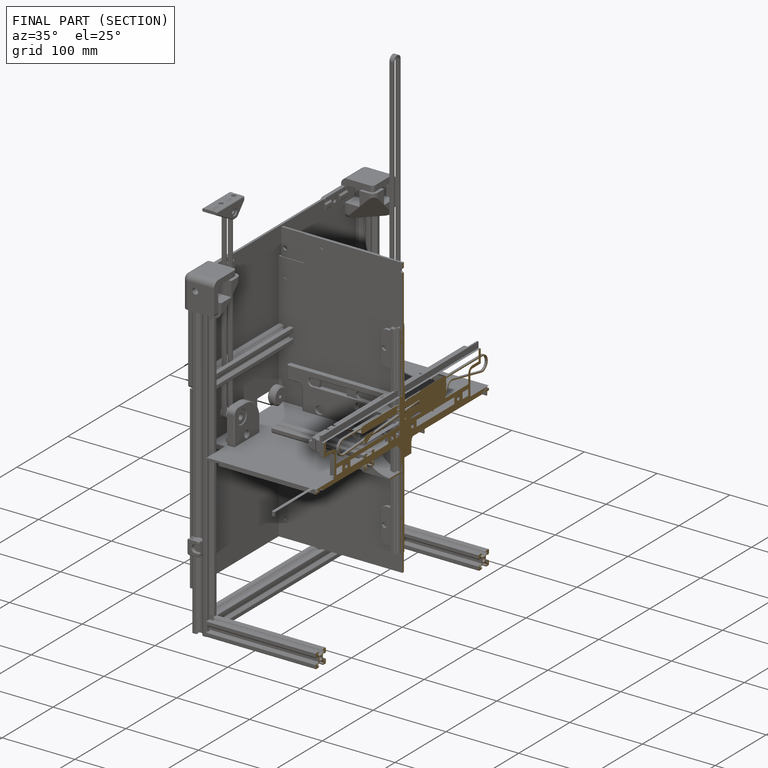
[diagram: finished part — half-section view (interior)]
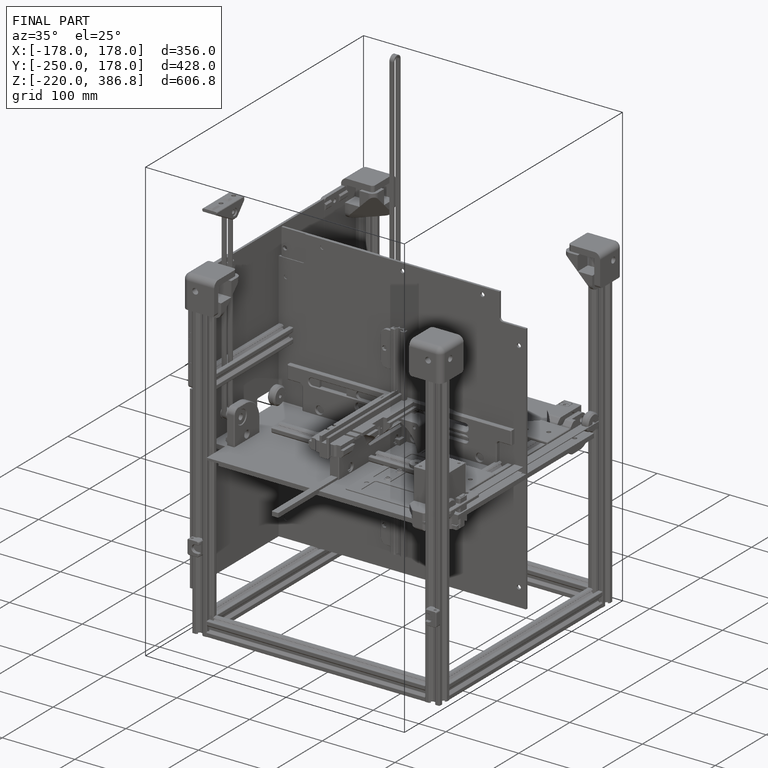
[diagram: finished part — iso view with bounding-box wireframe]
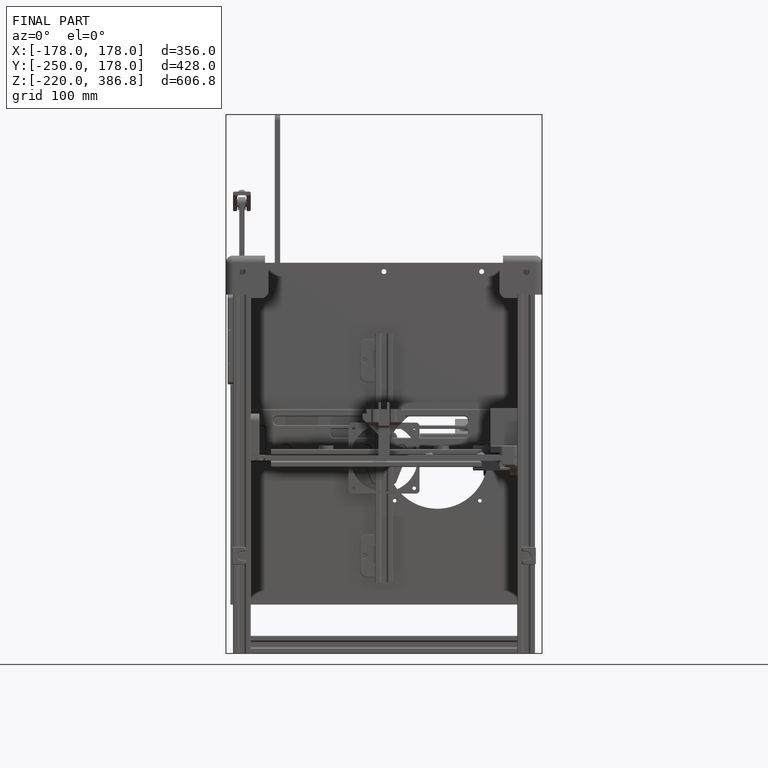
[diagram: finished part — front view with bounding-box wireframe]
